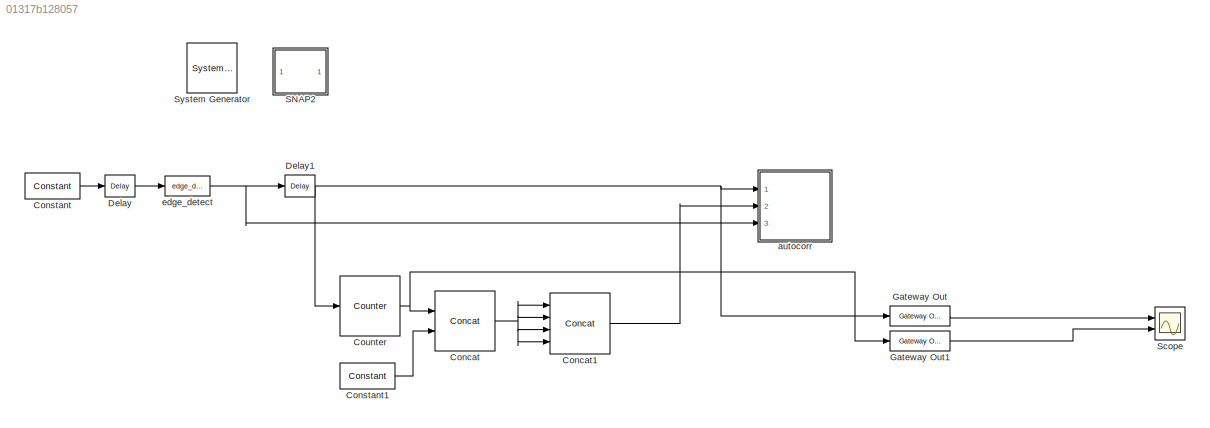
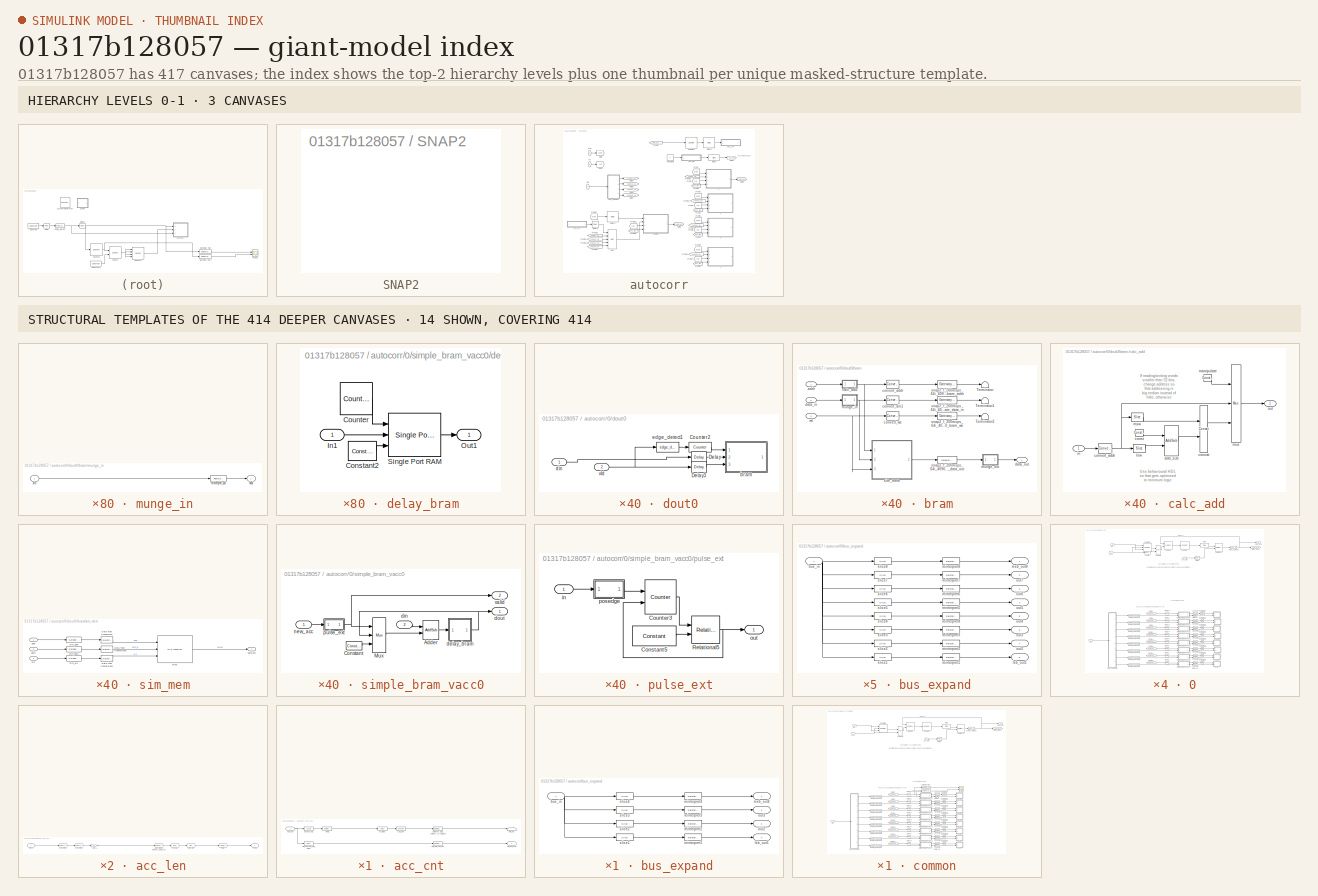
[diagram: thumbnail index - top-2 hierarchy levels (3 canvases) + 14 structural-template representatives of the remaining 414 canvases]
MODEL slx_01317b128057
KIND model
CONFIG AbsTol = auto
CONFIG EnableMultiTasking = off
CONFIG FixedStep = auto
CONFIG MaxStep = auto
CONFIG MinStep = auto
CONFIG RelTol = 1e-3
CONFIG SampleTimeConstraint = Unconstrained
CONFIG Solver = VariableStepAuto
CONFIG SolverName = VariableStepAuto
CONFIG StartTime = 0.0
CONFIG StopTime = 100000
BLOCK [Reference]  System Generator  REF=xbsIndex_r4/ System Generator
  AttributesFormatString = System\nGenerator
  Ports = []
  SourceBlock = xbsIndex_r4/ System Generator
  SourceType = Xilinx System Generator Block
  Tag = genX
  UserDataPersistent = on
BLOCK [Reference] Concat  REF=xbsIndex_r4/Concat
  Ports = [2, 1]
  SourceBlock = xbsIndex_r4/Concat
  SourceType = Xilinx Bus Concatenator Block
BLOCK [Reference] Concat1  REF=xbsIndex_r4/Concat
  Ports = [4, 1]
  SourceBlock = xbsIndex_r4/Concat
  SourceType = Xilinx Bus Concatenator Block
BLOCK [Reference] Constant  REF=xbsIndex_r4/Constant
  Ports = [0, 1]
  SourceBlock = xbsIndex_r4/Constant
  SourceType = Xilinx Constant Block Block
BLOCK [Reference] Constant1  REF=xbsIndex_r4/Constant
  Ports = [0, 1]
  SourceBlock = xbsIndex_r4/Constant
  SourceType = Xilinx Constant Block Block
BLOCK [Reference] Counter  REF=xbsIndex_r4/Counter
  Ports = [1, 1]
  SourceBlock = xbsIndex_r4/Counter
  SourceType = Xilinx Counter Block
BLOCK [Reference] Delay  REF=xbsIndex_r4/Delay
  Ports = [1, 1]
  SourceBlock = xbsIndex_r4/Delay
  SourceType = Xilinx Delay Block
BLOCK [Reference] Delay1  REF=xbsIndex_r4/Delay
  Ports = [1, 1]
  SourceBlock = xbsIndex_r4/Delay
  SourceType = Xilinx Delay Block
BLOCK [Reference] Gateway Out  REF=xbsIndex_r4/Gateway Out
  Ports = [1, 1]
  SourceBlock = xbsIndex_r4/Gateway Out
  SourceType = Xilinx Gateway Out Block
BLOCK [Reference] Gateway Out1  REF=xbsIndex_r4/Gateway Out
  Ports = [1, 1]
  SourceBlock = xbsIndex_r4/Gateway Out
  SourceType = Xilinx Gateway Out Block
BLOCK [SubSystem] SNAP2
  Ports = []
  RequestExecContextInheritance = off
  Tag = xps:xsg
BLOCK [Scope] Scope
  Floating = off
  NumInputPorts = 2
  Ports = [2]
  ScopeSpecificationString = Simulink.scopes.TimeScopeBlockCfg('CurrentConfiguration', extmgr.ConfigurationSet(extmgr.Configuration('Core','General UI',true),extmgr.Configuration('Core','Source UI',true),extmgr.Configuration('Sources','WiredSimulink',true,'DataLoggingVariableName','ScopeData1'),extmgr.Configuration('Visuals','Time Domain',true,'SerializedDisplays',{struct('MinYLimReal','-0.125','MaxYLimReal','1.125','YLabelRe...<+2127ch>
BLOCK [SubSystem] autocorr
  Ports = [3]
  RequestExecContextInheritance = off
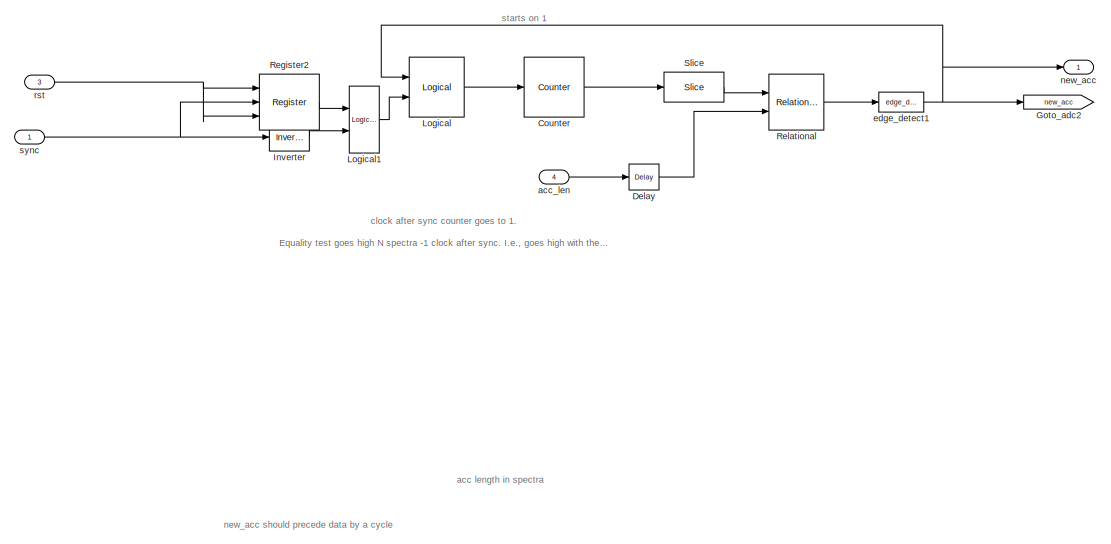
[diagram: autocorr/0 - part 1/2, full width, top band]
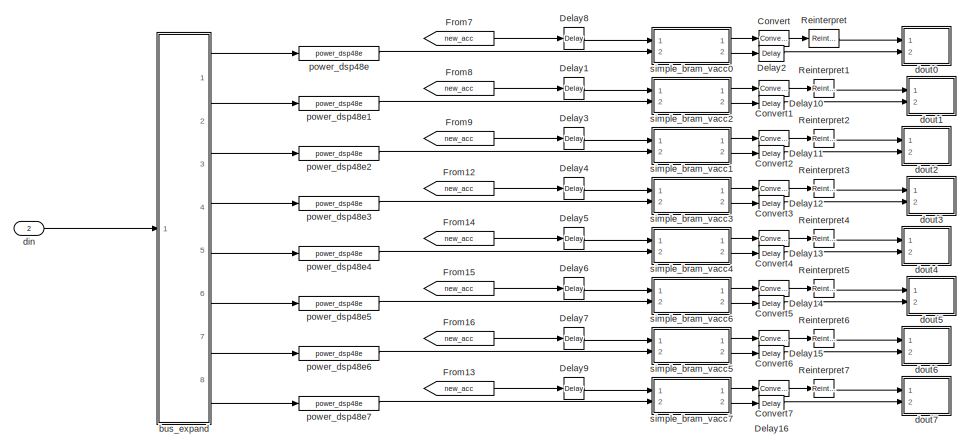
[diagram: autocorr/0 - part 2/2, full width, bottom band]
BLOCK [SubSystem] autocorr/0
  Commented = on
  Ports = [4, 1]
  RequestExecContextInheritance = off
BLOCK [Reference] autocorr/0/Convert  REF=xbsIndex_r4/Convert
  Ports = [1, 1]
  SourceBlock = xbsIndex_r4/Convert
  SourceType = Xilinx Type Converter Block
BLOCK [Reference] autocorr/0/Convert1  REF=xbsIndex_r4/Convert
  Ports = [1, 1]
  SourceBlock = xbsIndex_r4/Convert
  SourceType = Xilinx Type Converter Block
BLOCK [Reference] autocorr/0/Convert2  REF=xbsIndex_r4/Convert
  Ports = [1, 1]
  SourceBlock = xbsIndex_r4/Convert
  SourceType = Xilinx Type Converter Block
BLOCK [Reference] autocorr/0/Convert3  REF=xbsIndex_r4/Convert
  Ports = [1, 1]
  SourceBlock = xbsIndex_r4/Convert
  SourceType = Xilinx Type Converter Block
BLOCK [Reference] autocorr/0/Convert4  REF=xbsIndex_r4/Convert
  Ports = [1, 1]
  SourceBlock = xbsIndex_r4/Convert
  SourceType = Xilinx Type Converter Block
BLOCK [Reference] autocorr/0/Convert5  REF=xbsIndex_r4/Convert
  Ports = [1, 1]
  SourceBlock = xbsIndex_r4/Convert
  SourceType = Xilinx Type Converter Block
BLOCK [Reference] autocorr/0/Convert6  REF=xbsIndex_r4/Convert
  Ports = [1, 1]
  SourceBlock = xbsIndex_r4/Convert
  SourceType = Xilinx Type Converter Block
BLOCK [Reference] autocorr/0/Convert7  REF=xbsIndex_r4/Convert
  Ports = [1, 1]
  SourceBlock = xbsIndex_r4/Convert
  SourceType = Xilinx Type Converter Block
BLOCK [Reference] autocorr/0/Counter  REF=xbsIndex_r4/Counter
  Ports = [1, 1]
  SourceBlock = xbsIndex_r4/Counter
  SourceType = Xilinx Counter Block
BLOCK [Reference] autocorr/0/Delay  REF=xbsIndex_r4/Delay
  Ports = [1, 1]
  SourceBlock = xbsIndex_r4/Delay
  SourceType = Xilinx Delay Block
BLOCK [Reference] autocorr/0/Delay1  REF=xbsIndex_r4/Delay
  Ports = [1, 1]
  SourceBlock = xbsIndex_r4/Delay
  SourceType = Xilinx Delay Block
BLOCK [Reference] autocorr/0/Delay10  REF=xbsIndex_r4/Delay
  Ports = [1, 1]
  SourceBlock = xbsIndex_r4/Delay
  SourceType = Xilinx Delay Block
BLOCK [Reference] autocorr/0/Delay11  REF=xbsIndex_r4/Delay
  Ports = [1, 1]
  SourceBlock = xbsIndex_r4/Delay
  SourceType = Xilinx Delay Block
BLOCK [Reference] autocorr/0/Delay12  REF=xbsIndex_r4/Delay
  Ports = [1, 1]
  SourceBlock = xbsIndex_r4/Delay
  SourceType = Xilinx Delay Block
BLOCK [Reference] autocorr/0/Delay13  REF=xbsIndex_r4/Delay
  Ports = [1, 1]
  SourceBlock = xbsIndex_r4/Delay
  SourceType = Xilinx Delay Block
BLOCK [Reference] autocorr/0/Delay14  REF=xbsIndex_r4/Delay
  Ports = [1, 1]
  SourceBlock = xbsIndex_r4/Delay
  SourceType = Xilinx Delay Block
BLOCK [Reference] autocorr/0/Delay15  REF=xbsIndex_r4/Delay
  Ports = [1, 1]
  SourceBlock = xbsIndex_r4/Delay
  SourceType = Xilinx Delay Block
BLOCK [Reference] autocorr/0/Delay16  REF=xbsIndex_r4/Delay
  Ports = [1, 1]
  SourceBlock = xbsIndex_r4/Delay
  SourceType = Xilinx Delay Block
BLOCK [Reference] autocorr/0/Delay2  REF=xbsIndex_r4/Delay
  Ports = [1, 1]
  SourceBlock = xbsIndex_r4/Delay
  SourceType = Xilinx Delay Block
BLOCK [Reference] autocorr/0/Delay3  REF=xbsIndex_r4/Delay
  Ports = [1, 1]
  SourceBlock = xbsIndex_r4/Delay
  SourceType = Xilinx Delay Block
BLOCK [Reference] autocorr/0/Delay4  REF=xbsIndex_r4/Delay
  Ports = [1, 1]
  SourceBlock = xbsIndex_r4/Delay
  SourceType = Xilinx Delay Block
BLOCK [Reference] autocorr/0/Delay5  REF=xbsIndex_r4/Delay
  Ports = [1, 1]
  SourceBlock = xbsIndex_r4/Delay
  SourceType = Xilinx Delay Block
BLOCK [Reference] autocorr/0/Delay6  REF=xbsIndex_r4/Delay
  Ports = [1, 1]
  SourceBlock = xbsIndex_r4/Delay
  SourceType = Xilinx Delay Block
BLOCK [Reference] autocorr/0/Delay7  REF=xbsIndex_r4/Delay
  Ports = [1, 1]
  SourceBlock = xbsIndex_r4/Delay
  SourceType = Xilinx Delay Block
BLOCK [Reference] autocorr/0/Delay8  REF=xbsIndex_r4/Delay
  Ports = [1, 1]
  SourceBlock = xbsIndex_r4/Delay
  SourceType = Xilinx Delay Block
BLOCK [Reference] autocorr/0/Delay9  REF=xbsIndex_r4/Delay
  Ports = [1, 1]
  SourceBlock = xbsIndex_r4/Delay
  SourceType = Xilinx Delay Block
BLOCK [From] autocorr/0/From12
  GotoTag = new_acc
BLOCK [From] autocorr/0/From13
  GotoTag = new_acc
BLOCK [From] autocorr/0/From14
  GotoTag = new_acc
BLOCK [From] autocorr/0/From15
  GotoTag = new_acc
BLOCK [From] autocorr/0/From16
  GotoTag = new_acc
BLOCK [From] autocorr/0/From7
  GotoTag = new_acc
BLOCK [From] autocorr/0/From8
  GotoTag = new_acc
BLOCK [From] autocorr/0/From9
  GotoTag = new_acc
BLOCK [Goto] autocorr/0/Goto_adc2
  GotoTag = new_acc
BLOCK [Reference] autocorr/0/Inverter  REF=xbsIndex_r4/Inverter
  Ports = [1, 1]
  SourceBlock = xbsIndex_r4/Inverter
  SourceType = Xilinx Inverter Block
BLOCK [Reference] autocorr/0/Logical  REF=xbsIndex_r4/Logical
  Ports = [2, 1]
  SourceBlock = xbsIndex_r4/Logical
  SourceType = Xilinx Logical Block Block
BLOCK [Reference] autocorr/0/Logical1  REF=xbsIndex_r4/Logical
  Ports = [2, 1]
  SourceBlock = xbsIndex_r4/Logical
  SourceType = Xilinx Logical Block Block
BLOCK [Reference] autocorr/0/Register2  REF=xbsIndex_r4/Register
  Ports = [3, 1]
  SourceBlock = xbsIndex_r4/Register
  SourceType = Xilinx Register Block
BLOCK [Reference] autocorr/0/Reinterpret  REF=xbsIndex_r4/Reinterpret
  Ports = [1, 1]
  SourceBlock = xbsIndex_r4/Reinterpret
  SourceType = Xilinx Type Reinterpreter Block
BLOCK [Reference] autocorr/0/Reinterpret1  REF=xbsIndex_r4/Reinterpret
  Ports = [1, 1]
  SourceBlock = xbsIndex_r4/Reinterpret
  SourceType = Xilinx Type Reinterpreter Block
BLOCK [Reference] autocorr/0/Reinterpret2  REF=xbsIndex_r4/Reinterpret
  Ports = [1, 1]
  SourceBlock = xbsIndex_r4/Reinterpret
  SourceType = Xilinx Type Reinterpreter Block
BLOCK [Reference] autocorr/0/Reinterpret3  REF=xbsIndex_r4/Reinterpret
  Ports = [1, 1]
  SourceBlock = xbsIndex_r4/Reinterpret
  SourceType = Xilinx Type Reinterpreter Block
BLOCK [Reference] autocorr/0/Reinterpret4  REF=xbsIndex_r4/Reinterpret
  Ports = [1, 1]
  SourceBlock = xbsIndex_r4/Reinterpret
  SourceType = Xilinx Type Reinterpreter Block
BLOCK [Reference] autocorr/0/Reinterpret5  REF=xbsIndex_r4/Reinterpret
  Ports = [1, 1]
  SourceBlock = xbsIndex_r4/Reinterpret
  SourceType = Xilinx Type Reinterpreter Block
BLOCK [Reference] autocorr/0/Reinterpret6  REF=xbsIndex_r4/Reinterpret
  Ports = [1, 1]
  SourceBlock = xbsIndex_r4/Reinterpret
  SourceType = Xilinx Type Reinterpreter Block
BLOCK [Reference] autocorr/0/Reinterpret7  REF=xbsIndex_r4/Reinterpret
  Ports = [1, 1]
  SourceBlock = xbsIndex_r4/Reinterpret
  SourceType = Xilinx Type Reinterpreter Block
BLOCK [Reference] autocorr/0/Relational  REF=xbsIndex_r4/Relational
  Ports = [2, 1]
  SourceBlock = xbsIndex_r4/Relational
  SourceType = Xilinx Arithmetic Relational Operator Block
BLOCK [Reference] autocorr/0/Slice  REF=xbsIndex_r4/Slice
  Ports = [1, 1]
  SourceBlock = xbsIndex_r4/Slice
  SourceType = Xilinx Bit Slice Extractor Block
BLOCK [Inport] autocorr/0/acc_len
  IconDisplay = Port number
  Port = 4
BLOCK [SubSystem] autocorr/0/bus_expand
  AncestorBlock = casper_library_flow_control/bus_expand
  AttributesFormatString = 8 outputs
  Ports = [1, 8]
  RequestExecContextInheritance = off
  UserDataPersistent = on
BLOCK [Inport] autocorr/0/bus_expand/bus_in
  IconDisplay = Port number
BLOCK [Outport] autocorr/0/bus_expand/lsb_out1
  IconDisplay = Port number
  Port = 8
BLOCK [Outport] autocorr/0/bus_expand/msb_out8
  IconDisplay = Port number
BLOCK [Outport] autocorr/0/bus_expand/out2
  IconDisplay = Port number
  Port = 7
BLOCK [Outport] autocorr/0/bus_expand/out3
  IconDisplay = Port number
  Port = 6
BLOCK [Outport] autocorr/0/bus_expand/out4
  IconDisplay = Port number
  Port = 5
BLOCK [Outport] autocorr/0/bus_expand/out5
  IconDisplay = Port number
  Port = 4
BLOCK [Outport] autocorr/0/bus_expand/out6
  IconDisplay = Port number
  Port = 3
BLOCK [Outport] autocorr/0/bus_expand/out7
  IconDisplay = Port number
  Port = 2
BLOCK [Reference] autocorr/0/bus_expand/reinterpret1  REF=xbsIndex_r4/Reinterpret
  Ports = [1, 1]
  SourceBlock = xbsIndex_r4/Reinterpret
  SourceType = Xilinx Type Reinterpreter Block
BLOCK [Reference] autocorr/0/bus_expand/reinterpret2  REF=xbsIndex_r4/Reinterpret
  Ports = [1, 1]
  SourceBlock = xbsIndex_r4/Reinterpret
  SourceType = Xilinx Type Reinterpreter Block
BLOCK [Reference] autocorr/0/bus_expand/reinterpret3  REF=xbsIndex_r4/Reinterpret
  Ports = [1, 1]
  SourceBlock = xbsIndex_r4/Reinterpret
  SourceType = Xilinx Type Reinterpreter Block
BLOCK [Reference] autocorr/0/bus_expand/reinterpret4  REF=xbsIndex_r4/Reinterpret
  Ports = [1, 1]
  SourceBlock = xbsIndex_r4/Reinterpret
  SourceType = Xilinx Type Reinterpreter Block
BLOCK [Reference] autocorr/0/bus_expand/reinterpret5  REF=xbsIndex_r4/Reinterpret
  Ports = [1, 1]
  SourceBlock = xbsIndex_r4/Reinterpret
  SourceType = Xilinx Type Reinterpreter Block
BLOCK [Reference] autocorr/0/bus_expand/reinterpret6  REF=xbsIndex_r4/Reinterpret
  Ports = [1, 1]
  SourceBlock = xbsIndex_r4/Reinterpret
  SourceType = Xilinx Type Reinterpreter Block
BLOCK [Reference] autocorr/0/bus_expand/reinterpret7  REF=xbsIndex_r4/Reinterpret
  Ports = [1, 1]
  SourceBlock = xbsIndex_r4/Reinterpret
  SourceType = Xilinx Type Reinterpreter Block
BLOCK [Reference] autocorr/0/bus_expand/reinterpret8  REF=xbsIndex_r4/Reinterpret
  Ports = [1, 1]
  SourceBlock = xbsIndex_r4/Reinterpret
  SourceType = Xilinx Type Reinterpreter Block
BLOCK [Reference] autocorr/0/bus_expand/slice1  REF=xbsIndex_r4/Slice
  Ports = [1, 1]
  SourceBlock = xbsIndex_r4/Slice
  SourceType = Xilinx Bit Slice Extractor Block
BLOCK [Reference] autocorr/0/bus_expand/slice2  REF=xbsIndex_r4/Slice
  Ports = [1, 1]
  SourceBlock = xbsIndex_r4/Slice
  SourceType = Xilinx Bit Slice Extractor Block
BLOCK [Reference] autocorr/0/bus_expand/slice3  REF=xbsIndex_r4/Slice
  Ports = [1, 1]
  SourceBlock = xbsIndex_r4/Slice
  SourceType = Xilinx Bit Slice Extractor Block
BLOCK [Reference] autocorr/0/bus_expand/slice4  REF=xbsIndex_r4/Slice
  Ports = [1, 1]
  SourceBlock = xbsIndex_r4/Slice
  SourceType = Xilinx Bit Slice Extractor Block
BLOCK [Reference] autocorr/0/bus_expand/slice5  REF=xbsIndex_r4/Slice
  Ports = [1, 1]
  SourceBlock = xbsIndex_r4/Slice
  SourceType = Xilinx Bit Slice Extractor Block
BLOCK [Reference] autocorr/0/bus_expand/slice6  REF=xbsIndex_r4/Slice
  Ports = [1, 1]
  SourceBlock = xbsIndex_r4/Slice
  SourceType = Xilinx Bit Slice Extractor Block
BLOCK [Reference] autocorr/0/bus_expand/slice7  REF=xbsIndex_r4/Slice
  Ports = [1, 1]
  SourceBlock = xbsIndex_r4/Slice
  SourceType = Xilinx Bit Slice Extractor Block
BLOCK [Reference] autocorr/0/bus_expand/slice8  REF=xbsIndex_r4/Slice
  Ports = [1, 1]
  SourceBlock = xbsIndex_r4/Slice
  SourceType = Xilinx Bit Slice Extractor Block
BLOCK [Inport] autocorr/0/din
  IconDisplay = Port number
  Port = 2
BLOCK [SubSystem] autocorr/0/dout0
  Ports = [2]
  RequestExecContextInheritance = off
BLOCK [Reference] autocorr/0/dout0/Counter2  REF=xbsIndex_r4/Counter
  Ports = [1, 1]
  SourceBlock = xbsIndex_r4/Counter
  SourceType = Xilinx Counter Block
BLOCK [Reference] autocorr/0/dout0/Delay  REF=xbsIndex_r4/Delay
  Ports = [1, 1]
  SourceBlock = xbsIndex_r4/Delay
  SourceType = Xilinx Delay Block
BLOCK [Reference] autocorr/0/dout0/Delay3  REF=xbsIndex_r4/Delay
  Ports = [1, 1]
  SourceBlock = xbsIndex_r4/Delay
  SourceType = Xilinx Delay Block
BLOCK [SubSystem] autocorr/0/dout0/bram
  AncestorBlock = xps_library/Memory/shared_bram
  Ports = [3, 1]
  RequestExecContextInheritance = off
  Tag = xps:bram
BLOCK [Terminator] autocorr/0/dout0/bram/Terminator
BLOCK [Terminator] autocorr/0/dout0/bram/Terminator1
BLOCK [Terminator] autocorr/0/dout0/bram/Terminator2
BLOCK [Inport] autocorr/0/dout0/bram/addr
  IconDisplay = Port number
BLOCK [SubSystem] autocorr/0/dout0/bram/calc_add
  Ports = [1, 1]
  RequestExecContextInheritance = off
BLOCK [Reference] autocorr/0/dout0/bram/calc_add/add_sub  REF=xbsIndex_r4/AddSub
  Ports = [2, 1]
  SourceBlock = xbsIndex_r4/AddSub
  SourceType = Xilinx Adder/Subtracter Block
BLOCK [Reference] autocorr/0/dout0/bram/calc_add/concat  REF=xbsIndex_r4/Concat
  Ports = [2, 1]
  SourceBlock = xbsIndex_r4/Concat
  SourceType = Xilinx Bus Concatenator Block
BLOCK [Reference] autocorr/0/dout0/bram/calc_add/const  REF=xbsIndex_r4/Constant
  Ports = [0, 1]
  SourceBlock = xbsIndex_r4/Constant
  SourceType = Xilinx Constant Block Block
BLOCK [Reference] autocorr/0/dout0/bram/calc_add/convert_addr  REF=xbsIndex_r4/Convert
  Ports = [1, 1]
  SourceBlock = xbsIndex_r4/Convert
  SourceType = Xilinx Type Converter Block
BLOCK [Inport] autocorr/0/dout0/bram/calc_add/in
  IconDisplay = Port number
BLOCK [Reference] autocorr/0/dout0/bram/calc_add/lsw  REF=xbsIndex_r4/Slice
  Ports = [1, 1]
  SourceBlock = xbsIndex_r4/Slice
  SourceType = Xilinx Bit Slice Extractor Block
BLOCK [Reference] autocorr/0/dout0/bram/calc_add/manipulate  REF=xbsIndex_r4/Constant
  Ports = [0, 1]
  SourceBlock = xbsIndex_r4/Constant
  SourceType = Xilinx Constant Block Block
BLOCK [Reference] autocorr/0/dout0/bram/calc_add/msw  REF=xbsIndex_r4/Slice
  Ports = [1, 1]
  SourceBlock = xbsIndex_r4/Slice
  SourceType = Xilinx Bit Slice Extractor Block
BLOCK [Reference] autocorr/0/dout0/bram/calc_add/mux  REF=xbsIndex_r4/Mux
  Ports = [3, 1]
  SourceBlock = xbsIndex_r4/Mux
  SourceType = Xilinx Bus Multiplexer Block
BLOCK [Outport] autocorr/0/dout0/bram/calc_add/out
  IconDisplay = Port number
BLOCK [Reference] autocorr/0/dout0/bram/convert_addr  REF=xbsIndex_r4/Convert
  Ports = [1, 1]
  SourceBlock = xbsIndex_r4/Convert
  SourceType = Xilinx Type Converter Block
BLOCK [Reference] autocorr/0/dout0/bram/convert_din1  REF=xbsIndex_r4/Convert
  Ports = [1, 1]
  SourceBlock = xbsIndex_r4/Convert
  SourceType = Xilinx Type Converter Block
BLOCK [Reference] autocorr/0/dout0/bram/convert_we  REF=xbsIndex_r4/Convert
  Ports = [1, 1]
  SourceBlock = xbsIndex_r4/Convert
  SourceType = Xilinx Type Converter Block
BLOCK [Inport] autocorr/0/dout0/bram/data_in
  IconDisplay = Port number
  Port = 2
BLOCK [Outport] autocorr/0/dout0/bram/data_out
  IconDisplay = Port number
BLOCK [SubSystem] autocorr/0/dout0/bram/munge_in
  AncestorBlock = casper_library_flow_control/munge
  AttributesFormatString = split:32\njoin:0\nUnsigned [32,0]
  Ports = [1, 1]
  RequestExecContextInheritance = off
  UserDataPersistent = on
BLOCK [Inport] autocorr/0/dout0/bram/munge_in/din
  IconDisplay = Port number
BLOCK [Outport] autocorr/0/dout0/bram/munge_in/dout
  IconDisplay = Port number
BLOCK [Reference] autocorr/0/dout0/bram/munge_in/reinterpret_out  REF=xbsIndex_r4/Reinterpret
  Ports = [1, 1]
  SourceBlock = xbsIndex_r4/Reinterpret
  SourceType = Xilinx Type Reinterpreter Block
BLOCK [SubSystem] autocorr/0/dout0/bram/munge_out
  AncestorBlock = casper_library_flow_control/munge
  AttributesFormatString = split:32\njoin:0\nUnsigned [32,0]
  Ports = [1, 1]
  RequestExecContextInheritance = off
  UserDataPersistent = on
BLOCK [Inport] autocorr/0/dout0/bram/munge_out/din
  IconDisplay = Port number
BLOCK [Outport] autocorr/0/dout0/bram/munge_out/dout
  IconDisplay = Port number
BLOCK [Reference] autocorr/0/dout0/bram/munge_out/reinterpret_out  REF=xbsIndex_r4/Reinterpret
  Ports = [1, 1]
  SourceBlock = xbsIndex_r4/Reinterpret
  SourceType = Xilinx Type Reinterpreter Block
BLOCK [SubSystem] autocorr/0/dout0/bram/sim_mem
  Ports = [3, 1]
  RequestExecContextInheritance = off
BLOCK [DataTypeConversion] autocorr/0/dout0/bram/sim_mem/Data Type Conversion
  OutDataTypeStr = single
  RndMeth = Floor
  SaturateOnIntegerOverflow = off
BLOCK [DataTypeConversion] autocorr/0/dout0/bram/sim_mem/Data Type Conversion1
  OutDataTypeStr = double
  RndMeth = Floor
  SaturateOnIntegerOverflow = off
BLOCK [DataTypeConversion] autocorr/0/dout0/bram/sim_mem/Data Type Conversion2
  OutDataTypeStr = boolean
  RndMeth = Floor
  SaturateOnIntegerOverflow = off
BLOCK [Inport] autocorr/0/dout0/bram/sim_mem/addr
  IconDisplay = Port number
BLOCK [Inport] autocorr/0/dout0/bram/sim_mem/data
  IconDisplay = Port number
  Port = 2
BLOCK [Outport] autocorr/0/dout0/bram/sim_mem/data_out
  IconDisplay = Port number
BLOCK [M-S-Function] autocorr/0/dout0/bram/sim_mem/sfunc
  FunctionName = shared_bram_sim_sfunc
  Parameters = depth_bits, latency, init_vals
  Ports = [3, 1]
BLOCK [Reference] autocorr/0/dout0/bram/sim_mem/sim_addr  REF=xbsIndex_r4/Gateway Out
  Ports = [1, 1]
  SourceBlock = xbsIndex_r4/Gateway Out
  SourceType = Xilinx Gateway Out Block
BLOCK [Reference] autocorr/0/dout0/bram/sim_mem/sim_data  REF=xbsIndex_r4/Gateway Out
  Ports = [1, 1]
  SourceBlock = xbsIndex_r4/Gateway Out
  SourceType = Xilinx Gateway Out Block
BLOCK [Reference] autocorr/0/dout0/bram/sim_mem/sim_we  REF=xbsIndex_r4/Gateway Out
  Ports = [1, 1]
  SourceBlock = xbsIndex_r4/Gateway Out
  SourceType = Xilinx Gateway Out Block
BLOCK [Inport] autocorr/0/dout0/bram/sim_mem/we
  IconDisplay = Port number
  Port = 3
BLOCK [Reference] autocorr/0/dout0/bram/snap2_f_200msps_64i_4096c_autocorr_common_dout0_bram_addr  REF=xbsIndex_r4/Gateway Out
  Ports = [1, 1]
  SourceBlock = xbsIndex_r4/Gateway Out
  SourceType = Xilinx Gateway Out Block
BLOCK [Reference] autocorr/0/dout0/bram/snap2_f_200msps_64i_4096c_autocorr_common_dout0_bram_data_in  REF=xbsIndex_r4/Gateway Out
  Ports = [1, 1]
  SourceBlock = xbsIndex_r4/Gateway Out
  SourceType = Xilinx Gateway Out Block
BLOCK [Reference] autocorr/0/dout0/bram/snap2_f_200msps_64i_4096c_autocorr_common_dout0_bram_data_out  REF=xbsIndex_r4/Gateway In
  Ports = [1, 1]
  SourceBlock = xbsIndex_r4/Gateway In
  SourceType = Xilinx Gateway In Block
BLOCK [Reference] autocorr/0/dout0/bram/snap2_f_200msps_64i_4096c_autocorr_common_dout0_bram_we  REF=xbsIndex_r4/Gateway Out
  Ports = [1, 1]
  SourceBlock = xbsIndex_r4/Gateway Out
  SourceType = Xilinx Gateway Out Block
BLOCK [Inport] autocorr/0/dout0/bram/we
  IconDisplay = Port number
  Port = 3
BLOCK [Inport] autocorr/0/dout0/din
  IconDisplay = Port number
BLOCK [Reference] autocorr/0/dout0/edge_detect1  REF=casper_library_misc/edge_detect  (lib defined in mdl_357510c33b49, mdl_57b5f564ae26, +4 more)
  AttributesFormatString = rising edges\nactive high
  Ports = [1, 1]
  SourceBlock = casper_library_misc/edge_detect
  SourceProductName = CASPER DSP Blockset
  SourceType = edge_detect
  UserDataPersistent = on
BLOCK [Inport] autocorr/0/dout0/vld
  IconDisplay = Port number
  Port = 2
BLOCK [SubSystem] autocorr/0/dout1
  Ports = [2]
  RequestExecContextInheritance = off
BLOCK [Reference] autocorr/0/dout1/Counter2  REF=xbsIndex_r4/Counter
  Ports = [1, 1]
  SourceBlock = xbsIndex_r4/Counter
  SourceType = Xilinx Counter Block
BLOCK [Reference] autocorr/0/dout1/Delay  REF=xbsIndex_r4/Delay
  Ports = [1, 1]
  SourceBlock = xbsIndex_r4/Delay
  SourceType = Xilinx Delay Block
BLOCK [Reference] autocorr/0/dout1/Delay3  REF=xbsIndex_r4/Delay
  Ports = [1, 1]
  SourceBlock = xbsIndex_r4/Delay
  SourceType = Xilinx Delay Block
BLOCK [SubSystem] autocorr/0/dout1/bram
  AncestorBlock = xps_library/Memory/shared_bram
  Ports = [3, 1]
  RequestExecContextInheritance = off
  Tag = xps:bram
BLOCK [Terminator] autocorr/0/dout1/bram/Terminator
BLOCK [Terminator] autocorr/0/dout1/bram/Terminator1
BLOCK [Terminator] autocorr/0/dout1/bram/Terminator2
BLOCK [Inport] autocorr/0/dout1/bram/addr
  IconDisplay = Port number
BLOCK [SubSystem] autocorr/0/dout1/bram/calc_add
  Ports = [1, 1]
  RequestExecContextInheritance = off
BLOCK [Reference] autocorr/0/dout1/bram/calc_add/add_sub  REF=xbsIndex_r4/AddSub
  Ports = [2, 1]
  SourceBlock = xbsIndex_r4/AddSub
  SourceType = Xilinx Adder/Subtracter Block
BLOCK [Reference] autocorr/0/dout1/bram/calc_add/concat  REF=xbsIndex_r4/Concat
  Ports = [2, 1]
  SourceBlock = xbsIndex_r4/Concat
  SourceType = Xilinx Bus Concatenator Block
BLOCK [Reference] autocorr/0/dout1/bram/calc_add/const  REF=xbsIndex_r4/Constant
  Ports = [0, 1]
  SourceBlock = xbsIndex_r4/Constant
  SourceType = Xilinx Constant Block Block
BLOCK [Reference] autocorr/0/dout1/bram/calc_add/convert_addr  REF=xbsIndex_r4/Convert
  Ports = [1, 1]
  SourceBlock = xbsIndex_r4/Convert
  SourceType = Xilinx Type Converter Block
BLOCK [Inport] autocorr/0/dout1/bram/calc_add/in
  IconDisplay = Port number
BLOCK [Reference] autocorr/0/dout1/bram/calc_add/lsw  REF=xbsIndex_r4/Slice
  Ports = [1, 1]
  SourceBlock = xbsIndex_r4/Slice
  SourceType = Xilinx Bit Slice Extractor Block
BLOCK [Reference] autocorr/0/dout1/bram/calc_add/manipulate  REF=xbsIndex_r4/Constant
  Ports = [0, 1]
  SourceBlock = xbsIndex_r4/Constant
  SourceType = Xilinx Constant Block Block
BLOCK [Reference] autocorr/0/dout1/bram/calc_add/msw  REF=xbsIndex_r4/Slice
  Ports = [1, 1]
  SourceBlock = xbsIndex_r4/Slice
  SourceType = Xilinx Bit Slice Extractor Block
BLOCK [Reference] autocorr/0/dout1/bram/calc_add/mux  REF=xbsIndex_r4/Mux
  Ports = [3, 1]
  SourceBlock = xbsIndex_r4/Mux
  SourceType = Xilinx Bus Multiplexer Block
BLOCK [Outport] autocorr/0/dout1/bram/calc_add/out
  IconDisplay = Port number
BLOCK [Reference] autocorr/0/dout1/bram/convert_addr  REF=xbsIndex_r4/Convert
  Ports = [1, 1]
  SourceBlock = xbsIndex_r4/Convert
  SourceType = Xilinx Type Converter Block
BLOCK [Reference] autocorr/0/dout1/bram/convert_din1  REF=xbsIndex_r4/Convert
  Ports = [1, 1]
  SourceBlock = xbsIndex_r4/Convert
  SourceType = Xilinx Type Converter Block
BLOCK [Reference] autocorr/0/dout1/bram/convert_we  REF=xbsIndex_r4/Convert
  Ports = [1, 1]
  SourceBlock = xbsIndex_r4/Convert
  SourceType = Xilinx Type Converter Block
BLOCK [Inport] autocorr/0/dout1/bram/data_in
  IconDisplay = Port number
  Port = 2
BLOCK [Outport] autocorr/0/dout1/bram/data_out
  IconDisplay = Port number
BLOCK [SubSystem] autocorr/0/dout1/bram/munge_in
  AncestorBlock = casper_library_flow_control/munge
  AttributesFormatString = split:32\njoin:0\nUnsigned [32,0]
  Ports = [1, 1]
  RequestExecContextInheritance = off
  UserDataPersistent = on
BLOCK [Inport] autocorr/0/dout1/bram/munge_in/din
  IconDisplay = Port number
BLOCK [Outport] autocorr/0/dout1/bram/munge_in/dout
  IconDisplay = Port number
BLOCK [Reference] autocorr/0/dout1/bram/munge_in/reinterpret_out  REF=xbsIndex_r4/Reinterpret
  Ports = [1, 1]
  SourceBlock = xbsIndex_r4/Reinterpret
  SourceType = Xilinx Type Reinterpreter Block
BLOCK [SubSystem] autocorr/0/dout1/bram/munge_out
  AncestorBlock = casper_library_flow_control/munge
  AttributesFormatString = split:32\njoin:0\nUnsigned [32,0]
  Ports = [1, 1]
  RequestExecContextInheritance = off
  UserDataPersistent = on
BLOCK [Inport] autocorr/0/dout1/bram/munge_out/din
  IconDisplay = Port number
BLOCK [Outport] autocorr/0/dout1/bram/munge_out/dout
  IconDisplay = Port number
BLOCK [Reference] autocorr/0/dout1/bram/munge_out/reinterpret_out  REF=xbsIndex_r4/Reinterpret
  Ports = [1, 1]
  SourceBlock = xbsIndex_r4/Reinterpret
  SourceType = Xilinx Type Reinterpreter Block
BLOCK [SubSystem] autocorr/0/dout1/bram/sim_mem
  Ports = [3, 1]
  RequestExecContextInheritance = off
BLOCK [DataTypeConversion] autocorr/0/dout1/bram/sim_mem/Data Type Conversion
  OutDataTypeStr = single
  RndMeth = Floor
  SaturateOnIntegerOverflow = off
BLOCK [DataTypeConversion] autocorr/0/dout1/bram/sim_mem/Data Type Conversion1
  OutDataTypeStr = double
  RndMeth = Floor
  SaturateOnIntegerOverflow = off
BLOCK [DataTypeConversion] autocorr/0/dout1/bram/sim_mem/Data Type Conversion2
  OutDataTypeStr = boolean
  RndMeth = Floor
  SaturateOnIntegerOverflow = off
BLOCK [Inport] autocorr/0/dout1/bram/sim_mem/addr
  IconDisplay = Port number
BLOCK [Inport] autocorr/0/dout1/bram/sim_mem/data
  IconDisplay = Port number
  Port = 2
BLOCK [Outport] autocorr/0/dout1/bram/sim_mem/data_out
  IconDisplay = Port number
BLOCK [M-S-Function] autocorr/0/dout1/bram/sim_mem/sfunc
  FunctionName = shared_bram_sim_sfunc
  Parameters = depth_bits, latency, init_vals
  Ports = [3, 1]
BLOCK [Reference] autocorr/0/dout1/bram/sim_mem/sim_addr  REF=xbsIndex_r4/Gateway Out
  Ports = [1, 1]
  SourceBlock = xbsIndex_r4/Gateway Out
  SourceType = Xilinx Gateway Out Block
BLOCK [Reference] autocorr/0/dout1/bram/sim_mem/sim_data  REF=xbsIndex_r4/Gateway Out
  Ports = [1, 1]
  SourceBlock = xbsIndex_r4/Gateway Out
  SourceType = Xilinx Gateway Out Block
BLOCK [Reference] autocorr/0/dout1/bram/sim_mem/sim_we  REF=xbsIndex_r4/Gateway Out
  Ports = [1, 1]
  SourceBlock = xbsIndex_r4/Gateway Out
  SourceType = Xilinx Gateway Out Block
BLOCK [Inport] autocorr/0/dout1/bram/sim_mem/we
  IconDisplay = Port number
  Port = 3
BLOCK [Reference] autocorr/0/dout1/bram/snap2_f_200msps_64i_4096c_autocorr_common_dout1_bram_addr  REF=xbsIndex_r4/Gateway Out
  Ports = [1, 1]
  SourceBlock = xbsIndex_r4/Gateway Out
  SourceType = Xilinx Gateway Out Block
BLOCK [Reference] autocorr/0/dout1/bram/snap2_f_200msps_64i_4096c_autocorr_common_dout1_bram_data_in  REF=xbsIndex_r4/Gateway Out
  Ports = [1, 1]
  SourceBlock = xbsIndex_r4/Gateway Out
  SourceType = Xilinx Gateway Out Block
BLOCK [Reference] autocorr/0/dout1/bram/snap2_f_200msps_64i_4096c_autocorr_common_dout1_bram_data_out  REF=xbsIndex_r4/Gateway In
  Ports = [1, 1]
  SourceBlock = xbsIndex_r4/Gateway In
  SourceType = Xilinx Gateway In Block
BLOCK [Reference] autocorr/0/dout1/bram/snap2_f_200msps_64i_4096c_autocorr_common_dout1_bram_we  REF=xbsIndex_r4/Gateway Out
  Ports = [1, 1]
  SourceBlock = xbsIndex_r4/Gateway Out
  SourceType = Xilinx Gateway Out Block
BLOCK [Inport] autocorr/0/dout1/bram/we
  IconDisplay = Port number
  Port = 3
BLOCK [Inport] autocorr/0/dout1/din
  IconDisplay = Port number
BLOCK [Reference] autocorr/0/dout1/edge_detect1  REF=casper_library_misc/edge_detect  (lib defined in mdl_357510c33b49, mdl_57b5f564ae26, +4 more)
  AttributesFormatString = rising edges\nactive high
  Ports = [1, 1]
  SourceBlock = casper_library_misc/edge_detect
  SourceProductName = CASPER DSP Blockset
  SourceType = edge_detect
  UserDataPersistent = on
BLOCK [Inport] autocorr/0/dout1/vld
  IconDisplay = Port number
  Port = 2
BLOCK [SubSystem] autocorr/0/dout2
  Ports = [2]
  RequestExecContextInheritance = off
BLOCK [Reference] autocorr/0/dout2/Counter2  REF=xbsIndex_r4/Counter
  Ports = [1, 1]
  SourceBlock = xbsIndex_r4/Counter
  SourceType = Xilinx Counter Block
BLOCK [Reference] autocorr/0/dout2/Delay  REF=xbsIndex_r4/Delay
  Ports = [1, 1]
  SourceBlock = xbsIndex_r4/Delay
  SourceType = Xilinx Delay Block
BLOCK [Reference] autocorr/0/dout2/Delay3  REF=xbsIndex_r4/Delay
  Ports = [1, 1]
  SourceBlock = xbsIndex_r4/Delay
  SourceType = Xilinx Delay Block
BLOCK [SubSystem] autocorr/0/dout2/bram
  AncestorBlock = xps_library/Memory/shared_bram
  Ports = [3, 1]
  RequestExecContextInheritance = off
  Tag = xps:bram
BLOCK [Terminator] autocorr/0/dout2/bram/Terminator
BLOCK [Terminator] autocorr/0/dout2/bram/Terminator1
BLOCK [Terminator] autocorr/0/dout2/bram/Terminator2
BLOCK [Inport] autocorr/0/dout2/bram/addr
  IconDisplay = Port number
BLOCK [SubSystem] autocorr/0/dout2/bram/calc_add
  Ports = [1, 1]
  RequestExecContextInheritance = off
BLOCK [Reference] autocorr/0/dout2/bram/calc_add/add_sub  REF=xbsIndex_r4/AddSub
  Ports = [2, 1]
  SourceBlock = xbsIndex_r4/AddSub
  SourceType = Xilinx Adder/Subtracter Block
BLOCK [Reference] autocorr/0/dout2/bram/calc_add/concat  REF=xbsIndex_r4/Concat
  Ports = [2, 1]
  SourceBlock = xbsIndex_r4/Concat
  SourceType = Xilinx Bus Concatenator Block
BLOCK [Reference] autocorr/0/dout2/bram/calc_add/const  REF=xbsIndex_r4/Constant
  Ports = [0, 1]
  SourceBlock = xbsIndex_r4/Constant
  SourceType = Xilinx Constant Block Block
BLOCK [Reference] autocorr/0/dout2/bram/calc_add/convert_addr  REF=xbsIndex_r4/Convert
  Ports = [1, 1]
  SourceBlock = xbsIndex_r4/Convert
  SourceType = Xilinx Type Converter Block
BLOCK [Inport] autocorr/0/dout2/bram/calc_add/in
  IconDisplay = Port number
BLOCK [Reference] autocorr/0/dout2/bram/calc_add/lsw  REF=xbsIndex_r4/Slice
  Ports = [1, 1]
  SourceBlock = xbsIndex_r4/Slice
  SourceType = Xilinx Bit Slice Extractor Block
BLOCK [Reference] autocorr/0/dout2/bram/calc_add/manipulate  REF=xbsIndex_r4/Constant
  Ports = [0, 1]
  SourceBlock = xbsIndex_r4/Constant
  SourceType = Xilinx Constant Block Block
BLOCK [Reference] autocorr/0/dout2/bram/calc_add/msw  REF=xbsIndex_r4/Slice
  Ports = [1, 1]
  SourceBlock = xbsIndex_r4/Slice
  SourceType = Xilinx Bit Slice Extractor Block
BLOCK [Reference] autocorr/0/dout2/bram/calc_add/mux  REF=xbsIndex_r4/Mux
  Ports = [3, 1]
  SourceBlock = xbsIndex_r4/Mux
  SourceType = Xilinx Bus Multiplexer Block
BLOCK [Outport] autocorr/0/dout2/bram/calc_add/out
  IconDisplay = Port number
BLOCK [Reference] autocorr/0/dout2/bram/convert_addr  REF=xbsIndex_r4/Convert
  Ports = [1, 1]
  SourceBlock = xbsIndex_r4/Convert
  SourceType = Xilinx Type Converter Block
BLOCK [Reference] autocorr/0/dout2/bram/convert_din1  REF=xbsIndex_r4/Convert
  Ports = [1, 1]
  SourceBlock = xbsIndex_r4/Convert
  SourceType = Xilinx Type Converter Block
BLOCK [Reference] autocorr/0/dout2/bram/convert_we  REF=xbsIndex_r4/Convert
  Ports = [1, 1]
  SourceBlock = xbsIndex_r4/Convert
  SourceType = Xilinx Type Converter Block
BLOCK [Inport] autocorr/0/dout2/bram/data_in
  IconDisplay = Port number
  Port = 2
BLOCK [Outport] autocorr/0/dout2/bram/data_out
  IconDisplay = Port number
BLOCK [SubSystem] autocorr/0/dout2/bram/munge_in
  AncestorBlock = casper_library_flow_control/munge
  AttributesFormatString = split:32\njoin:0\nUnsigned [32,0]
  Ports = [1, 1]
  RequestExecContextInheritance = off
  UserDataPersistent = on
BLOCK [Inport] autocorr/0/dout2/bram/munge_in/din
  IconDisplay = Port number
BLOCK [Outport] autocorr/0/dout2/bram/munge_in/dout
  IconDisplay = Port number
BLOCK [Reference] autocorr/0/dout2/bram/munge_in/reinterpret_out  REF=xbsIndex_r4/Reinterpret
  Ports = [1, 1]
  SourceBlock = xbsIndex_r4/Reinterpret
  SourceType = Xilinx Type Reinterpreter Block
BLOCK [SubSystem] autocorr/0/dout2/bram/munge_out
  AncestorBlock = casper_library_flow_control/munge
  AttributesFormatString = split:32\njoin:0\nUnsigned [32,0]
  Ports = [1, 1]
  RequestExecContextInheritance = off
  UserDataPersistent = on
BLOCK [Inport] autocorr/0/dout2/bram/munge_out/din
  IconDisplay = Port number
BLOCK [Outport] autocorr/0/dout2/bram/munge_out/dout
  IconDisplay = Port number
BLOCK [Reference] autocorr/0/dout2/bram/munge_out/reinterpret_out  REF=xbsIndex_r4/Reinterpret
  Ports = [1, 1]
  SourceBlock = xbsIndex_r4/Reinterpret
  SourceType = Xilinx Type Reinterpreter Block
BLOCK [SubSystem] autocorr/0/dout2/bram/sim_mem
  Ports = [3, 1]
  RequestExecContextInheritance = off
BLOCK [DataTypeConversion] autocorr/0/dout2/bram/sim_mem/Data Type Conversion
  OutDataTypeStr = single
  RndMeth = Floor
  SaturateOnIntegerOverflow = off
BLOCK [DataTypeConversion] autocorr/0/dout2/bram/sim_mem/Data Type Conversion1
  OutDataTypeStr = double
  RndMeth = Floor
  SaturateOnIntegerOverflow = off
BLOCK [DataTypeConversion] autocorr/0/dout2/bram/sim_mem/Data Type Conversion2
  OutDataTypeStr = boolean
  RndMeth = Floor
  SaturateOnIntegerOverflow = off
BLOCK [Inport] autocorr/0/dout2/bram/sim_mem/addr
  IconDisplay = Port number
BLOCK [Inport] autocorr/0/dout2/bram/sim_mem/data
  IconDisplay = Port number
  Port = 2
BLOCK [Outport] autocorr/0/dout2/bram/sim_mem/data_out
  IconDisplay = Port number
BLOCK [M-S-Function] autocorr/0/dout2/bram/sim_mem/sfunc
  FunctionName = shared_bram_sim_sfunc
  Parameters = depth_bits, latency, init_vals
  Ports = [3, 1]
BLOCK [Reference] autocorr/0/dout2/bram/sim_mem/sim_addr  REF=xbsIndex_r4/Gateway Out
  Ports = [1, 1]
  SourceBlock = xbsIndex_r4/Gateway Out
  SourceType = Xilinx Gateway Out Block
BLOCK [Reference] autocorr/0/dout2/bram/sim_mem/sim_data  REF=xbsIndex_r4/Gateway Out
  Ports = [1, 1]
  SourceBlock = xbsIndex_r4/Gateway Out
  SourceType = Xilinx Gateway Out Block
BLOCK [Reference] autocorr/0/dout2/bram/sim_mem/sim_we  REF=xbsIndex_r4/Gateway Out
  Ports = [1, 1]
  SourceBlock = xbsIndex_r4/Gateway Out
  SourceType = Xilinx Gateway Out Block
BLOCK [Inport] autocorr/0/dout2/bram/sim_mem/we
  IconDisplay = Port number
  Port = 3
BLOCK [Reference] autocorr/0/dout2/bram/snap2_f_200msps_64i_4096c_autocorr_common_dout2_bram_addr  REF=xbsIndex_r4/Gateway Out
  Ports = [1, 1]
  SourceBlock = xbsIndex_r4/Gateway Out
  SourceType = Xilinx Gateway Out Block
BLOCK [Reference] autocorr/0/dout2/bram/snap2_f_200msps_64i_4096c_autocorr_common_dout2_bram_data_in  REF=xbsIndex_r4/Gateway Out
  Ports = [1, 1]
  SourceBlock = xbsIndex_r4/Gateway Out
  SourceType = Xilinx Gateway Out Block
BLOCK [Reference] autocorr/0/dout2/bram/snap2_f_200msps_64i_4096c_autocorr_common_dout2_bram_data_out  REF=xbsIndex_r4/Gateway In
  Ports = [1, 1]
  SourceBlock = xbsIndex_r4/Gateway In
  SourceType = Xilinx Gateway In Block
BLOCK [Reference] autocorr/0/dout2/bram/snap2_f_200msps_64i_4096c_autocorr_common_dout2_bram_we  REF=xbsIndex_r4/Gateway Out
  Ports = [1, 1]
  SourceBlock = xbsIndex_r4/Gateway Out
  SourceType = Xilinx Gateway Out Block
BLOCK [Inport] autocorr/0/dout2/bram/we
  IconDisplay = Port number
  Port = 3
BLOCK [Inport] autocorr/0/dout2/din
  IconDisplay = Port number
BLOCK [Reference] autocorr/0/dout2/edge_detect1  REF=casper_library_misc/edge_detect  (lib defined in mdl_357510c33b49, mdl_57b5f564ae26, +4 more)
  AttributesFormatString = rising edges\nactive high
  Ports = [1, 1]
  SourceBlock = casper_library_misc/edge_detect
  SourceProductName = CASPER DSP Blockset
  SourceType = edge_detect
  UserDataPersistent = on
BLOCK [Inport] autocorr/0/dout2/vld
  IconDisplay = Port number
  Port = 2
BLOCK [SubSystem] autocorr/0/dout3
  Ports = [2]
  RequestExecContextInheritance = off
BLOCK [Reference] autocorr/0/dout3/Counter2  REF=xbsIndex_r4/Counter
  Ports = [1, 1]
  SourceBlock = xbsIndex_r4/Counter
  SourceType = Xilinx Counter Block
BLOCK [Reference] autocorr/0/dout3/Delay  REF=xbsIndex_r4/Delay
  Ports = [1, 1]
  SourceBlock = xbsIndex_r4/Delay
  SourceType = Xilinx Delay Block
BLOCK [Reference] autocorr/0/dout3/Delay3  REF=xbsIndex_r4/Delay
  Ports = [1, 1]
  SourceBlock = xbsIndex_r4/Delay
  SourceType = Xilinx Delay Block
BLOCK [SubSystem] autocorr/0/dout3/bram
  AncestorBlock = xps_library/Memory/shared_bram
  Ports = [3, 1]
  RequestExecContextInheritance = off
  Tag = xps:bram
BLOCK [Terminator] autocorr/0/dout3/bram/Terminator
BLOCK [Terminator] autocorr/0/dout3/bram/Terminator1
BLOCK [Terminator] autocorr/0/dout3/bram/Terminator2
BLOCK [Inport] autocorr/0/dout3/bram/addr
  IconDisplay = Port number
BLOCK [SubSystem] autocorr/0/dout3/bram/calc_add
  Ports = [1, 1]
  RequestExecContextInheritance = off
BLOCK [Reference] autocorr/0/dout3/bram/calc_add/add_sub  REF=xbsIndex_r4/AddSub
  Ports = [2, 1]
  SourceBlock = xbsIndex_r4/AddSub
  SourceType = Xilinx Adder/Subtracter Block
BLOCK [Reference] autocorr/0/dout3/bram/calc_add/concat  REF=xbsIndex_r4/Concat
  Ports = [2, 1]
  SourceBlock = xbsIndex_r4/Concat
  SourceType = Xilinx Bus Concatenator Block
BLOCK [Reference] autocorr/0/dout3/bram/calc_add/const  REF=xbsIndex_r4/Constant
  Ports = [0, 1]
  SourceBlock = xbsIndex_r4/Constant
  SourceType = Xilinx Constant Block Block
BLOCK [Reference] autocorr/0/dout3/bram/calc_add/convert_addr  REF=xbsIndex_r4/Convert
  Ports = [1, 1]
  SourceBlock = xbsIndex_r4/Convert
  SourceType = Xilinx Type Converter Block
BLOCK [Inport] autocorr/0/dout3/bram/calc_add/in
  IconDisplay = Port number
BLOCK [Reference] autocorr/0/dout3/bram/calc_add/lsw  REF=xbsIndex_r4/Slice
  Ports = [1, 1]
  SourceBlock = xbsIndex_r4/Slice
  SourceType = Xilinx Bit Slice Extractor Block
BLOCK [Reference] autocorr/0/dout3/bram/calc_add/manipulate  REF=xbsIndex_r4/Constant
  Ports = [0, 1]
  SourceBlock = xbsIndex_r4/Constant
  SourceType = Xilinx Constant Block Block
BLOCK [Reference] autocorr/0/dout3/bram/calc_add/msw  REF=xbsIndex_r4/Slice
  Ports = [1, 1]
  SourceBlock = xbsIndex_r4/Slice
  SourceType = Xilinx Bit Slice Extractor Block
BLOCK [Reference] autocorr/0/dout3/bram/calc_add/mux  REF=xbsIndex_r4/Mux
  Ports = [3, 1]
  SourceBlock = xbsIndex_r4/Mux
  SourceType = Xilinx Bus Multiplexer Block
BLOCK [Outport] autocorr/0/dout3/bram/calc_add/out
  IconDisplay = Port number
BLOCK [Reference] autocorr/0/dout3/bram/convert_addr  REF=xbsIndex_r4/Convert
  Ports = [1, 1]
  SourceBlock = xbsIndex_r4/Convert
  SourceType = Xilinx Type Converter Block
BLOCK [Reference] autocorr/0/dout3/bram/convert_din1  REF=xbsIndex_r4/Convert
  Ports = [1, 1]
  SourceBlock = xbsIndex_r4/Convert
  SourceType = Xilinx Type Converter Block
BLOCK [Reference] autocorr/0/dout3/bram/convert_we  REF=xbsIndex_r4/Convert
  Ports = [1, 1]
  SourceBlock = xbsIndex_r4/Convert
  SourceType = Xilinx Type Converter Block
BLOCK [Inport] autocorr/0/dout3/bram/data_in
  IconDisplay = Port number
  Port = 2
BLOCK [Outport] autocorr/0/dout3/bram/data_out
  IconDisplay = Port number
BLOCK [SubSystem] autocorr/0/dout3/bram/munge_in
  AncestorBlock = casper_library_flow_control/munge
  AttributesFormatString = split:32\njoin:0\nUnsigned [32,0]
  Ports = [1, 1]
  RequestExecContextInheritance = off
  UserDataPersistent = on
BLOCK [Inport] autocorr/0/dout3/bram/munge_in/din
  IconDisplay = Port number
BLOCK [Outport] autocorr/0/dout3/bram/munge_in/dout
  IconDisplay = Port number
BLOCK [Reference] autocorr/0/dout3/bram/munge_in/reinterpret_out  REF=xbsIndex_r4/Reinterpret
  Ports = [1, 1]
  SourceBlock = xbsIndex_r4/Reinterpret
  SourceType = Xilinx Type Reinterpreter Block
BLOCK [SubSystem] autocorr/0/dout3/bram/munge_out
  AncestorBlock = casper_library_flow_control/munge
  AttributesFormatString = split:32\njoin:0\nUnsigned [32,0]
  Ports = [1, 1]
  RequestExecContextInheritance = off
  UserDataPersistent = on
BLOCK [Inport] autocorr/0/dout3/bram/munge_out/din
  IconDisplay = Port number
BLOCK [Outport] autocorr/0/dout3/bram/munge_out/dout
  IconDisplay = Port number
BLOCK [Reference] autocorr/0/dout3/bram/munge_out/reinterpret_out  REF=xbsIndex_r4/Reinterpret
  Ports = [1, 1]
  SourceBlock = xbsIndex_r4/Reinterpret
  SourceType = Xilinx Type Reinterpreter Block
BLOCK [SubSystem] autocorr/0/dout3/bram/sim_mem
  Ports = [3, 1]
  RequestExecContextInheritance = off
BLOCK [DataTypeConversion] autocorr/0/dout3/bram/sim_mem/Data Type Conversion
  OutDataTypeStr = single
  RndMeth = Floor
  SaturateOnIntegerOverflow = off
BLOCK [DataTypeConversion] autocorr/0/dout3/bram/sim_mem/Data Type Conversion1
  OutDataTypeStr = double
  RndMeth = Floor
  SaturateOnIntegerOverflow = off
BLOCK [DataTypeConversion] autocorr/0/dout3/bram/sim_mem/Data Type Conversion2
  OutDataTypeStr = boolean
  RndMeth = Floor
  SaturateOnIntegerOverflow = off
BLOCK [Inport] autocorr/0/dout3/bram/sim_mem/addr
  IconDisplay = Port number
BLOCK [Inport] autocorr/0/dout3/bram/sim_mem/data
  IconDisplay = Port number
  Port = 2
BLOCK [Outport] autocorr/0/dout3/bram/sim_mem/data_out
  IconDisplay = Port number
BLOCK [M-S-Function] autocorr/0/dout3/bram/sim_mem/sfunc
  FunctionName = shared_bram_sim_sfunc
  Parameters = depth_bits, latency, init_vals
  Ports = [3, 1]
BLOCK [Reference] autocorr/0/dout3/bram/sim_mem/sim_addr  REF=xbsIndex_r4/Gateway Out
  Ports = [1, 1]
  SourceBlock = xbsIndex_r4/Gateway Out
  SourceType = Xilinx Gateway Out Block
BLOCK [Reference] autocorr/0/dout3/bram/sim_mem/sim_data  REF=xbsIndex_r4/Gateway Out
  Ports = [1, 1]
  SourceBlock = xbsIndex_r4/Gateway Out
  SourceType = Xilinx Gateway Out Block
BLOCK [Reference] autocorr/0/dout3/bram/sim_mem/sim_we  REF=xbsIndex_r4/Gateway Out
  Ports = [1, 1]
  SourceBlock = xbsIndex_r4/Gateway Out
  SourceType = Xilinx Gateway Out Block
BLOCK [Inport] autocorr/0/dout3/bram/sim_mem/we
  IconDisplay = Port number
  Port = 3
BLOCK [Reference] autocorr/0/dout3/bram/snap2_f_200msps_64i_4096c_autocorr_common_dout3_bram_addr  REF=xbsIndex_r4/Gateway Out
  Ports = [1, 1]
  SourceBlock = xbsIndex_r4/Gateway Out
  SourceType = Xilinx Gateway Out Block
BLOCK [Reference] autocorr/0/dout3/bram/snap2_f_200msps_64i_4096c_autocorr_common_dout3_bram_data_in  REF=xbsIndex_r4/Gateway Out
  Ports = [1, 1]
  SourceBlock = xbsIndex_r4/Gateway Out
  SourceType = Xilinx Gateway Out Block
BLOCK [Reference] autocorr/0/dout3/bram/snap2_f_200msps_64i_4096c_autocorr_common_dout3_bram_data_out  REF=xbsIndex_r4/Gateway In
  Ports = [1, 1]
  SourceBlock = xbsIndex_r4/Gateway In
  SourceType = Xilinx Gateway In Block
BLOCK [Reference] autocorr/0/dout3/bram/snap2_f_200msps_64i_4096c_autocorr_common_dout3_bram_we  REF=xbsIndex_r4/Gateway Out
  Ports = [1, 1]
  SourceBlock = xbsIndex_r4/Gateway Out
  SourceType = Xilinx Gateway Out Block
BLOCK [Inport] autocorr/0/dout3/bram/we
  IconDisplay = Port number
  Port = 3
BLOCK [Inport] autocorr/0/dout3/din
  IconDisplay = Port number
BLOCK [Reference] autocorr/0/dout3/edge_detect1  REF=casper_library_misc/edge_detect  (lib defined in mdl_357510c33b49, mdl_57b5f564ae26, +4 more)
  AttributesFormatString = rising edges\nactive high
  Ports = [1, 1]
  SourceBlock = casper_library_misc/edge_detect
  SourceProductName = CASPER DSP Blockset
  SourceType = edge_detect
  UserDataPersistent = on
BLOCK [Inport] autocorr/0/dout3/vld
  IconDisplay = Port number
  Port = 2
BLOCK [SubSystem] autocorr/0/dout4
  Ports = [2]
  RequestExecContextInheritance = off
BLOCK [Reference] autocorr/0/dout4/Counter2  REF=xbsIndex_r4/Counter
  Ports = [1, 1]
  SourceBlock = xbsIndex_r4/Counter
  SourceType = Xilinx Counter Block
BLOCK [Reference] autocorr/0/dout4/Delay  REF=xbsIndex_r4/Delay
  Ports = [1, 1]
  SourceBlock = xbsIndex_r4/Delay
  SourceType = Xilinx Delay Block
BLOCK [Reference] autocorr/0/dout4/Delay3  REF=xbsIndex_r4/Delay
  Ports = [1, 1]
  SourceBlock = xbsIndex_r4/Delay
  SourceType = Xilinx Delay Block
BLOCK [SubSystem] autocorr/0/dout4/bram
  AncestorBlock = xps_library/Memory/shared_bram
  Ports = [3, 1]
  RequestExecContextInheritance = off
  Tag = xps:bram
BLOCK [Terminator] autocorr/0/dout4/bram/Terminator
BLOCK [Terminator] autocorr/0/dout4/bram/Terminator1
BLOCK [Terminator] autocorr/0/dout4/bram/Terminator2
BLOCK [Inport] autocorr/0/dout4/bram/addr
  IconDisplay = Port number
BLOCK [SubSystem] autocorr/0/dout4/bram/calc_add
  Ports = [1, 1]
  RequestExecContextInheritance = off
BLOCK [Reference] autocorr/0/dout4/bram/calc_add/add_sub  REF=xbsIndex_r4/AddSub
  Ports = [2, 1]
  SourceBlock = xbsIndex_r4/AddSub
  SourceType = Xilinx Adder/Subtracter Block
BLOCK [Reference] autocorr/0/dout4/bram/calc_add/concat  REF=xbsIndex_r4/Concat
  Ports = [2, 1]
  SourceBlock = xbsIndex_r4/Concat
  SourceType = Xilinx Bus Concatenator Block
BLOCK [Reference] autocorr/0/dout4/bram/calc_add/const  REF=xbsIndex_r4/Constant
  Ports = [0, 1]
  SourceBlock = xbsIndex_r4/Constant
  SourceType = Xilinx Constant Block Block
BLOCK [Reference] autocorr/0/dout4/bram/calc_add/convert_addr  REF=xbsIndex_r4/Convert
  Ports = [1, 1]
  SourceBlock = xbsIndex_r4/Convert
  SourceType = Xilinx Type Converter Block
BLOCK [Inport] autocorr/0/dout4/bram/calc_add/in
  IconDisplay = Port number
BLOCK [Reference] autocorr/0/dout4/bram/calc_add/lsw  REF=xbsIndex_r4/Slice
  Ports = [1, 1]
  SourceBlock = xbsIndex_r4/Slice
  SourceType = Xilinx Bit Slice Extractor Block
BLOCK [Reference] autocorr/0/dout4/bram/calc_add/manipulate  REF=xbsIndex_r4/Constant
  Ports = [0, 1]
  SourceBlock = xbsIndex_r4/Constant
  SourceType = Xilinx Constant Block Block
BLOCK [Reference] autocorr/0/dout4/bram/calc_add/msw  REF=xbsIndex_r4/Slice
  Ports = [1, 1]
  SourceBlock = xbsIndex_r4/Slice
  SourceType = Xilinx Bit Slice Extractor Block
BLOCK [Reference] autocorr/0/dout4/bram/calc_add/mux  REF=xbsIndex_r4/Mux
  Ports = [3, 1]
  SourceBlock = xbsIndex_r4/Mux
  SourceType = Xilinx Bus Multiplexer Block
BLOCK [Outport] autocorr/0/dout4/bram/calc_add/out
  IconDisplay = Port number
BLOCK [Reference] autocorr/0/dout4/bram/convert_addr  REF=xbsIndex_r4/Convert
  Ports = [1, 1]
  SourceBlock = xbsIndex_r4/Convert
  SourceType = Xilinx Type Converter Block
BLOCK [Reference] autocorr/0/dout4/bram/convert_din1  REF=xbsIndex_r4/Convert
  Ports = [1, 1]
  SourceBlock = xbsIndex_r4/Convert
  SourceType = Xilinx Type Converter Block
BLOCK [Reference] autocorr/0/dout4/bram/convert_we  REF=xbsIndex_r4/Convert
  Ports = [1, 1]
  SourceBlock = xbsIndex_r4/Convert
  SourceType = Xilinx Type Converter Block
BLOCK [Inport] autocorr/0/dout4/bram/data_in
  IconDisplay = Port number
  Port = 2
BLOCK [Outport] autocorr/0/dout4/bram/data_out
  IconDisplay = Port number
BLOCK [SubSystem] autocorr/0/dout4/bram/munge_in
  AncestorBlock = casper_library_flow_control/munge
  AttributesFormatString = split:32\njoin:0\nUnsigned [32,0]
  Ports = [1, 1]
  RequestExecContextInheritance = off
  UserDataPersistent = on
BLOCK [Inport] autocorr/0/dout4/bram/munge_in/din
  IconDisplay = Port number
BLOCK [Outport] autocorr/0/dout4/bram/munge_in/dout
  IconDisplay = Port number
BLOCK [Reference] autocorr/0/dout4/bram/munge_in/reinterpret_out  REF=xbsIndex_r4/Reinterpret
  Ports = [1, 1]
  SourceBlock = xbsIndex_r4/Reinterpret
  SourceType = Xilinx Type Reinterpreter Block
BLOCK [SubSystem] autocorr/0/dout4/bram/munge_out
  AncestorBlock = casper_library_flow_control/munge
  AttributesFormatString = split:32\njoin:0\nUnsigned [32,0]
  Ports = [1, 1]
  RequestExecContextInheritance = off
  UserDataPersistent = on
BLOCK [Inport] autocorr/0/dout4/bram/munge_out/din
  IconDisplay = Port number
BLOCK [Outport] autocorr/0/dout4/bram/munge_out/dout
  IconDisplay = Port number
BLOCK [Reference] autocorr/0/dout4/bram/munge_out/reinterpret_out  REF=xbsIndex_r4/Reinterpret
  Ports = [1, 1]
  SourceBlock = xbsIndex_r4/Reinterpret
  SourceType = Xilinx Type Reinterpreter Block
BLOCK [SubSystem] autocorr/0/dout4/bram/sim_mem
  Ports = [3, 1]
  RequestExecContextInheritance = off
BLOCK [DataTypeConversion] autocorr/0/dout4/bram/sim_mem/Data Type Conversion
  OutDataTypeStr = single
  RndMeth = Floor
  SaturateOnIntegerOverflow = off
BLOCK [DataTypeConversion] autocorr/0/dout4/bram/sim_mem/Data Type Conversion1
  OutDataTypeStr = double
  RndMeth = Floor
  SaturateOnIntegerOverflow = off
BLOCK [DataTypeConversion] autocorr/0/dout4/bram/sim_mem/Data Type Conversion2
  OutDataTypeStr = boolean
  RndMeth = Floor
  SaturateOnIntegerOverflow = off
BLOCK [Inport] autocorr/0/dout4/bram/sim_mem/addr
  IconDisplay = Port number
BLOCK [Inport] autocorr/0/dout4/bram/sim_mem/data
  IconDisplay = Port number
  Port = 2
BLOCK [Outport] autocorr/0/dout4/bram/sim_mem/data_out
  IconDisplay = Port number
BLOCK [M-S-Function] autocorr/0/dout4/bram/sim_mem/sfunc
  FunctionName = shared_bram_sim_sfunc
  Parameters = depth_bits, latency, init_vals
  Ports = [3, 1]
BLOCK [Reference] autocorr/0/dout4/bram/sim_mem/sim_addr  REF=xbsIndex_r4/Gateway Out
  Ports = [1, 1]
  SourceBlock = xbsIndex_r4/Gateway Out
  SourceType = Xilinx Gateway Out Block
BLOCK [Reference] autocorr/0/dout4/bram/sim_mem/sim_data  REF=xbsIndex_r4/Gateway Out
  Ports = [1, 1]
  SourceBlock = xbsIndex_r4/Gateway Out
  SourceType = Xilinx Gateway Out Block
BLOCK [Reference] autocorr/0/dout4/bram/sim_mem/sim_we  REF=xbsIndex_r4/Gateway Out
  Ports = [1, 1]
  SourceBlock = xbsIndex_r4/Gateway Out
  SourceType = Xilinx Gateway Out Block
BLOCK [Inport] autocorr/0/dout4/bram/sim_mem/we
  IconDisplay = Port number
  Port = 3
BLOCK [Reference] autocorr/0/dout4/bram/snap2_f_200msps_64i_4096c_autocorr_common_dout4_bram_addr  REF=xbsIndex_r4/Gateway Out
  Ports = [1, 1]
  SourceBlock = xbsIndex_r4/Gateway Out
  SourceType = Xilinx Gateway Out Block
BLOCK [Reference] autocorr/0/dout4/bram/snap2_f_200msps_64i_4096c_autocorr_common_dout4_bram_data_in  REF=xbsIndex_r4/Gateway Out
  Ports = [1, 1]
  SourceBlock = xbsIndex_r4/Gateway Out
  SourceType = Xilinx Gateway Out Block
BLOCK [Reference] autocorr/0/dout4/bram/snap2_f_200msps_64i_4096c_autocorr_common_dout4_bram_data_out  REF=xbsIndex_r4/Gateway In
  Ports = [1, 1]
  SourceBlock = xbsIndex_r4/Gateway In
  SourceType = Xilinx Gateway In Block
BLOCK [Reference] autocorr/0/dout4/bram/snap2_f_200msps_64i_4096c_autocorr_common_dout4_bram_we  REF=xbsIndex_r4/Gateway Out
  Ports = [1, 1]
  SourceBlock = xbsIndex_r4/Gateway Out
  SourceType = Xilinx Gateway Out Block
BLOCK [Inport] autocorr/0/dout4/bram/we
  IconDisplay = Port number
  Port = 3
BLOCK [Inport] autocorr/0/dout4/din
  IconDisplay = Port number
BLOCK [Reference] autocorr/0/dout4/edge_detect1  REF=casper_library_misc/edge_detect  (lib defined in mdl_357510c33b49, mdl_57b5f564ae26, +4 more)
  AttributesFormatString = rising edges\nactive high
  Ports = [1, 1]
  SourceBlock = casper_library_misc/edge_detect
  SourceProductName = CASPER DSP Blockset
  SourceType = edge_detect
  UserDataPersistent = on
BLOCK [Inport] autocorr/0/dout4/vld
  IconDisplay = Port number
  Port = 2
BLOCK [SubSystem] autocorr/0/dout5
  Ports = [2]
  RequestExecContextInheritance = off
BLOCK [Reference] autocorr/0/dout5/Counter2  REF=xbsIndex_r4/Counter
  Ports = [1, 1]
  SourceBlock = xbsIndex_r4/Counter
  SourceType = Xilinx Counter Block
BLOCK [Reference] autocorr/0/dout5/Delay  REF=xbsIndex_r4/Delay
  Ports = [1, 1]
  SourceBlock = xbsIndex_r4/Delay
  SourceType = Xilinx Delay Block
BLOCK [Reference] autocorr/0/dout5/Delay3  REF=xbsIndex_r4/Delay
  Ports = [1, 1]
  SourceBlock = xbsIndex_r4/Delay
  SourceType = Xilinx Delay Block
BLOCK [SubSystem] autocorr/0/dout5/bram
  AncestorBlock = xps_library/Memory/shared_bram
  Ports = [3, 1]
  RequestExecContextInheritance = off
  Tag = xps:bram
BLOCK [Terminator] autocorr/0/dout5/bram/Terminator
BLOCK [Terminator] autocorr/0/dout5/bram/Terminator1
BLOCK [Terminator] autocorr/0/dout5/bram/Terminator2
BLOCK [Inport] autocorr/0/dout5/bram/addr
  IconDisplay = Port number
BLOCK [SubSystem] autocorr/0/dout5/bram/calc_add
  Ports = [1, 1]
  RequestExecContextInheritance = off
BLOCK [Reference] autocorr/0/dout5/bram/calc_add/add_sub  REF=xbsIndex_r4/AddSub
  Ports = [2, 1]
  SourceBlock = xbsIndex_r4/AddSub
  SourceType = Xilinx Adder/Subtracter Block
BLOCK [Reference] autocorr/0/dout5/bram/calc_add/concat  REF=xbsIndex_r4/Concat
  Ports = [2, 1]
  SourceBlock = xbsIndex_r4/Concat
  SourceType = Xilinx Bus Concatenator Block
BLOCK [Reference] autocorr/0/dout5/bram/calc_add/const  REF=xbsIndex_r4/Constant
  Ports = [0, 1]
  SourceBlock = xbsIndex_r4/Constant
  SourceType = Xilinx Constant Block Block
BLOCK [Reference] autocorr/0/dout5/bram/calc_add/convert_addr  REF=xbsIndex_r4/Convert
  Ports = [1, 1]
  SourceBlock = xbsIndex_r4/Convert
  SourceType = Xilinx Type Converter Block
BLOCK [Inport] autocorr/0/dout5/bram/calc_add/in
  IconDisplay = Port number
BLOCK [Reference] autocorr/0/dout5/bram/calc_add/lsw  REF=xbsIndex_r4/Slice
  Ports = [1, 1]
  SourceBlock = xbsIndex_r4/Slice
  SourceType = Xilinx Bit Slice Extractor Block
BLOCK [Reference] autocorr/0/dout5/bram/calc_add/manipulate  REF=xbsIndex_r4/Constant
  Ports = [0, 1]
  SourceBlock = xbsIndex_r4/Constant
  SourceType = Xilinx Constant Block Block
BLOCK [Reference] autocorr/0/dout5/bram/calc_add/msw  REF=xbsIndex_r4/Slice
  Ports = [1, 1]
  SourceBlock = xbsIndex_r4/Slice
  SourceType = Xilinx Bit Slice Extractor Block
BLOCK [Reference] autocorr/0/dout5/bram/calc_add/mux  REF=xbsIndex_r4/Mux
  Ports = [3, 1]
  SourceBlock = xbsIndex_r4/Mux
  SourceType = Xilinx Bus Multiplexer Block
BLOCK [Outport] autocorr/0/dout5/bram/calc_add/out
  IconDisplay = Port number
BLOCK [Reference] autocorr/0/dout5/bram/convert_addr  REF=xbsIndex_r4/Convert
  Ports = [1, 1]
  SourceBlock = xbsIndex_r4/Convert
  SourceType = Xilinx Type Converter Block
BLOCK [Reference] autocorr/0/dout5/bram/convert_din1  REF=xbsIndex_r4/Convert
  Ports = [1, 1]
  SourceBlock = xbsIndex_r4/Convert
  SourceType = Xilinx Type Converter Block
BLOCK [Reference] autocorr/0/dout5/bram/convert_we  REF=xbsIndex_r4/Convert
  Ports = [1, 1]
  SourceBlock = xbsIndex_r4/Convert
  SourceType = Xilinx Type Converter Block
BLOCK [Inport] autocorr/0/dout5/bram/data_in
  IconDisplay = Port number
  Port = 2
BLOCK [Outport] autocorr/0/dout5/bram/data_out
  IconDisplay = Port number
BLOCK [SubSystem] autocorr/0/dout5/bram/munge_in
  AncestorBlock = casper_library_flow_control/munge
  AttributesFormatString = split:32\njoin:0\nUnsigned [32,0]
  Ports = [1, 1]
  RequestExecContextInheritance = off
  UserDataPersistent = on
BLOCK [Inport] autocorr/0/dout5/bram/munge_in/din
  IconDisplay = Port number
BLOCK [Outport] autocorr/0/dout5/bram/munge_in/dout
  IconDisplay = Port number
BLOCK [Reference] autocorr/0/dout5/bram/munge_in/reinterpret_out  REF=xbsIndex_r4/Reinterpret
  Ports = [1, 1]
  SourceBlock = xbsIndex_r4/Reinterpret
  SourceType = Xilinx Type Reinterpreter Block
BLOCK [SubSystem] autocorr/0/dout5/bram/munge_out
  AncestorBlock = casper_library_flow_control/munge
  AttributesFormatString = split:32\njoin:0\nUnsigned [32,0]
  Ports = [1, 1]
  RequestExecContextInheritance = off
  UserDataPersistent = on
BLOCK [Inport] autocorr/0/dout5/bram/munge_out/din
  IconDisplay = Port number
BLOCK [Outport] autocorr/0/dout5/bram/munge_out/dout
  IconDisplay = Port number
BLOCK [Reference] autocorr/0/dout5/bram/munge_out/reinterpret_out  REF=xbsIndex_r4/Reinterpret
  Ports = [1, 1]
  SourceBlock = xbsIndex_r4/Reinterpret
  SourceType = Xilinx Type Reinterpreter Block
BLOCK [SubSystem] autocorr/0/dout5/bram/sim_mem
  Ports = [3, 1]
  RequestExecContextInheritance = off
BLOCK [DataTypeConversion] autocorr/0/dout5/bram/sim_mem/Data Type Conversion
  OutDataTypeStr = single
  RndMeth = Floor
  SaturateOnIntegerOverflow = off
BLOCK [DataTypeConversion] autocorr/0/dout5/bram/sim_mem/Data Type Conversion1
  OutDataTypeStr = double
  RndMeth = Floor
  SaturateOnIntegerOverflow = off
BLOCK [DataTypeConversion] autocorr/0/dout5/bram/sim_mem/Data Type Conversion2
  OutDataTypeStr = boolean
  RndMeth = Floor
  SaturateOnIntegerOverflow = off
BLOCK [Inport] autocorr/0/dout5/bram/sim_mem/addr
  IconDisplay = Port number
BLOCK [Inport] autocorr/0/dout5/bram/sim_mem/data
  IconDisplay = Port number
  Port = 2
BLOCK [Outport] autocorr/0/dout5/bram/sim_mem/data_out
  IconDisplay = Port number
BLOCK [M-S-Function] autocorr/0/dout5/bram/sim_mem/sfunc
  FunctionName = shared_bram_sim_sfunc
  Parameters = depth_bits, latency, init_vals
  Ports = [3, 1]
BLOCK [Reference] autocorr/0/dout5/bram/sim_mem/sim_addr  REF=xbsIndex_r4/Gateway Out
  Ports = [1, 1]
  SourceBlock = xbsIndex_r4/Gateway Out
  SourceType = Xilinx Gateway Out Block
BLOCK [Reference] autocorr/0/dout5/bram/sim_mem/sim_data  REF=xbsIndex_r4/Gateway Out
  Ports = [1, 1]
  SourceBlock = xbsIndex_r4/Gateway Out
  SourceType = Xilinx Gateway Out Block
BLOCK [Reference] autocorr/0/dout5/bram/sim_mem/sim_we  REF=xbsIndex_r4/Gateway Out
  Ports = [1, 1]
  SourceBlock = xbsIndex_r4/Gateway Out
  SourceType = Xilinx Gateway Out Block
BLOCK [Inport] autocorr/0/dout5/bram/sim_mem/we
  IconDisplay = Port number
  Port = 3
BLOCK [Reference] autocorr/0/dout5/bram/snap2_f_200msps_64i_4096c_autocorr_common_dout5_bram_addr  REF=xbsIndex_r4/Gateway Out
  Ports = [1, 1]
  SourceBlock = xbsIndex_r4/Gateway Out
  SourceType = Xilinx Gateway Out Block
BLOCK [Reference] autocorr/0/dout5/bram/snap2_f_200msps_64i_4096c_autocorr_common_dout5_bram_data_in  REF=xbsIndex_r4/Gateway Out
  Ports = [1, 1]
  SourceBlock = xbsIndex_r4/Gateway Out
  SourceType = Xilinx Gateway Out Block
BLOCK [Reference] autocorr/0/dout5/bram/snap2_f_200msps_64i_4096c_autocorr_common_dout5_bram_data_out  REF=xbsIndex_r4/Gateway In
  Ports = [1, 1]
  SourceBlock = xbsIndex_r4/Gateway In
  SourceType = Xilinx Gateway In Block
BLOCK [Reference] autocorr/0/dout5/bram/snap2_f_200msps_64i_4096c_autocorr_common_dout5_bram_we  REF=xbsIndex_r4/Gateway Out
  Ports = [1, 1]
  SourceBlock = xbsIndex_r4/Gateway Out
  SourceType = Xilinx Gateway Out Block
BLOCK [Inport] autocorr/0/dout5/bram/we
  IconDisplay = Port number
  Port = 3
BLOCK [Inport] autocorr/0/dout5/din
  IconDisplay = Port number
BLOCK [Reference] autocorr/0/dout5/edge_detect1  REF=casper_library_misc/edge_detect  (lib defined in mdl_357510c33b49, mdl_57b5f564ae26, +4 more)
  AttributesFormatString = rising edges\nactive high
  Ports = [1, 1]
  SourceBlock = casper_library_misc/edge_detect
  SourceProductName = CASPER DSP Blockset
  SourceType = edge_detect
  UserDataPersistent = on
BLOCK [Inport] autocorr/0/dout5/vld
  IconDisplay = Port number
  Port = 2
BLOCK [SubSystem] autocorr/0/dout6
  Ports = [2]
  RequestExecContextInheritance = off
BLOCK [Reference] autocorr/0/dout6/Counter2  REF=xbsIndex_r4/Counter
  Ports = [1, 1]
  SourceBlock = xbsIndex_r4/Counter
  SourceType = Xilinx Counter Block
BLOCK [Reference] autocorr/0/dout6/Delay  REF=xbsIndex_r4/Delay
  Ports = [1, 1]
  SourceBlock = xbsIndex_r4/Delay
  SourceType = Xilinx Delay Block
BLOCK [Reference] autocorr/0/dout6/Delay3  REF=xbsIndex_r4/Delay
  Ports = [1, 1]
  SourceBlock = xbsIndex_r4/Delay
  SourceType = Xilinx Delay Block
BLOCK [SubSystem] autocorr/0/dout6/bram
  AncestorBlock = xps_library/Memory/shared_bram
  Ports = [3, 1]
  RequestExecContextInheritance = off
  Tag = xps:bram
BLOCK [Terminator] autocorr/0/dout6/bram/Terminator
BLOCK [Terminator] autocorr/0/dout6/bram/Terminator1
BLOCK [Terminator] autocorr/0/dout6/bram/Terminator2
BLOCK [Inport] autocorr/0/dout6/bram/addr
  IconDisplay = Port number
BLOCK [SubSystem] autocorr/0/dout6/bram/calc_add
  Ports = [1, 1]
  RequestExecContextInheritance = off
BLOCK [Reference] autocorr/0/dout6/bram/calc_add/add_sub  REF=xbsIndex_r4/AddSub
  Ports = [2, 1]
  SourceBlock = xbsIndex_r4/AddSub
  SourceType = Xilinx Adder/Subtracter Block
BLOCK [Reference] autocorr/0/dout6/bram/calc_add/concat  REF=xbsIndex_r4/Concat
  Ports = [2, 1]
  SourceBlock = xbsIndex_r4/Concat
  SourceType = Xilinx Bus Concatenator Block
BLOCK [Reference] autocorr/0/dout6/bram/calc_add/const  REF=xbsIndex_r4/Constant
  Ports = [0, 1]
  SourceBlock = xbsIndex_r4/Constant
  SourceType = Xilinx Constant Block Block
BLOCK [Reference] autocorr/0/dout6/bram/calc_add/convert_addr  REF=xbsIndex_r4/Convert
  Ports = [1, 1]
  SourceBlock = xbsIndex_r4/Convert
  SourceType = Xilinx Type Converter Block
BLOCK [Inport] autocorr/0/dout6/bram/calc_add/in
  IconDisplay = Port number
BLOCK [Reference] autocorr/0/dout6/bram/calc_add/lsw  REF=xbsIndex_r4/Slice
  Ports = [1, 1]
  SourceBlock = xbsIndex_r4/Slice
  SourceType = Xilinx Bit Slice Extractor Block
BLOCK [Reference] autocorr/0/dout6/bram/calc_add/manipulate  REF=xbsIndex_r4/Constant
  Ports = [0, 1]
  SourceBlock = xbsIndex_r4/Constant
  SourceType = Xilinx Constant Block Block
BLOCK [Reference] autocorr/0/dout6/bram/calc_add/msw  REF=xbsIndex_r4/Slice
  Ports = [1, 1]
  SourceBlock = xbsIndex_r4/Slice
  SourceType = Xilinx Bit Slice Extractor Block
BLOCK [Reference] autocorr/0/dout6/bram/calc_add/mux  REF=xbsIndex_r4/Mux
  Ports = [3, 1]
  SourceBlock = xbsIndex_r4/Mux
  SourceType = Xilinx Bus Multiplexer Block
BLOCK [Outport] autocorr/0/dout6/bram/calc_add/out
  IconDisplay = Port number
BLOCK [Reference] autocorr/0/dout6/bram/convert_addr  REF=xbsIndex_r4/Convert
  Ports = [1, 1]
  SourceBlock = xbsIndex_r4/Convert
  SourceType = Xilinx Type Converter Block
BLOCK [Reference] autocorr/0/dout6/bram/convert_din1  REF=xbsIndex_r4/Convert
  Ports = [1, 1]
  SourceBlock = xbsIndex_r4/Convert
  SourceType = Xilinx Type Converter Block
BLOCK [Reference] autocorr/0/dout6/bram/convert_we  REF=xbsIndex_r4/Convert
  Ports = [1, 1]
  SourceBlock = xbsIndex_r4/Convert
  SourceType = Xilinx Type Converter Block
BLOCK [Inport] autocorr/0/dout6/bram/data_in
  IconDisplay = Port number
  Port = 2
BLOCK [Outport] autocorr/0/dout6/bram/data_out
  IconDisplay = Port number
BLOCK [SubSystem] autocorr/0/dout6/bram/munge_in
  AncestorBlock = casper_library_flow_control/munge
  AttributesFormatString = split:32\njoin:0\nUnsigned [32,0]
  Ports = [1, 1]
  RequestExecContextInheritance = off
  UserDataPersistent = on
BLOCK [Inport] autocorr/0/dout6/bram/munge_in/din
  IconDisplay = Port number
BLOCK [Outport] autocorr/0/dout6/bram/munge_in/dout
  IconDisplay = Port number
BLOCK [Reference] autocorr/0/dout6/bram/munge_in/reinterpret_out  REF=xbsIndex_r4/Reinterpret
  Ports = [1, 1]
  SourceBlock = xbsIndex_r4/Reinterpret
  SourceType = Xilinx Type Reinterpreter Block
BLOCK [SubSystem] autocorr/0/dout6/bram/munge_out
  AncestorBlock = casper_library_flow_control/munge
  AttributesFormatString = split:32\njoin:0\nUnsigned [32,0]
  Ports = [1, 1]
  RequestExecContextInheritance = off
  UserDataPersistent = on
BLOCK [Inport] autocorr/0/dout6/bram/munge_out/din
  IconDisplay = Port number
BLOCK [Outport] autocorr/0/dout6/bram/munge_out/dout
  IconDisplay = Port number
BLOCK [Reference] autocorr/0/dout6/bram/munge_out/reinterpret_out  REF=xbsIndex_r4/Reinterpret
  Ports = [1, 1]
  SourceBlock = xbsIndex_r4/Reinterpret
  SourceType = Xilinx Type Reinterpreter Block
BLOCK [SubSystem] autocorr/0/dout6/bram/sim_mem
  Ports = [3, 1]
  RequestExecContextInheritance = off
BLOCK [DataTypeConversion] autocorr/0/dout6/bram/sim_mem/Data Type Conversion
  OutDataTypeStr = single
  RndMeth = Floor
  SaturateOnIntegerOverflow = off
BLOCK [DataTypeConversion] autocorr/0/dout6/bram/sim_mem/Data Type Conversion1
  OutDataTypeStr = double
  RndMeth = Floor
  SaturateOnIntegerOverflow = off
BLOCK [DataTypeConversion] autocorr/0/dout6/bram/sim_mem/Data Type Conversion2
  OutDataTypeStr = boolean
  RndMeth = Floor
  SaturateOnIntegerOverflow = off
BLOCK [Inport] autocorr/0/dout6/bram/sim_mem/addr
  IconDisplay = Port number
BLOCK [Inport] autocorr/0/dout6/bram/sim_mem/data
  IconDisplay = Port number
  Port = 2
BLOCK [Outport] autocorr/0/dout6/bram/sim_mem/data_out
  IconDisplay = Port number
BLOCK [M-S-Function] autocorr/0/dout6/bram/sim_mem/sfunc
  FunctionName = shared_bram_sim_sfunc
  Parameters = depth_bits, latency, init_vals
  Ports = [3, 1]
BLOCK [Reference] autocorr/0/dout6/bram/sim_mem/sim_addr  REF=xbsIndex_r4/Gateway Out
  Ports = [1, 1]
  SourceBlock = xbsIndex_r4/Gateway Out
  SourceType = Xilinx Gateway Out Block
BLOCK [Reference] autocorr/0/dout6/bram/sim_mem/sim_data  REF=xbsIndex_r4/Gateway Out
  Ports = [1, 1]
  SourceBlock = xbsIndex_r4/Gateway Out
  SourceType = Xilinx Gateway Out Block
BLOCK [Reference] autocorr/0/dout6/bram/sim_mem/sim_we  REF=xbsIndex_r4/Gateway Out
  Ports = [1, 1]
  SourceBlock = xbsIndex_r4/Gateway Out
  SourceType = Xilinx Gateway Out Block
BLOCK [Inport] autocorr/0/dout6/bram/sim_mem/we
  IconDisplay = Port number
  Port = 3
BLOCK [Reference] autocorr/0/dout6/bram/snap2_f_200msps_64i_4096c_autocorr_common_dout6_bram_addr  REF=xbsIndex_r4/Gateway Out
  Ports = [1, 1]
  SourceBlock = xbsIndex_r4/Gateway Out
  SourceType = Xilinx Gateway Out Block
BLOCK [Reference] autocorr/0/dout6/bram/snap2_f_200msps_64i_4096c_autocorr_common_dout6_bram_data_in  REF=xbsIndex_r4/Gateway Out
  Ports = [1, 1]
  SourceBlock = xbsIndex_r4/Gateway Out
  SourceType = Xilinx Gateway Out Block
BLOCK [Reference] autocorr/0/dout6/bram/snap2_f_200msps_64i_4096c_autocorr_common_dout6_bram_data_out  REF=xbsIndex_r4/Gateway In
  Ports = [1, 1]
  SourceBlock = xbsIndex_r4/Gateway In
  SourceType = Xilinx Gateway In Block
BLOCK [Reference] autocorr/0/dout6/bram/snap2_f_200msps_64i_4096c_autocorr_common_dout6_bram_we  REF=xbsIndex_r4/Gateway Out
  Ports = [1, 1]
  SourceBlock = xbsIndex_r4/Gateway Out
  SourceType = Xilinx Gateway Out Block
BLOCK [Inport] autocorr/0/dout6/bram/we
  IconDisplay = Port number
  Port = 3
BLOCK [Inport] autocorr/0/dout6/din
  IconDisplay = Port number
BLOCK [Reference] autocorr/0/dout6/edge_detect1  REF=casper_library_misc/edge_detect  (lib defined in mdl_357510c33b49, mdl_57b5f564ae26, +4 more)
  AttributesFormatString = rising edges\nactive high
  Ports = [1, 1]
  SourceBlock = casper_library_misc/edge_detect
  SourceProductName = CASPER DSP Blockset
  SourceType = edge_detect
  UserDataPersistent = on
BLOCK [Inport] autocorr/0/dout6/vld
  IconDisplay = Port number
  Port = 2
BLOCK [SubSystem] autocorr/0/dout7
  Ports = [2]
  RequestExecContextInheritance = off
BLOCK [Reference] autocorr/0/dout7/Counter2  REF=xbsIndex_r4/Counter
  Ports = [1, 1]
  SourceBlock = xbsIndex_r4/Counter
  SourceType = Xilinx Counter Block
BLOCK [Reference] autocorr/0/dout7/Delay  REF=xbsIndex_r4/Delay
  Ports = [1, 1]
  SourceBlock = xbsIndex_r4/Delay
  SourceType = Xilinx Delay Block
BLOCK [Reference] autocorr/0/dout7/Delay3  REF=xbsIndex_r4/Delay
  Ports = [1, 1]
  SourceBlock = xbsIndex_r4/Delay
  SourceType = Xilinx Delay Block
BLOCK [SubSystem] autocorr/0/dout7/bram
  AncestorBlock = xps_library/Memory/shared_bram
  Ports = [3, 1]
  RequestExecContextInheritance = off
  Tag = xps:bram
BLOCK [Terminator] autocorr/0/dout7/bram/Terminator
BLOCK [Terminator] autocorr/0/dout7/bram/Terminator1
BLOCK [Terminator] autocorr/0/dout7/bram/Terminator2
BLOCK [Inport] autocorr/0/dout7/bram/addr
  IconDisplay = Port number
BLOCK [SubSystem] autocorr/0/dout7/bram/calc_add
  Ports = [1, 1]
  RequestExecContextInheritance = off
BLOCK [Reference] autocorr/0/dout7/bram/calc_add/add_sub  REF=xbsIndex_r4/AddSub
  Ports = [2, 1]
  SourceBlock = xbsIndex_r4/AddSub
  SourceType = Xilinx Adder/Subtracter Block
BLOCK [Reference] autocorr/0/dout7/bram/calc_add/concat  REF=xbsIndex_r4/Concat
  Ports = [2, 1]
  SourceBlock = xbsIndex_r4/Concat
  SourceType = Xilinx Bus Concatenator Block
BLOCK [Reference] autocorr/0/dout7/bram/calc_add/const  REF=xbsIndex_r4/Constant
  Ports = [0, 1]
  SourceBlock = xbsIndex_r4/Constant
  SourceType = Xilinx Constant Block Block
BLOCK [Reference] autocorr/0/dout7/bram/calc_add/convert_addr  REF=xbsIndex_r4/Convert
  Ports = [1, 1]
  SourceBlock = xbsIndex_r4/Convert
  SourceType = Xilinx Type Converter Block
BLOCK [Inport] autocorr/0/dout7/bram/calc_add/in
  IconDisplay = Port number
BLOCK [Reference] autocorr/0/dout7/bram/calc_add/lsw  REF=xbsIndex_r4/Slice
  Ports = [1, 1]
  SourceBlock = xbsIndex_r4/Slice
  SourceType = Xilinx Bit Slice Extractor Block
BLOCK [Reference] autocorr/0/dout7/bram/calc_add/manipulate  REF=xbsIndex_r4/Constant
  Ports = [0, 1]
  SourceBlock = xbsIndex_r4/Constant
  SourceType = Xilinx Constant Block Block
BLOCK [Reference] autocorr/0/dout7/bram/calc_add/msw  REF=xbsIndex_r4/Slice
  Ports = [1, 1]
  SourceBlock = xbsIndex_r4/Slice
  SourceType = Xilinx Bit Slice Extractor Block
BLOCK [Reference] autocorr/0/dout7/bram/calc_add/mux  REF=xbsIndex_r4/Mux
  Ports = [3, 1]
  SourceBlock = xbsIndex_r4/Mux
  SourceType = Xilinx Bus Multiplexer Block
BLOCK [Outport] autocorr/0/dout7/bram/calc_add/out
  IconDisplay = Port number
BLOCK [Reference] autocorr/0/dout7/bram/convert_addr  REF=xbsIndex_r4/Convert
  Ports = [1, 1]
  SourceBlock = xbsIndex_r4/Convert
  SourceType = Xilinx Type Converter Block
BLOCK [Reference] autocorr/0/dout7/bram/convert_din1  REF=xbsIndex_r4/Convert
  Ports = [1, 1]
  SourceBlock = xbsIndex_r4/Convert
  SourceType = Xilinx Type Converter Block
BLOCK [Reference] autocorr/0/dout7/bram/convert_we  REF=xbsIndex_r4/Convert
  Ports = [1, 1]
  SourceBlock = xbsIndex_r4/Convert
  SourceType = Xilinx Type Converter Block
BLOCK [Inport] autocorr/0/dout7/bram/data_in
  IconDisplay = Port number
  Port = 2
BLOCK [Outport] autocorr/0/dout7/bram/data_out
  IconDisplay = Port number
BLOCK [SubSystem] autocorr/0/dout7/bram/munge_in
  AncestorBlock = casper_library_flow_control/munge
  AttributesFormatString = split:32\njoin:0\nUnsigned [32,0]
  Ports = [1, 1]
  RequestExecContextInheritance = off
  UserDataPersistent = on
BLOCK [Inport] autocorr/0/dout7/bram/munge_in/din
  IconDisplay = Port number
BLOCK [Outport] autocorr/0/dout7/bram/munge_in/dout
  IconDisplay = Port number
BLOCK [Reference] autocorr/0/dout7/bram/munge_in/reinterpret_out  REF=xbsIndex_r4/Reinterpret
  Ports = [1, 1]
  SourceBlock = xbsIndex_r4/Reinterpret
  SourceType = Xilinx Type Reinterpreter Block
BLOCK [SubSystem] autocorr/0/dout7/bram/munge_out
  AncestorBlock = casper_library_flow_control/munge
  AttributesFormatString = split:32\njoin:0\nUnsigned [32,0]
  Ports = [1, 1]
  RequestExecContextInheritance = off
  UserDataPersistent = on
BLOCK [Inport] autocorr/0/dout7/bram/munge_out/din
  IconDisplay = Port number
BLOCK [Outport] autocorr/0/dout7/bram/munge_out/dout
  IconDisplay = Port number
BLOCK [Reference] autocorr/0/dout7/bram/munge_out/reinterpret_out  REF=xbsIndex_r4/Reinterpret
  Ports = [1, 1]
  SourceBlock = xbsIndex_r4/Reinterpret
  SourceType = Xilinx Type Reinterpreter Block
BLOCK [SubSystem] autocorr/0/dout7/bram/sim_mem
  Ports = [3, 1]
  RequestExecContextInheritance = off
BLOCK [DataTypeConversion] autocorr/0/dout7/bram/sim_mem/Data Type Conversion
  OutDataTypeStr = single
  RndMeth = Floor
  SaturateOnIntegerOverflow = off
BLOCK [DataTypeConversion] autocorr/0/dout7/bram/sim_mem/Data Type Conversion1
  OutDataTypeStr = double
  RndMeth = Floor
  SaturateOnIntegerOverflow = off
BLOCK [DataTypeConversion] autocorr/0/dout7/bram/sim_mem/Data Type Conversion2
  OutDataTypeStr = boolean
  RndMeth = Floor
  SaturateOnIntegerOverflow = off
BLOCK [Inport] autocorr/0/dout7/bram/sim_mem/addr
  IconDisplay = Port number
BLOCK [Inport] autocorr/0/dout7/bram/sim_mem/data
  IconDisplay = Port number
  Port = 2
BLOCK [Outport] autocorr/0/dout7/bram/sim_mem/data_out
  IconDisplay = Port number
BLOCK [M-S-Function] autocorr/0/dout7/bram/sim_mem/sfunc
  FunctionName = shared_bram_sim_sfunc
  Parameters = depth_bits, latency, init_vals
  Ports = [3, 1]
BLOCK [Reference] autocorr/0/dout7/bram/sim_mem/sim_addr  REF=xbsIndex_r4/Gateway Out
  Ports = [1, 1]
  SourceBlock = xbsIndex_r4/Gateway Out
  SourceType = Xilinx Gateway Out Block
BLOCK [Reference] autocorr/0/dout7/bram/sim_mem/sim_data  REF=xbsIndex_r4/Gateway Out
  Ports = [1, 1]
  SourceBlock = xbsIndex_r4/Gateway Out
  SourceType = Xilinx Gateway Out Block
BLOCK [Reference] autocorr/0/dout7/bram/sim_mem/sim_we  REF=xbsIndex_r4/Gateway Out
  Ports = [1, 1]
  SourceBlock = xbsIndex_r4/Gateway Out
  SourceType = Xilinx Gateway Out Block
BLOCK [Inport] autocorr/0/dout7/bram/sim_mem/we
  IconDisplay = Port number
  Port = 3
BLOCK [Reference] autocorr/0/dout7/bram/snap2_f_200msps_64i_4096c_autocorr_common_dout7_bram_addr  REF=xbsIndex_r4/Gateway Out
  Ports = [1, 1]
  SourceBlock = xbsIndex_r4/Gateway Out
  SourceType = Xilinx Gateway Out Block
BLOCK [Reference] autocorr/0/dout7/bram/snap2_f_200msps_64i_4096c_autocorr_common_dout7_bram_data_in  REF=xbsIndex_r4/Gateway Out
  Ports = [1, 1]
  SourceBlock = xbsIndex_r4/Gateway Out
  SourceType = Xilinx Gateway Out Block
BLOCK [Reference] autocorr/0/dout7/bram/snap2_f_200msps_64i_4096c_autocorr_common_dout7_bram_data_out  REF=xbsIndex_r4/Gateway In
  Ports = [1, 1]
  SourceBlock = xbsIndex_r4/Gateway In
  SourceType = Xilinx Gateway In Block
BLOCK [Reference] autocorr/0/dout7/bram/snap2_f_200msps_64i_4096c_autocorr_common_dout7_bram_we  REF=xbsIndex_r4/Gateway Out
  Ports = [1, 1]
  SourceBlock = xbsIndex_r4/Gateway Out
  SourceType = Xilinx Gateway Out Block
BLOCK [Inport] autocorr/0/dout7/bram/we
  IconDisplay = Port number
  Port = 3
BLOCK [Inport] autocorr/0/dout7/din
  IconDisplay = Port number
BLOCK [Reference] autocorr/0/dout7/edge_detect1  REF=casper_library_misc/edge_detect  (lib defined in mdl_357510c33b49, mdl_57b5f564ae26, +4 more)
  AttributesFormatString = rising edges\nactive high
  Ports = [1, 1]
  SourceBlock = casper_library_misc/edge_detect
  SourceProductName = CASPER DSP Blockset
  SourceType = edge_detect
  UserDataPersistent = on
BLOCK [Inport] autocorr/0/dout7/vld
  IconDisplay = Port number
  Port = 2
BLOCK [Reference] autocorr/0/edge_detect1  REF=casper_library_misc/edge_detect  (lib defined in mdl_357510c33b49, mdl_57b5f564ae26, +4 more)
  AttributesFormatString = rising edges\nactive high
  Ports = [1, 1]
  SourceBlock = casper_library_misc/edge_detect
  SourceProductName = CASPER DSP Blockset
  SourceType = edge_detect
  UserDataPersistent = on
BLOCK [Outport] autocorr/0/new_acc
  IconDisplay = Port number
BLOCK [Reference] autocorr/0/power_dsp48e  REF=casper_library_misc/power_dsp48e  (lib defined in mdl_357510c33b49, mdl_57b5f564ae26, +4 more)
  Ports = [1, 1]
  SourceBlock = casper_library_misc/power_dsp48e
  SourceProductName = CASPER DSP Blockset
  SourceType = power_dsp48e
BLOCK [Reference] autocorr/0/power_dsp48e1  REF=casper_library_misc/power_dsp48e  (lib defined in mdl_357510c33b49, mdl_57b5f564ae26, +4 more)
  Ports = [1, 1]
  SourceBlock = casper_library_misc/power_dsp48e
  SourceProductName = CASPER DSP Blockset
  SourceType = power_dsp48e
BLOCK [Reference] autocorr/0/power_dsp48e2  REF=casper_library_misc/power_dsp48e  (lib defined in mdl_357510c33b49, mdl_57b5f564ae26, +4 more)
  Ports = [1, 1]
  SourceBlock = casper_library_misc/power_dsp48e
  SourceProductName = CASPER DSP Blockset
  SourceType = power_dsp48e
BLOCK [Reference] autocorr/0/power_dsp48e3  REF=casper_library_misc/power_dsp48e  (lib defined in mdl_357510c33b49, mdl_57b5f564ae26, +4 more)
  Ports = [1, 1]
  SourceBlock = casper_library_misc/power_dsp48e
  SourceProductName = CASPER DSP Blockset
  SourceType = power_dsp48e
BLOCK [Reference] autocorr/0/power_dsp48e4  REF=casper_library_misc/power_dsp48e  (lib defined in mdl_357510c33b49, mdl_57b5f564ae26, +4 more)
  Ports = [1, 1]
  SourceBlock = casper_library_misc/power_dsp48e
  SourceProductName = CASPER DSP Blockset
  SourceType = power_dsp48e
BLOCK [Reference] autocorr/0/power_dsp48e5  REF=casper_library_misc/power_dsp48e  (lib defined in mdl_357510c33b49, mdl_57b5f564ae26, +4 more)
  Ports = [1, 1]
  SourceBlock = casper_library_misc/power_dsp48e
  SourceProductName = CASPER DSP Blockset
  SourceType = power_dsp48e
BLOCK [Reference] autocorr/0/power_dsp48e6  REF=casper_library_misc/power_dsp48e  (lib defined in mdl_357510c33b49, mdl_57b5f564ae26, +4 more)
  Ports = [1, 1]
  SourceBlock = casper_library_misc/power_dsp48e
  SourceProductName = CASPER DSP Blockset
  SourceType = power_dsp48e
BLOCK [Reference] autocorr/0/power_dsp48e7  REF=casper_library_misc/power_dsp48e  (lib defined in mdl_357510c33b49, mdl_57b5f564ae26, +4 more)
  Ports = [1, 1]
  SourceBlock = casper_library_misc/power_dsp48e
  SourceProductName = CASPER DSP Blockset
  SourceType = power_dsp48e
BLOCK [Inport] autocorr/0/rst
  IconDisplay = Port number
  Port = 3
BLOCK [SubSystem] autocorr/0/simple_bram_vacc0
  AncestorBlock = casper_library_accumulators/simple_bram_vacc
  Ports = [2, 2]
  RequestExecContextInheritance = off
  UserDataPersistent = on
BLOCK [Reference] autocorr/0/simple_bram_vacc0/Adder  REF=xbsIndex_r4/AddSub
  Ports = [2, 1]
  SourceBlock = xbsIndex_r4/AddSub
  SourceType = Xilinx Adder/Subtracter Block
BLOCK [Reference] autocorr/0/simple_bram_vacc0/Constant  REF=xbsIndex_r4/Constant
  Ports = [0, 1]
  SourceBlock = xbsIndex_r4/Constant
  SourceType = Xilinx Constant Block Block
BLOCK [Reference] autocorr/0/simple_bram_vacc0/Mux  REF=xbsIndex_r4/Mux
  Ports = [3, 1]
  SourceBlock = xbsIndex_r4/Mux
  SourceType = Xilinx Bus Multiplexer Block
BLOCK [SubSystem] autocorr/0/simple_bram_vacc0/delay_bram
  Ports = [1, 1]
  RequestExecContextInheritance = off
BLOCK [Reference] autocorr/0/simple_bram_vacc0/delay_bram/Constant2  REF=xbsIndex_r4/Constant
  Ports = [0, 1]
  SourceBlock = xbsIndex_r4/Constant
  SourceType = Xilinx Constant Block Block
BLOCK [Reference] autocorr/0/simple_bram_vacc0/delay_bram/Counter  REF=xbsIndex_r4/Counter
  Ports = [0, 1]
  SourceBlock = xbsIndex_r4/Counter
  SourceType = Xilinx Counter Block
BLOCK [Inport] autocorr/0/simple_bram_vacc0/delay_bram/In1
  IconDisplay = Port number
BLOCK [Outport] autocorr/0/simple_bram_vacc0/delay_bram/Out1
  IconDisplay = Port number
BLOCK [Reference] autocorr/0/simple_bram_vacc0/delay_bram/Single Port RAM  REF=xbsIndex_r4/Single Port RAM
  Ports = [3, 1]
  SourceBlock = xbsIndex_r4/Single Port RAM
  SourceType = Xilinx Single Port Random Access Memory Block
BLOCK [Inport] autocorr/0/simple_bram_vacc0/din
  IconDisplay = Port number
  Port = 2
BLOCK [Outport] autocorr/0/simple_bram_vacc0/dout
  IconDisplay = Port number
BLOCK [Inport] autocorr/0/simple_bram_vacc0/new_acc
  IconDisplay = Port number
BLOCK [SubSystem] autocorr/0/simple_bram_vacc0/pulse_ext
  Ports = [1, 1]
  RequestExecContextInheritance = off
BLOCK [Reference] autocorr/0/simple_bram_vacc0/pulse_ext/Constant5  REF=xbsIndex_r4/Constant
  Ports = [0, 1]
  SourceBlock = xbsIndex_r4/Constant
  SourceType = Xilinx Constant Block Block
BLOCK [Reference] autocorr/0/simple_bram_vacc0/pulse_ext/Counter3  REF=xbsIndex_r4/Counter
  Ports = [2, 1]
  SourceBlock = xbsIndex_r4/Counter
  SourceType = Xilinx Counter Block
BLOCK [Reference] autocorr/0/simple_bram_vacc0/pulse_ext/Relational5  REF=xbsIndex_r4/Relational
  Ports = [2, 1]
  SourceBlock = xbsIndex_r4/Relational
  SourceType = Xilinx Arithmetic Relational Operator Block
BLOCK [Inport] autocorr/0/simple_bram_vacc0/pulse_ext/in
  IconDisplay = Port number
BLOCK [Outport] autocorr/0/simple_bram_vacc0/pulse_ext/out
  IconDisplay = Port number
BLOCK [SubSystem] autocorr/0/simple_bram_vacc0/pulse_ext/posedge
  Ports = [1, 1]
  RequestExecContextInheritance = off
  Tag = Rising Edge Detector
BLOCK [Reference] autocorr/0/simple_bram_vacc0/pulse_ext/posedge/Delay  REF=xbsIndex_r4/Delay
  Ports = [1, 1]
  SourceBlock = xbsIndex_r4/Delay
  SourceType = Xilinx Delay Block
BLOCK [Inport] autocorr/0/simple_bram_vacc0/pulse_ext/posedge/In
  IconDisplay = Port number
BLOCK [Reference] autocorr/0/simple_bram_vacc0/pulse_ext/posedge/Inverter  REF=xbsIndex_r4/Inverter
  Ports = [1, 1]
  SourceBlock = xbsIndex_r4/Inverter
  SourceType = Xilinx Inverter Block
BLOCK [Reference] autocorr/0/simple_bram_vacc0/pulse_ext/posedge/Logical  REF=xbsIndex_r4/Logical
  Ports = [2, 1]
  SourceBlock = xbsIndex_r4/Logical
  SourceType = Xilinx Logical Block Block
BLOCK [Outport] autocorr/0/simple_bram_vacc0/pulse_ext/posedge/Out
  IconDisplay = Port number
BLOCK [Outport] autocorr/0/simple_bram_vacc0/valid
  IconDisplay = Port number
  Port = 2
BLOCK [SubSystem] autocorr/0/simple_bram_vacc1
  AncestorBlock = casper_library_accumulators/simple_bram_vacc
  Ports = [2, 2]
  RequestExecContextInheritance = off
  UserDataPersistent = on
BLOCK [Reference] autocorr/0/simple_bram_vacc1/Adder  REF=xbsIndex_r4/AddSub
  Ports = [2, 1]
  SourceBlock = xbsIndex_r4/AddSub
  SourceType = Xilinx Adder/Subtracter Block
BLOCK [Reference] autocorr/0/simple_bram_vacc1/Constant  REF=xbsIndex_r4/Constant
  Ports = [0, 1]
  SourceBlock = xbsIndex_r4/Constant
  SourceType = Xilinx Constant Block Block
BLOCK [Reference] autocorr/0/simple_bram_vacc1/Mux  REF=xbsIndex_r4/Mux
  Ports = [3, 1]
  SourceBlock = xbsIndex_r4/Mux
  SourceType = Xilinx Bus Multiplexer Block
BLOCK [SubSystem] autocorr/0/simple_bram_vacc1/delay_bram
  Ports = [1, 1]
  RequestExecContextInheritance = off
BLOCK [Reference] autocorr/0/simple_bram_vacc1/delay_bram/Constant2  REF=xbsIndex_r4/Constant
  Ports = [0, 1]
  SourceBlock = xbsIndex_r4/Constant
  SourceType = Xilinx Constant Block Block
BLOCK [Reference] autocorr/0/simple_bram_vacc1/delay_bram/Counter  REF=xbsIndex_r4/Counter
  Ports = [0, 1]
  SourceBlock = xbsIndex_r4/Counter
  SourceType = Xilinx Counter Block
BLOCK [Inport] autocorr/0/simple_bram_vacc1/delay_bram/In1
  IconDisplay = Port number
BLOCK [Outport] autocorr/0/simple_bram_vacc1/delay_bram/Out1
  IconDisplay = Port number
BLOCK [Reference] autocorr/0/simple_bram_vacc1/delay_bram/Single Port RAM  REF=xbsIndex_r4/Single Port RAM
  Ports = [3, 1]
  SourceBlock = xbsIndex_r4/Single Port RAM
  SourceType = Xilinx Single Port Random Access Memory Block
BLOCK [Inport] autocorr/0/simple_bram_vacc1/din
  IconDisplay = Port number
  Port = 2
BLOCK [Outport] autocorr/0/simple_bram_vacc1/dout
  IconDisplay = Port number
BLOCK [Inport] autocorr/0/simple_bram_vacc1/new_acc
  IconDisplay = Port number
BLOCK [SubSystem] autocorr/0/simple_bram_vacc1/pulse_ext
  Ports = [1, 1]
  RequestExecContextInheritance = off
BLOCK [Reference] autocorr/0/simple_bram_vacc1/pulse_ext/Constant5  REF=xbsIndex_r4/Constant
  Ports = [0, 1]
  SourceBlock = xbsIndex_r4/Constant
  SourceType = Xilinx Constant Block Block
BLOCK [Reference] autocorr/0/simple_bram_vacc1/pulse_ext/Counter3  REF=xbsIndex_r4/Counter
  Ports = [2, 1]
  SourceBlock = xbsIndex_r4/Counter
  SourceType = Xilinx Counter Block
BLOCK [Reference] autocorr/0/simple_bram_vacc1/pulse_ext/Relational5  REF=xbsIndex_r4/Relational
  Ports = [2, 1]
  SourceBlock = xbsIndex_r4/Relational
  SourceType = Xilinx Arithmetic Relational Operator Block
BLOCK [Inport] autocorr/0/simple_bram_vacc1/pulse_ext/in
  IconDisplay = Port number
BLOCK [Outport] autocorr/0/simple_bram_vacc1/pulse_ext/out
  IconDisplay = Port number
BLOCK [SubSystem] autocorr/0/simple_bram_vacc1/pulse_ext/posedge
  Ports = [1, 1]
  RequestExecContextInheritance = off
  Tag = Rising Edge Detector
BLOCK [Reference] autocorr/0/simple_bram_vacc1/pulse_ext/posedge/Delay  REF=xbsIndex_r4/Delay
  Ports = [1, 1]
  SourceBlock = xbsIndex_r4/Delay
  SourceType = Xilinx Delay Block
BLOCK [Inport] autocorr/0/simple_bram_vacc1/pulse_ext/posedge/In
  IconDisplay = Port number
BLOCK [Reference] autocorr/0/simple_bram_vacc1/pulse_ext/posedge/Inverter  REF=xbsIndex_r4/Inverter
  Ports = [1, 1]
  SourceBlock = xbsIndex_r4/Inverter
  SourceType = Xilinx Inverter Block
BLOCK [Reference] autocorr/0/simple_bram_vacc1/pulse_ext/posedge/Logical  REF=xbsIndex_r4/Logical
  Ports = [2, 1]
  SourceBlock = xbsIndex_r4/Logical
  SourceType = Xilinx Logical Block Block
BLOCK [Outport] autocorr/0/simple_bram_vacc1/pulse_ext/posedge/Out
  IconDisplay = Port number
BLOCK [Outport] autocorr/0/simple_bram_vacc1/valid
  IconDisplay = Port number
  Port = 2
BLOCK [SubSystem] autocorr/0/simple_bram_vacc2
  AncestorBlock = casper_library_accumulators/simple_bram_vacc
  Ports = [2, 2]
  RequestExecContextInheritance = off
  UserDataPersistent = on
BLOCK [Reference] autocorr/0/simple_bram_vacc2/Adder  REF=xbsIndex_r4/AddSub
  Ports = [2, 1]
  SourceBlock = xbsIndex_r4/AddSub
  SourceType = Xilinx Adder/Subtracter Block
BLOCK [Reference] autocorr/0/simple_bram_vacc2/Constant  REF=xbsIndex_r4/Constant
  Ports = [0, 1]
  SourceBlock = xbsIndex_r4/Constant
  SourceType = Xilinx Constant Block Block
BLOCK [Reference] autocorr/0/simple_bram_vacc2/Mux  REF=xbsIndex_r4/Mux
  Ports = [3, 1]
  SourceBlock = xbsIndex_r4/Mux
  SourceType = Xilinx Bus Multiplexer Block
BLOCK [SubSystem] autocorr/0/simple_bram_vacc2/delay_bram
  Ports = [1, 1]
  RequestExecContextInheritance = off
BLOCK [Reference] autocorr/0/simple_bram_vacc2/delay_bram/Constant2  REF=xbsIndex_r4/Constant
  Ports = [0, 1]
  SourceBlock = xbsIndex_r4/Constant
  SourceType = Xilinx Constant Block Block
BLOCK [Reference] autocorr/0/simple_bram_vacc2/delay_bram/Counter  REF=xbsIndex_r4/Counter
  Ports = [0, 1]
  SourceBlock = xbsIndex_r4/Counter
  SourceType = Xilinx Counter Block
BLOCK [Inport] autocorr/0/simple_bram_vacc2/delay_bram/In1
  IconDisplay = Port number
BLOCK [Outport] autocorr/0/simple_bram_vacc2/delay_bram/Out1
  IconDisplay = Port number
BLOCK [Reference] autocorr/0/simple_bram_vacc2/delay_bram/Single Port RAM  REF=xbsIndex_r4/Single Port RAM
  Ports = [3, 1]
  SourceBlock = xbsIndex_r4/Single Port RAM
  SourceType = Xilinx Single Port Random Access Memory Block
BLOCK [Inport] autocorr/0/simple_bram_vacc2/din
  IconDisplay = Port number
  Port = 2
BLOCK [Outport] autocorr/0/simple_bram_vacc2/dout
  IconDisplay = Port number
BLOCK [Inport] autocorr/0/simple_bram_vacc2/new_acc
  IconDisplay = Port number
BLOCK [SubSystem] autocorr/0/simple_bram_vacc2/pulse_ext
  Ports = [1, 1]
  RequestExecContextInheritance = off
BLOCK [Reference] autocorr/0/simple_bram_vacc2/pulse_ext/Constant5  REF=xbsIndex_r4/Constant
  Ports = [0, 1]
  SourceBlock = xbsIndex_r4/Constant
  SourceType = Xilinx Constant Block Block
BLOCK [Reference] autocorr/0/simple_bram_vacc2/pulse_ext/Counter3  REF=xbsIndex_r4/Counter
  Ports = [2, 1]
  SourceBlock = xbsIndex_r4/Counter
  SourceType = Xilinx Counter Block
BLOCK [Reference] autocorr/0/simple_bram_vacc2/pulse_ext/Relational5  REF=xbsIndex_r4/Relational
  Ports = [2, 1]
  SourceBlock = xbsIndex_r4/Relational
  SourceType = Xilinx Arithmetic Relational Operator Block
BLOCK [Inport] autocorr/0/simple_bram_vacc2/pulse_ext/in
  IconDisplay = Port number
BLOCK [Outport] autocorr/0/simple_bram_vacc2/pulse_ext/out
  IconDisplay = Port number
BLOCK [SubSystem] autocorr/0/simple_bram_vacc2/pulse_ext/posedge
  Ports = [1, 1]
  RequestExecContextInheritance = off
  Tag = Rising Edge Detector
BLOCK [Reference] autocorr/0/simple_bram_vacc2/pulse_ext/posedge/Delay  REF=xbsIndex_r4/Delay
  Ports = [1, 1]
  SourceBlock = xbsIndex_r4/Delay
  SourceType = Xilinx Delay Block
BLOCK [Inport] autocorr/0/simple_bram_vacc2/pulse_ext/posedge/In
  IconDisplay = Port number
BLOCK [Reference] autocorr/0/simple_bram_vacc2/pulse_ext/posedge/Inverter  REF=xbsIndex_r4/Inverter
  Ports = [1, 1]
  SourceBlock = xbsIndex_r4/Inverter
  SourceType = Xilinx Inverter Block
BLOCK [Reference] autocorr/0/simple_bram_vacc2/pulse_ext/posedge/Logical  REF=xbsIndex_r4/Logical
  Ports = [2, 1]
  SourceBlock = xbsIndex_r4/Logical
  SourceType = Xilinx Logical Block Block
BLOCK [Outport] autocorr/0/simple_bram_vacc2/pulse_ext/posedge/Out
  IconDisplay = Port number
BLOCK [Outport] autocorr/0/simple_bram_vacc2/valid
  IconDisplay = Port number
  Port = 2
BLOCK [SubSystem] autocorr/0/simple_bram_vacc3
  AncestorBlock = casper_library_accumulators/simple_bram_vacc
  Ports = [2, 2]
  RequestExecContextInheritance = off
  UserDataPersistent = on
BLOCK [Reference] autocorr/0/simple_bram_vacc3/Adder  REF=xbsIndex_r4/AddSub
  Ports = [2, 1]
  SourceBlock = xbsIndex_r4/AddSub
  SourceType = Xilinx Adder/Subtracter Block
BLOCK [Reference] autocorr/0/simple_bram_vacc3/Constant  REF=xbsIndex_r4/Constant
  Ports = [0, 1]
  SourceBlock = xbsIndex_r4/Constant
  SourceType = Xilinx Constant Block Block
BLOCK [Reference] autocorr/0/simple_bram_vacc3/Mux  REF=xbsIndex_r4/Mux
  Ports = [3, 1]
  SourceBlock = xbsIndex_r4/Mux
  SourceType = Xilinx Bus Multiplexer Block
BLOCK [SubSystem] autocorr/0/simple_bram_vacc3/delay_bram
  Ports = [1, 1]
  RequestExecContextInheritance = off
BLOCK [Reference] autocorr/0/simple_bram_vacc3/delay_bram/Constant2  REF=xbsIndex_r4/Constant
  Ports = [0, 1]
  SourceBlock = xbsIndex_r4/Constant
  SourceType = Xilinx Constant Block Block
BLOCK [Reference] autocorr/0/simple_bram_vacc3/delay_bram/Counter  REF=xbsIndex_r4/Counter
  Ports = [0, 1]
  SourceBlock = xbsIndex_r4/Counter
  SourceType = Xilinx Counter Block
BLOCK [Inport] autocorr/0/simple_bram_vacc3/delay_bram/In1
  IconDisplay = Port number
BLOCK [Outport] autocorr/0/simple_bram_vacc3/delay_bram/Out1
  IconDisplay = Port number
BLOCK [Reference] autocorr/0/simple_bram_vacc3/delay_bram/Single Port RAM  REF=xbsIndex_r4/Single Port RAM
  Ports = [3, 1]
  SourceBlock = xbsIndex_r4/Single Port RAM
  SourceType = Xilinx Single Port Random Access Memory Block
BLOCK [Inport] autocorr/0/simple_bram_vacc3/din
  IconDisplay = Port number
  Port = 2
BLOCK [Outport] autocorr/0/simple_bram_vacc3/dout
  IconDisplay = Port number
BLOCK [Inport] autocorr/0/simple_bram_vacc3/new_acc
  IconDisplay = Port number
BLOCK [SubSystem] autocorr/0/simple_bram_vacc3/pulse_ext
  Ports = [1, 1]
  RequestExecContextInheritance = off
BLOCK [Reference] autocorr/0/simple_bram_vacc3/pulse_ext/Constant5  REF=xbsIndex_r4/Constant
  Ports = [0, 1]
  SourceBlock = xbsIndex_r4/Constant
  SourceType = Xilinx Constant Block Block
BLOCK [Reference] autocorr/0/simple_bram_vacc3/pulse_ext/Counter3  REF=xbsIndex_r4/Counter
  Ports = [2, 1]
  SourceBlock = xbsIndex_r4/Counter
  SourceType = Xilinx Counter Block
BLOCK [Reference] autocorr/0/simple_bram_vacc3/pulse_ext/Relational5  REF=xbsIndex_r4/Relational
  Ports = [2, 1]
  SourceBlock = xbsIndex_r4/Relational
  SourceType = Xilinx Arithmetic Relational Operator Block
BLOCK [Inport] autocorr/0/simple_bram_vacc3/pulse_ext/in
  IconDisplay = Port number
BLOCK [Outport] autocorr/0/simple_bram_vacc3/pulse_ext/out
  IconDisplay = Port number
BLOCK [SubSystem] autocorr/0/simple_bram_vacc3/pulse_ext/posedge
  Ports = [1, 1]
  RequestExecContextInheritance = off
  Tag = Rising Edge Detector
BLOCK [Reference] autocorr/0/simple_bram_vacc3/pulse_ext/posedge/Delay  REF=xbsIndex_r4/Delay
  Ports = [1, 1]
  SourceBlock = xbsIndex_r4/Delay
  SourceType = Xilinx Delay Block
BLOCK [Inport] autocorr/0/simple_bram_vacc3/pulse_ext/posedge/In
  IconDisplay = Port number
BLOCK [Reference] autocorr/0/simple_bram_vacc3/pulse_ext/posedge/Inverter  REF=xbsIndex_r4/Inverter
  Ports = [1, 1]
  SourceBlock = xbsIndex_r4/Inverter
  SourceType = Xilinx Inverter Block
BLOCK [Reference] autocorr/0/simple_bram_vacc3/pulse_ext/posedge/Logical  REF=xbsIndex_r4/Logical
  Ports = [2, 1]
  SourceBlock = xbsIndex_r4/Logical
  SourceType = Xilinx Logical Block Block
BLOCK [Outport] autocorr/0/simple_bram_vacc3/pulse_ext/posedge/Out
  IconDisplay = Port number
BLOCK [Outport] autocorr/0/simple_bram_vacc3/valid
  IconDisplay = Port number
  Port = 2
BLOCK [SubSystem] autocorr/0/simple_bram_vacc4
  AncestorBlock = casper_library_accumulators/simple_bram_vacc
  Ports = [2, 2]
  RequestExecContextInheritance = off
  UserDataPersistent = on
BLOCK [Reference] autocorr/0/simple_bram_vacc4/Adder  REF=xbsIndex_r4/AddSub
  Ports = [2, 1]
  SourceBlock = xbsIndex_r4/AddSub
  SourceType = Xilinx Adder/Subtracter Block
BLOCK [Reference] autocorr/0/simple_bram_vacc4/Constant  REF=xbsIndex_r4/Constant
  Ports = [0, 1]
  SourceBlock = xbsIndex_r4/Constant
  SourceType = Xilinx Constant Block Block
BLOCK [Reference] autocorr/0/simple_bram_vacc4/Mux  REF=xbsIndex_r4/Mux
  Ports = [3, 1]
  SourceBlock = xbsIndex_r4/Mux
  SourceType = Xilinx Bus Multiplexer Block
BLOCK [SubSystem] autocorr/0/simple_bram_vacc4/delay_bram
  Ports = [1, 1]
  RequestExecContextInheritance = off
BLOCK [Reference] autocorr/0/simple_bram_vacc4/delay_bram/Constant2  REF=xbsIndex_r4/Constant
  Ports = [0, 1]
  SourceBlock = xbsIndex_r4/Constant
  SourceType = Xilinx Constant Block Block
BLOCK [Reference] autocorr/0/simple_bram_vacc4/delay_bram/Counter  REF=xbsIndex_r4/Counter
  Ports = [0, 1]
  SourceBlock = xbsIndex_r4/Counter
  SourceType = Xilinx Counter Block
BLOCK [Inport] autocorr/0/simple_bram_vacc4/delay_bram/In1
  IconDisplay = Port number
BLOCK [Outport] autocorr/0/simple_bram_vacc4/delay_bram/Out1
  IconDisplay = Port number
BLOCK [Reference] autocorr/0/simple_bram_vacc4/delay_bram/Single Port RAM  REF=xbsIndex_r4/Single Port RAM
  Ports = [3, 1]
  SourceBlock = xbsIndex_r4/Single Port RAM
  SourceType = Xilinx Single Port Random Access Memory Block
BLOCK [Inport] autocorr/0/simple_bram_vacc4/din
  IconDisplay = Port number
  Port = 2
BLOCK [Outport] autocorr/0/simple_bram_vacc4/dout
  IconDisplay = Port number
BLOCK [Inport] autocorr/0/simple_bram_vacc4/new_acc
  IconDisplay = Port number
BLOCK [SubSystem] autocorr/0/simple_bram_vacc4/pulse_ext
  Ports = [1, 1]
  RequestExecContextInheritance = off
BLOCK [Reference] autocorr/0/simple_bram_vacc4/pulse_ext/Constant5  REF=xbsIndex_r4/Constant
  Ports = [0, 1]
  SourceBlock = xbsIndex_r4/Constant
  SourceType = Xilinx Constant Block Block
BLOCK [Reference] autocorr/0/simple_bram_vacc4/pulse_ext/Counter3  REF=xbsIndex_r4/Counter
  Ports = [2, 1]
  SourceBlock = xbsIndex_r4/Counter
  SourceType = Xilinx Counter Block
BLOCK [Reference] autocorr/0/simple_bram_vacc4/pulse_ext/Relational5  REF=xbsIndex_r4/Relational
  Ports = [2, 1]
  SourceBlock = xbsIndex_r4/Relational
  SourceType = Xilinx Arithmetic Relational Operator Block
BLOCK [Inport] autocorr/0/simple_bram_vacc4/pulse_ext/in
  IconDisplay = Port number
BLOCK [Outport] autocorr/0/simple_bram_vacc4/pulse_ext/out
  IconDisplay = Port number
BLOCK [SubSystem] autocorr/0/simple_bram_vacc4/pulse_ext/posedge
  Ports = [1, 1]
  RequestExecContextInheritance = off
  Tag = Rising Edge Detector
BLOCK [Reference] autocorr/0/simple_bram_vacc4/pulse_ext/posedge/Delay  REF=xbsIndex_r4/Delay
  Ports = [1, 1]
  SourceBlock = xbsIndex_r4/Delay
  SourceType = Xilinx Delay Block
BLOCK [Inport] autocorr/0/simple_bram_vacc4/pulse_ext/posedge/In
  IconDisplay = Port number
BLOCK [Reference] autocorr/0/simple_bram_vacc4/pulse_ext/posedge/Inverter  REF=xbsIndex_r4/Inverter
  Ports = [1, 1]
  SourceBlock = xbsIndex_r4/Inverter
  SourceType = Xilinx Inverter Block
BLOCK [Reference] autocorr/0/simple_bram_vacc4/pulse_ext/posedge/Logical  REF=xbsIndex_r4/Logical
  Ports = [2, 1]
  SourceBlock = xbsIndex_r4/Logical
  SourceType = Xilinx Logical Block Block
BLOCK [Outport] autocorr/0/simple_bram_vacc4/pulse_ext/posedge/Out
  IconDisplay = Port number
BLOCK [Outport] autocorr/0/simple_bram_vacc4/valid
  IconDisplay = Port number
  Port = 2
BLOCK [SubSystem] autocorr/0/simple_bram_vacc5
  AncestorBlock = casper_library_accumulators/simple_bram_vacc
  Ports = [2, 2]
  RequestExecContextInheritance = off
  UserDataPersistent = on
BLOCK [Reference] autocorr/0/simple_bram_vacc5/Adder  REF=xbsIndex_r4/AddSub
  Ports = [2, 1]
  SourceBlock = xbsIndex_r4/AddSub
  SourceType = Xilinx Adder/Subtracter Block
BLOCK [Reference] autocorr/0/simple_bram_vacc5/Constant  REF=xbsIndex_r4/Constant
  Ports = [0, 1]
  SourceBlock = xbsIndex_r4/Constant
  SourceType = Xilinx Constant Block Block
BLOCK [Reference] autocorr/0/simple_bram_vacc5/Mux  REF=xbsIndex_r4/Mux
  Ports = [3, 1]
  SourceBlock = xbsIndex_r4/Mux
  SourceType = Xilinx Bus Multiplexer Block
BLOCK [SubSystem] autocorr/0/simple_bram_vacc5/delay_bram
  Ports = [1, 1]
  RequestExecContextInheritance = off
BLOCK [Reference] autocorr/0/simple_bram_vacc5/delay_bram/Constant2  REF=xbsIndex_r4/Constant
  Ports = [0, 1]
  SourceBlock = xbsIndex_r4/Constant
  SourceType = Xilinx Constant Block Block
BLOCK [Reference] autocorr/0/simple_bram_vacc5/delay_bram/Counter  REF=xbsIndex_r4/Counter
  Ports = [0, 1]
  SourceBlock = xbsIndex_r4/Counter
  SourceType = Xilinx Counter Block
BLOCK [Inport] autocorr/0/simple_bram_vacc5/delay_bram/In1
  IconDisplay = Port number
BLOCK [Outport] autocorr/0/simple_bram_vacc5/delay_bram/Out1
  IconDisplay = Port number
BLOCK [Reference] autocorr/0/simple_bram_vacc5/delay_bram/Single Port RAM  REF=xbsIndex_r4/Single Port RAM
  Ports = [3, 1]
  SourceBlock = xbsIndex_r4/Single Port RAM
  SourceType = Xilinx Single Port Random Access Memory Block
BLOCK [Inport] autocorr/0/simple_bram_vacc5/din
  IconDisplay = Port number
  Port = 2
BLOCK [Outport] autocorr/0/simple_bram_vacc5/dout
  IconDisplay = Port number
BLOCK [Inport] autocorr/0/simple_bram_vacc5/new_acc
  IconDisplay = Port number
BLOCK [SubSystem] autocorr/0/simple_bram_vacc5/pulse_ext
  Ports = [1, 1]
  RequestExecContextInheritance = off
BLOCK [Reference] autocorr/0/simple_bram_vacc5/pulse_ext/Constant5  REF=xbsIndex_r4/Constant
  Ports = [0, 1]
  SourceBlock = xbsIndex_r4/Constant
  SourceType = Xilinx Constant Block Block
BLOCK [Reference] autocorr/0/simple_bram_vacc5/pulse_ext/Counter3  REF=xbsIndex_r4/Counter
  Ports = [2, 1]
  SourceBlock = xbsIndex_r4/Counter
  SourceType = Xilinx Counter Block
BLOCK [Reference] autocorr/0/simple_bram_vacc5/pulse_ext/Relational5  REF=xbsIndex_r4/Relational
  Ports = [2, 1]
  SourceBlock = xbsIndex_r4/Relational
  SourceType = Xilinx Arithmetic Relational Operator Block
BLOCK [Inport] autocorr/0/simple_bram_vacc5/pulse_ext/in
  IconDisplay = Port number
BLOCK [Outport] autocorr/0/simple_bram_vacc5/pulse_ext/out
  IconDisplay = Port number
BLOCK [SubSystem] autocorr/0/simple_bram_vacc5/pulse_ext/posedge
  Ports = [1, 1]
  RequestExecContextInheritance = off
  Tag = Rising Edge Detector
BLOCK [Reference] autocorr/0/simple_bram_vacc5/pulse_ext/posedge/Delay  REF=xbsIndex_r4/Delay
  Ports = [1, 1]
  SourceBlock = xbsIndex_r4/Delay
  SourceType = Xilinx Delay Block
BLOCK [Inport] autocorr/0/simple_bram_vacc5/pulse_ext/posedge/In
  IconDisplay = Port number
BLOCK [Reference] autocorr/0/simple_bram_vacc5/pulse_ext/posedge/Inverter  REF=xbsIndex_r4/Inverter
  Ports = [1, 1]
  SourceBlock = xbsIndex_r4/Inverter
  SourceType = Xilinx Inverter Block
BLOCK [Reference] autocorr/0/simple_bram_vacc5/pulse_ext/posedge/Logical  REF=xbsIndex_r4/Logical
  Ports = [2, 1]
  SourceBlock = xbsIndex_r4/Logical
  SourceType = Xilinx Logical Block Block
BLOCK [Outport] autocorr/0/simple_bram_vacc5/pulse_ext/posedge/Out
  IconDisplay = Port number
BLOCK [Outport] autocorr/0/simple_bram_vacc5/valid
  IconDisplay = Port number
  Port = 2
BLOCK [SubSystem] autocorr/0/simple_bram_vacc6
  AncestorBlock = casper_library_accumulators/simple_bram_vacc
  Ports = [2, 2]
  RequestExecContextInheritance = off
  UserDataPersistent = on
BLOCK [Reference] autocorr/0/simple_bram_vacc6/Adder  REF=xbsIndex_r4/AddSub
  Ports = [2, 1]
  SourceBlock = xbsIndex_r4/AddSub
  SourceType = Xilinx Adder/Subtracter Block
BLOCK [Reference] autocorr/0/simple_bram_vacc6/Constant  REF=xbsIndex_r4/Constant
  Ports = [0, 1]
  SourceBlock = xbsIndex_r4/Constant
  SourceType = Xilinx Constant Block Block
BLOCK [Reference] autocorr/0/simple_bram_vacc6/Mux  REF=xbsIndex_r4/Mux
  Ports = [3, 1]
  SourceBlock = xbsIndex_r4/Mux
  SourceType = Xilinx Bus Multiplexer Block
BLOCK [SubSystem] autocorr/0/simple_bram_vacc6/delay_bram
  Ports = [1, 1]
  RequestExecContextInheritance = off
BLOCK [Reference] autocorr/0/simple_bram_vacc6/delay_bram/Constant2  REF=xbsIndex_r4/Constant
  Ports = [0, 1]
  SourceBlock = xbsIndex_r4/Constant
  SourceType = Xilinx Constant Block Block
BLOCK [Reference] autocorr/0/simple_bram_vacc6/delay_bram/Counter  REF=xbsIndex_r4/Counter
  Ports = [0, 1]
  SourceBlock = xbsIndex_r4/Counter
  SourceType = Xilinx Counter Block
BLOCK [Inport] autocorr/0/simple_bram_vacc6/delay_bram/In1
  IconDisplay = Port number
BLOCK [Outport] autocorr/0/simple_bram_vacc6/delay_bram/Out1
  IconDisplay = Port number
BLOCK [Reference] autocorr/0/simple_bram_vacc6/delay_bram/Single Port RAM  REF=xbsIndex_r4/Single Port RAM
  Ports = [3, 1]
  SourceBlock = xbsIndex_r4/Single Port RAM
  SourceType = Xilinx Single Port Random Access Memory Block
BLOCK [Inport] autocorr/0/simple_bram_vacc6/din
  IconDisplay = Port number
  Port = 2
BLOCK [Outport] autocorr/0/simple_bram_vacc6/dout
  IconDisplay = Port number
BLOCK [Inport] autocorr/0/simple_bram_vacc6/new_acc
  IconDisplay = Port number
BLOCK [SubSystem] autocorr/0/simple_bram_vacc6/pulse_ext
  Ports = [1, 1]
  RequestExecContextInheritance = off
BLOCK [Reference] autocorr/0/simple_bram_vacc6/pulse_ext/Constant5  REF=xbsIndex_r4/Constant
  Ports = [0, 1]
  SourceBlock = xbsIndex_r4/Constant
  SourceType = Xilinx Constant Block Block
BLOCK [Reference] autocorr/0/simple_bram_vacc6/pulse_ext/Counter3  REF=xbsIndex_r4/Counter
  Ports = [2, 1]
  SourceBlock = xbsIndex_r4/Counter
  SourceType = Xilinx Counter Block
BLOCK [Reference] autocorr/0/simple_bram_vacc6/pulse_ext/Relational5  REF=xbsIndex_r4/Relational
  Ports = [2, 1]
  SourceBlock = xbsIndex_r4/Relational
  SourceType = Xilinx Arithmetic Relational Operator Block
BLOCK [Inport] autocorr/0/simple_bram_vacc6/pulse_ext/in
  IconDisplay = Port number
BLOCK [Outport] autocorr/0/simple_bram_vacc6/pulse_ext/out
  IconDisplay = Port number
BLOCK [SubSystem] autocorr/0/simple_bram_vacc6/pulse_ext/posedge
  Ports = [1, 1]
  RequestExecContextInheritance = off
  Tag = Rising Edge Detector
BLOCK [Reference] autocorr/0/simple_bram_vacc6/pulse_ext/posedge/Delay  REF=xbsIndex_r4/Delay
  Ports = [1, 1]
  SourceBlock = xbsIndex_r4/Delay
  SourceType = Xilinx Delay Block
BLOCK [Inport] autocorr/0/simple_bram_vacc6/pulse_ext/posedge/In
  IconDisplay = Port number
BLOCK [Reference] autocorr/0/simple_bram_vacc6/pulse_ext/posedge/Inverter  REF=xbsIndex_r4/Inverter
  Ports = [1, 1]
  SourceBlock = xbsIndex_r4/Inverter
  SourceType = Xilinx Inverter Block
BLOCK [Reference] autocorr/0/simple_bram_vacc6/pulse_ext/posedge/Logical  REF=xbsIndex_r4/Logical
  Ports = [2, 1]
  SourceBlock = xbsIndex_r4/Logical
  SourceType = Xilinx Logical Block Block
BLOCK [Outport] autocorr/0/simple_bram_vacc6/pulse_ext/posedge/Out
  IconDisplay = Port number
BLOCK [Outport] autocorr/0/simple_bram_vacc6/valid
  IconDisplay = Port number
  Port = 2
BLOCK [SubSystem] autocorr/0/simple_bram_vacc7
  AncestorBlock = casper_library_accumulators/simple_bram_vacc
  Ports = [2, 2]
  RequestExecContextInheritance = off
  UserDataPersistent = on
BLOCK [Reference] autocorr/0/simple_bram_vacc7/Adder  REF=xbsIndex_r4/AddSub
  Ports = [2, 1]
  SourceBlock = xbsIndex_r4/AddSub
  SourceType = Xilinx Adder/Subtracter Block
BLOCK [Reference] autocorr/0/simple_bram_vacc7/Constant  REF=xbsIndex_r4/Constant
  Ports = [0, 1]
  SourceBlock = xbsIndex_r4/Constant
  SourceType = Xilinx Constant Block Block
BLOCK [Reference] autocorr/0/simple_bram_vacc7/Mux  REF=xbsIndex_r4/Mux
  Ports = [3, 1]
  SourceBlock = xbsIndex_r4/Mux
  SourceType = Xilinx Bus Multiplexer Block
BLOCK [SubSystem] autocorr/0/simple_bram_vacc7/delay_bram
  Ports = [1, 1]
  RequestExecContextInheritance = off
BLOCK [Reference] autocorr/0/simple_bram_vacc7/delay_bram/Constant2  REF=xbsIndex_r4/Constant
  Ports = [0, 1]
  SourceBlock = xbsIndex_r4/Constant
  SourceType = Xilinx Constant Block Block
BLOCK [Reference] autocorr/0/simple_bram_vacc7/delay_bram/Counter  REF=xbsIndex_r4/Counter
  Ports = [0, 1]
  SourceBlock = xbsIndex_r4/Counter
  SourceType = Xilinx Counter Block
BLOCK [Inport] autocorr/0/simple_bram_vacc7/delay_bram/In1
  IconDisplay = Port number
BLOCK [Outport] autocorr/0/simple_bram_vacc7/delay_bram/Out1
  IconDisplay = Port number
BLOCK [Reference] autocorr/0/simple_bram_vacc7/delay_bram/Single Port RAM  REF=xbsIndex_r4/Single Port RAM
  Ports = [3, 1]
  SourceBlock = xbsIndex_r4/Single Port RAM
  SourceType = Xilinx Single Port Random Access Memory Block
BLOCK [Inport] autocorr/0/simple_bram_vacc7/din
  IconDisplay = Port number
  Port = 2
BLOCK [Outport] autocorr/0/simple_bram_vacc7/dout
  IconDisplay = Port number
BLOCK [Inport] autocorr/0/simple_bram_vacc7/new_acc
  IconDisplay = Port number
BLOCK [SubSystem] autocorr/0/simple_bram_vacc7/pulse_ext
  Ports = [1, 1]
  RequestExecContextInheritance = off
BLOCK [Reference] autocorr/0/simple_bram_vacc7/pulse_ext/Constant5  REF=xbsIndex_r4/Constant
  Ports = [0, 1]
  SourceBlock = xbsIndex_r4/Constant
  SourceType = Xilinx Constant Block Block
BLOCK [Reference] autocorr/0/simple_bram_vacc7/pulse_ext/Counter3  REF=xbsIndex_r4/Counter
  Ports = [2, 1]
  SourceBlock = xbsIndex_r4/Counter
  SourceType = Xilinx Counter Block
BLOCK [Reference] autocorr/0/simple_bram_vacc7/pulse_ext/Relational5  REF=xbsIndex_r4/Relational
  Ports = [2, 1]
  SourceBlock = xbsIndex_r4/Relational
  SourceType = Xilinx Arithmetic Relational Operator Block
BLOCK [Inport] autocorr/0/simple_bram_vacc7/pulse_ext/in
  IconDisplay = Port number
BLOCK [Outport] autocorr/0/simple_bram_vacc7/pulse_ext/out
  IconDisplay = Port number
BLOCK [SubSystem] autocorr/0/simple_bram_vacc7/pulse_ext/posedge
  Ports = [1, 1]
  RequestExecContextInheritance = off
  Tag = Rising Edge Detector
BLOCK [Reference] autocorr/0/simple_bram_vacc7/pulse_ext/posedge/Delay  REF=xbsIndex_r4/Delay
  Ports = [1, 1]
  SourceBlock = xbsIndex_r4/Delay
  SourceType = Xilinx Delay Block
BLOCK [Inport] autocorr/0/simple_bram_vacc7/pulse_ext/posedge/In
  IconDisplay = Port number
BLOCK [Reference] autocorr/0/simple_bram_vacc7/pulse_ext/posedge/Inverter  REF=xbsIndex_r4/Inverter
  Ports = [1, 1]
  SourceBlock = xbsIndex_r4/Inverter
  SourceType = Xilinx Inverter Block
BLOCK [Reference] autocorr/0/simple_bram_vacc7/pulse_ext/posedge/Logical  REF=xbsIndex_r4/Logical
  Ports = [2, 1]
  SourceBlock = xbsIndex_r4/Logical
  SourceType = Xilinx Logical Block Block
BLOCK [Outport] autocorr/0/simple_bram_vacc7/pulse_ext/posedge/Out
  IconDisplay = Port number
BLOCK [Outport] autocorr/0/simple_bram_vacc7/valid
  IconDisplay = Port number
  Port = 2
BLOCK [Inport] autocorr/0/sync
  IconDisplay = Port number
BLOCK [SubSystem] autocorr/1
  Commented = on
  Ports = [4, 1]
  RequestExecContextInheritance = off
BLOCK [Reference] autocorr/1/Convert  REF=xbsIndex_r4/Convert
  Ports = [1, 1]
  SourceBlock = xbsIndex_r4/Convert
  SourceType = Xilinx Type Converter Block
BLOCK [Reference] autocorr/1/Convert1  REF=xbsIndex_r4/Convert
  Ports = [1, 1]
  SourceBlock = xbsIndex_r4/Convert
  SourceType = Xilinx Type Converter Block
BLOCK [Reference] autocorr/1/Convert2  REF=xbsIndex_r4/Convert
  Ports = [1, 1]
  SourceBlock = xbsIndex_r4/Convert
  SourceType = Xilinx Type Converter Block
BLOCK [Reference] autocorr/1/Convert3  REF=xbsIndex_r4/Convert
  Ports = [1, 1]
  SourceBlock = xbsIndex_r4/Convert
  SourceType = Xilinx Type Converter Block
BLOCK [Reference] autocorr/1/Convert4  REF=xbsIndex_r4/Convert
  Ports = [1, 1]
  SourceBlock = xbsIndex_r4/Convert
  SourceType = Xilinx Type Converter Block
BLOCK [Reference] autocorr/1/Convert5  REF=xbsIndex_r4/Convert
  Ports = [1, 1]
  SourceBlock = xbsIndex_r4/Convert
  SourceType = Xilinx Type Converter Block
BLOCK [Reference] autocorr/1/Convert6  REF=xbsIndex_r4/Convert
  Ports = [1, 1]
  SourceBlock = xbsIndex_r4/Convert
  SourceType = Xilinx Type Converter Block
BLOCK [Reference] autocorr/1/Convert7  REF=xbsIndex_r4/Convert
  Ports = [1, 1]
  SourceBlock = xbsIndex_r4/Convert
  SourceType = Xilinx Type Converter Block
BLOCK [Reference] autocorr/1/Counter  REF=xbsIndex_r4/Counter
  Ports = [1, 1]
  SourceBlock = xbsIndex_r4/Counter
  SourceType = Xilinx Counter Block
BLOCK [Reference] autocorr/1/Delay  REF=xbsIndex_r4/Delay
  Ports = [1, 1]
  SourceBlock = xbsIndex_r4/Delay
  SourceType = Xilinx Delay Block
BLOCK [Reference] autocorr/1/Delay1  REF=xbsIndex_r4/Delay
  Ports = [1, 1]
  SourceBlock = xbsIndex_r4/Delay
  SourceType = Xilinx Delay Block
BLOCK [Reference] autocorr/1/Delay10  REF=xbsIndex_r4/Delay
  Ports = [1, 1]
  SourceBlock = xbsIndex_r4/Delay
  SourceType = Xilinx Delay Block
BLOCK [Reference] autocorr/1/Delay11  REF=xbsIndex_r4/Delay
  Ports = [1, 1]
  SourceBlock = xbsIndex_r4/Delay
  SourceType = Xilinx Delay Block
BLOCK [Reference] autocorr/1/Delay12  REF=xbsIndex_r4/Delay
  Ports = [1, 1]
  SourceBlock = xbsIndex_r4/Delay
  SourceType = Xilinx Delay Block
BLOCK [Reference] autocorr/1/Delay13  REF=xbsIndex_r4/Delay
  Ports = [1, 1]
  SourceBlock = xbsIndex_r4/Delay
  SourceType = Xilinx Delay Block
BLOCK [Reference] autocorr/1/Delay14  REF=xbsIndex_r4/Delay
  Ports = [1, 1]
  SourceBlock = xbsIndex_r4/Delay
  SourceType = Xilinx Delay Block
BLOCK [Reference] autocorr/1/Delay15  REF=xbsIndex_r4/Delay
  Ports = [1, 1]
  SourceBlock = xbsIndex_r4/Delay
  SourceType = Xilinx Delay Block
BLOCK [Reference] autocorr/1/Delay16  REF=xbsIndex_r4/Delay
  Ports = [1, 1]
  SourceBlock = xbsIndex_r4/Delay
  SourceType = Xilinx Delay Block
BLOCK [Reference] autocorr/1/Delay2  REF=xbsIndex_r4/Delay
  Ports = [1, 1]
  SourceBlock = xbsIndex_r4/Delay
  SourceType = Xilinx Delay Block
BLOCK [Reference] autocorr/1/Delay3  REF=xbsIndex_r4/Delay
  Ports = [1, 1]
  SourceBlock = xbsIndex_r4/Delay
  SourceType = Xilinx Delay Block
BLOCK [Reference] autocorr/1/Delay4  REF=xbsIndex_r4/Delay
  Ports = [1, 1]
  SourceBlock = xbsIndex_r4/Delay
  SourceType = Xilinx Delay Block
BLOCK [Reference] autocorr/1/Delay5  REF=xbsIndex_r4/Delay
  Ports = [1, 1]
  SourceBlock = xbsIndex_r4/Delay
  SourceType = Xilinx Delay Block
BLOCK [Reference] autocorr/1/Delay6  REF=xbsIndex_r4/Delay
  Ports = [1, 1]
  SourceBlock = xbsIndex_r4/Delay
  SourceType = Xilinx Delay Block
BLOCK [Reference] autocorr/1/Delay7  REF=xbsIndex_r4/Delay
  Ports = [1, 1]
  SourceBlock = xbsIndex_r4/Delay
  SourceType = Xilinx Delay Block
BLOCK [Reference] autocorr/1/Delay8  REF=xbsIndex_r4/Delay
  Ports = [1, 1]
  SourceBlock = xbsIndex_r4/Delay
  SourceType = Xilinx Delay Block
BLOCK [Reference] autocorr/1/Delay9  REF=xbsIndex_r4/Delay
  Ports = [1, 1]
  SourceBlock = xbsIndex_r4/Delay
  SourceType = Xilinx Delay Block
BLOCK [From] autocorr/1/From12
  GotoTag = new_acc
BLOCK [From] autocorr/1/From13
  GotoTag = new_acc
BLOCK [From] autocorr/1/From14
  GotoTag = new_acc
BLOCK [From] autocorr/1/From15
  GotoTag = new_acc
BLOCK [From] autocorr/1/From16
  GotoTag = new_acc
BLOCK [From] autocorr/1/From7
  GotoTag = new_acc
BLOCK [From] autocorr/1/From8
  GotoTag = new_acc
BLOCK [From] autocorr/1/From9
  GotoTag = new_acc
BLOCK [Goto] autocorr/1/Goto_adc2
  GotoTag = new_acc
BLOCK [Reference] autocorr/1/Inverter  REF=xbsIndex_r4/Inverter
  Ports = [1, 1]
  SourceBlock = xbsIndex_r4/Inverter
  SourceType = Xilinx Inverter Block
BLOCK [Reference] autocorr/1/Logical  REF=xbsIndex_r4/Logical
  Ports = [2, 1]
  SourceBlock = xbsIndex_r4/Logical
  SourceType = Xilinx Logical Block Block
BLOCK [Reference] autocorr/1/Logical1  REF=xbsIndex_r4/Logical
  Ports = [2, 1]
  SourceBlock = xbsIndex_r4/Logical
  SourceType = Xilinx Logical Block Block
BLOCK [Reference] autocorr/1/Register2  REF=xbsIndex_r4/Register
  Ports = [3, 1]
  SourceBlock = xbsIndex_r4/Register
  SourceType = Xilinx Register Block
BLOCK [Reference] autocorr/1/Reinterpret  REF=xbsIndex_r4/Reinterpret
  Ports = [1, 1]
  SourceBlock = xbsIndex_r4/Reinterpret
  SourceType = Xilinx Type Reinterpreter Block
BLOCK [Reference] autocorr/1/Reinterpret1  REF=xbsIndex_r4/Reinterpret
  Ports = [1, 1]
  SourceBlock = xbsIndex_r4/Reinterpret
  SourceType = Xilinx Type Reinterpreter Block
BLOCK [Reference] autocorr/1/Reinterpret2  REF=xbsIndex_r4/Reinterpret
  Ports = [1, 1]
  SourceBlock = xbsIndex_r4/Reinterpret
  SourceType = Xilinx Type Reinterpreter Block
BLOCK [Reference] autocorr/1/Reinterpret3  REF=xbsIndex_r4/Reinterpret
  Ports = [1, 1]
  SourceBlock = xbsIndex_r4/Reinterpret
  SourceType = Xilinx Type Reinterpreter Block
BLOCK [Reference] autocorr/1/Reinterpret4  REF=xbsIndex_r4/Reinterpret
  Ports = [1, 1]
  SourceBlock = xbsIndex_r4/Reinterpret
  SourceType = Xilinx Type Reinterpreter Block
BLOCK [Reference] autocorr/1/Reinterpret5  REF=xbsIndex_r4/Reinterpret
  Ports = [1, 1]
  SourceBlock = xbsIndex_r4/Reinterpret
  SourceType = Xilinx Type Reinterpreter Block
BLOCK [Reference] autocorr/1/Reinterpret6  REF=xbsIndex_r4/Reinterpret
  Ports = [1, 1]
  SourceBlock = xbsIndex_r4/Reinterpret
  SourceType = Xilinx Type Reinterpreter Block
BLOCK [Reference] autocorr/1/Reinterpret7  REF=xbsIndex_r4/Reinterpret
  Ports = [1, 1]
  SourceBlock = xbsIndex_r4/Reinterpret
  SourceType = Xilinx Type Reinterpreter Block
BLOCK [Reference] autocorr/1/Relational  REF=xbsIndex_r4/Relational
  Ports = [2, 1]
  SourceBlock = xbsIndex_r4/Relational
  SourceType = Xilinx Arithmetic Relational Operator Block
BLOCK [Reference] autocorr/1/Slice  REF=xbsIndex_r4/Slice
  Ports = [1, 1]
  SourceBlock = xbsIndex_r4/Slice
  SourceType = Xilinx Bit Slice Extractor Block
BLOCK [Inport] autocorr/1/acc_len
  IconDisplay = Port number
  Port = 4
BLOCK [SubSystem] autocorr/1/bus_expand
  AncestorBlock = casper_library_flow_control/bus_expand
  AttributesFormatString = 8 outputs
  Ports = [1, 8]
  RequestExecContextInheritance = off
  UserDataPersistent = on
BLOCK [Inport] autocorr/1/bus_expand/bus_in
  IconDisplay = Port number
BLOCK [Outport] autocorr/1/bus_expand/lsb_out1
  IconDisplay = Port number
  Port = 8
BLOCK [Outport] autocorr/1/bus_expand/msb_out8
  IconDisplay = Port number
BLOCK [Outport] autocorr/1/bus_expand/out2
  IconDisplay = Port number
  Port = 7
BLOCK [Outport] autocorr/1/bus_expand/out3
  IconDisplay = Port number
  Port = 6
BLOCK [Outport] autocorr/1/bus_expand/out4
  IconDisplay = Port number
  Port = 5
BLOCK [Outport] autocorr/1/bus_expand/out5
  IconDisplay = Port number
  Port = 4
BLOCK [Outport] autocorr/1/bus_expand/out6
  IconDisplay = Port number
  Port = 3
BLOCK [Outport] autocorr/1/bus_expand/out7
  IconDisplay = Port number
  Port = 2
BLOCK [Reference] autocorr/1/bus_expand/reinterpret1  REF=xbsIndex_r4/Reinterpret
  Ports = [1, 1]
  SourceBlock = xbsIndex_r4/Reinterpret
  SourceType = Xilinx Type Reinterpreter Block
BLOCK [Reference] autocorr/1/bus_expand/reinterpret2  REF=xbsIndex_r4/Reinterpret
  Ports = [1, 1]
  SourceBlock = xbsIndex_r4/Reinterpret
  SourceType = Xilinx Type Reinterpreter Block
BLOCK [Reference] autocorr/1/bus_expand/reinterpret3  REF=xbsIndex_r4/Reinterpret
  Ports = [1, 1]
  SourceBlock = xbsIndex_r4/Reinterpret
  SourceType = Xilinx Type Reinterpreter Block
BLOCK [Reference] autocorr/1/bus_expand/reinterpret4  REF=xbsIndex_r4/Reinterpret
  Ports = [1, 1]
  SourceBlock = xbsIndex_r4/Reinterpret
  SourceType = Xilinx Type Reinterpreter Block
BLOCK [Reference] autocorr/1/bus_expand/reinterpret5  REF=xbsIndex_r4/Reinterpret
  Ports = [1, 1]
  SourceBlock = xbsIndex_r4/Reinterpret
  SourceType = Xilinx Type Reinterpreter Block
BLOCK [Reference] autocorr/1/bus_expand/reinterpret6  REF=xbsIndex_r4/Reinterpret
  Ports = [1, 1]
  SourceBlock = xbsIndex_r4/Reinterpret
  SourceType = Xilinx Type Reinterpreter Block
BLOCK [Reference] autocorr/1/bus_expand/reinterpret7  REF=xbsIndex_r4/Reinterpret
  Ports = [1, 1]
  SourceBlock = xbsIndex_r4/Reinterpret
  SourceType = Xilinx Type Reinterpreter Block
BLOCK [Reference] autocorr/1/bus_expand/reinterpret8  REF=xbsIndex_r4/Reinterpret
  Ports = [1, 1]
  SourceBlock = xbsIndex_r4/Reinterpret
  SourceType = Xilinx Type Reinterpreter Block
BLOCK [Reference] autocorr/1/bus_expand/slice1  REF=xbsIndex_r4/Slice
  Ports = [1, 1]
  SourceBlock = xbsIndex_r4/Slice
  SourceType = Xilinx Bit Slice Extractor Block
BLOCK [Reference] autocorr/1/bus_expand/slice2  REF=xbsIndex_r4/Slice
  Ports = [1, 1]
  SourceBlock = xbsIndex_r4/Slice
  SourceType = Xilinx Bit Slice Extractor Block
BLOCK [Reference] autocorr/1/bus_expand/slice3  REF=xbsIndex_r4/Slice
  Ports = [1, 1]
  SourceBlock = xbsIndex_r4/Slice
  SourceType = Xilinx Bit Slice Extractor Block
BLOCK [Reference] autocorr/1/bus_expand/slice4  REF=xbsIndex_r4/Slice
  Ports = [1, 1]
  SourceBlock = xbsIndex_r4/Slice
  SourceType = Xilinx Bit Slice Extractor Block
BLOCK [Reference] autocorr/1/bus_expand/slice5  REF=xbsIndex_r4/Slice
  Ports = [1, 1]
  SourceBlock = xbsIndex_r4/Slice
  SourceType = Xilinx Bit Slice Extractor Block
BLOCK [Reference] autocorr/1/bus_expand/slice6  REF=xbsIndex_r4/Slice
  Ports = [1, 1]
  SourceBlock = xbsIndex_r4/Slice
  SourceType = Xilinx Bit Slice Extractor Block
BLOCK [Reference] autocorr/1/bus_expand/slice7  REF=xbsIndex_r4/Slice
  Ports = [1, 1]
  SourceBlock = xbsIndex_r4/Slice
  SourceType = Xilinx Bit Slice Extractor Block
BLOCK [Reference] autocorr/1/bus_expand/slice8  REF=xbsIndex_r4/Slice
  Ports = [1, 1]
  SourceBlock = xbsIndex_r4/Slice
  SourceType = Xilinx Bit Slice Extractor Block
BLOCK [Inport] autocorr/1/din
  IconDisplay = Port number
  Port = 2
BLOCK [SubSystem] autocorr/1/dout0
  Ports = [2]
  RequestExecContextInheritance = off
BLOCK [Reference] autocorr/1/dout0/Counter2  REF=xbsIndex_r4/Counter
  Ports = [1, 1]
  SourceBlock = xbsIndex_r4/Counter
  SourceType = Xilinx Counter Block
BLOCK [Reference] autocorr/1/dout0/Delay  REF=xbsIndex_r4/Delay
  Ports = [1, 1]
  SourceBlock = xbsIndex_r4/Delay
  SourceType = Xilinx Delay Block
BLOCK [Reference] autocorr/1/dout0/Delay3  REF=xbsIndex_r4/Delay
  Ports = [1, 1]
  SourceBlock = xbsIndex_r4/Delay
  SourceType = Xilinx Delay Block
BLOCK [SubSystem] autocorr/1/dout0/bram
  AncestorBlock = xps_library/Memory/shared_bram
  Ports = [3, 1]
  RequestExecContextInheritance = off
  Tag = xps:bram
BLOCK [Terminator] autocorr/1/dout0/bram/Terminator
BLOCK [Terminator] autocorr/1/dout0/bram/Terminator1
BLOCK [Terminator] autocorr/1/dout0/bram/Terminator2
BLOCK [Inport] autocorr/1/dout0/bram/addr
  IconDisplay = Port number
BLOCK [SubSystem] autocorr/1/dout0/bram/calc_add
  Ports = [1, 1]
  RequestExecContextInheritance = off
BLOCK [Reference] autocorr/1/dout0/bram/calc_add/add_sub  REF=xbsIndex_r4/AddSub
  Ports = [2, 1]
  SourceBlock = xbsIndex_r4/AddSub
  SourceType = Xilinx Adder/Subtracter Block
BLOCK [Reference] autocorr/1/dout0/bram/calc_add/concat  REF=xbsIndex_r4/Concat
  Ports = [2, 1]
  SourceBlock = xbsIndex_r4/Concat
  SourceType = Xilinx Bus Concatenator Block
BLOCK [Reference] autocorr/1/dout0/bram/calc_add/const  REF=xbsIndex_r4/Constant
  Ports = [0, 1]
  SourceBlock = xbsIndex_r4/Constant
  SourceType = Xilinx Constant Block Block
BLOCK [Reference] autocorr/1/dout0/bram/calc_add/convert_addr  REF=xbsIndex_r4/Convert
  Ports = [1, 1]
  SourceBlock = xbsIndex_r4/Convert
  SourceType = Xilinx Type Converter Block
BLOCK [Inport] autocorr/1/dout0/bram/calc_add/in
  IconDisplay = Port number
BLOCK [Reference] autocorr/1/dout0/bram/calc_add/lsw  REF=xbsIndex_r4/Slice
  Ports = [1, 1]
  SourceBlock = xbsIndex_r4/Slice
  SourceType = Xilinx Bit Slice Extractor Block
BLOCK [Reference] autocorr/1/dout0/bram/calc_add/manipulate  REF=xbsIndex_r4/Constant
  Ports = [0, 1]
  SourceBlock = xbsIndex_r4/Constant
  SourceType = Xilinx Constant Block Block
BLOCK [Reference] autocorr/1/dout0/bram/calc_add/msw  REF=xbsIndex_r4/Slice
  Ports = [1, 1]
  SourceBlock = xbsIndex_r4/Slice
  SourceType = Xilinx Bit Slice Extractor Block
BLOCK [Reference] autocorr/1/dout0/bram/calc_add/mux  REF=xbsIndex_r4/Mux
  Ports = [3, 1]
  SourceBlock = xbsIndex_r4/Mux
  SourceType = Xilinx Bus Multiplexer Block
BLOCK [Outport] autocorr/1/dout0/bram/calc_add/out
  IconDisplay = Port number
BLOCK [Reference] autocorr/1/dout0/bram/convert_addr  REF=xbsIndex_r4/Convert
  Ports = [1, 1]
  SourceBlock = xbsIndex_r4/Convert
  SourceType = Xilinx Type Converter Block
BLOCK [Reference] autocorr/1/dout0/bram/convert_din1  REF=xbsIndex_r4/Convert
  Ports = [1, 1]
  SourceBlock = xbsIndex_r4/Convert
  SourceType = Xilinx Type Converter Block
BLOCK [Reference] autocorr/1/dout0/bram/convert_we  REF=xbsIndex_r4/Convert
  Ports = [1, 1]
  SourceBlock = xbsIndex_r4/Convert
  SourceType = Xilinx Type Converter Block
BLOCK [Inport] autocorr/1/dout0/bram/data_in
  IconDisplay = Port number
  Port = 2
BLOCK [Outport] autocorr/1/dout0/bram/data_out
  IconDisplay = Port number
BLOCK [SubSystem] autocorr/1/dout0/bram/munge_in
  AncestorBlock = casper_library_flow_control/munge
  AttributesFormatString = split:32\njoin:0\nUnsigned [32,0]
  Ports = [1, 1]
  RequestExecContextInheritance = off
  UserDataPersistent = on
BLOCK [Inport] autocorr/1/dout0/bram/munge_in/din
  IconDisplay = Port number
BLOCK [Outport] autocorr/1/dout0/bram/munge_in/dout
  IconDisplay = Port number
BLOCK [Reference] autocorr/1/dout0/bram/munge_in/reinterpret_out  REF=xbsIndex_r4/Reinterpret
  Ports = [1, 1]
  SourceBlock = xbsIndex_r4/Reinterpret
  SourceType = Xilinx Type Reinterpreter Block
BLOCK [SubSystem] autocorr/1/dout0/bram/munge_out
  AncestorBlock = casper_library_flow_control/munge
  AttributesFormatString = split:32\njoin:0\nUnsigned [32,0]
  Ports = [1, 1]
  RequestExecContextInheritance = off
  UserDataPersistent = on
BLOCK [Inport] autocorr/1/dout0/bram/munge_out/din
  IconDisplay = Port number
BLOCK [Outport] autocorr/1/dout0/bram/munge_out/dout
  IconDisplay = Port number
BLOCK [Reference] autocorr/1/dout0/bram/munge_out/reinterpret_out  REF=xbsIndex_r4/Reinterpret
  Ports = [1, 1]
  SourceBlock = xbsIndex_r4/Reinterpret
  SourceType = Xilinx Type Reinterpreter Block
BLOCK [SubSystem] autocorr/1/dout0/bram/sim_mem
  Ports = [3, 1]
  RequestExecContextInheritance = off
BLOCK [DataTypeConversion] autocorr/1/dout0/bram/sim_mem/Data Type Conversion
  OutDataTypeStr = single
  RndMeth = Floor
  SaturateOnIntegerOverflow = off
BLOCK [DataTypeConversion] autocorr/1/dout0/bram/sim_mem/Data Type Conversion1
  OutDataTypeStr = double
  RndMeth = Floor
  SaturateOnIntegerOverflow = off
BLOCK [DataTypeConversion] autocorr/1/dout0/bram/sim_mem/Data Type Conversion2
  OutDataTypeStr = boolean
  RndMeth = Floor
  SaturateOnIntegerOverflow = off
BLOCK [Inport] autocorr/1/dout0/bram/sim_mem/addr
  IconDisplay = Port number
BLOCK [Inport] autocorr/1/dout0/bram/sim_mem/data
  IconDisplay = Port number
  Port = 2
BLOCK [Outport] autocorr/1/dout0/bram/sim_mem/data_out
  IconDisplay = Port number
BLOCK [M-S-Function] autocorr/1/dout0/bram/sim_mem/sfunc
  FunctionName = shared_bram_sim_sfunc
  Parameters = depth_bits, latency, init_vals
  Ports = [3, 1]
BLOCK [Reference] autocorr/1/dout0/bram/sim_mem/sim_addr  REF=xbsIndex_r4/Gateway Out
  Ports = [1, 1]
  SourceBlock = xbsIndex_r4/Gateway Out
  SourceType = Xilinx Gateway Out Block
BLOCK [Reference] autocorr/1/dout0/bram/sim_mem/sim_data  REF=xbsIndex_r4/Gateway Out
  Ports = [1, 1]
  SourceBlock = xbsIndex_r4/Gateway Out
  SourceType = Xilinx Gateway Out Block
BLOCK [Reference] autocorr/1/dout0/bram/sim_mem/sim_we  REF=xbsIndex_r4/Gateway Out
  Ports = [1, 1]
  SourceBlock = xbsIndex_r4/Gateway Out
  SourceType = Xilinx Gateway Out Block
BLOCK [Inport] autocorr/1/dout0/bram/sim_mem/we
  IconDisplay = Port number
  Port = 3
BLOCK [Reference] autocorr/1/dout0/bram/snap2_f_200msps_64i_4096c_autocorr_common_dout0_bram_addr  REF=xbsIndex_r4/Gateway Out
  Ports = [1, 1]
  SourceBlock = xbsIndex_r4/Gateway Out
  SourceType = Xilinx Gateway Out Block
BLOCK [Reference] autocorr/1/dout0/bram/snap2_f_200msps_64i_4096c_autocorr_common_dout0_bram_data_in  REF=xbsIndex_r4/Gateway Out
  Ports = [1, 1]
  SourceBlock = xbsIndex_r4/Gateway Out
  SourceType = Xilinx Gateway Out Block
BLOCK [Reference] autocorr/1/dout0/bram/snap2_f_200msps_64i_4096c_autocorr_common_dout0_bram_data_out  REF=xbsIndex_r4/Gateway In
  Ports = [1, 1]
  SourceBlock = xbsIndex_r4/Gateway In
  SourceType = Xilinx Gateway In Block
BLOCK [Reference] autocorr/1/dout0/bram/snap2_f_200msps_64i_4096c_autocorr_common_dout0_bram_we  REF=xbsIndex_r4/Gateway Out
  Ports = [1, 1]
  SourceBlock = xbsIndex_r4/Gateway Out
  SourceType = Xilinx Gateway Out Block
BLOCK [Inport] autocorr/1/dout0/bram/we
  IconDisplay = Port number
  Port = 3
BLOCK [Inport] autocorr/1/dout0/din
  IconDisplay = Port number
BLOCK [Reference] autocorr/1/dout0/edge_detect1  REF=casper_library_misc/edge_detect  (lib defined in mdl_357510c33b49, mdl_57b5f564ae26, +4 more)
  AttributesFormatString = rising edges\nactive high
  Ports = [1, 1]
  SourceBlock = casper_library_misc/edge_detect
  SourceProductName = CASPER DSP Blockset
  SourceType = edge_detect
  UserDataPersistent = on
BLOCK [Inport] autocorr/1/dout0/vld
  IconDisplay = Port number
  Port = 2
BLOCK [SubSystem] autocorr/1/dout1
  Ports = [2]
  RequestExecContextInheritance = off
BLOCK [Reference] autocorr/1/dout1/Counter2  REF=xbsIndex_r4/Counter
  Ports = [1, 1]
  SourceBlock = xbsIndex_r4/Counter
  SourceType = Xilinx Counter Block
BLOCK [Reference] autocorr/1/dout1/Delay  REF=xbsIndex_r4/Delay
  Ports = [1, 1]
  SourceBlock = xbsIndex_r4/Delay
  SourceType = Xilinx Delay Block
BLOCK [Reference] autocorr/1/dout1/Delay3  REF=xbsIndex_r4/Delay
  Ports = [1, 1]
  SourceBlock = xbsIndex_r4/Delay
  SourceType = Xilinx Delay Block
BLOCK [SubSystem] autocorr/1/dout1/bram
  AncestorBlock = xps_library/Memory/shared_bram
  Ports = [3, 1]
  RequestExecContextInheritance = off
  Tag = xps:bram
BLOCK [Terminator] autocorr/1/dout1/bram/Terminator
BLOCK [Terminator] autocorr/1/dout1/bram/Terminator1
BLOCK [Terminator] autocorr/1/dout1/bram/Terminator2
BLOCK [Inport] autocorr/1/dout1/bram/addr
  IconDisplay = Port number
BLOCK [SubSystem] autocorr/1/dout1/bram/calc_add
  Ports = [1, 1]
  RequestExecContextInheritance = off
BLOCK [Reference] autocorr/1/dout1/bram/calc_add/add_sub  REF=xbsIndex_r4/AddSub
  Ports = [2, 1]
  SourceBlock = xbsIndex_r4/AddSub
  SourceType = Xilinx Adder/Subtracter Block
BLOCK [Reference] autocorr/1/dout1/bram/calc_add/concat  REF=xbsIndex_r4/Concat
  Ports = [2, 1]
  SourceBlock = xbsIndex_r4/Concat
  SourceType = Xilinx Bus Concatenator Block
BLOCK [Reference] autocorr/1/dout1/bram/calc_add/const  REF=xbsIndex_r4/Constant
  Ports = [0, 1]
  SourceBlock = xbsIndex_r4/Constant
  SourceType = Xilinx Constant Block Block
BLOCK [Reference] autocorr/1/dout1/bram/calc_add/convert_addr  REF=xbsIndex_r4/Convert
  Ports = [1, 1]
  SourceBlock = xbsIndex_r4/Convert
  SourceType = Xilinx Type Converter Block
BLOCK [Inport] autocorr/1/dout1/bram/calc_add/in
  IconDisplay = Port number
BLOCK [Reference] autocorr/1/dout1/bram/calc_add/lsw  REF=xbsIndex_r4/Slice
  Ports = [1, 1]
  SourceBlock = xbsIndex_r4/Slice
  SourceType = Xilinx Bit Slice Extractor Block
BLOCK [Reference] autocorr/1/dout1/bram/calc_add/manipulate  REF=xbsIndex_r4/Constant
  Ports = [0, 1]
  SourceBlock = xbsIndex_r4/Constant
  SourceType = Xilinx Constant Block Block
BLOCK [Reference] autocorr/1/dout1/bram/calc_add/msw  REF=xbsIndex_r4/Slice
  Ports = [1, 1]
  SourceBlock = xbsIndex_r4/Slice
  SourceType = Xilinx Bit Slice Extractor Block
BLOCK [Reference] autocorr/1/dout1/bram/calc_add/mux  REF=xbsIndex_r4/Mux
  Ports = [3, 1]
  SourceBlock = xbsIndex_r4/Mux
  SourceType = Xilinx Bus Multiplexer Block
BLOCK [Outport] autocorr/1/dout1/bram/calc_add/out
  IconDisplay = Port number
BLOCK [Reference] autocorr/1/dout1/bram/convert_addr  REF=xbsIndex_r4/Convert
  Ports = [1, 1]
  SourceBlock = xbsIndex_r4/Convert
  SourceType = Xilinx Type Converter Block
BLOCK [Reference] autocorr/1/dout1/bram/convert_din1  REF=xbsIndex_r4/Convert
  Ports = [1, 1]
  SourceBlock = xbsIndex_r4/Convert
  SourceType = Xilinx Type Converter Block
BLOCK [Reference] autocorr/1/dout1/bram/convert_we  REF=xbsIndex_r4/Convert
  Ports = [1, 1]
  SourceBlock = xbsIndex_r4/Convert
  SourceType = Xilinx Type Converter Block
BLOCK [Inport] autocorr/1/dout1/bram/data_in
  IconDisplay = Port number
  Port = 2
BLOCK [Outport] autocorr/1/dout1/bram/data_out
  IconDisplay = Port number
BLOCK [SubSystem] autocorr/1/dout1/bram/munge_in
  AncestorBlock = casper_library_flow_control/munge
  AttributesFormatString = split:32\njoin:0\nUnsigned [32,0]
  Ports = [1, 1]
  RequestExecContextInheritance = off
  UserDataPersistent = on
BLOCK [Inport] autocorr/1/dout1/bram/munge_in/din
  IconDisplay = Port number
BLOCK [Outport] autocorr/1/dout1/bram/munge_in/dout
  IconDisplay = Port number
BLOCK [Reference] autocorr/1/dout1/bram/munge_in/reinterpret_out  REF=xbsIndex_r4/Reinterpret
  Ports = [1, 1]
  SourceBlock = xbsIndex_r4/Reinterpret
  SourceType = Xilinx Type Reinterpreter Block
BLOCK [SubSystem] autocorr/1/dout1/bram/munge_out
  AncestorBlock = casper_library_flow_control/munge
  AttributesFormatString = split:32\njoin:0\nUnsigned [32,0]
  Ports = [1, 1]
  RequestExecContextInheritance = off
  UserDataPersistent = on
BLOCK [Inport] autocorr/1/dout1/bram/munge_out/din
  IconDisplay = Port number
BLOCK [Outport] autocorr/1/dout1/bram/munge_out/dout
  IconDisplay = Port number
BLOCK [Reference] autocorr/1/dout1/bram/munge_out/reinterpret_out  REF=xbsIndex_r4/Reinterpret
  Ports = [1, 1]
  SourceBlock = xbsIndex_r4/Reinterpret
  SourceType = Xilinx Type Reinterpreter Block
BLOCK [SubSystem] autocorr/1/dout1/bram/sim_mem
  Ports = [3, 1]
  RequestExecContextInheritance = off
BLOCK [DataTypeConversion] autocorr/1/dout1/bram/sim_mem/Data Type Conversion
  OutDataTypeStr = single
  RndMeth = Floor
  SaturateOnIntegerOverflow = off
BLOCK [DataTypeConversion] autocorr/1/dout1/bram/sim_mem/Data Type Conversion1
  OutDataTypeStr = double
  RndMeth = Floor
  SaturateOnIntegerOverflow = off
BLOCK [DataTypeConversion] autocorr/1/dout1/bram/sim_mem/Data Type Conversion2
  OutDataTypeStr = boolean
  RndMeth = Floor
  SaturateOnIntegerOverflow = off
BLOCK [Inport] autocorr/1/dout1/bram/sim_mem/addr
  IconDisplay = Port number
BLOCK [Inport] autocorr/1/dout1/bram/sim_mem/data
  IconDisplay = Port number
  Port = 2
BLOCK [Outport] autocorr/1/dout1/bram/sim_mem/data_out
  IconDisplay = Port number
BLOCK [M-S-Function] autocorr/1/dout1/bram/sim_mem/sfunc
  FunctionName = shared_bram_sim_sfunc
  Parameters = depth_bits, latency, init_vals
  Ports = [3, 1]
BLOCK [Reference] autocorr/1/dout1/bram/sim_mem/sim_addr  REF=xbsIndex_r4/Gateway Out
  Ports = [1, 1]
  SourceBlock = xbsIndex_r4/Gateway Out
  SourceType = Xilinx Gateway Out Block
BLOCK [Reference] autocorr/1/dout1/bram/sim_mem/sim_data  REF=xbsIndex_r4/Gateway Out
  Ports = [1, 1]
  SourceBlock = xbsIndex_r4/Gateway Out
  SourceType = Xilinx Gateway Out Block
BLOCK [Reference] autocorr/1/dout1/bram/sim_mem/sim_we  REF=xbsIndex_r4/Gateway Out
  Ports = [1, 1]
  SourceBlock = xbsIndex_r4/Gateway Out
  SourceType = Xilinx Gateway Out Block
BLOCK [Inport] autocorr/1/dout1/bram/sim_mem/we
  IconDisplay = Port number
  Port = 3
BLOCK [Reference] autocorr/1/dout1/bram/snap2_f_200msps_64i_4096c_autocorr_common_dout1_bram_addr  REF=xbsIndex_r4/Gateway Out
  Ports = [1, 1]
  SourceBlock = xbsIndex_r4/Gateway Out
  SourceType = Xilinx Gateway Out Block
BLOCK [Reference] autocorr/1/dout1/bram/snap2_f_200msps_64i_4096c_autocorr_common_dout1_bram_data_in  REF=xbsIndex_r4/Gateway Out
  Ports = [1, 1]
  SourceBlock = xbsIndex_r4/Gateway Out
  SourceType = Xilinx Gateway Out Block
BLOCK [Reference] autocorr/1/dout1/bram/snap2_f_200msps_64i_4096c_autocorr_common_dout1_bram_data_out  REF=xbsIndex_r4/Gateway In
  Ports = [1, 1]
  SourceBlock = xbsIndex_r4/Gateway In
  SourceType = Xilinx Gateway In Block
BLOCK [Reference] autocorr/1/dout1/bram/snap2_f_200msps_64i_4096c_autocorr_common_dout1_bram_we  REF=xbsIndex_r4/Gateway Out
  Ports = [1, 1]
  SourceBlock = xbsIndex_r4/Gateway Out
  SourceType = Xilinx Gateway Out Block
BLOCK [Inport] autocorr/1/dout1/bram/we
  IconDisplay = Port number
  Port = 3
BLOCK [Inport] autocorr/1/dout1/din
  IconDisplay = Port number
BLOCK [Reference] autocorr/1/dout1/edge_detect1  REF=casper_library_misc/edge_detect  (lib defined in mdl_357510c33b49, mdl_57b5f564ae26, +4 more)
  AttributesFormatString = rising edges\nactive high
  Ports = [1, 1]
  SourceBlock = casper_library_misc/edge_detect
  SourceProductName = CASPER DSP Blockset
  SourceType = edge_detect
  UserDataPersistent = on
BLOCK [Inport] autocorr/1/dout1/vld
  IconDisplay = Port number
  Port = 2
BLOCK [SubSystem] autocorr/1/dout2
  Ports = [2]
  RequestExecContextInheritance = off
BLOCK [Reference] autocorr/1/dout2/Counter2  REF=xbsIndex_r4/Counter
  Ports = [1, 1]
  SourceBlock = xbsIndex_r4/Counter
  SourceType = Xilinx Counter Block
BLOCK [Reference] autocorr/1/dout2/Delay  REF=xbsIndex_r4/Delay
  Ports = [1, 1]
  SourceBlock = xbsIndex_r4/Delay
  SourceType = Xilinx Delay Block
BLOCK [Reference] autocorr/1/dout2/Delay3  REF=xbsIndex_r4/Delay
  Ports = [1, 1]
  SourceBlock = xbsIndex_r4/Delay
  SourceType = Xilinx Delay Block
BLOCK [SubSystem] autocorr/1/dout2/bram
  AncestorBlock = xps_library/Memory/shared_bram
  Ports = [3, 1]
  RequestExecContextInheritance = off
  Tag = xps:bram
BLOCK [Terminator] autocorr/1/dout2/bram/Terminator
BLOCK [Terminator] autocorr/1/dout2/bram/Terminator1
BLOCK [Terminator] autocorr/1/dout2/bram/Terminator2
BLOCK [Inport] autocorr/1/dout2/bram/addr
  IconDisplay = Port number
BLOCK [SubSystem] autocorr/1/dout2/bram/calc_add
  Ports = [1, 1]
  RequestExecContextInheritance = off
BLOCK [Reference] autocorr/1/dout2/bram/calc_add/add_sub  REF=xbsIndex_r4/AddSub
  Ports = [2, 1]
  SourceBlock = xbsIndex_r4/AddSub
  SourceType = Xilinx Adder/Subtracter Block
BLOCK [Reference] autocorr/1/dout2/bram/calc_add/concat  REF=xbsIndex_r4/Concat
  Ports = [2, 1]
  SourceBlock = xbsIndex_r4/Concat
  SourceType = Xilinx Bus Concatenator Block
BLOCK [Reference] autocorr/1/dout2/bram/calc_add/const  REF=xbsIndex_r4/Constant
  Ports = [0, 1]
  SourceBlock = xbsIndex_r4/Constant
  SourceType = Xilinx Constant Block Block
BLOCK [Reference] autocorr/1/dout2/bram/calc_add/convert_addr  REF=xbsIndex_r4/Convert
  Ports = [1, 1]
  SourceBlock = xbsIndex_r4/Convert
  SourceType = Xilinx Type Converter Block
BLOCK [Inport] autocorr/1/dout2/bram/calc_add/in
  IconDisplay = Port number
BLOCK [Reference] autocorr/1/dout2/bram/calc_add/lsw  REF=xbsIndex_r4/Slice
  Ports = [1, 1]
  SourceBlock = xbsIndex_r4/Slice
  SourceType = Xilinx Bit Slice Extractor Block
BLOCK [Reference] autocorr/1/dout2/bram/calc_add/manipulate  REF=xbsIndex_r4/Constant
  Ports = [0, 1]
  SourceBlock = xbsIndex_r4/Constant
  SourceType = Xilinx Constant Block Block
BLOCK [Reference] autocorr/1/dout2/bram/calc_add/msw  REF=xbsIndex_r4/Slice
  Ports = [1, 1]
  SourceBlock = xbsIndex_r4/Slice
  SourceType = Xilinx Bit Slice Extractor Block
BLOCK [Reference] autocorr/1/dout2/bram/calc_add/mux  REF=xbsIndex_r4/Mux
  Ports = [3, 1]
  SourceBlock = xbsIndex_r4/Mux
  SourceType = Xilinx Bus Multiplexer Block
BLOCK [Outport] autocorr/1/dout2/bram/calc_add/out
  IconDisplay = Port number
BLOCK [Reference] autocorr/1/dout2/bram/convert_addr  REF=xbsIndex_r4/Convert
  Ports = [1, 1]
  SourceBlock = xbsIndex_r4/Convert
  SourceType = Xilinx Type Converter Block
BLOCK [Reference] autocorr/1/dout2/bram/convert_din1  REF=xbsIndex_r4/Convert
  Ports = [1, 1]
  SourceBlock = xbsIndex_r4/Convert
  SourceType = Xilinx Type Converter Block
BLOCK [Reference] autocorr/1/dout2/bram/convert_we  REF=xbsIndex_r4/Convert
  Ports = [1, 1]
  SourceBlock = xbsIndex_r4/Convert
  SourceType = Xilinx Type Converter Block
BLOCK [Inport] autocorr/1/dout2/bram/data_in
  IconDisplay = Port number
  Port = 2
BLOCK [Outport] autocorr/1/dout2/bram/data_out
  IconDisplay = Port number
BLOCK [SubSystem] autocorr/1/dout2/bram/munge_in
  AncestorBlock = casper_library_flow_control/munge
  AttributesFormatString = split:32\njoin:0\nUnsigned [32,0]
  Ports = [1, 1]
  RequestExecContextInheritance = off
  UserDataPersistent = on
BLOCK [Inport] autocorr/1/dout2/bram/munge_in/din
  IconDisplay = Port number
BLOCK [Outport] autocorr/1/dout2/bram/munge_in/dout
  IconDisplay = Port number
BLOCK [Reference] autocorr/1/dout2/bram/munge_in/reinterpret_out  REF=xbsIndex_r4/Reinterpret
  Ports = [1, 1]
  SourceBlock = xbsIndex_r4/Reinterpret
  SourceType = Xilinx Type Reinterpreter Block
BLOCK [SubSystem] autocorr/1/dout2/bram/munge_out
  AncestorBlock = casper_library_flow_control/munge
  AttributesFormatString = split:32\njoin:0\nUnsigned [32,0]
  Ports = [1, 1]
  RequestExecContextInheritance = off
  UserDataPersistent = on
BLOCK [Inport] autocorr/1/dout2/bram/munge_out/din
  IconDisplay = Port number
BLOCK [Outport] autocorr/1/dout2/bram/munge_out/dout
  IconDisplay = Port number
BLOCK [Reference] autocorr/1/dout2/bram/munge_out/reinterpret_out  REF=xbsIndex_r4/Reinterpret
  Ports = [1, 1]
  SourceBlock = xbsIndex_r4/Reinterpret
  SourceType = Xilinx Type Reinterpreter Block
BLOCK [SubSystem] autocorr/1/dout2/bram/sim_mem
  Ports = [3, 1]
  RequestExecContextInheritance = off
BLOCK [DataTypeConversion] autocorr/1/dout2/bram/sim_mem/Data Type Conversion
  OutDataTypeStr = single
  RndMeth = Floor
  SaturateOnIntegerOverflow = off
BLOCK [DataTypeConversion] autocorr/1/dout2/bram/sim_mem/Data Type Conversion1
  OutDataTypeStr = double
  RndMeth = Floor
  SaturateOnIntegerOverflow = off
BLOCK [DataTypeConversion] autocorr/1/dout2/bram/sim_mem/Data Type Conversion2
  OutDataTypeStr = boolean
  RndMeth = Floor
  SaturateOnIntegerOverflow = off
BLOCK [Inport] autocorr/1/dout2/bram/sim_mem/addr
  IconDisplay = Port number
BLOCK [Inport] autocorr/1/dout2/bram/sim_mem/data
  IconDisplay = Port number
  Port = 2
BLOCK [Outport] autocorr/1/dout2/bram/sim_mem/data_out
  IconDisplay = Port number
BLOCK [M-S-Function] autocorr/1/dout2/bram/sim_mem/sfunc
  FunctionName = shared_bram_sim_sfunc
  Parameters = depth_bits, latency, init_vals
  Ports = [3, 1]
BLOCK [Reference] autocorr/1/dout2/bram/sim_mem/sim_addr  REF=xbsIndex_r4/Gateway Out
  Ports = [1, 1]
  SourceBlock = xbsIndex_r4/Gateway Out
  SourceType = Xilinx Gateway Out Block
BLOCK [Reference] autocorr/1/dout2/bram/sim_mem/sim_data  REF=xbsIndex_r4/Gateway Out
  Ports = [1, 1]
  SourceBlock = xbsIndex_r4/Gateway Out
  SourceType = Xilinx Gateway Out Block
BLOCK [Reference] autocorr/1/dout2/bram/sim_mem/sim_we  REF=xbsIndex_r4/Gateway Out
  Ports = [1, 1]
  SourceBlock = xbsIndex_r4/Gateway Out
  SourceType = Xilinx Gateway Out Block
BLOCK [Inport] autocorr/1/dout2/bram/sim_mem/we
  IconDisplay = Port number
  Port = 3
BLOCK [Reference] autocorr/1/dout2/bram/snap2_f_200msps_64i_4096c_autocorr_common_dout2_bram_addr  REF=xbsIndex_r4/Gateway Out
  Ports = [1, 1]
  SourceBlock = xbsIndex_r4/Gateway Out
  SourceType = Xilinx Gateway Out Block
BLOCK [Reference] autocorr/1/dout2/bram/snap2_f_200msps_64i_4096c_autocorr_common_dout2_bram_data_in  REF=xbsIndex_r4/Gateway Out
  Ports = [1, 1]
  SourceBlock = xbsIndex_r4/Gateway Out
  SourceType = Xilinx Gateway Out Block
BLOCK [Reference] autocorr/1/dout2/bram/snap2_f_200msps_64i_4096c_autocorr_common_dout2_bram_data_out  REF=xbsIndex_r4/Gateway In
  Ports = [1, 1]
  SourceBlock = xbsIndex_r4/Gateway In
  SourceType = Xilinx Gateway In Block
BLOCK [Reference] autocorr/1/dout2/bram/snap2_f_200msps_64i_4096c_autocorr_common_dout2_bram_we  REF=xbsIndex_r4/Gateway Out
  Ports = [1, 1]
  SourceBlock = xbsIndex_r4/Gateway Out
  SourceType = Xilinx Gateway Out Block
BLOCK [Inport] autocorr/1/dout2/bram/we
  IconDisplay = Port number
  Port = 3
BLOCK [Inport] autocorr/1/dout2/din
  IconDisplay = Port number
BLOCK [Reference] autocorr/1/dout2/edge_detect1  REF=casper_library_misc/edge_detect  (lib defined in mdl_357510c33b49, mdl_57b5f564ae26, +4 more)
  AttributesFormatString = rising edges\nactive high
  Ports = [1, 1]
  SourceBlock = casper_library_misc/edge_detect
  SourceProductName = CASPER DSP Blockset
  SourceType = edge_detect
  UserDataPersistent = on
BLOCK [Inport] autocorr/1/dout2/vld
  IconDisplay = Port number
  Port = 2
BLOCK [SubSystem] autocorr/1/dout3
  Ports = [2]
  RequestExecContextInheritance = off
BLOCK [Reference] autocorr/1/dout3/Counter2  REF=xbsIndex_r4/Counter
  Ports = [1, 1]
  SourceBlock = xbsIndex_r4/Counter
  SourceType = Xilinx Counter Block
BLOCK [Reference] autocorr/1/dout3/Delay  REF=xbsIndex_r4/Delay
  Ports = [1, 1]
  SourceBlock = xbsIndex_r4/Delay
  SourceType = Xilinx Delay Block
BLOCK [Reference] autocorr/1/dout3/Delay3  REF=xbsIndex_r4/Delay
  Ports = [1, 1]
  SourceBlock = xbsIndex_r4/Delay
  SourceType = Xilinx Delay Block
BLOCK [SubSystem] autocorr/1/dout3/bram
  AncestorBlock = xps_library/Memory/shared_bram
  Ports = [3, 1]
  RequestExecContextInheritance = off
  Tag = xps:bram
BLOCK [Terminator] autocorr/1/dout3/bram/Terminator
BLOCK [Terminator] autocorr/1/dout3/bram/Terminator1
BLOCK [Terminator] autocorr/1/dout3/bram/Terminator2
BLOCK [Inport] autocorr/1/dout3/bram/addr
  IconDisplay = Port number
BLOCK [SubSystem] autocorr/1/dout3/bram/calc_add
  Ports = [1, 1]
  RequestExecContextInheritance = off
BLOCK [Reference] autocorr/1/dout3/bram/calc_add/add_sub  REF=xbsIndex_r4/AddSub
  Ports = [2, 1]
  SourceBlock = xbsIndex_r4/AddSub
  SourceType = Xilinx Adder/Subtracter Block
BLOCK [Reference] autocorr/1/dout3/bram/calc_add/concat  REF=xbsIndex_r4/Concat
  Ports = [2, 1]
  SourceBlock = xbsIndex_r4/Concat
  SourceType = Xilinx Bus Concatenator Block
BLOCK [Reference] autocorr/1/dout3/bram/calc_add/const  REF=xbsIndex_r4/Constant
  Ports = [0, 1]
  SourceBlock = xbsIndex_r4/Constant
  SourceType = Xilinx Constant Block Block
BLOCK [Reference] autocorr/1/dout3/bram/calc_add/convert_addr  REF=xbsIndex_r4/Convert
  Ports = [1, 1]
  SourceBlock = xbsIndex_r4/Convert
  SourceType = Xilinx Type Converter Block
BLOCK [Inport] autocorr/1/dout3/bram/calc_add/in
  IconDisplay = Port number
BLOCK [Reference] autocorr/1/dout3/bram/calc_add/lsw  REF=xbsIndex_r4/Slice
  Ports = [1, 1]
  SourceBlock = xbsIndex_r4/Slice
  SourceType = Xilinx Bit Slice Extractor Block
BLOCK [Reference] autocorr/1/dout3/bram/calc_add/manipulate  REF=xbsIndex_r4/Constant
  Ports = [0, 1]
  SourceBlock = xbsIndex_r4/Constant
  SourceType = Xilinx Constant Block Block
BLOCK [Reference] autocorr/1/dout3/bram/calc_add/msw  REF=xbsIndex_r4/Slice
  Ports = [1, 1]
  SourceBlock = xbsIndex_r4/Slice
  SourceType = Xilinx Bit Slice Extractor Block
BLOCK [Reference] autocorr/1/dout3/bram/calc_add/mux  REF=xbsIndex_r4/Mux
  Ports = [3, 1]
  SourceBlock = xbsIndex_r4/Mux
  SourceType = Xilinx Bus Multiplexer Block
BLOCK [Outport] autocorr/1/dout3/bram/calc_add/out
  IconDisplay = Port number
BLOCK [Reference] autocorr/1/dout3/bram/convert_addr  REF=xbsIndex_r4/Convert
  Ports = [1, 1]
  SourceBlock = xbsIndex_r4/Convert
  SourceType = Xilinx Type Converter Block
BLOCK [Reference] autocorr/1/dout3/bram/convert_din1  REF=xbsIndex_r4/Convert
  Ports = [1, 1]
  SourceBlock = xbsIndex_r4/Convert
  SourceType = Xilinx Type Converter Block
BLOCK [Reference] autocorr/1/dout3/bram/convert_we  REF=xbsIndex_r4/Convert
  Ports = [1, 1]
  SourceBlock = xbsIndex_r4/Convert
  SourceType = Xilinx Type Converter Block
BLOCK [Inport] autocorr/1/dout3/bram/data_in
  IconDisplay = Port number
  Port = 2
BLOCK [Outport] autocorr/1/dout3/bram/data_out
  IconDisplay = Port number
BLOCK [SubSystem] autocorr/1/dout3/bram/munge_in
  AncestorBlock = casper_library_flow_control/munge
  AttributesFormatString = split:32\njoin:0\nUnsigned [32,0]
  Ports = [1, 1]
  RequestExecContextInheritance = off
  UserDataPersistent = on
BLOCK [Inport] autocorr/1/dout3/bram/munge_in/din
  IconDisplay = Port number
BLOCK [Outport] autocorr/1/dout3/bram/munge_in/dout
  IconDisplay = Port number
BLOCK [Reference] autocorr/1/dout3/bram/munge_in/reinterpret_out  REF=xbsIndex_r4/Reinterpret
  Ports = [1, 1]
  SourceBlock = xbsIndex_r4/Reinterpret
  SourceType = Xilinx Type Reinterpreter Block
BLOCK [SubSystem] autocorr/1/dout3/bram/munge_out
  AncestorBlock = casper_library_flow_control/munge
  AttributesFormatString = split:32\njoin:0\nUnsigned [32,0]
  Ports = [1, 1]
  RequestExecContextInheritance = off
  UserDataPersistent = on
BLOCK [Inport] autocorr/1/dout3/bram/munge_out/din
  IconDisplay = Port number
BLOCK [Outport] autocorr/1/dout3/bram/munge_out/dout
  IconDisplay = Port number
BLOCK [Reference] autocorr/1/dout3/bram/munge_out/reinterpret_out  REF=xbsIndex_r4/Reinterpret
  Ports = [1, 1]
  SourceBlock = xbsIndex_r4/Reinterpret
  SourceType = Xilinx Type Reinterpreter Block
BLOCK [SubSystem] autocorr/1/dout3/bram/sim_mem
  Ports = [3, 1]
  RequestExecContextInheritance = off
BLOCK [DataTypeConversion] autocorr/1/dout3/bram/sim_mem/Data Type Conversion
  OutDataTypeStr = single
  RndMeth = Floor
  SaturateOnIntegerOverflow = off
BLOCK [DataTypeConversion] autocorr/1/dout3/bram/sim_mem/Data Type Conversion1
  OutDataTypeStr = double
  RndMeth = Floor
  SaturateOnIntegerOverflow = off
BLOCK [DataTypeConversion] autocorr/1/dout3/bram/sim_mem/Data Type Conversion2
  OutDataTypeStr = boolean
  RndMeth = Floor
  SaturateOnIntegerOverflow = off
BLOCK [Inport] autocorr/1/dout3/bram/sim_mem/addr
  IconDisplay = Port number
BLOCK [Inport] autocorr/1/dout3/bram/sim_mem/data
  IconDisplay = Port number
  Port = 2
BLOCK [Outport] autocorr/1/dout3/bram/sim_mem/data_out
  IconDisplay = Port number
BLOCK [M-S-Function] autocorr/1/dout3/bram/sim_mem/sfunc
  FunctionName = shared_bram_sim_sfunc
  Parameters = depth_bits, latency, init_vals
  Ports = [3, 1]
BLOCK [Reference] autocorr/1/dout3/bram/sim_mem/sim_addr  REF=xbsIndex_r4/Gateway Out
  Ports = [1, 1]
  SourceBlock = xbsIndex_r4/Gateway Out
  SourceType = Xilinx Gateway Out Block
BLOCK [Reference] autocorr/1/dout3/bram/sim_mem/sim_data  REF=xbsIndex_r4/Gateway Out
  Ports = [1, 1]
  SourceBlock = xbsIndex_r4/Gateway Out
  SourceType = Xilinx Gateway Out Block
BLOCK [Reference] autocorr/1/dout3/bram/sim_mem/sim_we  REF=xbsIndex_r4/Gateway Out
  Ports = [1, 1]
  SourceBlock = xbsIndex_r4/Gateway Out
  SourceType = Xilinx Gateway Out Block
BLOCK [Inport] autocorr/1/dout3/bram/sim_mem/we
  IconDisplay = Port number
  Port = 3
BLOCK [Reference] autocorr/1/dout3/bram/snap2_f_200msps_64i_4096c_autocorr_common_dout3_bram_addr  REF=xbsIndex_r4/Gateway Out
  Ports = [1, 1]
  SourceBlock = xbsIndex_r4/Gateway Out
  SourceType = Xilinx Gateway Out Block
BLOCK [Reference] autocorr/1/dout3/bram/snap2_f_200msps_64i_4096c_autocorr_common_dout3_bram_data_in  REF=xbsIndex_r4/Gateway Out
  Ports = [1, 1]
  SourceBlock = xbsIndex_r4/Gateway Out
  SourceType = Xilinx Gateway Out Block
BLOCK [Reference] autocorr/1/dout3/bram/snap2_f_200msps_64i_4096c_autocorr_common_dout3_bram_data_out  REF=xbsIndex_r4/Gateway In
  Ports = [1, 1]
  SourceBlock = xbsIndex_r4/Gateway In
  SourceType = Xilinx Gateway In Block
BLOCK [Reference] autocorr/1/dout3/bram/snap2_f_200msps_64i_4096c_autocorr_common_dout3_bram_we  REF=xbsIndex_r4/Gateway Out
  Ports = [1, 1]
  SourceBlock = xbsIndex_r4/Gateway Out
  SourceType = Xilinx Gateway Out Block
BLOCK [Inport] autocorr/1/dout3/bram/we
  IconDisplay = Port number
  Port = 3
BLOCK [Inport] autocorr/1/dout3/din
  IconDisplay = Port number
BLOCK [Reference] autocorr/1/dout3/edge_detect1  REF=casper_library_misc/edge_detect  (lib defined in mdl_357510c33b49, mdl_57b5f564ae26, +4 more)
  AttributesFormatString = rising edges\nactive high
  Ports = [1, 1]
  SourceBlock = casper_library_misc/edge_detect
  SourceProductName = CASPER DSP Blockset
  SourceType = edge_detect
  UserDataPersistent = on
BLOCK [Inport] autocorr/1/dout3/vld
  IconDisplay = Port number
  Port = 2
BLOCK [SubSystem] autocorr/1/dout4
  Ports = [2]
  RequestExecContextInheritance = off
BLOCK [Reference] autocorr/1/dout4/Counter2  REF=xbsIndex_r4/Counter
  Ports = [1, 1]
  SourceBlock = xbsIndex_r4/Counter
  SourceType = Xilinx Counter Block
BLOCK [Reference] autocorr/1/dout4/Delay  REF=xbsIndex_r4/Delay
  Ports = [1, 1]
  SourceBlock = xbsIndex_r4/Delay
  SourceType = Xilinx Delay Block
BLOCK [Reference] autocorr/1/dout4/Delay3  REF=xbsIndex_r4/Delay
  Ports = [1, 1]
  SourceBlock = xbsIndex_r4/Delay
  SourceType = Xilinx Delay Block
BLOCK [SubSystem] autocorr/1/dout4/bram
  AncestorBlock = xps_library/Memory/shared_bram
  Ports = [3, 1]
  RequestExecContextInheritance = off
  Tag = xps:bram
BLOCK [Terminator] autocorr/1/dout4/bram/Terminator
BLOCK [Terminator] autocorr/1/dout4/bram/Terminator1
BLOCK [Terminator] autocorr/1/dout4/bram/Terminator2
BLOCK [Inport] autocorr/1/dout4/bram/addr
  IconDisplay = Port number
BLOCK [SubSystem] autocorr/1/dout4/bram/calc_add
  Ports = [1, 1]
  RequestExecContextInheritance = off
BLOCK [Reference] autocorr/1/dout4/bram/calc_add/add_sub  REF=xbsIndex_r4/AddSub
  Ports = [2, 1]
  SourceBlock = xbsIndex_r4/AddSub
  SourceType = Xilinx Adder/Subtracter Block
BLOCK [Reference] autocorr/1/dout4/bram/calc_add/concat  REF=xbsIndex_r4/Concat
  Ports = [2, 1]
  SourceBlock = xbsIndex_r4/Concat
  SourceType = Xilinx Bus Concatenator Block
BLOCK [Reference] autocorr/1/dout4/bram/calc_add/const  REF=xbsIndex_r4/Constant
  Ports = [0, 1]
  SourceBlock = xbsIndex_r4/Constant
  SourceType = Xilinx Constant Block Block
BLOCK [Reference] autocorr/1/dout4/bram/calc_add/convert_addr  REF=xbsIndex_r4/Convert
  Ports = [1, 1]
  SourceBlock = xbsIndex_r4/Convert
  SourceType = Xilinx Type Converter Block
BLOCK [Inport] autocorr/1/dout4/bram/calc_add/in
  IconDisplay = Port number
BLOCK [Reference] autocorr/1/dout4/bram/calc_add/lsw  REF=xbsIndex_r4/Slice
  Ports = [1, 1]
  SourceBlock = xbsIndex_r4/Slice
  SourceType = Xilinx Bit Slice Extractor Block
BLOCK [Reference] autocorr/1/dout4/bram/calc_add/manipulate  REF=xbsIndex_r4/Constant
  Ports = [0, 1]
  SourceBlock = xbsIndex_r4/Constant
  SourceType = Xilinx Constant Block Block
BLOCK [Reference] autocorr/1/dout4/bram/calc_add/msw  REF=xbsIndex_r4/Slice
  Ports = [1, 1]
  SourceBlock = xbsIndex_r4/Slice
  SourceType = Xilinx Bit Slice Extractor Block
BLOCK [Reference] autocorr/1/dout4/bram/calc_add/mux  REF=xbsIndex_r4/Mux
  Ports = [3, 1]
  SourceBlock = xbsIndex_r4/Mux
  SourceType = Xilinx Bus Multiplexer Block
BLOCK [Outport] autocorr/1/dout4/bram/calc_add/out
  IconDisplay = Port number
BLOCK [Reference] autocorr/1/dout4/bram/convert_addr  REF=xbsIndex_r4/Convert
  Ports = [1, 1]
  SourceBlock = xbsIndex_r4/Convert
  SourceType = Xilinx Type Converter Block
BLOCK [Reference] autocorr/1/dout4/bram/convert_din1  REF=xbsIndex_r4/Convert
  Ports = [1, 1]
  SourceBlock = xbsIndex_r4/Convert
  SourceType = Xilinx Type Converter Block
BLOCK [Reference] autocorr/1/dout4/bram/convert_we  REF=xbsIndex_r4/Convert
  Ports = [1, 1]
  SourceBlock = xbsIndex_r4/Convert
  SourceType = Xilinx Type Converter Block
BLOCK [Inport] autocorr/1/dout4/bram/data_in
  IconDisplay = Port number
  Port = 2
BLOCK [Outport] autocorr/1/dout4/bram/data_out
  IconDisplay = Port number
BLOCK [SubSystem] autocorr/1/dout4/bram/munge_in
  AncestorBlock = casper_library_flow_control/munge
  AttributesFormatString = split:32\njoin:0\nUnsigned [32,0]
  Ports = [1, 1]
  RequestExecContextInheritance = off
  UserDataPersistent = on
BLOCK [Inport] autocorr/1/dout4/bram/munge_in/din
  IconDisplay = Port number
BLOCK [Outport] autocorr/1/dout4/bram/munge_in/dout
  IconDisplay = Port number
BLOCK [Reference] autocorr/1/dout4/bram/munge_in/reinterpret_out  REF=xbsIndex_r4/Reinterpret
  Ports = [1, 1]
  SourceBlock = xbsIndex_r4/Reinterpret
  SourceType = Xilinx Type Reinterpreter Block
BLOCK [SubSystem] autocorr/1/dout4/bram/munge_out
  AncestorBlock = casper_library_flow_control/munge
  AttributesFormatString = split:32\njoin:0\nUnsigned [32,0]
  Ports = [1, 1]
  RequestExecContextInheritance = off
  UserDataPersistent = on
BLOCK [Inport] autocorr/1/dout4/bram/munge_out/din
  IconDisplay = Port number
BLOCK [Outport] autocorr/1/dout4/bram/munge_out/dout
  IconDisplay = Port number
BLOCK [Reference] autocorr/1/dout4/bram/munge_out/reinterpret_out  REF=xbsIndex_r4/Reinterpret
  Ports = [1, 1]
  SourceBlock = xbsIndex_r4/Reinterpret
  SourceType = Xilinx Type Reinterpreter Block
BLOCK [SubSystem] autocorr/1/dout4/bram/sim_mem
  Ports = [3, 1]
  RequestExecContextInheritance = off
BLOCK [DataTypeConversion] autocorr/1/dout4/bram/sim_mem/Data Type Conversion
  OutDataTypeStr = single
  RndMeth = Floor
  SaturateOnIntegerOverflow = off
BLOCK [DataTypeConversion] autocorr/1/dout4/bram/sim_mem/Data Type Conversion1
  OutDataTypeStr = double
  RndMeth = Floor
  SaturateOnIntegerOverflow = off
BLOCK [DataTypeConversion] autocorr/1/dout4/bram/sim_mem/Data Type Conversion2
  OutDataTypeStr = boolean
  RndMeth = Floor
  SaturateOnIntegerOverflow = off
BLOCK [Inport] autocorr/1/dout4/bram/sim_mem/addr
  IconDisplay = Port number
BLOCK [Inport] autocorr/1/dout4/bram/sim_mem/data
  IconDisplay = Port number
  Port = 2
BLOCK [Outport] autocorr/1/dout4/bram/sim_mem/data_out
  IconDisplay = Port number
BLOCK [M-S-Function] autocorr/1/dout4/bram/sim_mem/sfunc
  FunctionName = shared_bram_sim_sfunc
  Parameters = depth_bits, latency, init_vals
  Ports = [3, 1]
BLOCK [Reference] autocorr/1/dout4/bram/sim_mem/sim_addr  REF=xbsIndex_r4/Gateway Out
  Ports = [1, 1]
  SourceBlock = xbsIndex_r4/Gateway Out
  SourceType = Xilinx Gateway Out Block
BLOCK [Reference] autocorr/1/dout4/bram/sim_mem/sim_data  REF=xbsIndex_r4/Gateway Out
  Ports = [1, 1]
  SourceBlock = xbsIndex_r4/Gateway Out
  SourceType = Xilinx Gateway Out Block
BLOCK [Reference] autocorr/1/dout4/bram/sim_mem/sim_we  REF=xbsIndex_r4/Gateway Out
  Ports = [1, 1]
  SourceBlock = xbsIndex_r4/Gateway Out
  SourceType = Xilinx Gateway Out Block
BLOCK [Inport] autocorr/1/dout4/bram/sim_mem/we
  IconDisplay = Port number
  Port = 3
BLOCK [Reference] autocorr/1/dout4/bram/snap2_f_200msps_64i_4096c_autocorr_common_dout4_bram_addr  REF=xbsIndex_r4/Gateway Out
  Ports = [1, 1]
  SourceBlock = xbsIndex_r4/Gateway Out
  SourceType = Xilinx Gateway Out Block
BLOCK [Reference] autocorr/1/dout4/bram/snap2_f_200msps_64i_4096c_autocorr_common_dout4_bram_data_in  REF=xbsIndex_r4/Gateway Out
  Ports = [1, 1]
  SourceBlock = xbsIndex_r4/Gateway Out
  SourceType = Xilinx Gateway Out Block
BLOCK [Reference] autocorr/1/dout4/bram/snap2_f_200msps_64i_4096c_autocorr_common_dout4_bram_data_out  REF=xbsIndex_r4/Gateway In
  Ports = [1, 1]
  SourceBlock = xbsIndex_r4/Gateway In
  SourceType = Xilinx Gateway In Block
BLOCK [Reference] autocorr/1/dout4/bram/snap2_f_200msps_64i_4096c_autocorr_common_dout4_bram_we  REF=xbsIndex_r4/Gateway Out
  Ports = [1, 1]
  SourceBlock = xbsIndex_r4/Gateway Out
  SourceType = Xilinx Gateway Out Block
BLOCK [Inport] autocorr/1/dout4/bram/we
  IconDisplay = Port number
  Port = 3
BLOCK [Inport] autocorr/1/dout4/din
  IconDisplay = Port number
BLOCK [Reference] autocorr/1/dout4/edge_detect1  REF=casper_library_misc/edge_detect  (lib defined in mdl_357510c33b49, mdl_57b5f564ae26, +4 more)
  AttributesFormatString = rising edges\nactive high
  Ports = [1, 1]
  SourceBlock = casper_library_misc/edge_detect
  SourceProductName = CASPER DSP Blockset
  SourceType = edge_detect
  UserDataPersistent = on
BLOCK [Inport] autocorr/1/dout4/vld
  IconDisplay = Port number
  Port = 2
BLOCK [SubSystem] autocorr/1/dout5
  Ports = [2]
  RequestExecContextInheritance = off
BLOCK [Reference] autocorr/1/dout5/Counter2  REF=xbsIndex_r4/Counter
  Ports = [1, 1]
  SourceBlock = xbsIndex_r4/Counter
  SourceType = Xilinx Counter Block
BLOCK [Reference] autocorr/1/dout5/Delay  REF=xbsIndex_r4/Delay
  Ports = [1, 1]
  SourceBlock = xbsIndex_r4/Delay
  SourceType = Xilinx Delay Block
BLOCK [Reference] autocorr/1/dout5/Delay3  REF=xbsIndex_r4/Delay
  Ports = [1, 1]
  SourceBlock = xbsIndex_r4/Delay
  SourceType = Xilinx Delay Block
BLOCK [SubSystem] autocorr/1/dout5/bram
  AncestorBlock = xps_library/Memory/shared_bram
  Ports = [3, 1]
  RequestExecContextInheritance = off
  Tag = xps:bram
BLOCK [Terminator] autocorr/1/dout5/bram/Terminator
BLOCK [Terminator] autocorr/1/dout5/bram/Terminator1
BLOCK [Terminator] autocorr/1/dout5/bram/Terminator2
BLOCK [Inport] autocorr/1/dout5/bram/addr
  IconDisplay = Port number
BLOCK [SubSystem] autocorr/1/dout5/bram/calc_add
  Ports = [1, 1]
  RequestExecContextInheritance = off
BLOCK [Reference] autocorr/1/dout5/bram/calc_add/add_sub  REF=xbsIndex_r4/AddSub
  Ports = [2, 1]
  SourceBlock = xbsIndex_r4/AddSub
  SourceType = Xilinx Adder/Subtracter Block
BLOCK [Reference] autocorr/1/dout5/bram/calc_add/concat  REF=xbsIndex_r4/Concat
  Ports = [2, 1]
  SourceBlock = xbsIndex_r4/Concat
  SourceType = Xilinx Bus Concatenator Block
BLOCK [Reference] autocorr/1/dout5/bram/calc_add/const  REF=xbsIndex_r4/Constant
  Ports = [0, 1]
  SourceBlock = xbsIndex_r4/Constant
  SourceType = Xilinx Constant Block Block
BLOCK [Reference] autocorr/1/dout5/bram/calc_add/convert_addr  REF=xbsIndex_r4/Convert
  Ports = [1, 1]
  SourceBlock = xbsIndex_r4/Convert
  SourceType = Xilinx Type Converter Block
BLOCK [Inport] autocorr/1/dout5/bram/calc_add/in
  IconDisplay = Port number
BLOCK [Reference] autocorr/1/dout5/bram/calc_add/lsw  REF=xbsIndex_r4/Slice
  Ports = [1, 1]
  SourceBlock = xbsIndex_r4/Slice
  SourceType = Xilinx Bit Slice Extractor Block
BLOCK [Reference] autocorr/1/dout5/bram/calc_add/manipulate  REF=xbsIndex_r4/Constant
  Ports = [0, 1]
  SourceBlock = xbsIndex_r4/Constant
  SourceType = Xilinx Constant Block Block
BLOCK [Reference] autocorr/1/dout5/bram/calc_add/msw  REF=xbsIndex_r4/Slice
  Ports = [1, 1]
  SourceBlock = xbsIndex_r4/Slice
  SourceType = Xilinx Bit Slice Extractor Block
BLOCK [Reference] autocorr/1/dout5/bram/calc_add/mux  REF=xbsIndex_r4/Mux
  Ports = [3, 1]
  SourceBlock = xbsIndex_r4/Mux
  SourceType = Xilinx Bus Multiplexer Block
BLOCK [Outport] autocorr/1/dout5/bram/calc_add/out
  IconDisplay = Port number
BLOCK [Reference] autocorr/1/dout5/bram/convert_addr  REF=xbsIndex_r4/Convert
  Ports = [1, 1]
  SourceBlock = xbsIndex_r4/Convert
  SourceType = Xilinx Type Converter Block
BLOCK [Reference] autocorr/1/dout5/bram/convert_din1  REF=xbsIndex_r4/Convert
  Ports = [1, 1]
  SourceBlock = xbsIndex_r4/Convert
  SourceType = Xilinx Type Converter Block
BLOCK [Reference] autocorr/1/dout5/bram/convert_we  REF=xbsIndex_r4/Convert
  Ports = [1, 1]
  SourceBlock = xbsIndex_r4/Convert
  SourceType = Xilinx Type Converter Block
BLOCK [Inport] autocorr/1/dout5/bram/data_in
  IconDisplay = Port number
  Port = 2
BLOCK [Outport] autocorr/1/dout5/bram/data_out
  IconDisplay = Port number
BLOCK [SubSystem] autocorr/1/dout5/bram/munge_in
  AncestorBlock = casper_library_flow_control/munge
  AttributesFormatString = split:32\njoin:0\nUnsigned [32,0]
  Ports = [1, 1]
  RequestExecContextInheritance = off
  UserDataPersistent = on
BLOCK [Inport] autocorr/1/dout5/bram/munge_in/din
  IconDisplay = Port number
BLOCK [Outport] autocorr/1/dout5/bram/munge_in/dout
  IconDisplay = Port number
BLOCK [Reference] autocorr/1/dout5/bram/munge_in/reinterpret_out  REF=xbsIndex_r4/Reinterpret
  Ports = [1, 1]
  SourceBlock = xbsIndex_r4/Reinterpret
  SourceType = Xilinx Type Reinterpreter Block
BLOCK [SubSystem] autocorr/1/dout5/bram/munge_out
  AncestorBlock = casper_library_flow_control/munge
  AttributesFormatString = split:32\njoin:0\nUnsigned [32,0]
  Ports = [1, 1]
  RequestExecContextInheritance = off
  UserDataPersistent = on
BLOCK [Inport] autocorr/1/dout5/bram/munge_out/din
  IconDisplay = Port number
BLOCK [Outport] autocorr/1/dout5/bram/munge_out/dout
  IconDisplay = Port number
BLOCK [Reference] autocorr/1/dout5/bram/munge_out/reinterpret_out  REF=xbsIndex_r4/Reinterpret
  Ports = [1, 1]
  SourceBlock = xbsIndex_r4/Reinterpret
  SourceType = Xilinx Type Reinterpreter Block
BLOCK [SubSystem] autocorr/1/dout5/bram/sim_mem
  Ports = [3, 1]
  RequestExecContextInheritance = off
BLOCK [DataTypeConversion] autocorr/1/dout5/bram/sim_mem/Data Type Conversion
  OutDataTypeStr = single
  RndMeth = Floor
  SaturateOnIntegerOverflow = off
BLOCK [DataTypeConversion] autocorr/1/dout5/bram/sim_mem/Data Type Conversion1
  OutDataTypeStr = double
  RndMeth = Floor
  SaturateOnIntegerOverflow = off
BLOCK [DataTypeConversion] autocorr/1/dout5/bram/sim_mem/Data Type Conversion2
  OutDataTypeStr = boolean
  RndMeth = Floor
  SaturateOnIntegerOverflow = off
BLOCK [Inport] autocorr/1/dout5/bram/sim_mem/addr
  IconDisplay = Port number
BLOCK [Inport] autocorr/1/dout5/bram/sim_mem/data
  IconDisplay = Port number
  Port = 2
BLOCK [Outport] autocorr/1/dout5/bram/sim_mem/data_out
  IconDisplay = Port number
BLOCK [M-S-Function] autocorr/1/dout5/bram/sim_mem/sfunc
  FunctionName = shared_bram_sim_sfunc
  Parameters = depth_bits, latency, init_vals
  Ports = [3, 1]
BLOCK [Reference] autocorr/1/dout5/bram/sim_mem/sim_addr  REF=xbsIndex_r4/Gateway Out
  Ports = [1, 1]
  SourceBlock = xbsIndex_r4/Gateway Out
  SourceType = Xilinx Gateway Out Block
BLOCK [Reference] autocorr/1/dout5/bram/sim_mem/sim_data  REF=xbsIndex_r4/Gateway Out
  Ports = [1, 1]
  SourceBlock = xbsIndex_r4/Gateway Out
  SourceType = Xilinx Gateway Out Block
BLOCK [Reference] autocorr/1/dout5/bram/sim_mem/sim_we  REF=xbsIndex_r4/Gateway Out
  Ports = [1, 1]
  SourceBlock = xbsIndex_r4/Gateway Out
  SourceType = Xilinx Gateway Out Block
BLOCK [Inport] autocorr/1/dout5/bram/sim_mem/we
  IconDisplay = Port number
  Port = 3
BLOCK [Reference] autocorr/1/dout5/bram/snap2_f_200msps_64i_4096c_autocorr_common_dout5_bram_addr  REF=xbsIndex_r4/Gateway Out
  Ports = [1, 1]
  SourceBlock = xbsIndex_r4/Gateway Out
  SourceType = Xilinx Gateway Out Block
BLOCK [Reference] autocorr/1/dout5/bram/snap2_f_200msps_64i_4096c_autocorr_common_dout5_bram_data_in  REF=xbsIndex_r4/Gateway Out
  Ports = [1, 1]
  SourceBlock = xbsIndex_r4/Gateway Out
  SourceType = Xilinx Gateway Out Block
BLOCK [Reference] autocorr/1/dout5/bram/snap2_f_200msps_64i_4096c_autocorr_common_dout5_bram_data_out  REF=xbsIndex_r4/Gateway In
  Ports = [1, 1]
  SourceBlock = xbsIndex_r4/Gateway In
  SourceType = Xilinx Gateway In Block
BLOCK [Reference] autocorr/1/dout5/bram/snap2_f_200msps_64i_4096c_autocorr_common_dout5_bram_we  REF=xbsIndex_r4/Gateway Out
  Ports = [1, 1]
  SourceBlock = xbsIndex_r4/Gateway Out
  SourceType = Xilinx Gateway Out Block
BLOCK [Inport] autocorr/1/dout5/bram/we
  IconDisplay = Port number
  Port = 3
BLOCK [Inport] autocorr/1/dout5/din
  IconDisplay = Port number
BLOCK [Reference] autocorr/1/dout5/edge_detect1  REF=casper_library_misc/edge_detect  (lib defined in mdl_357510c33b49, mdl_57b5f564ae26, +4 more)
  AttributesFormatString = rising edges\nactive high
  Ports = [1, 1]
  SourceBlock = casper_library_misc/edge_detect
  SourceProductName = CASPER DSP Blockset
  SourceType = edge_detect
  UserDataPersistent = on
BLOCK [Inport] autocorr/1/dout5/vld
  IconDisplay = Port number
  Port = 2
BLOCK [SubSystem] autocorr/1/dout6
  Ports = [2]
  RequestExecContextInheritance = off
BLOCK [Reference] autocorr/1/dout6/Counter2  REF=xbsIndex_r4/Counter
  Ports = [1, 1]
  SourceBlock = xbsIndex_r4/Counter
  SourceType = Xilinx Counter Block
BLOCK [Reference] autocorr/1/dout6/Delay  REF=xbsIndex_r4/Delay
  Ports = [1, 1]
  SourceBlock = xbsIndex_r4/Delay
  SourceType = Xilinx Delay Block
BLOCK [Reference] autocorr/1/dout6/Delay3  REF=xbsIndex_r4/Delay
  Ports = [1, 1]
  SourceBlock = xbsIndex_r4/Delay
  SourceType = Xilinx Delay Block
BLOCK [SubSystem] autocorr/1/dout6/bram
  AncestorBlock = xps_library/Memory/shared_bram
  Ports = [3, 1]
  RequestExecContextInheritance = off
  Tag = xps:bram
BLOCK [Terminator] autocorr/1/dout6/bram/Terminator
BLOCK [Terminator] autocorr/1/dout6/bram/Terminator1
BLOCK [Terminator] autocorr/1/dout6/bram/Terminator2
BLOCK [Inport] autocorr/1/dout6/bram/addr
  IconDisplay = Port number
BLOCK [SubSystem] autocorr/1/dout6/bram/calc_add
  Ports = [1, 1]
  RequestExecContextInheritance = off
BLOCK [Reference] autocorr/1/dout6/bram/calc_add/add_sub  REF=xbsIndex_r4/AddSub
  Ports = [2, 1]
  SourceBlock = xbsIndex_r4/AddSub
  SourceType = Xilinx Adder/Subtracter Block
BLOCK [Reference] autocorr/1/dout6/bram/calc_add/concat  REF=xbsIndex_r4/Concat
  Ports = [2, 1]
  SourceBlock = xbsIndex_r4/Concat
  SourceType = Xilinx Bus Concatenator Block
BLOCK [Reference] autocorr/1/dout6/bram/calc_add/const  REF=xbsIndex_r4/Constant
  Ports = [0, 1]
  SourceBlock = xbsIndex_r4/Constant
  SourceType = Xilinx Constant Block Block
BLOCK [Reference] autocorr/1/dout6/bram/calc_add/convert_addr  REF=xbsIndex_r4/Convert
  Ports = [1, 1]
  SourceBlock = xbsIndex_r4/Convert
  SourceType = Xilinx Type Converter Block
BLOCK [Inport] autocorr/1/dout6/bram/calc_add/in
  IconDisplay = Port number
BLOCK [Reference] autocorr/1/dout6/bram/calc_add/lsw  REF=xbsIndex_r4/Slice
  Ports = [1, 1]
  SourceBlock = xbsIndex_r4/Slice
  SourceType = Xilinx Bit Slice Extractor Block
BLOCK [Reference] autocorr/1/dout6/bram/calc_add/manipulate  REF=xbsIndex_r4/Constant
  Ports = [0, 1]
  SourceBlock = xbsIndex_r4/Constant
  SourceType = Xilinx Constant Block Block
BLOCK [Reference] autocorr/1/dout6/bram/calc_add/msw  REF=xbsIndex_r4/Slice
  Ports = [1, 1]
  SourceBlock = xbsIndex_r4/Slice
  SourceType = Xilinx Bit Slice Extractor Block
BLOCK [Reference] autocorr/1/dout6/bram/calc_add/mux  REF=xbsIndex_r4/Mux
  Ports = [3, 1]
  SourceBlock = xbsIndex_r4/Mux
  SourceType = Xilinx Bus Multiplexer Block
BLOCK [Outport] autocorr/1/dout6/bram/calc_add/out
  IconDisplay = Port number
BLOCK [Reference] autocorr/1/dout6/bram/convert_addr  REF=xbsIndex_r4/Convert
  Ports = [1, 1]
  SourceBlock = xbsIndex_r4/Convert
  SourceType = Xilinx Type Converter Block
BLOCK [Reference] autocorr/1/dout6/bram/convert_din1  REF=xbsIndex_r4/Convert
  Ports = [1, 1]
  SourceBlock = xbsIndex_r4/Convert
  SourceType = Xilinx Type Converter Block
BLOCK [Reference] autocorr/1/dout6/bram/convert_we  REF=xbsIndex_r4/Convert
  Ports = [1, 1]
  SourceBlock = xbsIndex_r4/Convert
  SourceType = Xilinx Type Converter Block
BLOCK [Inport] autocorr/1/dout6/bram/data_in
  IconDisplay = Port number
  Port = 2
BLOCK [Outport] autocorr/1/dout6/bram/data_out
  IconDisplay = Port number
BLOCK [SubSystem] autocorr/1/dout6/bram/munge_in
  AncestorBlock = casper_library_flow_control/munge
  AttributesFormatString = split:32\njoin:0\nUnsigned [32,0]
  Ports = [1, 1]
  RequestExecContextInheritance = off
  UserDataPersistent = on
BLOCK [Inport] autocorr/1/dout6/bram/munge_in/din
  IconDisplay = Port number
BLOCK [Outport] autocorr/1/dout6/bram/munge_in/dout
  IconDisplay = Port number
BLOCK [Reference] autocorr/1/dout6/bram/munge_in/reinterpret_out  REF=xbsIndex_r4/Reinterpret
  Ports = [1, 1]
  SourceBlock = xbsIndex_r4/Reinterpret
  SourceType = Xilinx Type Reinterpreter Block
BLOCK [SubSystem] autocorr/1/dout6/bram/munge_out
  AncestorBlock = casper_library_flow_control/munge
  AttributesFormatString = split:32\njoin:0\nUnsigned [32,0]
  Ports = [1, 1]
  RequestExecContextInheritance = off
  UserDataPersistent = on
BLOCK [Inport] autocorr/1/dout6/bram/munge_out/din
  IconDisplay = Port number
BLOCK [Outport] autocorr/1/dout6/bram/munge_out/dout
  IconDisplay = Port number
BLOCK [Reference] autocorr/1/dout6/bram/munge_out/reinterpret_out  REF=xbsIndex_r4/Reinterpret
  Ports = [1, 1]
  SourceBlock = xbsIndex_r4/Reinterpret
  SourceType = Xilinx Type Reinterpreter Block
BLOCK [SubSystem] autocorr/1/dout6/bram/sim_mem
  Ports = [3, 1]
  RequestExecContextInheritance = off
BLOCK [DataTypeConversion] autocorr/1/dout6/bram/sim_mem/Data Type Conversion
  OutDataTypeStr = single
  RndMeth = Floor
  SaturateOnIntegerOverflow = off
BLOCK [DataTypeConversion] autocorr/1/dout6/bram/sim_mem/Data Type Conversion1
  OutDataTypeStr = double
  RndMeth = Floor
  SaturateOnIntegerOverflow = off
BLOCK [DataTypeConversion] autocorr/1/dout6/bram/sim_mem/Data Type Conversion2
  OutDataTypeStr = boolean
  RndMeth = Floor
  SaturateOnIntegerOverflow = off
BLOCK [Inport] autocorr/1/dout6/bram/sim_mem/addr
  IconDisplay = Port number
BLOCK [Inport] autocorr/1/dout6/bram/sim_mem/data
  IconDisplay = Port number
  Port = 2
BLOCK [Outport] autocorr/1/dout6/bram/sim_mem/data_out
  IconDisplay = Port number
BLOCK [M-S-Function] autocorr/1/dout6/bram/sim_mem/sfunc
  FunctionName = shared_bram_sim_sfunc
  Parameters = depth_bits, latency, init_vals
  Ports = [3, 1]
BLOCK [Reference] autocorr/1/dout6/bram/sim_mem/sim_addr  REF=xbsIndex_r4/Gateway Out
  Ports = [1, 1]
  SourceBlock = xbsIndex_r4/Gateway Out
  SourceType = Xilinx Gateway Out Block
BLOCK [Reference] autocorr/1/dout6/bram/sim_mem/sim_data  REF=xbsIndex_r4/Gateway Out
  Ports = [1, 1]
  SourceBlock = xbsIndex_r4/Gateway Out
  SourceType = Xilinx Gateway Out Block
BLOCK [Reference] autocorr/1/dout6/bram/sim_mem/sim_we  REF=xbsIndex_r4/Gateway Out
  Ports = [1, 1]
  SourceBlock = xbsIndex_r4/Gateway Out
  SourceType = Xilinx Gateway Out Block
BLOCK [Inport] autocorr/1/dout6/bram/sim_mem/we
  IconDisplay = Port number
  Port = 3
BLOCK [Reference] autocorr/1/dout6/bram/snap2_f_200msps_64i_4096c_autocorr_common_dout6_bram_addr  REF=xbsIndex_r4/Gateway Out
  Ports = [1, 1]
  SourceBlock = xbsIndex_r4/Gateway Out
  SourceType = Xilinx Gateway Out Block
BLOCK [Reference] autocorr/1/dout6/bram/snap2_f_200msps_64i_4096c_autocorr_common_dout6_bram_data_in  REF=xbsIndex_r4/Gateway Out
  Ports = [1, 1]
  SourceBlock = xbsIndex_r4/Gateway Out
  SourceType = Xilinx Gateway Out Block
BLOCK [Reference] autocorr/1/dout6/bram/snap2_f_200msps_64i_4096c_autocorr_common_dout6_bram_data_out  REF=xbsIndex_r4/Gateway In
  Ports = [1, 1]
  SourceBlock = xbsIndex_r4/Gateway In
  SourceType = Xilinx Gateway In Block
BLOCK [Reference] autocorr/1/dout6/bram/snap2_f_200msps_64i_4096c_autocorr_common_dout6_bram_we  REF=xbsIndex_r4/Gateway Out
  Ports = [1, 1]
  SourceBlock = xbsIndex_r4/Gateway Out
  SourceType = Xilinx Gateway Out Block
BLOCK [Inport] autocorr/1/dout6/bram/we
  IconDisplay = Port number
  Port = 3
BLOCK [Inport] autocorr/1/dout6/din
  IconDisplay = Port number
BLOCK [Reference] autocorr/1/dout6/edge_detect1  REF=casper_library_misc/edge_detect  (lib defined in mdl_357510c33b49, mdl_57b5f564ae26, +4 more)
  AttributesFormatString = rising edges\nactive high
  Ports = [1, 1]
  SourceBlock = casper_library_misc/edge_detect
  SourceProductName = CASPER DSP Blockset
  SourceType = edge_detect
  UserDataPersistent = on
BLOCK [Inport] autocorr/1/dout6/vld
  IconDisplay = Port number
  Port = 2
BLOCK [SubSystem] autocorr/1/dout7
  Ports = [2]
  RequestExecContextInheritance = off
BLOCK [Reference] autocorr/1/dout7/Counter2  REF=xbsIndex_r4/Counter
  Ports = [1, 1]
  SourceBlock = xbsIndex_r4/Counter
  SourceType = Xilinx Counter Block
BLOCK [Reference] autocorr/1/dout7/Delay  REF=xbsIndex_r4/Delay
  Ports = [1, 1]
  SourceBlock = xbsIndex_r4/Delay
  SourceType = Xilinx Delay Block
BLOCK [Reference] autocorr/1/dout7/Delay3  REF=xbsIndex_r4/Delay
  Ports = [1, 1]
  SourceBlock = xbsIndex_r4/Delay
  SourceType = Xilinx Delay Block
BLOCK [SubSystem] autocorr/1/dout7/bram
  AncestorBlock = xps_library/Memory/shared_bram
  Ports = [3, 1]
  RequestExecContextInheritance = off
  Tag = xps:bram
BLOCK [Terminator] autocorr/1/dout7/bram/Terminator
BLOCK [Terminator] autocorr/1/dout7/bram/Terminator1
BLOCK [Terminator] autocorr/1/dout7/bram/Terminator2
BLOCK [Inport] autocorr/1/dout7/bram/addr
  IconDisplay = Port number
BLOCK [SubSystem] autocorr/1/dout7/bram/calc_add
  Ports = [1, 1]
  RequestExecContextInheritance = off
BLOCK [Reference] autocorr/1/dout7/bram/calc_add/add_sub  REF=xbsIndex_r4/AddSub
  Ports = [2, 1]
  SourceBlock = xbsIndex_r4/AddSub
  SourceType = Xilinx Adder/Subtracter Block
BLOCK [Reference] autocorr/1/dout7/bram/calc_add/concat  REF=xbsIndex_r4/Concat
  Ports = [2, 1]
  SourceBlock = xbsIndex_r4/Concat
  SourceType = Xilinx Bus Concatenator Block
BLOCK [Reference] autocorr/1/dout7/bram/calc_add/const  REF=xbsIndex_r4/Constant
  Ports = [0, 1]
  SourceBlock = xbsIndex_r4/Constant
  SourceType = Xilinx Constant Block Block
BLOCK [Reference] autocorr/1/dout7/bram/calc_add/convert_addr  REF=xbsIndex_r4/Convert
  Ports = [1, 1]
  SourceBlock = xbsIndex_r4/Convert
  SourceType = Xilinx Type Converter Block
BLOCK [Inport] autocorr/1/dout7/bram/calc_add/in
  IconDisplay = Port number
BLOCK [Reference] autocorr/1/dout7/bram/calc_add/lsw  REF=xbsIndex_r4/Slice
  Ports = [1, 1]
  SourceBlock = xbsIndex_r4/Slice
  SourceType = Xilinx Bit Slice Extractor Block
BLOCK [Reference] autocorr/1/dout7/bram/calc_add/manipulate  REF=xbsIndex_r4/Constant
  Ports = [0, 1]
  SourceBlock = xbsIndex_r4/Constant
  SourceType = Xilinx Constant Block Block
BLOCK [Reference] autocorr/1/dout7/bram/calc_add/msw  REF=xbsIndex_r4/Slice
  Ports = [1, 1]
  SourceBlock = xbsIndex_r4/Slice
  SourceType = Xilinx Bit Slice Extractor Block
BLOCK [Reference] autocorr/1/dout7/bram/calc_add/mux  REF=xbsIndex_r4/Mux
  Ports = [3, 1]
  SourceBlock = xbsIndex_r4/Mux
  SourceType = Xilinx Bus Multiplexer Block
BLOCK [Outport] autocorr/1/dout7/bram/calc_add/out
  IconDisplay = Port number
BLOCK [Reference] autocorr/1/dout7/bram/convert_addr  REF=xbsIndex_r4/Convert
  Ports = [1, 1]
  SourceBlock = xbsIndex_r4/Convert
  SourceType = Xilinx Type Converter Block
BLOCK [Reference] autocorr/1/dout7/bram/convert_din1  REF=xbsIndex_r4/Convert
  Ports = [1, 1]
  SourceBlock = xbsIndex_r4/Convert
  SourceType = Xilinx Type Converter Block
BLOCK [Reference] autocorr/1/dout7/bram/convert_we  REF=xbsIndex_r4/Convert
  Ports = [1, 1]
  SourceBlock = xbsIndex_r4/Convert
  SourceType = Xilinx Type Converter Block
BLOCK [Inport] autocorr/1/dout7/bram/data_in
  IconDisplay = Port number
  Port = 2
BLOCK [Outport] autocorr/1/dout7/bram/data_out
  IconDisplay = Port number
BLOCK [SubSystem] autocorr/1/dout7/bram/munge_in
  AncestorBlock = casper_library_flow_control/munge
  AttributesFormatString = split:32\njoin:0\nUnsigned [32,0]
  Ports = [1, 1]
  RequestExecContextInheritance = off
  UserDataPersistent = on
BLOCK [Inport] autocorr/1/dout7/bram/munge_in/din
  IconDisplay = Port number
BLOCK [Outport] autocorr/1/dout7/bram/munge_in/dout
  IconDisplay = Port number
BLOCK [Reference] autocorr/1/dout7/bram/munge_in/reinterpret_out  REF=xbsIndex_r4/Reinterpret
  Ports = [1, 1]
  SourceBlock = xbsIndex_r4/Reinterpret
  SourceType = Xilinx Type Reinterpreter Block
BLOCK [SubSystem] autocorr/1/dout7/bram/munge_out
  AncestorBlock = casper_library_flow_control/munge
  AttributesFormatString = split:32\njoin:0\nUnsigned [32,0]
  Ports = [1, 1]
  RequestExecContextInheritance = off
  UserDataPersistent = on
BLOCK [Inport] autocorr/1/dout7/bram/munge_out/din
  IconDisplay = Port number
BLOCK [Outport] autocorr/1/dout7/bram/munge_out/dout
  IconDisplay = Port number
BLOCK [Reference] autocorr/1/dout7/bram/munge_out/reinterpret_out  REF=xbsIndex_r4/Reinterpret
  Ports = [1, 1]
  SourceBlock = xbsIndex_r4/Reinterpret
  SourceType = Xilinx Type Reinterpreter Block
BLOCK [SubSystem] autocorr/1/dout7/bram/sim_mem
  Ports = [3, 1]
  RequestExecContextInheritance = off
BLOCK [DataTypeConversion] autocorr/1/dout7/bram/sim_mem/Data Type Conversion
  OutDataTypeStr = single
  RndMeth = Floor
  SaturateOnIntegerOverflow = off
BLOCK [DataTypeConversion] autocorr/1/dout7/bram/sim_mem/Data Type Conversion1
  OutDataTypeStr = double
  RndMeth = Floor
  SaturateOnIntegerOverflow = off
BLOCK [DataTypeConversion] autocorr/1/dout7/bram/sim_mem/Data Type Conversion2
  OutDataTypeStr = boolean
  RndMeth = Floor
  SaturateOnIntegerOverflow = off
BLOCK [Inport] autocorr/1/dout7/bram/sim_mem/addr
  IconDisplay = Port number
BLOCK [Inport] autocorr/1/dout7/bram/sim_mem/data
  IconDisplay = Port number
  Port = 2
BLOCK [Outport] autocorr/1/dout7/bram/sim_mem/data_out
  IconDisplay = Port number
BLOCK [M-S-Function] autocorr/1/dout7/bram/sim_mem/sfunc
  FunctionName = shared_bram_sim_sfunc
  Parameters = depth_bits, latency, init_vals
  Ports = [3, 1]
BLOCK [Reference] autocorr/1/dout7/bram/sim_mem/sim_addr  REF=xbsIndex_r4/Gateway Out
  Ports = [1, 1]
  SourceBlock = xbsIndex_r4/Gateway Out
  SourceType = Xilinx Gateway Out Block
BLOCK [Reference] autocorr/1/dout7/bram/sim_mem/sim_data  REF=xbsIndex_r4/Gateway Out
  Ports = [1, 1]
  SourceBlock = xbsIndex_r4/Gateway Out
  SourceType = Xilinx Gateway Out Block
BLOCK [Reference] autocorr/1/dout7/bram/sim_mem/sim_we  REF=xbsIndex_r4/Gateway Out
  Ports = [1, 1]
  SourceBlock = xbsIndex_r4/Gateway Out
  SourceType = Xilinx Gateway Out Block
BLOCK [Inport] autocorr/1/dout7/bram/sim_mem/we
  IconDisplay = Port number
  Port = 3
BLOCK [Reference] autocorr/1/dout7/bram/snap2_f_200msps_64i_4096c_autocorr_common_dout7_bram_addr  REF=xbsIndex_r4/Gateway Out
  Ports = [1, 1]
  SourceBlock = xbsIndex_r4/Gateway Out
  SourceType = Xilinx Gateway Out Block
BLOCK [Reference] autocorr/1/dout7/bram/snap2_f_200msps_64i_4096c_autocorr_common_dout7_bram_data_in  REF=xbsIndex_r4/Gateway Out
  Ports = [1, 1]
  SourceBlock = xbsIndex_r4/Gateway Out
  SourceType = Xilinx Gateway Out Block
BLOCK [Reference] autocorr/1/dout7/bram/snap2_f_200msps_64i_4096c_autocorr_common_dout7_bram_data_out  REF=xbsIndex_r4/Gateway In
  Ports = [1, 1]
  SourceBlock = xbsIndex_r4/Gateway In
  SourceType = Xilinx Gateway In Block
BLOCK [Reference] autocorr/1/dout7/bram/snap2_f_200msps_64i_4096c_autocorr_common_dout7_bram_we  REF=xbsIndex_r4/Gateway Out
  Ports = [1, 1]
  SourceBlock = xbsIndex_r4/Gateway Out
  SourceType = Xilinx Gateway Out Block
BLOCK [Inport] autocorr/1/dout7/bram/we
  IconDisplay = Port number
  Port = 3
BLOCK [Inport] autocorr/1/dout7/din
  IconDisplay = Port number
BLOCK [Reference] autocorr/1/dout7/edge_detect1  REF=casper_library_misc/edge_detect  (lib defined in mdl_357510c33b49, mdl_57b5f564ae26, +4 more)
  AttributesFormatString = rising edges\nactive high
  Ports = [1, 1]
  SourceBlock = casper_library_misc/edge_detect
  SourceProductName = CASPER DSP Blockset
  SourceType = edge_detect
  UserDataPersistent = on
BLOCK [Inport] autocorr/1/dout7/vld
  IconDisplay = Port number
  Port = 2
BLOCK [Reference] autocorr/1/edge_detect1  REF=casper_library_misc/edge_detect  (lib defined in mdl_357510c33b49, mdl_57b5f564ae26, +4 more)
  AttributesFormatString = rising edges\nactive high
  Ports = [1, 1]
  SourceBlock = casper_library_misc/edge_detect
  SourceProductName = CASPER DSP Blockset
  SourceType = edge_detect
  UserDataPersistent = on
BLOCK [Outport] autocorr/1/new_acc
  IconDisplay = Port number
BLOCK [Reference] autocorr/1/power_dsp48e  REF=casper_library_misc/power_dsp48e  (lib defined in mdl_357510c33b49, mdl_57b5f564ae26, +4 more)
  Ports = [1, 1]
  SourceBlock = casper_library_misc/power_dsp48e
  SourceProductName = CASPER DSP Blockset
  SourceType = power_dsp48e
BLOCK [Reference] autocorr/1/power_dsp48e1  REF=casper_library_misc/power_dsp48e  (lib defined in mdl_357510c33b49, mdl_57b5f564ae26, +4 more)
  Ports = [1, 1]
  SourceBlock = casper_library_misc/power_dsp48e
  SourceProductName = CASPER DSP Blockset
  SourceType = power_dsp48e
BLOCK [Reference] autocorr/1/power_dsp48e2  REF=casper_library_misc/power_dsp48e  (lib defined in mdl_357510c33b49, mdl_57b5f564ae26, +4 more)
  Ports = [1, 1]
  SourceBlock = casper_library_misc/power_dsp48e
  SourceProductName = CASPER DSP Blockset
  SourceType = power_dsp48e
BLOCK [Reference] autocorr/1/power_dsp48e3  REF=casper_library_misc/power_dsp48e  (lib defined in mdl_357510c33b49, mdl_57b5f564ae26, +4 more)
  Ports = [1, 1]
  SourceBlock = casper_library_misc/power_dsp48e
  SourceProductName = CASPER DSP Blockset
  SourceType = power_dsp48e
BLOCK [Reference] autocorr/1/power_dsp48e4  REF=casper_library_misc/power_dsp48e  (lib defined in mdl_357510c33b49, mdl_57b5f564ae26, +4 more)
  Ports = [1, 1]
  SourceBlock = casper_library_misc/power_dsp48e
  SourceProductName = CASPER DSP Blockset
  SourceType = power_dsp48e
BLOCK [Reference] autocorr/1/power_dsp48e5  REF=casper_library_misc/power_dsp48e  (lib defined in mdl_357510c33b49, mdl_57b5f564ae26, +4 more)
  Ports = [1, 1]
  SourceBlock = casper_library_misc/power_dsp48e
  SourceProductName = CASPER DSP Blockset
  SourceType = power_dsp48e
BLOCK [Reference] autocorr/1/power_dsp48e6  REF=casper_library_misc/power_dsp48e  (lib defined in mdl_357510c33b49, mdl_57b5f564ae26, +4 more)
  Ports = [1, 1]
  SourceBlock = casper_library_misc/power_dsp48e
  SourceProductName = CASPER DSP Blockset
  SourceType = power_dsp48e
BLOCK [Reference] autocorr/1/power_dsp48e7  REF=casper_library_misc/power_dsp48e  (lib defined in mdl_357510c33b49, mdl_57b5f564ae26, +4 more)
  Ports = [1, 1]
  SourceBlock = casper_library_misc/power_dsp48e
  SourceProductName = CASPER DSP Blockset
  SourceType = power_dsp48e
BLOCK [Inport] autocorr/1/rst
  IconDisplay = Port number
  Port = 3
BLOCK [SubSystem] autocorr/1/simple_bram_vacc0
  AncestorBlock = casper_library_accumulators/simple_bram_vacc
  Ports = [2, 2]
  RequestExecContextInheritance = off
  UserDataPersistent = on
BLOCK [Reference] autocorr/1/simple_bram_vacc0/Adder  REF=xbsIndex_r4/AddSub
  Ports = [2, 1]
  SourceBlock = xbsIndex_r4/AddSub
  SourceType = Xilinx Adder/Subtracter Block
BLOCK [Reference] autocorr/1/simple_bram_vacc0/Constant  REF=xbsIndex_r4/Constant
  Ports = [0, 1]
  SourceBlock = xbsIndex_r4/Constant
  SourceType = Xilinx Constant Block Block
BLOCK [Reference] autocorr/1/simple_bram_vacc0/Mux  REF=xbsIndex_r4/Mux
  Ports = [3, 1]
  SourceBlock = xbsIndex_r4/Mux
  SourceType = Xilinx Bus Multiplexer Block
BLOCK [SubSystem] autocorr/1/simple_bram_vacc0/delay_bram
  Ports = [1, 1]
  RequestExecContextInheritance = off
BLOCK [Reference] autocorr/1/simple_bram_vacc0/delay_bram/Constant2  REF=xbsIndex_r4/Constant
  Ports = [0, 1]
  SourceBlock = xbsIndex_r4/Constant
  SourceType = Xilinx Constant Block Block
BLOCK [Reference] autocorr/1/simple_bram_vacc0/delay_bram/Counter  REF=xbsIndex_r4/Counter
  Ports = [0, 1]
  SourceBlock = xbsIndex_r4/Counter
  SourceType = Xilinx Counter Block
BLOCK [Inport] autocorr/1/simple_bram_vacc0/delay_bram/In1
  IconDisplay = Port number
BLOCK [Outport] autocorr/1/simple_bram_vacc0/delay_bram/Out1
  IconDisplay = Port number
BLOCK [Reference] autocorr/1/simple_bram_vacc0/delay_bram/Single Port RAM  REF=xbsIndex_r4/Single Port RAM
  Ports = [3, 1]
  SourceBlock = xbsIndex_r4/Single Port RAM
  SourceType = Xilinx Single Port Random Access Memory Block
BLOCK [Inport] autocorr/1/simple_bram_vacc0/din
  IconDisplay = Port number
  Port = 2
BLOCK [Outport] autocorr/1/simple_bram_vacc0/dout
  IconDisplay = Port number
BLOCK [Inport] autocorr/1/simple_bram_vacc0/new_acc
  IconDisplay = Port number
BLOCK [SubSystem] autocorr/1/simple_bram_vacc0/pulse_ext
  Ports = [1, 1]
  RequestExecContextInheritance = off
BLOCK [Reference] autocorr/1/simple_bram_vacc0/pulse_ext/Constant5  REF=xbsIndex_r4/Constant
  Ports = [0, 1]
  SourceBlock = xbsIndex_r4/Constant
  SourceType = Xilinx Constant Block Block
BLOCK [Reference] autocorr/1/simple_bram_vacc0/pulse_ext/Counter3  REF=xbsIndex_r4/Counter
  Ports = [2, 1]
  SourceBlock = xbsIndex_r4/Counter
  SourceType = Xilinx Counter Block
BLOCK [Reference] autocorr/1/simple_bram_vacc0/pulse_ext/Relational5  REF=xbsIndex_r4/Relational
  Ports = [2, 1]
  SourceBlock = xbsIndex_r4/Relational
  SourceType = Xilinx Arithmetic Relational Operator Block
BLOCK [Inport] autocorr/1/simple_bram_vacc0/pulse_ext/in
  IconDisplay = Port number
BLOCK [Outport] autocorr/1/simple_bram_vacc0/pulse_ext/out
  IconDisplay = Port number
BLOCK [SubSystem] autocorr/1/simple_bram_vacc0/pulse_ext/posedge
  Ports = [1, 1]
  RequestExecContextInheritance = off
  Tag = Rising Edge Detector
BLOCK [Reference] autocorr/1/simple_bram_vacc0/pulse_ext/posedge/Delay  REF=xbsIndex_r4/Delay
  Ports = [1, 1]
  SourceBlock = xbsIndex_r4/Delay
  SourceType = Xilinx Delay Block
BLOCK [Inport] autocorr/1/simple_bram_vacc0/pulse_ext/posedge/In
  IconDisplay = Port number
BLOCK [Reference] autocorr/1/simple_bram_vacc0/pulse_ext/posedge/Inverter  REF=xbsIndex_r4/Inverter
  Ports = [1, 1]
  SourceBlock = xbsIndex_r4/Inverter
  SourceType = Xilinx Inverter Block
BLOCK [Reference] autocorr/1/simple_bram_vacc0/pulse_ext/posedge/Logical  REF=xbsIndex_r4/Logical
  Ports = [2, 1]
  SourceBlock = xbsIndex_r4/Logical
  SourceType = Xilinx Logical Block Block
BLOCK [Outport] autocorr/1/simple_bram_vacc0/pulse_ext/posedge/Out
  IconDisplay = Port number
BLOCK [Outport] autocorr/1/simple_bram_vacc0/valid
  IconDisplay = Port number
  Port = 2
BLOCK [SubSystem] autocorr/1/simple_bram_vacc1
  AncestorBlock = casper_library_accumulators/simple_bram_vacc
  Ports = [2, 2]
  RequestExecContextInheritance = off
  UserDataPersistent = on
BLOCK [Reference] autocorr/1/simple_bram_vacc1/Adder  REF=xbsIndex_r4/AddSub
  Ports = [2, 1]
  SourceBlock = xbsIndex_r4/AddSub
  SourceType = Xilinx Adder/Subtracter Block
BLOCK [Reference] autocorr/1/simple_bram_vacc1/Constant  REF=xbsIndex_r4/Constant
  Ports = [0, 1]
  SourceBlock = xbsIndex_r4/Constant
  SourceType = Xilinx Constant Block Block
BLOCK [Reference] autocorr/1/simple_bram_vacc1/Mux  REF=xbsIndex_r4/Mux
  Ports = [3, 1]
  SourceBlock = xbsIndex_r4/Mux
  SourceType = Xilinx Bus Multiplexer Block
BLOCK [SubSystem] autocorr/1/simple_bram_vacc1/delay_bram
  Ports = [1, 1]
  RequestExecContextInheritance = off
BLOCK [Reference] autocorr/1/simple_bram_vacc1/delay_bram/Constant2  REF=xbsIndex_r4/Constant
  Ports = [0, 1]
  SourceBlock = xbsIndex_r4/Constant
  SourceType = Xilinx Constant Block Block
BLOCK [Reference] autocorr/1/simple_bram_vacc1/delay_bram/Counter  REF=xbsIndex_r4/Counter
  Ports = [0, 1]
  SourceBlock = xbsIndex_r4/Counter
  SourceType = Xilinx Counter Block
BLOCK [Inport] autocorr/1/simple_bram_vacc1/delay_bram/In1
  IconDisplay = Port number
BLOCK [Outport] autocorr/1/simple_bram_vacc1/delay_bram/Out1
  IconDisplay = Port number
BLOCK [Reference] autocorr/1/simple_bram_vacc1/delay_bram/Single Port RAM  REF=xbsIndex_r4/Single Port RAM
  Ports = [3, 1]
  SourceBlock = xbsIndex_r4/Single Port RAM
  SourceType = Xilinx Single Port Random Access Memory Block
BLOCK [Inport] autocorr/1/simple_bram_vacc1/din
  IconDisplay = Port number
  Port = 2
BLOCK [Outport] autocorr/1/simple_bram_vacc1/dout
  IconDisplay = Port number
BLOCK [Inport] autocorr/1/simple_bram_vacc1/new_acc
  IconDisplay = Port number
BLOCK [SubSystem] autocorr/1/simple_bram_vacc1/pulse_ext
  Ports = [1, 1]
  RequestExecContextInheritance = off
BLOCK [Reference] autocorr/1/simple_bram_vacc1/pulse_ext/Constant5  REF=xbsIndex_r4/Constant
  Ports = [0, 1]
  SourceBlock = xbsIndex_r4/Constant
  SourceType = Xilinx Constant Block Block
BLOCK [Reference] autocorr/1/simple_bram_vacc1/pulse_ext/Counter3  REF=xbsIndex_r4/Counter
  Ports = [2, 1]
  SourceBlock = xbsIndex_r4/Counter
  SourceType = Xilinx Counter Block
BLOCK [Reference] autocorr/1/simple_bram_vacc1/pulse_ext/Relational5  REF=xbsIndex_r4/Relational
  Ports = [2, 1]
  SourceBlock = xbsIndex_r4/Relational
  SourceType = Xilinx Arithmetic Relational Operator Block
BLOCK [Inport] autocorr/1/simple_bram_vacc1/pulse_ext/in
  IconDisplay = Port number
BLOCK [Outport] autocorr/1/simple_bram_vacc1/pulse_ext/out
  IconDisplay = Port number
BLOCK [SubSystem] autocorr/1/simple_bram_vacc1/pulse_ext/posedge
  Ports = [1, 1]
  RequestExecContextInheritance = off
  Tag = Rising Edge Detector
BLOCK [Reference] autocorr/1/simple_bram_vacc1/pulse_ext/posedge/Delay  REF=xbsIndex_r4/Delay
  Ports = [1, 1]
  SourceBlock = xbsIndex_r4/Delay
  SourceType = Xilinx Delay Block
BLOCK [Inport] autocorr/1/simple_bram_vacc1/pulse_ext/posedge/In
  IconDisplay = Port number
BLOCK [Reference] autocorr/1/simple_bram_vacc1/pulse_ext/posedge/Inverter  REF=xbsIndex_r4/Inverter
  Ports = [1, 1]
  SourceBlock = xbsIndex_r4/Inverter
  SourceType = Xilinx Inverter Block
BLOCK [Reference] autocorr/1/simple_bram_vacc1/pulse_ext/posedge/Logical  REF=xbsIndex_r4/Logical
  Ports = [2, 1]
  SourceBlock = xbsIndex_r4/Logical
  SourceType = Xilinx Logical Block Block
BLOCK [Outport] autocorr/1/simple_bram_vacc1/pulse_ext/posedge/Out
  IconDisplay = Port number
BLOCK [Outport] autocorr/1/simple_bram_vacc1/valid
  IconDisplay = Port number
  Port = 2
BLOCK [SubSystem] autocorr/1/simple_bram_vacc2
  AncestorBlock = casper_library_accumulators/simple_bram_vacc
  Ports = [2, 2]
  RequestExecContextInheritance = off
  UserDataPersistent = on
BLOCK [Reference] autocorr/1/simple_bram_vacc2/Adder  REF=xbsIndex_r4/AddSub
  Ports = [2, 1]
  SourceBlock = xbsIndex_r4/AddSub
  SourceType = Xilinx Adder/Subtracter Block
BLOCK [Reference] autocorr/1/simple_bram_vacc2/Constant  REF=xbsIndex_r4/Constant
  Ports = [0, 1]
  SourceBlock = xbsIndex_r4/Constant
  SourceType = Xilinx Constant Block Block
BLOCK [Reference] autocorr/1/simple_bram_vacc2/Mux  REF=xbsIndex_r4/Mux
  Ports = [3, 1]
  SourceBlock = xbsIndex_r4/Mux
  SourceType = Xilinx Bus Multiplexer Block
BLOCK [SubSystem] autocorr/1/simple_bram_vacc2/delay_bram
  Ports = [1, 1]
  RequestExecContextInheritance = off
BLOCK [Reference] autocorr/1/simple_bram_vacc2/delay_bram/Constant2  REF=xbsIndex_r4/Constant
  Ports = [0, 1]
  SourceBlock = xbsIndex_r4/Constant
  SourceType = Xilinx Constant Block Block
BLOCK [Reference] autocorr/1/simple_bram_vacc2/delay_bram/Counter  REF=xbsIndex_r4/Counter
  Ports = [0, 1]
  SourceBlock = xbsIndex_r4/Counter
  SourceType = Xilinx Counter Block
BLOCK [Inport] autocorr/1/simple_bram_vacc2/delay_bram/In1
  IconDisplay = Port number
BLOCK [Outport] autocorr/1/simple_bram_vacc2/delay_bram/Out1
  IconDisplay = Port number
BLOCK [Reference] autocorr/1/simple_bram_vacc2/delay_bram/Single Port RAM  REF=xbsIndex_r4/Single Port RAM
  Ports = [3, 1]
  SourceBlock = xbsIndex_r4/Single Port RAM
  SourceType = Xilinx Single Port Random Access Memory Block
BLOCK [Inport] autocorr/1/simple_bram_vacc2/din
  IconDisplay = Port number
  Port = 2
BLOCK [Outport] autocorr/1/simple_bram_vacc2/dout
  IconDisplay = Port number
BLOCK [Inport] autocorr/1/simple_bram_vacc2/new_acc
  IconDisplay = Port number
BLOCK [SubSystem] autocorr/1/simple_bram_vacc2/pulse_ext
  Ports = [1, 1]
  RequestExecContextInheritance = off
BLOCK [Reference] autocorr/1/simple_bram_vacc2/pulse_ext/Constant5  REF=xbsIndex_r4/Constant
  Ports = [0, 1]
  SourceBlock = xbsIndex_r4/Constant
  SourceType = Xilinx Constant Block Block
BLOCK [Reference] autocorr/1/simple_bram_vacc2/pulse_ext/Counter3  REF=xbsIndex_r4/Counter
  Ports = [2, 1]
  SourceBlock = xbsIndex_r4/Counter
  SourceType = Xilinx Counter Block
BLOCK [Reference] autocorr/1/simple_bram_vacc2/pulse_ext/Relational5  REF=xbsIndex_r4/Relational
  Ports = [2, 1]
  SourceBlock = xbsIndex_r4/Relational
  SourceType = Xilinx Arithmetic Relational Operator Block
BLOCK [Inport] autocorr/1/simple_bram_vacc2/pulse_ext/in
  IconDisplay = Port number
BLOCK [Outport] autocorr/1/simple_bram_vacc2/pulse_ext/out
  IconDisplay = Port number
BLOCK [SubSystem] autocorr/1/simple_bram_vacc2/pulse_ext/posedge
  Ports = [1, 1]
  RequestExecContextInheritance = off
  Tag = Rising Edge Detector
BLOCK [Reference] autocorr/1/simple_bram_vacc2/pulse_ext/posedge/Delay  REF=xbsIndex_r4/Delay
  Ports = [1, 1]
  SourceBlock = xbsIndex_r4/Delay
  SourceType = Xilinx Delay Block
BLOCK [Inport] autocorr/1/simple_bram_vacc2/pulse_ext/posedge/In
  IconDisplay = Port number
BLOCK [Reference] autocorr/1/simple_bram_vacc2/pulse_ext/posedge/Inverter  REF=xbsIndex_r4/Inverter
  Ports = [1, 1]
  SourceBlock = xbsIndex_r4/Inverter
  SourceType = Xilinx Inverter Block
BLOCK [Reference] autocorr/1/simple_bram_vacc2/pulse_ext/posedge/Logical  REF=xbsIndex_r4/Logical
  Ports = [2, 1]
  SourceBlock = xbsIndex_r4/Logical
  SourceType = Xilinx Logical Block Block
BLOCK [Outport] autocorr/1/simple_bram_vacc2/pulse_ext/posedge/Out
  IconDisplay = Port number
BLOCK [Outport] autocorr/1/simple_bram_vacc2/valid
  IconDisplay = Port number
  Port = 2
BLOCK [SubSystem] autocorr/1/simple_bram_vacc3
  AncestorBlock = casper_library_accumulators/simple_bram_vacc
  Ports = [2, 2]
  RequestExecContextInheritance = off
  UserDataPersistent = on
BLOCK [Reference] autocorr/1/simple_bram_vacc3/Adder  REF=xbsIndex_r4/AddSub
  Ports = [2, 1]
  SourceBlock = xbsIndex_r4/AddSub
  SourceType = Xilinx Adder/Subtracter Block
BLOCK [Reference] autocorr/1/simple_bram_vacc3/Constant  REF=xbsIndex_r4/Constant
  Ports = [0, 1]
  SourceBlock = xbsIndex_r4/Constant
  SourceType = Xilinx Constant Block Block
BLOCK [Reference] autocorr/1/simple_bram_vacc3/Mux  REF=xbsIndex_r4/Mux
  Ports = [3, 1]
  SourceBlock = xbsIndex_r4/Mux
  SourceType = Xilinx Bus Multiplexer Block
BLOCK [SubSystem] autocorr/1/simple_bram_vacc3/delay_bram
  Ports = [1, 1]
  RequestExecContextInheritance = off
BLOCK [Reference] autocorr/1/simple_bram_vacc3/delay_bram/Constant2  REF=xbsIndex_r4/Constant
  Ports = [0, 1]
  SourceBlock = xbsIndex_r4/Constant
  SourceType = Xilinx Constant Block Block
BLOCK [Reference] autocorr/1/simple_bram_vacc3/delay_bram/Counter  REF=xbsIndex_r4/Counter
  Ports = [0, 1]
  SourceBlock = xbsIndex_r4/Counter
  SourceType = Xilinx Counter Block
BLOCK [Inport] autocorr/1/simple_bram_vacc3/delay_bram/In1
  IconDisplay = Port number
BLOCK [Outport] autocorr/1/simple_bram_vacc3/delay_bram/Out1
  IconDisplay = Port number
BLOCK [Reference] autocorr/1/simple_bram_vacc3/delay_bram/Single Port RAM  REF=xbsIndex_r4/Single Port RAM
  Ports = [3, 1]
  SourceBlock = xbsIndex_r4/Single Port RAM
  SourceType = Xilinx Single Port Random Access Memory Block
BLOCK [Inport] autocorr/1/simple_bram_vacc3/din
  IconDisplay = Port number
  Port = 2
BLOCK [Outport] autocorr/1/simple_bram_vacc3/dout
  IconDisplay = Port number
BLOCK [Inport] autocorr/1/simple_bram_vacc3/new_acc
  IconDisplay = Port number
BLOCK [SubSystem] autocorr/1/simple_bram_vacc3/pulse_ext
  Ports = [1, 1]
  RequestExecContextInheritance = off
BLOCK [Reference] autocorr/1/simple_bram_vacc3/pulse_ext/Constant5  REF=xbsIndex_r4/Constant
  Ports = [0, 1]
  SourceBlock = xbsIndex_r4/Constant
  SourceType = Xilinx Constant Block Block
BLOCK [Reference] autocorr/1/simple_bram_vacc3/pulse_ext/Counter3  REF=xbsIndex_r4/Counter
  Ports = [2, 1]
  SourceBlock = xbsIndex_r4/Counter
  SourceType = Xilinx Counter Block
BLOCK [Reference] autocorr/1/simple_bram_vacc3/pulse_ext/Relational5  REF=xbsIndex_r4/Relational
  Ports = [2, 1]
  SourceBlock = xbsIndex_r4/Relational
  SourceType = Xilinx Arithmetic Relational Operator Block
BLOCK [Inport] autocorr/1/simple_bram_vacc3/pulse_ext/in
  IconDisplay = Port number
BLOCK [Outport] autocorr/1/simple_bram_vacc3/pulse_ext/out
  IconDisplay = Port number
BLOCK [SubSystem] autocorr/1/simple_bram_vacc3/pulse_ext/posedge
  Ports = [1, 1]
  RequestExecContextInheritance = off
  Tag = Rising Edge Detector
BLOCK [Reference] autocorr/1/simple_bram_vacc3/pulse_ext/posedge/Delay  REF=xbsIndex_r4/Delay
  Ports = [1, 1]
  SourceBlock = xbsIndex_r4/Delay
  SourceType = Xilinx Delay Block
BLOCK [Inport] autocorr/1/simple_bram_vacc3/pulse_ext/posedge/In
  IconDisplay = Port number
BLOCK [Reference] autocorr/1/simple_bram_vacc3/pulse_ext/posedge/Inverter  REF=xbsIndex_r4/Inverter
  Ports = [1, 1]
  SourceBlock = xbsIndex_r4/Inverter
  SourceType = Xilinx Inverter Block
BLOCK [Reference] autocorr/1/simple_bram_vacc3/pulse_ext/posedge/Logical  REF=xbsIndex_r4/Logical
  Ports = [2, 1]
  SourceBlock = xbsIndex_r4/Logical
  SourceType = Xilinx Logical Block Block
BLOCK [Outport] autocorr/1/simple_bram_vacc3/pulse_ext/posedge/Out
  IconDisplay = Port number
BLOCK [Outport] autocorr/1/simple_bram_vacc3/valid
  IconDisplay = Port number
  Port = 2
BLOCK [SubSystem] autocorr/1/simple_bram_vacc4
  AncestorBlock = casper_library_accumulators/simple_bram_vacc
  Ports = [2, 2]
  RequestExecContextInheritance = off
  UserDataPersistent = on
BLOCK [Reference] autocorr/1/simple_bram_vacc4/Adder  REF=xbsIndex_r4/AddSub
  Ports = [2, 1]
  SourceBlock = xbsIndex_r4/AddSub
  SourceType = Xilinx Adder/Subtracter Block
BLOCK [Reference] autocorr/1/simple_bram_vacc4/Constant  REF=xbsIndex_r4/Constant
  Ports = [0, 1]
  SourceBlock = xbsIndex_r4/Constant
  SourceType = Xilinx Constant Block Block
BLOCK [Reference] autocorr/1/simple_bram_vacc4/Mux  REF=xbsIndex_r4/Mux
  Ports = [3, 1]
  SourceBlock = xbsIndex_r4/Mux
  SourceType = Xilinx Bus Multiplexer Block
BLOCK [SubSystem] autocorr/1/simple_bram_vacc4/delay_bram
  Ports = [1, 1]
  RequestExecContextInheritance = off
BLOCK [Reference] autocorr/1/simple_bram_vacc4/delay_bram/Constant2  REF=xbsIndex_r4/Constant
  Ports = [0, 1]
  SourceBlock = xbsIndex_r4/Constant
  SourceType = Xilinx Constant Block Block
BLOCK [Reference] autocorr/1/simple_bram_vacc4/delay_bram/Counter  REF=xbsIndex_r4/Counter
  Ports = [0, 1]
  SourceBlock = xbsIndex_r4/Counter
  SourceType = Xilinx Counter Block
BLOCK [Inport] autocorr/1/simple_bram_vacc4/delay_bram/In1
  IconDisplay = Port number
BLOCK [Outport] autocorr/1/simple_bram_vacc4/delay_bram/Out1
  IconDisplay = Port number
BLOCK [Reference] autocorr/1/simple_bram_vacc4/delay_bram/Single Port RAM  REF=xbsIndex_r4/Single Port RAM
  Ports = [3, 1]
  SourceBlock = xbsIndex_r4/Single Port RAM
  SourceType = Xilinx Single Port Random Access Memory Block
BLOCK [Inport] autocorr/1/simple_bram_vacc4/din
  IconDisplay = Port number
  Port = 2
BLOCK [Outport] autocorr/1/simple_bram_vacc4/dout
  IconDisplay = Port number
BLOCK [Inport] autocorr/1/simple_bram_vacc4/new_acc
  IconDisplay = Port number
BLOCK [SubSystem] autocorr/1/simple_bram_vacc4/pulse_ext
  Ports = [1, 1]
  RequestExecContextInheritance = off
BLOCK [Reference] autocorr/1/simple_bram_vacc4/pulse_ext/Constant5  REF=xbsIndex_r4/Constant
  Ports = [0, 1]
  SourceBlock = xbsIndex_r4/Constant
  SourceType = Xilinx Constant Block Block
BLOCK [Reference] autocorr/1/simple_bram_vacc4/pulse_ext/Counter3  REF=xbsIndex_r4/Counter
  Ports = [2, 1]
  SourceBlock = xbsIndex_r4/Counter
  SourceType = Xilinx Counter Block
BLOCK [Reference] autocorr/1/simple_bram_vacc4/pulse_ext/Relational5  REF=xbsIndex_r4/Relational
  Ports = [2, 1]
  SourceBlock = xbsIndex_r4/Relational
  SourceType = Xilinx Arithmetic Relational Operator Block
BLOCK [Inport] autocorr/1/simple_bram_vacc4/pulse_ext/in
  IconDisplay = Port number
BLOCK [Outport] autocorr/1/simple_bram_vacc4/pulse_ext/out
  IconDisplay = Port number
BLOCK [SubSystem] autocorr/1/simple_bram_vacc4/pulse_ext/posedge
  Ports = [1, 1]
  RequestExecContextInheritance = off
  Tag = Rising Edge Detector
BLOCK [Reference] autocorr/1/simple_bram_vacc4/pulse_ext/posedge/Delay  REF=xbsIndex_r4/Delay
  Ports = [1, 1]
  SourceBlock = xbsIndex_r4/Delay
  SourceType = Xilinx Delay Block
BLOCK [Inport] autocorr/1/simple_bram_vacc4/pulse_ext/posedge/In
  IconDisplay = Port number
BLOCK [Reference] autocorr/1/simple_bram_vacc4/pulse_ext/posedge/Inverter  REF=xbsIndex_r4/Inverter
  Ports = [1, 1]
  SourceBlock = xbsIndex_r4/Inverter
  SourceType = Xilinx Inverter Block
BLOCK [Reference] autocorr/1/simple_bram_vacc4/pulse_ext/posedge/Logical  REF=xbsIndex_r4/Logical
  Ports = [2, 1]
  SourceBlock = xbsIndex_r4/Logical
  SourceType = Xilinx Logical Block Block
BLOCK [Outport] autocorr/1/simple_bram_vacc4/pulse_ext/posedge/Out
  IconDisplay = Port number
BLOCK [Outport] autocorr/1/simple_bram_vacc4/valid
  IconDisplay = Port number
  Port = 2
BLOCK [SubSystem] autocorr/1/simple_bram_vacc5
  AncestorBlock = casper_library_accumulators/simple_bram_vacc
  Ports = [2, 2]
  RequestExecContextInheritance = off
  UserDataPersistent = on
BLOCK [Reference] autocorr/1/simple_bram_vacc5/Adder  REF=xbsIndex_r4/AddSub
  Ports = [2, 1]
  SourceBlock = xbsIndex_r4/AddSub
  SourceType = Xilinx Adder/Subtracter Block
BLOCK [Reference] autocorr/1/simple_bram_vacc5/Constant  REF=xbsIndex_r4/Constant
  Ports = [0, 1]
  SourceBlock = xbsIndex_r4/Constant
  SourceType = Xilinx Constant Block Block
BLOCK [Reference] autocorr/1/simple_bram_vacc5/Mux  REF=xbsIndex_r4/Mux
  Ports = [3, 1]
  SourceBlock = xbsIndex_r4/Mux
  SourceType = Xilinx Bus Multiplexer Block
BLOCK [SubSystem] autocorr/1/simple_bram_vacc5/delay_bram
  Ports = [1, 1]
  RequestExecContextInheritance = off
BLOCK [Reference] autocorr/1/simple_bram_vacc5/delay_bram/Constant2  REF=xbsIndex_r4/Constant
  Ports = [0, 1]
  SourceBlock = xbsIndex_r4/Constant
  SourceType = Xilinx Constant Block Block
BLOCK [Reference] autocorr/1/simple_bram_vacc5/delay_bram/Counter  REF=xbsIndex_r4/Counter
  Ports = [0, 1]
  SourceBlock = xbsIndex_r4/Counter
  SourceType = Xilinx Counter Block
BLOCK [Inport] autocorr/1/simple_bram_vacc5/delay_bram/In1
  IconDisplay = Port number
BLOCK [Outport] autocorr/1/simple_bram_vacc5/delay_bram/Out1
  IconDisplay = Port number
BLOCK [Reference] autocorr/1/simple_bram_vacc5/delay_bram/Single Port RAM  REF=xbsIndex_r4/Single Port RAM
  Ports = [3, 1]
  SourceBlock = xbsIndex_r4/Single Port RAM
  SourceType = Xilinx Single Port Random Access Memory Block
BLOCK [Inport] autocorr/1/simple_bram_vacc5/din
  IconDisplay = Port number
  Port = 2
BLOCK [Outport] autocorr/1/simple_bram_vacc5/dout
  IconDisplay = Port number
BLOCK [Inport] autocorr/1/simple_bram_vacc5/new_acc
  IconDisplay = Port number
BLOCK [SubSystem] autocorr/1/simple_bram_vacc5/pulse_ext
  Ports = [1, 1]
  RequestExecContextInheritance = off
BLOCK [Reference] autocorr/1/simple_bram_vacc5/pulse_ext/Constant5  REF=xbsIndex_r4/Constant
  Ports = [0, 1]
  SourceBlock = xbsIndex_r4/Constant
  SourceType = Xilinx Constant Block Block
BLOCK [Reference] autocorr/1/simple_bram_vacc5/pulse_ext/Counter3  REF=xbsIndex_r4/Counter
  Ports = [2, 1]
  SourceBlock = xbsIndex_r4/Counter
  SourceType = Xilinx Counter Block
BLOCK [Reference] autocorr/1/simple_bram_vacc5/pulse_ext/Relational5  REF=xbsIndex_r4/Relational
  Ports = [2, 1]
  SourceBlock = xbsIndex_r4/Relational
  SourceType = Xilinx Arithmetic Relational Operator Block
BLOCK [Inport] autocorr/1/simple_bram_vacc5/pulse_ext/in
  IconDisplay = Port number
BLOCK [Outport] autocorr/1/simple_bram_vacc5/pulse_ext/out
  IconDisplay = Port number
BLOCK [SubSystem] autocorr/1/simple_bram_vacc5/pulse_ext/posedge
  Ports = [1, 1]
  RequestExecContextInheritance = off
  Tag = Rising Edge Detector
BLOCK [Reference] autocorr/1/simple_bram_vacc5/pulse_ext/posedge/Delay  REF=xbsIndex_r4/Delay
  Ports = [1, 1]
  SourceBlock = xbsIndex_r4/Delay
  SourceType = Xilinx Delay Block
BLOCK [Inport] autocorr/1/simple_bram_vacc5/pulse_ext/posedge/In
  IconDisplay = Port number
BLOCK [Reference] autocorr/1/simple_bram_vacc5/pulse_ext/posedge/Inverter  REF=xbsIndex_r4/Inverter
  Ports = [1, 1]
  SourceBlock = xbsIndex_r4/Inverter
  SourceType = Xilinx Inverter Block
BLOCK [Reference] autocorr/1/simple_bram_vacc5/pulse_ext/posedge/Logical  REF=xbsIndex_r4/Logical
  Ports = [2, 1]
  SourceBlock = xbsIndex_r4/Logical
  SourceType = Xilinx Logical Block Block
BLOCK [Outport] autocorr/1/simple_bram_vacc5/pulse_ext/posedge/Out
  IconDisplay = Port number
BLOCK [Outport] autocorr/1/simple_bram_vacc5/valid
  IconDisplay = Port number
  Port = 2
BLOCK [SubSystem] autocorr/1/simple_bram_vacc6
  AncestorBlock = casper_library_accumulators/simple_bram_vacc
  Ports = [2, 2]
  RequestExecContextInheritance = off
  UserDataPersistent = on
BLOCK [Reference] autocorr/1/simple_bram_vacc6/Adder  REF=xbsIndex_r4/AddSub
  Ports = [2, 1]
  SourceBlock = xbsIndex_r4/AddSub
  SourceType = Xilinx Adder/Subtracter Block
BLOCK [Reference] autocorr/1/simple_bram_vacc6/Constant  REF=xbsIndex_r4/Constant
  Ports = [0, 1]
  SourceBlock = xbsIndex_r4/Constant
  SourceType = Xilinx Constant Block Block
BLOCK [Reference] autocorr/1/simple_bram_vacc6/Mux  REF=xbsIndex_r4/Mux
  Ports = [3, 1]
  SourceBlock = xbsIndex_r4/Mux
  SourceType = Xilinx Bus Multiplexer Block
BLOCK [SubSystem] autocorr/1/simple_bram_vacc6/delay_bram
  Ports = [1, 1]
  RequestExecContextInheritance = off
BLOCK [Reference] autocorr/1/simple_bram_vacc6/delay_bram/Constant2  REF=xbsIndex_r4/Constant
  Ports = [0, 1]
  SourceBlock = xbsIndex_r4/Constant
  SourceType = Xilinx Constant Block Block
BLOCK [Reference] autocorr/1/simple_bram_vacc6/delay_bram/Counter  REF=xbsIndex_r4/Counter
  Ports = [0, 1]
  SourceBlock = xbsIndex_r4/Counter
  SourceType = Xilinx Counter Block
BLOCK [Inport] autocorr/1/simple_bram_vacc6/delay_bram/In1
  IconDisplay = Port number
BLOCK [Outport] autocorr/1/simple_bram_vacc6/delay_bram/Out1
  IconDisplay = Port number
BLOCK [Reference] autocorr/1/simple_bram_vacc6/delay_bram/Single Port RAM  REF=xbsIndex_r4/Single Port RAM
  Ports = [3, 1]
  SourceBlock = xbsIndex_r4/Single Port RAM
  SourceType = Xilinx Single Port Random Access Memory Block
BLOCK [Inport] autocorr/1/simple_bram_vacc6/din
  IconDisplay = Port number
  Port = 2
BLOCK [Outport] autocorr/1/simple_bram_vacc6/dout
  IconDisplay = Port number
BLOCK [Inport] autocorr/1/simple_bram_vacc6/new_acc
  IconDisplay = Port number
BLOCK [SubSystem] autocorr/1/simple_bram_vacc6/pulse_ext
  Ports = [1, 1]
  RequestExecContextInheritance = off
BLOCK [Reference] autocorr/1/simple_bram_vacc6/pulse_ext/Constant5  REF=xbsIndex_r4/Constant
  Ports = [0, 1]
  SourceBlock = xbsIndex_r4/Constant
  SourceType = Xilinx Constant Block Block
BLOCK [Reference] autocorr/1/simple_bram_vacc6/pulse_ext/Counter3  REF=xbsIndex_r4/Counter
  Ports = [2, 1]
  SourceBlock = xbsIndex_r4/Counter
  SourceType = Xilinx Counter Block
BLOCK [Reference] autocorr/1/simple_bram_vacc6/pulse_ext/Relational5  REF=xbsIndex_r4/Relational
  Ports = [2, 1]
  SourceBlock = xbsIndex_r4/Relational
  SourceType = Xilinx Arithmetic Relational Operator Block
BLOCK [Inport] autocorr/1/simple_bram_vacc6/pulse_ext/in
  IconDisplay = Port number
BLOCK [Outport] autocorr/1/simple_bram_vacc6/pulse_ext/out
  IconDisplay = Port number
BLOCK [SubSystem] autocorr/1/simple_bram_vacc6/pulse_ext/posedge
  Ports = [1, 1]
  RequestExecContextInheritance = off
  Tag = Rising Edge Detector
BLOCK [Reference] autocorr/1/simple_bram_vacc6/pulse_ext/posedge/Delay  REF=xbsIndex_r4/Delay
  Ports = [1, 1]
  SourceBlock = xbsIndex_r4/Delay
  SourceType = Xilinx Delay Block
BLOCK [Inport] autocorr/1/simple_bram_vacc6/pulse_ext/posedge/In
  IconDisplay = Port number
BLOCK [Reference] autocorr/1/simple_bram_vacc6/pulse_ext/posedge/Inverter  REF=xbsIndex_r4/Inverter
  Ports = [1, 1]
  SourceBlock = xbsIndex_r4/Inverter
  SourceType = Xilinx Inverter Block
BLOCK [Reference] autocorr/1/simple_bram_vacc6/pulse_ext/posedge/Logical  REF=xbsIndex_r4/Logical
  Ports = [2, 1]
  SourceBlock = xbsIndex_r4/Logical
  SourceType = Xilinx Logical Block Block
BLOCK [Outport] autocorr/1/simple_bram_vacc6/pulse_ext/posedge/Out
  IconDisplay = Port number
BLOCK [Outport] autocorr/1/simple_bram_vacc6/valid
  IconDisplay = Port number
  Port = 2
BLOCK [SubSystem] autocorr/1/simple_bram_vacc7
  AncestorBlock = casper_library_accumulators/simple_bram_vacc
  Ports = [2, 2]
  RequestExecContextInheritance = off
  UserDataPersistent = on
BLOCK [Reference] autocorr/1/simple_bram_vacc7/Adder  REF=xbsIndex_r4/AddSub
  Ports = [2, 1]
  SourceBlock = xbsIndex_r4/AddSub
  SourceType = Xilinx Adder/Subtracter Block
BLOCK [Reference] autocorr/1/simple_bram_vacc7/Constant  REF=xbsIndex_r4/Constant
  Ports = [0, 1]
  SourceBlock = xbsIndex_r4/Constant
  SourceType = Xilinx Constant Block Block
BLOCK [Reference] autocorr/1/simple_bram_vacc7/Mux  REF=xbsIndex_r4/Mux
  Ports = [3, 1]
  SourceBlock = xbsIndex_r4/Mux
  SourceType = Xilinx Bus Multiplexer Block
BLOCK [SubSystem] autocorr/1/simple_bram_vacc7/delay_bram
  Ports = [1, 1]
  RequestExecContextInheritance = off
BLOCK [Reference] autocorr/1/simple_bram_vacc7/delay_bram/Constant2  REF=xbsIndex_r4/Constant
  Ports = [0, 1]
  SourceBlock = xbsIndex_r4/Constant
  SourceType = Xilinx Constant Block Block
BLOCK [Reference] autocorr/1/simple_bram_vacc7/delay_bram/Counter  REF=xbsIndex_r4/Counter
  Ports = [0, 1]
  SourceBlock = xbsIndex_r4/Counter
  SourceType = Xilinx Counter Block
BLOCK [Inport] autocorr/1/simple_bram_vacc7/delay_bram/In1
  IconDisplay = Port number
BLOCK [Outport] autocorr/1/simple_bram_vacc7/delay_bram/Out1
  IconDisplay = Port number
BLOCK [Reference] autocorr/1/simple_bram_vacc7/delay_bram/Single Port RAM  REF=xbsIndex_r4/Single Port RAM
  Ports = [3, 1]
  SourceBlock = xbsIndex_r4/Single Port RAM
  SourceType = Xilinx Single Port Random Access Memory Block
BLOCK [Inport] autocorr/1/simple_bram_vacc7/din
  IconDisplay = Port number
  Port = 2
BLOCK [Outport] autocorr/1/simple_bram_vacc7/dout
  IconDisplay = Port number
BLOCK [Inport] autocorr/1/simple_bram_vacc7/new_acc
  IconDisplay = Port number
BLOCK [SubSystem] autocorr/1/simple_bram_vacc7/pulse_ext
  Ports = [1, 1]
  RequestExecContextInheritance = off
BLOCK [Reference] autocorr/1/simple_bram_vacc7/pulse_ext/Constant5  REF=xbsIndex_r4/Constant
  Ports = [0, 1]
  SourceBlock = xbsIndex_r4/Constant
  SourceType = Xilinx Constant Block Block
BLOCK [Reference] autocorr/1/simple_bram_vacc7/pulse_ext/Counter3  REF=xbsIndex_r4/Counter
  Ports = [2, 1]
  SourceBlock = xbsIndex_r4/Counter
  SourceType = Xilinx Counter Block
BLOCK [Reference] autocorr/1/simple_bram_vacc7/pulse_ext/Relational5  REF=xbsIndex_r4/Relational
  Ports = [2, 1]
  SourceBlock = xbsIndex_r4/Relational
  SourceType = Xilinx Arithmetic Relational Operator Block
BLOCK [Inport] autocorr/1/simple_bram_vacc7/pulse_ext/in
  IconDisplay = Port number
BLOCK [Outport] autocorr/1/simple_bram_vacc7/pulse_ext/out
  IconDisplay = Port number
BLOCK [SubSystem] autocorr/1/simple_bram_vacc7/pulse_ext/posedge
  Ports = [1, 1]
  RequestExecContextInheritance = off
  Tag = Rising Edge Detector
BLOCK [Reference] autocorr/1/simple_bram_vacc7/pulse_ext/posedge/Delay  REF=xbsIndex_r4/Delay
  Ports = [1, 1]
  SourceBlock = xbsIndex_r4/Delay
  SourceType = Xilinx Delay Block
BLOCK [Inport] autocorr/1/simple_bram_vacc7/pulse_ext/posedge/In
  IconDisplay = Port number
BLOCK [Reference] autocorr/1/simple_bram_vacc7/pulse_ext/posedge/Inverter  REF=xbsIndex_r4/Inverter
  Ports = [1, 1]
  SourceBlock = xbsIndex_r4/Inverter
  SourceType = Xilinx Inverter Block
BLOCK [Reference] autocorr/1/simple_bram_vacc7/pulse_ext/posedge/Logical  REF=xbsIndex_r4/Logical
  Ports = [2, 1]
  SourceBlock = xbsIndex_r4/Logical
  SourceType = Xilinx Logical Block Block
BLOCK [Outport] autocorr/1/simple_bram_vacc7/pulse_ext/posedge/Out
  IconDisplay = Port number
BLOCK [Outport] autocorr/1/simple_bram_vacc7/valid
  IconDisplay = Port number
  Port = 2
BLOCK [Inport] autocorr/1/sync
  IconDisplay = Port number
BLOCK [SubSystem] autocorr/2
  Commented = on
  Ports = [4, 1]
  RequestExecContextInheritance = off
BLOCK [Reference] autocorr/2/Convert  REF=xbsIndex_r4/Convert
  Ports = [1, 1]
  SourceBlock = xbsIndex_r4/Convert
  SourceType = Xilinx Type Converter Block
BLOCK [Reference] autocorr/2/Convert1  REF=xbsIndex_r4/Convert
  Ports = [1, 1]
  SourceBlock = xbsIndex_r4/Convert
  SourceType = Xilinx Type Converter Block
BLOCK [Reference] autocorr/2/Convert2  REF=xbsIndex_r4/Convert
  Ports = [1, 1]
  SourceBlock = xbsIndex_r4/Convert
  SourceType = Xilinx Type Converter Block
BLOCK [Reference] autocorr/2/Convert3  REF=xbsIndex_r4/Convert
  Ports = [1, 1]
  SourceBlock = xbsIndex_r4/Convert
  SourceType = Xilinx Type Converter Block
BLOCK [Reference] autocorr/2/Convert4  REF=xbsIndex_r4/Convert
  Ports = [1, 1]
  SourceBlock = xbsIndex_r4/Convert
  SourceType = Xilinx Type Converter Block
BLOCK [Reference] autocorr/2/Convert5  REF=xbsIndex_r4/Convert
  Ports = [1, 1]
  SourceBlock = xbsIndex_r4/Convert
  SourceType = Xilinx Type Converter Block
BLOCK [Reference] autocorr/2/Convert6  REF=xbsIndex_r4/Convert
  Ports = [1, 1]
  SourceBlock = xbsIndex_r4/Convert
  SourceType = Xilinx Type Converter Block
BLOCK [Reference] autocorr/2/Convert7  REF=xbsIndex_r4/Convert
  Ports = [1, 1]
  SourceBlock = xbsIndex_r4/Convert
  SourceType = Xilinx Type Converter Block
BLOCK [Reference] autocorr/2/Counter  REF=xbsIndex_r4/Counter
  Ports = [1, 1]
  SourceBlock = xbsIndex_r4/Counter
  SourceType = Xilinx Counter Block
BLOCK [Reference] autocorr/2/Delay  REF=xbsIndex_r4/Delay
  Ports = [1, 1]
  SourceBlock = xbsIndex_r4/Delay
  SourceType = Xilinx Delay Block
BLOCK [Reference] autocorr/2/Delay1  REF=xbsIndex_r4/Delay
  Ports = [1, 1]
  SourceBlock = xbsIndex_r4/Delay
  SourceType = Xilinx Delay Block
BLOCK [Reference] autocorr/2/Delay10  REF=xbsIndex_r4/Delay
  Ports = [1, 1]
  SourceBlock = xbsIndex_r4/Delay
  SourceType = Xilinx Delay Block
BLOCK [Reference] autocorr/2/Delay11  REF=xbsIndex_r4/Delay
  Ports = [1, 1]
  SourceBlock = xbsIndex_r4/Delay
  SourceType = Xilinx Delay Block
BLOCK [Reference] autocorr/2/Delay12  REF=xbsIndex_r4/Delay
  Ports = [1, 1]
  SourceBlock = xbsIndex_r4/Delay
  SourceType = Xilinx Delay Block
BLOCK [Reference] autocorr/2/Delay13  REF=xbsIndex_r4/Delay
  Ports = [1, 1]
  SourceBlock = xbsIndex_r4/Delay
  SourceType = Xilinx Delay Block
BLOCK [Reference] autocorr/2/Delay14  REF=xbsIndex_r4/Delay
  Ports = [1, 1]
  SourceBlock = xbsIndex_r4/Delay
  SourceType = Xilinx Delay Block
BLOCK [Reference] autocorr/2/Delay15  REF=xbsIndex_r4/Delay
  Ports = [1, 1]
  SourceBlock = xbsIndex_r4/Delay
  SourceType = Xilinx Delay Block
BLOCK [Reference] autocorr/2/Delay16  REF=xbsIndex_r4/Delay
  Ports = [1, 1]
  SourceBlock = xbsIndex_r4/Delay
  SourceType = Xilinx Delay Block
BLOCK [Reference] autocorr/2/Delay2  REF=xbsIndex_r4/Delay
  Ports = [1, 1]
  SourceBlock = xbsIndex_r4/Delay
  SourceType = Xilinx Delay Block
BLOCK [Reference] autocorr/2/Delay3  REF=xbsIndex_r4/Delay
  Ports = [1, 1]
  SourceBlock = xbsIndex_r4/Delay
  SourceType = Xilinx Delay Block
BLOCK [Reference] autocorr/2/Delay4  REF=xbsIndex_r4/Delay
  Ports = [1, 1]
  SourceBlock = xbsIndex_r4/Delay
  SourceType = Xilinx Delay Block
BLOCK [Reference] autocorr/2/Delay5  REF=xbsIndex_r4/Delay
  Ports = [1, 1]
  SourceBlock = xbsIndex_r4/Delay
  SourceType = Xilinx Delay Block
BLOCK [Reference] autocorr/2/Delay6  REF=xbsIndex_r4/Delay
  Ports = [1, 1]
  SourceBlock = xbsIndex_r4/Delay
  SourceType = Xilinx Delay Block
BLOCK [Reference] autocorr/2/Delay7  REF=xbsIndex_r4/Delay
  Ports = [1, 1]
  SourceBlock = xbsIndex_r4/Delay
  SourceType = Xilinx Delay Block
BLOCK [Reference] autocorr/2/Delay8  REF=xbsIndex_r4/Delay
  Ports = [1, 1]
  SourceBlock = xbsIndex_r4/Delay
  SourceType = Xilinx Delay Block
BLOCK [Reference] autocorr/2/Delay9  REF=xbsIndex_r4/Delay
  Ports = [1, 1]
  SourceBlock = xbsIndex_r4/Delay
  SourceType = Xilinx Delay Block
BLOCK [From] autocorr/2/From12
  GotoTag = new_acc
BLOCK [From] autocorr/2/From13
  GotoTag = new_acc
BLOCK [From] autocorr/2/From14
  GotoTag = new_acc
BLOCK [From] autocorr/2/From15
  GotoTag = new_acc
BLOCK [From] autocorr/2/From16
  GotoTag = new_acc
BLOCK [From] autocorr/2/From7
  GotoTag = new_acc
BLOCK [From] autocorr/2/From8
  GotoTag = new_acc
BLOCK [From] autocorr/2/From9
  GotoTag = new_acc
BLOCK [Goto] autocorr/2/Goto_adc2
  GotoTag = new_acc
BLOCK [Reference] autocorr/2/Inverter  REF=xbsIndex_r4/Inverter
  Ports = [1, 1]
  SourceBlock = xbsIndex_r4/Inverter
  SourceType = Xilinx Inverter Block
BLOCK [Reference] autocorr/2/Logical  REF=xbsIndex_r4/Logical
  Ports = [2, 1]
  SourceBlock = xbsIndex_r4/Logical
  SourceType = Xilinx Logical Block Block
BLOCK [Reference] autocorr/2/Logical1  REF=xbsIndex_r4/Logical
  Ports = [2, 1]
  SourceBlock = xbsIndex_r4/Logical
  SourceType = Xilinx Logical Block Block
BLOCK [Reference] autocorr/2/Register2  REF=xbsIndex_r4/Register
  Ports = [3, 1]
  SourceBlock = xbsIndex_r4/Register
  SourceType = Xilinx Register Block
BLOCK [Reference] autocorr/2/Reinterpret  REF=xbsIndex_r4/Reinterpret
  Ports = [1, 1]
  SourceBlock = xbsIndex_r4/Reinterpret
  SourceType = Xilinx Type Reinterpreter Block
BLOCK [Reference] autocorr/2/Reinterpret1  REF=xbsIndex_r4/Reinterpret
  Ports = [1, 1]
  SourceBlock = xbsIndex_r4/Reinterpret
  SourceType = Xilinx Type Reinterpreter Block
BLOCK [Reference] autocorr/2/Reinterpret2  REF=xbsIndex_r4/Reinterpret
  Ports = [1, 1]
  SourceBlock = xbsIndex_r4/Reinterpret
  SourceType = Xilinx Type Reinterpreter Block
BLOCK [Reference] autocorr/2/Reinterpret3  REF=xbsIndex_r4/Reinterpret
  Ports = [1, 1]
  SourceBlock = xbsIndex_r4/Reinterpret
  SourceType = Xilinx Type Reinterpreter Block
BLOCK [Reference] autocorr/2/Reinterpret4  REF=xbsIndex_r4/Reinterpret
  Ports = [1, 1]
  SourceBlock = xbsIndex_r4/Reinterpret
  SourceType = Xilinx Type Reinterpreter Block
BLOCK [Reference] autocorr/2/Reinterpret5  REF=xbsIndex_r4/Reinterpret
  Ports = [1, 1]
  SourceBlock = xbsIndex_r4/Reinterpret
  SourceType = Xilinx Type Reinterpreter Block
BLOCK [Reference] autocorr/2/Reinterpret6  REF=xbsIndex_r4/Reinterpret
  Ports = [1, 1]
  SourceBlock = xbsIndex_r4/Reinterpret
  SourceType = Xilinx Type Reinterpreter Block
BLOCK [Reference] autocorr/2/Reinterpret7  REF=xbsIndex_r4/Reinterpret
  Ports = [1, 1]
  SourceBlock = xbsIndex_r4/Reinterpret
  SourceType = Xilinx Type Reinterpreter Block
BLOCK [Reference] autocorr/2/Relational  REF=xbsIndex_r4/Relational
  Ports = [2, 1]
  SourceBlock = xbsIndex_r4/Relational
  SourceType = Xilinx Arithmetic Relational Operator Block
BLOCK [Reference] autocorr/2/Slice  REF=xbsIndex_r4/Slice
  Ports = [1, 1]
  SourceBlock = xbsIndex_r4/Slice
  SourceType = Xilinx Bit Slice Extractor Block
BLOCK [Inport] autocorr/2/acc_len
  IconDisplay = Port number
  Port = 4
BLOCK [SubSystem] autocorr/2/bus_expand
  AncestorBlock = casper_library_flow_control/bus_expand
  AttributesFormatString = 8 outputs
  Ports = [1, 8]
  RequestExecContextInheritance = off
  UserDataPersistent = on
BLOCK [Inport] autocorr/2/bus_expand/bus_in
  IconDisplay = Port number
BLOCK [Outport] autocorr/2/bus_expand/lsb_out1
  IconDisplay = Port number
  Port = 8
BLOCK [Outport] autocorr/2/bus_expand/msb_out8
  IconDisplay = Port number
BLOCK [Outport] autocorr/2/bus_expand/out2
  IconDisplay = Port number
  Port = 7
BLOCK [Outport] autocorr/2/bus_expand/out3
  IconDisplay = Port number
  Port = 6
BLOCK [Outport] autocorr/2/bus_expand/out4
  IconDisplay = Port number
  Port = 5
BLOCK [Outport] autocorr/2/bus_expand/out5
  IconDisplay = Port number
  Port = 4
BLOCK [Outport] autocorr/2/bus_expand/out6
  IconDisplay = Port number
  Port = 3
BLOCK [Outport] autocorr/2/bus_expand/out7
  IconDisplay = Port number
  Port = 2
BLOCK [Reference] autocorr/2/bus_expand/reinterpret1  REF=xbsIndex_r4/Reinterpret
  Ports = [1, 1]
  SourceBlock = xbsIndex_r4/Reinterpret
  SourceType = Xilinx Type Reinterpreter Block
BLOCK [Reference] autocorr/2/bus_expand/reinterpret2  REF=xbsIndex_r4/Reinterpret
  Ports = [1, 1]
  SourceBlock = xbsIndex_r4/Reinterpret
  SourceType = Xilinx Type Reinterpreter Block
BLOCK [Reference] autocorr/2/bus_expand/reinterpret3  REF=xbsIndex_r4/Reinterpret
  Ports = [1, 1]
  SourceBlock = xbsIndex_r4/Reinterpret
  SourceType = Xilinx Type Reinterpreter Block
BLOCK [Reference] autocorr/2/bus_expand/reinterpret4  REF=xbsIndex_r4/Reinterpret
  Ports = [1, 1]
  SourceBlock = xbsIndex_r4/Reinterpret
  SourceType = Xilinx Type Reinterpreter Block
BLOCK [Reference] autocorr/2/bus_expand/reinterpret5  REF=xbsIndex_r4/Reinterpret
  Ports = [1, 1]
  SourceBlock = xbsIndex_r4/Reinterpret
  SourceType = Xilinx Type Reinterpreter Block
BLOCK [Reference] autocorr/2/bus_expand/reinterpret6  REF=xbsIndex_r4/Reinterpret
  Ports = [1, 1]
  SourceBlock = xbsIndex_r4/Reinterpret
  SourceType = Xilinx Type Reinterpreter Block
BLOCK [Reference] autocorr/2/bus_expand/reinterpret7  REF=xbsIndex_r4/Reinterpret
  Ports = [1, 1]
  SourceBlock = xbsIndex_r4/Reinterpret
  SourceType = Xilinx Type Reinterpreter Block
BLOCK [Reference] autocorr/2/bus_expand/reinterpret8  REF=xbsIndex_r4/Reinterpret
  Ports = [1, 1]
  SourceBlock = xbsIndex_r4/Reinterpret
  SourceType = Xilinx Type Reinterpreter Block
BLOCK [Reference] autocorr/2/bus_expand/slice1  REF=xbsIndex_r4/Slice
  Ports = [1, 1]
  SourceBlock = xbsIndex_r4/Slice
  SourceType = Xilinx Bit Slice Extractor Block
BLOCK [Reference] autocorr/2/bus_expand/slice2  REF=xbsIndex_r4/Slice
  Ports = [1, 1]
  SourceBlock = xbsIndex_r4/Slice
  SourceType = Xilinx Bit Slice Extractor Block
BLOCK [Reference] autocorr/2/bus_expand/slice3  REF=xbsIndex_r4/Slice
  Ports = [1, 1]
  SourceBlock = xbsIndex_r4/Slice
  SourceType = Xilinx Bit Slice Extractor Block
BLOCK [Reference] autocorr/2/bus_expand/slice4  REF=xbsIndex_r4/Slice
  Ports = [1, 1]
  SourceBlock = xbsIndex_r4/Slice
  SourceType = Xilinx Bit Slice Extractor Block
BLOCK [Reference] autocorr/2/bus_expand/slice5  REF=xbsIndex_r4/Slice
  Ports = [1, 1]
  SourceBlock = xbsIndex_r4/Slice
  SourceType = Xilinx Bit Slice Extractor Block
BLOCK [Reference] autocorr/2/bus_expand/slice6  REF=xbsIndex_r4/Slice
  Ports = [1, 1]
  SourceBlock = xbsIndex_r4/Slice
  SourceType = Xilinx Bit Slice Extractor Block
BLOCK [Reference] autocorr/2/bus_expand/slice7  REF=xbsIndex_r4/Slice
  Ports = [1, 1]
  SourceBlock = xbsIndex_r4/Slice
  SourceType = Xilinx Bit Slice Extractor Block
BLOCK [Reference] autocorr/2/bus_expand/slice8  REF=xbsIndex_r4/Slice
  Ports = [1, 1]
  SourceBlock = xbsIndex_r4/Slice
  SourceType = Xilinx Bit Slice Extractor Block
BLOCK [Inport] autocorr/2/din
  IconDisplay = Port number
  Port = 2
BLOCK [SubSystem] autocorr/2/dout0
  Ports = [2]
  RequestExecContextInheritance = off
BLOCK [Reference] autocorr/2/dout0/Counter2  REF=xbsIndex_r4/Counter
  Ports = [1, 1]
  SourceBlock = xbsIndex_r4/Counter
  SourceType = Xilinx Counter Block
BLOCK [Reference] autocorr/2/dout0/Delay  REF=xbsIndex_r4/Delay
  Ports = [1, 1]
  SourceBlock = xbsIndex_r4/Delay
  SourceType = Xilinx Delay Block
BLOCK [Reference] autocorr/2/dout0/Delay3  REF=xbsIndex_r4/Delay
  Ports = [1, 1]
  SourceBlock = xbsIndex_r4/Delay
  SourceType = Xilinx Delay Block
BLOCK [SubSystem] autocorr/2/dout0/bram
  AncestorBlock = xps_library/Memory/shared_bram
  Ports = [3, 1]
  RequestExecContextInheritance = off
  Tag = xps:bram
BLOCK [Terminator] autocorr/2/dout0/bram/Terminator
BLOCK [Terminator] autocorr/2/dout0/bram/Terminator1
BLOCK [Terminator] autocorr/2/dout0/bram/Terminator2
BLOCK [Inport] autocorr/2/dout0/bram/addr
  IconDisplay = Port number
BLOCK [SubSystem] autocorr/2/dout0/bram/calc_add
  Ports = [1, 1]
  RequestExecContextInheritance = off
BLOCK [Reference] autocorr/2/dout0/bram/calc_add/add_sub  REF=xbsIndex_r4/AddSub
  Ports = [2, 1]
  SourceBlock = xbsIndex_r4/AddSub
  SourceType = Xilinx Adder/Subtracter Block
BLOCK [Reference] autocorr/2/dout0/bram/calc_add/concat  REF=xbsIndex_r4/Concat
  Ports = [2, 1]
  SourceBlock = xbsIndex_r4/Concat
  SourceType = Xilinx Bus Concatenator Block
BLOCK [Reference] autocorr/2/dout0/bram/calc_add/const  REF=xbsIndex_r4/Constant
  Ports = [0, 1]
  SourceBlock = xbsIndex_r4/Constant
  SourceType = Xilinx Constant Block Block
BLOCK [Reference] autocorr/2/dout0/bram/calc_add/convert_addr  REF=xbsIndex_r4/Convert
  Ports = [1, 1]
  SourceBlock = xbsIndex_r4/Convert
  SourceType = Xilinx Type Converter Block
BLOCK [Inport] autocorr/2/dout0/bram/calc_add/in
  IconDisplay = Port number
BLOCK [Reference] autocorr/2/dout0/bram/calc_add/lsw  REF=xbsIndex_r4/Slice
  Ports = [1, 1]
  SourceBlock = xbsIndex_r4/Slice
  SourceType = Xilinx Bit Slice Extractor Block
BLOCK [Reference] autocorr/2/dout0/bram/calc_add/manipulate  REF=xbsIndex_r4/Constant
  Ports = [0, 1]
  SourceBlock = xbsIndex_r4/Constant
  SourceType = Xilinx Constant Block Block
BLOCK [Reference] autocorr/2/dout0/bram/calc_add/msw  REF=xbsIndex_r4/Slice
  Ports = [1, 1]
  SourceBlock = xbsIndex_r4/Slice
  SourceType = Xilinx Bit Slice Extractor Block
BLOCK [Reference] autocorr/2/dout0/bram/calc_add/mux  REF=xbsIndex_r4/Mux
  Ports = [3, 1]
  SourceBlock = xbsIndex_r4/Mux
  SourceType = Xilinx Bus Multiplexer Block
BLOCK [Outport] autocorr/2/dout0/bram/calc_add/out
  IconDisplay = Port number
BLOCK [Reference] autocorr/2/dout0/bram/convert_addr  REF=xbsIndex_r4/Convert
  Ports = [1, 1]
  SourceBlock = xbsIndex_r4/Convert
  SourceType = Xilinx Type Converter Block
BLOCK [Reference] autocorr/2/dout0/bram/convert_din1  REF=xbsIndex_r4/Convert
  Ports = [1, 1]
  SourceBlock = xbsIndex_r4/Convert
  SourceType = Xilinx Type Converter Block
BLOCK [Reference] autocorr/2/dout0/bram/convert_we  REF=xbsIndex_r4/Convert
  Ports = [1, 1]
  SourceBlock = xbsIndex_r4/Convert
  SourceType = Xilinx Type Converter Block
BLOCK [Inport] autocorr/2/dout0/bram/data_in
  IconDisplay = Port number
  Port = 2
BLOCK [Outport] autocorr/2/dout0/bram/data_out
  IconDisplay = Port number
BLOCK [SubSystem] autocorr/2/dout0/bram/munge_in
  AncestorBlock = casper_library_flow_control/munge
  AttributesFormatString = split:32\njoin:0\nUnsigned [32,0]
  Ports = [1, 1]
  RequestExecContextInheritance = off
  UserDataPersistent = on
BLOCK [Inport] autocorr/2/dout0/bram/munge_in/din
  IconDisplay = Port number
BLOCK [Outport] autocorr/2/dout0/bram/munge_in/dout
  IconDisplay = Port number
BLOCK [Reference] autocorr/2/dout0/bram/munge_in/reinterpret_out  REF=xbsIndex_r4/Reinterpret
  Ports = [1, 1]
  SourceBlock = xbsIndex_r4/Reinterpret
  SourceType = Xilinx Type Reinterpreter Block
BLOCK [SubSystem] autocorr/2/dout0/bram/munge_out
  AncestorBlock = casper_library_flow_control/munge
  AttributesFormatString = split:32\njoin:0\nUnsigned [32,0]
  Ports = [1, 1]
  RequestExecContextInheritance = off
  UserDataPersistent = on
BLOCK [Inport] autocorr/2/dout0/bram/munge_out/din
  IconDisplay = Port number
BLOCK [Outport] autocorr/2/dout0/bram/munge_out/dout
  IconDisplay = Port number
BLOCK [Reference] autocorr/2/dout0/bram/munge_out/reinterpret_out  REF=xbsIndex_r4/Reinterpret
  Ports = [1, 1]
  SourceBlock = xbsIndex_r4/Reinterpret
  SourceType = Xilinx Type Reinterpreter Block
BLOCK [SubSystem] autocorr/2/dout0/bram/sim_mem
  Ports = [3, 1]
  RequestExecContextInheritance = off
BLOCK [DataTypeConversion] autocorr/2/dout0/bram/sim_mem/Data Type Conversion
  OutDataTypeStr = single
  RndMeth = Floor
  SaturateOnIntegerOverflow = off
BLOCK [DataTypeConversion] autocorr/2/dout0/bram/sim_mem/Data Type Conversion1
  OutDataTypeStr = double
  RndMeth = Floor
  SaturateOnIntegerOverflow = off
BLOCK [DataTypeConversion] autocorr/2/dout0/bram/sim_mem/Data Type Conversion2
  OutDataTypeStr = boolean
  RndMeth = Floor
  SaturateOnIntegerOverflow = off
BLOCK [Inport] autocorr/2/dout0/bram/sim_mem/addr
  IconDisplay = Port number
BLOCK [Inport] autocorr/2/dout0/bram/sim_mem/data
  IconDisplay = Port number
  Port = 2
BLOCK [Outport] autocorr/2/dout0/bram/sim_mem/data_out
  IconDisplay = Port number
BLOCK [M-S-Function] autocorr/2/dout0/bram/sim_mem/sfunc
  FunctionName = shared_bram_sim_sfunc
  Parameters = depth_bits, latency, init_vals
  Ports = [3, 1]
BLOCK [Reference] autocorr/2/dout0/bram/sim_mem/sim_addr  REF=xbsIndex_r4/Gateway Out
  Ports = [1, 1]
  SourceBlock = xbsIndex_r4/Gateway Out
  SourceType = Xilinx Gateway Out Block
BLOCK [Reference] autocorr/2/dout0/bram/sim_mem/sim_data  REF=xbsIndex_r4/Gateway Out
  Ports = [1, 1]
  SourceBlock = xbsIndex_r4/Gateway Out
  SourceType = Xilinx Gateway Out Block
BLOCK [Reference] autocorr/2/dout0/bram/sim_mem/sim_we  REF=xbsIndex_r4/Gateway Out
  Ports = [1, 1]
  SourceBlock = xbsIndex_r4/Gateway Out
  SourceType = Xilinx Gateway Out Block
BLOCK [Inport] autocorr/2/dout0/bram/sim_mem/we
  IconDisplay = Port number
  Port = 3
BLOCK [Reference] autocorr/2/dout0/bram/snap2_f_200msps_64i_4096c_autocorr_common_dout0_bram_addr  REF=xbsIndex_r4/Gateway Out
  Ports = [1, 1]
  SourceBlock = xbsIndex_r4/Gateway Out
  SourceType = Xilinx Gateway Out Block
BLOCK [Reference] autocorr/2/dout0/bram/snap2_f_200msps_64i_4096c_autocorr_common_dout0_bram_data_in  REF=xbsIndex_r4/Gateway Out
  Ports = [1, 1]
  SourceBlock = xbsIndex_r4/Gateway Out
  SourceType = Xilinx Gateway Out Block
BLOCK [Reference] autocorr/2/dout0/bram/snap2_f_200msps_64i_4096c_autocorr_common_dout0_bram_data_out  REF=xbsIndex_r4/Gateway In
  Ports = [1, 1]
  SourceBlock = xbsIndex_r4/Gateway In
  SourceType = Xilinx Gateway In Block
BLOCK [Reference] autocorr/2/dout0/bram/snap2_f_200msps_64i_4096c_autocorr_common_dout0_bram_we  REF=xbsIndex_r4/Gateway Out
  Ports = [1, 1]
  SourceBlock = xbsIndex_r4/Gateway Out
  SourceType = Xilinx Gateway Out Block
BLOCK [Inport] autocorr/2/dout0/bram/we
  IconDisplay = Port number
  Port = 3
BLOCK [Inport] autocorr/2/dout0/din
  IconDisplay = Port number
BLOCK [Reference] autocorr/2/dout0/edge_detect1  REF=casper_library_misc/edge_detect  (lib defined in mdl_357510c33b49, mdl_57b5f564ae26, +4 more)
  AttributesFormatString = rising edges\nactive high
  Ports = [1, 1]
  SourceBlock = casper_library_misc/edge_detect
  SourceProductName = CASPER DSP Blockset
  SourceType = edge_detect
  UserDataPersistent = on
BLOCK [Inport] autocorr/2/dout0/vld
  IconDisplay = Port number
  Port = 2
BLOCK [SubSystem] autocorr/2/dout1
  Ports = [2]
  RequestExecContextInheritance = off
BLOCK [Reference] autocorr/2/dout1/Counter2  REF=xbsIndex_r4/Counter
  Ports = [1, 1]
  SourceBlock = xbsIndex_r4/Counter
  SourceType = Xilinx Counter Block
BLOCK [Reference] autocorr/2/dout1/Delay  REF=xbsIndex_r4/Delay
  Ports = [1, 1]
  SourceBlock = xbsIndex_r4/Delay
  SourceType = Xilinx Delay Block
BLOCK [Reference] autocorr/2/dout1/Delay3  REF=xbsIndex_r4/Delay
  Ports = [1, 1]
  SourceBlock = xbsIndex_r4/Delay
  SourceType = Xilinx Delay Block
BLOCK [SubSystem] autocorr/2/dout1/bram
  AncestorBlock = xps_library/Memory/shared_bram
  Ports = [3, 1]
  RequestExecContextInheritance = off
  Tag = xps:bram
BLOCK [Terminator] autocorr/2/dout1/bram/Terminator
BLOCK [Terminator] autocorr/2/dout1/bram/Terminator1
BLOCK [Terminator] autocorr/2/dout1/bram/Terminator2
BLOCK [Inport] autocorr/2/dout1/bram/addr
  IconDisplay = Port number
BLOCK [SubSystem] autocorr/2/dout1/bram/calc_add
  Ports = [1, 1]
  RequestExecContextInheritance = off
BLOCK [Reference] autocorr/2/dout1/bram/calc_add/add_sub  REF=xbsIndex_r4/AddSub
  Ports = [2, 1]
  SourceBlock = xbsIndex_r4/AddSub
  SourceType = Xilinx Adder/Subtracter Block
BLOCK [Reference] autocorr/2/dout1/bram/calc_add/concat  REF=xbsIndex_r4/Concat
  Ports = [2, 1]
  SourceBlock = xbsIndex_r4/Concat
  SourceType = Xilinx Bus Concatenator Block
BLOCK [Reference] autocorr/2/dout1/bram/calc_add/const  REF=xbsIndex_r4/Constant
  Ports = [0, 1]
  SourceBlock = xbsIndex_r4/Constant
  SourceType = Xilinx Constant Block Block
BLOCK [Reference] autocorr/2/dout1/bram/calc_add/convert_addr  REF=xbsIndex_r4/Convert
  Ports = [1, 1]
  SourceBlock = xbsIndex_r4/Convert
  SourceType = Xilinx Type Converter Block
BLOCK [Inport] autocorr/2/dout1/bram/calc_add/in
  IconDisplay = Port number
BLOCK [Reference] autocorr/2/dout1/bram/calc_add/lsw  REF=xbsIndex_r4/Slice
  Ports = [1, 1]
  SourceBlock = xbsIndex_r4/Slice
  SourceType = Xilinx Bit Slice Extractor Block
BLOCK [Reference] autocorr/2/dout1/bram/calc_add/manipulate  REF=xbsIndex_r4/Constant
  Ports = [0, 1]
  SourceBlock = xbsIndex_r4/Constant
  SourceType = Xilinx Constant Block Block
BLOCK [Reference] autocorr/2/dout1/bram/calc_add/msw  REF=xbsIndex_r4/Slice
  Ports = [1, 1]
  SourceBlock = xbsIndex_r4/Slice
  SourceType = Xilinx Bit Slice Extractor Block
BLOCK [Reference] autocorr/2/dout1/bram/calc_add/mux  REF=xbsIndex_r4/Mux
  Ports = [3, 1]
  SourceBlock = xbsIndex_r4/Mux
  SourceType = Xilinx Bus Multiplexer Block
BLOCK [Outport] autocorr/2/dout1/bram/calc_add/out
  IconDisplay = Port number
BLOCK [Reference] autocorr/2/dout1/bram/convert_addr  REF=xbsIndex_r4/Convert
  Ports = [1, 1]
  SourceBlock = xbsIndex_r4/Convert
  SourceType = Xilinx Type Converter Block
BLOCK [Reference] autocorr/2/dout1/bram/convert_din1  REF=xbsIndex_r4/Convert
  Ports = [1, 1]
  SourceBlock = xbsIndex_r4/Convert
  SourceType = Xilinx Type Converter Block
BLOCK [Reference] autocorr/2/dout1/bram/convert_we  REF=xbsIndex_r4/Convert
  Ports = [1, 1]
  SourceBlock = xbsIndex_r4/Convert
  SourceType = Xilinx Type Converter Block
BLOCK [Inport] autocorr/2/dout1/bram/data_in
  IconDisplay = Port number
  Port = 2
BLOCK [Outport] autocorr/2/dout1/bram/data_out
  IconDisplay = Port number
BLOCK [SubSystem] autocorr/2/dout1/bram/munge_in
  AncestorBlock = casper_library_flow_control/munge
  AttributesFormatString = split:32\njoin:0\nUnsigned [32,0]
  Ports = [1, 1]
  RequestExecContextInheritance = off
  UserDataPersistent = on
BLOCK [Inport] autocorr/2/dout1/bram/munge_in/din
  IconDisplay = Port number
BLOCK [Outport] autocorr/2/dout1/bram/munge_in/dout
  IconDisplay = Port number
BLOCK [Reference] autocorr/2/dout1/bram/munge_in/reinterpret_out  REF=xbsIndex_r4/Reinterpret
  Ports = [1, 1]
  SourceBlock = xbsIndex_r4/Reinterpret
  SourceType = Xilinx Type Reinterpreter Block
BLOCK [SubSystem] autocorr/2/dout1/bram/munge_out
  AncestorBlock = casper_library_flow_control/munge
  AttributesFormatString = split:32\njoin:0\nUnsigned [32,0]
  Ports = [1, 1]
  RequestExecContextInheritance = off
  UserDataPersistent = on
BLOCK [Inport] autocorr/2/dout1/bram/munge_out/din
  IconDisplay = Port number
BLOCK [Outport] autocorr/2/dout1/bram/munge_out/dout
  IconDisplay = Port number
BLOCK [Reference] autocorr/2/dout1/bram/munge_out/reinterpret_out  REF=xbsIndex_r4/Reinterpret
  Ports = [1, 1]
  SourceBlock = xbsIndex_r4/Reinterpret
  SourceType = Xilinx Type Reinterpreter Block
BLOCK [SubSystem] autocorr/2/dout1/bram/sim_mem
  Ports = [3, 1]
  RequestExecContextInheritance = off
BLOCK [DataTypeConversion] autocorr/2/dout1/bram/sim_mem/Data Type Conversion
  OutDataTypeStr = single
  RndMeth = Floor
  SaturateOnIntegerOverflow = off
BLOCK [DataTypeConversion] autocorr/2/dout1/bram/sim_mem/Data Type Conversion1
  OutDataTypeStr = double
  RndMeth = Floor
  SaturateOnIntegerOverflow = off
BLOCK [DataTypeConversion] autocorr/2/dout1/bram/sim_mem/Data Type Conversion2
  OutDataTypeStr = boolean
  RndMeth = Floor
  SaturateOnIntegerOverflow = off
BLOCK [Inport] autocorr/2/dout1/bram/sim_mem/addr
  IconDisplay = Port number
BLOCK [Inport] autocorr/2/dout1/bram/sim_mem/data
  IconDisplay = Port number
  Port = 2
BLOCK [Outport] autocorr/2/dout1/bram/sim_mem/data_out
  IconDisplay = Port number
BLOCK [M-S-Function] autocorr/2/dout1/bram/sim_mem/sfunc
  FunctionName = shared_bram_sim_sfunc
  Parameters = depth_bits, latency, init_vals
  Ports = [3, 1]
BLOCK [Reference] autocorr/2/dout1/bram/sim_mem/sim_addr  REF=xbsIndex_r4/Gateway Out
  Ports = [1, 1]
  SourceBlock = xbsIndex_r4/Gateway Out
  SourceType = Xilinx Gateway Out Block
BLOCK [Reference] autocorr/2/dout1/bram/sim_mem/sim_data  REF=xbsIndex_r4/Gateway Out
  Ports = [1, 1]
  SourceBlock = xbsIndex_r4/Gateway Out
  SourceType = Xilinx Gateway Out Block
BLOCK [Reference] autocorr/2/dout1/bram/sim_mem/sim_we  REF=xbsIndex_r4/Gateway Out
  Ports = [1, 1]
  SourceBlock = xbsIndex_r4/Gateway Out
  SourceType = Xilinx Gateway Out Block
BLOCK [Inport] autocorr/2/dout1/bram/sim_mem/we
  IconDisplay = Port number
  Port = 3
BLOCK [Reference] autocorr/2/dout1/bram/snap2_f_200msps_64i_4096c_autocorr_common_dout1_bram_addr  REF=xbsIndex_r4/Gateway Out
  Ports = [1, 1]
  SourceBlock = xbsIndex_r4/Gateway Out
  SourceType = Xilinx Gateway Out Block
BLOCK [Reference] autocorr/2/dout1/bram/snap2_f_200msps_64i_4096c_autocorr_common_dout1_bram_data_in  REF=xbsIndex_r4/Gateway Out
  Ports = [1, 1]
  SourceBlock = xbsIndex_r4/Gateway Out
  SourceType = Xilinx Gateway Out Block
BLOCK [Reference] autocorr/2/dout1/bram/snap2_f_200msps_64i_4096c_autocorr_common_dout1_bram_data_out  REF=xbsIndex_r4/Gateway In
  Ports = [1, 1]
  SourceBlock = xbsIndex_r4/Gateway In
  SourceType = Xilinx Gateway In Block
BLOCK [Reference] autocorr/2/dout1/bram/snap2_f_200msps_64i_4096c_autocorr_common_dout1_bram_we  REF=xbsIndex_r4/Gateway Out
  Ports = [1, 1]
  SourceBlock = xbsIndex_r4/Gateway Out
  SourceType = Xilinx Gateway Out Block
BLOCK [Inport] autocorr/2/dout1/bram/we
  IconDisplay = Port number
  Port = 3
BLOCK [Inport] autocorr/2/dout1/din
  IconDisplay = Port number
BLOCK [Reference] autocorr/2/dout1/edge_detect1  REF=casper_library_misc/edge_detect  (lib defined in mdl_357510c33b49, mdl_57b5f564ae26, +4 more)
  AttributesFormatString = rising edges\nactive high
  Ports = [1, 1]
  SourceBlock = casper_library_misc/edge_detect
  SourceProductName = CASPER DSP Blockset
  SourceType = edge_detect
  UserDataPersistent = on
BLOCK [Inport] autocorr/2/dout1/vld
  IconDisplay = Port number
  Port = 2
BLOCK [SubSystem] autocorr/2/dout2
  Ports = [2]
  RequestExecContextInheritance = off
BLOCK [Reference] autocorr/2/dout2/Counter2  REF=xbsIndex_r4/Counter
  Ports = [1, 1]
  SourceBlock = xbsIndex_r4/Counter
  SourceType = Xilinx Counter Block
BLOCK [Reference] autocorr/2/dout2/Delay  REF=xbsIndex_r4/Delay
  Ports = [1, 1]
  SourceBlock = xbsIndex_r4/Delay
  SourceType = Xilinx Delay Block
BLOCK [Reference] autocorr/2/dout2/Delay3  REF=xbsIndex_r4/Delay
  Ports = [1, 1]
  SourceBlock = xbsIndex_r4/Delay
  SourceType = Xilinx Delay Block
BLOCK [SubSystem] autocorr/2/dout2/bram
  AncestorBlock = xps_library/Memory/shared_bram
  Ports = [3, 1]
  RequestExecContextInheritance = off
  Tag = xps:bram
BLOCK [Terminator] autocorr/2/dout2/bram/Terminator
BLOCK [Terminator] autocorr/2/dout2/bram/Terminator1
BLOCK [Terminator] autocorr/2/dout2/bram/Terminator2
BLOCK [Inport] autocorr/2/dout2/bram/addr
  IconDisplay = Port number
BLOCK [SubSystem] autocorr/2/dout2/bram/calc_add
  Ports = [1, 1]
  RequestExecContextInheritance = off
BLOCK [Reference] autocorr/2/dout2/bram/calc_add/add_sub  REF=xbsIndex_r4/AddSub
  Ports = [2, 1]
  SourceBlock = xbsIndex_r4/AddSub
  SourceType = Xilinx Adder/Subtracter Block
BLOCK [Reference] autocorr/2/dout2/bram/calc_add/concat  REF=xbsIndex_r4/Concat
  Ports = [2, 1]
  SourceBlock = xbsIndex_r4/Concat
  SourceType = Xilinx Bus Concatenator Block
BLOCK [Reference] autocorr/2/dout2/bram/calc_add/const  REF=xbsIndex_r4/Constant
  Ports = [0, 1]
  SourceBlock = xbsIndex_r4/Constant
  SourceType = Xilinx Constant Block Block
BLOCK [Reference] autocorr/2/dout2/bram/calc_add/convert_addr  REF=xbsIndex_r4/Convert
  Ports = [1, 1]
  SourceBlock = xbsIndex_r4/Convert
  SourceType = Xilinx Type Converter Block
BLOCK [Inport] autocorr/2/dout2/bram/calc_add/in
  IconDisplay = Port number
BLOCK [Reference] autocorr/2/dout2/bram/calc_add/lsw  REF=xbsIndex_r4/Slice
  Ports = [1, 1]
  SourceBlock = xbsIndex_r4/Slice
  SourceType = Xilinx Bit Slice Extractor Block
BLOCK [Reference] autocorr/2/dout2/bram/calc_add/manipulate  REF=xbsIndex_r4/Constant
  Ports = [0, 1]
  SourceBlock = xbsIndex_r4/Constant
  SourceType = Xilinx Constant Block Block
BLOCK [Reference] autocorr/2/dout2/bram/calc_add/msw  REF=xbsIndex_r4/Slice
  Ports = [1, 1]
  SourceBlock = xbsIndex_r4/Slice
  SourceType = Xilinx Bit Slice Extractor Block
BLOCK [Reference] autocorr/2/dout2/bram/calc_add/mux  REF=xbsIndex_r4/Mux
  Ports = [3, 1]
  SourceBlock = xbsIndex_r4/Mux
  SourceType = Xilinx Bus Multiplexer Block
BLOCK [Outport] autocorr/2/dout2/bram/calc_add/out
  IconDisplay = Port number
BLOCK [Reference] autocorr/2/dout2/bram/convert_addr  REF=xbsIndex_r4/Convert
  Ports = [1, 1]
  SourceBlock = xbsIndex_r4/Convert
  SourceType = Xilinx Type Converter Block
BLOCK [Reference] autocorr/2/dout2/bram/convert_din1  REF=xbsIndex_r4/Convert
  Ports = [1, 1]
  SourceBlock = xbsIndex_r4/Convert
  SourceType = Xilinx Type Converter Block
BLOCK [Reference] autocorr/2/dout2/bram/convert_we  REF=xbsIndex_r4/Convert
  Ports = [1, 1]
  SourceBlock = xbsIndex_r4/Convert
  SourceType = Xilinx Type Converter Block
BLOCK [Inport] autocorr/2/dout2/bram/data_in
  IconDisplay = Port number
  Port = 2
BLOCK [Outport] autocorr/2/dout2/bram/data_out
  IconDisplay = Port number
BLOCK [SubSystem] autocorr/2/dout2/bram/munge_in
  AncestorBlock = casper_library_flow_control/munge
  AttributesFormatString = split:32\njoin:0\nUnsigned [32,0]
  Ports = [1, 1]
  RequestExecContextInheritance = off
  UserDataPersistent = on
BLOCK [Inport] autocorr/2/dout2/bram/munge_in/din
  IconDisplay = Port number
BLOCK [Outport] autocorr/2/dout2/bram/munge_in/dout
  IconDisplay = Port number
BLOCK [Reference] autocorr/2/dout2/bram/munge_in/reinterpret_out  REF=xbsIndex_r4/Reinterpret
  Ports = [1, 1]
  SourceBlock = xbsIndex_r4/Reinterpret
  SourceType = Xilinx Type Reinterpreter Block
BLOCK [SubSystem] autocorr/2/dout2/bram/munge_out
  AncestorBlock = casper_library_flow_control/munge
  AttributesFormatString = split:32\njoin:0\nUnsigned [32,0]
  Ports = [1, 1]
  RequestExecContextInheritance = off
  UserDataPersistent = on
BLOCK [Inport] autocorr/2/dout2/bram/munge_out/din
  IconDisplay = Port number
BLOCK [Outport] autocorr/2/dout2/bram/munge_out/dout
  IconDisplay = Port number
BLOCK [Reference] autocorr/2/dout2/bram/munge_out/reinterpret_out  REF=xbsIndex_r4/Reinterpret
  Ports = [1, 1]
  SourceBlock = xbsIndex_r4/Reinterpret
  SourceType = Xilinx Type Reinterpreter Block
BLOCK [SubSystem] autocorr/2/dout2/bram/sim_mem
  Ports = [3, 1]
  RequestExecContextInheritance = off
BLOCK [DataTypeConversion] autocorr/2/dout2/bram/sim_mem/Data Type Conversion
  OutDataTypeStr = single
  RndMeth = Floor
  SaturateOnIntegerOverflow = off
BLOCK [DataTypeConversion] autocorr/2/dout2/bram/sim_mem/Data Type Conversion1
  OutDataTypeStr = double
  RndMeth = Floor
  SaturateOnIntegerOverflow = off
BLOCK [DataTypeConversion] autocorr/2/dout2/bram/sim_mem/Data Type Conversion2
  OutDataTypeStr = boolean
  RndMeth = Floor
  SaturateOnIntegerOverflow = off
BLOCK [Inport] autocorr/2/dout2/bram/sim_mem/addr
  IconDisplay = Port number
BLOCK [Inport] autocorr/2/dout2/bram/sim_mem/data
  IconDisplay = Port number
  Port = 2
BLOCK [Outport] autocorr/2/dout2/bram/sim_mem/data_out
  IconDisplay = Port number
BLOCK [M-S-Function] autocorr/2/dout2/bram/sim_mem/sfunc
  FunctionName = shared_bram_sim_sfunc
  Parameters = depth_bits, latency, init_vals
  Ports = [3, 1]
BLOCK [Reference] autocorr/2/dout2/bram/sim_mem/sim_addr  REF=xbsIndex_r4/Gateway Out
  Ports = [1, 1]
  SourceBlock = xbsIndex_r4/Gateway Out
  SourceType = Xilinx Gateway Out Block
BLOCK [Reference] autocorr/2/dout2/bram/sim_mem/sim_data  REF=xbsIndex_r4/Gateway Out
  Ports = [1, 1]
  SourceBlock = xbsIndex_r4/Gateway Out
  SourceType = Xilinx Gateway Out Block
BLOCK [Reference] autocorr/2/dout2/bram/sim_mem/sim_we  REF=xbsIndex_r4/Gateway Out
  Ports = [1, 1]
  SourceBlock = xbsIndex_r4/Gateway Out
  SourceType = Xilinx Gateway Out Block
BLOCK [Inport] autocorr/2/dout2/bram/sim_mem/we
  IconDisplay = Port number
  Port = 3
BLOCK [Reference] autocorr/2/dout2/bram/snap2_f_200msps_64i_4096c_autocorr_common_dout2_bram_addr  REF=xbsIndex_r4/Gateway Out
  Ports = [1, 1]
  SourceBlock = xbsIndex_r4/Gateway Out
  SourceType = Xilinx Gateway Out Block
BLOCK [Reference] autocorr/2/dout2/bram/snap2_f_200msps_64i_4096c_autocorr_common_dout2_bram_data_in  REF=xbsIndex_r4/Gateway Out
  Ports = [1, 1]
  SourceBlock = xbsIndex_r4/Gateway Out
  SourceType = Xilinx Gateway Out Block
BLOCK [Reference] autocorr/2/dout2/bram/snap2_f_200msps_64i_4096c_autocorr_common_dout2_bram_data_out  REF=xbsIndex_r4/Gateway In
  Ports = [1, 1]
  SourceBlock = xbsIndex_r4/Gateway In
  SourceType = Xilinx Gateway In Block
BLOCK [Reference] autocorr/2/dout2/bram/snap2_f_200msps_64i_4096c_autocorr_common_dout2_bram_we  REF=xbsIndex_r4/Gateway Out
  Ports = [1, 1]
  SourceBlock = xbsIndex_r4/Gateway Out
  SourceType = Xilinx Gateway Out Block
BLOCK [Inport] autocorr/2/dout2/bram/we
  IconDisplay = Port number
  Port = 3
BLOCK [Inport] autocorr/2/dout2/din
  IconDisplay = Port number
BLOCK [Reference] autocorr/2/dout2/edge_detect1  REF=casper_library_misc/edge_detect  (lib defined in mdl_357510c33b49, mdl_57b5f564ae26, +4 more)
  AttributesFormatString = rising edges\nactive high
  Ports = [1, 1]
  SourceBlock = casper_library_misc/edge_detect
  SourceProductName = CASPER DSP Blockset
  SourceType = edge_detect
  UserDataPersistent = on
BLOCK [Inport] autocorr/2/dout2/vld
  IconDisplay = Port number
  Port = 2
BLOCK [SubSystem] autocorr/2/dout3
  Ports = [2]
  RequestExecContextInheritance = off
BLOCK [Reference] autocorr/2/dout3/Counter2  REF=xbsIndex_r4/Counter
  Ports = [1, 1]
  SourceBlock = xbsIndex_r4/Counter
  SourceType = Xilinx Counter Block
BLOCK [Reference] autocorr/2/dout3/Delay  REF=xbsIndex_r4/Delay
  Ports = [1, 1]
  SourceBlock = xbsIndex_r4/Delay
  SourceType = Xilinx Delay Block
BLOCK [Reference] autocorr/2/dout3/Delay3  REF=xbsIndex_r4/Delay
  Ports = [1, 1]
  SourceBlock = xbsIndex_r4/Delay
  SourceType = Xilinx Delay Block
BLOCK [SubSystem] autocorr/2/dout3/bram
  AncestorBlock = xps_library/Memory/shared_bram
  Ports = [3, 1]
  RequestExecContextInheritance = off
  Tag = xps:bram
BLOCK [Terminator] autocorr/2/dout3/bram/Terminator
BLOCK [Terminator] autocorr/2/dout3/bram/Terminator1
BLOCK [Terminator] autocorr/2/dout3/bram/Terminator2
BLOCK [Inport] autocorr/2/dout3/bram/addr
  IconDisplay = Port number
BLOCK [SubSystem] autocorr/2/dout3/bram/calc_add
  Ports = [1, 1]
  RequestExecContextInheritance = off
BLOCK [Reference] autocorr/2/dout3/bram/calc_add/add_sub  REF=xbsIndex_r4/AddSub
  Ports = [2, 1]
  SourceBlock = xbsIndex_r4/AddSub
  SourceType = Xilinx Adder/Subtracter Block
BLOCK [Reference] autocorr/2/dout3/bram/calc_add/concat  REF=xbsIndex_r4/Concat
  Ports = [2, 1]
  SourceBlock = xbsIndex_r4/Concat
  SourceType = Xilinx Bus Concatenator Block
BLOCK [Reference] autocorr/2/dout3/bram/calc_add/const  REF=xbsIndex_r4/Constant
  Ports = [0, 1]
  SourceBlock = xbsIndex_r4/Constant
  SourceType = Xilinx Constant Block Block
BLOCK [Reference] autocorr/2/dout3/bram/calc_add/convert_addr  REF=xbsIndex_r4/Convert
  Ports = [1, 1]
  SourceBlock = xbsIndex_r4/Convert
  SourceType = Xilinx Type Converter Block
BLOCK [Inport] autocorr/2/dout3/bram/calc_add/in
  IconDisplay = Port number
BLOCK [Reference] autocorr/2/dout3/bram/calc_add/lsw  REF=xbsIndex_r4/Slice
  Ports = [1, 1]
  SourceBlock = xbsIndex_r4/Slice
  SourceType = Xilinx Bit Slice Extractor Block
BLOCK [Reference] autocorr/2/dout3/bram/calc_add/manipulate  REF=xbsIndex_r4/Constant
  Ports = [0, 1]
  SourceBlock = xbsIndex_r4/Constant
  SourceType = Xilinx Constant Block Block
BLOCK [Reference] autocorr/2/dout3/bram/calc_add/msw  REF=xbsIndex_r4/Slice
  Ports = [1, 1]
  SourceBlock = xbsIndex_r4/Slice
  SourceType = Xilinx Bit Slice Extractor Block
BLOCK [Reference] autocorr/2/dout3/bram/calc_add/mux  REF=xbsIndex_r4/Mux
  Ports = [3, 1]
  SourceBlock = xbsIndex_r4/Mux
  SourceType = Xilinx Bus Multiplexer Block
BLOCK [Outport] autocorr/2/dout3/bram/calc_add/out
  IconDisplay = Port number
BLOCK [Reference] autocorr/2/dout3/bram/convert_addr  REF=xbsIndex_r4/Convert
  Ports = [1, 1]
  SourceBlock = xbsIndex_r4/Convert
  SourceType = Xilinx Type Converter Block
BLOCK [Reference] autocorr/2/dout3/bram/convert_din1  REF=xbsIndex_r4/Convert
  Ports = [1, 1]
  SourceBlock = xbsIndex_r4/Convert
  SourceType = Xilinx Type Converter Block
BLOCK [Reference] autocorr/2/dout3/bram/convert_we  REF=xbsIndex_r4/Convert
  Ports = [1, 1]
  SourceBlock = xbsIndex_r4/Convert
  SourceType = Xilinx Type Converter Block
BLOCK [Inport] autocorr/2/dout3/bram/data_in
  IconDisplay = Port number
  Port = 2
BLOCK [Outport] autocorr/2/dout3/bram/data_out
  IconDisplay = Port number
BLOCK [SubSystem] autocorr/2/dout3/bram/munge_in
  AncestorBlock = casper_library_flow_control/munge
  AttributesFormatString = split:32\njoin:0\nUnsigned [32,0]
  Ports = [1, 1]
  RequestExecContextInheritance = off
  UserDataPersistent = on
BLOCK [Inport] autocorr/2/dout3/bram/munge_in/din
  IconDisplay = Port number
BLOCK [Outport] autocorr/2/dout3/bram/munge_in/dout
  IconDisplay = Port number
BLOCK [Reference] autocorr/2/dout3/bram/munge_in/reinterpret_out  REF=xbsIndex_r4/Reinterpret
  Ports = [1, 1]
  SourceBlock = xbsIndex_r4/Reinterpret
  SourceType = Xilinx Type Reinterpreter Block
BLOCK [SubSystem] autocorr/2/dout3/bram/munge_out
  AncestorBlock = casper_library_flow_control/munge
  AttributesFormatString = split:32\njoin:0\nUnsigned [32,0]
  Ports = [1, 1]
  RequestExecContextInheritance = off
  UserDataPersistent = on
BLOCK [Inport] autocorr/2/dout3/bram/munge_out/din
  IconDisplay = Port number
BLOCK [Outport] autocorr/2/dout3/bram/munge_out/dout
  IconDisplay = Port number
BLOCK [Reference] autocorr/2/dout3/bram/munge_out/reinterpret_out  REF=xbsIndex_r4/Reinterpret
  Ports = [1, 1]
  SourceBlock = xbsIndex_r4/Reinterpret
  SourceType = Xilinx Type Reinterpreter Block
BLOCK [SubSystem] autocorr/2/dout3/bram/sim_mem
  Ports = [3, 1]
  RequestExecContextInheritance = off
BLOCK [DataTypeConversion] autocorr/2/dout3/bram/sim_mem/Data Type Conversion
  OutDataTypeStr = single
  RndMeth = Floor
  SaturateOnIntegerOverflow = off
BLOCK [DataTypeConversion] autocorr/2/dout3/bram/sim_mem/Data Type Conversion1
  OutDataTypeStr = double
  RndMeth = Floor
  SaturateOnIntegerOverflow = off
BLOCK [DataTypeConversion] autocorr/2/dout3/bram/sim_mem/Data Type Conversion2
  OutDataTypeStr = boolean
  RndMeth = Floor
  SaturateOnIntegerOverflow = off
BLOCK [Inport] autocorr/2/dout3/bram/sim_mem/addr
  IconDisplay = Port number
BLOCK [Inport] autocorr/2/dout3/bram/sim_mem/data
  IconDisplay = Port number
  Port = 2
BLOCK [Outport] autocorr/2/dout3/bram/sim_mem/data_out
  IconDisplay = Port number
BLOCK [M-S-Function] autocorr/2/dout3/bram/sim_mem/sfunc
  FunctionName = shared_bram_sim_sfunc
  Parameters = depth_bits, latency, init_vals
  Ports = [3, 1]
BLOCK [Reference] autocorr/2/dout3/bram/sim_mem/sim_addr  REF=xbsIndex_r4/Gateway Out
  Ports = [1, 1]
  SourceBlock = xbsIndex_r4/Gateway Out
  SourceType = Xilinx Gateway Out Block
BLOCK [Reference] autocorr/2/dout3/bram/sim_mem/sim_data  REF=xbsIndex_r4/Gateway Out
  Ports = [1, 1]
  SourceBlock = xbsIndex_r4/Gateway Out
  SourceType = Xilinx Gateway Out Block
BLOCK [Reference] autocorr/2/dout3/bram/sim_mem/sim_we  REF=xbsIndex_r4/Gateway Out
  Ports = [1, 1]
  SourceBlock = xbsIndex_r4/Gateway Out
  SourceType = Xilinx Gateway Out Block
BLOCK [Inport] autocorr/2/dout3/bram/sim_mem/we
  IconDisplay = Port number
  Port = 3
BLOCK [Reference] autocorr/2/dout3/bram/snap2_f_200msps_64i_4096c_autocorr_common_dout3_bram_addr  REF=xbsIndex_r4/Gateway Out
  Ports = [1, 1]
  SourceBlock = xbsIndex_r4/Gateway Out
  SourceType = Xilinx Gateway Out Block
BLOCK [Reference] autocorr/2/dout3/bram/snap2_f_200msps_64i_4096c_autocorr_common_dout3_bram_data_in  REF=xbsIndex_r4/Gateway Out
  Ports = [1, 1]
  SourceBlock = xbsIndex_r4/Gateway Out
  SourceType = Xilinx Gateway Out Block
BLOCK [Reference] autocorr/2/dout3/bram/snap2_f_200msps_64i_4096c_autocorr_common_dout3_bram_data_out  REF=xbsIndex_r4/Gateway In
  Ports = [1, 1]
  SourceBlock = xbsIndex_r4/Gateway In
  SourceType = Xilinx Gateway In Block
BLOCK [Reference] autocorr/2/dout3/bram/snap2_f_200msps_64i_4096c_autocorr_common_dout3_bram_we  REF=xbsIndex_r4/Gateway Out
  Ports = [1, 1]
  SourceBlock = xbsIndex_r4/Gateway Out
  SourceType = Xilinx Gateway Out Block
BLOCK [Inport] autocorr/2/dout3/bram/we
  IconDisplay = Port number
  Port = 3
BLOCK [Inport] autocorr/2/dout3/din
  IconDisplay = Port number
BLOCK [Reference] autocorr/2/dout3/edge_detect1  REF=casper_library_misc/edge_detect  (lib defined in mdl_357510c33b49, mdl_57b5f564ae26, +4 more)
  AttributesFormatString = rising edges\nactive high
  Ports = [1, 1]
  SourceBlock = casper_library_misc/edge_detect
  SourceProductName = CASPER DSP Blockset
  SourceType = edge_detect
  UserDataPersistent = on
BLOCK [Inport] autocorr/2/dout3/vld
  IconDisplay = Port number
  Port = 2
BLOCK [SubSystem] autocorr/2/dout4
  Ports = [2]
  RequestExecContextInheritance = off
BLOCK [Reference] autocorr/2/dout4/Counter2  REF=xbsIndex_r4/Counter
  Ports = [1, 1]
  SourceBlock = xbsIndex_r4/Counter
  SourceType = Xilinx Counter Block
BLOCK [Reference] autocorr/2/dout4/Delay  REF=xbsIndex_r4/Delay
  Ports = [1, 1]
  SourceBlock = xbsIndex_r4/Delay
  SourceType = Xilinx Delay Block
BLOCK [Reference] autocorr/2/dout4/Delay3  REF=xbsIndex_r4/Delay
  Ports = [1, 1]
  SourceBlock = xbsIndex_r4/Delay
  SourceType = Xilinx Delay Block
BLOCK [SubSystem] autocorr/2/dout4/bram
  AncestorBlock = xps_library/Memory/shared_bram
  Ports = [3, 1]
  RequestExecContextInheritance = off
  Tag = xps:bram
BLOCK [Terminator] autocorr/2/dout4/bram/Terminator
BLOCK [Terminator] autocorr/2/dout4/bram/Terminator1
BLOCK [Terminator] autocorr/2/dout4/bram/Terminator2
BLOCK [Inport] autocorr/2/dout4/bram/addr
  IconDisplay = Port number
BLOCK [SubSystem] autocorr/2/dout4/bram/calc_add
  Ports = [1, 1]
  RequestExecContextInheritance = off
BLOCK [Reference] autocorr/2/dout4/bram/calc_add/add_sub  REF=xbsIndex_r4/AddSub
  Ports = [2, 1]
  SourceBlock = xbsIndex_r4/AddSub
  SourceType = Xilinx Adder/Subtracter Block
BLOCK [Reference] autocorr/2/dout4/bram/calc_add/concat  REF=xbsIndex_r4/Concat
  Ports = [2, 1]
  SourceBlock = xbsIndex_r4/Concat
  SourceType = Xilinx Bus Concatenator Block
BLOCK [Reference] autocorr/2/dout4/bram/calc_add/const  REF=xbsIndex_r4/Constant
  Ports = [0, 1]
  SourceBlock = xbsIndex_r4/Constant
  SourceType = Xilinx Constant Block Block
BLOCK [Reference] autocorr/2/dout4/bram/calc_add/convert_addr  REF=xbsIndex_r4/Convert
  Ports = [1, 1]
  SourceBlock = xbsIndex_r4/Convert
  SourceType = Xilinx Type Converter Block
BLOCK [Inport] autocorr/2/dout4/bram/calc_add/in
  IconDisplay = Port number
BLOCK [Reference] autocorr/2/dout4/bram/calc_add/lsw  REF=xbsIndex_r4/Slice
  Ports = [1, 1]
  SourceBlock = xbsIndex_r4/Slice
  SourceType = Xilinx Bit Slice Extractor Block
BLOCK [Reference] autocorr/2/dout4/bram/calc_add/manipulate  REF=xbsIndex_r4/Constant
  Ports = [0, 1]
  SourceBlock = xbsIndex_r4/Constant
  SourceType = Xilinx Constant Block Block
BLOCK [Reference] autocorr/2/dout4/bram/calc_add/msw  REF=xbsIndex_r4/Slice
  Ports = [1, 1]
  SourceBlock = xbsIndex_r4/Slice
  SourceType = Xilinx Bit Slice Extractor Block
BLOCK [Reference] autocorr/2/dout4/bram/calc_add/mux  REF=xbsIndex_r4/Mux
  Ports = [3, 1]
  SourceBlock = xbsIndex_r4/Mux
  SourceType = Xilinx Bus Multiplexer Block
BLOCK [Outport] autocorr/2/dout4/bram/calc_add/out
  IconDisplay = Port number
BLOCK [Reference] autocorr/2/dout4/bram/convert_addr  REF=xbsIndex_r4/Convert
  Ports = [1, 1]
  SourceBlock = xbsIndex_r4/Convert
  SourceType = Xilinx Type Converter Block
BLOCK [Reference] autocorr/2/dout4/bram/convert_din1  REF=xbsIndex_r4/Convert
  Ports = [1, 1]
  SourceBlock = xbsIndex_r4/Convert
  SourceType = Xilinx Type Converter Block
BLOCK [Reference] autocorr/2/dout4/bram/convert_we  REF=xbsIndex_r4/Convert
  Ports = [1, 1]
  SourceBlock = xbsIndex_r4/Convert
  SourceType = Xilinx Type Converter Block
BLOCK [Inport] autocorr/2/dout4/bram/data_in
  IconDisplay = Port number
  Port = 2
BLOCK [Outport] autocorr/2/dout4/bram/data_out
  IconDisplay = Port number
BLOCK [SubSystem] autocorr/2/dout4/bram/munge_in
  AncestorBlock = casper_library_flow_control/munge
  AttributesFormatString = split:32\njoin:0\nUnsigned [32,0]
  Ports = [1, 1]
  RequestExecContextInheritance = off
  UserDataPersistent = on
BLOCK [Inport] autocorr/2/dout4/bram/munge_in/din
  IconDisplay = Port number
BLOCK [Outport] autocorr/2/dout4/bram/munge_in/dout
  IconDisplay = Port number
BLOCK [Reference] autocorr/2/dout4/bram/munge_in/reinterpret_out  REF=xbsIndex_r4/Reinterpret
  Ports = [1, 1]
  SourceBlock = xbsIndex_r4/Reinterpret
  SourceType = Xilinx Type Reinterpreter Block
BLOCK [SubSystem] autocorr/2/dout4/bram/munge_out
  AncestorBlock = casper_library_flow_control/munge
  AttributesFormatString = split:32\njoin:0\nUnsigned [32,0]
  Ports = [1, 1]
  RequestExecContextInheritance = off
  UserDataPersistent = on
BLOCK [Inport] autocorr/2/dout4/bram/munge_out/din
  IconDisplay = Port number
BLOCK [Outport] autocorr/2/dout4/bram/munge_out/dout
  IconDisplay = Port number
BLOCK [Reference] autocorr/2/dout4/bram/munge_out/reinterpret_out  REF=xbsIndex_r4/Reinterpret
  Ports = [1, 1]
  SourceBlock = xbsIndex_r4/Reinterpret
  SourceType = Xilinx Type Reinterpreter Block
BLOCK [SubSystem] autocorr/2/dout4/bram/sim_mem
  Ports = [3, 1]
  RequestExecContextInheritance = off
BLOCK [DataTypeConversion] autocorr/2/dout4/bram/sim_mem/Data Type Conversion
  OutDataTypeStr = single
  RndMeth = Floor
  SaturateOnIntegerOverflow = off
BLOCK [DataTypeConversion] autocorr/2/dout4/bram/sim_mem/Data Type Conversion1
  OutDataTypeStr = double
  RndMeth = Floor
  SaturateOnIntegerOverflow = off
BLOCK [DataTypeConversion] autocorr/2/dout4/bram/sim_mem/Data Type Conversion2
  OutDataTypeStr = boolean
  RndMeth = Floor
  SaturateOnIntegerOverflow = off
BLOCK [Inport] autocorr/2/dout4/bram/sim_mem/addr
  IconDisplay = Port number
BLOCK [Inport] autocorr/2/dout4/bram/sim_mem/data
  IconDisplay = Port number
  Port = 2
BLOCK [Outport] autocorr/2/dout4/bram/sim_mem/data_out
  IconDisplay = Port number
BLOCK [M-S-Function] autocorr/2/dout4/bram/sim_mem/sfunc
  FunctionName = shared_bram_sim_sfunc
  Parameters = depth_bits, latency, init_vals
  Ports = [3, 1]
BLOCK [Reference] autocorr/2/dout4/bram/sim_mem/sim_addr  REF=xbsIndex_r4/Gateway Out
  Ports = [1, 1]
  SourceBlock = xbsIndex_r4/Gateway Out
  SourceType = Xilinx Gateway Out Block
BLOCK [Reference] autocorr/2/dout4/bram/sim_mem/sim_data  REF=xbsIndex_r4/Gateway Out
  Ports = [1, 1]
  SourceBlock = xbsIndex_r4/Gateway Out
  SourceType = Xilinx Gateway Out Block
BLOCK [Reference] autocorr/2/dout4/bram/sim_mem/sim_we  REF=xbsIndex_r4/Gateway Out
  Ports = [1, 1]
  SourceBlock = xbsIndex_r4/Gateway Out
  SourceType = Xilinx Gateway Out Block
BLOCK [Inport] autocorr/2/dout4/bram/sim_mem/we
  IconDisplay = Port number
  Port = 3
BLOCK [Reference] autocorr/2/dout4/bram/snap2_f_200msps_64i_4096c_autocorr_common_dout4_bram_addr  REF=xbsIndex_r4/Gateway Out
  Ports = [1, 1]
  SourceBlock = xbsIndex_r4/Gateway Out
  SourceType = Xilinx Gateway Out Block
BLOCK [Reference] autocorr/2/dout4/bram/snap2_f_200msps_64i_4096c_autocorr_common_dout4_bram_data_in  REF=xbsIndex_r4/Gateway Out
  Ports = [1, 1]
  SourceBlock = xbsIndex_r4/Gateway Out
  SourceType = Xilinx Gateway Out Block
BLOCK [Reference] autocorr/2/dout4/bram/snap2_f_200msps_64i_4096c_autocorr_common_dout4_bram_data_out  REF=xbsIndex_r4/Gateway In
  Ports = [1, 1]
  SourceBlock = xbsIndex_r4/Gateway In
  SourceType = Xilinx Gateway In Block
BLOCK [Reference] autocorr/2/dout4/bram/snap2_f_200msps_64i_4096c_autocorr_common_dout4_bram_we  REF=xbsIndex_r4/Gateway Out
  Ports = [1, 1]
  SourceBlock = xbsIndex_r4/Gateway Out
  SourceType = Xilinx Gateway Out Block
BLOCK [Inport] autocorr/2/dout4/bram/we
  IconDisplay = Port number
  Port = 3
BLOCK [Inport] autocorr/2/dout4/din
  IconDisplay = Port number
BLOCK [Reference] autocorr/2/dout4/edge_detect1  REF=casper_library_misc/edge_detect  (lib defined in mdl_357510c33b49, mdl_57b5f564ae26, +4 more)
  AttributesFormatString = rising edges\nactive high
  Ports = [1, 1]
  SourceBlock = casper_library_misc/edge_detect
  SourceProductName = CASPER DSP Blockset
  SourceType = edge_detect
  UserDataPersistent = on
BLOCK [Inport] autocorr/2/dout4/vld
  IconDisplay = Port number
  Port = 2
BLOCK [SubSystem] autocorr/2/dout5
  Ports = [2]
  RequestExecContextInheritance = off
BLOCK [Reference] autocorr/2/dout5/Counter2  REF=xbsIndex_r4/Counter
  Ports = [1, 1]
  SourceBlock = xbsIndex_r4/Counter
  SourceType = Xilinx Counter Block
BLOCK [Reference] autocorr/2/dout5/Delay  REF=xbsIndex_r4/Delay
  Ports = [1, 1]
  SourceBlock = xbsIndex_r4/Delay
  SourceType = Xilinx Delay Block
BLOCK [Reference] autocorr/2/dout5/Delay3  REF=xbsIndex_r4/Delay
  Ports = [1, 1]
  SourceBlock = xbsIndex_r4/Delay
  SourceType = Xilinx Delay Block
BLOCK [SubSystem] autocorr/2/dout5/bram
  AncestorBlock = xps_library/Memory/shared_bram
  Ports = [3, 1]
  RequestExecContextInheritance = off
  Tag = xps:bram
BLOCK [Terminator] autocorr/2/dout5/bram/Terminator
BLOCK [Terminator] autocorr/2/dout5/bram/Terminator1
BLOCK [Terminator] autocorr/2/dout5/bram/Terminator2
BLOCK [Inport] autocorr/2/dout5/bram/addr
  IconDisplay = Port number
BLOCK [SubSystem] autocorr/2/dout5/bram/calc_add
  Ports = [1, 1]
  RequestExecContextInheritance = off
BLOCK [Reference] autocorr/2/dout5/bram/calc_add/add_sub  REF=xbsIndex_r4/AddSub
  Ports = [2, 1]
  SourceBlock = xbsIndex_r4/AddSub
  SourceType = Xilinx Adder/Subtracter Block
BLOCK [Reference] autocorr/2/dout5/bram/calc_add/concat  REF=xbsIndex_r4/Concat
  Ports = [2, 1]
  SourceBlock = xbsIndex_r4/Concat
  SourceType = Xilinx Bus Concatenator Block
BLOCK [Reference] autocorr/2/dout5/bram/calc_add/const  REF=xbsIndex_r4/Constant
  Ports = [0, 1]
  SourceBlock = xbsIndex_r4/Constant
  SourceType = Xilinx Constant Block Block
BLOCK [Reference] autocorr/2/dout5/bram/calc_add/convert_addr  REF=xbsIndex_r4/Convert
  Ports = [1, 1]
  SourceBlock = xbsIndex_r4/Convert
  SourceType = Xilinx Type Converter Block
BLOCK [Inport] autocorr/2/dout5/bram/calc_add/in
  IconDisplay = Port number
BLOCK [Reference] autocorr/2/dout5/bram/calc_add/lsw  REF=xbsIndex_r4/Slice
  Ports = [1, 1]
  SourceBlock = xbsIndex_r4/Slice
  SourceType = Xilinx Bit Slice Extractor Block
BLOCK [Reference] autocorr/2/dout5/bram/calc_add/manipulate  REF=xbsIndex_r4/Constant
  Ports = [0, 1]
  SourceBlock = xbsIndex_r4/Constant
  SourceType = Xilinx Constant Block Block
BLOCK [Reference] autocorr/2/dout5/bram/calc_add/msw  REF=xbsIndex_r4/Slice
  Ports = [1, 1]
  SourceBlock = xbsIndex_r4/Slice
  SourceType = Xilinx Bit Slice Extractor Block
BLOCK [Reference] autocorr/2/dout5/bram/calc_add/mux  REF=xbsIndex_r4/Mux
  Ports = [3, 1]
  SourceBlock = xbsIndex_r4/Mux
  SourceType = Xilinx Bus Multiplexer Block
BLOCK [Outport] autocorr/2/dout5/bram/calc_add/out
  IconDisplay = Port number
BLOCK [Reference] autocorr/2/dout5/bram/convert_addr  REF=xbsIndex_r4/Convert
  Ports = [1, 1]
  SourceBlock = xbsIndex_r4/Convert
  SourceType = Xilinx Type Converter Block
BLOCK [Reference] autocorr/2/dout5/bram/convert_din1  REF=xbsIndex_r4/Convert
  Ports = [1, 1]
  SourceBlock = xbsIndex_r4/Convert
  SourceType = Xilinx Type Converter Block
BLOCK [Reference] autocorr/2/dout5/bram/convert_we  REF=xbsIndex_r4/Convert
  Ports = [1, 1]
  SourceBlock = xbsIndex_r4/Convert
  SourceType = Xilinx Type Converter Block
BLOCK [Inport] autocorr/2/dout5/bram/data_in
  IconDisplay = Port number
  Port = 2
BLOCK [Outport] autocorr/2/dout5/bram/data_out
  IconDisplay = Port number
BLOCK [SubSystem] autocorr/2/dout5/bram/munge_in
  AncestorBlock = casper_library_flow_control/munge
  AttributesFormatString = split:32\njoin:0\nUnsigned [32,0]
  Ports = [1, 1]
  RequestExecContextInheritance = off
  UserDataPersistent = on
BLOCK [Inport] autocorr/2/dout5/bram/munge_in/din
  IconDisplay = Port number
BLOCK [Outport] autocorr/2/dout5/bram/munge_in/dout
  IconDisplay = Port number
BLOCK [Reference] autocorr/2/dout5/bram/munge_in/reinterpret_out  REF=xbsIndex_r4/Reinterpret
  Ports = [1, 1]
  SourceBlock = xbsIndex_r4/Reinterpret
  SourceType = Xilinx Type Reinterpreter Block
BLOCK [SubSystem] autocorr/2/dout5/bram/munge_out
  AncestorBlock = casper_library_flow_control/munge
  AttributesFormatString = split:32\njoin:0\nUnsigned [32,0]
  Ports = [1, 1]
  RequestExecContextInheritance = off
  UserDataPersistent = on
BLOCK [Inport] autocorr/2/dout5/bram/munge_out/din
  IconDisplay = Port number
BLOCK [Outport] autocorr/2/dout5/bram/munge_out/dout
  IconDisplay = Port number
BLOCK [Reference] autocorr/2/dout5/bram/munge_out/reinterpret_out  REF=xbsIndex_r4/Reinterpret
  Ports = [1, 1]
  SourceBlock = xbsIndex_r4/Reinterpret
  SourceType = Xilinx Type Reinterpreter Block
BLOCK [SubSystem] autocorr/2/dout5/bram/sim_mem
  Ports = [3, 1]
  RequestExecContextInheritance = off
BLOCK [DataTypeConversion] autocorr/2/dout5/bram/sim_mem/Data Type Conversion
  OutDataTypeStr = single
  RndMeth = Floor
  SaturateOnIntegerOverflow = off
BLOCK [DataTypeConversion] autocorr/2/dout5/bram/sim_mem/Data Type Conversion1
  OutDataTypeStr = double
  RndMeth = Floor
  SaturateOnIntegerOverflow = off
BLOCK [DataTypeConversion] autocorr/2/dout5/bram/sim_mem/Data Type Conversion2
  OutDataTypeStr = boolean
  RndMeth = Floor
  SaturateOnIntegerOverflow = off
BLOCK [Inport] autocorr/2/dout5/bram/sim_mem/addr
  IconDisplay = Port number
BLOCK [Inport] autocorr/2/dout5/bram/sim_mem/data
  IconDisplay = Port number
  Port = 2
BLOCK [Outport] autocorr/2/dout5/bram/sim_mem/data_out
  IconDisplay = Port number
BLOCK [M-S-Function] autocorr/2/dout5/bram/sim_mem/sfunc
  FunctionName = shared_bram_sim_sfunc
  Parameters = depth_bits, latency, init_vals
  Ports = [3, 1]
BLOCK [Reference] autocorr/2/dout5/bram/sim_mem/sim_addr  REF=xbsIndex_r4/Gateway Out
  Ports = [1, 1]
  SourceBlock = xbsIndex_r4/Gateway Out
  SourceType = Xilinx Gateway Out Block
BLOCK [Reference] autocorr/2/dout5/bram/sim_mem/sim_data  REF=xbsIndex_r4/Gateway Out
  Ports = [1, 1]
  SourceBlock = xbsIndex_r4/Gateway Out
  SourceType = Xilinx Gateway Out Block
BLOCK [Reference] autocorr/2/dout5/bram/sim_mem/sim_we  REF=xbsIndex_r4/Gateway Out
  Ports = [1, 1]
  SourceBlock = xbsIndex_r4/Gateway Out
  SourceType = Xilinx Gateway Out Block
BLOCK [Inport] autocorr/2/dout5/bram/sim_mem/we
  IconDisplay = Port number
  Port = 3
BLOCK [Reference] autocorr/2/dout5/bram/snap2_f_200msps_64i_4096c_autocorr_common_dout5_bram_addr  REF=xbsIndex_r4/Gateway Out
  Ports = [1, 1]
  SourceBlock = xbsIndex_r4/Gateway Out
  SourceType = Xilinx Gateway Out Block
BLOCK [Reference] autocorr/2/dout5/bram/snap2_f_200msps_64i_4096c_autocorr_common_dout5_bram_data_in  REF=xbsIndex_r4/Gateway Out
  Ports = [1, 1]
  SourceBlock = xbsIndex_r4/Gateway Out
  SourceType = Xilinx Gateway Out Block
BLOCK [Reference] autocorr/2/dout5/bram/snap2_f_200msps_64i_4096c_autocorr_common_dout5_bram_data_out  REF=xbsIndex_r4/Gateway In
  Ports = [1, 1]
  SourceBlock = xbsIndex_r4/Gateway In
  SourceType = Xilinx Gateway In Block
BLOCK [Reference] autocorr/2/dout5/bram/snap2_f_200msps_64i_4096c_autocorr_common_dout5_bram_we  REF=xbsIndex_r4/Gateway Out
  Ports = [1, 1]
  SourceBlock = xbsIndex_r4/Gateway Out
  SourceType = Xilinx Gateway Out Block
BLOCK [Inport] autocorr/2/dout5/bram/we
  IconDisplay = Port number
  Port = 3
BLOCK [Inport] autocorr/2/dout5/din
  IconDisplay = Port number
BLOCK [Reference] autocorr/2/dout5/edge_detect1  REF=casper_library_misc/edge_detect  (lib defined in mdl_357510c33b49, mdl_57b5f564ae26, +4 more)
  AttributesFormatString = rising edges\nactive high
  Ports = [1, 1]
  SourceBlock = casper_library_misc/edge_detect
  SourceProductName = CASPER DSP Blockset
  SourceType = edge_detect
  UserDataPersistent = on
BLOCK [Inport] autocorr/2/dout5/vld
  IconDisplay = Port number
  Port = 2
BLOCK [SubSystem] autocorr/2/dout6
  Ports = [2]
  RequestExecContextInheritance = off
BLOCK [Reference] autocorr/2/dout6/Counter2  REF=xbsIndex_r4/Counter
  Ports = [1, 1]
  SourceBlock = xbsIndex_r4/Counter
  SourceType = Xilinx Counter Block
BLOCK [Reference] autocorr/2/dout6/Delay  REF=xbsIndex_r4/Delay
  Ports = [1, 1]
  SourceBlock = xbsIndex_r4/Delay
  SourceType = Xilinx Delay Block
BLOCK [Reference] autocorr/2/dout6/Delay3  REF=xbsIndex_r4/Delay
  Ports = [1, 1]
  SourceBlock = xbsIndex_r4/Delay
  SourceType = Xilinx Delay Block
BLOCK [SubSystem] autocorr/2/dout6/bram
  AncestorBlock = xps_library/Memory/shared_bram
  Ports = [3, 1]
  RequestExecContextInheritance = off
  Tag = xps:bram
BLOCK [Terminator] autocorr/2/dout6/bram/Terminator
BLOCK [Terminator] autocorr/2/dout6/bram/Terminator1
BLOCK [Terminator] autocorr/2/dout6/bram/Terminator2
BLOCK [Inport] autocorr/2/dout6/bram/addr
  IconDisplay = Port number
BLOCK [SubSystem] autocorr/2/dout6/bram/calc_add
  Ports = [1, 1]
  RequestExecContextInheritance = off
BLOCK [Reference] autocorr/2/dout6/bram/calc_add/add_sub  REF=xbsIndex_r4/AddSub
  Ports = [2, 1]
  SourceBlock = xbsIndex_r4/AddSub
  SourceType = Xilinx Adder/Subtracter Block
BLOCK [Reference] autocorr/2/dout6/bram/calc_add/concat  REF=xbsIndex_r4/Concat
  Ports = [2, 1]
  SourceBlock = xbsIndex_r4/Concat
  SourceType = Xilinx Bus Concatenator Block
BLOCK [Reference] autocorr/2/dout6/bram/calc_add/const  REF=xbsIndex_r4/Constant
  Ports = [0, 1]
  SourceBlock = xbsIndex_r4/Constant
  SourceType = Xilinx Constant Block Block
BLOCK [Reference] autocorr/2/dout6/bram/calc_add/convert_addr  REF=xbsIndex_r4/Convert
  Ports = [1, 1]
  SourceBlock = xbsIndex_r4/Convert
  SourceType = Xilinx Type Converter Block
BLOCK [Inport] autocorr/2/dout6/bram/calc_add/in
  IconDisplay = Port number
BLOCK [Reference] autocorr/2/dout6/bram/calc_add/lsw  REF=xbsIndex_r4/Slice
  Ports = [1, 1]
  SourceBlock = xbsIndex_r4/Slice
  SourceType = Xilinx Bit Slice Extractor Block
BLOCK [Reference] autocorr/2/dout6/bram/calc_add/manipulate  REF=xbsIndex_r4/Constant
  Ports = [0, 1]
  SourceBlock = xbsIndex_r4/Constant
  SourceType = Xilinx Constant Block Block
BLOCK [Reference] autocorr/2/dout6/bram/calc_add/msw  REF=xbsIndex_r4/Slice
  Ports = [1, 1]
  SourceBlock = xbsIndex_r4/Slice
  SourceType = Xilinx Bit Slice Extractor Block
BLOCK [Reference] autocorr/2/dout6/bram/calc_add/mux  REF=xbsIndex_r4/Mux
  Ports = [3, 1]
  SourceBlock = xbsIndex_r4/Mux
  SourceType = Xilinx Bus Multiplexer Block
BLOCK [Outport] autocorr/2/dout6/bram/calc_add/out
  IconDisplay = Port number
BLOCK [Reference] autocorr/2/dout6/bram/convert_addr  REF=xbsIndex_r4/Convert
  Ports = [1, 1]
  SourceBlock = xbsIndex_r4/Convert
  SourceType = Xilinx Type Converter Block
BLOCK [Reference] autocorr/2/dout6/bram/convert_din1  REF=xbsIndex_r4/Convert
  Ports = [1, 1]
  SourceBlock = xbsIndex_r4/Convert
  SourceType = Xilinx Type Converter Block
BLOCK [Reference] autocorr/2/dout6/bram/convert_we  REF=xbsIndex_r4/Convert
  Ports = [1, 1]
  SourceBlock = xbsIndex_r4/Convert
  SourceType = Xilinx Type Converter Block
BLOCK [Inport] autocorr/2/dout6/bram/data_in
  IconDisplay = Port number
  Port = 2
BLOCK [Outport] autocorr/2/dout6/bram/data_out
  IconDisplay = Port number
BLOCK [SubSystem] autocorr/2/dout6/bram/munge_in
  AncestorBlock = casper_library_flow_control/munge
  AttributesFormatString = split:32\njoin:0\nUnsigned [32,0]
  Ports = [1, 1]
  RequestExecContextInheritance = off
  UserDataPersistent = on
BLOCK [Inport] autocorr/2/dout6/bram/munge_in/din
  IconDisplay = Port number
BLOCK [Outport] autocorr/2/dout6/bram/munge_in/dout
  IconDisplay = Port number
BLOCK [Reference] autocorr/2/dout6/bram/munge_in/reinterpret_out  REF=xbsIndex_r4/Reinterpret
  Ports = [1, 1]
  SourceBlock = xbsIndex_r4/Reinterpret
  SourceType = Xilinx Type Reinterpreter Block
BLOCK [SubSystem] autocorr/2/dout6/bram/munge_out
  AncestorBlock = casper_library_flow_control/munge
  AttributesFormatString = split:32\njoin:0\nUnsigned [32,0]
  Ports = [1, 1]
  RequestExecContextInheritance = off
  UserDataPersistent = on
BLOCK [Inport] autocorr/2/dout6/bram/munge_out/din
  IconDisplay = Port number
BLOCK [Outport] autocorr/2/dout6/bram/munge_out/dout
  IconDisplay = Port number
BLOCK [Reference] autocorr/2/dout6/bram/munge_out/reinterpret_out  REF=xbsIndex_r4/Reinterpret
  Ports = [1, 1]
  SourceBlock = xbsIndex_r4/Reinterpret
  SourceType = Xilinx Type Reinterpreter Block
BLOCK [SubSystem] autocorr/2/dout6/bram/sim_mem
  Ports = [3, 1]
  RequestExecContextInheritance = off
BLOCK [DataTypeConversion] autocorr/2/dout6/bram/sim_mem/Data Type Conversion
  OutDataTypeStr = single
  RndMeth = Floor
  SaturateOnIntegerOverflow = off
BLOCK [DataTypeConversion] autocorr/2/dout6/bram/sim_mem/Data Type Conversion1
  OutDataTypeStr = double
  RndMeth = Floor
  SaturateOnIntegerOverflow = off
BLOCK [DataTypeConversion] autocorr/2/dout6/bram/sim_mem/Data Type Conversion2
  OutDataTypeStr = boolean
  RndMeth = Floor
  SaturateOnIntegerOverflow = off
BLOCK [Inport] autocorr/2/dout6/bram/sim_mem/addr
  IconDisplay = Port number
BLOCK [Inport] autocorr/2/dout6/bram/sim_mem/data
  IconDisplay = Port number
  Port = 2
BLOCK [Outport] autocorr/2/dout6/bram/sim_mem/data_out
  IconDisplay = Port number
BLOCK [M-S-Function] autocorr/2/dout6/bram/sim_mem/sfunc
  FunctionName = shared_bram_sim_sfunc
  Parameters = depth_bits, latency, init_vals
  Ports = [3, 1]
BLOCK [Reference] autocorr/2/dout6/bram/sim_mem/sim_addr  REF=xbsIndex_r4/Gateway Out
  Ports = [1, 1]
  SourceBlock = xbsIndex_r4/Gateway Out
  SourceType = Xilinx Gateway Out Block
BLOCK [Reference] autocorr/2/dout6/bram/sim_mem/sim_data  REF=xbsIndex_r4/Gateway Out
  Ports = [1, 1]
  SourceBlock = xbsIndex_r4/Gateway Out
  SourceType = Xilinx Gateway Out Block
BLOCK [Reference] autocorr/2/dout6/bram/sim_mem/sim_we  REF=xbsIndex_r4/Gateway Out
  Ports = [1, 1]
  SourceBlock = xbsIndex_r4/Gateway Out
  SourceType = Xilinx Gateway Out Block
BLOCK [Inport] autocorr/2/dout6/bram/sim_mem/we
  IconDisplay = Port number
  Port = 3
BLOCK [Reference] autocorr/2/dout6/bram/snap2_f_200msps_64i_4096c_autocorr_common_dout6_bram_addr  REF=xbsIndex_r4/Gateway Out
  Ports = [1, 1]
  SourceBlock = xbsIndex_r4/Gateway Out
  SourceType = Xilinx Gateway Out Block
BLOCK [Reference] autocorr/2/dout6/bram/snap2_f_200msps_64i_4096c_autocorr_common_dout6_bram_data_in  REF=xbsIndex_r4/Gateway Out
  Ports = [1, 1]
  SourceBlock = xbsIndex_r4/Gateway Out
  SourceType = Xilinx Gateway Out Block
BLOCK [Reference] autocorr/2/dout6/bram/snap2_f_200msps_64i_4096c_autocorr_common_dout6_bram_data_out  REF=xbsIndex_r4/Gateway In
  Ports = [1, 1]
  SourceBlock = xbsIndex_r4/Gateway In
  SourceType = Xilinx Gateway In Block
BLOCK [Reference] autocorr/2/dout6/bram/snap2_f_200msps_64i_4096c_autocorr_common_dout6_bram_we  REF=xbsIndex_r4/Gateway Out
  Ports = [1, 1]
  SourceBlock = xbsIndex_r4/Gateway Out
  SourceType = Xilinx Gateway Out Block
BLOCK [Inport] autocorr/2/dout6/bram/we
  IconDisplay = Port number
  Port = 3
BLOCK [Inport] autocorr/2/dout6/din
  IconDisplay = Port number
BLOCK [Reference] autocorr/2/dout6/edge_detect1  REF=casper_library_misc/edge_detect  (lib defined in mdl_357510c33b49, mdl_57b5f564ae26, +4 more)
  AttributesFormatString = rising edges\nactive high
  Ports = [1, 1]
  SourceBlock = casper_library_misc/edge_detect
  SourceProductName = CASPER DSP Blockset
  SourceType = edge_detect
  UserDataPersistent = on
BLOCK [Inport] autocorr/2/dout6/vld
  IconDisplay = Port number
  Port = 2
BLOCK [SubSystem] autocorr/2/dout7
  Ports = [2]
  RequestExecContextInheritance = off
BLOCK [Reference] autocorr/2/dout7/Counter2  REF=xbsIndex_r4/Counter
  Ports = [1, 1]
  SourceBlock = xbsIndex_r4/Counter
  SourceType = Xilinx Counter Block
BLOCK [Reference] autocorr/2/dout7/Delay  REF=xbsIndex_r4/Delay
  Ports = [1, 1]
  SourceBlock = xbsIndex_r4/Delay
  SourceType = Xilinx Delay Block
BLOCK [Reference] autocorr/2/dout7/Delay3  REF=xbsIndex_r4/Delay
  Ports = [1, 1]
  SourceBlock = xbsIndex_r4/Delay
  SourceType = Xilinx Delay Block
BLOCK [SubSystem] autocorr/2/dout7/bram
  AncestorBlock = xps_library/Memory/shared_bram
  Ports = [3, 1]
  RequestExecContextInheritance = off
  Tag = xps:bram
BLOCK [Terminator] autocorr/2/dout7/bram/Terminator
BLOCK [Terminator] autocorr/2/dout7/bram/Terminator1
BLOCK [Terminator] autocorr/2/dout7/bram/Terminator2
BLOCK [Inport] autocorr/2/dout7/bram/addr
  IconDisplay = Port number
BLOCK [SubSystem] autocorr/2/dout7/bram/calc_add
  Ports = [1, 1]
  RequestExecContextInheritance = off
BLOCK [Reference] autocorr/2/dout7/bram/calc_add/add_sub  REF=xbsIndex_r4/AddSub
  Ports = [2, 1]
  SourceBlock = xbsIndex_r4/AddSub
  SourceType = Xilinx Adder/Subtracter Block
BLOCK [Reference] autocorr/2/dout7/bram/calc_add/concat  REF=xbsIndex_r4/Concat
  Ports = [2, 1]
  SourceBlock = xbsIndex_r4/Concat
  SourceType = Xilinx Bus Concatenator Block
BLOCK [Reference] autocorr/2/dout7/bram/calc_add/const  REF=xbsIndex_r4/Constant
  Ports = [0, 1]
  SourceBlock = xbsIndex_r4/Constant
  SourceType = Xilinx Constant Block Block
BLOCK [Reference] autocorr/2/dout7/bram/calc_add/convert_addr  REF=xbsIndex_r4/Convert
  Ports = [1, 1]
  SourceBlock = xbsIndex_r4/Convert
  SourceType = Xilinx Type Converter Block
BLOCK [Inport] autocorr/2/dout7/bram/calc_add/in
  IconDisplay = Port number
BLOCK [Reference] autocorr/2/dout7/bram/calc_add/lsw  REF=xbsIndex_r4/Slice
  Ports = [1, 1]
  SourceBlock = xbsIndex_r4/Slice
  SourceType = Xilinx Bit Slice Extractor Block
BLOCK [Reference] autocorr/2/dout7/bram/calc_add/manipulate  REF=xbsIndex_r4/Constant
  Ports = [0, 1]
  SourceBlock = xbsIndex_r4/Constant
  SourceType = Xilinx Constant Block Block
BLOCK [Reference] autocorr/2/dout7/bram/calc_add/msw  REF=xbsIndex_r4/Slice
  Ports = [1, 1]
  SourceBlock = xbsIndex_r4/Slice
  SourceType = Xilinx Bit Slice Extractor Block
BLOCK [Reference] autocorr/2/dout7/bram/calc_add/mux  REF=xbsIndex_r4/Mux
  Ports = [3, 1]
  SourceBlock = xbsIndex_r4/Mux
  SourceType = Xilinx Bus Multiplexer Block
BLOCK [Outport] autocorr/2/dout7/bram/calc_add/out
  IconDisplay = Port number
BLOCK [Reference] autocorr/2/dout7/bram/convert_addr  REF=xbsIndex_r4/Convert
  Ports = [1, 1]
  SourceBlock = xbsIndex_r4/Convert
  SourceType = Xilinx Type Converter Block
BLOCK [Reference] autocorr/2/dout7/bram/convert_din1  REF=xbsIndex_r4/Convert
  Ports = [1, 1]
  SourceBlock = xbsIndex_r4/Convert
  SourceType = Xilinx Type Converter Block
BLOCK [Reference] autocorr/2/dout7/bram/convert_we  REF=xbsIndex_r4/Convert
  Ports = [1, 1]
  SourceBlock = xbsIndex_r4/Convert
  SourceType = Xilinx Type Converter Block
BLOCK [Inport] autocorr/2/dout7/bram/data_in
  IconDisplay = Port number
  Port = 2
BLOCK [Outport] autocorr/2/dout7/bram/data_out
  IconDisplay = Port number
BLOCK [SubSystem] autocorr/2/dout7/bram/munge_in
  AncestorBlock = casper_library_flow_control/munge
  AttributesFormatString = split:32\njoin:0\nUnsigned [32,0]
  Ports = [1, 1]
  RequestExecContextInheritance = off
  UserDataPersistent = on
BLOCK [Inport] autocorr/2/dout7/bram/munge_in/din
  IconDisplay = Port number
BLOCK [Outport] autocorr/2/dout7/bram/munge_in/dout
  IconDisplay = Port number
BLOCK [Reference] autocorr/2/dout7/bram/munge_in/reinterpret_out  REF=xbsIndex_r4/Reinterpret
  Ports = [1, 1]
  SourceBlock = xbsIndex_r4/Reinterpret
  SourceType = Xilinx Type Reinterpreter Block
BLOCK [SubSystem] autocorr/2/dout7/bram/munge_out
  AncestorBlock = casper_library_flow_control/munge
  AttributesFormatString = split:32\njoin:0\nUnsigned [32,0]
  Ports = [1, 1]
  RequestExecContextInheritance = off
  UserDataPersistent = on
BLOCK [Inport] autocorr/2/dout7/bram/munge_out/din
  IconDisplay = Port number
BLOCK [Outport] autocorr/2/dout7/bram/munge_out/dout
  IconDisplay = Port number
BLOCK [Reference] autocorr/2/dout7/bram/munge_out/reinterpret_out  REF=xbsIndex_r4/Reinterpret
  Ports = [1, 1]
  SourceBlock = xbsIndex_r4/Reinterpret
  SourceType = Xilinx Type Reinterpreter Block
BLOCK [SubSystem] autocorr/2/dout7/bram/sim_mem
  Ports = [3, 1]
  RequestExecContextInheritance = off
BLOCK [DataTypeConversion] autocorr/2/dout7/bram/sim_mem/Data Type Conversion
  OutDataTypeStr = single
  RndMeth = Floor
  SaturateOnIntegerOverflow = off
BLOCK [DataTypeConversion] autocorr/2/dout7/bram/sim_mem/Data Type Conversion1
  OutDataTypeStr = double
  RndMeth = Floor
  SaturateOnIntegerOverflow = off
BLOCK [DataTypeConversion] autocorr/2/dout7/bram/sim_mem/Data Type Conversion2
  OutDataTypeStr = boolean
  RndMeth = Floor
  SaturateOnIntegerOverflow = off
BLOCK [Inport] autocorr/2/dout7/bram/sim_mem/addr
  IconDisplay = Port number
BLOCK [Inport] autocorr/2/dout7/bram/sim_mem/data
  IconDisplay = Port number
  Port = 2
BLOCK [Outport] autocorr/2/dout7/bram/sim_mem/data_out
  IconDisplay = Port number
BLOCK [M-S-Function] autocorr/2/dout7/bram/sim_mem/sfunc
  FunctionName = shared_bram_sim_sfunc
  Parameters = depth_bits, latency, init_vals
  Ports = [3, 1]
BLOCK [Reference] autocorr/2/dout7/bram/sim_mem/sim_addr  REF=xbsIndex_r4/Gateway Out
  Ports = [1, 1]
  SourceBlock = xbsIndex_r4/Gateway Out
  SourceType = Xilinx Gateway Out Block
BLOCK [Reference] autocorr/2/dout7/bram/sim_mem/sim_data  REF=xbsIndex_r4/Gateway Out
  Ports = [1, 1]
  SourceBlock = xbsIndex_r4/Gateway Out
  SourceType = Xilinx Gateway Out Block
BLOCK [Reference] autocorr/2/dout7/bram/sim_mem/sim_we  REF=xbsIndex_r4/Gateway Out
  Ports = [1, 1]
  SourceBlock = xbsIndex_r4/Gateway Out
  SourceType = Xilinx Gateway Out Block
BLOCK [Inport] autocorr/2/dout7/bram/sim_mem/we
  IconDisplay = Port number
  Port = 3
BLOCK [Reference] autocorr/2/dout7/bram/snap2_f_200msps_64i_4096c_autocorr_common_dout7_bram_addr  REF=xbsIndex_r4/Gateway Out
  Ports = [1, 1]
  SourceBlock = xbsIndex_r4/Gateway Out
  SourceType = Xilinx Gateway Out Block
BLOCK [Reference] autocorr/2/dout7/bram/snap2_f_200msps_64i_4096c_autocorr_common_dout7_bram_data_in  REF=xbsIndex_r4/Gateway Out
  Ports = [1, 1]
  SourceBlock = xbsIndex_r4/Gateway Out
  SourceType = Xilinx Gateway Out Block
BLOCK [Reference] autocorr/2/dout7/bram/snap2_f_200msps_64i_4096c_autocorr_common_dout7_bram_data_out  REF=xbsIndex_r4/Gateway In
  Ports = [1, 1]
  SourceBlock = xbsIndex_r4/Gateway In
  SourceType = Xilinx Gateway In Block
BLOCK [Reference] autocorr/2/dout7/bram/snap2_f_200msps_64i_4096c_autocorr_common_dout7_bram_we  REF=xbsIndex_r4/Gateway Out
  Ports = [1, 1]
  SourceBlock = xbsIndex_r4/Gateway Out
  SourceType = Xilinx Gateway Out Block
BLOCK [Inport] autocorr/2/dout7/bram/we
  IconDisplay = Port number
  Port = 3
BLOCK [Inport] autocorr/2/dout7/din
  IconDisplay = Port number
BLOCK [Reference] autocorr/2/dout7/edge_detect1  REF=casper_library_misc/edge_detect  (lib defined in mdl_357510c33b49, mdl_57b5f564ae26, +4 more)
  AttributesFormatString = rising edges\nactive high
  Ports = [1, 1]
  SourceBlock = casper_library_misc/edge_detect
  SourceProductName = CASPER DSP Blockset
  SourceType = edge_detect
  UserDataPersistent = on
BLOCK [Inport] autocorr/2/dout7/vld
  IconDisplay = Port number
  Port = 2
BLOCK [Reference] autocorr/2/edge_detect1  REF=casper_library_misc/edge_detect  (lib defined in mdl_357510c33b49, mdl_57b5f564ae26, +4 more)
  AttributesFormatString = rising edges\nactive high
  Ports = [1, 1]
  SourceBlock = casper_library_misc/edge_detect
  SourceProductName = CASPER DSP Blockset
  SourceType = edge_detect
  UserDataPersistent = on
BLOCK [Outport] autocorr/2/new_acc
  IconDisplay = Port number
BLOCK [Reference] autocorr/2/power_dsp48e  REF=casper_library_misc/power_dsp48e  (lib defined in mdl_357510c33b49, mdl_57b5f564ae26, +4 more)
  Ports = [1, 1]
  SourceBlock = casper_library_misc/power_dsp48e
  SourceProductName = CASPER DSP Blockset
  SourceType = power_dsp48e
BLOCK [Reference] autocorr/2/power_dsp48e1  REF=casper_library_misc/power_dsp48e  (lib defined in mdl_357510c33b49, mdl_57b5f564ae26, +4 more)
  Ports = [1, 1]
  SourceBlock = casper_library_misc/power_dsp48e
  SourceProductName = CASPER DSP Blockset
  SourceType = power_dsp48e
BLOCK [Reference] autocorr/2/power_dsp48e2  REF=casper_library_misc/power_dsp48e  (lib defined in mdl_357510c33b49, mdl_57b5f564ae26, +4 more)
  Ports = [1, 1]
  SourceBlock = casper_library_misc/power_dsp48e
  SourceProductName = CASPER DSP Blockset
  SourceType = power_dsp48e
BLOCK [Reference] autocorr/2/power_dsp48e3  REF=casper_library_misc/power_dsp48e  (lib defined in mdl_357510c33b49, mdl_57b5f564ae26, +4 more)
  Ports = [1, 1]
  SourceBlock = casper_library_misc/power_dsp48e
  SourceProductName = CASPER DSP Blockset
  SourceType = power_dsp48e
BLOCK [Reference] autocorr/2/power_dsp48e4  REF=casper_library_misc/power_dsp48e  (lib defined in mdl_357510c33b49, mdl_57b5f564ae26, +4 more)
  Ports = [1, 1]
  SourceBlock = casper_library_misc/power_dsp48e
  SourceProductName = CASPER DSP Blockset
  SourceType = power_dsp48e
BLOCK [Reference] autocorr/2/power_dsp48e5  REF=casper_library_misc/power_dsp48e  (lib defined in mdl_357510c33b49, mdl_57b5f564ae26, +4 more)
  Ports = [1, 1]
  SourceBlock = casper_library_misc/power_dsp48e
  SourceProductName = CASPER DSP Blockset
  SourceType = power_dsp48e
BLOCK [Reference] autocorr/2/power_dsp48e6  REF=casper_library_misc/power_dsp48e  (lib defined in mdl_357510c33b49, mdl_57b5f564ae26, +4 more)
  Ports = [1, 1]
  SourceBlock = casper_library_misc/power_dsp48e
  SourceProductName = CASPER DSP Blockset
  SourceType = power_dsp48e
BLOCK [Reference] autocorr/2/power_dsp48e7  REF=casper_library_misc/power_dsp48e  (lib defined in mdl_357510c33b49, mdl_57b5f564ae26, +4 more)
  Ports = [1, 1]
  SourceBlock = casper_library_misc/power_dsp48e
  SourceProductName = CASPER DSP Blockset
  SourceType = power_dsp48e
BLOCK [Inport] autocorr/2/rst
  IconDisplay = Port number
  Port = 3
BLOCK [SubSystem] autocorr/2/simple_bram_vacc0
  AncestorBlock = casper_library_accumulators/simple_bram_vacc
  Ports = [2, 2]
  RequestExecContextInheritance = off
  UserDataPersistent = on
BLOCK [Reference] autocorr/2/simple_bram_vacc0/Adder  REF=xbsIndex_r4/AddSub
  Ports = [2, 1]
  SourceBlock = xbsIndex_r4/AddSub
  SourceType = Xilinx Adder/Subtracter Block
BLOCK [Reference] autocorr/2/simple_bram_vacc0/Constant  REF=xbsIndex_r4/Constant
  Ports = [0, 1]
  SourceBlock = xbsIndex_r4/Constant
  SourceType = Xilinx Constant Block Block
BLOCK [Reference] autocorr/2/simple_bram_vacc0/Mux  REF=xbsIndex_r4/Mux
  Ports = [3, 1]
  SourceBlock = xbsIndex_r4/Mux
  SourceType = Xilinx Bus Multiplexer Block
BLOCK [SubSystem] autocorr/2/simple_bram_vacc0/delay_bram
  Ports = [1, 1]
  RequestExecContextInheritance = off
BLOCK [Reference] autocorr/2/simple_bram_vacc0/delay_bram/Constant2  REF=xbsIndex_r4/Constant
  Ports = [0, 1]
  SourceBlock = xbsIndex_r4/Constant
  SourceType = Xilinx Constant Block Block
BLOCK [Reference] autocorr/2/simple_bram_vacc0/delay_bram/Counter  REF=xbsIndex_r4/Counter
  Ports = [0, 1]
  SourceBlock = xbsIndex_r4/Counter
  SourceType = Xilinx Counter Block
BLOCK [Inport] autocorr/2/simple_bram_vacc0/delay_bram/In1
  IconDisplay = Port number
BLOCK [Outport] autocorr/2/simple_bram_vacc0/delay_bram/Out1
  IconDisplay = Port number
BLOCK [Reference] autocorr/2/simple_bram_vacc0/delay_bram/Single Port RAM  REF=xbsIndex_r4/Single Port RAM
  Ports = [3, 1]
  SourceBlock = xbsIndex_r4/Single Port RAM
  SourceType = Xilinx Single Port Random Access Memory Block
BLOCK [Inport] autocorr/2/simple_bram_vacc0/din
  IconDisplay = Port number
  Port = 2
BLOCK [Outport] autocorr/2/simple_bram_vacc0/dout
  IconDisplay = Port number
BLOCK [Inport] autocorr/2/simple_bram_vacc0/new_acc
  IconDisplay = Port number
BLOCK [SubSystem] autocorr/2/simple_bram_vacc0/pulse_ext
  Ports = [1, 1]
  RequestExecContextInheritance = off
BLOCK [Reference] autocorr/2/simple_bram_vacc0/pulse_ext/Constant5  REF=xbsIndex_r4/Constant
  Ports = [0, 1]
  SourceBlock = xbsIndex_r4/Constant
  SourceType = Xilinx Constant Block Block
BLOCK [Reference] autocorr/2/simple_bram_vacc0/pulse_ext/Counter3  REF=xbsIndex_r4/Counter
  Ports = [2, 1]
  SourceBlock = xbsIndex_r4/Counter
  SourceType = Xilinx Counter Block
BLOCK [Reference] autocorr/2/simple_bram_vacc0/pulse_ext/Relational5  REF=xbsIndex_r4/Relational
  Ports = [2, 1]
  SourceBlock = xbsIndex_r4/Relational
  SourceType = Xilinx Arithmetic Relational Operator Block
BLOCK [Inport] autocorr/2/simple_bram_vacc0/pulse_ext/in
  IconDisplay = Port number
BLOCK [Outport] autocorr/2/simple_bram_vacc0/pulse_ext/out
  IconDisplay = Port number
BLOCK [SubSystem] autocorr/2/simple_bram_vacc0/pulse_ext/posedge
  Ports = [1, 1]
  RequestExecContextInheritance = off
  Tag = Rising Edge Detector
BLOCK [Reference] autocorr/2/simple_bram_vacc0/pulse_ext/posedge/Delay  REF=xbsIndex_r4/Delay
  Ports = [1, 1]
  SourceBlock = xbsIndex_r4/Delay
  SourceType = Xilinx Delay Block
BLOCK [Inport] autocorr/2/simple_bram_vacc0/pulse_ext/posedge/In
  IconDisplay = Port number
BLOCK [Reference] autocorr/2/simple_bram_vacc0/pulse_ext/posedge/Inverter  REF=xbsIndex_r4/Inverter
  Ports = [1, 1]
  SourceBlock = xbsIndex_r4/Inverter
  SourceType = Xilinx Inverter Block
BLOCK [Reference] autocorr/2/simple_bram_vacc0/pulse_ext/posedge/Logical  REF=xbsIndex_r4/Logical
  Ports = [2, 1]
  SourceBlock = xbsIndex_r4/Logical
  SourceType = Xilinx Logical Block Block
BLOCK [Outport] autocorr/2/simple_bram_vacc0/pulse_ext/posedge/Out
  IconDisplay = Port number
BLOCK [Outport] autocorr/2/simple_bram_vacc0/valid
  IconDisplay = Port number
  Port = 2
BLOCK [SubSystem] autocorr/2/simple_bram_vacc1
  AncestorBlock = casper_library_accumulators/simple_bram_vacc
  Ports = [2, 2]
  RequestExecContextInheritance = off
  UserDataPersistent = on
BLOCK [Reference] autocorr/2/simple_bram_vacc1/Adder  REF=xbsIndex_r4/AddSub
  Ports = [2, 1]
  SourceBlock = xbsIndex_r4/AddSub
  SourceType = Xilinx Adder/Subtracter Block
BLOCK [Reference] autocorr/2/simple_bram_vacc1/Constant  REF=xbsIndex_r4/Constant
  Ports = [0, 1]
  SourceBlock = xbsIndex_r4/Constant
  SourceType = Xilinx Constant Block Block
BLOCK [Reference] autocorr/2/simple_bram_vacc1/Mux  REF=xbsIndex_r4/Mux
  Ports = [3, 1]
  SourceBlock = xbsIndex_r4/Mux
  SourceType = Xilinx Bus Multiplexer Block
BLOCK [SubSystem] autocorr/2/simple_bram_vacc1/delay_bram
  Ports = [1, 1]
  RequestExecContextInheritance = off
BLOCK [Reference] autocorr/2/simple_bram_vacc1/delay_bram/Constant2  REF=xbsIndex_r4/Constant
  Ports = [0, 1]
  SourceBlock = xbsIndex_r4/Constant
  SourceType = Xilinx Constant Block Block
BLOCK [Reference] autocorr/2/simple_bram_vacc1/delay_bram/Counter  REF=xbsIndex_r4/Counter
  Ports = [0, 1]
  SourceBlock = xbsIndex_r4/Counter
  SourceType = Xilinx Counter Block
BLOCK [Inport] autocorr/2/simple_bram_vacc1/delay_bram/In1
  IconDisplay = Port number
BLOCK [Outport] autocorr/2/simple_bram_vacc1/delay_bram/Out1
  IconDisplay = Port number
BLOCK [Reference] autocorr/2/simple_bram_vacc1/delay_bram/Single Port RAM  REF=xbsIndex_r4/Single Port RAM
  Ports = [3, 1]
  SourceBlock = xbsIndex_r4/Single Port RAM
  SourceType = Xilinx Single Port Random Access Memory Block
BLOCK [Inport] autocorr/2/simple_bram_vacc1/din
  IconDisplay = Port number
  Port = 2
BLOCK [Outport] autocorr/2/simple_bram_vacc1/dout
  IconDisplay = Port number
BLOCK [Inport] autocorr/2/simple_bram_vacc1/new_acc
  IconDisplay = Port number
BLOCK [SubSystem] autocorr/2/simple_bram_vacc1/pulse_ext
  Ports = [1, 1]
  RequestExecContextInheritance = off
BLOCK [Reference] autocorr/2/simple_bram_vacc1/pulse_ext/Constant5  REF=xbsIndex_r4/Constant
  Ports = [0, 1]
  SourceBlock = xbsIndex_r4/Constant
  SourceType = Xilinx Constant Block Block
BLOCK [Reference] autocorr/2/simple_bram_vacc1/pulse_ext/Counter3  REF=xbsIndex_r4/Counter
  Ports = [2, 1]
  SourceBlock = xbsIndex_r4/Counter
  SourceType = Xilinx Counter Block
BLOCK [Reference] autocorr/2/simple_bram_vacc1/pulse_ext/Relational5  REF=xbsIndex_r4/Relational
  Ports = [2, 1]
  SourceBlock = xbsIndex_r4/Relational
  SourceType = Xilinx Arithmetic Relational Operator Block
BLOCK [Inport] autocorr/2/simple_bram_vacc1/pulse_ext/in
  IconDisplay = Port number
BLOCK [Outport] autocorr/2/simple_bram_vacc1/pulse_ext/out
  IconDisplay = Port number
BLOCK [SubSystem] autocorr/2/simple_bram_vacc1/pulse_ext/posedge
  Ports = [1, 1]
  RequestExecContextInheritance = off
  Tag = Rising Edge Detector
BLOCK [Reference] autocorr/2/simple_bram_vacc1/pulse_ext/posedge/Delay  REF=xbsIndex_r4/Delay
  Ports = [1, 1]
  SourceBlock = xbsIndex_r4/Delay
  SourceType = Xilinx Delay Block
BLOCK [Inport] autocorr/2/simple_bram_vacc1/pulse_ext/posedge/In
  IconDisplay = Port number
BLOCK [Reference] autocorr/2/simple_bram_vacc1/pulse_ext/posedge/Inverter  REF=xbsIndex_r4/Inverter
  Ports = [1, 1]
  SourceBlock = xbsIndex_r4/Inverter
  SourceType = Xilinx Inverter Block
BLOCK [Reference] autocorr/2/simple_bram_vacc1/pulse_ext/posedge/Logical  REF=xbsIndex_r4/Logical
  Ports = [2, 1]
  SourceBlock = xbsIndex_r4/Logical
  SourceType = Xilinx Logical Block Block
BLOCK [Outport] autocorr/2/simple_bram_vacc1/pulse_ext/posedge/Out
  IconDisplay = Port number
BLOCK [Outport] autocorr/2/simple_bram_vacc1/valid
  IconDisplay = Port number
  Port = 2
BLOCK [SubSystem] autocorr/2/simple_bram_vacc2
  AncestorBlock = casper_library_accumulators/simple_bram_vacc
  Ports = [2, 2]
  RequestExecContextInheritance = off
  UserDataPersistent = on
BLOCK [Reference] autocorr/2/simple_bram_vacc2/Adder  REF=xbsIndex_r4/AddSub
  Ports = [2, 1]
  SourceBlock = xbsIndex_r4/AddSub
  SourceType = Xilinx Adder/Subtracter Block
BLOCK [Reference] autocorr/2/simple_bram_vacc2/Constant  REF=xbsIndex_r4/Constant
  Ports = [0, 1]
  SourceBlock = xbsIndex_r4/Constant
  SourceType = Xilinx Constant Block Block
BLOCK [Reference] autocorr/2/simple_bram_vacc2/Mux  REF=xbsIndex_r4/Mux
  Ports = [3, 1]
  SourceBlock = xbsIndex_r4/Mux
  SourceType = Xilinx Bus Multiplexer Block
BLOCK [SubSystem] autocorr/2/simple_bram_vacc2/delay_bram
  Ports = [1, 1]
  RequestExecContextInheritance = off
BLOCK [Reference] autocorr/2/simple_bram_vacc2/delay_bram/Constant2  REF=xbsIndex_r4/Constant
  Ports = [0, 1]
  SourceBlock = xbsIndex_r4/Constant
  SourceType = Xilinx Constant Block Block
BLOCK [Reference] autocorr/2/simple_bram_vacc2/delay_bram/Counter  REF=xbsIndex_r4/Counter
  Ports = [0, 1]
  SourceBlock = xbsIndex_r4/Counter
  SourceType = Xilinx Counter Block
BLOCK [Inport] autocorr/2/simple_bram_vacc2/delay_bram/In1
  IconDisplay = Port number
BLOCK [Outport] autocorr/2/simple_bram_vacc2/delay_bram/Out1
  IconDisplay = Port number
BLOCK [Reference] autocorr/2/simple_bram_vacc2/delay_bram/Single Port RAM  REF=xbsIndex_r4/Single Port RAM
  Ports = [3, 1]
  SourceBlock = xbsIndex_r4/Single Port RAM
  SourceType = Xilinx Single Port Random Access Memory Block
BLOCK [Inport] autocorr/2/simple_bram_vacc2/din
  IconDisplay = Port number
  Port = 2
BLOCK [Outport] autocorr/2/simple_bram_vacc2/dout
  IconDisplay = Port number
BLOCK [Inport] autocorr/2/simple_bram_vacc2/new_acc
  IconDisplay = Port number
BLOCK [SubSystem] autocorr/2/simple_bram_vacc2/pulse_ext
  Ports = [1, 1]
  RequestExecContextInheritance = off
BLOCK [Reference] autocorr/2/simple_bram_vacc2/pulse_ext/Constant5  REF=xbsIndex_r4/Constant
  Ports = [0, 1]
  SourceBlock = xbsIndex_r4/Constant
  SourceType = Xilinx Constant Block Block
BLOCK [Reference] autocorr/2/simple_bram_vacc2/pulse_ext/Counter3  REF=xbsIndex_r4/Counter
  Ports = [2, 1]
  SourceBlock = xbsIndex_r4/Counter
  SourceType = Xilinx Counter Block
BLOCK [Reference] autocorr/2/simple_bram_vacc2/pulse_ext/Relational5  REF=xbsIndex_r4/Relational
  Ports = [2, 1]
  SourceBlock = xbsIndex_r4/Relational
  SourceType = Xilinx Arithmetic Relational Operator Block
BLOCK [Inport] autocorr/2/simple_bram_vacc2/pulse_ext/in
  IconDisplay = Port number
BLOCK [Outport] autocorr/2/simple_bram_vacc2/pulse_ext/out
  IconDisplay = Port number
BLOCK [SubSystem] autocorr/2/simple_bram_vacc2/pulse_ext/posedge
  Ports = [1, 1]
  RequestExecContextInheritance = off
  Tag = Rising Edge Detector
BLOCK [Reference] autocorr/2/simple_bram_vacc2/pulse_ext/posedge/Delay  REF=xbsIndex_r4/Delay
  Ports = [1, 1]
  SourceBlock = xbsIndex_r4/Delay
  SourceType = Xilinx Delay Block
BLOCK [Inport] autocorr/2/simple_bram_vacc2/pulse_ext/posedge/In
  IconDisplay = Port number
BLOCK [Reference] autocorr/2/simple_bram_vacc2/pulse_ext/posedge/Inverter  REF=xbsIndex_r4/Inverter
  Ports = [1, 1]
  SourceBlock = xbsIndex_r4/Inverter
  SourceType = Xilinx Inverter Block
BLOCK [Reference] autocorr/2/simple_bram_vacc2/pulse_ext/posedge/Logical  REF=xbsIndex_r4/Logical
  Ports = [2, 1]
  SourceBlock = xbsIndex_r4/Logical
  SourceType = Xilinx Logical Block Block
BLOCK [Outport] autocorr/2/simple_bram_vacc2/pulse_ext/posedge/Out
  IconDisplay = Port number
BLOCK [Outport] autocorr/2/simple_bram_vacc2/valid
  IconDisplay = Port number
  Port = 2
BLOCK [SubSystem] autocorr/2/simple_bram_vacc3
  AncestorBlock = casper_library_accumulators/simple_bram_vacc
  Ports = [2, 2]
  RequestExecContextInheritance = off
  UserDataPersistent = on
BLOCK [Reference] autocorr/2/simple_bram_vacc3/Adder  REF=xbsIndex_r4/AddSub
  Ports = [2, 1]
  SourceBlock = xbsIndex_r4/AddSub
  SourceType = Xilinx Adder/Subtracter Block
BLOCK [Reference] autocorr/2/simple_bram_vacc3/Constant  REF=xbsIndex_r4/Constant
  Ports = [0, 1]
  SourceBlock = xbsIndex_r4/Constant
  SourceType = Xilinx Constant Block Block
BLOCK [Reference] autocorr/2/simple_bram_vacc3/Mux  REF=xbsIndex_r4/Mux
  Ports = [3, 1]
  SourceBlock = xbsIndex_r4/Mux
  SourceType = Xilinx Bus Multiplexer Block
BLOCK [SubSystem] autocorr/2/simple_bram_vacc3/delay_bram
  Ports = [1, 1]
  RequestExecContextInheritance = off
BLOCK [Reference] autocorr/2/simple_bram_vacc3/delay_bram/Constant2  REF=xbsIndex_r4/Constant
  Ports = [0, 1]
  SourceBlock = xbsIndex_r4/Constant
  SourceType = Xilinx Constant Block Block
BLOCK [Reference] autocorr/2/simple_bram_vacc3/delay_bram/Counter  REF=xbsIndex_r4/Counter
  Ports = [0, 1]
  SourceBlock = xbsIndex_r4/Counter
  SourceType = Xilinx Counter Block
BLOCK [Inport] autocorr/2/simple_bram_vacc3/delay_bram/In1
  IconDisplay = Port number
BLOCK [Outport] autocorr/2/simple_bram_vacc3/delay_bram/Out1
  IconDisplay = Port number
BLOCK [Reference] autocorr/2/simple_bram_vacc3/delay_bram/Single Port RAM  REF=xbsIndex_r4/Single Port RAM
  Ports = [3, 1]
  SourceBlock = xbsIndex_r4/Single Port RAM
  SourceType = Xilinx Single Port Random Access Memory Block
BLOCK [Inport] autocorr/2/simple_bram_vacc3/din
  IconDisplay = Port number
  Port = 2
BLOCK [Outport] autocorr/2/simple_bram_vacc3/dout
  IconDisplay = Port number
BLOCK [Inport] autocorr/2/simple_bram_vacc3/new_acc
  IconDisplay = Port number
BLOCK [SubSystem] autocorr/2/simple_bram_vacc3/pulse_ext
  Ports = [1, 1]
  RequestExecContextInheritance = off
BLOCK [Reference] autocorr/2/simple_bram_vacc3/pulse_ext/Constant5  REF=xbsIndex_r4/Constant
  Ports = [0, 1]
  SourceBlock = xbsIndex_r4/Constant
  SourceType = Xilinx Constant Block Block
BLOCK [Reference] autocorr/2/simple_bram_vacc3/pulse_ext/Counter3  REF=xbsIndex_r4/Counter
  Ports = [2, 1]
  SourceBlock = xbsIndex_r4/Counter
  SourceType = Xilinx Counter Block
BLOCK [Reference] autocorr/2/simple_bram_vacc3/pulse_ext/Relational5  REF=xbsIndex_r4/Relational
  Ports = [2, 1]
  SourceBlock = xbsIndex_r4/Relational
  SourceType = Xilinx Arithmetic Relational Operator Block
BLOCK [Inport] autocorr/2/simple_bram_vacc3/pulse_ext/in
  IconDisplay = Port number
BLOCK [Outport] autocorr/2/simple_bram_vacc3/pulse_ext/out
  IconDisplay = Port number
BLOCK [SubSystem] autocorr/2/simple_bram_vacc3/pulse_ext/posedge
  Ports = [1, 1]
  RequestExecContextInheritance = off
  Tag = Rising Edge Detector
BLOCK [Reference] autocorr/2/simple_bram_vacc3/pulse_ext/posedge/Delay  REF=xbsIndex_r4/Delay
  Ports = [1, 1]
  SourceBlock = xbsIndex_r4/Delay
  SourceType = Xilinx Delay Block
BLOCK [Inport] autocorr/2/simple_bram_vacc3/pulse_ext/posedge/In
  IconDisplay = Port number
BLOCK [Reference] autocorr/2/simple_bram_vacc3/pulse_ext/posedge/Inverter  REF=xbsIndex_r4/Inverter
  Ports = [1, 1]
  SourceBlock = xbsIndex_r4/Inverter
  SourceType = Xilinx Inverter Block
BLOCK [Reference] autocorr/2/simple_bram_vacc3/pulse_ext/posedge/Logical  REF=xbsIndex_r4/Logical
  Ports = [2, 1]
  SourceBlock = xbsIndex_r4/Logical
  SourceType = Xilinx Logical Block Block
BLOCK [Outport] autocorr/2/simple_bram_vacc3/pulse_ext/posedge/Out
  IconDisplay = Port number
BLOCK [Outport] autocorr/2/simple_bram_vacc3/valid
  IconDisplay = Port number
  Port = 2
BLOCK [SubSystem] autocorr/2/simple_bram_vacc4
  AncestorBlock = casper_library_accumulators/simple_bram_vacc
  Ports = [2, 2]
  RequestExecContextInheritance = off
  UserDataPersistent = on
BLOCK [Reference] autocorr/2/simple_bram_vacc4/Adder  REF=xbsIndex_r4/AddSub
  Ports = [2, 1]
  SourceBlock = xbsIndex_r4/AddSub
  SourceType = Xilinx Adder/Subtracter Block
BLOCK [Reference] autocorr/2/simple_bram_vacc4/Constant  REF=xbsIndex_r4/Constant
  Ports = [0, 1]
  SourceBlock = xbsIndex_r4/Constant
  SourceType = Xilinx Constant Block Block
BLOCK [Reference] autocorr/2/simple_bram_vacc4/Mux  REF=xbsIndex_r4/Mux
  Ports = [3, 1]
  SourceBlock = xbsIndex_r4/Mux
  SourceType = Xilinx Bus Multiplexer Block
BLOCK [SubSystem] autocorr/2/simple_bram_vacc4/delay_bram
  Ports = [1, 1]
  RequestExecContextInheritance = off
BLOCK [Reference] autocorr/2/simple_bram_vacc4/delay_bram/Constant2  REF=xbsIndex_r4/Constant
  Ports = [0, 1]
  SourceBlock = xbsIndex_r4/Constant
  SourceType = Xilinx Constant Block Block
BLOCK [Reference] autocorr/2/simple_bram_vacc4/delay_bram/Counter  REF=xbsIndex_r4/Counter
  Ports = [0, 1]
  SourceBlock = xbsIndex_r4/Counter
  SourceType = Xilinx Counter Block
BLOCK [Inport] autocorr/2/simple_bram_vacc4/delay_bram/In1
  IconDisplay = Port number
BLOCK [Outport] autocorr/2/simple_bram_vacc4/delay_bram/Out1
  IconDisplay = Port number
BLOCK [Reference] autocorr/2/simple_bram_vacc4/delay_bram/Single Port RAM  REF=xbsIndex_r4/Single Port RAM
  Ports = [3, 1]
  SourceBlock = xbsIndex_r4/Single Port RAM
  SourceType = Xilinx Single Port Random Access Memory Block
BLOCK [Inport] autocorr/2/simple_bram_vacc4/din
  IconDisplay = Port number
  Port = 2
BLOCK [Outport] autocorr/2/simple_bram_vacc4/dout
  IconDisplay = Port number
BLOCK [Inport] autocorr/2/simple_bram_vacc4/new_acc
  IconDisplay = Port number
BLOCK [SubSystem] autocorr/2/simple_bram_vacc4/pulse_ext
  Ports = [1, 1]
  RequestExecContextInheritance = off
BLOCK [Reference] autocorr/2/simple_bram_vacc4/pulse_ext/Constant5  REF=xbsIndex_r4/Constant
  Ports = [0, 1]
  SourceBlock = xbsIndex_r4/Constant
  SourceType = Xilinx Constant Block Block
BLOCK [Reference] autocorr/2/simple_bram_vacc4/pulse_ext/Counter3  REF=xbsIndex_r4/Counter
  Ports = [2, 1]
  SourceBlock = xbsIndex_r4/Counter
  SourceType = Xilinx Counter Block
BLOCK [Reference] autocorr/2/simple_bram_vacc4/pulse_ext/Relational5  REF=xbsIndex_r4/Relational
  Ports = [2, 1]
  SourceBlock = xbsIndex_r4/Relational
  SourceType = Xilinx Arithmetic Relational Operator Block
BLOCK [Inport] autocorr/2/simple_bram_vacc4/pulse_ext/in
  IconDisplay = Port number
BLOCK [Outport] autocorr/2/simple_bram_vacc4/pulse_ext/out
  IconDisplay = Port number
BLOCK [SubSystem] autocorr/2/simple_bram_vacc4/pulse_ext/posedge
  Ports = [1, 1]
  RequestExecContextInheritance = off
  Tag = Rising Edge Detector
BLOCK [Reference] autocorr/2/simple_bram_vacc4/pulse_ext/posedge/Delay  REF=xbsIndex_r4/Delay
  Ports = [1, 1]
  SourceBlock = xbsIndex_r4/Delay
  SourceType = Xilinx Delay Block
BLOCK [Inport] autocorr/2/simple_bram_vacc4/pulse_ext/posedge/In
  IconDisplay = Port number
BLOCK [Reference] autocorr/2/simple_bram_vacc4/pulse_ext/posedge/Inverter  REF=xbsIndex_r4/Inverter
  Ports = [1, 1]
  SourceBlock = xbsIndex_r4/Inverter
  SourceType = Xilinx Inverter Block
BLOCK [Reference] autocorr/2/simple_bram_vacc4/pulse_ext/posedge/Logical  REF=xbsIndex_r4/Logical
  Ports = [2, 1]
  SourceBlock = xbsIndex_r4/Logical
  SourceType = Xilinx Logical Block Block
BLOCK [Outport] autocorr/2/simple_bram_vacc4/pulse_ext/posedge/Out
  IconDisplay = Port number
BLOCK [Outport] autocorr/2/simple_bram_vacc4/valid
  IconDisplay = Port number
  Port = 2
BLOCK [SubSystem] autocorr/2/simple_bram_vacc5
  AncestorBlock = casper_library_accumulators/simple_bram_vacc
  Ports = [2, 2]
  RequestExecContextInheritance = off
  UserDataPersistent = on
BLOCK [Reference] autocorr/2/simple_bram_vacc5/Adder  REF=xbsIndex_r4/AddSub
  Ports = [2, 1]
  SourceBlock = xbsIndex_r4/AddSub
  SourceType = Xilinx Adder/Subtracter Block
BLOCK [Reference] autocorr/2/simple_bram_vacc5/Constant  REF=xbsIndex_r4/Constant
  Ports = [0, 1]
  SourceBlock = xbsIndex_r4/Constant
  SourceType = Xilinx Constant Block Block
BLOCK [Reference] autocorr/2/simple_bram_vacc5/Mux  REF=xbsIndex_r4/Mux
  Ports = [3, 1]
  SourceBlock = xbsIndex_r4/Mux
  SourceType = Xilinx Bus Multiplexer Block
BLOCK [SubSystem] autocorr/2/simple_bram_vacc5/delay_bram
  Ports = [1, 1]
  RequestExecContextInheritance = off
BLOCK [Reference] autocorr/2/simple_bram_vacc5/delay_bram/Constant2  REF=xbsIndex_r4/Constant
  Ports = [0, 1]
  SourceBlock = xbsIndex_r4/Constant
  SourceType = Xilinx Constant Block Block
BLOCK [Reference] autocorr/2/simple_bram_vacc5/delay_bram/Counter  REF=xbsIndex_r4/Counter
  Ports = [0, 1]
  SourceBlock = xbsIndex_r4/Counter
  SourceType = Xilinx Counter Block
BLOCK [Inport] autocorr/2/simple_bram_vacc5/delay_bram/In1
  IconDisplay = Port number
BLOCK [Outport] autocorr/2/simple_bram_vacc5/delay_bram/Out1
  IconDisplay = Port number
BLOCK [Reference] autocorr/2/simple_bram_vacc5/delay_bram/Single Port RAM  REF=xbsIndex_r4/Single Port RAM
  Ports = [3, 1]
  SourceBlock = xbsIndex_r4/Single Port RAM
  SourceType = Xilinx Single Port Random Access Memory Block
BLOCK [Inport] autocorr/2/simple_bram_vacc5/din
  IconDisplay = Port number
  Port = 2
BLOCK [Outport] autocorr/2/simple_bram_vacc5/dout
  IconDisplay = Port number
BLOCK [Inport] autocorr/2/simple_bram_vacc5/new_acc
  IconDisplay = Port number
BLOCK [SubSystem] autocorr/2/simple_bram_vacc5/pulse_ext
  Ports = [1, 1]
  RequestExecContextInheritance = off
BLOCK [Reference] autocorr/2/simple_bram_vacc5/pulse_ext/Constant5  REF=xbsIndex_r4/Constant
  Ports = [0, 1]
  SourceBlock = xbsIndex_r4/Constant
  SourceType = Xilinx Constant Block Block
BLOCK [Reference] autocorr/2/simple_bram_vacc5/pulse_ext/Counter3  REF=xbsIndex_r4/Counter
  Ports = [2, 1]
  SourceBlock = xbsIndex_r4/Counter
  SourceType = Xilinx Counter Block
BLOCK [Reference] autocorr/2/simple_bram_vacc5/pulse_ext/Relational5  REF=xbsIndex_r4/Relational
  Ports = [2, 1]
  SourceBlock = xbsIndex_r4/Relational
  SourceType = Xilinx Arithmetic Relational Operator Block
BLOCK [Inport] autocorr/2/simple_bram_vacc5/pulse_ext/in
  IconDisplay = Port number
BLOCK [Outport] autocorr/2/simple_bram_vacc5/pulse_ext/out
  IconDisplay = Port number
BLOCK [SubSystem] autocorr/2/simple_bram_vacc5/pulse_ext/posedge
  Ports = [1, 1]
  RequestExecContextInheritance = off
  Tag = Rising Edge Detector
BLOCK [Reference] autocorr/2/simple_bram_vacc5/pulse_ext/posedge/Delay  REF=xbsIndex_r4/Delay
  Ports = [1, 1]
  SourceBlock = xbsIndex_r4/Delay
  SourceType = Xilinx Delay Block
BLOCK [Inport] autocorr/2/simple_bram_vacc5/pulse_ext/posedge/In
  IconDisplay = Port number
BLOCK [Reference] autocorr/2/simple_bram_vacc5/pulse_ext/posedge/Inverter  REF=xbsIndex_r4/Inverter
  Ports = [1, 1]
  SourceBlock = xbsIndex_r4/Inverter
  SourceType = Xilinx Inverter Block
BLOCK [Reference] autocorr/2/simple_bram_vacc5/pulse_ext/posedge/Logical  REF=xbsIndex_r4/Logical
  Ports = [2, 1]
  SourceBlock = xbsIndex_r4/Logical
  SourceType = Xilinx Logical Block Block
BLOCK [Outport] autocorr/2/simple_bram_vacc5/pulse_ext/posedge/Out
  IconDisplay = Port number
BLOCK [Outport] autocorr/2/simple_bram_vacc5/valid
  IconDisplay = Port number
  Port = 2
BLOCK [SubSystem] autocorr/2/simple_bram_vacc6
  AncestorBlock = casper_library_accumulators/simple_bram_vacc
  Ports = [2, 2]
  RequestExecContextInheritance = off
  UserDataPersistent = on
BLOCK [Reference] autocorr/2/simple_bram_vacc6/Adder  REF=xbsIndex_r4/AddSub
  Ports = [2, 1]
  SourceBlock = xbsIndex_r4/AddSub
  SourceType = Xilinx Adder/Subtracter Block
BLOCK [Reference] autocorr/2/simple_bram_vacc6/Constant  REF=xbsIndex_r4/Constant
  Ports = [0, 1]
  SourceBlock = xbsIndex_r4/Constant
  SourceType = Xilinx Constant Block Block
BLOCK [Reference] autocorr/2/simple_bram_vacc6/Mux  REF=xbsIndex_r4/Mux
  Ports = [3, 1]
  SourceBlock = xbsIndex_r4/Mux
  SourceType = Xilinx Bus Multiplexer Block
BLOCK [SubSystem] autocorr/2/simple_bram_vacc6/delay_bram
  Ports = [1, 1]
  RequestExecContextInheritance = off
BLOCK [Reference] autocorr/2/simple_bram_vacc6/delay_bram/Constant2  REF=xbsIndex_r4/Constant
  Ports = [0, 1]
  SourceBlock = xbsIndex_r4/Constant
  SourceType = Xilinx Constant Block Block
BLOCK [Reference] autocorr/2/simple_bram_vacc6/delay_bram/Counter  REF=xbsIndex_r4/Counter
  Ports = [0, 1]
  SourceBlock = xbsIndex_r4/Counter
  SourceType = Xilinx Counter Block
BLOCK [Inport] autocorr/2/simple_bram_vacc6/delay_bram/In1
  IconDisplay = Port number
BLOCK [Outport] autocorr/2/simple_bram_vacc6/delay_bram/Out1
  IconDisplay = Port number
BLOCK [Reference] autocorr/2/simple_bram_vacc6/delay_bram/Single Port RAM  REF=xbsIndex_r4/Single Port RAM
  Ports = [3, 1]
  SourceBlock = xbsIndex_r4/Single Port RAM
  SourceType = Xilinx Single Port Random Access Memory Block
BLOCK [Inport] autocorr/2/simple_bram_vacc6/din
  IconDisplay = Port number
  Port = 2
BLOCK [Outport] autocorr/2/simple_bram_vacc6/dout
  IconDisplay = Port number
BLOCK [Inport] autocorr/2/simple_bram_vacc6/new_acc
  IconDisplay = Port number
BLOCK [SubSystem] autocorr/2/simple_bram_vacc6/pulse_ext
  Ports = [1, 1]
  RequestExecContextInheritance = off
BLOCK [Reference] autocorr/2/simple_bram_vacc6/pulse_ext/Constant5  REF=xbsIndex_r4/Constant
  Ports = [0, 1]
  SourceBlock = xbsIndex_r4/Constant
  SourceType = Xilinx Constant Block Block
BLOCK [Reference] autocorr/2/simple_bram_vacc6/pulse_ext/Counter3  REF=xbsIndex_r4/Counter
  Ports = [2, 1]
  SourceBlock = xbsIndex_r4/Counter
  SourceType = Xilinx Counter Block
BLOCK [Reference] autocorr/2/simple_bram_vacc6/pulse_ext/Relational5  REF=xbsIndex_r4/Relational
  Ports = [2, 1]
  SourceBlock = xbsIndex_r4/Relational
  SourceType = Xilinx Arithmetic Relational Operator Block
BLOCK [Inport] autocorr/2/simple_bram_vacc6/pulse_ext/in
  IconDisplay = Port number
BLOCK [Outport] autocorr/2/simple_bram_vacc6/pulse_ext/out
  IconDisplay = Port number
BLOCK [SubSystem] autocorr/2/simple_bram_vacc6/pulse_ext/posedge
  Ports = [1, 1]
  RequestExecContextInheritance = off
  Tag = Rising Edge Detector
BLOCK [Reference] autocorr/2/simple_bram_vacc6/pulse_ext/posedge/Delay  REF=xbsIndex_r4/Delay
  Ports = [1, 1]
  SourceBlock = xbsIndex_r4/Delay
  SourceType = Xilinx Delay Block
BLOCK [Inport] autocorr/2/simple_bram_vacc6/pulse_ext/posedge/In
  IconDisplay = Port number
BLOCK [Reference] autocorr/2/simple_bram_vacc6/pulse_ext/posedge/Inverter  REF=xbsIndex_r4/Inverter
  Ports = [1, 1]
  SourceBlock = xbsIndex_r4/Inverter
  SourceType = Xilinx Inverter Block
BLOCK [Reference] autocorr/2/simple_bram_vacc6/pulse_ext/posedge/Logical  REF=xbsIndex_r4/Logical
  Ports = [2, 1]
  SourceBlock = xbsIndex_r4/Logical
  SourceType = Xilinx Logical Block Block
BLOCK [Outport] autocorr/2/simple_bram_vacc6/pulse_ext/posedge/Out
  IconDisplay = Port number
BLOCK [Outport] autocorr/2/simple_bram_vacc6/valid
  IconDisplay = Port number
  Port = 2
BLOCK [SubSystem] autocorr/2/simple_bram_vacc7
  AncestorBlock = casper_library_accumulators/simple_bram_vacc
  Ports = [2, 2]
  RequestExecContextInheritance = off
  UserDataPersistent = on
BLOCK [Reference] autocorr/2/simple_bram_vacc7/Adder  REF=xbsIndex_r4/AddSub
  Ports = [2, 1]
  SourceBlock = xbsIndex_r4/AddSub
  SourceType = Xilinx Adder/Subtracter Block
BLOCK [Reference] autocorr/2/simple_bram_vacc7/Constant  REF=xbsIndex_r4/Constant
  Ports = [0, 1]
  SourceBlock = xbsIndex_r4/Constant
  SourceType = Xilinx Constant Block Block
BLOCK [Reference] autocorr/2/simple_bram_vacc7/Mux  REF=xbsIndex_r4/Mux
  Ports = [3, 1]
  SourceBlock = xbsIndex_r4/Mux
  SourceType = Xilinx Bus Multiplexer Block
BLOCK [SubSystem] autocorr/2/simple_bram_vacc7/delay_bram
  Ports = [1, 1]
  RequestExecContextInheritance = off
BLOCK [Reference] autocorr/2/simple_bram_vacc7/delay_bram/Constant2  REF=xbsIndex_r4/Constant
  Ports = [0, 1]
  SourceBlock = xbsIndex_r4/Constant
  SourceType = Xilinx Constant Block Block
BLOCK [Reference] autocorr/2/simple_bram_vacc7/delay_bram/Counter  REF=xbsIndex_r4/Counter
  Ports = [0, 1]
  SourceBlock = xbsIndex_r4/Counter
  SourceType = Xilinx Counter Block
BLOCK [Inport] autocorr/2/simple_bram_vacc7/delay_bram/In1
  IconDisplay = Port number
BLOCK [Outport] autocorr/2/simple_bram_vacc7/delay_bram/Out1
  IconDisplay = Port number
BLOCK [Reference] autocorr/2/simple_bram_vacc7/delay_bram/Single Port RAM  REF=xbsIndex_r4/Single Port RAM
  Ports = [3, 1]
  SourceBlock = xbsIndex_r4/Single Port RAM
  SourceType = Xilinx Single Port Random Access Memory Block
BLOCK [Inport] autocorr/2/simple_bram_vacc7/din
  IconDisplay = Port number
  Port = 2
BLOCK [Outport] autocorr/2/simple_bram_vacc7/dout
  IconDisplay = Port number
BLOCK [Inport] autocorr/2/simple_bram_vacc7/new_acc
  IconDisplay = Port number
BLOCK [SubSystem] autocorr/2/simple_bram_vacc7/pulse_ext
  Ports = [1, 1]
  RequestExecContextInheritance = off
BLOCK [Reference] autocorr/2/simple_bram_vacc7/pulse_ext/Constant5  REF=xbsIndex_r4/Constant
  Ports = [0, 1]
  SourceBlock = xbsIndex_r4/Constant
  SourceType = Xilinx Constant Block Block
BLOCK [Reference] autocorr/2/simple_bram_vacc7/pulse_ext/Counter3  REF=xbsIndex_r4/Counter
  Ports = [2, 1]
  SourceBlock = xbsIndex_r4/Counter
  SourceType = Xilinx Counter Block
BLOCK [Reference] autocorr/2/simple_bram_vacc7/pulse_ext/Relational5  REF=xbsIndex_r4/Relational
  Ports = [2, 1]
  SourceBlock = xbsIndex_r4/Relational
  SourceType = Xilinx Arithmetic Relational Operator Block
BLOCK [Inport] autocorr/2/simple_bram_vacc7/pulse_ext/in
  IconDisplay = Port number
BLOCK [Outport] autocorr/2/simple_bram_vacc7/pulse_ext/out
  IconDisplay = Port number
BLOCK [SubSystem] autocorr/2/simple_bram_vacc7/pulse_ext/posedge
  Ports = [1, 1]
  RequestExecContextInheritance = off
  Tag = Rising Edge Detector
BLOCK [Reference] autocorr/2/simple_bram_vacc7/pulse_ext/posedge/Delay  REF=xbsIndex_r4/Delay
  Ports = [1, 1]
  SourceBlock = xbsIndex_r4/Delay
  SourceType = Xilinx Delay Block
BLOCK [Inport] autocorr/2/simple_bram_vacc7/pulse_ext/posedge/In
  IconDisplay = Port number
BLOCK [Reference] autocorr/2/simple_bram_vacc7/pulse_ext/posedge/Inverter  REF=xbsIndex_r4/Inverter
  Ports = [1, 1]
  SourceBlock = xbsIndex_r4/Inverter
  SourceType = Xilinx Inverter Block
BLOCK [Reference] autocorr/2/simple_bram_vacc7/pulse_ext/posedge/Logical  REF=xbsIndex_r4/Logical
  Ports = [2, 1]
  SourceBlock = xbsIndex_r4/Logical
  SourceType = Xilinx Logical Block Block
BLOCK [Outport] autocorr/2/simple_bram_vacc7/pulse_ext/posedge/Out
  IconDisplay = Port number
BLOCK [Outport] autocorr/2/simple_bram_vacc7/valid
  IconDisplay = Port number
  Port = 2
BLOCK [Inport] autocorr/2/sync
  IconDisplay = Port number
BLOCK [SubSystem] autocorr/3
  Commented = on
  Ports = [4, 1]
  RequestExecContextInheritance = off
BLOCK [Reference] autocorr/3/Convert  REF=xbsIndex_r4/Convert
  Ports = [1, 1]
  SourceBlock = xbsIndex_r4/Convert
  SourceType = Xilinx Type Converter Block
BLOCK [Reference] autocorr/3/Convert1  REF=xbsIndex_r4/Convert
  Ports = [1, 1]
  SourceBlock = xbsIndex_r4/Convert
  SourceType = Xilinx Type Converter Block
BLOCK [Reference] autocorr/3/Convert2  REF=xbsIndex_r4/Convert
  Ports = [1, 1]
  SourceBlock = xbsIndex_r4/Convert
  SourceType = Xilinx Type Converter Block
BLOCK [Reference] autocorr/3/Convert3  REF=xbsIndex_r4/Convert
  Ports = [1, 1]
  SourceBlock = xbsIndex_r4/Convert
  SourceType = Xilinx Type Converter Block
BLOCK [Reference] autocorr/3/Convert4  REF=xbsIndex_r4/Convert
  Ports = [1, 1]
  SourceBlock = xbsIndex_r4/Convert
  SourceType = Xilinx Type Converter Block
BLOCK [Reference] autocorr/3/Convert5  REF=xbsIndex_r4/Convert
  Ports = [1, 1]
  SourceBlock = xbsIndex_r4/Convert
  SourceType = Xilinx Type Converter Block
BLOCK [Reference] autocorr/3/Convert6  REF=xbsIndex_r4/Convert
  Ports = [1, 1]
  SourceBlock = xbsIndex_r4/Convert
  SourceType = Xilinx Type Converter Block
BLOCK [Reference] autocorr/3/Convert7  REF=xbsIndex_r4/Convert
  Ports = [1, 1]
  SourceBlock = xbsIndex_r4/Convert
  SourceType = Xilinx Type Converter Block
BLOCK [Reference] autocorr/3/Counter  REF=xbsIndex_r4/Counter
  Ports = [1, 1]
  SourceBlock = xbsIndex_r4/Counter
  SourceType = Xilinx Counter Block
BLOCK [Reference] autocorr/3/Delay  REF=xbsIndex_r4/Delay
  Ports = [1, 1]
  SourceBlock = xbsIndex_r4/Delay
  SourceType = Xilinx Delay Block
BLOCK [Reference] autocorr/3/Delay1  REF=xbsIndex_r4/Delay
  Ports = [1, 1]
  SourceBlock = xbsIndex_r4/Delay
  SourceType = Xilinx Delay Block
BLOCK [Reference] autocorr/3/Delay10  REF=xbsIndex_r4/Delay
  Ports = [1, 1]
  SourceBlock = xbsIndex_r4/Delay
  SourceType = Xilinx Delay Block
BLOCK [Reference] autocorr/3/Delay11  REF=xbsIndex_r4/Delay
  Ports = [1, 1]
  SourceBlock = xbsIndex_r4/Delay
  SourceType = Xilinx Delay Block
BLOCK [Reference] autocorr/3/Delay12  REF=xbsIndex_r4/Delay
  Ports = [1, 1]
  SourceBlock = xbsIndex_r4/Delay
  SourceType = Xilinx Delay Block
BLOCK [Reference] autocorr/3/Delay13  REF=xbsIndex_r4/Delay
  Ports = [1, 1]
  SourceBlock = xbsIndex_r4/Delay
  SourceType = Xilinx Delay Block
BLOCK [Reference] autocorr/3/Delay14  REF=xbsIndex_r4/Delay
  Ports = [1, 1]
  SourceBlock = xbsIndex_r4/Delay
  SourceType = Xilinx Delay Block
BLOCK [Reference] autocorr/3/Delay15  REF=xbsIndex_r4/Delay
  Ports = [1, 1]
  SourceBlock = xbsIndex_r4/Delay
  SourceType = Xilinx Delay Block
BLOCK [Reference] autocorr/3/Delay16  REF=xbsIndex_r4/Delay
  Ports = [1, 1]
  SourceBlock = xbsIndex_r4/Delay
  SourceType = Xilinx Delay Block
BLOCK [Reference] autocorr/3/Delay2  REF=xbsIndex_r4/Delay
  Ports = [1, 1]
  SourceBlock = xbsIndex_r4/Delay
  SourceType = Xilinx Delay Block
BLOCK [Reference] autocorr/3/Delay3  REF=xbsIndex_r4/Delay
  Ports = [1, 1]
  SourceBlock = xbsIndex_r4/Delay
  SourceType = Xilinx Delay Block
BLOCK [Reference] autocorr/3/Delay4  REF=xbsIndex_r4/Delay
  Ports = [1, 1]
  SourceBlock = xbsIndex_r4/Delay
  SourceType = Xilinx Delay Block
BLOCK [Reference] autocorr/3/Delay5  REF=xbsIndex_r4/Delay
  Ports = [1, 1]
  SourceBlock = xbsIndex_r4/Delay
  SourceType = Xilinx Delay Block
BLOCK [Reference] autocorr/3/Delay6  REF=xbsIndex_r4/Delay
  Ports = [1, 1]
  SourceBlock = xbsIndex_r4/Delay
  SourceType = Xilinx Delay Block
BLOCK [Reference] autocorr/3/Delay7  REF=xbsIndex_r4/Delay
  Ports = [1, 1]
  SourceBlock = xbsIndex_r4/Delay
  SourceType = Xilinx Delay Block
BLOCK [Reference] autocorr/3/Delay8  REF=xbsIndex_r4/Delay
  Ports = [1, 1]
  SourceBlock = xbsIndex_r4/Delay
  SourceType = Xilinx Delay Block
BLOCK [Reference] autocorr/3/Delay9  REF=xbsIndex_r4/Delay
  Ports = [1, 1]
  SourceBlock = xbsIndex_r4/Delay
  SourceType = Xilinx Delay Block
BLOCK [From] autocorr/3/From12
  GotoTag = new_acc
BLOCK [From] autocorr/3/From13
  GotoTag = new_acc
BLOCK [From] autocorr/3/From14
  GotoTag = new_acc
BLOCK [From] autocorr/3/From15
  GotoTag = new_acc
BLOCK [From] autocorr/3/From16
  GotoTag = new_acc
BLOCK [From] autocorr/3/From7
  GotoTag = new_acc
BLOCK [From] autocorr/3/From8
  GotoTag = new_acc
BLOCK [From] autocorr/3/From9
  GotoTag = new_acc
BLOCK [Goto] autocorr/3/Goto_adc2
  GotoTag = new_acc
BLOCK [Reference] autocorr/3/Inverter  REF=xbsIndex_r4/Inverter
  Ports = [1, 1]
  SourceBlock = xbsIndex_r4/Inverter
  SourceType = Xilinx Inverter Block
BLOCK [Reference] autocorr/3/Logical  REF=xbsIndex_r4/Logical
  Ports = [2, 1]
  SourceBlock = xbsIndex_r4/Logical
  SourceType = Xilinx Logical Block Block
BLOCK [Reference] autocorr/3/Logical1  REF=xbsIndex_r4/Logical
  Ports = [2, 1]
  SourceBlock = xbsIndex_r4/Logical
  SourceType = Xilinx Logical Block Block
BLOCK [Reference] autocorr/3/Register2  REF=xbsIndex_r4/Register
  Ports = [3, 1]
  SourceBlock = xbsIndex_r4/Register
  SourceType = Xilinx Register Block
BLOCK [Reference] autocorr/3/Reinterpret  REF=xbsIndex_r4/Reinterpret
  Ports = [1, 1]
  SourceBlock = xbsIndex_r4/Reinterpret
  SourceType = Xilinx Type Reinterpreter Block
BLOCK [Reference] autocorr/3/Reinterpret1  REF=xbsIndex_r4/Reinterpret
  Ports = [1, 1]
  SourceBlock = xbsIndex_r4/Reinterpret
  SourceType = Xilinx Type Reinterpreter Block
BLOCK [Reference] autocorr/3/Reinterpret2  REF=xbsIndex_r4/Reinterpret
  Ports = [1, 1]
  SourceBlock = xbsIndex_r4/Reinterpret
  SourceType = Xilinx Type Reinterpreter Block
BLOCK [Reference] autocorr/3/Reinterpret3  REF=xbsIndex_r4/Reinterpret
  Ports = [1, 1]
  SourceBlock = xbsIndex_r4/Reinterpret
  SourceType = Xilinx Type Reinterpreter Block
BLOCK [Reference] autocorr/3/Reinterpret4  REF=xbsIndex_r4/Reinterpret
  Ports = [1, 1]
  SourceBlock = xbsIndex_r4/Reinterpret
  SourceType = Xilinx Type Reinterpreter Block
BLOCK [Reference] autocorr/3/Reinterpret5  REF=xbsIndex_r4/Reinterpret
  Ports = [1, 1]
  SourceBlock = xbsIndex_r4/Reinterpret
  SourceType = Xilinx Type Reinterpreter Block
BLOCK [Reference] autocorr/3/Reinterpret6  REF=xbsIndex_r4/Reinterpret
  Ports = [1, 1]
  SourceBlock = xbsIndex_r4/Reinterpret
  SourceType = Xilinx Type Reinterpreter Block
BLOCK [Reference] autocorr/3/Reinterpret7  REF=xbsIndex_r4/Reinterpret
  Ports = [1, 1]
  SourceBlock = xbsIndex_r4/Reinterpret
  SourceType = Xilinx Type Reinterpreter Block
BLOCK [Reference] autocorr/3/Relational  REF=xbsIndex_r4/Relational
  Ports = [2, 1]
  SourceBlock = xbsIndex_r4/Relational
  SourceType = Xilinx Arithmetic Relational Operator Block
BLOCK [Reference] autocorr/3/Slice  REF=xbsIndex_r4/Slice
  Ports = [1, 1]
  SourceBlock = xbsIndex_r4/Slice
  SourceType = Xilinx Bit Slice Extractor Block
BLOCK [Inport] autocorr/3/acc_len
  IconDisplay = Port number
  Port = 4
BLOCK [SubSystem] autocorr/3/bus_expand
  AncestorBlock = casper_library_flow_control/bus_expand
  AttributesFormatString = 8 outputs
  Ports = [1, 8]
  RequestExecContextInheritance = off
  UserDataPersistent = on
BLOCK [Inport] autocorr/3/bus_expand/bus_in
  IconDisplay = Port number
BLOCK [Outport] autocorr/3/bus_expand/lsb_out1
  IconDisplay = Port number
  Port = 8
BLOCK [Outport] autocorr/3/bus_expand/msb_out8
  IconDisplay = Port number
BLOCK [Outport] autocorr/3/bus_expand/out2
  IconDisplay = Port number
  Port = 7
BLOCK [Outport] autocorr/3/bus_expand/out3
  IconDisplay = Port number
  Port = 6
BLOCK [Outport] autocorr/3/bus_expand/out4
  IconDisplay = Port number
  Port = 5
BLOCK [Outport] autocorr/3/bus_expand/out5
  IconDisplay = Port number
  Port = 4
BLOCK [Outport] autocorr/3/bus_expand/out6
  IconDisplay = Port number
  Port = 3
BLOCK [Outport] autocorr/3/bus_expand/out7
  IconDisplay = Port number
  Port = 2
BLOCK [Reference] autocorr/3/bus_expand/reinterpret1  REF=xbsIndex_r4/Reinterpret
  Ports = [1, 1]
  SourceBlock = xbsIndex_r4/Reinterpret
  SourceType = Xilinx Type Reinterpreter Block
BLOCK [Reference] autocorr/3/bus_expand/reinterpret2  REF=xbsIndex_r4/Reinterpret
  Ports = [1, 1]
  SourceBlock = xbsIndex_r4/Reinterpret
  SourceType = Xilinx Type Reinterpreter Block
BLOCK [Reference] autocorr/3/bus_expand/reinterpret3  REF=xbsIndex_r4/Reinterpret
  Ports = [1, 1]
  SourceBlock = xbsIndex_r4/Reinterpret
  SourceType = Xilinx Type Reinterpreter Block
BLOCK [Reference] autocorr/3/bus_expand/reinterpret4  REF=xbsIndex_r4/Reinterpret
  Ports = [1, 1]
  SourceBlock = xbsIndex_r4/Reinterpret
  SourceType = Xilinx Type Reinterpreter Block
BLOCK [Reference] autocorr/3/bus_expand/reinterpret5  REF=xbsIndex_r4/Reinterpret
  Ports = [1, 1]
  SourceBlock = xbsIndex_r4/Reinterpret
  SourceType = Xilinx Type Reinterpreter Block
BLOCK [Reference] autocorr/3/bus_expand/reinterpret6  REF=xbsIndex_r4/Reinterpret
  Ports = [1, 1]
  SourceBlock = xbsIndex_r4/Reinterpret
  SourceType = Xilinx Type Reinterpreter Block
BLOCK [Reference] autocorr/3/bus_expand/reinterpret7  REF=xbsIndex_r4/Reinterpret
  Ports = [1, 1]
  SourceBlock = xbsIndex_r4/Reinterpret
  SourceType = Xilinx Type Reinterpreter Block
BLOCK [Reference] autocorr/3/bus_expand/reinterpret8  REF=xbsIndex_r4/Reinterpret
  Ports = [1, 1]
  SourceBlock = xbsIndex_r4/Reinterpret
  SourceType = Xilinx Type Reinterpreter Block
BLOCK [Reference] autocorr/3/bus_expand/slice1  REF=xbsIndex_r4/Slice
  Ports = [1, 1]
  SourceBlock = xbsIndex_r4/Slice
  SourceType = Xilinx Bit Slice Extractor Block
BLOCK [Reference] autocorr/3/bus_expand/slice2  REF=xbsIndex_r4/Slice
  Ports = [1, 1]
  SourceBlock = xbsIndex_r4/Slice
  SourceType = Xilinx Bit Slice Extractor Block
BLOCK [Reference] autocorr/3/bus_expand/slice3  REF=xbsIndex_r4/Slice
  Ports = [1, 1]
  SourceBlock = xbsIndex_r4/Slice
  SourceType = Xilinx Bit Slice Extractor Block
BLOCK [Reference] autocorr/3/bus_expand/slice4  REF=xbsIndex_r4/Slice
  Ports = [1, 1]
  SourceBlock = xbsIndex_r4/Slice
  SourceType = Xilinx Bit Slice Extractor Block
BLOCK [Reference] autocorr/3/bus_expand/slice5  REF=xbsIndex_r4/Slice
  Ports = [1, 1]
  SourceBlock = xbsIndex_r4/Slice
  SourceType = Xilinx Bit Slice Extractor Block
BLOCK [Reference] autocorr/3/bus_expand/slice6  REF=xbsIndex_r4/Slice
  Ports = [1, 1]
  SourceBlock = xbsIndex_r4/Slice
  SourceType = Xilinx Bit Slice Extractor Block
BLOCK [Reference] autocorr/3/bus_expand/slice7  REF=xbsIndex_r4/Slice
  Ports = [1, 1]
  SourceBlock = xbsIndex_r4/Slice
  SourceType = Xilinx Bit Slice Extractor Block
BLOCK [Reference] autocorr/3/bus_expand/slice8  REF=xbsIndex_r4/Slice
  Ports = [1, 1]
  SourceBlock = xbsIndex_r4/Slice
  SourceType = Xilinx Bit Slice Extractor Block
BLOCK [Inport] autocorr/3/din
  IconDisplay = Port number
  Port = 2
BLOCK [SubSystem] autocorr/3/dout0
  Ports = [2]
  RequestExecContextInheritance = off
BLOCK [Reference] autocorr/3/dout0/Counter2  REF=xbsIndex_r4/Counter
  Ports = [1, 1]
  SourceBlock = xbsIndex_r4/Counter
  SourceType = Xilinx Counter Block
BLOCK [Reference] autocorr/3/dout0/Delay  REF=xbsIndex_r4/Delay
  Ports = [1, 1]
  SourceBlock = xbsIndex_r4/Delay
  SourceType = Xilinx Delay Block
BLOCK [Reference] autocorr/3/dout0/Delay3  REF=xbsIndex_r4/Delay
  Ports = [1, 1]
  SourceBlock = xbsIndex_r4/Delay
  SourceType = Xilinx Delay Block
BLOCK [SubSystem] autocorr/3/dout0/bram
  AncestorBlock = xps_library/Memory/shared_bram
  Ports = [3, 1]
  RequestExecContextInheritance = off
  Tag = xps:bram
BLOCK [Terminator] autocorr/3/dout0/bram/Terminator
BLOCK [Terminator] autocorr/3/dout0/bram/Terminator1
BLOCK [Terminator] autocorr/3/dout0/bram/Terminator2
BLOCK [Inport] autocorr/3/dout0/bram/addr
  IconDisplay = Port number
BLOCK [SubSystem] autocorr/3/dout0/bram/calc_add
  Ports = [1, 1]
  RequestExecContextInheritance = off
BLOCK [Reference] autocorr/3/dout0/bram/calc_add/add_sub  REF=xbsIndex_r4/AddSub
  Ports = [2, 1]
  SourceBlock = xbsIndex_r4/AddSub
  SourceType = Xilinx Adder/Subtracter Block
BLOCK [Reference] autocorr/3/dout0/bram/calc_add/concat  REF=xbsIndex_r4/Concat
  Ports = [2, 1]
  SourceBlock = xbsIndex_r4/Concat
  SourceType = Xilinx Bus Concatenator Block
BLOCK [Reference] autocorr/3/dout0/bram/calc_add/const  REF=xbsIndex_r4/Constant
  Ports = [0, 1]
  SourceBlock = xbsIndex_r4/Constant
  SourceType = Xilinx Constant Block Block
BLOCK [Reference] autocorr/3/dout0/bram/calc_add/convert_addr  REF=xbsIndex_r4/Convert
  Ports = [1, 1]
  SourceBlock = xbsIndex_r4/Convert
  SourceType = Xilinx Type Converter Block
BLOCK [Inport] autocorr/3/dout0/bram/calc_add/in
  IconDisplay = Port number
BLOCK [Reference] autocorr/3/dout0/bram/calc_add/lsw  REF=xbsIndex_r4/Slice
  Ports = [1, 1]
  SourceBlock = xbsIndex_r4/Slice
  SourceType = Xilinx Bit Slice Extractor Block
BLOCK [Reference] autocorr/3/dout0/bram/calc_add/manipulate  REF=xbsIndex_r4/Constant
  Ports = [0, 1]
  SourceBlock = xbsIndex_r4/Constant
  SourceType = Xilinx Constant Block Block
BLOCK [Reference] autocorr/3/dout0/bram/calc_add/msw  REF=xbsIndex_r4/Slice
  Ports = [1, 1]
  SourceBlock = xbsIndex_r4/Slice
  SourceType = Xilinx Bit Slice Extractor Block
BLOCK [Reference] autocorr/3/dout0/bram/calc_add/mux  REF=xbsIndex_r4/Mux
  Ports = [3, 1]
  SourceBlock = xbsIndex_r4/Mux
  SourceType = Xilinx Bus Multiplexer Block
BLOCK [Outport] autocorr/3/dout0/bram/calc_add/out
  IconDisplay = Port number
BLOCK [Reference] autocorr/3/dout0/bram/convert_addr  REF=xbsIndex_r4/Convert
  Ports = [1, 1]
  SourceBlock = xbsIndex_r4/Convert
  SourceType = Xilinx Type Converter Block
BLOCK [Reference] autocorr/3/dout0/bram/convert_din1  REF=xbsIndex_r4/Convert
  Ports = [1, 1]
  SourceBlock = xbsIndex_r4/Convert
  SourceType = Xilinx Type Converter Block
BLOCK [Reference] autocorr/3/dout0/bram/convert_we  REF=xbsIndex_r4/Convert
  Ports = [1, 1]
  SourceBlock = xbsIndex_r4/Convert
  SourceType = Xilinx Type Converter Block
BLOCK [Inport] autocorr/3/dout0/bram/data_in
  IconDisplay = Port number
  Port = 2
BLOCK [Outport] autocorr/3/dout0/bram/data_out
  IconDisplay = Port number
BLOCK [SubSystem] autocorr/3/dout0/bram/munge_in
  AncestorBlock = casper_library_flow_control/munge
  AttributesFormatString = split:32\njoin:0\nUnsigned [32,0]
  Ports = [1, 1]
  RequestExecContextInheritance = off
  UserDataPersistent = on
BLOCK [Inport] autocorr/3/dout0/bram/munge_in/din
  IconDisplay = Port number
BLOCK [Outport] autocorr/3/dout0/bram/munge_in/dout
  IconDisplay = Port number
BLOCK [Reference] autocorr/3/dout0/bram/munge_in/reinterpret_out  REF=xbsIndex_r4/Reinterpret
  Ports = [1, 1]
  SourceBlock = xbsIndex_r4/Reinterpret
  SourceType = Xilinx Type Reinterpreter Block
BLOCK [SubSystem] autocorr/3/dout0/bram/munge_out
  AncestorBlock = casper_library_flow_control/munge
  AttributesFormatString = split:32\njoin:0\nUnsigned [32,0]
  Ports = [1, 1]
  RequestExecContextInheritance = off
  UserDataPersistent = on
BLOCK [Inport] autocorr/3/dout0/bram/munge_out/din
  IconDisplay = Port number
BLOCK [Outport] autocorr/3/dout0/bram/munge_out/dout
  IconDisplay = Port number
BLOCK [Reference] autocorr/3/dout0/bram/munge_out/reinterpret_out  REF=xbsIndex_r4/Reinterpret
  Ports = [1, 1]
  SourceBlock = xbsIndex_r4/Reinterpret
  SourceType = Xilinx Type Reinterpreter Block
BLOCK [SubSystem] autocorr/3/dout0/bram/sim_mem
  Ports = [3, 1]
  RequestExecContextInheritance = off
BLOCK [DataTypeConversion] autocorr/3/dout0/bram/sim_mem/Data Type Conversion
  OutDataTypeStr = single
  RndMeth = Floor
  SaturateOnIntegerOverflow = off
BLOCK [DataTypeConversion] autocorr/3/dout0/bram/sim_mem/Data Type Conversion1
  OutDataTypeStr = double
  RndMeth = Floor
  SaturateOnIntegerOverflow = off
BLOCK [DataTypeConversion] autocorr/3/dout0/bram/sim_mem/Data Type Conversion2
  OutDataTypeStr = boolean
  RndMeth = Floor
  SaturateOnIntegerOverflow = off
BLOCK [Inport] autocorr/3/dout0/bram/sim_mem/addr
  IconDisplay = Port number
BLOCK [Inport] autocorr/3/dout0/bram/sim_mem/data
  IconDisplay = Port number
  Port = 2
BLOCK [Outport] autocorr/3/dout0/bram/sim_mem/data_out
  IconDisplay = Port number
BLOCK [M-S-Function] autocorr/3/dout0/bram/sim_mem/sfunc
  FunctionName = shared_bram_sim_sfunc
  Parameters = depth_bits, latency, init_vals
  Ports = [3, 1]
BLOCK [Reference] autocorr/3/dout0/bram/sim_mem/sim_addr  REF=xbsIndex_r4/Gateway Out
  Ports = [1, 1]
  SourceBlock = xbsIndex_r4/Gateway Out
  SourceType = Xilinx Gateway Out Block
BLOCK [Reference] autocorr/3/dout0/bram/sim_mem/sim_data  REF=xbsIndex_r4/Gateway Out
  Ports = [1, 1]
  SourceBlock = xbsIndex_r4/Gateway Out
  SourceType = Xilinx Gateway Out Block
BLOCK [Reference] autocorr/3/dout0/bram/sim_mem/sim_we  REF=xbsIndex_r4/Gateway Out
  Ports = [1, 1]
  SourceBlock = xbsIndex_r4/Gateway Out
  SourceType = Xilinx Gateway Out Block
BLOCK [Inport] autocorr/3/dout0/bram/sim_mem/we
  IconDisplay = Port number
  Port = 3
BLOCK [Reference] autocorr/3/dout0/bram/snap2_f_200msps_64i_4096c_autocorr_common_dout0_bram_addr  REF=xbsIndex_r4/Gateway Out
  Ports = [1, 1]
  SourceBlock = xbsIndex_r4/Gateway Out
  SourceType = Xilinx Gateway Out Block
BLOCK [Reference] autocorr/3/dout0/bram/snap2_f_200msps_64i_4096c_autocorr_common_dout0_bram_data_in  REF=xbsIndex_r4/Gateway Out
  Ports = [1, 1]
  SourceBlock = xbsIndex_r4/Gateway Out
  SourceType = Xilinx Gateway Out Block
BLOCK [Reference] autocorr/3/dout0/bram/snap2_f_200msps_64i_4096c_autocorr_common_dout0_bram_data_out  REF=xbsIndex_r4/Gateway In
  Ports = [1, 1]
  SourceBlock = xbsIndex_r4/Gateway In
  SourceType = Xilinx Gateway In Block
BLOCK [Reference] autocorr/3/dout0/bram/snap2_f_200msps_64i_4096c_autocorr_common_dout0_bram_we  REF=xbsIndex_r4/Gateway Out
  Ports = [1, 1]
  SourceBlock = xbsIndex_r4/Gateway Out
  SourceType = Xilinx Gateway Out Block
BLOCK [Inport] autocorr/3/dout0/bram/we
  IconDisplay = Port number
  Port = 3
BLOCK [Inport] autocorr/3/dout0/din
  IconDisplay = Port number
BLOCK [Reference] autocorr/3/dout0/edge_detect1  REF=casper_library_misc/edge_detect  (lib defined in mdl_357510c33b49, mdl_57b5f564ae26, +4 more)
  AttributesFormatString = rising edges\nactive high
  Ports = [1, 1]
  SourceBlock = casper_library_misc/edge_detect
  SourceProductName = CASPER DSP Blockset
  SourceType = edge_detect
  UserDataPersistent = on
BLOCK [Inport] autocorr/3/dout0/vld
  IconDisplay = Port number
  Port = 2
BLOCK [SubSystem] autocorr/3/dout1
  Ports = [2]
  RequestExecContextInheritance = off
BLOCK [Reference] autocorr/3/dout1/Counter2  REF=xbsIndex_r4/Counter
  Ports = [1, 1]
  SourceBlock = xbsIndex_r4/Counter
  SourceType = Xilinx Counter Block
BLOCK [Reference] autocorr/3/dout1/Delay  REF=xbsIndex_r4/Delay
  Ports = [1, 1]
  SourceBlock = xbsIndex_r4/Delay
  SourceType = Xilinx Delay Block
BLOCK [Reference] autocorr/3/dout1/Delay3  REF=xbsIndex_r4/Delay
  Ports = [1, 1]
  SourceBlock = xbsIndex_r4/Delay
  SourceType = Xilinx Delay Block
BLOCK [SubSystem] autocorr/3/dout1/bram
  AncestorBlock = xps_library/Memory/shared_bram
  Ports = [3, 1]
  RequestExecContextInheritance = off
  Tag = xps:bram
BLOCK [Terminator] autocorr/3/dout1/bram/Terminator
BLOCK [Terminator] autocorr/3/dout1/bram/Terminator1
BLOCK [Terminator] autocorr/3/dout1/bram/Terminator2
BLOCK [Inport] autocorr/3/dout1/bram/addr
  IconDisplay = Port number
BLOCK [SubSystem] autocorr/3/dout1/bram/calc_add
  Ports = [1, 1]
  RequestExecContextInheritance = off
BLOCK [Reference] autocorr/3/dout1/bram/calc_add/add_sub  REF=xbsIndex_r4/AddSub
  Ports = [2, 1]
  SourceBlock = xbsIndex_r4/AddSub
  SourceType = Xilinx Adder/Subtracter Block
BLOCK [Reference] autocorr/3/dout1/bram/calc_add/concat  REF=xbsIndex_r4/Concat
  Ports = [2, 1]
  SourceBlock = xbsIndex_r4/Concat
  SourceType = Xilinx Bus Concatenator Block
BLOCK [Reference] autocorr/3/dout1/bram/calc_add/const  REF=xbsIndex_r4/Constant
  Ports = [0, 1]
  SourceBlock = xbsIndex_r4/Constant
  SourceType = Xilinx Constant Block Block
BLOCK [Reference] autocorr/3/dout1/bram/calc_add/convert_addr  REF=xbsIndex_r4/Convert
  Ports = [1, 1]
  SourceBlock = xbsIndex_r4/Convert
  SourceType = Xilinx Type Converter Block
BLOCK [Inport] autocorr/3/dout1/bram/calc_add/in
  IconDisplay = Port number
BLOCK [Reference] autocorr/3/dout1/bram/calc_add/lsw  REF=xbsIndex_r4/Slice
  Ports = [1, 1]
  SourceBlock = xbsIndex_r4/Slice
  SourceType = Xilinx Bit Slice Extractor Block
BLOCK [Reference] autocorr/3/dout1/bram/calc_add/manipulate  REF=xbsIndex_r4/Constant
  Ports = [0, 1]
  SourceBlock = xbsIndex_r4/Constant
  SourceType = Xilinx Constant Block Block
BLOCK [Reference] autocorr/3/dout1/bram/calc_add/msw  REF=xbsIndex_r4/Slice
  Ports = [1, 1]
  SourceBlock = xbsIndex_r4/Slice
  SourceType = Xilinx Bit Slice Extractor Block
BLOCK [Reference] autocorr/3/dout1/bram/calc_add/mux  REF=xbsIndex_r4/Mux
  Ports = [3, 1]
  SourceBlock = xbsIndex_r4/Mux
  SourceType = Xilinx Bus Multiplexer Block
BLOCK [Outport] autocorr/3/dout1/bram/calc_add/out
  IconDisplay = Port number
BLOCK [Reference] autocorr/3/dout1/bram/convert_addr  REF=xbsIndex_r4/Convert
  Ports = [1, 1]
  SourceBlock = xbsIndex_r4/Convert
  SourceType = Xilinx Type Converter Block
BLOCK [Reference] autocorr/3/dout1/bram/convert_din1  REF=xbsIndex_r4/Convert
  Ports = [1, 1]
  SourceBlock = xbsIndex_r4/Convert
  SourceType = Xilinx Type Converter Block
BLOCK [Reference] autocorr/3/dout1/bram/convert_we  REF=xbsIndex_r4/Convert
  Ports = [1, 1]
  SourceBlock = xbsIndex_r4/Convert
  SourceType = Xilinx Type Converter Block
BLOCK [Inport] autocorr/3/dout1/bram/data_in
  IconDisplay = Port number
  Port = 2
BLOCK [Outport] autocorr/3/dout1/bram/data_out
  IconDisplay = Port number
BLOCK [SubSystem] autocorr/3/dout1/bram/munge_in
  AncestorBlock = casper_library_flow_control/munge
  AttributesFormatString = split:32\njoin:0\nUnsigned [32,0]
  Ports = [1, 1]
  RequestExecContextInheritance = off
  UserDataPersistent = on
BLOCK [Inport] autocorr/3/dout1/bram/munge_in/din
  IconDisplay = Port number
BLOCK [Outport] autocorr/3/dout1/bram/munge_in/dout
  IconDisplay = Port number
BLOCK [Reference] autocorr/3/dout1/bram/munge_in/reinterpret_out  REF=xbsIndex_r4/Reinterpret
  Ports = [1, 1]
  SourceBlock = xbsIndex_r4/Reinterpret
  SourceType = Xilinx Type Reinterpreter Block
BLOCK [SubSystem] autocorr/3/dout1/bram/munge_out
  AncestorBlock = casper_library_flow_control/munge
  AttributesFormatString = split:32\njoin:0\nUnsigned [32,0]
  Ports = [1, 1]
  RequestExecContextInheritance = off
  UserDataPersistent = on
BLOCK [Inport] autocorr/3/dout1/bram/munge_out/din
  IconDisplay = Port number
BLOCK [Outport] autocorr/3/dout1/bram/munge_out/dout
  IconDisplay = Port number
BLOCK [Reference] autocorr/3/dout1/bram/munge_out/reinterpret_out  REF=xbsIndex_r4/Reinterpret
  Ports = [1, 1]
  SourceBlock = xbsIndex_r4/Reinterpret
  SourceType = Xilinx Type Reinterpreter Block
BLOCK [SubSystem] autocorr/3/dout1/bram/sim_mem
  Ports = [3, 1]
  RequestExecContextInheritance = off
BLOCK [DataTypeConversion] autocorr/3/dout1/bram/sim_mem/Data Type Conversion
  OutDataTypeStr = single
  RndMeth = Floor
  SaturateOnIntegerOverflow = off
BLOCK [DataTypeConversion] autocorr/3/dout1/bram/sim_mem/Data Type Conversion1
  OutDataTypeStr = double
  RndMeth = Floor
  SaturateOnIntegerOverflow = off
BLOCK [DataTypeConversion] autocorr/3/dout1/bram/sim_mem/Data Type Conversion2
  OutDataTypeStr = boolean
  RndMeth = Floor
  SaturateOnIntegerOverflow = off
BLOCK [Inport] autocorr/3/dout1/bram/sim_mem/addr
  IconDisplay = Port number
BLOCK [Inport] autocorr/3/dout1/bram/sim_mem/data
  IconDisplay = Port number
  Port = 2
BLOCK [Outport] autocorr/3/dout1/bram/sim_mem/data_out
  IconDisplay = Port number
BLOCK [M-S-Function] autocorr/3/dout1/bram/sim_mem/sfunc
  FunctionName = shared_bram_sim_sfunc
  Parameters = depth_bits, latency, init_vals
  Ports = [3, 1]
BLOCK [Reference] autocorr/3/dout1/bram/sim_mem/sim_addr  REF=xbsIndex_r4/Gateway Out
  Ports = [1, 1]
  SourceBlock = xbsIndex_r4/Gateway Out
  SourceType = Xilinx Gateway Out Block
BLOCK [Reference] autocorr/3/dout1/bram/sim_mem/sim_data  REF=xbsIndex_r4/Gateway Out
  Ports = [1, 1]
  SourceBlock = xbsIndex_r4/Gateway Out
  SourceType = Xilinx Gateway Out Block
BLOCK [Reference] autocorr/3/dout1/bram/sim_mem/sim_we  REF=xbsIndex_r4/Gateway Out
  Ports = [1, 1]
  SourceBlock = xbsIndex_r4/Gateway Out
  SourceType = Xilinx Gateway Out Block
BLOCK [Inport] autocorr/3/dout1/bram/sim_mem/we
  IconDisplay = Port number
  Port = 3
BLOCK [Reference] autocorr/3/dout1/bram/snap2_f_200msps_64i_4096c_autocorr_common_dout1_bram_addr  REF=xbsIndex_r4/Gateway Out
  Ports = [1, 1]
  SourceBlock = xbsIndex_r4/Gateway Out
  SourceType = Xilinx Gateway Out Block
BLOCK [Reference] autocorr/3/dout1/bram/snap2_f_200msps_64i_4096c_autocorr_common_dout1_bram_data_in  REF=xbsIndex_r4/Gateway Out
  Ports = [1, 1]
  SourceBlock = xbsIndex_r4/Gateway Out
  SourceType = Xilinx Gateway Out Block
BLOCK [Reference] autocorr/3/dout1/bram/snap2_f_200msps_64i_4096c_autocorr_common_dout1_bram_data_out  REF=xbsIndex_r4/Gateway In
  Ports = [1, 1]
  SourceBlock = xbsIndex_r4/Gateway In
  SourceType = Xilinx Gateway In Block
BLOCK [Reference] autocorr/3/dout1/bram/snap2_f_200msps_64i_4096c_autocorr_common_dout1_bram_we  REF=xbsIndex_r4/Gateway Out
  Ports = [1, 1]
  SourceBlock = xbsIndex_r4/Gateway Out
  SourceType = Xilinx Gateway Out Block
BLOCK [Inport] autocorr/3/dout1/bram/we
  IconDisplay = Port number
  Port = 3
BLOCK [Inport] autocorr/3/dout1/din
  IconDisplay = Port number
BLOCK [Reference] autocorr/3/dout1/edge_detect1  REF=casper_library_misc/edge_detect  (lib defined in mdl_357510c33b49, mdl_57b5f564ae26, +4 more)
  AttributesFormatString = rising edges\nactive high
  Ports = [1, 1]
  SourceBlock = casper_library_misc/edge_detect
  SourceProductName = CASPER DSP Blockset
  SourceType = edge_detect
  UserDataPersistent = on
BLOCK [Inport] autocorr/3/dout1/vld
  IconDisplay = Port number
  Port = 2
BLOCK [SubSystem] autocorr/3/dout2
  Ports = [2]
  RequestExecContextInheritance = off
BLOCK [Reference] autocorr/3/dout2/Counter2  REF=xbsIndex_r4/Counter
  Ports = [1, 1]
  SourceBlock = xbsIndex_r4/Counter
  SourceType = Xilinx Counter Block
BLOCK [Reference] autocorr/3/dout2/Delay  REF=xbsIndex_r4/Delay
  Ports = [1, 1]
  SourceBlock = xbsIndex_r4/Delay
  SourceType = Xilinx Delay Block
BLOCK [Reference] autocorr/3/dout2/Delay3  REF=xbsIndex_r4/Delay
  Ports = [1, 1]
  SourceBlock = xbsIndex_r4/Delay
  SourceType = Xilinx Delay Block
BLOCK [SubSystem] autocorr/3/dout2/bram
  AncestorBlock = xps_library/Memory/shared_bram
  Ports = [3, 1]
  RequestExecContextInheritance = off
  Tag = xps:bram
BLOCK [Terminator] autocorr/3/dout2/bram/Terminator
BLOCK [Terminator] autocorr/3/dout2/bram/Terminator1
BLOCK [Terminator] autocorr/3/dout2/bram/Terminator2
BLOCK [Inport] autocorr/3/dout2/bram/addr
  IconDisplay = Port number
BLOCK [SubSystem] autocorr/3/dout2/bram/calc_add
  Ports = [1, 1]
  RequestExecContextInheritance = off
BLOCK [Reference] autocorr/3/dout2/bram/calc_add/add_sub  REF=xbsIndex_r4/AddSub
  Ports = [2, 1]
  SourceBlock = xbsIndex_r4/AddSub
  SourceType = Xilinx Adder/Subtracter Block
BLOCK [Reference] autocorr/3/dout2/bram/calc_add/concat  REF=xbsIndex_r4/Concat
  Ports = [2, 1]
  SourceBlock = xbsIndex_r4/Concat
  SourceType = Xilinx Bus Concatenator Block
BLOCK [Reference] autocorr/3/dout2/bram/calc_add/const  REF=xbsIndex_r4/Constant
  Ports = [0, 1]
  SourceBlock = xbsIndex_r4/Constant
  SourceType = Xilinx Constant Block Block
BLOCK [Reference] autocorr/3/dout2/bram/calc_add/convert_addr  REF=xbsIndex_r4/Convert
  Ports = [1, 1]
  SourceBlock = xbsIndex_r4/Convert
  SourceType = Xilinx Type Converter Block
BLOCK [Inport] autocorr/3/dout2/bram/calc_add/in
  IconDisplay = Port number
BLOCK [Reference] autocorr/3/dout2/bram/calc_add/lsw  REF=xbsIndex_r4/Slice
  Ports = [1, 1]
  SourceBlock = xbsIndex_r4/Slice
  SourceType = Xilinx Bit Slice Extractor Block
BLOCK [Reference] autocorr/3/dout2/bram/calc_add/manipulate  REF=xbsIndex_r4/Constant
  Ports = [0, 1]
  SourceBlock = xbsIndex_r4/Constant
  SourceType = Xilinx Constant Block Block
BLOCK [Reference] autocorr/3/dout2/bram/calc_add/msw  REF=xbsIndex_r4/Slice
  Ports = [1, 1]
  SourceBlock = xbsIndex_r4/Slice
  SourceType = Xilinx Bit Slice Extractor Block
BLOCK [Reference] autocorr/3/dout2/bram/calc_add/mux  REF=xbsIndex_r4/Mux
  Ports = [3, 1]
  SourceBlock = xbsIndex_r4/Mux
  SourceType = Xilinx Bus Multiplexer Block
BLOCK [Outport] autocorr/3/dout2/bram/calc_add/out
  IconDisplay = Port number
BLOCK [Reference] autocorr/3/dout2/bram/convert_addr  REF=xbsIndex_r4/Convert
  Ports = [1, 1]
  SourceBlock = xbsIndex_r4/Convert
  SourceType = Xilinx Type Converter Block
BLOCK [Reference] autocorr/3/dout2/bram/convert_din1  REF=xbsIndex_r4/Convert
  Ports = [1, 1]
  SourceBlock = xbsIndex_r4/Convert
  SourceType = Xilinx Type Converter Block
BLOCK [Reference] autocorr/3/dout2/bram/convert_we  REF=xbsIndex_r4/Convert
  Ports = [1, 1]
  SourceBlock = xbsIndex_r4/Convert
  SourceType = Xilinx Type Converter Block
BLOCK [Inport] autocorr/3/dout2/bram/data_in
  IconDisplay = Port number
  Port = 2
BLOCK [Outport] autocorr/3/dout2/bram/data_out
  IconDisplay = Port number
BLOCK [SubSystem] autocorr/3/dout2/bram/munge_in
  AncestorBlock = casper_library_flow_control/munge
  AttributesFormatString = split:32\njoin:0\nUnsigned [32,0]
  Ports = [1, 1]
  RequestExecContextInheritance = off
  UserDataPersistent = on
BLOCK [Inport] autocorr/3/dout2/bram/munge_in/din
  IconDisplay = Port number
BLOCK [Outport] autocorr/3/dout2/bram/munge_in/dout
  IconDisplay = Port number
BLOCK [Reference] autocorr/3/dout2/bram/munge_in/reinterpret_out  REF=xbsIndex_r4/Reinterpret
  Ports = [1, 1]
  SourceBlock = xbsIndex_r4/Reinterpret
  SourceType = Xilinx Type Reinterpreter Block
BLOCK [SubSystem] autocorr/3/dout2/bram/munge_out
  AncestorBlock = casper_library_flow_control/munge
  AttributesFormatString = split:32\njoin:0\nUnsigned [32,0]
  Ports = [1, 1]
  RequestExecContextInheritance = off
  UserDataPersistent = on
BLOCK [Inport] autocorr/3/dout2/bram/munge_out/din
  IconDisplay = Port number
BLOCK [Outport] autocorr/3/dout2/bram/munge_out/dout
  IconDisplay = Port number
BLOCK [Reference] autocorr/3/dout2/bram/munge_out/reinterpret_out  REF=xbsIndex_r4/Reinterpret
  Ports = [1, 1]
  SourceBlock = xbsIndex_r4/Reinterpret
  SourceType = Xilinx Type Reinterpreter Block
BLOCK [SubSystem] autocorr/3/dout2/bram/sim_mem
  Ports = [3, 1]
  RequestExecContextInheritance = off
BLOCK [DataTypeConversion] autocorr/3/dout2/bram/sim_mem/Data Type Conversion
  OutDataTypeStr = single
  RndMeth = Floor
  SaturateOnIntegerOverflow = off
BLOCK [DataTypeConversion] autocorr/3/dout2/bram/sim_mem/Data Type Conversion1
  OutDataTypeStr = double
  RndMeth = Floor
  SaturateOnIntegerOverflow = off
BLOCK [DataTypeConversion] autocorr/3/dout2/bram/sim_mem/Data Type Conversion2
  OutDataTypeStr = boolean
  RndMeth = Floor
  SaturateOnIntegerOverflow = off
BLOCK [Inport] autocorr/3/dout2/bram/sim_mem/addr
  IconDisplay = Port number
BLOCK [Inport] autocorr/3/dout2/bram/sim_mem/data
  IconDisplay = Port number
  Port = 2
BLOCK [Outport] autocorr/3/dout2/bram/sim_mem/data_out
  IconDisplay = Port number
BLOCK [M-S-Function] autocorr/3/dout2/bram/sim_mem/sfunc
  FunctionName = shared_bram_sim_sfunc
  Parameters = depth_bits, latency, init_vals
  Ports = [3, 1]
BLOCK [Reference] autocorr/3/dout2/bram/sim_mem/sim_addr  REF=xbsIndex_r4/Gateway Out
  Ports = [1, 1]
  SourceBlock = xbsIndex_r4/Gateway Out
  SourceType = Xilinx Gateway Out Block
BLOCK [Reference] autocorr/3/dout2/bram/sim_mem/sim_data  REF=xbsIndex_r4/Gateway Out
  Ports = [1, 1]
  SourceBlock = xbsIndex_r4/Gateway Out
  SourceType = Xilinx Gateway Out Block
BLOCK [Reference] autocorr/3/dout2/bram/sim_mem/sim_we  REF=xbsIndex_r4/Gateway Out
  Ports = [1, 1]
  SourceBlock = xbsIndex_r4/Gateway Out
  SourceType = Xilinx Gateway Out Block
BLOCK [Inport] autocorr/3/dout2/bram/sim_mem/we
  IconDisplay = Port number
  Port = 3
BLOCK [Reference] autocorr/3/dout2/bram/snap2_f_200msps_64i_4096c_autocorr_common_dout2_bram_addr  REF=xbsIndex_r4/Gateway Out
  Ports = [1, 1]
  SourceBlock = xbsIndex_r4/Gateway Out
  SourceType = Xilinx Gateway Out Block
BLOCK [Reference] autocorr/3/dout2/bram/snap2_f_200msps_64i_4096c_autocorr_common_dout2_bram_data_in  REF=xbsIndex_r4/Gateway Out
  Ports = [1, 1]
  SourceBlock = xbsIndex_r4/Gateway Out
  SourceType = Xilinx Gateway Out Block
BLOCK [Reference] autocorr/3/dout2/bram/snap2_f_200msps_64i_4096c_autocorr_common_dout2_bram_data_out  REF=xbsIndex_r4/Gateway In
  Ports = [1, 1]
  SourceBlock = xbsIndex_r4/Gateway In
  SourceType = Xilinx Gateway In Block
BLOCK [Reference] autocorr/3/dout2/bram/snap2_f_200msps_64i_4096c_autocorr_common_dout2_bram_we  REF=xbsIndex_r4/Gateway Out
  Ports = [1, 1]
  SourceBlock = xbsIndex_r4/Gateway Out
  SourceType = Xilinx Gateway Out Block
BLOCK [Inport] autocorr/3/dout2/bram/we
  IconDisplay = Port number
  Port = 3
BLOCK [Inport] autocorr/3/dout2/din
  IconDisplay = Port number
BLOCK [Reference] autocorr/3/dout2/edge_detect1  REF=casper_library_misc/edge_detect  (lib defined in mdl_357510c33b49, mdl_57b5f564ae26, +4 more)
  AttributesFormatString = rising edges\nactive high
  Ports = [1, 1]
  SourceBlock = casper_library_misc/edge_detect
  SourceProductName = CASPER DSP Blockset
  SourceType = edge_detect
  UserDataPersistent = on
BLOCK [Inport] autocorr/3/dout2/vld
  IconDisplay = Port number
  Port = 2
BLOCK [SubSystem] autocorr/3/dout3
  Ports = [2]
  RequestExecContextInheritance = off
BLOCK [Reference] autocorr/3/dout3/Counter2  REF=xbsIndex_r4/Counter
  Ports = [1, 1]
  SourceBlock = xbsIndex_r4/Counter
  SourceType = Xilinx Counter Block
BLOCK [Reference] autocorr/3/dout3/Delay  REF=xbsIndex_r4/Delay
  Ports = [1, 1]
  SourceBlock = xbsIndex_r4/Delay
  SourceType = Xilinx Delay Block
BLOCK [Reference] autocorr/3/dout3/Delay3  REF=xbsIndex_r4/Delay
  Ports = [1, 1]
  SourceBlock = xbsIndex_r4/Delay
  SourceType = Xilinx Delay Block
BLOCK [SubSystem] autocorr/3/dout3/bram
  AncestorBlock = xps_library/Memory/shared_bram
  Ports = [3, 1]
  RequestExecContextInheritance = off
  Tag = xps:bram
BLOCK [Terminator] autocorr/3/dout3/bram/Terminator
BLOCK [Terminator] autocorr/3/dout3/bram/Terminator1
BLOCK [Terminator] autocorr/3/dout3/bram/Terminator2
BLOCK [Inport] autocorr/3/dout3/bram/addr
  IconDisplay = Port number
BLOCK [SubSystem] autocorr/3/dout3/bram/calc_add
  Ports = [1, 1]
  RequestExecContextInheritance = off
BLOCK [Reference] autocorr/3/dout3/bram/calc_add/add_sub  REF=xbsIndex_r4/AddSub
  Ports = [2, 1]
  SourceBlock = xbsIndex_r4/AddSub
  SourceType = Xilinx Adder/Subtracter Block
BLOCK [Reference] autocorr/3/dout3/bram/calc_add/concat  REF=xbsIndex_r4/Concat
  Ports = [2, 1]
  SourceBlock = xbsIndex_r4/Concat
  SourceType = Xilinx Bus Concatenator Block
BLOCK [Reference] autocorr/3/dout3/bram/calc_add/const  REF=xbsIndex_r4/Constant
  Ports = [0, 1]
  SourceBlock = xbsIndex_r4/Constant
  SourceType = Xilinx Constant Block Block
BLOCK [Reference] autocorr/3/dout3/bram/calc_add/convert_addr  REF=xbsIndex_r4/Convert
  Ports = [1, 1]
  SourceBlock = xbsIndex_r4/Convert
  SourceType = Xilinx Type Converter Block
BLOCK [Inport] autocorr/3/dout3/bram/calc_add/in
  IconDisplay = Port number
BLOCK [Reference] autocorr/3/dout3/bram/calc_add/lsw  REF=xbsIndex_r4/Slice
  Ports = [1, 1]
  SourceBlock = xbsIndex_r4/Slice
  SourceType = Xilinx Bit Slice Extractor Block
BLOCK [Reference] autocorr/3/dout3/bram/calc_add/manipulate  REF=xbsIndex_r4/Constant
  Ports = [0, 1]
  SourceBlock = xbsIndex_r4/Constant
  SourceType = Xilinx Constant Block Block
BLOCK [Reference] autocorr/3/dout3/bram/calc_add/msw  REF=xbsIndex_r4/Slice
  Ports = [1, 1]
  SourceBlock = xbsIndex_r4/Slice
  SourceType = Xilinx Bit Slice Extractor Block
BLOCK [Reference] autocorr/3/dout3/bram/calc_add/mux  REF=xbsIndex_r4/Mux
  Ports = [3, 1]
  SourceBlock = xbsIndex_r4/Mux
  SourceType = Xilinx Bus Multiplexer Block
BLOCK [Outport] autocorr/3/dout3/bram/calc_add/out
  IconDisplay = Port number
BLOCK [Reference] autocorr/3/dout3/bram/convert_addr  REF=xbsIndex_r4/Convert
  Ports = [1, 1]
  SourceBlock = xbsIndex_r4/Convert
  SourceType = Xilinx Type Converter Block
BLOCK [Reference] autocorr/3/dout3/bram/convert_din1  REF=xbsIndex_r4/Convert
  Ports = [1, 1]
  SourceBlock = xbsIndex_r4/Convert
  SourceType = Xilinx Type Converter Block
BLOCK [Reference] autocorr/3/dout3/bram/convert_we  REF=xbsIndex_r4/Convert
  Ports = [1, 1]
  SourceBlock = xbsIndex_r4/Convert
  SourceType = Xilinx Type Converter Block
BLOCK [Inport] autocorr/3/dout3/bram/data_in
  IconDisplay = Port number
  Port = 2
BLOCK [Outport] autocorr/3/dout3/bram/data_out
  IconDisplay = Port number
BLOCK [SubSystem] autocorr/3/dout3/bram/munge_in
  AncestorBlock = casper_library_flow_control/munge
  AttributesFormatString = split:32\njoin:0\nUnsigned [32,0]
  Ports = [1, 1]
  RequestExecContextInheritance = off
  UserDataPersistent = on
BLOCK [Inport] autocorr/3/dout3/bram/munge_in/din
  IconDisplay = Port number
BLOCK [Outport] autocorr/3/dout3/bram/munge_in/dout
  IconDisplay = Port number
BLOCK [Reference] autocorr/3/dout3/bram/munge_in/reinterpret_out  REF=xbsIndex_r4/Reinterpret
  Ports = [1, 1]
  SourceBlock = xbsIndex_r4/Reinterpret
  SourceType = Xilinx Type Reinterpreter Block
BLOCK [SubSystem] autocorr/3/dout3/bram/munge_out
  AncestorBlock = casper_library_flow_control/munge
  AttributesFormatString = split:32\njoin:0\nUnsigned [32,0]
  Ports = [1, 1]
  RequestExecContextInheritance = off
  UserDataPersistent = on
BLOCK [Inport] autocorr/3/dout3/bram/munge_out/din
  IconDisplay = Port number
BLOCK [Outport] autocorr/3/dout3/bram/munge_out/dout
  IconDisplay = Port number
BLOCK [Reference] autocorr/3/dout3/bram/munge_out/reinterpret_out  REF=xbsIndex_r4/Reinterpret
  Ports = [1, 1]
  SourceBlock = xbsIndex_r4/Reinterpret
  SourceType = Xilinx Type Reinterpreter Block
BLOCK [SubSystem] autocorr/3/dout3/bram/sim_mem
  Ports = [3, 1]
  RequestExecContextInheritance = off
BLOCK [DataTypeConversion] autocorr/3/dout3/bram/sim_mem/Data Type Conversion
  OutDataTypeStr = single
  RndMeth = Floor
  SaturateOnIntegerOverflow = off
BLOCK [DataTypeConversion] autocorr/3/dout3/bram/sim_mem/Data Type Conversion1
  OutDataTypeStr = double
  RndMeth = Floor
  SaturateOnIntegerOverflow = off
BLOCK [DataTypeConversion] autocorr/3/dout3/bram/sim_mem/Data Type Conversion2
  OutDataTypeStr = boolean
  RndMeth = Floor
  SaturateOnIntegerOverflow = off
BLOCK [Inport] autocorr/3/dout3/bram/sim_mem/addr
  IconDisplay = Port number
BLOCK [Inport] autocorr/3/dout3/bram/sim_mem/data
  IconDisplay = Port number
  Port = 2
BLOCK [Outport] autocorr/3/dout3/bram/sim_mem/data_out
  IconDisplay = Port number
BLOCK [M-S-Function] autocorr/3/dout3/bram/sim_mem/sfunc
  FunctionName = shared_bram_sim_sfunc
  Parameters = depth_bits, latency, init_vals
  Ports = [3, 1]
BLOCK [Reference] autocorr/3/dout3/bram/sim_mem/sim_addr  REF=xbsIndex_r4/Gateway Out
  Ports = [1, 1]
  SourceBlock = xbsIndex_r4/Gateway Out
  SourceType = Xilinx Gateway Out Block
BLOCK [Reference] autocorr/3/dout3/bram/sim_mem/sim_data  REF=xbsIndex_r4/Gateway Out
  Ports = [1, 1]
  SourceBlock = xbsIndex_r4/Gateway Out
  SourceType = Xilinx Gateway Out Block
BLOCK [Reference] autocorr/3/dout3/bram/sim_mem/sim_we  REF=xbsIndex_r4/Gateway Out
  Ports = [1, 1]
  SourceBlock = xbsIndex_r4/Gateway Out
  SourceType = Xilinx Gateway Out Block
BLOCK [Inport] autocorr/3/dout3/bram/sim_mem/we
  IconDisplay = Port number
  Port = 3
BLOCK [Reference] autocorr/3/dout3/bram/snap2_f_200msps_64i_4096c_autocorr_common_dout3_bram_addr  REF=xbsIndex_r4/Gateway Out
  Ports = [1, 1]
  SourceBlock = xbsIndex_r4/Gateway Out
  SourceType = Xilinx Gateway Out Block
BLOCK [Reference] autocorr/3/dout3/bram/snap2_f_200msps_64i_4096c_autocorr_common_dout3_bram_data_in  REF=xbsIndex_r4/Gateway Out
  Ports = [1, 1]
  SourceBlock = xbsIndex_r4/Gateway Out
  SourceType = Xilinx Gateway Out Block
BLOCK [Reference] autocorr/3/dout3/bram/snap2_f_200msps_64i_4096c_autocorr_common_dout3_bram_data_out  REF=xbsIndex_r4/Gateway In
  Ports = [1, 1]
  SourceBlock = xbsIndex_r4/Gateway In
  SourceType = Xilinx Gateway In Block
BLOCK [Reference] autocorr/3/dout3/bram/snap2_f_200msps_64i_4096c_autocorr_common_dout3_bram_we  REF=xbsIndex_r4/Gateway Out
  Ports = [1, 1]
  SourceBlock = xbsIndex_r4/Gateway Out
  SourceType = Xilinx Gateway Out Block
BLOCK [Inport] autocorr/3/dout3/bram/we
  IconDisplay = Port number
  Port = 3
BLOCK [Inport] autocorr/3/dout3/din
  IconDisplay = Port number
BLOCK [Reference] autocorr/3/dout3/edge_detect1  REF=casper_library_misc/edge_detect  (lib defined in mdl_357510c33b49, mdl_57b5f564ae26, +4 more)
  AttributesFormatString = rising edges\nactive high
  Ports = [1, 1]
  SourceBlock = casper_library_misc/edge_detect
  SourceProductName = CASPER DSP Blockset
  SourceType = edge_detect
  UserDataPersistent = on
BLOCK [Inport] autocorr/3/dout3/vld
  IconDisplay = Port number
  Port = 2
BLOCK [SubSystem] autocorr/3/dout4
  Ports = [2]
  RequestExecContextInheritance = off
BLOCK [Reference] autocorr/3/dout4/Counter2  REF=xbsIndex_r4/Counter
  Ports = [1, 1]
  SourceBlock = xbsIndex_r4/Counter
  SourceType = Xilinx Counter Block
BLOCK [Reference] autocorr/3/dout4/Delay  REF=xbsIndex_r4/Delay
  Ports = [1, 1]
  SourceBlock = xbsIndex_r4/Delay
  SourceType = Xilinx Delay Block
BLOCK [Reference] autocorr/3/dout4/Delay3  REF=xbsIndex_r4/Delay
  Ports = [1, 1]
  SourceBlock = xbsIndex_r4/Delay
  SourceType = Xilinx Delay Block
BLOCK [SubSystem] autocorr/3/dout4/bram
  AncestorBlock = xps_library/Memory/shared_bram
  Ports = [3, 1]
  RequestExecContextInheritance = off
  Tag = xps:bram
BLOCK [Terminator] autocorr/3/dout4/bram/Terminator
BLOCK [Terminator] autocorr/3/dout4/bram/Terminator1
BLOCK [Terminator] autocorr/3/dout4/bram/Terminator2
BLOCK [Inport] autocorr/3/dout4/bram/addr
  IconDisplay = Port number
BLOCK [SubSystem] autocorr/3/dout4/bram/calc_add
  Ports = [1, 1]
  RequestExecContextInheritance = off
BLOCK [Reference] autocorr/3/dout4/bram/calc_add/add_sub  REF=xbsIndex_r4/AddSub
  Ports = [2, 1]
  SourceBlock = xbsIndex_r4/AddSub
  SourceType = Xilinx Adder/Subtracter Block
BLOCK [Reference] autocorr/3/dout4/bram/calc_add/concat  REF=xbsIndex_r4/Concat
  Ports = [2, 1]
  SourceBlock = xbsIndex_r4/Concat
  SourceType = Xilinx Bus Concatenator Block
BLOCK [Reference] autocorr/3/dout4/bram/calc_add/const  REF=xbsIndex_r4/Constant
  Ports = [0, 1]
  SourceBlock = xbsIndex_r4/Constant
  SourceType = Xilinx Constant Block Block
BLOCK [Reference] autocorr/3/dout4/bram/calc_add/convert_addr  REF=xbsIndex_r4/Convert
  Ports = [1, 1]
  SourceBlock = xbsIndex_r4/Convert
  SourceType = Xilinx Type Converter Block
BLOCK [Inport] autocorr/3/dout4/bram/calc_add/in
  IconDisplay = Port number
BLOCK [Reference] autocorr/3/dout4/bram/calc_add/lsw  REF=xbsIndex_r4/Slice
  Ports = [1, 1]
  SourceBlock = xbsIndex_r4/Slice
  SourceType = Xilinx Bit Slice Extractor Block
BLOCK [Reference] autocorr/3/dout4/bram/calc_add/manipulate  REF=xbsIndex_r4/Constant
  Ports = [0, 1]
  SourceBlock = xbsIndex_r4/Constant
  SourceType = Xilinx Constant Block Block
BLOCK [Reference] autocorr/3/dout4/bram/calc_add/msw  REF=xbsIndex_r4/Slice
  Ports = [1, 1]
  SourceBlock = xbsIndex_r4/Slice
  SourceType = Xilinx Bit Slice Extractor Block
BLOCK [Reference] autocorr/3/dout4/bram/calc_add/mux  REF=xbsIndex_r4/Mux
  Ports = [3, 1]
  SourceBlock = xbsIndex_r4/Mux
  SourceType = Xilinx Bus Multiplexer Block
BLOCK [Outport] autocorr/3/dout4/bram/calc_add/out
  IconDisplay = Port number
BLOCK [Reference] autocorr/3/dout4/bram/convert_addr  REF=xbsIndex_r4/Convert
  Ports = [1, 1]
  SourceBlock = xbsIndex_r4/Convert
  SourceType = Xilinx Type Converter Block
BLOCK [Reference] autocorr/3/dout4/bram/convert_din1  REF=xbsIndex_r4/Convert
  Ports = [1, 1]
  SourceBlock = xbsIndex_r4/Convert
  SourceType = Xilinx Type Converter Block
BLOCK [Reference] autocorr/3/dout4/bram/convert_we  REF=xbsIndex_r4/Convert
  Ports = [1, 1]
  SourceBlock = xbsIndex_r4/Convert
  SourceType = Xilinx Type Converter Block
BLOCK [Inport] autocorr/3/dout4/bram/data_in
  IconDisplay = Port number
  Port = 2
BLOCK [Outport] autocorr/3/dout4/bram/data_out
  IconDisplay = Port number
BLOCK [SubSystem] autocorr/3/dout4/bram/munge_in
  AncestorBlock = casper_library_flow_control/munge
  AttributesFormatString = split:32\njoin:0\nUnsigned [32,0]
  Ports = [1, 1]
  RequestExecContextInheritance = off
  UserDataPersistent = on
BLOCK [Inport] autocorr/3/dout4/bram/munge_in/din
  IconDisplay = Port number
BLOCK [Outport] autocorr/3/dout4/bram/munge_in/dout
  IconDisplay = Port number
BLOCK [Reference] autocorr/3/dout4/bram/munge_in/reinterpret_out  REF=xbsIndex_r4/Reinterpret
  Ports = [1, 1]
  SourceBlock = xbsIndex_r4/Reinterpret
  SourceType = Xilinx Type Reinterpreter Block
BLOCK [SubSystem] autocorr/3/dout4/bram/munge_out
  AncestorBlock = casper_library_flow_control/munge
  AttributesFormatString = split:32\njoin:0\nUnsigned [32,0]
  Ports = [1, 1]
  RequestExecContextInheritance = off
  UserDataPersistent = on
BLOCK [Inport] autocorr/3/dout4/bram/munge_out/din
  IconDisplay = Port number
BLOCK [Outport] autocorr/3/dout4/bram/munge_out/dout
  IconDisplay = Port number
BLOCK [Reference] autocorr/3/dout4/bram/munge_out/reinterpret_out  REF=xbsIndex_r4/Reinterpret
  Ports = [1, 1]
  SourceBlock = xbsIndex_r4/Reinterpret
  SourceType = Xilinx Type Reinterpreter Block
BLOCK [SubSystem] autocorr/3/dout4/bram/sim_mem
  Ports = [3, 1]
  RequestExecContextInheritance = off
BLOCK [DataTypeConversion] autocorr/3/dout4/bram/sim_mem/Data Type Conversion
  OutDataTypeStr = single
  RndMeth = Floor
  SaturateOnIntegerOverflow = off
BLOCK [DataTypeConversion] autocorr/3/dout4/bram/sim_mem/Data Type Conversion1
  OutDataTypeStr = double
  RndMeth = Floor
  SaturateOnIntegerOverflow = off
BLOCK [DataTypeConversion] autocorr/3/dout4/bram/sim_mem/Data Type Conversion2
  OutDataTypeStr = boolean
  RndMeth = Floor
  SaturateOnIntegerOverflow = off
BLOCK [Inport] autocorr/3/dout4/bram/sim_mem/addr
  IconDisplay = Port number
BLOCK [Inport] autocorr/3/dout4/bram/sim_mem/data
  IconDisplay = Port number
  Port = 2
BLOCK [Outport] autocorr/3/dout4/bram/sim_mem/data_out
  IconDisplay = Port number
BLOCK [M-S-Function] autocorr/3/dout4/bram/sim_mem/sfunc
  FunctionName = shared_bram_sim_sfunc
  Parameters = depth_bits, latency, init_vals
  Ports = [3, 1]
BLOCK [Reference] autocorr/3/dout4/bram/sim_mem/sim_addr  REF=xbsIndex_r4/Gateway Out
  Ports = [1, 1]
  SourceBlock = xbsIndex_r4/Gateway Out
  SourceType = Xilinx Gateway Out Block
BLOCK [Reference] autocorr/3/dout4/bram/sim_mem/sim_data  REF=xbsIndex_r4/Gateway Out
  Ports = [1, 1]
  SourceBlock = xbsIndex_r4/Gateway Out
  SourceType = Xilinx Gateway Out Block
BLOCK [Reference] autocorr/3/dout4/bram/sim_mem/sim_we  REF=xbsIndex_r4/Gateway Out
  Ports = [1, 1]
  SourceBlock = xbsIndex_r4/Gateway Out
  SourceType = Xilinx Gateway Out Block
BLOCK [Inport] autocorr/3/dout4/bram/sim_mem/we
  IconDisplay = Port number
  Port = 3
BLOCK [Reference] autocorr/3/dout4/bram/snap2_f_200msps_64i_4096c_autocorr_common_dout4_bram_addr  REF=xbsIndex_r4/Gateway Out
  Ports = [1, 1]
  SourceBlock = xbsIndex_r4/Gateway Out
  SourceType = Xilinx Gateway Out Block
BLOCK [Reference] autocorr/3/dout4/bram/snap2_f_200msps_64i_4096c_autocorr_common_dout4_bram_data_in  REF=xbsIndex_r4/Gateway Out
  Ports = [1, 1]
  SourceBlock = xbsIndex_r4/Gateway Out
  SourceType = Xilinx Gateway Out Block
BLOCK [Reference] autocorr/3/dout4/bram/snap2_f_200msps_64i_4096c_autocorr_common_dout4_bram_data_out  REF=xbsIndex_r4/Gateway In
  Ports = [1, 1]
  SourceBlock = xbsIndex_r4/Gateway In
  SourceType = Xilinx Gateway In Block
BLOCK [Reference] autocorr/3/dout4/bram/snap2_f_200msps_64i_4096c_autocorr_common_dout4_bram_we  REF=xbsIndex_r4/Gateway Out
  Ports = [1, 1]
  SourceBlock = xbsIndex_r4/Gateway Out
  SourceType = Xilinx Gateway Out Block
BLOCK [Inport] autocorr/3/dout4/bram/we
  IconDisplay = Port number
  Port = 3
BLOCK [Inport] autocorr/3/dout4/din
  IconDisplay = Port number
BLOCK [Reference] autocorr/3/dout4/edge_detect1  REF=casper_library_misc/edge_detect  (lib defined in mdl_357510c33b49, mdl_57b5f564ae26, +4 more)
  AttributesFormatString = rising edges\nactive high
  Ports = [1, 1]
  SourceBlock = casper_library_misc/edge_detect
  SourceProductName = CASPER DSP Blockset
  SourceType = edge_detect
  UserDataPersistent = on
BLOCK [Inport] autocorr/3/dout4/vld
  IconDisplay = Port number
  Port = 2
BLOCK [SubSystem] autocorr/3/dout5
  Ports = [2]
  RequestExecContextInheritance = off
BLOCK [Reference] autocorr/3/dout5/Counter2  REF=xbsIndex_r4/Counter
  Ports = [1, 1]
  SourceBlock = xbsIndex_r4/Counter
  SourceType = Xilinx Counter Block
BLOCK [Reference] autocorr/3/dout5/Delay  REF=xbsIndex_r4/Delay
  Ports = [1, 1]
  SourceBlock = xbsIndex_r4/Delay
  SourceType = Xilinx Delay Block
BLOCK [Reference] autocorr/3/dout5/Delay3  REF=xbsIndex_r4/Delay
  Ports = [1, 1]
  SourceBlock = xbsIndex_r4/Delay
  SourceType = Xilinx Delay Block
BLOCK [SubSystem] autocorr/3/dout5/bram
  AncestorBlock = xps_library/Memory/shared_bram
  Ports = [3, 1]
  RequestExecContextInheritance = off
  Tag = xps:bram
BLOCK [Terminator] autocorr/3/dout5/bram/Terminator
BLOCK [Terminator] autocorr/3/dout5/bram/Terminator1
BLOCK [Terminator] autocorr/3/dout5/bram/Terminator2
BLOCK [Inport] autocorr/3/dout5/bram/addr
  IconDisplay = Port number
BLOCK [SubSystem] autocorr/3/dout5/bram/calc_add
  Ports = [1, 1]
  RequestExecContextInheritance = off
BLOCK [Reference] autocorr/3/dout5/bram/calc_add/add_sub  REF=xbsIndex_r4/AddSub
  Ports = [2, 1]
  SourceBlock = xbsIndex_r4/AddSub
  SourceType = Xilinx Adder/Subtracter Block
BLOCK [Reference] autocorr/3/dout5/bram/calc_add/concat  REF=xbsIndex_r4/Concat
  Ports = [2, 1]
  SourceBlock = xbsIndex_r4/Concat
  SourceType = Xilinx Bus Concatenator Block
BLOCK [Reference] autocorr/3/dout5/bram/calc_add/const  REF=xbsIndex_r4/Constant
  Ports = [0, 1]
  SourceBlock = xbsIndex_r4/Constant
  SourceType = Xilinx Constant Block Block
BLOCK [Reference] autocorr/3/dout5/bram/calc_add/convert_addr  REF=xbsIndex_r4/Convert
  Ports = [1, 1]
  SourceBlock = xbsIndex_r4/Convert
  SourceType = Xilinx Type Converter Block
BLOCK [Inport] autocorr/3/dout5/bram/calc_add/in
  IconDisplay = Port number
BLOCK [Reference] autocorr/3/dout5/bram/calc_add/lsw  REF=xbsIndex_r4/Slice
  Ports = [1, 1]
  SourceBlock = xbsIndex_r4/Slice
  SourceType = Xilinx Bit Slice Extractor Block
BLOCK [Reference] autocorr/3/dout5/bram/calc_add/manipulate  REF=xbsIndex_r4/Constant
  Ports = [0, 1]
  SourceBlock = xbsIndex_r4/Constant
  SourceType = Xilinx Constant Block Block
BLOCK [Reference] autocorr/3/dout5/bram/calc_add/msw  REF=xbsIndex_r4/Slice
  Ports = [1, 1]
  SourceBlock = xbsIndex_r4/Slice
  SourceType = Xilinx Bit Slice Extractor Block
BLOCK [Reference] autocorr/3/dout5/bram/calc_add/mux  REF=xbsIndex_r4/Mux
  Ports = [3, 1]
  SourceBlock = xbsIndex_r4/Mux
  SourceType = Xilinx Bus Multiplexer Block
BLOCK [Outport] autocorr/3/dout5/bram/calc_add/out
  IconDisplay = Port number
BLOCK [Reference] autocorr/3/dout5/bram/convert_addr  REF=xbsIndex_r4/Convert
  Ports = [1, 1]
  SourceBlock = xbsIndex_r4/Convert
  SourceType = Xilinx Type Converter Block
BLOCK [Reference] autocorr/3/dout5/bram/convert_din1  REF=xbsIndex_r4/Convert
  Ports = [1, 1]
  SourceBlock = xbsIndex_r4/Convert
  SourceType = Xilinx Type Converter Block
BLOCK [Reference] autocorr/3/dout5/bram/convert_we  REF=xbsIndex_r4/Convert
  Ports = [1, 1]
  SourceBlock = xbsIndex_r4/Convert
  SourceType = Xilinx Type Converter Block
BLOCK [Inport] autocorr/3/dout5/bram/data_in
  IconDisplay = Port number
  Port = 2
BLOCK [Outport] autocorr/3/dout5/bram/data_out
  IconDisplay = Port number
BLOCK [SubSystem] autocorr/3/dout5/bram/munge_in
  AncestorBlock = casper_library_flow_control/munge
  AttributesFormatString = split:32\njoin:0\nUnsigned [32,0]
  Ports = [1, 1]
  RequestExecContextInheritance = off
  UserDataPersistent = on
BLOCK [Inport] autocorr/3/dout5/bram/munge_in/din
  IconDisplay = Port number
BLOCK [Outport] autocorr/3/dout5/bram/munge_in/dout
  IconDisplay = Port number
BLOCK [Reference] autocorr/3/dout5/bram/munge_in/reinterpret_out  REF=xbsIndex_r4/Reinterpret
  Ports = [1, 1]
  SourceBlock = xbsIndex_r4/Reinterpret
  SourceType = Xilinx Type Reinterpreter Block
BLOCK [SubSystem] autocorr/3/dout5/bram/munge_out
  AncestorBlock = casper_library_flow_control/munge
  AttributesFormatString = split:32\njoin:0\nUnsigned [32,0]
  Ports = [1, 1]
  RequestExecContextInheritance = off
  UserDataPersistent = on
BLOCK [Inport] autocorr/3/dout5/bram/munge_out/din
  IconDisplay = Port number
BLOCK [Outport] autocorr/3/dout5/bram/munge_out/dout
  IconDisplay = Port number
BLOCK [Reference] autocorr/3/dout5/bram/munge_out/reinterpret_out  REF=xbsIndex_r4/Reinterpret
  Ports = [1, 1]
  SourceBlock = xbsIndex_r4/Reinterpret
  SourceType = Xilinx Type Reinterpreter Block
BLOCK [SubSystem] autocorr/3/dout5/bram/sim_mem
  Ports = [3, 1]
  RequestExecContextInheritance = off
BLOCK [DataTypeConversion] autocorr/3/dout5/bram/sim_mem/Data Type Conversion
  OutDataTypeStr = single
  RndMeth = Floor
  SaturateOnIntegerOverflow = off
BLOCK [DataTypeConversion] autocorr/3/dout5/bram/sim_mem/Data Type Conversion1
  OutDataTypeStr = double
  RndMeth = Floor
  SaturateOnIntegerOverflow = off
BLOCK [DataTypeConversion] autocorr/3/dout5/bram/sim_mem/Data Type Conversion2
  OutDataTypeStr = boolean
  RndMeth = Floor
  SaturateOnIntegerOverflow = off
BLOCK [Inport] autocorr/3/dout5/bram/sim_mem/addr
  IconDisplay = Port number
BLOCK [Inport] autocorr/3/dout5/bram/sim_mem/data
  IconDisplay = Port number
  Port = 2
BLOCK [Outport] autocorr/3/dout5/bram/sim_mem/data_out
  IconDisplay = Port number
BLOCK [M-S-Function] autocorr/3/dout5/bram/sim_mem/sfunc
  FunctionName = shared_bram_sim_sfunc
  Parameters = depth_bits, latency, init_vals
  Ports = [3, 1]
BLOCK [Reference] autocorr/3/dout5/bram/sim_mem/sim_addr  REF=xbsIndex_r4/Gateway Out
  Ports = [1, 1]
  SourceBlock = xbsIndex_r4/Gateway Out
  SourceType = Xilinx Gateway Out Block
BLOCK [Reference] autocorr/3/dout5/bram/sim_mem/sim_data  REF=xbsIndex_r4/Gateway Out
  Ports = [1, 1]
  SourceBlock = xbsIndex_r4/Gateway Out
  SourceType = Xilinx Gateway Out Block
BLOCK [Reference] autocorr/3/dout5/bram/sim_mem/sim_we  REF=xbsIndex_r4/Gateway Out
  Ports = [1, 1]
  SourceBlock = xbsIndex_r4/Gateway Out
  SourceType = Xilinx Gateway Out Block
BLOCK [Inport] autocorr/3/dout5/bram/sim_mem/we
  IconDisplay = Port number
  Port = 3
BLOCK [Reference] autocorr/3/dout5/bram/snap2_f_200msps_64i_4096c_autocorr_common_dout5_bram_addr  REF=xbsIndex_r4/Gateway Out
  Ports = [1, 1]
  SourceBlock = xbsIndex_r4/Gateway Out
  SourceType = Xilinx Gateway Out Block
BLOCK [Reference] autocorr/3/dout5/bram/snap2_f_200msps_64i_4096c_autocorr_common_dout5_bram_data_in  REF=xbsIndex_r4/Gateway Out
  Ports = [1, 1]
  SourceBlock = xbsIndex_r4/Gateway Out
  SourceType = Xilinx Gateway Out Block
BLOCK [Reference] autocorr/3/dout5/bram/snap2_f_200msps_64i_4096c_autocorr_common_dout5_bram_data_out  REF=xbsIndex_r4/Gateway In
  Ports = [1, 1]
  SourceBlock = xbsIndex_r4/Gateway In
  SourceType = Xilinx Gateway In Block
BLOCK [Reference] autocorr/3/dout5/bram/snap2_f_200msps_64i_4096c_autocorr_common_dout5_bram_we  REF=xbsIndex_r4/Gateway Out
  Ports = [1, 1]
  SourceBlock = xbsIndex_r4/Gateway Out
  SourceType = Xilinx Gateway Out Block
BLOCK [Inport] autocorr/3/dout5/bram/we
  IconDisplay = Port number
  Port = 3
BLOCK [Inport] autocorr/3/dout5/din
  IconDisplay = Port number
BLOCK [Reference] autocorr/3/dout5/edge_detect1  REF=casper_library_misc/edge_detect  (lib defined in mdl_357510c33b49, mdl_57b5f564ae26, +4 more)
  AttributesFormatString = rising edges\nactive high
  Ports = [1, 1]
  SourceBlock = casper_library_misc/edge_detect
  SourceProductName = CASPER DSP Blockset
  SourceType = edge_detect
  UserDataPersistent = on
BLOCK [Inport] autocorr/3/dout5/vld
  IconDisplay = Port number
  Port = 2
BLOCK [SubSystem] autocorr/3/dout6
  Ports = [2]
  RequestExecContextInheritance = off
BLOCK [Reference] autocorr/3/dout6/Counter2  REF=xbsIndex_r4/Counter
  Ports = [1, 1]
  SourceBlock = xbsIndex_r4/Counter
  SourceType = Xilinx Counter Block
BLOCK [Reference] autocorr/3/dout6/Delay  REF=xbsIndex_r4/Delay
  Ports = [1, 1]
  SourceBlock = xbsIndex_r4/Delay
  SourceType = Xilinx Delay Block
BLOCK [Reference] autocorr/3/dout6/Delay3  REF=xbsIndex_r4/Delay
  Ports = [1, 1]
  SourceBlock = xbsIndex_r4/Delay
  SourceType = Xilinx Delay Block
BLOCK [SubSystem] autocorr/3/dout6/bram
  AncestorBlock = xps_library/Memory/shared_bram
  Ports = [3, 1]
  RequestExecContextInheritance = off
  Tag = xps:bram
BLOCK [Terminator] autocorr/3/dout6/bram/Terminator
BLOCK [Terminator] autocorr/3/dout6/bram/Terminator1
BLOCK [Terminator] autocorr/3/dout6/bram/Terminator2
BLOCK [Inport] autocorr/3/dout6/bram/addr
  IconDisplay = Port number
BLOCK [SubSystem] autocorr/3/dout6/bram/calc_add
  Ports = [1, 1]
  RequestExecContextInheritance = off
BLOCK [Reference] autocorr/3/dout6/bram/calc_add/add_sub  REF=xbsIndex_r4/AddSub
  Ports = [2, 1]
  SourceBlock = xbsIndex_r4/AddSub
  SourceType = Xilinx Adder/Subtracter Block
BLOCK [Reference] autocorr/3/dout6/bram/calc_add/concat  REF=xbsIndex_r4/Concat
  Ports = [2, 1]
  SourceBlock = xbsIndex_r4/Concat
  SourceType = Xilinx Bus Concatenator Block
BLOCK [Reference] autocorr/3/dout6/bram/calc_add/const  REF=xbsIndex_r4/Constant
  Ports = [0, 1]
  SourceBlock = xbsIndex_r4/Constant
  SourceType = Xilinx Constant Block Block
BLOCK [Reference] autocorr/3/dout6/bram/calc_add/convert_addr  REF=xbsIndex_r4/Convert
  Ports = [1, 1]
  SourceBlock = xbsIndex_r4/Convert
  SourceType = Xilinx Type Converter Block
BLOCK [Inport] autocorr/3/dout6/bram/calc_add/in
  IconDisplay = Port number
BLOCK [Reference] autocorr/3/dout6/bram/calc_add/lsw  REF=xbsIndex_r4/Slice
  Ports = [1, 1]
  SourceBlock = xbsIndex_r4/Slice
  SourceType = Xilinx Bit Slice Extractor Block
BLOCK [Reference] autocorr/3/dout6/bram/calc_add/manipulate  REF=xbsIndex_r4/Constant
  Ports = [0, 1]
  SourceBlock = xbsIndex_r4/Constant
  SourceType = Xilinx Constant Block Block
BLOCK [Reference] autocorr/3/dout6/bram/calc_add/msw  REF=xbsIndex_r4/Slice
  Ports = [1, 1]
  SourceBlock = xbsIndex_r4/Slice
  SourceType = Xilinx Bit Slice Extractor Block
BLOCK [Reference] autocorr/3/dout6/bram/calc_add/mux  REF=xbsIndex_r4/Mux
  Ports = [3, 1]
  SourceBlock = xbsIndex_r4/Mux
  SourceType = Xilinx Bus Multiplexer Block
BLOCK [Outport] autocorr/3/dout6/bram/calc_add/out
  IconDisplay = Port number
BLOCK [Reference] autocorr/3/dout6/bram/convert_addr  REF=xbsIndex_r4/Convert
  Ports = [1, 1]
  SourceBlock = xbsIndex_r4/Convert
  SourceType = Xilinx Type Converter Block
BLOCK [Reference] autocorr/3/dout6/bram/convert_din1  REF=xbsIndex_r4/Convert
  Ports = [1, 1]
  SourceBlock = xbsIndex_r4/Convert
  SourceType = Xilinx Type Converter Block
BLOCK [Reference] autocorr/3/dout6/bram/convert_we  REF=xbsIndex_r4/Convert
  Ports = [1, 1]
  SourceBlock = xbsIndex_r4/Convert
  SourceType = Xilinx Type Converter Block
BLOCK [Inport] autocorr/3/dout6/bram/data_in
  IconDisplay = Port number
  Port = 2
BLOCK [Outport] autocorr/3/dout6/bram/data_out
  IconDisplay = Port number
BLOCK [SubSystem] autocorr/3/dout6/bram/munge_in
  AncestorBlock = casper_library_flow_control/munge
  AttributesFormatString = split:32\njoin:0\nUnsigned [32,0]
  Ports = [1, 1]
  RequestExecContextInheritance = off
  UserDataPersistent = on
BLOCK [Inport] autocorr/3/dout6/bram/munge_in/din
  IconDisplay = Port number
BLOCK [Outport] autocorr/3/dout6/bram/munge_in/dout
  IconDisplay = Port number
BLOCK [Reference] autocorr/3/dout6/bram/munge_in/reinterpret_out  REF=xbsIndex_r4/Reinterpret
  Ports = [1, 1]
  SourceBlock = xbsIndex_r4/Reinterpret
  SourceType = Xilinx Type Reinterpreter Block
BLOCK [SubSystem] autocorr/3/dout6/bram/munge_out
  AncestorBlock = casper_library_flow_control/munge
  AttributesFormatString = split:32\njoin:0\nUnsigned [32,0]
  Ports = [1, 1]
  RequestExecContextInheritance = off
  UserDataPersistent = on
BLOCK [Inport] autocorr/3/dout6/bram/munge_out/din
  IconDisplay = Port number
BLOCK [Outport] autocorr/3/dout6/bram/munge_out/dout
  IconDisplay = Port number
BLOCK [Reference] autocorr/3/dout6/bram/munge_out/reinterpret_out  REF=xbsIndex_r4/Reinterpret
  Ports = [1, 1]
  SourceBlock = xbsIndex_r4/Reinterpret
  SourceType = Xilinx Type Reinterpreter Block
BLOCK [SubSystem] autocorr/3/dout6/bram/sim_mem
  Ports = [3, 1]
  RequestExecContextInheritance = off
BLOCK [DataTypeConversion] autocorr/3/dout6/bram/sim_mem/Data Type Conversion
  OutDataTypeStr = single
  RndMeth = Floor
  SaturateOnIntegerOverflow = off
BLOCK [DataTypeConversion] autocorr/3/dout6/bram/sim_mem/Data Type Conversion1
  OutDataTypeStr = double
  RndMeth = Floor
  SaturateOnIntegerOverflow = off
BLOCK [DataTypeConversion] autocorr/3/dout6/bram/sim_mem/Data Type Conversion2
  OutDataTypeStr = boolean
  RndMeth = Floor
  SaturateOnIntegerOverflow = off
BLOCK [Inport] autocorr/3/dout6/bram/sim_mem/addr
  IconDisplay = Port number
BLOCK [Inport] autocorr/3/dout6/bram/sim_mem/data
  IconDisplay = Port number
  Port = 2
BLOCK [Outport] autocorr/3/dout6/bram/sim_mem/data_out
  IconDisplay = Port number
BLOCK [M-S-Function] autocorr/3/dout6/bram/sim_mem/sfunc
  FunctionName = shared_bram_sim_sfunc
  Parameters = depth_bits, latency, init_vals
  Ports = [3, 1]
BLOCK [Reference] autocorr/3/dout6/bram/sim_mem/sim_addr  REF=xbsIndex_r4/Gateway Out
  Ports = [1, 1]
  SourceBlock = xbsIndex_r4/Gateway Out
  SourceType = Xilinx Gateway Out Block
BLOCK [Reference] autocorr/3/dout6/bram/sim_mem/sim_data  REF=xbsIndex_r4/Gateway Out
  Ports = [1, 1]
  SourceBlock = xbsIndex_r4/Gateway Out
  SourceType = Xilinx Gateway Out Block
BLOCK [Reference] autocorr/3/dout6/bram/sim_mem/sim_we  REF=xbsIndex_r4/Gateway Out
  Ports = [1, 1]
  SourceBlock = xbsIndex_r4/Gateway Out
  SourceType = Xilinx Gateway Out Block
BLOCK [Inport] autocorr/3/dout6/bram/sim_mem/we
  IconDisplay = Port number
  Port = 3
BLOCK [Reference] autocorr/3/dout6/bram/snap2_f_200msps_64i_4096c_autocorr_common_dout6_bram_addr  REF=xbsIndex_r4/Gateway Out
  Ports = [1, 1]
  SourceBlock = xbsIndex_r4/Gateway Out
  SourceType = Xilinx Gateway Out Block
BLOCK [Reference] autocorr/3/dout6/bram/snap2_f_200msps_64i_4096c_autocorr_common_dout6_bram_data_in  REF=xbsIndex_r4/Gateway Out
  Ports = [1, 1]
  SourceBlock = xbsIndex_r4/Gateway Out
  SourceType = Xilinx Gateway Out Block
BLOCK [Reference] autocorr/3/dout6/bram/snap2_f_200msps_64i_4096c_autocorr_common_dout6_bram_data_out  REF=xbsIndex_r4/Gateway In
  Ports = [1, 1]
  SourceBlock = xbsIndex_r4/Gateway In
  SourceType = Xilinx Gateway In Block
BLOCK [Reference] autocorr/3/dout6/bram/snap2_f_200msps_64i_4096c_autocorr_common_dout6_bram_we  REF=xbsIndex_r4/Gateway Out
  Ports = [1, 1]
  SourceBlock = xbsIndex_r4/Gateway Out
  SourceType = Xilinx Gateway Out Block
BLOCK [Inport] autocorr/3/dout6/bram/we
  IconDisplay = Port number
  Port = 3
BLOCK [Inport] autocorr/3/dout6/din
  IconDisplay = Port number
BLOCK [Reference] autocorr/3/dout6/edge_detect1  REF=casper_library_misc/edge_detect  (lib defined in mdl_357510c33b49, mdl_57b5f564ae26, +4 more)
  AttributesFormatString = rising edges\nactive high
  Ports = [1, 1]
  SourceBlock = casper_library_misc/edge_detect
  SourceProductName = CASPER DSP Blockset
  SourceType = edge_detect
  UserDataPersistent = on
BLOCK [Inport] autocorr/3/dout6/vld
  IconDisplay = Port number
  Port = 2
BLOCK [SubSystem] autocorr/3/dout7
  Ports = [2]
  RequestExecContextInheritance = off
BLOCK [Reference] autocorr/3/dout7/Counter2  REF=xbsIndex_r4/Counter
  Ports = [1, 1]
  SourceBlock = xbsIndex_r4/Counter
  SourceType = Xilinx Counter Block
BLOCK [Reference] autocorr/3/dout7/Delay  REF=xbsIndex_r4/Delay
  Ports = [1, 1]
  SourceBlock = xbsIndex_r4/Delay
  SourceType = Xilinx Delay Block
BLOCK [Reference] autocorr/3/dout7/Delay3  REF=xbsIndex_r4/Delay
  Ports = [1, 1]
  SourceBlock = xbsIndex_r4/Delay
  SourceType = Xilinx Delay Block
BLOCK [SubSystem] autocorr/3/dout7/bram
  AncestorBlock = xps_library/Memory/shared_bram
  Ports = [3, 1]
  RequestExecContextInheritance = off
  Tag = xps:bram
BLOCK [Terminator] autocorr/3/dout7/bram/Terminator
BLOCK [Terminator] autocorr/3/dout7/bram/Terminator1
BLOCK [Terminator] autocorr/3/dout7/bram/Terminator2
BLOCK [Inport] autocorr/3/dout7/bram/addr
  IconDisplay = Port number
BLOCK [SubSystem] autocorr/3/dout7/bram/calc_add
  Ports = [1, 1]
  RequestExecContextInheritance = off
BLOCK [Reference] autocorr/3/dout7/bram/calc_add/add_sub  REF=xbsIndex_r4/AddSub
  Ports = [2, 1]
  SourceBlock = xbsIndex_r4/AddSub
  SourceType = Xilinx Adder/Subtracter Block
BLOCK [Reference] autocorr/3/dout7/bram/calc_add/concat  REF=xbsIndex_r4/Concat
  Ports = [2, 1]
  SourceBlock = xbsIndex_r4/Concat
  SourceType = Xilinx Bus Concatenator Block
BLOCK [Reference] autocorr/3/dout7/bram/calc_add/const  REF=xbsIndex_r4/Constant
  Ports = [0, 1]
  SourceBlock = xbsIndex_r4/Constant
  SourceType = Xilinx Constant Block Block
BLOCK [Reference] autocorr/3/dout7/bram/calc_add/convert_addr  REF=xbsIndex_r4/Convert
  Ports = [1, 1]
  SourceBlock = xbsIndex_r4/Convert
  SourceType = Xilinx Type Converter Block
BLOCK [Inport] autocorr/3/dout7/bram/calc_add/in
  IconDisplay = Port number
BLOCK [Reference] autocorr/3/dout7/bram/calc_add/lsw  REF=xbsIndex_r4/Slice
  Ports = [1, 1]
  SourceBlock = xbsIndex_r4/Slice
  SourceType = Xilinx Bit Slice Extractor Block
BLOCK [Reference] autocorr/3/dout7/bram/calc_add/manipulate  REF=xbsIndex_r4/Constant
  Ports = [0, 1]
  SourceBlock = xbsIndex_r4/Constant
  SourceType = Xilinx Constant Block Block
BLOCK [Reference] autocorr/3/dout7/bram/calc_add/msw  REF=xbsIndex_r4/Slice
  Ports = [1, 1]
  SourceBlock = xbsIndex_r4/Slice
  SourceType = Xilinx Bit Slice Extractor Block
BLOCK [Reference] autocorr/3/dout7/bram/calc_add/mux  REF=xbsIndex_r4/Mux
  Ports = [3, 1]
  SourceBlock = xbsIndex_r4/Mux
  SourceType = Xilinx Bus Multiplexer Block
BLOCK [Outport] autocorr/3/dout7/bram/calc_add/out
  IconDisplay = Port number
BLOCK [Reference] autocorr/3/dout7/bram/convert_addr  REF=xbsIndex_r4/Convert
  Ports = [1, 1]
  SourceBlock = xbsIndex_r4/Convert
  SourceType = Xilinx Type Converter Block
BLOCK [Reference] autocorr/3/dout7/bram/convert_din1  REF=xbsIndex_r4/Convert
  Ports = [1, 1]
  SourceBlock = xbsIndex_r4/Convert
  SourceType = Xilinx Type Converter Block
BLOCK [Reference] autocorr/3/dout7/bram/convert_we  REF=xbsIndex_r4/Convert
  Ports = [1, 1]
  SourceBlock = xbsIndex_r4/Convert
  SourceType = Xilinx Type Converter Block
BLOCK [Inport] autocorr/3/dout7/bram/data_in
  IconDisplay = Port number
  Port = 2
BLOCK [Outport] autocorr/3/dout7/bram/data_out
  IconDisplay = Port number
BLOCK [SubSystem] autocorr/3/dout7/bram/munge_in
  AncestorBlock = casper_library_flow_control/munge
  AttributesFormatString = split:32\njoin:0\nUnsigned [32,0]
  Ports = [1, 1]
  RequestExecContextInheritance = off
  UserDataPersistent = on
BLOCK [Inport] autocorr/3/dout7/bram/munge_in/din
  IconDisplay = Port number
BLOCK [Outport] autocorr/3/dout7/bram/munge_in/dout
  IconDisplay = Port number
BLOCK [Reference] autocorr/3/dout7/bram/munge_in/reinterpret_out  REF=xbsIndex_r4/Reinterpret
  Ports = [1, 1]
  SourceBlock = xbsIndex_r4/Reinterpret
  SourceType = Xilinx Type Reinterpreter Block
BLOCK [SubSystem] autocorr/3/dout7/bram/munge_out
  AncestorBlock = casper_library_flow_control/munge
  AttributesFormatString = split:32\njoin:0\nUnsigned [32,0]
  Ports = [1, 1]
  RequestExecContextInheritance = off
  UserDataPersistent = on
BLOCK [Inport] autocorr/3/dout7/bram/munge_out/din
  IconDisplay = Port number
BLOCK [Outport] autocorr/3/dout7/bram/munge_out/dout
  IconDisplay = Port number
BLOCK [Reference] autocorr/3/dout7/bram/munge_out/reinterpret_out  REF=xbsIndex_r4/Reinterpret
  Ports = [1, 1]
  SourceBlock = xbsIndex_r4/Reinterpret
  SourceType = Xilinx Type Reinterpreter Block
BLOCK [SubSystem] autocorr/3/dout7/bram/sim_mem
  Ports = [3, 1]
  RequestExecContextInheritance = off
BLOCK [DataTypeConversion] autocorr/3/dout7/bram/sim_mem/Data Type Conversion
  OutDataTypeStr = single
  RndMeth = Floor
  SaturateOnIntegerOverflow = off
BLOCK [DataTypeConversion] autocorr/3/dout7/bram/sim_mem/Data Type Conversion1
  OutDataTypeStr = double
  RndMeth = Floor
  SaturateOnIntegerOverflow = off
BLOCK [DataTypeConversion] autocorr/3/dout7/bram/sim_mem/Data Type Conversion2
  OutDataTypeStr = boolean
  RndMeth = Floor
  SaturateOnIntegerOverflow = off
BLOCK [Inport] autocorr/3/dout7/bram/sim_mem/addr
  IconDisplay = Port number
BLOCK [Inport] autocorr/3/dout7/bram/sim_mem/data
  IconDisplay = Port number
  Port = 2
BLOCK [Outport] autocorr/3/dout7/bram/sim_mem/data_out
  IconDisplay = Port number
BLOCK [M-S-Function] autocorr/3/dout7/bram/sim_mem/sfunc
  FunctionName = shared_bram_sim_sfunc
  Parameters = depth_bits, latency, init_vals
  Ports = [3, 1]
BLOCK [Reference] autocorr/3/dout7/bram/sim_mem/sim_addr  REF=xbsIndex_r4/Gateway Out
  Ports = [1, 1]
  SourceBlock = xbsIndex_r4/Gateway Out
  SourceType = Xilinx Gateway Out Block
BLOCK [Reference] autocorr/3/dout7/bram/sim_mem/sim_data  REF=xbsIndex_r4/Gateway Out
  Ports = [1, 1]
  SourceBlock = xbsIndex_r4/Gateway Out
  SourceType = Xilinx Gateway Out Block
BLOCK [Reference] autocorr/3/dout7/bram/sim_mem/sim_we  REF=xbsIndex_r4/Gateway Out
  Ports = [1, 1]
  SourceBlock = xbsIndex_r4/Gateway Out
  SourceType = Xilinx Gateway Out Block
BLOCK [Inport] autocorr/3/dout7/bram/sim_mem/we
  IconDisplay = Port number
  Port = 3
BLOCK [Reference] autocorr/3/dout7/bram/snap2_f_200msps_64i_4096c_autocorr_common_dout7_bram_addr  REF=xbsIndex_r4/Gateway Out
  Ports = [1, 1]
  SourceBlock = xbsIndex_r4/Gateway Out
  SourceType = Xilinx Gateway Out Block
BLOCK [Reference] autocorr/3/dout7/bram/snap2_f_200msps_64i_4096c_autocorr_common_dout7_bram_data_in  REF=xbsIndex_r4/Gateway Out
  Ports = [1, 1]
  SourceBlock = xbsIndex_r4/Gateway Out
  SourceType = Xilinx Gateway Out Block
BLOCK [Reference] autocorr/3/dout7/bram/snap2_f_200msps_64i_4096c_autocorr_common_dout7_bram_data_out  REF=xbsIndex_r4/Gateway In
  Ports = [1, 1]
  SourceBlock = xbsIndex_r4/Gateway In
  SourceType = Xilinx Gateway In Block
BLOCK [Reference] autocorr/3/dout7/bram/snap2_f_200msps_64i_4096c_autocorr_common_dout7_bram_we  REF=xbsIndex_r4/Gateway Out
  Ports = [1, 1]
  SourceBlock = xbsIndex_r4/Gateway Out
  SourceType = Xilinx Gateway Out Block
BLOCK [Inport] autocorr/3/dout7/bram/we
  IconDisplay = Port number
  Port = 3
BLOCK [Inport] autocorr/3/dout7/din
  IconDisplay = Port number
BLOCK [Reference] autocorr/3/dout7/edge_detect1  REF=casper_library_misc/edge_detect  (lib defined in mdl_357510c33b49, mdl_57b5f564ae26, +4 more)
  AttributesFormatString = rising edges\nactive high
  Ports = [1, 1]
  SourceBlock = casper_library_misc/edge_detect
  SourceProductName = CASPER DSP Blockset
  SourceType = edge_detect
  UserDataPersistent = on
BLOCK [Inport] autocorr/3/dout7/vld
  IconDisplay = Port number
  Port = 2
BLOCK [Reference] autocorr/3/edge_detect1  REF=casper_library_misc/edge_detect  (lib defined in mdl_357510c33b49, mdl_57b5f564ae26, +4 more)
  AttributesFormatString = rising edges\nactive high
  Ports = [1, 1]
  SourceBlock = casper_library_misc/edge_detect
  SourceProductName = CASPER DSP Blockset
  SourceType = edge_detect
  UserDataPersistent = on
BLOCK [Outport] autocorr/3/new_acc
  IconDisplay = Port number
BLOCK [Reference] autocorr/3/power_dsp48e  REF=casper_library_misc/power_dsp48e  (lib defined in mdl_357510c33b49, mdl_57b5f564ae26, +4 more)
  Ports = [1, 1]
  SourceBlock = casper_library_misc/power_dsp48e
  SourceProductName = CASPER DSP Blockset
  SourceType = power_dsp48e
BLOCK [Reference] autocorr/3/power_dsp48e1  REF=casper_library_misc/power_dsp48e  (lib defined in mdl_357510c33b49, mdl_57b5f564ae26, +4 more)
  Ports = [1, 1]
  SourceBlock = casper_library_misc/power_dsp48e
  SourceProductName = CASPER DSP Blockset
  SourceType = power_dsp48e
BLOCK [Reference] autocorr/3/power_dsp48e2  REF=casper_library_misc/power_dsp48e  (lib defined in mdl_357510c33b49, mdl_57b5f564ae26, +4 more)
  Ports = [1, 1]
  SourceBlock = casper_library_misc/power_dsp48e
  SourceProductName = CASPER DSP Blockset
  SourceType = power_dsp48e
BLOCK [Reference] autocorr/3/power_dsp48e3  REF=casper_library_misc/power_dsp48e  (lib defined in mdl_357510c33b49, mdl_57b5f564ae26, +4 more)
  Ports = [1, 1]
  SourceBlock = casper_library_misc/power_dsp48e
  SourceProductName = CASPER DSP Blockset
  SourceType = power_dsp48e
BLOCK [Reference] autocorr/3/power_dsp48e4  REF=casper_library_misc/power_dsp48e  (lib defined in mdl_357510c33b49, mdl_57b5f564ae26, +4 more)
  Ports = [1, 1]
  SourceBlock = casper_library_misc/power_dsp48e
  SourceProductName = CASPER DSP Blockset
  SourceType = power_dsp48e
BLOCK [Reference] autocorr/3/power_dsp48e5  REF=casper_library_misc/power_dsp48e  (lib defined in mdl_357510c33b49, mdl_57b5f564ae26, +4 more)
  Ports = [1, 1]
  SourceBlock = casper_library_misc/power_dsp48e
  SourceProductName = CASPER DSP Blockset
  SourceType = power_dsp48e
BLOCK [Reference] autocorr/3/power_dsp48e6  REF=casper_library_misc/power_dsp48e  (lib defined in mdl_357510c33b49, mdl_57b5f564ae26, +4 more)
  Ports = [1, 1]
  SourceBlock = casper_library_misc/power_dsp48e
  SourceProductName = CASPER DSP Blockset
  SourceType = power_dsp48e
BLOCK [Reference] autocorr/3/power_dsp48e7  REF=casper_library_misc/power_dsp48e  (lib defined in mdl_357510c33b49, mdl_57b5f564ae26, +4 more)
  Ports = [1, 1]
  SourceBlock = casper_library_misc/power_dsp48e
  SourceProductName = CASPER DSP Blockset
  SourceType = power_dsp48e
BLOCK [Inport] autocorr/3/rst
  IconDisplay = Port number
  Port = 3
BLOCK [SubSystem] autocorr/3/simple_bram_vacc0
  AncestorBlock = casper_library_accumulators/simple_bram_vacc
  Ports = [2, 2]
  RequestExecContextInheritance = off
  UserDataPersistent = on
BLOCK [Reference] autocorr/3/simple_bram_vacc0/Adder  REF=xbsIndex_r4/AddSub
  Ports = [2, 1]
  SourceBlock = xbsIndex_r4/AddSub
  SourceType = Xilinx Adder/Subtracter Block
BLOCK [Reference] autocorr/3/simple_bram_vacc0/Constant  REF=xbsIndex_r4/Constant
  Ports = [0, 1]
  SourceBlock = xbsIndex_r4/Constant
  SourceType = Xilinx Constant Block Block
BLOCK [Reference] autocorr/3/simple_bram_vacc0/Mux  REF=xbsIndex_r4/Mux
  Ports = [3, 1]
  SourceBlock = xbsIndex_r4/Mux
  SourceType = Xilinx Bus Multiplexer Block
BLOCK [SubSystem] autocorr/3/simple_bram_vacc0/delay_bram
  Ports = [1, 1]
  RequestExecContextInheritance = off
BLOCK [Reference] autocorr/3/simple_bram_vacc0/delay_bram/Constant2  REF=xbsIndex_r4/Constant
  Ports = [0, 1]
  SourceBlock = xbsIndex_r4/Constant
  SourceType = Xilinx Constant Block Block
BLOCK [Reference] autocorr/3/simple_bram_vacc0/delay_bram/Counter  REF=xbsIndex_r4/Counter
  Ports = [0, 1]
  SourceBlock = xbsIndex_r4/Counter
  SourceType = Xilinx Counter Block
BLOCK [Inport] autocorr/3/simple_bram_vacc0/delay_bram/In1
  IconDisplay = Port number
BLOCK [Outport] autocorr/3/simple_bram_vacc0/delay_bram/Out1
  IconDisplay = Port number
BLOCK [Reference] autocorr/3/simple_bram_vacc0/delay_bram/Single Port RAM  REF=xbsIndex_r4/Single Port RAM
  Ports = [3, 1]
  SourceBlock = xbsIndex_r4/Single Port RAM
  SourceType = Xilinx Single Port Random Access Memory Block
BLOCK [Inport] autocorr/3/simple_bram_vacc0/din
  IconDisplay = Port number
  Port = 2
BLOCK [Outport] autocorr/3/simple_bram_vacc0/dout
  IconDisplay = Port number
BLOCK [Inport] autocorr/3/simple_bram_vacc0/new_acc
  IconDisplay = Port number
BLOCK [SubSystem] autocorr/3/simple_bram_vacc0/pulse_ext
  Ports = [1, 1]
  RequestExecContextInheritance = off
BLOCK [Reference] autocorr/3/simple_bram_vacc0/pulse_ext/Constant5  REF=xbsIndex_r4/Constant
  Ports = [0, 1]
  SourceBlock = xbsIndex_r4/Constant
  SourceType = Xilinx Constant Block Block
BLOCK [Reference] autocorr/3/simple_bram_vacc0/pulse_ext/Counter3  REF=xbsIndex_r4/Counter
  Ports = [2, 1]
  SourceBlock = xbsIndex_r4/Counter
  SourceType = Xilinx Counter Block
BLOCK [Reference] autocorr/3/simple_bram_vacc0/pulse_ext/Relational5  REF=xbsIndex_r4/Relational
  Ports = [2, 1]
  SourceBlock = xbsIndex_r4/Relational
  SourceType = Xilinx Arithmetic Relational Operator Block
BLOCK [Inport] autocorr/3/simple_bram_vacc0/pulse_ext/in
  IconDisplay = Port number
BLOCK [Outport] autocorr/3/simple_bram_vacc0/pulse_ext/out
  IconDisplay = Port number
BLOCK [SubSystem] autocorr/3/simple_bram_vacc0/pulse_ext/posedge
  Ports = [1, 1]
  RequestExecContextInheritance = off
  Tag = Rising Edge Detector
BLOCK [Reference] autocorr/3/simple_bram_vacc0/pulse_ext/posedge/Delay  REF=xbsIndex_r4/Delay
  Ports = [1, 1]
  SourceBlock = xbsIndex_r4/Delay
  SourceType = Xilinx Delay Block
BLOCK [Inport] autocorr/3/simple_bram_vacc0/pulse_ext/posedge/In
  IconDisplay = Port number
BLOCK [Reference] autocorr/3/simple_bram_vacc0/pulse_ext/posedge/Inverter  REF=xbsIndex_r4/Inverter
  Ports = [1, 1]
  SourceBlock = xbsIndex_r4/Inverter
  SourceType = Xilinx Inverter Block
BLOCK [Reference] autocorr/3/simple_bram_vacc0/pulse_ext/posedge/Logical  REF=xbsIndex_r4/Logical
  Ports = [2, 1]
  SourceBlock = xbsIndex_r4/Logical
  SourceType = Xilinx Logical Block Block
BLOCK [Outport] autocorr/3/simple_bram_vacc0/pulse_ext/posedge/Out
  IconDisplay = Port number
BLOCK [Outport] autocorr/3/simple_bram_vacc0/valid
  IconDisplay = Port number
  Port = 2
BLOCK [SubSystem] autocorr/3/simple_bram_vacc1
  AncestorBlock = casper_library_accumulators/simple_bram_vacc
  Ports = [2, 2]
  RequestExecContextInheritance = off
  UserDataPersistent = on
BLOCK [Reference] autocorr/3/simple_bram_vacc1/Adder  REF=xbsIndex_r4/AddSub
  Ports = [2, 1]
  SourceBlock = xbsIndex_r4/AddSub
  SourceType = Xilinx Adder/Subtracter Block
BLOCK [Reference] autocorr/3/simple_bram_vacc1/Constant  REF=xbsIndex_r4/Constant
  Ports = [0, 1]
  SourceBlock = xbsIndex_r4/Constant
  SourceType = Xilinx Constant Block Block
BLOCK [Reference] autocorr/3/simple_bram_vacc1/Mux  REF=xbsIndex_r4/Mux
  Ports = [3, 1]
  SourceBlock = xbsIndex_r4/Mux
  SourceType = Xilinx Bus Multiplexer Block
BLOCK [SubSystem] autocorr/3/simple_bram_vacc1/delay_bram
  Ports = [1, 1]
  RequestExecContextInheritance = off
BLOCK [Reference] autocorr/3/simple_bram_vacc1/delay_bram/Constant2  REF=xbsIndex_r4/Constant
  Ports = [0, 1]
  SourceBlock = xbsIndex_r4/Constant
  SourceType = Xilinx Constant Block Block
BLOCK [Reference] autocorr/3/simple_bram_vacc1/delay_bram/Counter  REF=xbsIndex_r4/Counter
  Ports = [0, 1]
  SourceBlock = xbsIndex_r4/Counter
  SourceType = Xilinx Counter Block
BLOCK [Inport] autocorr/3/simple_bram_vacc1/delay_bram/In1
  IconDisplay = Port number
BLOCK [Outport] autocorr/3/simple_bram_vacc1/delay_bram/Out1
  IconDisplay = Port number
BLOCK [Reference] autocorr/3/simple_bram_vacc1/delay_bram/Single Port RAM  REF=xbsIndex_r4/Single Port RAM
  Ports = [3, 1]
  SourceBlock = xbsIndex_r4/Single Port RAM
  SourceType = Xilinx Single Port Random Access Memory Block
BLOCK [Inport] autocorr/3/simple_bram_vacc1/din
  IconDisplay = Port number
  Port = 2
BLOCK [Outport] autocorr/3/simple_bram_vacc1/dout
  IconDisplay = Port number
BLOCK [Inport] autocorr/3/simple_bram_vacc1/new_acc
  IconDisplay = Port number
BLOCK [SubSystem] autocorr/3/simple_bram_vacc1/pulse_ext
  Ports = [1, 1]
  RequestExecContextInheritance = off
BLOCK [Reference] autocorr/3/simple_bram_vacc1/pulse_ext/Constant5  REF=xbsIndex_r4/Constant
  Ports = [0, 1]
  SourceBlock = xbsIndex_r4/Constant
  SourceType = Xilinx Constant Block Block
BLOCK [Reference] autocorr/3/simple_bram_vacc1/pulse_ext/Counter3  REF=xbsIndex_r4/Counter
  Ports = [2, 1]
  SourceBlock = xbsIndex_r4/Counter
  SourceType = Xilinx Counter Block
BLOCK [Reference] autocorr/3/simple_bram_vacc1/pulse_ext/Relational5  REF=xbsIndex_r4/Relational
  Ports = [2, 1]
  SourceBlock = xbsIndex_r4/Relational
  SourceType = Xilinx Arithmetic Relational Operator Block
BLOCK [Inport] autocorr/3/simple_bram_vacc1/pulse_ext/in
  IconDisplay = Port number
BLOCK [Outport] autocorr/3/simple_bram_vacc1/pulse_ext/out
  IconDisplay = Port number
BLOCK [SubSystem] autocorr/3/simple_bram_vacc1/pulse_ext/posedge
  Ports = [1, 1]
  RequestExecContextInheritance = off
  Tag = Rising Edge Detector
BLOCK [Reference] autocorr/3/simple_bram_vacc1/pulse_ext/posedge/Delay  REF=xbsIndex_r4/Delay
  Ports = [1, 1]
  SourceBlock = xbsIndex_r4/Delay
  SourceType = Xilinx Delay Block
BLOCK [Inport] autocorr/3/simple_bram_vacc1/pulse_ext/posedge/In
  IconDisplay = Port number
BLOCK [Reference] autocorr/3/simple_bram_vacc1/pulse_ext/posedge/Inverter  REF=xbsIndex_r4/Inverter
  Ports = [1, 1]
  SourceBlock = xbsIndex_r4/Inverter
  SourceType = Xilinx Inverter Block
BLOCK [Reference] autocorr/3/simple_bram_vacc1/pulse_ext/posedge/Logical  REF=xbsIndex_r4/Logical
  Ports = [2, 1]
  SourceBlock = xbsIndex_r4/Logical
  SourceType = Xilinx Logical Block Block
BLOCK [Outport] autocorr/3/simple_bram_vacc1/pulse_ext/posedge/Out
  IconDisplay = Port number
BLOCK [Outport] autocorr/3/simple_bram_vacc1/valid
  IconDisplay = Port number
  Port = 2
BLOCK [SubSystem] autocorr/3/simple_bram_vacc2
  AncestorBlock = casper_library_accumulators/simple_bram_vacc
  Ports = [2, 2]
  RequestExecContextInheritance = off
  UserDataPersistent = on
BLOCK [Reference] autocorr/3/simple_bram_vacc2/Adder  REF=xbsIndex_r4/AddSub
  Ports = [2, 1]
  SourceBlock = xbsIndex_r4/AddSub
  SourceType = Xilinx Adder/Subtracter Block
BLOCK [Reference] autocorr/3/simple_bram_vacc2/Constant  REF=xbsIndex_r4/Constant
  Ports = [0, 1]
  SourceBlock = xbsIndex_r4/Constant
  SourceType = Xilinx Constant Block Block
BLOCK [Reference] autocorr/3/simple_bram_vacc2/Mux  REF=xbsIndex_r4/Mux
  Ports = [3, 1]
  SourceBlock = xbsIndex_r4/Mux
  SourceType = Xilinx Bus Multiplexer Block
BLOCK [SubSystem] autocorr/3/simple_bram_vacc2/delay_bram
  Ports = [1, 1]
  RequestExecContextInheritance = off
BLOCK [Reference] autocorr/3/simple_bram_vacc2/delay_bram/Constant2  REF=xbsIndex_r4/Constant
  Ports = [0, 1]
  SourceBlock = xbsIndex_r4/Constant
  SourceType = Xilinx Constant Block Block
BLOCK [Reference] autocorr/3/simple_bram_vacc2/delay_bram/Counter  REF=xbsIndex_r4/Counter
  Ports = [0, 1]
  SourceBlock = xbsIndex_r4/Counter
  SourceType = Xilinx Counter Block
BLOCK [Inport] autocorr/3/simple_bram_vacc2/delay_bram/In1
  IconDisplay = Port number
BLOCK [Outport] autocorr/3/simple_bram_vacc2/delay_bram/Out1
  IconDisplay = Port number
BLOCK [Reference] autocorr/3/simple_bram_vacc2/delay_bram/Single Port RAM  REF=xbsIndex_r4/Single Port RAM
  Ports = [3, 1]
  SourceBlock = xbsIndex_r4/Single Port RAM
  SourceType = Xilinx Single Port Random Access Memory Block
BLOCK [Inport] autocorr/3/simple_bram_vacc2/din
  IconDisplay = Port number
  Port = 2
BLOCK [Outport] autocorr/3/simple_bram_vacc2/dout
  IconDisplay = Port number
BLOCK [Inport] autocorr/3/simple_bram_vacc2/new_acc
  IconDisplay = Port number
BLOCK [SubSystem] autocorr/3/simple_bram_vacc2/pulse_ext
  Ports = [1, 1]
  RequestExecContextInheritance = off
BLOCK [Reference] autocorr/3/simple_bram_vacc2/pulse_ext/Constant5  REF=xbsIndex_r4/Constant
  Ports = [0, 1]
  SourceBlock = xbsIndex_r4/Constant
  SourceType = Xilinx Constant Block Block
BLOCK [Reference] autocorr/3/simple_bram_vacc2/pulse_ext/Counter3  REF=xbsIndex_r4/Counter
  Ports = [2, 1]
  SourceBlock = xbsIndex_r4/Counter
  SourceType = Xilinx Counter Block
BLOCK [Reference] autocorr/3/simple_bram_vacc2/pulse_ext/Relational5  REF=xbsIndex_r4/Relational
  Ports = [2, 1]
  SourceBlock = xbsIndex_r4/Relational
  SourceType = Xilinx Arithmetic Relational Operator Block
BLOCK [Inport] autocorr/3/simple_bram_vacc2/pulse_ext/in
  IconDisplay = Port number
BLOCK [Outport] autocorr/3/simple_bram_vacc2/pulse_ext/out
  IconDisplay = Port number
BLOCK [SubSystem] autocorr/3/simple_bram_vacc2/pulse_ext/posedge
  Ports = [1, 1]
  RequestExecContextInheritance = off
  Tag = Rising Edge Detector
BLOCK [Reference] autocorr/3/simple_bram_vacc2/pulse_ext/posedge/Delay  REF=xbsIndex_r4/Delay
  Ports = [1, 1]
  SourceBlock = xbsIndex_r4/Delay
  SourceType = Xilinx Delay Block
BLOCK [Inport] autocorr/3/simple_bram_vacc2/pulse_ext/posedge/In
  IconDisplay = Port number
BLOCK [Reference] autocorr/3/simple_bram_vacc2/pulse_ext/posedge/Inverter  REF=xbsIndex_r4/Inverter
  Ports = [1, 1]
  SourceBlock = xbsIndex_r4/Inverter
  SourceType = Xilinx Inverter Block
BLOCK [Reference] autocorr/3/simple_bram_vacc2/pulse_ext/posedge/Logical  REF=xbsIndex_r4/Logical
  Ports = [2, 1]
  SourceBlock = xbsIndex_r4/Logical
  SourceType = Xilinx Logical Block Block
BLOCK [Outport] autocorr/3/simple_bram_vacc2/pulse_ext/posedge/Out
  IconDisplay = Port number
BLOCK [Outport] autocorr/3/simple_bram_vacc2/valid
  IconDisplay = Port number
  Port = 2
BLOCK [SubSystem] autocorr/3/simple_bram_vacc3
  AncestorBlock = casper_library_accumulators/simple_bram_vacc
  Ports = [2, 2]
  RequestExecContextInheritance = off
  UserDataPersistent = on
BLOCK [Reference] autocorr/3/simple_bram_vacc3/Adder  REF=xbsIndex_r4/AddSub
  Ports = [2, 1]
  SourceBlock = xbsIndex_r4/AddSub
  SourceType = Xilinx Adder/Subtracter Block
BLOCK [Reference] autocorr/3/simple_bram_vacc3/Constant  REF=xbsIndex_r4/Constant
  Ports = [0, 1]
  SourceBlock = xbsIndex_r4/Constant
  SourceType = Xilinx Constant Block Block
BLOCK [Reference] autocorr/3/simple_bram_vacc3/Mux  REF=xbsIndex_r4/Mux
  Ports = [3, 1]
  SourceBlock = xbsIndex_r4/Mux
  SourceType = Xilinx Bus Multiplexer Block
BLOCK [SubSystem] autocorr/3/simple_bram_vacc3/delay_bram
  Ports = [1, 1]
  RequestExecContextInheritance = off
BLOCK [Reference] autocorr/3/simple_bram_vacc3/delay_bram/Constant2  REF=xbsIndex_r4/Constant
  Ports = [0, 1]
  SourceBlock = xbsIndex_r4/Constant
  SourceType = Xilinx Constant Block Block
BLOCK [Reference] autocorr/3/simple_bram_vacc3/delay_bram/Counter  REF=xbsIndex_r4/Counter
  Ports = [0, 1]
  SourceBlock = xbsIndex_r4/Counter
  SourceType = Xilinx Counter Block
BLOCK [Inport] autocorr/3/simple_bram_vacc3/delay_bram/In1
  IconDisplay = Port number
BLOCK [Outport] autocorr/3/simple_bram_vacc3/delay_bram/Out1
  IconDisplay = Port number
BLOCK [Reference] autocorr/3/simple_bram_vacc3/delay_bram/Single Port RAM  REF=xbsIndex_r4/Single Port RAM
  Ports = [3, 1]
  SourceBlock = xbsIndex_r4/Single Port RAM
  SourceType = Xilinx Single Port Random Access Memory Block
BLOCK [Inport] autocorr/3/simple_bram_vacc3/din
  IconDisplay = Port number
  Port = 2
BLOCK [Outport] autocorr/3/simple_bram_vacc3/dout
  IconDisplay = Port number
BLOCK [Inport] autocorr/3/simple_bram_vacc3/new_acc
  IconDisplay = Port number
BLOCK [SubSystem] autocorr/3/simple_bram_vacc3/pulse_ext
  Ports = [1, 1]
  RequestExecContextInheritance = off
BLOCK [Reference] autocorr/3/simple_bram_vacc3/pulse_ext/Constant5  REF=xbsIndex_r4/Constant
  Ports = [0, 1]
  SourceBlock = xbsIndex_r4/Constant
  SourceType = Xilinx Constant Block Block
BLOCK [Reference] autocorr/3/simple_bram_vacc3/pulse_ext/Counter3  REF=xbsIndex_r4/Counter
  Ports = [2, 1]
  SourceBlock = xbsIndex_r4/Counter
  SourceType = Xilinx Counter Block
BLOCK [Reference] autocorr/3/simple_bram_vacc3/pulse_ext/Relational5  REF=xbsIndex_r4/Relational
  Ports = [2, 1]
  SourceBlock = xbsIndex_r4/Relational
  SourceType = Xilinx Arithmetic Relational Operator Block
BLOCK [Inport] autocorr/3/simple_bram_vacc3/pulse_ext/in
  IconDisplay = Port number
BLOCK [Outport] autocorr/3/simple_bram_vacc3/pulse_ext/out
  IconDisplay = Port number
BLOCK [SubSystem] autocorr/3/simple_bram_vacc3/pulse_ext/posedge
  Ports = [1, 1]
  RequestExecContextInheritance = off
  Tag = Rising Edge Detector
BLOCK [Reference] autocorr/3/simple_bram_vacc3/pulse_ext/posedge/Delay  REF=xbsIndex_r4/Delay
  Ports = [1, 1]
  SourceBlock = xbsIndex_r4/Delay
  SourceType = Xilinx Delay Block
BLOCK [Inport] autocorr/3/simple_bram_vacc3/pulse_ext/posedge/In
  IconDisplay = Port number
BLOCK [Reference] autocorr/3/simple_bram_vacc3/pulse_ext/posedge/Inverter  REF=xbsIndex_r4/Inverter
  Ports = [1, 1]
  SourceBlock = xbsIndex_r4/Inverter
  SourceType = Xilinx Inverter Block
BLOCK [Reference] autocorr/3/simple_bram_vacc3/pulse_ext/posedge/Logical  REF=xbsIndex_r4/Logical
  Ports = [2, 1]
  SourceBlock = xbsIndex_r4/Logical
  SourceType = Xilinx Logical Block Block
BLOCK [Outport] autocorr/3/simple_bram_vacc3/pulse_ext/posedge/Out
  IconDisplay = Port number
BLOCK [Outport] autocorr/3/simple_bram_vacc3/valid
  IconDisplay = Port number
  Port = 2
BLOCK [SubSystem] autocorr/3/simple_bram_vacc4
  AncestorBlock = casper_library_accumulators/simple_bram_vacc
  Ports = [2, 2]
  RequestExecContextInheritance = off
  UserDataPersistent = on
BLOCK [Reference] autocorr/3/simple_bram_vacc4/Adder  REF=xbsIndex_r4/AddSub
  Ports = [2, 1]
  SourceBlock = xbsIndex_r4/AddSub
  SourceType = Xilinx Adder/Subtracter Block
BLOCK [Reference] autocorr/3/simple_bram_vacc4/Constant  REF=xbsIndex_r4/Constant
  Ports = [0, 1]
  SourceBlock = xbsIndex_r4/Constant
  SourceType = Xilinx Constant Block Block
BLOCK [Reference] autocorr/3/simple_bram_vacc4/Mux  REF=xbsIndex_r4/Mux
  Ports = [3, 1]
  SourceBlock = xbsIndex_r4/Mux
  SourceType = Xilinx Bus Multiplexer Block
BLOCK [SubSystem] autocorr/3/simple_bram_vacc4/delay_bram
  Ports = [1, 1]
  RequestExecContextInheritance = off
BLOCK [Reference] autocorr/3/simple_bram_vacc4/delay_bram/Constant2  REF=xbsIndex_r4/Constant
  Ports = [0, 1]
  SourceBlock = xbsIndex_r4/Constant
  SourceType = Xilinx Constant Block Block
BLOCK [Reference] autocorr/3/simple_bram_vacc4/delay_bram/Counter  REF=xbsIndex_r4/Counter
  Ports = [0, 1]
  SourceBlock = xbsIndex_r4/Counter
  SourceType = Xilinx Counter Block
BLOCK [Inport] autocorr/3/simple_bram_vacc4/delay_bram/In1
  IconDisplay = Port number
BLOCK [Outport] autocorr/3/simple_bram_vacc4/delay_bram/Out1
  IconDisplay = Port number
BLOCK [Reference] autocorr/3/simple_bram_vacc4/delay_bram/Single Port RAM  REF=xbsIndex_r4/Single Port RAM
  Ports = [3, 1]
  SourceBlock = xbsIndex_r4/Single Port RAM
  SourceType = Xilinx Single Port Random Access Memory Block
BLOCK [Inport] autocorr/3/simple_bram_vacc4/din
  IconDisplay = Port number
  Port = 2
BLOCK [Outport] autocorr/3/simple_bram_vacc4/dout
  IconDisplay = Port number
BLOCK [Inport] autocorr/3/simple_bram_vacc4/new_acc
  IconDisplay = Port number
BLOCK [SubSystem] autocorr/3/simple_bram_vacc4/pulse_ext
  Ports = [1, 1]
  RequestExecContextInheritance = off
BLOCK [Reference] autocorr/3/simple_bram_vacc4/pulse_ext/Constant5  REF=xbsIndex_r4/Constant
  Ports = [0, 1]
  SourceBlock = xbsIndex_r4/Constant
  SourceType = Xilinx Constant Block Block
BLOCK [Reference] autocorr/3/simple_bram_vacc4/pulse_ext/Counter3  REF=xbsIndex_r4/Counter
  Ports = [2, 1]
  SourceBlock = xbsIndex_r4/Counter
  SourceType = Xilinx Counter Block
BLOCK [Reference] autocorr/3/simple_bram_vacc4/pulse_ext/Relational5  REF=xbsIndex_r4/Relational
  Ports = [2, 1]
  SourceBlock = xbsIndex_r4/Relational
  SourceType = Xilinx Arithmetic Relational Operator Block
BLOCK [Inport] autocorr/3/simple_bram_vacc4/pulse_ext/in
  IconDisplay = Port number
BLOCK [Outport] autocorr/3/simple_bram_vacc4/pulse_ext/out
  IconDisplay = Port number
BLOCK [SubSystem] autocorr/3/simple_bram_vacc4/pulse_ext/posedge
  Ports = [1, 1]
  RequestExecContextInheritance = off
  Tag = Rising Edge Detector
BLOCK [Reference] autocorr/3/simple_bram_vacc4/pulse_ext/posedge/Delay  REF=xbsIndex_r4/Delay
  Ports = [1, 1]
  SourceBlock = xbsIndex_r4/Delay
  SourceType = Xilinx Delay Block
BLOCK [Inport] autocorr/3/simple_bram_vacc4/pulse_ext/posedge/In
  IconDisplay = Port number
BLOCK [Reference] autocorr/3/simple_bram_vacc4/pulse_ext/posedge/Inverter  REF=xbsIndex_r4/Inverter
  Ports = [1, 1]
  SourceBlock = xbsIndex_r4/Inverter
  SourceType = Xilinx Inverter Block
BLOCK [Reference] autocorr/3/simple_bram_vacc4/pulse_ext/posedge/Logical  REF=xbsIndex_r4/Logical
  Ports = [2, 1]
  SourceBlock = xbsIndex_r4/Logical
  SourceType = Xilinx Logical Block Block
BLOCK [Outport] autocorr/3/simple_bram_vacc4/pulse_ext/posedge/Out
  IconDisplay = Port number
BLOCK [Outport] autocorr/3/simple_bram_vacc4/valid
  IconDisplay = Port number
  Port = 2
BLOCK [SubSystem] autocorr/3/simple_bram_vacc5
  AncestorBlock = casper_library_accumulators/simple_bram_vacc
  Ports = [2, 2]
  RequestExecContextInheritance = off
  UserDataPersistent = on
BLOCK [Reference] autocorr/3/simple_bram_vacc5/Adder  REF=xbsIndex_r4/AddSub
  Ports = [2, 1]
  SourceBlock = xbsIndex_r4/AddSub
  SourceType = Xilinx Adder/Subtracter Block
BLOCK [Reference] autocorr/3/simple_bram_vacc5/Constant  REF=xbsIndex_r4/Constant
  Ports = [0, 1]
  SourceBlock = xbsIndex_r4/Constant
  SourceType = Xilinx Constant Block Block
BLOCK [Reference] autocorr/3/simple_bram_vacc5/Mux  REF=xbsIndex_r4/Mux
  Ports = [3, 1]
  SourceBlock = xbsIndex_r4/Mux
  SourceType = Xilinx Bus Multiplexer Block
BLOCK [SubSystem] autocorr/3/simple_bram_vacc5/delay_bram
  Ports = [1, 1]
  RequestExecContextInheritance = off
BLOCK [Reference] autocorr/3/simple_bram_vacc5/delay_bram/Constant2  REF=xbsIndex_r4/Constant
  Ports = [0, 1]
  SourceBlock = xbsIndex_r4/Constant
  SourceType = Xilinx Constant Block Block
BLOCK [Reference] autocorr/3/simple_bram_vacc5/delay_bram/Counter  REF=xbsIndex_r4/Counter
  Ports = [0, 1]
  SourceBlock = xbsIndex_r4/Counter
  SourceType = Xilinx Counter Block
BLOCK [Inport] autocorr/3/simple_bram_vacc5/delay_bram/In1
  IconDisplay = Port number
BLOCK [Outport] autocorr/3/simple_bram_vacc5/delay_bram/Out1
  IconDisplay = Port number
BLOCK [Reference] autocorr/3/simple_bram_vacc5/delay_bram/Single Port RAM  REF=xbsIndex_r4/Single Port RAM
  Ports = [3, 1]
  SourceBlock = xbsIndex_r4/Single Port RAM
  SourceType = Xilinx Single Port Random Access Memory Block
BLOCK [Inport] autocorr/3/simple_bram_vacc5/din
  IconDisplay = Port number
  Port = 2
BLOCK [Outport] autocorr/3/simple_bram_vacc5/dout
  IconDisplay = Port number
BLOCK [Inport] autocorr/3/simple_bram_vacc5/new_acc
  IconDisplay = Port number
BLOCK [SubSystem] autocorr/3/simple_bram_vacc5/pulse_ext
  Ports = [1, 1]
  RequestExecContextInheritance = off
BLOCK [Reference] autocorr/3/simple_bram_vacc5/pulse_ext/Constant5  REF=xbsIndex_r4/Constant
  Ports = [0, 1]
  SourceBlock = xbsIndex_r4/Constant
  SourceType = Xilinx Constant Block Block
BLOCK [Reference] autocorr/3/simple_bram_vacc5/pulse_ext/Counter3  REF=xbsIndex_r4/Counter
  Ports = [2, 1]
  SourceBlock = xbsIndex_r4/Counter
  SourceType = Xilinx Counter Block
BLOCK [Reference] autocorr/3/simple_bram_vacc5/pulse_ext/Relational5  REF=xbsIndex_r4/Relational
  Ports = [2, 1]
  SourceBlock = xbsIndex_r4/Relational
  SourceType = Xilinx Arithmetic Relational Operator Block
BLOCK [Inport] autocorr/3/simple_bram_vacc5/pulse_ext/in
  IconDisplay = Port number
BLOCK [Outport] autocorr/3/simple_bram_vacc5/pulse_ext/out
  IconDisplay = Port number
BLOCK [SubSystem] autocorr/3/simple_bram_vacc5/pulse_ext/posedge
  Ports = [1, 1]
  RequestExecContextInheritance = off
  Tag = Rising Edge Detector
BLOCK [Reference] autocorr/3/simple_bram_vacc5/pulse_ext/posedge/Delay  REF=xbsIndex_r4/Delay
  Ports = [1, 1]
  SourceBlock = xbsIndex_r4/Delay
  SourceType = Xilinx Delay Block
BLOCK [Inport] autocorr/3/simple_bram_vacc5/pulse_ext/posedge/In
  IconDisplay = Port number
BLOCK [Reference] autocorr/3/simple_bram_vacc5/pulse_ext/posedge/Inverter  REF=xbsIndex_r4/Inverter
  Ports = [1, 1]
  SourceBlock = xbsIndex_r4/Inverter
  SourceType = Xilinx Inverter Block
BLOCK [Reference] autocorr/3/simple_bram_vacc5/pulse_ext/posedge/Logical  REF=xbsIndex_r4/Logical
  Ports = [2, 1]
  SourceBlock = xbsIndex_r4/Logical
  SourceType = Xilinx Logical Block Block
BLOCK [Outport] autocorr/3/simple_bram_vacc5/pulse_ext/posedge/Out
  IconDisplay = Port number
BLOCK [Outport] autocorr/3/simple_bram_vacc5/valid
  IconDisplay = Port number
  Port = 2
BLOCK [SubSystem] autocorr/3/simple_bram_vacc6
  AncestorBlock = casper_library_accumulators/simple_bram_vacc
  Ports = [2, 2]
  RequestExecContextInheritance = off
  UserDataPersistent = on
BLOCK [Reference] autocorr/3/simple_bram_vacc6/Adder  REF=xbsIndex_r4/AddSub
  Ports = [2, 1]
  SourceBlock = xbsIndex_r4/AddSub
  SourceType = Xilinx Adder/Subtracter Block
BLOCK [Reference] autocorr/3/simple_bram_vacc6/Constant  REF=xbsIndex_r4/Constant
  Ports = [0, 1]
  SourceBlock = xbsIndex_r4/Constant
  SourceType = Xilinx Constant Block Block
BLOCK [Reference] autocorr/3/simple_bram_vacc6/Mux  REF=xbsIndex_r4/Mux
  Ports = [3, 1]
  SourceBlock = xbsIndex_r4/Mux
  SourceType = Xilinx Bus Multiplexer Block
BLOCK [SubSystem] autocorr/3/simple_bram_vacc6/delay_bram
  Ports = [1, 1]
  RequestExecContextInheritance = off
BLOCK [Reference] autocorr/3/simple_bram_vacc6/delay_bram/Constant2  REF=xbsIndex_r4/Constant
  Ports = [0, 1]
  SourceBlock = xbsIndex_r4/Constant
  SourceType = Xilinx Constant Block Block
BLOCK [Reference] autocorr/3/simple_bram_vacc6/delay_bram/Counter  REF=xbsIndex_r4/Counter
  Ports = [0, 1]
  SourceBlock = xbsIndex_r4/Counter
  SourceType = Xilinx Counter Block
BLOCK [Inport] autocorr/3/simple_bram_vacc6/delay_bram/In1
  IconDisplay = Port number
BLOCK [Outport] autocorr/3/simple_bram_vacc6/delay_bram/Out1
  IconDisplay = Port number
BLOCK [Reference] autocorr/3/simple_bram_vacc6/delay_bram/Single Port RAM  REF=xbsIndex_r4/Single Port RAM
  Ports = [3, 1]
  SourceBlock = xbsIndex_r4/Single Port RAM
  SourceType = Xilinx Single Port Random Access Memory Block
BLOCK [Inport] autocorr/3/simple_bram_vacc6/din
  IconDisplay = Port number
  Port = 2
BLOCK [Outport] autocorr/3/simple_bram_vacc6/dout
  IconDisplay = Port number
BLOCK [Inport] autocorr/3/simple_bram_vacc6/new_acc
  IconDisplay = Port number
BLOCK [SubSystem] autocorr/3/simple_bram_vacc6/pulse_ext
  Ports = [1, 1]
  RequestExecContextInheritance = off
BLOCK [Reference] autocorr/3/simple_bram_vacc6/pulse_ext/Constant5  REF=xbsIndex_r4/Constant
  Ports = [0, 1]
  SourceBlock = xbsIndex_r4/Constant
  SourceType = Xilinx Constant Block Block
BLOCK [Reference] autocorr/3/simple_bram_vacc6/pulse_ext/Counter3  REF=xbsIndex_r4/Counter
  Ports = [2, 1]
  SourceBlock = xbsIndex_r4/Counter
  SourceType = Xilinx Counter Block
BLOCK [Reference] autocorr/3/simple_bram_vacc6/pulse_ext/Relational5  REF=xbsIndex_r4/Relational
  Ports = [2, 1]
  SourceBlock = xbsIndex_r4/Relational
  SourceType = Xilinx Arithmetic Relational Operator Block
BLOCK [Inport] autocorr/3/simple_bram_vacc6/pulse_ext/in
  IconDisplay = Port number
BLOCK [Outport] autocorr/3/simple_bram_vacc6/pulse_ext/out
  IconDisplay = Port number
BLOCK [SubSystem] autocorr/3/simple_bram_vacc6/pulse_ext/posedge
  Ports = [1, 1]
  RequestExecContextInheritance = off
  Tag = Rising Edge Detector
BLOCK [Reference] autocorr/3/simple_bram_vacc6/pulse_ext/posedge/Delay  REF=xbsIndex_r4/Delay
  Ports = [1, 1]
  SourceBlock = xbsIndex_r4/Delay
  SourceType = Xilinx Delay Block
BLOCK [Inport] autocorr/3/simple_bram_vacc6/pulse_ext/posedge/In
  IconDisplay = Port number
BLOCK [Reference] autocorr/3/simple_bram_vacc6/pulse_ext/posedge/Inverter  REF=xbsIndex_r4/Inverter
  Ports = [1, 1]
  SourceBlock = xbsIndex_r4/Inverter
  SourceType = Xilinx Inverter Block
BLOCK [Reference] autocorr/3/simple_bram_vacc6/pulse_ext/posedge/Logical  REF=xbsIndex_r4/Logical
  Ports = [2, 1]
  SourceBlock = xbsIndex_r4/Logical
  SourceType = Xilinx Logical Block Block
BLOCK [Outport] autocorr/3/simple_bram_vacc6/pulse_ext/posedge/Out
  IconDisplay = Port number
BLOCK [Outport] autocorr/3/simple_bram_vacc6/valid
  IconDisplay = Port number
  Port = 2
BLOCK [SubSystem] autocorr/3/simple_bram_vacc7
  AncestorBlock = casper_library_accumulators/simple_bram_vacc
  Ports = [2, 2]
  RequestExecContextInheritance = off
  UserDataPersistent = on
BLOCK [Reference] autocorr/3/simple_bram_vacc7/Adder  REF=xbsIndex_r4/AddSub
  Ports = [2, 1]
  SourceBlock = xbsIndex_r4/AddSub
  SourceType = Xilinx Adder/Subtracter Block
BLOCK [Reference] autocorr/3/simple_bram_vacc7/Constant  REF=xbsIndex_r4/Constant
  Ports = [0, 1]
  SourceBlock = xbsIndex_r4/Constant
  SourceType = Xilinx Constant Block Block
BLOCK [Reference] autocorr/3/simple_bram_vacc7/Mux  REF=xbsIndex_r4/Mux
  Ports = [3, 1]
  SourceBlock = xbsIndex_r4/Mux
  SourceType = Xilinx Bus Multiplexer Block
BLOCK [SubSystem] autocorr/3/simple_bram_vacc7/delay_bram
  Ports = [1, 1]
  RequestExecContextInheritance = off
BLOCK [Reference] autocorr/3/simple_bram_vacc7/delay_bram/Constant2  REF=xbsIndex_r4/Constant
  Ports = [0, 1]
  SourceBlock = xbsIndex_r4/Constant
  SourceType = Xilinx Constant Block Block
BLOCK [Reference] autocorr/3/simple_bram_vacc7/delay_bram/Counter  REF=xbsIndex_r4/Counter
  Ports = [0, 1]
  SourceBlock = xbsIndex_r4/Counter
  SourceType = Xilinx Counter Block
BLOCK [Inport] autocorr/3/simple_bram_vacc7/delay_bram/In1
  IconDisplay = Port number
BLOCK [Outport] autocorr/3/simple_bram_vacc7/delay_bram/Out1
  IconDisplay = Port number
BLOCK [Reference] autocorr/3/simple_bram_vacc7/delay_bram/Single Port RAM  REF=xbsIndex_r4/Single Port RAM
  Ports = [3, 1]
  SourceBlock = xbsIndex_r4/Single Port RAM
  SourceType = Xilinx Single Port Random Access Memory Block
BLOCK [Inport] autocorr/3/simple_bram_vacc7/din
  IconDisplay = Port number
  Port = 2
BLOCK [Outport] autocorr/3/simple_bram_vacc7/dout
  IconDisplay = Port number
BLOCK [Inport] autocorr/3/simple_bram_vacc7/new_acc
  IconDisplay = Port number
BLOCK [SubSystem] autocorr/3/simple_bram_vacc7/pulse_ext
  Ports = [1, 1]
  RequestExecContextInheritance = off
BLOCK [Reference] autocorr/3/simple_bram_vacc7/pulse_ext/Constant5  REF=xbsIndex_r4/Constant
  Ports = [0, 1]
  SourceBlock = xbsIndex_r4/Constant
  SourceType = Xilinx Constant Block Block
BLOCK [Reference] autocorr/3/simple_bram_vacc7/pulse_ext/Counter3  REF=xbsIndex_r4/Counter
  Ports = [2, 1]
  SourceBlock = xbsIndex_r4/Counter
  SourceType = Xilinx Counter Block
BLOCK [Reference] autocorr/3/simple_bram_vacc7/pulse_ext/Relational5  REF=xbsIndex_r4/Relational
  Ports = [2, 1]
  SourceBlock = xbsIndex_r4/Relational
  SourceType = Xilinx Arithmetic Relational Operator Block
BLOCK [Inport] autocorr/3/simple_bram_vacc7/pulse_ext/in
  IconDisplay = Port number
BLOCK [Outport] autocorr/3/simple_bram_vacc7/pulse_ext/out
  IconDisplay = Port number
BLOCK [SubSystem] autocorr/3/simple_bram_vacc7/pulse_ext/posedge
  Ports = [1, 1]
  RequestExecContextInheritance = off
  Tag = Rising Edge Detector
BLOCK [Reference] autocorr/3/simple_bram_vacc7/pulse_ext/posedge/Delay  REF=xbsIndex_r4/Delay
  Ports = [1, 1]
  SourceBlock = xbsIndex_r4/Delay
  SourceType = Xilinx Delay Block
BLOCK [Inport] autocorr/3/simple_bram_vacc7/pulse_ext/posedge/In
  IconDisplay = Port number
BLOCK [Reference] autocorr/3/simple_bram_vacc7/pulse_ext/posedge/Inverter  REF=xbsIndex_r4/Inverter
  Ports = [1, 1]
  SourceBlock = xbsIndex_r4/Inverter
  SourceType = Xilinx Inverter Block
BLOCK [Reference] autocorr/3/simple_bram_vacc7/pulse_ext/posedge/Logical  REF=xbsIndex_r4/Logical
  Ports = [2, 1]
  SourceBlock = xbsIndex_r4/Logical
  SourceType = Xilinx Logical Block Block
BLOCK [Outport] autocorr/3/simple_bram_vacc7/pulse_ext/posedge/Out
  IconDisplay = Port number
BLOCK [Outport] autocorr/3/simple_bram_vacc7/valid
  IconDisplay = Port number
  Port = 2
BLOCK [Inport] autocorr/3/sync
  IconDisplay = Port number
BLOCK [Constant] autocorr/Constant6
  Value = 4
BLOCK [Reference] autocorr/Counter1  REF=xbsIndex_r4/Counter
  Ports = [1, 1]
  SourceBlock = xbsIndex_r4/Counter
  SourceType = Xilinx Counter Block
BLOCK [Reference] autocorr/Delay1  REF=xbsIndex_r4/Delay
  Ports = [1, 1]
  SourceBlock = xbsIndex_r4/Delay
  SourceType = Xilinx Delay Block
BLOCK [Reference] autocorr/Delay2  REF=xbsIndex_r4/Delay
  Ports = [1, 1]
  SourceBlock = xbsIndex_r4/Delay
  SourceType = Xilinx Delay Block
BLOCK [Reference] autocorr/Delay3  REF=xbsIndex_r4/Delay
  Ports = [1, 1]
  SourceBlock = xbsIndex_r4/Delay
  SourceType = Xilinx Delay Block
BLOCK [From] autocorr/From
  Commented = on
  GotoTag = sync
BLOCK [From] autocorr/From1
  Commented = on
  GotoTag = rst
BLOCK [From] autocorr/From10
  Commented = on
  GotoTag = sync
BLOCK [From] autocorr/From11
  Commented = on
  GotoTag = rst
BLOCK [From] autocorr/From12
  Commented = on
  GotoTag = acc_len
BLOCK [From] autocorr/From13
  Commented = on
  GotoTag = chan16_32
BLOCK [From] autocorr/From14
  Commented = on
  GotoTag = chan32_48
BLOCK [From] autocorr/From15
  Commented = on
  GotoTag = chan48_64
BLOCK [From] autocorr/From16
  Commented = on
  GotoTag = chan0_16
BLOCK [From] autocorr/From17
  GotoTag = sync
BLOCK [From] autocorr/From18
  GotoTag = rst
BLOCK [From] autocorr/From19
  GotoTag = chan0_16
BLOCK [From] autocorr/From2
  Commented = on
  GotoTag = sync
BLOCK [From] autocorr/From20
  GotoTag = acc_len
BLOCK [From] autocorr/From21
  GotoTag = chan16_32
BLOCK [From] autocorr/From22
  GotoTag = chan32_48
BLOCK [From] autocorr/From23
  GotoTag = chan48_64
BLOCK [From] autocorr/From3
  Commented = on
  GotoTag = rst
BLOCK [From] autocorr/From4
  Commented = on
  GotoTag = acc_len
BLOCK [From] autocorr/From5
  Commented = on
  GotoTag = sync
BLOCK [From] autocorr/From6
  Commented = on
  GotoTag = rst
BLOCK [From] autocorr/From7
  Commented = on
  GotoTag = acc_len
BLOCK [From] autocorr/From8
  GotoTag = new_acc
BLOCK [From] autocorr/From9
  Commented = on
  GotoTag = acc_len
BLOCK [Goto] autocorr/Goto
  GotoTag = sync
BLOCK [Goto] autocorr/Goto1
  GotoTag = rst
BLOCK [Goto] autocorr/Goto2
  Commented = on
  GotoTag = new_acc
BLOCK [Goto] autocorr/Goto3
  GotoTag = chan0_16
BLOCK [Goto] autocorr/Goto4
  GotoTag = acc_len
BLOCK [Goto] autocorr/Goto5
  GotoTag = chan16_32
BLOCK [Goto] autocorr/Goto6
  GotoTag = chan32_48
BLOCK [Goto] autocorr/Goto7
  GotoTag = chan48_64
BLOCK [Goto] autocorr/Goto8
  GotoTag = new_acc
BLOCK [Reference] autocorr/Mux  REF=xbsIndex_r4/Mux
  Ports = [5, 1]
  SourceBlock = xbsIndex_r4/Mux
  SourceType = Xilinx Bus Multiplexer Block
BLOCK [Reference] autocorr/Slice1  REF=xbsIndex_r4/Slice
  Ports = [1, 1]
  SourceBlock = xbsIndex_r4/Slice
  SourceType = Xilinx Bit Slice Extractor Block
BLOCK [SubSystem] autocorr/acc_cnt
  AncestorBlock = xps_library/Memory/software_register
  AttributesFormatString = 1output:uf32.0 = 32 bits
  Ports = [1, 1]
  RequestExecContextInheritance = off
  Tag = xps:sw_reg
BLOCK [Reference] autocorr/acc_cnt/assert_reg  REF=xbsIndex_r4/Assert
  Ports = [1, 1]
  SourceBlock = xbsIndex_r4/Assert
  SourceType = Xilinx Assert Block
BLOCK [Reference] autocorr/acc_cnt/autocorr_test_autocorr_acc_cnt_user_data_in  REF=xbsIndex_r4/Gateway Out
  Ports = [1, 1]
  SourceBlock = xbsIndex_r4/Gateway Out
  SourceType = Xilinx Gateway Out Block
BLOCK [Reference] autocorr/acc_cnt/cast_gw  REF=xbsIndex_r4/Convert
  Ports = [1, 1]
  SourceBlock = xbsIndex_r4/Convert
  SourceType = Xilinx Type Converter Block
BLOCK [Reference] autocorr/acc_cnt/io_delay  REF=xbsIndex_r4/Delay
  Ports = [1, 1]
  SourceBlock = xbsIndex_r4/Delay
  SourceType = Xilinx Delay Block
BLOCK [Inport] autocorr/acc_cnt/out_reg
  IconDisplay = Port number
BLOCK [Reference] autocorr/acc_cnt/reint1  REF=xbsIndex_r4/Reinterpret
  Ports = [1, 1]
  SourceBlock = xbsIndex_r4/Reinterpret
  SourceType = Xilinx Type Reinterpreter Block
BLOCK [Terminator] autocorr/acc_cnt/sim_out
BLOCK [Outport] autocorr/acc_cnt/sim_out_reg
  IconDisplay = Port number
BLOCK [Reference] autocorr/acc_cnt/sim_out_reg_gw  REF=xbsIndex_r4/Gateway Out
  Ports = [1, 1]
  SourceBlock = xbsIndex_r4/Gateway Out
  SourceType = Xilinx Gateway Out Block
BLOCK [Reference] autocorr/acc_cnt/sim_out_reg_sim_delay  REF=xbsIndex_r4/Delay
  Ports = [1, 1]
  SourceBlock = xbsIndex_r4/Delay
  SourceType = Xilinx Delay Block
BLOCK [SubSystem] autocorr/acc_len
  AncestorBlock = xps_library/Memory/software_register
  AttributesFormatString = 1input:uf32.0 = 32 bits
  Ports = [1, 1]
  RequestExecContextInheritance = off
  Tag = xps:sw_reg
BLOCK [Reference] autocorr/acc_len/autocorr_test_autocorr_acc_len_user_data_out  REF=xbsIndex_r4/Gateway In
  Ports = [1, 1]
  SourceBlock = xbsIndex_r4/Gateway In
  SourceType = Xilinx Gateway In Block
BLOCK [DataTypeConversion] autocorr/acc_len/convert1_1
  LockScale = on
  OutDataTypeStr = fixdt('ufix32_En0')
  RndMeth = Floor
  SaturateOnIntegerOverflow = off
BLOCK [DataTypeConversion] autocorr/acc_len/convert2_1
  ConvertRealWorld = Stored Integer (SI)
  LockScale = on
  OutDataTypeStr = fixdt('ufix32_En0')
  RndMeth = Floor
  SaturateOnIntegerOverflow = off
BLOCK [Gain] autocorr/acc_len/gain_1
  OutDataTypeStr = Inherit: Inherit via internal rule
  ParamDataTypeStr = Inherit: Inherit via internal rule
  SaturateOnIntegerOverflow = off
BLOCK [Outport] autocorr/acc_len/in_reg
  IconDisplay = Port number
BLOCK [Reference] autocorr/acc_len/io_delay  REF=xbsIndex_r4/Delay
  Ports = [1, 1]
  SourceBlock = xbsIndex_r4/Delay
  SourceType = Xilinx Delay Block
BLOCK [Reference] autocorr/acc_len/reint1  REF=xbsIndex_r4/Reinterpret
  Ports = [1, 1]
  SourceBlock = xbsIndex_r4/Reinterpret
  SourceType = Xilinx Type Reinterpreter Block
BLOCK [Inport] autocorr/acc_len/sim_1
  IconDisplay = Port number
BLOCK [Reference] autocorr/acc_len/slice_reg  REF=xbsIndex_r4/Slice
  Ports = [1, 1]
  SourceBlock = xbsIndex_r4/Slice
  SourceType = Xilinx Bit Slice Extractor Block
BLOCK [SubSystem] autocorr/bus_expand
  AncestorBlock = casper_library_flow_control/bus_expand
  AttributesFormatString = 4 outputs
  Ports = [1, 4]
  RequestExecContextInheritance = off
  UserDataPersistent = on
BLOCK [Inport] autocorr/bus_expand/bus_in
  IconDisplay = Port number
BLOCK [Outport] autocorr/bus_expand/lsb_out1
  IconDisplay = Port number
  Port = 4
BLOCK [Outport] autocorr/bus_expand/msb_out4
  IconDisplay = Port number
BLOCK [Outport] autocorr/bus_expand/out2
  IconDisplay = Port number
  Port = 3
BLOCK [Outport] autocorr/bus_expand/out3
  IconDisplay = Port number
  Port = 2
BLOCK [Reference] autocorr/bus_expand/reinterpret1  REF=xbsIndex_r4/Reinterpret
  Ports = [1, 1]
  SourceBlock = xbsIndex_r4/Reinterpret
  SourceType = Xilinx Type Reinterpreter Block
BLOCK [Reference] autocorr/bus_expand/reinterpret2  REF=xbsIndex_r4/Reinterpret
  Ports = [1, 1]
  SourceBlock = xbsIndex_r4/Reinterpret
  SourceType = Xilinx Type Reinterpreter Block
BLOCK [Reference] autocorr/bus_expand/reinterpret3  REF=xbsIndex_r4/Reinterpret
  Ports = [1, 1]
  SourceBlock = xbsIndex_r4/Reinterpret
  SourceType = Xilinx Type Reinterpreter Block
BLOCK [Reference] autocorr/bus_expand/reinterpret4  REF=xbsIndex_r4/Reinterpret
  Ports = [1, 1]
  SourceBlock = xbsIndex_r4/Reinterpret
  SourceType = Xilinx Type Reinterpreter Block
BLOCK [Reference] autocorr/bus_expand/slice1  REF=xbsIndex_r4/Slice
  Ports = [1, 1]
  SourceBlock = xbsIndex_r4/Slice
  SourceType = Xilinx Bit Slice Extractor Block
BLOCK [Reference] autocorr/bus_expand/slice2  REF=xbsIndex_r4/Slice
  Ports = [1, 1]
  SourceBlock = xbsIndex_r4/Slice
  SourceType = Xilinx Bit Slice Extractor Block
BLOCK [Reference] autocorr/bus_expand/slice3  REF=xbsIndex_r4/Slice
  Ports = [1, 1]
  SourceBlock = xbsIndex_r4/Slice
  SourceType = Xilinx Bit Slice Extractor Block
BLOCK [Reference] autocorr/bus_expand/slice4  REF=xbsIndex_r4/Slice
  Ports = [1, 1]
  SourceBlock = xbsIndex_r4/Slice
  SourceType = Xilinx Bit Slice Extractor Block
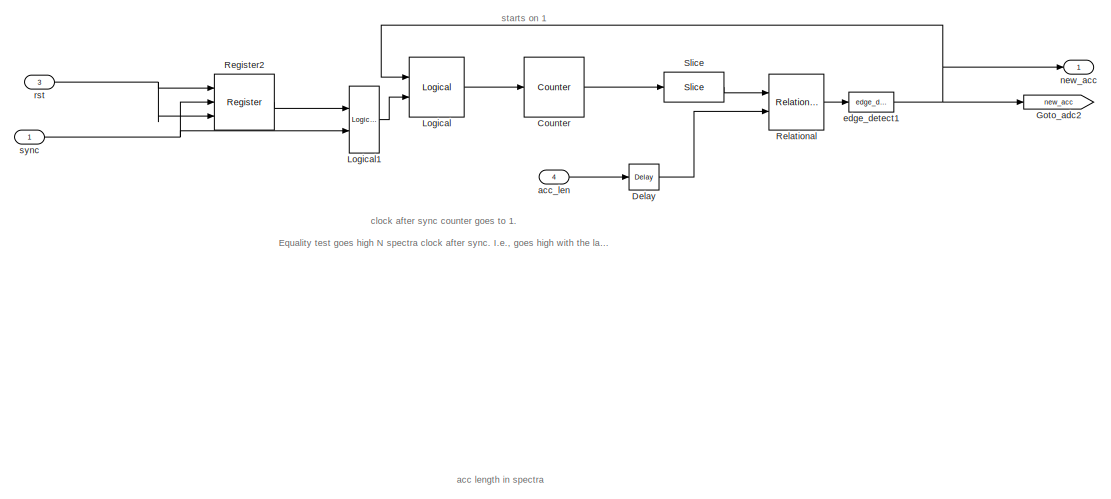
[diagram: autocorr/common - part 1/2, full width, top band]
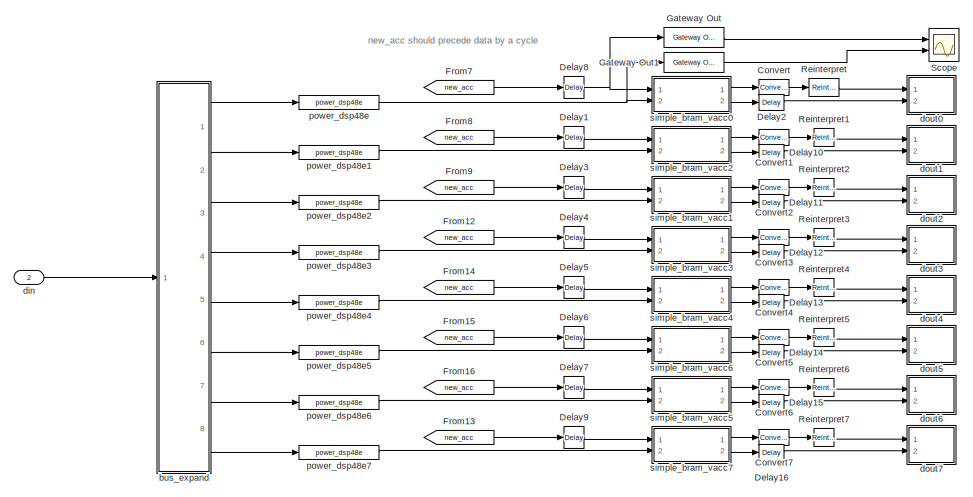
[diagram: autocorr/common - part 2/2, full width, bottom band]
BLOCK [SubSystem] autocorr/common
  Ports = [4, 1]
  RequestExecContextInheritance = off
BLOCK [Reference] autocorr/common/Convert  REF=xbsIndex_r4/Convert
  Commented = on
  Ports = [1, 1]
  SourceBlock = xbsIndex_r4/Convert
  SourceType = Xilinx Type Converter Block
BLOCK [Reference] autocorr/common/Convert1  REF=xbsIndex_r4/Convert
  Commented = on
  Ports = [1, 1]
  SourceBlock = xbsIndex_r4/Convert
  SourceType = Xilinx Type Converter Block
BLOCK [Reference] autocorr/common/Convert2  REF=xbsIndex_r4/Convert
  Commented = on
  Ports = [1, 1]
  SourceBlock = xbsIndex_r4/Convert
  SourceType = Xilinx Type Converter Block
BLOCK [Reference] autocorr/common/Convert3  REF=xbsIndex_r4/Convert
  Commented = on
  Ports = [1, 1]
  SourceBlock = xbsIndex_r4/Convert
  SourceType = Xilinx Type Converter Block
BLOCK [Reference] autocorr/common/Convert4  REF=xbsIndex_r4/Convert
  Commented = on
  Ports = [1, 1]
  SourceBlock = xbsIndex_r4/Convert
  SourceType = Xilinx Type Converter Block
BLOCK [Reference] autocorr/common/Convert5  REF=xbsIndex_r4/Convert
  Commented = on
  Ports = [1, 1]
  SourceBlock = xbsIndex_r4/Convert
  SourceType = Xilinx Type Converter Block
BLOCK [Reference] autocorr/common/Convert6  REF=xbsIndex_r4/Convert
  Commented = on
  Ports = [1, 1]
  SourceBlock = xbsIndex_r4/Convert
  SourceType = Xilinx Type Converter Block
BLOCK [Reference] autocorr/common/Convert7  REF=xbsIndex_r4/Convert
  Commented = on
  Ports = [1, 1]
  SourceBlock = xbsIndex_r4/Convert
  SourceType = Xilinx Type Converter Block
BLOCK [Reference] autocorr/common/Counter  REF=xbsIndex_r4/Counter
  Ports = [1, 1]
  SourceBlock = xbsIndex_r4/Counter
  SourceType = Xilinx Counter Block
BLOCK [Reference] autocorr/common/Delay  REF=xbsIndex_r4/Delay
  Ports = [1, 1]
  SourceBlock = xbsIndex_r4/Delay
  SourceType = Xilinx Delay Block
BLOCK [Reference] autocorr/common/Delay1  REF=xbsIndex_r4/Delay
  Commented = on
  Ports = [1, 1]
  SourceBlock = xbsIndex_r4/Delay
  SourceType = Xilinx Delay Block
BLOCK [Reference] autocorr/common/Delay10  REF=xbsIndex_r4/Delay
  Commented = on
  Ports = [1, 1]
  SourceBlock = xbsIndex_r4/Delay
  SourceType = Xilinx Delay Block
BLOCK [Reference] autocorr/common/Delay11  REF=xbsIndex_r4/Delay
  Commented = on
  Ports = [1, 1]
  SourceBlock = xbsIndex_r4/Delay
  SourceType = Xilinx Delay Block
BLOCK [Reference] autocorr/common/Delay12  REF=xbsIndex_r4/Delay
  Commented = on
  Ports = [1, 1]
  SourceBlock = xbsIndex_r4/Delay
  SourceType = Xilinx Delay Block
BLOCK [Reference] autocorr/common/Delay13  REF=xbsIndex_r4/Delay
  Commented = on
  Ports = [1, 1]
  SourceBlock = xbsIndex_r4/Delay
  SourceType = Xilinx Delay Block
BLOCK [Reference] autocorr/common/Delay14  REF=xbsIndex_r4/Delay
  Commented = on
  Ports = [1, 1]
  SourceBlock = xbsIndex_r4/Delay
  SourceType = Xilinx Delay Block
BLOCK [Reference] autocorr/common/Delay15  REF=xbsIndex_r4/Delay
  Commented = on
  Ports = [1, 1]
  SourceBlock = xbsIndex_r4/Delay
  SourceType = Xilinx Delay Block
BLOCK [Reference] autocorr/common/Delay16  REF=xbsIndex_r4/Delay
  Commented = on
  Ports = [1, 1]
  SourceBlock = xbsIndex_r4/Delay
  SourceType = Xilinx Delay Block
BLOCK [Reference] autocorr/common/Delay2  REF=xbsIndex_r4/Delay
  Commented = on
  Ports = [1, 1]
  SourceBlock = xbsIndex_r4/Delay
  SourceType = Xilinx Delay Block
BLOCK [Reference] autocorr/common/Delay3  REF=xbsIndex_r4/Delay
  Commented = on
  Ports = [1, 1]
  SourceBlock = xbsIndex_r4/Delay
  SourceType = Xilinx Delay Block
BLOCK [Reference] autocorr/common/Delay4  REF=xbsIndex_r4/Delay
  Commented = on
  Ports = [1, 1]
  SourceBlock = xbsIndex_r4/Delay
  SourceType = Xilinx Delay Block
BLOCK [Reference] autocorr/common/Delay5  REF=xbsIndex_r4/Delay
  Commented = on
  Ports = [1, 1]
  SourceBlock = xbsIndex_r4/Delay
  SourceType = Xilinx Delay Block
BLOCK [Reference] autocorr/common/Delay6  REF=xbsIndex_r4/Delay
  Commented = on
  Ports = [1, 1]
  SourceBlock = xbsIndex_r4/Delay
  SourceType = Xilinx Delay Block
BLOCK [Reference] autocorr/common/Delay7  REF=xbsIndex_r4/Delay
  Commented = on
  Ports = [1, 1]
  SourceBlock = xbsIndex_r4/Delay
  SourceType = Xilinx Delay Block
BLOCK [Reference] autocorr/common/Delay8  REF=xbsIndex_r4/Delay
  Ports = [1, 1]
  SourceBlock = xbsIndex_r4/Delay
  SourceType = Xilinx Delay Block
BLOCK [Reference] autocorr/common/Delay9  REF=xbsIndex_r4/Delay
  Commented = on
  Ports = [1, 1]
  SourceBlock = xbsIndex_r4/Delay
  SourceType = Xilinx Delay Block
BLOCK [From] autocorr/common/From12
  Commented = on
  GotoTag = new_acc
BLOCK [From] autocorr/common/From13
  Commented = on
  GotoTag = new_acc
BLOCK [From] autocorr/common/From14
  Commented = on
  GotoTag = new_acc
BLOCK [From] autocorr/common/From15
  Commented = on
  GotoTag = new_acc
BLOCK [From] autocorr/common/From16
  Commented = on
  GotoTag = new_acc
BLOCK [From] autocorr/common/From7
  GotoTag = new_acc
BLOCK [From] autocorr/common/From8
  Commented = on
  GotoTag = new_acc
BLOCK [From] autocorr/common/From9
  Commented = on
  GotoTag = new_acc
BLOCK [Reference] autocorr/common/Gateway Out  REF=xbsIndex_r4/Gateway Out
  Ports = [1, 1]
  SourceBlock = xbsIndex_r4/Gateway Out
  SourceType = Xilinx Gateway Out Block
BLOCK [Reference] autocorr/common/Gateway Out1  REF=xbsIndex_r4/Gateway Out
  Ports = [1, 1]
  SourceBlock = xbsIndex_r4/Gateway Out
  SourceType = Xilinx Gateway Out Block
BLOCK [Goto] autocorr/common/Goto_adc2
  GotoTag = new_acc
BLOCK [Reference] autocorr/common/Logical  REF=xbsIndex_r4/Logical
  Ports = [2, 1]
  SourceBlock = xbsIndex_r4/Logical
  SourceType = Xilinx Logical Block Block
BLOCK [Reference] autocorr/common/Logical1  REF=xbsIndex_r4/Logical
  Ports = [2, 1]
  SourceBlock = xbsIndex_r4/Logical
  SourceType = Xilinx Logical Block Block
BLOCK [Reference] autocorr/common/Register2  REF=xbsIndex_r4/Register
  Ports = [3, 1]
  SourceBlock = xbsIndex_r4/Register
  SourceType = Xilinx Register Block
BLOCK [Reference] autocorr/common/Reinterpret  REF=xbsIndex_r4/Reinterpret
  Commented = on
  Ports = [1, 1]
  SourceBlock = xbsIndex_r4/Reinterpret
  SourceType = Xilinx Type Reinterpreter Block
BLOCK [Reference] autocorr/common/Reinterpret1  REF=xbsIndex_r4/Reinterpret
  Commented = on
  Ports = [1, 1]
  SourceBlock = xbsIndex_r4/Reinterpret
  SourceType = Xilinx Type Reinterpreter Block
BLOCK [Reference] autocorr/common/Reinterpret2  REF=xbsIndex_r4/Reinterpret
  Commented = on
  Ports = [1, 1]
  SourceBlock = xbsIndex_r4/Reinterpret
  SourceType = Xilinx Type Reinterpreter Block
BLOCK [Reference] autocorr/common/Reinterpret3  REF=xbsIndex_r4/Reinterpret
  Commented = on
  Ports = [1, 1]
  SourceBlock = xbsIndex_r4/Reinterpret
  SourceType = Xilinx Type Reinterpreter Block
BLOCK [Reference] autocorr/common/Reinterpret4  REF=xbsIndex_r4/Reinterpret
  Commented = on
  Ports = [1, 1]
  SourceBlock = xbsIndex_r4/Reinterpret
  SourceType = Xilinx Type Reinterpreter Block
BLOCK [Reference] autocorr/common/Reinterpret5  REF=xbsIndex_r4/Reinterpret
  Commented = on
  Ports = [1, 1]
  SourceBlock = xbsIndex_r4/Reinterpret
  SourceType = Xilinx Type Reinterpreter Block
BLOCK [Reference] autocorr/common/Reinterpret6  REF=xbsIndex_r4/Reinterpret
  Commented = on
  Ports = [1, 1]
  SourceBlock = xbsIndex_r4/Reinterpret
  SourceType = Xilinx Type Reinterpreter Block
BLOCK [Reference] autocorr/common/Reinterpret7  REF=xbsIndex_r4/Reinterpret
  Commented = on
  Ports = [1, 1]
  SourceBlock = xbsIndex_r4/Reinterpret
  SourceType = Xilinx Type Reinterpreter Block
BLOCK [Reference] autocorr/common/Relational  REF=xbsIndex_r4/Relational
  Ports = [2, 1]
  SourceBlock = xbsIndex_r4/Relational
  SourceType = Xilinx Arithmetic Relational Operator Block
BLOCK [Scope] autocorr/common/Scope
  Floating = off
  NumInputPorts = 2
  Ports = [2]
  ScopeSpecificationString = Simulink.scopes.TimeScopeBlockCfg('CurrentConfiguration', extmgr.ConfigurationSet(extmgr.Configuration('Core','General UI',true),extmgr.Configuration('Core','Source UI',true),extmgr.Configuration('Sources','WiredSimulink',true),extmgr.Configuration('Visuals','Time Domain',true,'SerializedDisplays',{struct('MinYLimReal','-0.125','MaxYLimReal','1.125','YLabelReal','','MinYLimMag','0.00000','MaxYLimM...<+2090ch>
BLOCK [Reference] autocorr/common/Slice  REF=xbsIndex_r4/Slice
  Ports = [1, 1]
  SourceBlock = xbsIndex_r4/Slice
  SourceType = Xilinx Bit Slice Extractor Block
BLOCK [Inport] autocorr/common/acc_len
  IconDisplay = Port number
  Port = 4
BLOCK [SubSystem] autocorr/common/bus_expand
  AncestorBlock = casper_library_flow_control/bus_expand
  AttributesFormatString = 8 outputs
  Ports = [1, 8]
  RequestExecContextInheritance = off
  UserDataPersistent = on
BLOCK [Inport] autocorr/common/bus_expand/bus_in
  IconDisplay = Port number
BLOCK [Outport] autocorr/common/bus_expand/lsb_out1
  IconDisplay = Port number
  Port = 8
BLOCK [Outport] autocorr/common/bus_expand/msb_out8
  IconDisplay = Port number
BLOCK [Outport] autocorr/common/bus_expand/out2
  IconDisplay = Port number
  Port = 7
BLOCK [Outport] autocorr/common/bus_expand/out3
  IconDisplay = Port number
  Port = 6
BLOCK [Outport] autocorr/common/bus_expand/out4
  IconDisplay = Port number
  Port = 5
BLOCK [Outport] autocorr/common/bus_expand/out5
  IconDisplay = Port number
  Port = 4
BLOCK [Outport] autocorr/common/bus_expand/out6
  IconDisplay = Port number
  Port = 3
BLOCK [Outport] autocorr/common/bus_expand/out7
  IconDisplay = Port number
  Port = 2
BLOCK [Reference] autocorr/common/bus_expand/reinterpret1  REF=xbsIndex_r4/Reinterpret
  Ports = [1, 1]
  SourceBlock = xbsIndex_r4/Reinterpret
  SourceType = Xilinx Type Reinterpreter Block
BLOCK [Reference] autocorr/common/bus_expand/reinterpret2  REF=xbsIndex_r4/Reinterpret
  Ports = [1, 1]
  SourceBlock = xbsIndex_r4/Reinterpret
  SourceType = Xilinx Type Reinterpreter Block
BLOCK [Reference] autocorr/common/bus_expand/reinterpret3  REF=xbsIndex_r4/Reinterpret
  Ports = [1, 1]
  SourceBlock = xbsIndex_r4/Reinterpret
  SourceType = Xilinx Type Reinterpreter Block
BLOCK [Reference] autocorr/common/bus_expand/reinterpret4  REF=xbsIndex_r4/Reinterpret
  Ports = [1, 1]
  SourceBlock = xbsIndex_r4/Reinterpret
  SourceType = Xilinx Type Reinterpreter Block
BLOCK [Reference] autocorr/common/bus_expand/reinterpret5  REF=xbsIndex_r4/Reinterpret
  Ports = [1, 1]
  SourceBlock = xbsIndex_r4/Reinterpret
  SourceType = Xilinx Type Reinterpreter Block
BLOCK [Reference] autocorr/common/bus_expand/reinterpret6  REF=xbsIndex_r4/Reinterpret
  Ports = [1, 1]
  SourceBlock = xbsIndex_r4/Reinterpret
  SourceType = Xilinx Type Reinterpreter Block
BLOCK [Reference] autocorr/common/bus_expand/reinterpret7  REF=xbsIndex_r4/Reinterpret
  Ports = [1, 1]
  SourceBlock = xbsIndex_r4/Reinterpret
  SourceType = Xilinx Type Reinterpreter Block
BLOCK [Reference] autocorr/common/bus_expand/reinterpret8  REF=xbsIndex_r4/Reinterpret
  Ports = [1, 1]
  SourceBlock = xbsIndex_r4/Reinterpret
  SourceType = Xilinx Type Reinterpreter Block
BLOCK [Reference] autocorr/common/bus_expand/slice1  REF=xbsIndex_r4/Slice
  Ports = [1, 1]
  SourceBlock = xbsIndex_r4/Slice
  SourceType = Xilinx Bit Slice Extractor Block
BLOCK [Reference] autocorr/common/bus_expand/slice2  REF=xbsIndex_r4/Slice
  Ports = [1, 1]
  SourceBlock = xbsIndex_r4/Slice
  SourceType = Xilinx Bit Slice Extractor Block
BLOCK [Reference] autocorr/common/bus_expand/slice3  REF=xbsIndex_r4/Slice
  Ports = [1, 1]
  SourceBlock = xbsIndex_r4/Slice
  SourceType = Xilinx Bit Slice Extractor Block
BLOCK [Reference] autocorr/common/bus_expand/slice4  REF=xbsIndex_r4/Slice
  Ports = [1, 1]
  SourceBlock = xbsIndex_r4/Slice
  SourceType = Xilinx Bit Slice Extractor Block
BLOCK [Reference] autocorr/common/bus_expand/slice5  REF=xbsIndex_r4/Slice
  Ports = [1, 1]
  SourceBlock = xbsIndex_r4/Slice
  SourceType = Xilinx Bit Slice Extractor Block
BLOCK [Reference] autocorr/common/bus_expand/slice6  REF=xbsIndex_r4/Slice
  Ports = [1, 1]
  SourceBlock = xbsIndex_r4/Slice
  SourceType = Xilinx Bit Slice Extractor Block
BLOCK [Reference] autocorr/common/bus_expand/slice7  REF=xbsIndex_r4/Slice
  Ports = [1, 1]
  SourceBlock = xbsIndex_r4/Slice
  SourceType = Xilinx Bit Slice Extractor Block
BLOCK [Reference] autocorr/common/bus_expand/slice8  REF=xbsIndex_r4/Slice
  Ports = [1, 1]
  SourceBlock = xbsIndex_r4/Slice
  SourceType = Xilinx Bit Slice Extractor Block
BLOCK [Inport] autocorr/common/din
  IconDisplay = Port number
  Port = 2
BLOCK [SubSystem] autocorr/common/dout0
  Commented = on
  Ports = [2]
  RequestExecContextInheritance = off
BLOCK [Reference] autocorr/common/dout0/Counter2  REF=xbsIndex_r4/Counter
  Ports = [1, 1]
  SourceBlock = xbsIndex_r4/Counter
  SourceType = Xilinx Counter Block
BLOCK [Reference] autocorr/common/dout0/Delay  REF=xbsIndex_r4/Delay
  Ports = [1, 1]
  SourceBlock = xbsIndex_r4/Delay
  SourceType = Xilinx Delay Block
BLOCK [Reference] autocorr/common/dout0/Delay3  REF=xbsIndex_r4/Delay
  Ports = [1, 1]
  SourceBlock = xbsIndex_r4/Delay
  SourceType = Xilinx Delay Block
BLOCK [SubSystem] autocorr/common/dout0/bram
  AncestorBlock = xps_library/Memory/shared_bram
  Ports = [3, 1]
  RequestExecContextInheritance = off
  Tag = xps:bram
BLOCK [Terminator] autocorr/common/dout0/bram/Terminator
BLOCK [Terminator] autocorr/common/dout0/bram/Terminator1
BLOCK [Terminator] autocorr/common/dout0/bram/Terminator2
BLOCK [Inport] autocorr/common/dout0/bram/addr
  IconDisplay = Port number
BLOCK [SubSystem] autocorr/common/dout0/bram/calc_add
  Ports = [1, 1]
  RequestExecContextInheritance = off
BLOCK [Reference] autocorr/common/dout0/bram/calc_add/add_sub  REF=xbsIndex_r4/AddSub
  Ports = [2, 1]
  SourceBlock = xbsIndex_r4/AddSub
  SourceType = Xilinx Adder/Subtracter Block
BLOCK [Reference] autocorr/common/dout0/bram/calc_add/concat  REF=xbsIndex_r4/Concat
  Ports = [2, 1]
  SourceBlock = xbsIndex_r4/Concat
  SourceType = Xilinx Bus Concatenator Block
BLOCK [Reference] autocorr/common/dout0/bram/calc_add/const  REF=xbsIndex_r4/Constant
  Ports = [0, 1]
  SourceBlock = xbsIndex_r4/Constant
  SourceType = Xilinx Constant Block Block
BLOCK [Reference] autocorr/common/dout0/bram/calc_add/convert_addr  REF=xbsIndex_r4/Convert
  Ports = [1, 1]
  SourceBlock = xbsIndex_r4/Convert
  SourceType = Xilinx Type Converter Block
BLOCK [Inport] autocorr/common/dout0/bram/calc_add/in
  IconDisplay = Port number
BLOCK [Reference] autocorr/common/dout0/bram/calc_add/lsw  REF=xbsIndex_r4/Slice
  Ports = [1, 1]
  SourceBlock = xbsIndex_r4/Slice
  SourceType = Xilinx Bit Slice Extractor Block
BLOCK [Reference] autocorr/common/dout0/bram/calc_add/manipulate  REF=xbsIndex_r4/Constant
  Ports = [0, 1]
  SourceBlock = xbsIndex_r4/Constant
  SourceType = Xilinx Constant Block Block
BLOCK [Reference] autocorr/common/dout0/bram/calc_add/msw  REF=xbsIndex_r4/Slice
  Ports = [1, 1]
  SourceBlock = xbsIndex_r4/Slice
  SourceType = Xilinx Bit Slice Extractor Block
BLOCK [Reference] autocorr/common/dout0/bram/calc_add/mux  REF=xbsIndex_r4/Mux
  Ports = [3, 1]
  SourceBlock = xbsIndex_r4/Mux
  SourceType = Xilinx Bus Multiplexer Block
BLOCK [Outport] autocorr/common/dout0/bram/calc_add/out
  IconDisplay = Port number
BLOCK [Reference] autocorr/common/dout0/bram/convert_addr  REF=xbsIndex_r4/Convert
  Ports = [1, 1]
  SourceBlock = xbsIndex_r4/Convert
  SourceType = Xilinx Type Converter Block
BLOCK [Reference] autocorr/common/dout0/bram/convert_din1  REF=xbsIndex_r4/Convert
  Ports = [1, 1]
  SourceBlock = xbsIndex_r4/Convert
  SourceType = Xilinx Type Converter Block
BLOCK [Reference] autocorr/common/dout0/bram/convert_we  REF=xbsIndex_r4/Convert
  Ports = [1, 1]
  SourceBlock = xbsIndex_r4/Convert
  SourceType = Xilinx Type Converter Block
BLOCK [Inport] autocorr/common/dout0/bram/data_in
  IconDisplay = Port number
  Port = 2
BLOCK [Outport] autocorr/common/dout0/bram/data_out
  IconDisplay = Port number
BLOCK [SubSystem] autocorr/common/dout0/bram/munge_in
  AncestorBlock = casper_library_flow_control/munge
  AttributesFormatString = split:32\njoin:0\nUnsigned [32,0]
  Ports = [1, 1]
  RequestExecContextInheritance = off
  UserDataPersistent = on
BLOCK [Inport] autocorr/common/dout0/bram/munge_in/din
  IconDisplay = Port number
BLOCK [Outport] autocorr/common/dout0/bram/munge_in/dout
  IconDisplay = Port number
BLOCK [Reference] autocorr/common/dout0/bram/munge_in/reinterpret_out  REF=xbsIndex_r4/Reinterpret
  Ports = [1, 1]
  SourceBlock = xbsIndex_r4/Reinterpret
  SourceType = Xilinx Type Reinterpreter Block
BLOCK [SubSystem] autocorr/common/dout0/bram/munge_out
  AncestorBlock = casper_library_flow_control/munge
  AttributesFormatString = split:32\njoin:0\nUnsigned [32,0]
  Ports = [1, 1]
  RequestExecContextInheritance = off
  UserDataPersistent = on
BLOCK [Inport] autocorr/common/dout0/bram/munge_out/din
  IconDisplay = Port number
BLOCK [Outport] autocorr/common/dout0/bram/munge_out/dout
  IconDisplay = Port number
BLOCK [Reference] autocorr/common/dout0/bram/munge_out/reinterpret_out  REF=xbsIndex_r4/Reinterpret
  Ports = [1, 1]
  SourceBlock = xbsIndex_r4/Reinterpret
  SourceType = Xilinx Type Reinterpreter Block
BLOCK [SubSystem] autocorr/common/dout0/bram/sim_mem
  Ports = [3, 1]
  RequestExecContextInheritance = off
BLOCK [DataTypeConversion] autocorr/common/dout0/bram/sim_mem/Data Type Conversion
  OutDataTypeStr = single
  RndMeth = Floor
  SaturateOnIntegerOverflow = off
BLOCK [DataTypeConversion] autocorr/common/dout0/bram/sim_mem/Data Type Conversion1
  OutDataTypeStr = double
  RndMeth = Floor
  SaturateOnIntegerOverflow = off
BLOCK [DataTypeConversion] autocorr/common/dout0/bram/sim_mem/Data Type Conversion2
  OutDataTypeStr = boolean
  RndMeth = Floor
  SaturateOnIntegerOverflow = off
BLOCK [Inport] autocorr/common/dout0/bram/sim_mem/addr
  IconDisplay = Port number
BLOCK [Inport] autocorr/common/dout0/bram/sim_mem/data
  IconDisplay = Port number
  Port = 2
BLOCK [Outport] autocorr/common/dout0/bram/sim_mem/data_out
  IconDisplay = Port number
BLOCK [M-S-Function] autocorr/common/dout0/bram/sim_mem/sfunc
  FunctionName = shared_bram_sim_sfunc
  Parameters = depth_bits, latency, init_vals
  Ports = [3, 1]
BLOCK [Reference] autocorr/common/dout0/bram/sim_mem/sim_addr  REF=xbsIndex_r4/Gateway Out
  Ports = [1, 1]
  SourceBlock = xbsIndex_r4/Gateway Out
  SourceType = Xilinx Gateway Out Block
BLOCK [Reference] autocorr/common/dout0/bram/sim_mem/sim_data  REF=xbsIndex_r4/Gateway Out
  Ports = [1, 1]
  SourceBlock = xbsIndex_r4/Gateway Out
  SourceType = Xilinx Gateway Out Block
BLOCK [Reference] autocorr/common/dout0/bram/sim_mem/sim_we  REF=xbsIndex_r4/Gateway Out
  Ports = [1, 1]
  SourceBlock = xbsIndex_r4/Gateway Out
  SourceType = Xilinx Gateway Out Block
BLOCK [Inport] autocorr/common/dout0/bram/sim_mem/we
  IconDisplay = Port number
  Port = 3
BLOCK [Reference] autocorr/common/dout0/bram/snap2_f_200msps_64i_4096c_autocorr_common_dout0_bram_addr  REF=xbsIndex_r4/Gateway Out
  Ports = [1, 1]
  SourceBlock = xbsIndex_r4/Gateway Out
  SourceType = Xilinx Gateway Out Block
BLOCK [Reference] autocorr/common/dout0/bram/snap2_f_200msps_64i_4096c_autocorr_common_dout0_bram_data_in  REF=xbsIndex_r4/Gateway Out
  Ports = [1, 1]
  SourceBlock = xbsIndex_r4/Gateway Out
  SourceType = Xilinx Gateway Out Block
BLOCK [Reference] autocorr/common/dout0/bram/snap2_f_200msps_64i_4096c_autocorr_common_dout0_bram_data_out  REF=xbsIndex_r4/Gateway In
  Ports = [1, 1]
  SourceBlock = xbsIndex_r4/Gateway In
  SourceType = Xilinx Gateway In Block
BLOCK [Reference] autocorr/common/dout0/bram/snap2_f_200msps_64i_4096c_autocorr_common_dout0_bram_we  REF=xbsIndex_r4/Gateway Out
  Ports = [1, 1]
  SourceBlock = xbsIndex_r4/Gateway Out
  SourceType = Xilinx Gateway Out Block
BLOCK [Inport] autocorr/common/dout0/bram/we
  IconDisplay = Port number
  Port = 3
BLOCK [Inport] autocorr/common/dout0/din
  IconDisplay = Port number
BLOCK [Reference] autocorr/common/dout0/edge_detect1  REF=casper_library_misc/edge_detect  (lib defined in mdl_357510c33b49, mdl_57b5f564ae26, +4 more)
  AttributesFormatString = rising edges\nactive high
  Ports = [1, 1]
  SourceBlock = casper_library_misc/edge_detect
  SourceProductName = CASPER DSP Blockset
  SourceType = edge_detect
  UserDataPersistent = on
BLOCK [Inport] autocorr/common/dout0/vld
  IconDisplay = Port number
  Port = 2
BLOCK [SubSystem] autocorr/common/dout1
  Commented = on
  Ports = [2]
  RequestExecContextInheritance = off
BLOCK [Reference] autocorr/common/dout1/Counter2  REF=xbsIndex_r4/Counter
  Ports = [1, 1]
  SourceBlock = xbsIndex_r4/Counter
  SourceType = Xilinx Counter Block
BLOCK [Reference] autocorr/common/dout1/Delay  REF=xbsIndex_r4/Delay
  Ports = [1, 1]
  SourceBlock = xbsIndex_r4/Delay
  SourceType = Xilinx Delay Block
BLOCK [Reference] autocorr/common/dout1/Delay3  REF=xbsIndex_r4/Delay
  Ports = [1, 1]
  SourceBlock = xbsIndex_r4/Delay
  SourceType = Xilinx Delay Block
BLOCK [SubSystem] autocorr/common/dout1/bram
  AncestorBlock = xps_library/Memory/shared_bram
  Ports = [3, 1]
  RequestExecContextInheritance = off
  Tag = xps:bram
BLOCK [Terminator] autocorr/common/dout1/bram/Terminator
BLOCK [Terminator] autocorr/common/dout1/bram/Terminator1
BLOCK [Terminator] autocorr/common/dout1/bram/Terminator2
BLOCK [Inport] autocorr/common/dout1/bram/addr
  IconDisplay = Port number
BLOCK [SubSystem] autocorr/common/dout1/bram/calc_add
  Ports = [1, 1]
  RequestExecContextInheritance = off
BLOCK [Reference] autocorr/common/dout1/bram/calc_add/add_sub  REF=xbsIndex_r4/AddSub
  Ports = [2, 1]
  SourceBlock = xbsIndex_r4/AddSub
  SourceType = Xilinx Adder/Subtracter Block
BLOCK [Reference] autocorr/common/dout1/bram/calc_add/concat  REF=xbsIndex_r4/Concat
  Ports = [2, 1]
  SourceBlock = xbsIndex_r4/Concat
  SourceType = Xilinx Bus Concatenator Block
BLOCK [Reference] autocorr/common/dout1/bram/calc_add/const  REF=xbsIndex_r4/Constant
  Ports = [0, 1]
  SourceBlock = xbsIndex_r4/Constant
  SourceType = Xilinx Constant Block Block
BLOCK [Reference] autocorr/common/dout1/bram/calc_add/convert_addr  REF=xbsIndex_r4/Convert
  Ports = [1, 1]
  SourceBlock = xbsIndex_r4/Convert
  SourceType = Xilinx Type Converter Block
BLOCK [Inport] autocorr/common/dout1/bram/calc_add/in
  IconDisplay = Port number
BLOCK [Reference] autocorr/common/dout1/bram/calc_add/lsw  REF=xbsIndex_r4/Slice
  Ports = [1, 1]
  SourceBlock = xbsIndex_r4/Slice
  SourceType = Xilinx Bit Slice Extractor Block
BLOCK [Reference] autocorr/common/dout1/bram/calc_add/manipulate  REF=xbsIndex_r4/Constant
  Ports = [0, 1]
  SourceBlock = xbsIndex_r4/Constant
  SourceType = Xilinx Constant Block Block
BLOCK [Reference] autocorr/common/dout1/bram/calc_add/msw  REF=xbsIndex_r4/Slice
  Ports = [1, 1]
  SourceBlock = xbsIndex_r4/Slice
  SourceType = Xilinx Bit Slice Extractor Block
BLOCK [Reference] autocorr/common/dout1/bram/calc_add/mux  REF=xbsIndex_r4/Mux
  Ports = [3, 1]
  SourceBlock = xbsIndex_r4/Mux
  SourceType = Xilinx Bus Multiplexer Block
BLOCK [Outport] autocorr/common/dout1/bram/calc_add/out
  IconDisplay = Port number
BLOCK [Reference] autocorr/common/dout1/bram/convert_addr  REF=xbsIndex_r4/Convert
  Ports = [1, 1]
  SourceBlock = xbsIndex_r4/Convert
  SourceType = Xilinx Type Converter Block
BLOCK [Reference] autocorr/common/dout1/bram/convert_din1  REF=xbsIndex_r4/Convert
  Ports = [1, 1]
  SourceBlock = xbsIndex_r4/Convert
  SourceType = Xilinx Type Converter Block
BLOCK [Reference] autocorr/common/dout1/bram/convert_we  REF=xbsIndex_r4/Convert
  Ports = [1, 1]
  SourceBlock = xbsIndex_r4/Convert
  SourceType = Xilinx Type Converter Block
BLOCK [Inport] autocorr/common/dout1/bram/data_in
  IconDisplay = Port number
  Port = 2
BLOCK [Outport] autocorr/common/dout1/bram/data_out
  IconDisplay = Port number
BLOCK [SubSystem] autocorr/common/dout1/bram/munge_in
  AncestorBlock = casper_library_flow_control/munge
  AttributesFormatString = split:32\njoin:0\nUnsigned [32,0]
  Ports = [1, 1]
  RequestExecContextInheritance = off
  UserDataPersistent = on
BLOCK [Inport] autocorr/common/dout1/bram/munge_in/din
  IconDisplay = Port number
BLOCK [Outport] autocorr/common/dout1/bram/munge_in/dout
  IconDisplay = Port number
BLOCK [Reference] autocorr/common/dout1/bram/munge_in/reinterpret_out  REF=xbsIndex_r4/Reinterpret
  Ports = [1, 1]
  SourceBlock = xbsIndex_r4/Reinterpret
  SourceType = Xilinx Type Reinterpreter Block
BLOCK [SubSystem] autocorr/common/dout1/bram/munge_out
  AncestorBlock = casper_library_flow_control/munge
  AttributesFormatString = split:32\njoin:0\nUnsigned [32,0]
  Ports = [1, 1]
  RequestExecContextInheritance = off
  UserDataPersistent = on
BLOCK [Inport] autocorr/common/dout1/bram/munge_out/din
  IconDisplay = Port number
BLOCK [Outport] autocorr/common/dout1/bram/munge_out/dout
  IconDisplay = Port number
BLOCK [Reference] autocorr/common/dout1/bram/munge_out/reinterpret_out  REF=xbsIndex_r4/Reinterpret
  Ports = [1, 1]
  SourceBlock = xbsIndex_r4/Reinterpret
  SourceType = Xilinx Type Reinterpreter Block
BLOCK [SubSystem] autocorr/common/dout1/bram/sim_mem
  Ports = [3, 1]
  RequestExecContextInheritance = off
BLOCK [DataTypeConversion] autocorr/common/dout1/bram/sim_mem/Data Type Conversion
  OutDataTypeStr = single
  RndMeth = Floor
  SaturateOnIntegerOverflow = off
BLOCK [DataTypeConversion] autocorr/common/dout1/bram/sim_mem/Data Type Conversion1
  OutDataTypeStr = double
  RndMeth = Floor
  SaturateOnIntegerOverflow = off
BLOCK [DataTypeConversion] autocorr/common/dout1/bram/sim_mem/Data Type Conversion2
  OutDataTypeStr = boolean
  RndMeth = Floor
  SaturateOnIntegerOverflow = off
BLOCK [Inport] autocorr/common/dout1/bram/sim_mem/addr
  IconDisplay = Port number
BLOCK [Inport] autocorr/common/dout1/bram/sim_mem/data
  IconDisplay = Port number
  Port = 2
BLOCK [Outport] autocorr/common/dout1/bram/sim_mem/data_out
  IconDisplay = Port number
BLOCK [M-S-Function] autocorr/common/dout1/bram/sim_mem/sfunc
  FunctionName = shared_bram_sim_sfunc
  Parameters = depth_bits, latency, init_vals
  Ports = [3, 1]
BLOCK [Reference] autocorr/common/dout1/bram/sim_mem/sim_addr  REF=xbsIndex_r4/Gateway Out
  Ports = [1, 1]
  SourceBlock = xbsIndex_r4/Gateway Out
  SourceType = Xilinx Gateway Out Block
BLOCK [Reference] autocorr/common/dout1/bram/sim_mem/sim_data  REF=xbsIndex_r4/Gateway Out
  Ports = [1, 1]
  SourceBlock = xbsIndex_r4/Gateway Out
  SourceType = Xilinx Gateway Out Block
BLOCK [Reference] autocorr/common/dout1/bram/sim_mem/sim_we  REF=xbsIndex_r4/Gateway Out
  Ports = [1, 1]
  SourceBlock = xbsIndex_r4/Gateway Out
  SourceType = Xilinx Gateway Out Block
BLOCK [Inport] autocorr/common/dout1/bram/sim_mem/we
  IconDisplay = Port number
  Port = 3
BLOCK [Reference] autocorr/common/dout1/bram/snap2_f_200msps_64i_4096c_autocorr_common_dout1_bram_addr  REF=xbsIndex_r4/Gateway Out
  Ports = [1, 1]
  SourceBlock = xbsIndex_r4/Gateway Out
  SourceType = Xilinx Gateway Out Block
BLOCK [Reference] autocorr/common/dout1/bram/snap2_f_200msps_64i_4096c_autocorr_common_dout1_bram_data_in  REF=xbsIndex_r4/Gateway Out
  Ports = [1, 1]
  SourceBlock = xbsIndex_r4/Gateway Out
  SourceType = Xilinx Gateway Out Block
BLOCK [Reference] autocorr/common/dout1/bram/snap2_f_200msps_64i_4096c_autocorr_common_dout1_bram_data_out  REF=xbsIndex_r4/Gateway In
  Ports = [1, 1]
  SourceBlock = xbsIndex_r4/Gateway In
  SourceType = Xilinx Gateway In Block
BLOCK [Reference] autocorr/common/dout1/bram/snap2_f_200msps_64i_4096c_autocorr_common_dout1_bram_we  REF=xbsIndex_r4/Gateway Out
  Ports = [1, 1]
  SourceBlock = xbsIndex_r4/Gateway Out
  SourceType = Xilinx Gateway Out Block
BLOCK [Inport] autocorr/common/dout1/bram/we
  IconDisplay = Port number
  Port = 3
BLOCK [Inport] autocorr/common/dout1/din
  IconDisplay = Port number
BLOCK [Reference] autocorr/common/dout1/edge_detect1  REF=casper_library_misc/edge_detect  (lib defined in mdl_357510c33b49, mdl_57b5f564ae26, +4 more)
  AttributesFormatString = rising edges\nactive high
  Ports = [1, 1]
  SourceBlock = casper_library_misc/edge_detect
  SourceProductName = CASPER DSP Blockset
  SourceType = edge_detect
  UserDataPersistent = on
BLOCK [Inport] autocorr/common/dout1/vld
  IconDisplay = Port number
  Port = 2
BLOCK [SubSystem] autocorr/common/dout2
  Commented = on
  Ports = [2]
  RequestExecContextInheritance = off
BLOCK [Reference] autocorr/common/dout2/Counter2  REF=xbsIndex_r4/Counter
  Ports = [1, 1]
  SourceBlock = xbsIndex_r4/Counter
  SourceType = Xilinx Counter Block
BLOCK [Reference] autocorr/common/dout2/Delay  REF=xbsIndex_r4/Delay
  Ports = [1, 1]
  SourceBlock = xbsIndex_r4/Delay
  SourceType = Xilinx Delay Block
BLOCK [Reference] autocorr/common/dout2/Delay3  REF=xbsIndex_r4/Delay
  Ports = [1, 1]
  SourceBlock = xbsIndex_r4/Delay
  SourceType = Xilinx Delay Block
BLOCK [SubSystem] autocorr/common/dout2/bram
  AncestorBlock = xps_library/Memory/shared_bram
  Ports = [3, 1]
  RequestExecContextInheritance = off
  Tag = xps:bram
BLOCK [Terminator] autocorr/common/dout2/bram/Terminator
BLOCK [Terminator] autocorr/common/dout2/bram/Terminator1
BLOCK [Terminator] autocorr/common/dout2/bram/Terminator2
BLOCK [Inport] autocorr/common/dout2/bram/addr
  IconDisplay = Port number
BLOCK [SubSystem] autocorr/common/dout2/bram/calc_add
  Ports = [1, 1]
  RequestExecContextInheritance = off
BLOCK [Reference] autocorr/common/dout2/bram/calc_add/add_sub  REF=xbsIndex_r4/AddSub
  Ports = [2, 1]
  SourceBlock = xbsIndex_r4/AddSub
  SourceType = Xilinx Adder/Subtracter Block
BLOCK [Reference] autocorr/common/dout2/bram/calc_add/concat  REF=xbsIndex_r4/Concat
  Ports = [2, 1]
  SourceBlock = xbsIndex_r4/Concat
  SourceType = Xilinx Bus Concatenator Block
BLOCK [Reference] autocorr/common/dout2/bram/calc_add/const  REF=xbsIndex_r4/Constant
  Ports = [0, 1]
  SourceBlock = xbsIndex_r4/Constant
  SourceType = Xilinx Constant Block Block
BLOCK [Reference] autocorr/common/dout2/bram/calc_add/convert_addr  REF=xbsIndex_r4/Convert
  Ports = [1, 1]
  SourceBlock = xbsIndex_r4/Convert
  SourceType = Xilinx Type Converter Block
BLOCK [Inport] autocorr/common/dout2/bram/calc_add/in
  IconDisplay = Port number
BLOCK [Reference] autocorr/common/dout2/bram/calc_add/lsw  REF=xbsIndex_r4/Slice
  Ports = [1, 1]
  SourceBlock = xbsIndex_r4/Slice
  SourceType = Xilinx Bit Slice Extractor Block
BLOCK [Reference] autocorr/common/dout2/bram/calc_add/manipulate  REF=xbsIndex_r4/Constant
  Ports = [0, 1]
  SourceBlock = xbsIndex_r4/Constant
  SourceType = Xilinx Constant Block Block
BLOCK [Reference] autocorr/common/dout2/bram/calc_add/msw  REF=xbsIndex_r4/Slice
  Ports = [1, 1]
  SourceBlock = xbsIndex_r4/Slice
  SourceType = Xilinx Bit Slice Extractor Block
BLOCK [Reference] autocorr/common/dout2/bram/calc_add/mux  REF=xbsIndex_r4/Mux
  Ports = [3, 1]
  SourceBlock = xbsIndex_r4/Mux
  SourceType = Xilinx Bus Multiplexer Block
BLOCK [Outport] autocorr/common/dout2/bram/calc_add/out
  IconDisplay = Port number
BLOCK [Reference] autocorr/common/dout2/bram/convert_addr  REF=xbsIndex_r4/Convert
  Ports = [1, 1]
  SourceBlock = xbsIndex_r4/Convert
  SourceType = Xilinx Type Converter Block
BLOCK [Reference] autocorr/common/dout2/bram/convert_din1  REF=xbsIndex_r4/Convert
  Ports = [1, 1]
  SourceBlock = xbsIndex_r4/Convert
  SourceType = Xilinx Type Converter Block
BLOCK [Reference] autocorr/common/dout2/bram/convert_we  REF=xbsIndex_r4/Convert
  Ports = [1, 1]
  SourceBlock = xbsIndex_r4/Convert
  SourceType = Xilinx Type Converter Block
BLOCK [Inport] autocorr/common/dout2/bram/data_in
  IconDisplay = Port number
  Port = 2
BLOCK [Outport] autocorr/common/dout2/bram/data_out
  IconDisplay = Port number
BLOCK [SubSystem] autocorr/common/dout2/bram/munge_in
  AncestorBlock = casper_library_flow_control/munge
  AttributesFormatString = split:32\njoin:0\nUnsigned [32,0]
  Ports = [1, 1]
  RequestExecContextInheritance = off
  UserDataPersistent = on
BLOCK [Inport] autocorr/common/dout2/bram/munge_in/din
  IconDisplay = Port number
BLOCK [Outport] autocorr/common/dout2/bram/munge_in/dout
  IconDisplay = Port number
BLOCK [Reference] autocorr/common/dout2/bram/munge_in/reinterpret_out  REF=xbsIndex_r4/Reinterpret
  Ports = [1, 1]
  SourceBlock = xbsIndex_r4/Reinterpret
  SourceType = Xilinx Type Reinterpreter Block
BLOCK [SubSystem] autocorr/common/dout2/bram/munge_out
  AncestorBlock = casper_library_flow_control/munge
  AttributesFormatString = split:32\njoin:0\nUnsigned [32,0]
  Ports = [1, 1]
  RequestExecContextInheritance = off
  UserDataPersistent = on
BLOCK [Inport] autocorr/common/dout2/bram/munge_out/din
  IconDisplay = Port number
BLOCK [Outport] autocorr/common/dout2/bram/munge_out/dout
  IconDisplay = Port number
BLOCK [Reference] autocorr/common/dout2/bram/munge_out/reinterpret_out  REF=xbsIndex_r4/Reinterpret
  Ports = [1, 1]
  SourceBlock = xbsIndex_r4/Reinterpret
  SourceType = Xilinx Type Reinterpreter Block
BLOCK [SubSystem] autocorr/common/dout2/bram/sim_mem
  Ports = [3, 1]
  RequestExecContextInheritance = off
BLOCK [DataTypeConversion] autocorr/common/dout2/bram/sim_mem/Data Type Conversion
  OutDataTypeStr = single
  RndMeth = Floor
  SaturateOnIntegerOverflow = off
BLOCK [DataTypeConversion] autocorr/common/dout2/bram/sim_mem/Data Type Conversion1
  OutDataTypeStr = double
  RndMeth = Floor
  SaturateOnIntegerOverflow = off
BLOCK [DataTypeConversion] autocorr/common/dout2/bram/sim_mem/Data Type Conversion2
  OutDataTypeStr = boolean
  RndMeth = Floor
  SaturateOnIntegerOverflow = off
BLOCK [Inport] autocorr/common/dout2/bram/sim_mem/addr
  IconDisplay = Port number
BLOCK [Inport] autocorr/common/dout2/bram/sim_mem/data
  IconDisplay = Port number
  Port = 2
BLOCK [Outport] autocorr/common/dout2/bram/sim_mem/data_out
  IconDisplay = Port number
BLOCK [M-S-Function] autocorr/common/dout2/bram/sim_mem/sfunc
  FunctionName = shared_bram_sim_sfunc
  Parameters = depth_bits, latency, init_vals
  Ports = [3, 1]
BLOCK [Reference] autocorr/common/dout2/bram/sim_mem/sim_addr  REF=xbsIndex_r4/Gateway Out
  Ports = [1, 1]
  SourceBlock = xbsIndex_r4/Gateway Out
  SourceType = Xilinx Gateway Out Block
BLOCK [Reference] autocorr/common/dout2/bram/sim_mem/sim_data  REF=xbsIndex_r4/Gateway Out
  Ports = [1, 1]
  SourceBlock = xbsIndex_r4/Gateway Out
  SourceType = Xilinx Gateway Out Block
BLOCK [Reference] autocorr/common/dout2/bram/sim_mem/sim_we  REF=xbsIndex_r4/Gateway Out
  Ports = [1, 1]
  SourceBlock = xbsIndex_r4/Gateway Out
  SourceType = Xilinx Gateway Out Block
BLOCK [Inport] autocorr/common/dout2/bram/sim_mem/we
  IconDisplay = Port number
  Port = 3
BLOCK [Reference] autocorr/common/dout2/bram/snap2_f_200msps_64i_4096c_autocorr_common_dout2_bram_addr  REF=xbsIndex_r4/Gateway Out
  Ports = [1, 1]
  SourceBlock = xbsIndex_r4/Gateway Out
  SourceType = Xilinx Gateway Out Block
BLOCK [Reference] autocorr/common/dout2/bram/snap2_f_200msps_64i_4096c_autocorr_common_dout2_bram_data_in  REF=xbsIndex_r4/Gateway Out
  Ports = [1, 1]
  SourceBlock = xbsIndex_r4/Gateway Out
  SourceType = Xilinx Gateway Out Block
BLOCK [Reference] autocorr/common/dout2/bram/snap2_f_200msps_64i_4096c_autocorr_common_dout2_bram_data_out  REF=xbsIndex_r4/Gateway In
  Ports = [1, 1]
  SourceBlock = xbsIndex_r4/Gateway In
  SourceType = Xilinx Gateway In Block
BLOCK [Reference] autocorr/common/dout2/bram/snap2_f_200msps_64i_4096c_autocorr_common_dout2_bram_we  REF=xbsIndex_r4/Gateway Out
  Ports = [1, 1]
  SourceBlock = xbsIndex_r4/Gateway Out
  SourceType = Xilinx Gateway Out Block
BLOCK [Inport] autocorr/common/dout2/bram/we
  IconDisplay = Port number
  Port = 3
BLOCK [Inport] autocorr/common/dout2/din
  IconDisplay = Port number
BLOCK [Reference] autocorr/common/dout2/edge_detect1  REF=casper_library_misc/edge_detect  (lib defined in mdl_357510c33b49, mdl_57b5f564ae26, +4 more)
  AttributesFormatString = rising edges\nactive high
  Ports = [1, 1]
  SourceBlock = casper_library_misc/edge_detect
  SourceProductName = CASPER DSP Blockset
  SourceType = edge_detect
  UserDataPersistent = on
BLOCK [Inport] autocorr/common/dout2/vld
  IconDisplay = Port number
  Port = 2
BLOCK [SubSystem] autocorr/common/dout3
  Commented = on
  Ports = [2]
  RequestExecContextInheritance = off
BLOCK [Reference] autocorr/common/dout3/Counter2  REF=xbsIndex_r4/Counter
  Ports = [1, 1]
  SourceBlock = xbsIndex_r4/Counter
  SourceType = Xilinx Counter Block
BLOCK [Reference] autocorr/common/dout3/Delay  REF=xbsIndex_r4/Delay
  Ports = [1, 1]
  SourceBlock = xbsIndex_r4/Delay
  SourceType = Xilinx Delay Block
BLOCK [Reference] autocorr/common/dout3/Delay3  REF=xbsIndex_r4/Delay
  Ports = [1, 1]
  SourceBlock = xbsIndex_r4/Delay
  SourceType = Xilinx Delay Block
BLOCK [SubSystem] autocorr/common/dout3/bram
  AncestorBlock = xps_library/Memory/shared_bram
  Ports = [3, 1]
  RequestExecContextInheritance = off
  Tag = xps:bram
BLOCK [Terminator] autocorr/common/dout3/bram/Terminator
BLOCK [Terminator] autocorr/common/dout3/bram/Terminator1
BLOCK [Terminator] autocorr/common/dout3/bram/Terminator2
BLOCK [Inport] autocorr/common/dout3/bram/addr
  IconDisplay = Port number
BLOCK [SubSystem] autocorr/common/dout3/bram/calc_add
  Ports = [1, 1]
  RequestExecContextInheritance = off
BLOCK [Reference] autocorr/common/dout3/bram/calc_add/add_sub  REF=xbsIndex_r4/AddSub
  Ports = [2, 1]
  SourceBlock = xbsIndex_r4/AddSub
  SourceType = Xilinx Adder/Subtracter Block
BLOCK [Reference] autocorr/common/dout3/bram/calc_add/concat  REF=xbsIndex_r4/Concat
  Ports = [2, 1]
  SourceBlock = xbsIndex_r4/Concat
  SourceType = Xilinx Bus Concatenator Block
BLOCK [Reference] autocorr/common/dout3/bram/calc_add/const  REF=xbsIndex_r4/Constant
  Ports = [0, 1]
  SourceBlock = xbsIndex_r4/Constant
  SourceType = Xilinx Constant Block Block
BLOCK [Reference] autocorr/common/dout3/bram/calc_add/convert_addr  REF=xbsIndex_r4/Convert
  Ports = [1, 1]
  SourceBlock = xbsIndex_r4/Convert
  SourceType = Xilinx Type Converter Block
BLOCK [Inport] autocorr/common/dout3/bram/calc_add/in
  IconDisplay = Port number
BLOCK [Reference] autocorr/common/dout3/bram/calc_add/lsw  REF=xbsIndex_r4/Slice
  Ports = [1, 1]
  SourceBlock = xbsIndex_r4/Slice
  SourceType = Xilinx Bit Slice Extractor Block
BLOCK [Reference] autocorr/common/dout3/bram/calc_add/manipulate  REF=xbsIndex_r4/Constant
  Ports = [0, 1]
  SourceBlock = xbsIndex_r4/Constant
  SourceType = Xilinx Constant Block Block
BLOCK [Reference] autocorr/common/dout3/bram/calc_add/msw  REF=xbsIndex_r4/Slice
  Ports = [1, 1]
  SourceBlock = xbsIndex_r4/Slice
  SourceType = Xilinx Bit Slice Extractor Block
BLOCK [Reference] autocorr/common/dout3/bram/calc_add/mux  REF=xbsIndex_r4/Mux
  Ports = [3, 1]
  SourceBlock = xbsIndex_r4/Mux
  SourceType = Xilinx Bus Multiplexer Block
BLOCK [Outport] autocorr/common/dout3/bram/calc_add/out
  IconDisplay = Port number
BLOCK [Reference] autocorr/common/dout3/bram/convert_addr  REF=xbsIndex_r4/Convert
  Ports = [1, 1]
  SourceBlock = xbsIndex_r4/Convert
  SourceType = Xilinx Type Converter Block
BLOCK [Reference] autocorr/common/dout3/bram/convert_din1  REF=xbsIndex_r4/Convert
  Ports = [1, 1]
  SourceBlock = xbsIndex_r4/Convert
  SourceType = Xilinx Type Converter Block
BLOCK [Reference] autocorr/common/dout3/bram/convert_we  REF=xbsIndex_r4/Convert
  Ports = [1, 1]
  SourceBlock = xbsIndex_r4/Convert
  SourceType = Xilinx Type Converter Block
BLOCK [Inport] autocorr/common/dout3/bram/data_in
  IconDisplay = Port number
  Port = 2
BLOCK [Outport] autocorr/common/dout3/bram/data_out
  IconDisplay = Port number
BLOCK [SubSystem] autocorr/common/dout3/bram/munge_in
  AncestorBlock = casper_library_flow_control/munge
  AttributesFormatString = split:32\njoin:0\nUnsigned [32,0]
  Ports = [1, 1]
  RequestExecContextInheritance = off
  UserDataPersistent = on
BLOCK [Inport] autocorr/common/dout3/bram/munge_in/din
  IconDisplay = Port number
BLOCK [Outport] autocorr/common/dout3/bram/munge_in/dout
  IconDisplay = Port number
BLOCK [Reference] autocorr/common/dout3/bram/munge_in/reinterpret_out  REF=xbsIndex_r4/Reinterpret
  Ports = [1, 1]
  SourceBlock = xbsIndex_r4/Reinterpret
  SourceType = Xilinx Type Reinterpreter Block
BLOCK [SubSystem] autocorr/common/dout3/bram/munge_out
  AncestorBlock = casper_library_flow_control/munge
  AttributesFormatString = split:32\njoin:0\nUnsigned [32,0]
  Ports = [1, 1]
  RequestExecContextInheritance = off
  UserDataPersistent = on
BLOCK [Inport] autocorr/common/dout3/bram/munge_out/din
  IconDisplay = Port number
BLOCK [Outport] autocorr/common/dout3/bram/munge_out/dout
  IconDisplay = Port number
BLOCK [Reference] autocorr/common/dout3/bram/munge_out/reinterpret_out  REF=xbsIndex_r4/Reinterpret
  Ports = [1, 1]
  SourceBlock = xbsIndex_r4/Reinterpret
  SourceType = Xilinx Type Reinterpreter Block
BLOCK [SubSystem] autocorr/common/dout3/bram/sim_mem
  Ports = [3, 1]
  RequestExecContextInheritance = off
BLOCK [DataTypeConversion] autocorr/common/dout3/bram/sim_mem/Data Type Conversion
  OutDataTypeStr = single
  RndMeth = Floor
  SaturateOnIntegerOverflow = off
BLOCK [DataTypeConversion] autocorr/common/dout3/bram/sim_mem/Data Type Conversion1
  OutDataTypeStr = double
  RndMeth = Floor
  SaturateOnIntegerOverflow = off
BLOCK [DataTypeConversion] autocorr/common/dout3/bram/sim_mem/Data Type Conversion2
  OutDataTypeStr = boolean
  RndMeth = Floor
  SaturateOnIntegerOverflow = off
BLOCK [Inport] autocorr/common/dout3/bram/sim_mem/addr
  IconDisplay = Port number
BLOCK [Inport] autocorr/common/dout3/bram/sim_mem/data
  IconDisplay = Port number
  Port = 2
BLOCK [Outport] autocorr/common/dout3/bram/sim_mem/data_out
  IconDisplay = Port number
BLOCK [M-S-Function] autocorr/common/dout3/bram/sim_mem/sfunc
  FunctionName = shared_bram_sim_sfunc
  Parameters = depth_bits, latency, init_vals
  Ports = [3, 1]
BLOCK [Reference] autocorr/common/dout3/bram/sim_mem/sim_addr  REF=xbsIndex_r4/Gateway Out
  Ports = [1, 1]
  SourceBlock = xbsIndex_r4/Gateway Out
  SourceType = Xilinx Gateway Out Block
BLOCK [Reference] autocorr/common/dout3/bram/sim_mem/sim_data  REF=xbsIndex_r4/Gateway Out
  Ports = [1, 1]
  SourceBlock = xbsIndex_r4/Gateway Out
  SourceType = Xilinx Gateway Out Block
BLOCK [Reference] autocorr/common/dout3/bram/sim_mem/sim_we  REF=xbsIndex_r4/Gateway Out
  Ports = [1, 1]
  SourceBlock = xbsIndex_r4/Gateway Out
  SourceType = Xilinx Gateway Out Block
BLOCK [Inport] autocorr/common/dout3/bram/sim_mem/we
  IconDisplay = Port number
  Port = 3
BLOCK [Reference] autocorr/common/dout3/bram/snap2_f_200msps_64i_4096c_autocorr_common_dout3_bram_addr  REF=xbsIndex_r4/Gateway Out
  Ports = [1, 1]
  SourceBlock = xbsIndex_r4/Gateway Out
  SourceType = Xilinx Gateway Out Block
BLOCK [Reference] autocorr/common/dout3/bram/snap2_f_200msps_64i_4096c_autocorr_common_dout3_bram_data_in  REF=xbsIndex_r4/Gateway Out
  Ports = [1, 1]
  SourceBlock = xbsIndex_r4/Gateway Out
  SourceType = Xilinx Gateway Out Block
BLOCK [Reference] autocorr/common/dout3/bram/snap2_f_200msps_64i_4096c_autocorr_common_dout3_bram_data_out  REF=xbsIndex_r4/Gateway In
  Ports = [1, 1]
  SourceBlock = xbsIndex_r4/Gateway In
  SourceType = Xilinx Gateway In Block
BLOCK [Reference] autocorr/common/dout3/bram/snap2_f_200msps_64i_4096c_autocorr_common_dout3_bram_we  REF=xbsIndex_r4/Gateway Out
  Ports = [1, 1]
  SourceBlock = xbsIndex_r4/Gateway Out
  SourceType = Xilinx Gateway Out Block
BLOCK [Inport] autocorr/common/dout3/bram/we
  IconDisplay = Port number
  Port = 3
BLOCK [Inport] autocorr/common/dout3/din
  IconDisplay = Port number
BLOCK [Reference] autocorr/common/dout3/edge_detect1  REF=casper_library_misc/edge_detect  (lib defined in mdl_357510c33b49, mdl_57b5f564ae26, +4 more)
  AttributesFormatString = rising edges\nactive high
  Ports = [1, 1]
  SourceBlock = casper_library_misc/edge_detect
  SourceProductName = CASPER DSP Blockset
  SourceType = edge_detect
  UserDataPersistent = on
BLOCK [Inport] autocorr/common/dout3/vld
  IconDisplay = Port number
  Port = 2
BLOCK [SubSystem] autocorr/common/dout4
  Commented = on
  Ports = [2]
  RequestExecContextInheritance = off
BLOCK [Reference] autocorr/common/dout4/Counter2  REF=xbsIndex_r4/Counter
  Ports = [1, 1]
  SourceBlock = xbsIndex_r4/Counter
  SourceType = Xilinx Counter Block
BLOCK [Reference] autocorr/common/dout4/Delay  REF=xbsIndex_r4/Delay
  Ports = [1, 1]
  SourceBlock = xbsIndex_r4/Delay
  SourceType = Xilinx Delay Block
BLOCK [Reference] autocorr/common/dout4/Delay3  REF=xbsIndex_r4/Delay
  Ports = [1, 1]
  SourceBlock = xbsIndex_r4/Delay
  SourceType = Xilinx Delay Block
BLOCK [SubSystem] autocorr/common/dout4/bram
  AncestorBlock = xps_library/Memory/shared_bram
  Ports = [3, 1]
  RequestExecContextInheritance = off
  Tag = xps:bram
BLOCK [Terminator] autocorr/common/dout4/bram/Terminator
BLOCK [Terminator] autocorr/common/dout4/bram/Terminator1
BLOCK [Terminator] autocorr/common/dout4/bram/Terminator2
BLOCK [Inport] autocorr/common/dout4/bram/addr
  IconDisplay = Port number
BLOCK [SubSystem] autocorr/common/dout4/bram/calc_add
  Ports = [1, 1]
  RequestExecContextInheritance = off
BLOCK [Reference] autocorr/common/dout4/bram/calc_add/add_sub  REF=xbsIndex_r4/AddSub
  Ports = [2, 1]
  SourceBlock = xbsIndex_r4/AddSub
  SourceType = Xilinx Adder/Subtracter Block
BLOCK [Reference] autocorr/common/dout4/bram/calc_add/concat  REF=xbsIndex_r4/Concat
  Ports = [2, 1]
  SourceBlock = xbsIndex_r4/Concat
  SourceType = Xilinx Bus Concatenator Block
BLOCK [Reference] autocorr/common/dout4/bram/calc_add/const  REF=xbsIndex_r4/Constant
  Ports = [0, 1]
  SourceBlock = xbsIndex_r4/Constant
  SourceType = Xilinx Constant Block Block
BLOCK [Reference] autocorr/common/dout4/bram/calc_add/convert_addr  REF=xbsIndex_r4/Convert
  Ports = [1, 1]
  SourceBlock = xbsIndex_r4/Convert
  SourceType = Xilinx Type Converter Block
BLOCK [Inport] autocorr/common/dout4/bram/calc_add/in
  IconDisplay = Port number
BLOCK [Reference] autocorr/common/dout4/bram/calc_add/lsw  REF=xbsIndex_r4/Slice
  Ports = [1, 1]
  SourceBlock = xbsIndex_r4/Slice
  SourceType = Xilinx Bit Slice Extractor Block
BLOCK [Reference] autocorr/common/dout4/bram/calc_add/manipulate  REF=xbsIndex_r4/Constant
  Ports = [0, 1]
  SourceBlock = xbsIndex_r4/Constant
  SourceType = Xilinx Constant Block Block
BLOCK [Reference] autocorr/common/dout4/bram/calc_add/msw  REF=xbsIndex_r4/Slice
  Ports = [1, 1]
  SourceBlock = xbsIndex_r4/Slice
  SourceType = Xilinx Bit Slice Extractor Block
BLOCK [Reference] autocorr/common/dout4/bram/calc_add/mux  REF=xbsIndex_r4/Mux
  Ports = [3, 1]
  SourceBlock = xbsIndex_r4/Mux
  SourceType = Xilinx Bus Multiplexer Block
BLOCK [Outport] autocorr/common/dout4/bram/calc_add/out
  IconDisplay = Port number
BLOCK [Reference] autocorr/common/dout4/bram/convert_addr  REF=xbsIndex_r4/Convert
  Ports = [1, 1]
  SourceBlock = xbsIndex_r4/Convert
  SourceType = Xilinx Type Converter Block
BLOCK [Reference] autocorr/common/dout4/bram/convert_din1  REF=xbsIndex_r4/Convert
  Ports = [1, 1]
  SourceBlock = xbsIndex_r4/Convert
  SourceType = Xilinx Type Converter Block
BLOCK [Reference] autocorr/common/dout4/bram/convert_we  REF=xbsIndex_r4/Convert
  Ports = [1, 1]
  SourceBlock = xbsIndex_r4/Convert
  SourceType = Xilinx Type Converter Block
BLOCK [Inport] autocorr/common/dout4/bram/data_in
  IconDisplay = Port number
  Port = 2
BLOCK [Outport] autocorr/common/dout4/bram/data_out
  IconDisplay = Port number
BLOCK [SubSystem] autocorr/common/dout4/bram/munge_in
  AncestorBlock = casper_library_flow_control/munge
  AttributesFormatString = split:32\njoin:0\nUnsigned [32,0]
  Ports = [1, 1]
  RequestExecContextInheritance = off
  UserDataPersistent = on
BLOCK [Inport] autocorr/common/dout4/bram/munge_in/din
  IconDisplay = Port number
BLOCK [Outport] autocorr/common/dout4/bram/munge_in/dout
  IconDisplay = Port number
BLOCK [Reference] autocorr/common/dout4/bram/munge_in/reinterpret_out  REF=xbsIndex_r4/Reinterpret
  Ports = [1, 1]
  SourceBlock = xbsIndex_r4/Reinterpret
  SourceType = Xilinx Type Reinterpreter Block
BLOCK [SubSystem] autocorr/common/dout4/bram/munge_out
  AncestorBlock = casper_library_flow_control/munge
  AttributesFormatString = split:32\njoin:0\nUnsigned [32,0]
  Ports = [1, 1]
  RequestExecContextInheritance = off
  UserDataPersistent = on
BLOCK [Inport] autocorr/common/dout4/bram/munge_out/din
  IconDisplay = Port number
BLOCK [Outport] autocorr/common/dout4/bram/munge_out/dout
  IconDisplay = Port number
BLOCK [Reference] autocorr/common/dout4/bram/munge_out/reinterpret_out  REF=xbsIndex_r4/Reinterpret
  Ports = [1, 1]
  SourceBlock = xbsIndex_r4/Reinterpret
  SourceType = Xilinx Type Reinterpreter Block
BLOCK [SubSystem] autocorr/common/dout4/bram/sim_mem
  Ports = [3, 1]
  RequestExecContextInheritance = off
BLOCK [DataTypeConversion] autocorr/common/dout4/bram/sim_mem/Data Type Conversion
  OutDataTypeStr = single
  RndMeth = Floor
  SaturateOnIntegerOverflow = off
BLOCK [DataTypeConversion] autocorr/common/dout4/bram/sim_mem/Data Type Conversion1
  OutDataTypeStr = double
  RndMeth = Floor
  SaturateOnIntegerOverflow = off
BLOCK [DataTypeConversion] autocorr/common/dout4/bram/sim_mem/Data Type Conversion2
  OutDataTypeStr = boolean
  RndMeth = Floor
  SaturateOnIntegerOverflow = off
BLOCK [Inport] autocorr/common/dout4/bram/sim_mem/addr
  IconDisplay = Port number
BLOCK [Inport] autocorr/common/dout4/bram/sim_mem/data
  IconDisplay = Port number
  Port = 2
BLOCK [Outport] autocorr/common/dout4/bram/sim_mem/data_out
  IconDisplay = Port number
BLOCK [M-S-Function] autocorr/common/dout4/bram/sim_mem/sfunc
  FunctionName = shared_bram_sim_sfunc
  Parameters = depth_bits, latency, init_vals
  Ports = [3, 1]
BLOCK [Reference] autocorr/common/dout4/bram/sim_mem/sim_addr  REF=xbsIndex_r4/Gateway Out
  Ports = [1, 1]
  SourceBlock = xbsIndex_r4/Gateway Out
  SourceType = Xilinx Gateway Out Block
BLOCK [Reference] autocorr/common/dout4/bram/sim_mem/sim_data  REF=xbsIndex_r4/Gateway Out
  Ports = [1, 1]
  SourceBlock = xbsIndex_r4/Gateway Out
  SourceType = Xilinx Gateway Out Block
BLOCK [Reference] autocorr/common/dout4/bram/sim_mem/sim_we  REF=xbsIndex_r4/Gateway Out
  Ports = [1, 1]
  SourceBlock = xbsIndex_r4/Gateway Out
  SourceType = Xilinx Gateway Out Block
BLOCK [Inport] autocorr/common/dout4/bram/sim_mem/we
  IconDisplay = Port number
  Port = 3
BLOCK [Reference] autocorr/common/dout4/bram/snap2_f_200msps_64i_4096c_autocorr_common_dout4_bram_addr  REF=xbsIndex_r4/Gateway Out
  Ports = [1, 1]
  SourceBlock = xbsIndex_r4/Gateway Out
  SourceType = Xilinx Gateway Out Block
BLOCK [Reference] autocorr/common/dout4/bram/snap2_f_200msps_64i_4096c_autocorr_common_dout4_bram_data_in  REF=xbsIndex_r4/Gateway Out
  Ports = [1, 1]
  SourceBlock = xbsIndex_r4/Gateway Out
  SourceType = Xilinx Gateway Out Block
BLOCK [Reference] autocorr/common/dout4/bram/snap2_f_200msps_64i_4096c_autocorr_common_dout4_bram_data_out  REF=xbsIndex_r4/Gateway In
  Ports = [1, 1]
  SourceBlock = xbsIndex_r4/Gateway In
  SourceType = Xilinx Gateway In Block
BLOCK [Reference] autocorr/common/dout4/bram/snap2_f_200msps_64i_4096c_autocorr_common_dout4_bram_we  REF=xbsIndex_r4/Gateway Out
  Ports = [1, 1]
  SourceBlock = xbsIndex_r4/Gateway Out
  SourceType = Xilinx Gateway Out Block
BLOCK [Inport] autocorr/common/dout4/bram/we
  IconDisplay = Port number
  Port = 3
BLOCK [Inport] autocorr/common/dout4/din
  IconDisplay = Port number
BLOCK [Reference] autocorr/common/dout4/edge_detect1  REF=casper_library_misc/edge_detect  (lib defined in mdl_357510c33b49, mdl_57b5f564ae26, +4 more)
  AttributesFormatString = rising edges\nactive high
  Ports = [1, 1]
  SourceBlock = casper_library_misc/edge_detect
  SourceProductName = CASPER DSP Blockset
  SourceType = edge_detect
  UserDataPersistent = on
BLOCK [Inport] autocorr/common/dout4/vld
  IconDisplay = Port number
  Port = 2
BLOCK [SubSystem] autocorr/common/dout5
  Commented = on
  Ports = [2]
  RequestExecContextInheritance = off
BLOCK [Reference] autocorr/common/dout5/Counter2  REF=xbsIndex_r4/Counter
  Ports = [1, 1]
  SourceBlock = xbsIndex_r4/Counter
  SourceType = Xilinx Counter Block
BLOCK [Reference] autocorr/common/dout5/Delay  REF=xbsIndex_r4/Delay
  Ports = [1, 1]
  SourceBlock = xbsIndex_r4/Delay
  SourceType = Xilinx Delay Block
BLOCK [Reference] autocorr/common/dout5/Delay3  REF=xbsIndex_r4/Delay
  Ports = [1, 1]
  SourceBlock = xbsIndex_r4/Delay
  SourceType = Xilinx Delay Block
BLOCK [SubSystem] autocorr/common/dout5/bram
  AncestorBlock = xps_library/Memory/shared_bram
  Ports = [3, 1]
  RequestExecContextInheritance = off
  Tag = xps:bram
BLOCK [Terminator] autocorr/common/dout5/bram/Terminator
BLOCK [Terminator] autocorr/common/dout5/bram/Terminator1
BLOCK [Terminator] autocorr/common/dout5/bram/Terminator2
BLOCK [Inport] autocorr/common/dout5/bram/addr
  IconDisplay = Port number
BLOCK [SubSystem] autocorr/common/dout5/bram/calc_add
  Ports = [1, 1]
  RequestExecContextInheritance = off
BLOCK [Reference] autocorr/common/dout5/bram/calc_add/add_sub  REF=xbsIndex_r4/AddSub
  Ports = [2, 1]
  SourceBlock = xbsIndex_r4/AddSub
  SourceType = Xilinx Adder/Subtracter Block
BLOCK [Reference] autocorr/common/dout5/bram/calc_add/concat  REF=xbsIndex_r4/Concat
  Ports = [2, 1]
  SourceBlock = xbsIndex_r4/Concat
  SourceType = Xilinx Bus Concatenator Block
BLOCK [Reference] autocorr/common/dout5/bram/calc_add/const  REF=xbsIndex_r4/Constant
  Ports = [0, 1]
  SourceBlock = xbsIndex_r4/Constant
  SourceType = Xilinx Constant Block Block
BLOCK [Reference] autocorr/common/dout5/bram/calc_add/convert_addr  REF=xbsIndex_r4/Convert
  Ports = [1, 1]
  SourceBlock = xbsIndex_r4/Convert
  SourceType = Xilinx Type Converter Block
BLOCK [Inport] autocorr/common/dout5/bram/calc_add/in
  IconDisplay = Port number
BLOCK [Reference] autocorr/common/dout5/bram/calc_add/lsw  REF=xbsIndex_r4/Slice
  Ports = [1, 1]
  SourceBlock = xbsIndex_r4/Slice
  SourceType = Xilinx Bit Slice Extractor Block
BLOCK [Reference] autocorr/common/dout5/bram/calc_add/manipulate  REF=xbsIndex_r4/Constant
  Ports = [0, 1]
  SourceBlock = xbsIndex_r4/Constant
  SourceType = Xilinx Constant Block Block
BLOCK [Reference] autocorr/common/dout5/bram/calc_add/msw  REF=xbsIndex_r4/Slice
  Ports = [1, 1]
  SourceBlock = xbsIndex_r4/Slice
  SourceType = Xilinx Bit Slice Extractor Block
BLOCK [Reference] autocorr/common/dout5/bram/calc_add/mux  REF=xbsIndex_r4/Mux
  Ports = [3, 1]
  SourceBlock = xbsIndex_r4/Mux
  SourceType = Xilinx Bus Multiplexer Block
BLOCK [Outport] autocorr/common/dout5/bram/calc_add/out
  IconDisplay = Port number
BLOCK [Reference] autocorr/common/dout5/bram/convert_addr  REF=xbsIndex_r4/Convert
  Ports = [1, 1]
  SourceBlock = xbsIndex_r4/Convert
  SourceType = Xilinx Type Converter Block
BLOCK [Reference] autocorr/common/dout5/bram/convert_din1  REF=xbsIndex_r4/Convert
  Ports = [1, 1]
  SourceBlock = xbsIndex_r4/Convert
  SourceType = Xilinx Type Converter Block
BLOCK [Reference] autocorr/common/dout5/bram/convert_we  REF=xbsIndex_r4/Convert
  Ports = [1, 1]
  SourceBlock = xbsIndex_r4/Convert
  SourceType = Xilinx Type Converter Block
BLOCK [Inport] autocorr/common/dout5/bram/data_in
  IconDisplay = Port number
  Port = 2
BLOCK [Outport] autocorr/common/dout5/bram/data_out
  IconDisplay = Port number
BLOCK [SubSystem] autocorr/common/dout5/bram/munge_in
  AncestorBlock = casper_library_flow_control/munge
  AttributesFormatString = split:32\njoin:0\nUnsigned [32,0]
  Ports = [1, 1]
  RequestExecContextInheritance = off
  UserDataPersistent = on
BLOCK [Inport] autocorr/common/dout5/bram/munge_in/din
  IconDisplay = Port number
BLOCK [Outport] autocorr/common/dout5/bram/munge_in/dout
  IconDisplay = Port number
BLOCK [Reference] autocorr/common/dout5/bram/munge_in/reinterpret_out  REF=xbsIndex_r4/Reinterpret
  Ports = [1, 1]
  SourceBlock = xbsIndex_r4/Reinterpret
  SourceType = Xilinx Type Reinterpreter Block
BLOCK [SubSystem] autocorr/common/dout5/bram/munge_out
  AncestorBlock = casper_library_flow_control/munge
  AttributesFormatString = split:32\njoin:0\nUnsigned [32,0]
  Ports = [1, 1]
  RequestExecContextInheritance = off
  UserDataPersistent = on
BLOCK [Inport] autocorr/common/dout5/bram/munge_out/din
  IconDisplay = Port number
BLOCK [Outport] autocorr/common/dout5/bram/munge_out/dout
  IconDisplay = Port number
BLOCK [Reference] autocorr/common/dout5/bram/munge_out/reinterpret_out  REF=xbsIndex_r4/Reinterpret
  Ports = [1, 1]
  SourceBlock = xbsIndex_r4/Reinterpret
  SourceType = Xilinx Type Reinterpreter Block
BLOCK [SubSystem] autocorr/common/dout5/bram/sim_mem
  Ports = [3, 1]
  RequestExecContextInheritance = off
BLOCK [DataTypeConversion] autocorr/common/dout5/bram/sim_mem/Data Type Conversion
  OutDataTypeStr = single
  RndMeth = Floor
  SaturateOnIntegerOverflow = off
BLOCK [DataTypeConversion] autocorr/common/dout5/bram/sim_mem/Data Type Conversion1
  OutDataTypeStr = double
  RndMeth = Floor
  SaturateOnIntegerOverflow = off
BLOCK [DataTypeConversion] autocorr/common/dout5/bram/sim_mem/Data Type Conversion2
  OutDataTypeStr = boolean
  RndMeth = Floor
  SaturateOnIntegerOverflow = off
BLOCK [Inport] autocorr/common/dout5/bram/sim_mem/addr
  IconDisplay = Port number
BLOCK [Inport] autocorr/common/dout5/bram/sim_mem/data
  IconDisplay = Port number
  Port = 2
BLOCK [Outport] autocorr/common/dout5/bram/sim_mem/data_out
  IconDisplay = Port number
BLOCK [M-S-Function] autocorr/common/dout5/bram/sim_mem/sfunc
  FunctionName = shared_bram_sim_sfunc
  Parameters = depth_bits, latency, init_vals
  Ports = [3, 1]
BLOCK [Reference] autocorr/common/dout5/bram/sim_mem/sim_addr  REF=xbsIndex_r4/Gateway Out
  Ports = [1, 1]
  SourceBlock = xbsIndex_r4/Gateway Out
  SourceType = Xilinx Gateway Out Block
BLOCK [Reference] autocorr/common/dout5/bram/sim_mem/sim_data  REF=xbsIndex_r4/Gateway Out
  Ports = [1, 1]
  SourceBlock = xbsIndex_r4/Gateway Out
  SourceType = Xilinx Gateway Out Block
BLOCK [Reference] autocorr/common/dout5/bram/sim_mem/sim_we  REF=xbsIndex_r4/Gateway Out
  Ports = [1, 1]
  SourceBlock = xbsIndex_r4/Gateway Out
  SourceType = Xilinx Gateway Out Block
BLOCK [Inport] autocorr/common/dout5/bram/sim_mem/we
  IconDisplay = Port number
  Port = 3
BLOCK [Reference] autocorr/common/dout5/bram/snap2_f_200msps_64i_4096c_autocorr_common_dout5_bram_addr  REF=xbsIndex_r4/Gateway Out
  Ports = [1, 1]
  SourceBlock = xbsIndex_r4/Gateway Out
  SourceType = Xilinx Gateway Out Block
BLOCK [Reference] autocorr/common/dout5/bram/snap2_f_200msps_64i_4096c_autocorr_common_dout5_bram_data_in  REF=xbsIndex_r4/Gateway Out
  Ports = [1, 1]
  SourceBlock = xbsIndex_r4/Gateway Out
  SourceType = Xilinx Gateway Out Block
BLOCK [Reference] autocorr/common/dout5/bram/snap2_f_200msps_64i_4096c_autocorr_common_dout5_bram_data_out  REF=xbsIndex_r4/Gateway In
  Ports = [1, 1]
  SourceBlock = xbsIndex_r4/Gateway In
  SourceType = Xilinx Gateway In Block
BLOCK [Reference] autocorr/common/dout5/bram/snap2_f_200msps_64i_4096c_autocorr_common_dout5_bram_we  REF=xbsIndex_r4/Gateway Out
  Ports = [1, 1]
  SourceBlock = xbsIndex_r4/Gateway Out
  SourceType = Xilinx Gateway Out Block
BLOCK [Inport] autocorr/common/dout5/bram/we
  IconDisplay = Port number
  Port = 3
BLOCK [Inport] autocorr/common/dout5/din
  IconDisplay = Port number
BLOCK [Reference] autocorr/common/dout5/edge_detect1  REF=casper_library_misc/edge_detect  (lib defined in mdl_357510c33b49, mdl_57b5f564ae26, +4 more)
  AttributesFormatString = rising edges\nactive high
  Ports = [1, 1]
  SourceBlock = casper_library_misc/edge_detect
  SourceProductName = CASPER DSP Blockset
  SourceType = edge_detect
  UserDataPersistent = on
BLOCK [Inport] autocorr/common/dout5/vld
  IconDisplay = Port number
  Port = 2
BLOCK [SubSystem] autocorr/common/dout6
  Commented = on
  Ports = [2]
  RequestExecContextInheritance = off
BLOCK [Reference] autocorr/common/dout6/Counter2  REF=xbsIndex_r4/Counter
  Ports = [1, 1]
  SourceBlock = xbsIndex_r4/Counter
  SourceType = Xilinx Counter Block
BLOCK [Reference] autocorr/common/dout6/Delay  REF=xbsIndex_r4/Delay
  Ports = [1, 1]
  SourceBlock = xbsIndex_r4/Delay
  SourceType = Xilinx Delay Block
BLOCK [Reference] autocorr/common/dout6/Delay3  REF=xbsIndex_r4/Delay
  Ports = [1, 1]
  SourceBlock = xbsIndex_r4/Delay
  SourceType = Xilinx Delay Block
BLOCK [SubSystem] autocorr/common/dout6/bram
  AncestorBlock = xps_library/Memory/shared_bram
  Ports = [3, 1]
  RequestExecContextInheritance = off
  Tag = xps:bram
BLOCK [Terminator] autocorr/common/dout6/bram/Terminator
BLOCK [Terminator] autocorr/common/dout6/bram/Terminator1
BLOCK [Terminator] autocorr/common/dout6/bram/Terminator2
BLOCK [Inport] autocorr/common/dout6/bram/addr
  IconDisplay = Port number
BLOCK [SubSystem] autocorr/common/dout6/bram/calc_add
  Ports = [1, 1]
  RequestExecContextInheritance = off
BLOCK [Reference] autocorr/common/dout6/bram/calc_add/add_sub  REF=xbsIndex_r4/AddSub
  Ports = [2, 1]
  SourceBlock = xbsIndex_r4/AddSub
  SourceType = Xilinx Adder/Subtracter Block
BLOCK [Reference] autocorr/common/dout6/bram/calc_add/concat  REF=xbsIndex_r4/Concat
  Ports = [2, 1]
  SourceBlock = xbsIndex_r4/Concat
  SourceType = Xilinx Bus Concatenator Block
BLOCK [Reference] autocorr/common/dout6/bram/calc_add/const  REF=xbsIndex_r4/Constant
  Ports = [0, 1]
  SourceBlock = xbsIndex_r4/Constant
  SourceType = Xilinx Constant Block Block
BLOCK [Reference] autocorr/common/dout6/bram/calc_add/convert_addr  REF=xbsIndex_r4/Convert
  Ports = [1, 1]
  SourceBlock = xbsIndex_r4/Convert
  SourceType = Xilinx Type Converter Block
BLOCK [Inport] autocorr/common/dout6/bram/calc_add/in
  IconDisplay = Port number
BLOCK [Reference] autocorr/common/dout6/bram/calc_add/lsw  REF=xbsIndex_r4/Slice
  Ports = [1, 1]
  SourceBlock = xbsIndex_r4/Slice
  SourceType = Xilinx Bit Slice Extractor Block
BLOCK [Reference] autocorr/common/dout6/bram/calc_add/manipulate  REF=xbsIndex_r4/Constant
  Ports = [0, 1]
  SourceBlock = xbsIndex_r4/Constant
  SourceType = Xilinx Constant Block Block
BLOCK [Reference] autocorr/common/dout6/bram/calc_add/msw  REF=xbsIndex_r4/Slice
  Ports = [1, 1]
  SourceBlock = xbsIndex_r4/Slice
  SourceType = Xilinx Bit Slice Extractor Block
BLOCK [Reference] autocorr/common/dout6/bram/calc_add/mux  REF=xbsIndex_r4/Mux
  Ports = [3, 1]
  SourceBlock = xbsIndex_r4/Mux
  SourceType = Xilinx Bus Multiplexer Block
BLOCK [Outport] autocorr/common/dout6/bram/calc_add/out
  IconDisplay = Port number
BLOCK [Reference] autocorr/common/dout6/bram/convert_addr  REF=xbsIndex_r4/Convert
  Ports = [1, 1]
  SourceBlock = xbsIndex_r4/Convert
  SourceType = Xilinx Type Converter Block
BLOCK [Reference] autocorr/common/dout6/bram/convert_din1  REF=xbsIndex_r4/Convert
  Ports = [1, 1]
  SourceBlock = xbsIndex_r4/Convert
  SourceType = Xilinx Type Converter Block
BLOCK [Reference] autocorr/common/dout6/bram/convert_we  REF=xbsIndex_r4/Convert
  Ports = [1, 1]
  SourceBlock = xbsIndex_r4/Convert
  SourceType = Xilinx Type Converter Block
BLOCK [Inport] autocorr/common/dout6/bram/data_in
  IconDisplay = Port number
  Port = 2
BLOCK [Outport] autocorr/common/dout6/bram/data_out
  IconDisplay = Port number
BLOCK [SubSystem] autocorr/common/dout6/bram/munge_in
  AncestorBlock = casper_library_flow_control/munge
  AttributesFormatString = split:32\njoin:0\nUnsigned [32,0]
  Ports = [1, 1]
  RequestExecContextInheritance = off
  UserDataPersistent = on
BLOCK [Inport] autocorr/common/dout6/bram/munge_in/din
  IconDisplay = Port number
BLOCK [Outport] autocorr/common/dout6/bram/munge_in/dout
  IconDisplay = Port number
BLOCK [Reference] autocorr/common/dout6/bram/munge_in/reinterpret_out  REF=xbsIndex_r4/Reinterpret
  Ports = [1, 1]
  SourceBlock = xbsIndex_r4/Reinterpret
  SourceType = Xilinx Type Reinterpreter Block
BLOCK [SubSystem] autocorr/common/dout6/bram/munge_out
  AncestorBlock = casper_library_flow_control/munge
  AttributesFormatString = split:32\njoin:0\nUnsigned [32,0]
  Ports = [1, 1]
  RequestExecContextInheritance = off
  UserDataPersistent = on
BLOCK [Inport] autocorr/common/dout6/bram/munge_out/din
  IconDisplay = Port number
BLOCK [Outport] autocorr/common/dout6/bram/munge_out/dout
  IconDisplay = Port number
BLOCK [Reference] autocorr/common/dout6/bram/munge_out/reinterpret_out  REF=xbsIndex_r4/Reinterpret
  Ports = [1, 1]
  SourceBlock = xbsIndex_r4/Reinterpret
  SourceType = Xilinx Type Reinterpreter Block
BLOCK [SubSystem] autocorr/common/dout6/bram/sim_mem
  Ports = [3, 1]
  RequestExecContextInheritance = off
BLOCK [DataTypeConversion] autocorr/common/dout6/bram/sim_mem/Data Type Conversion
  OutDataTypeStr = single
  RndMeth = Floor
  SaturateOnIntegerOverflow = off
BLOCK [DataTypeConversion] autocorr/common/dout6/bram/sim_mem/Data Type Conversion1
  OutDataTypeStr = double
  RndMeth = Floor
  SaturateOnIntegerOverflow = off
BLOCK [DataTypeConversion] autocorr/common/dout6/bram/sim_mem/Data Type Conversion2
  OutDataTypeStr = boolean
  RndMeth = Floor
  SaturateOnIntegerOverflow = off
BLOCK [Inport] autocorr/common/dout6/bram/sim_mem/addr
  IconDisplay = Port number
BLOCK [Inport] autocorr/common/dout6/bram/sim_mem/data
  IconDisplay = Port number
  Port = 2
BLOCK [Outport] autocorr/common/dout6/bram/sim_mem/data_out
  IconDisplay = Port number
BLOCK [M-S-Function] autocorr/common/dout6/bram/sim_mem/sfunc
  FunctionName = shared_bram_sim_sfunc
  Parameters = depth_bits, latency, init_vals
  Ports = [3, 1]
BLOCK [Reference] autocorr/common/dout6/bram/sim_mem/sim_addr  REF=xbsIndex_r4/Gateway Out
  Ports = [1, 1]
  SourceBlock = xbsIndex_r4/Gateway Out
  SourceType = Xilinx Gateway Out Block
BLOCK [Reference] autocorr/common/dout6/bram/sim_mem/sim_data  REF=xbsIndex_r4/Gateway Out
  Ports = [1, 1]
  SourceBlock = xbsIndex_r4/Gateway Out
  SourceType = Xilinx Gateway Out Block
BLOCK [Reference] autocorr/common/dout6/bram/sim_mem/sim_we  REF=xbsIndex_r4/Gateway Out
  Ports = [1, 1]
  SourceBlock = xbsIndex_r4/Gateway Out
  SourceType = Xilinx Gateway Out Block
BLOCK [Inport] autocorr/common/dout6/bram/sim_mem/we
  IconDisplay = Port number
  Port = 3
BLOCK [Reference] autocorr/common/dout6/bram/snap2_f_200msps_64i_4096c_autocorr_common_dout6_bram_addr  REF=xbsIndex_r4/Gateway Out
  Ports = [1, 1]
  SourceBlock = xbsIndex_r4/Gateway Out
  SourceType = Xilinx Gateway Out Block
BLOCK [Reference] autocorr/common/dout6/bram/snap2_f_200msps_64i_4096c_autocorr_common_dout6_bram_data_in  REF=xbsIndex_r4/Gateway Out
  Ports = [1, 1]
  SourceBlock = xbsIndex_r4/Gateway Out
  SourceType = Xilinx Gateway Out Block
BLOCK [Reference] autocorr/common/dout6/bram/snap2_f_200msps_64i_4096c_autocorr_common_dout6_bram_data_out  REF=xbsIndex_r4/Gateway In
  Ports = [1, 1]
  SourceBlock = xbsIndex_r4/Gateway In
  SourceType = Xilinx Gateway In Block
BLOCK [Reference] autocorr/common/dout6/bram/snap2_f_200msps_64i_4096c_autocorr_common_dout6_bram_we  REF=xbsIndex_r4/Gateway Out
  Ports = [1, 1]
  SourceBlock = xbsIndex_r4/Gateway Out
  SourceType = Xilinx Gateway Out Block
BLOCK [Inport] autocorr/common/dout6/bram/we
  IconDisplay = Port number
  Port = 3
BLOCK [Inport] autocorr/common/dout6/din
  IconDisplay = Port number
BLOCK [Reference] autocorr/common/dout6/edge_detect1  REF=casper_library_misc/edge_detect  (lib defined in mdl_357510c33b49, mdl_57b5f564ae26, +4 more)
  AttributesFormatString = rising edges\nactive high
  Ports = [1, 1]
  SourceBlock = casper_library_misc/edge_detect
  SourceProductName = CASPER DSP Blockset
  SourceType = edge_detect
  UserDataPersistent = on
BLOCK [Inport] autocorr/common/dout6/vld
  IconDisplay = Port number
  Port = 2
BLOCK [SubSystem] autocorr/common/dout7
  Commented = on
  Ports = [2]
  RequestExecContextInheritance = off
BLOCK [Reference] autocorr/common/dout7/Counter2  REF=xbsIndex_r4/Counter
  Ports = [1, 1]
  SourceBlock = xbsIndex_r4/Counter
  SourceType = Xilinx Counter Block
BLOCK [Reference] autocorr/common/dout7/Delay  REF=xbsIndex_r4/Delay
  Ports = [1, 1]
  SourceBlock = xbsIndex_r4/Delay
  SourceType = Xilinx Delay Block
BLOCK [Reference] autocorr/common/dout7/Delay3  REF=xbsIndex_r4/Delay
  Ports = [1, 1]
  SourceBlock = xbsIndex_r4/Delay
  SourceType = Xilinx Delay Block
BLOCK [SubSystem] autocorr/common/dout7/bram
  AncestorBlock = xps_library/Memory/shared_bram
  Ports = [3, 1]
  RequestExecContextInheritance = off
  Tag = xps:bram
BLOCK [Terminator] autocorr/common/dout7/bram/Terminator
BLOCK [Terminator] autocorr/common/dout7/bram/Terminator1
BLOCK [Terminator] autocorr/common/dout7/bram/Terminator2
BLOCK [Inport] autocorr/common/dout7/bram/addr
  IconDisplay = Port number
BLOCK [SubSystem] autocorr/common/dout7/bram/calc_add
  Ports = [1, 1]
  RequestExecContextInheritance = off
BLOCK [Reference] autocorr/common/dout7/bram/calc_add/add_sub  REF=xbsIndex_r4/AddSub
  Ports = [2, 1]
  SourceBlock = xbsIndex_r4/AddSub
  SourceType = Xilinx Adder/Subtracter Block
BLOCK [Reference] autocorr/common/dout7/bram/calc_add/concat  REF=xbsIndex_r4/Concat
  Ports = [2, 1]
  SourceBlock = xbsIndex_r4/Concat
  SourceType = Xilinx Bus Concatenator Block
BLOCK [Reference] autocorr/common/dout7/bram/calc_add/const  REF=xbsIndex_r4/Constant
  Ports = [0, 1]
  SourceBlock = xbsIndex_r4/Constant
  SourceType = Xilinx Constant Block Block
BLOCK [Reference] autocorr/common/dout7/bram/calc_add/convert_addr  REF=xbsIndex_r4/Convert
  Ports = [1, 1]
  SourceBlock = xbsIndex_r4/Convert
  SourceType = Xilinx Type Converter Block
BLOCK [Inport] autocorr/common/dout7/bram/calc_add/in
  IconDisplay = Port number
BLOCK [Reference] autocorr/common/dout7/bram/calc_add/lsw  REF=xbsIndex_r4/Slice
  Ports = [1, 1]
  SourceBlock = xbsIndex_r4/Slice
  SourceType = Xilinx Bit Slice Extractor Block
BLOCK [Reference] autocorr/common/dout7/bram/calc_add/manipulate  REF=xbsIndex_r4/Constant
  Ports = [0, 1]
  SourceBlock = xbsIndex_r4/Constant
  SourceType = Xilinx Constant Block Block
BLOCK [Reference] autocorr/common/dout7/bram/calc_add/msw  REF=xbsIndex_r4/Slice
  Ports = [1, 1]
  SourceBlock = xbsIndex_r4/Slice
  SourceType = Xilinx Bit Slice Extractor Block
BLOCK [Reference] autocorr/common/dout7/bram/calc_add/mux  REF=xbsIndex_r4/Mux
  Ports = [3, 1]
  SourceBlock = xbsIndex_r4/Mux
  SourceType = Xilinx Bus Multiplexer Block
BLOCK [Outport] autocorr/common/dout7/bram/calc_add/out
  IconDisplay = Port number
BLOCK [Reference] autocorr/common/dout7/bram/convert_addr  REF=xbsIndex_r4/Convert
  Ports = [1, 1]
  SourceBlock = xbsIndex_r4/Convert
  SourceType = Xilinx Type Converter Block
BLOCK [Reference] autocorr/common/dout7/bram/convert_din1  REF=xbsIndex_r4/Convert
  Ports = [1, 1]
  SourceBlock = xbsIndex_r4/Convert
  SourceType = Xilinx Type Converter Block
BLOCK [Reference] autocorr/common/dout7/bram/convert_we  REF=xbsIndex_r4/Convert
  Ports = [1, 1]
  SourceBlock = xbsIndex_r4/Convert
  SourceType = Xilinx Type Converter Block
BLOCK [Inport] autocorr/common/dout7/bram/data_in
  IconDisplay = Port number
  Port = 2
BLOCK [Outport] autocorr/common/dout7/bram/data_out
  IconDisplay = Port number
BLOCK [SubSystem] autocorr/common/dout7/bram/munge_in
  AncestorBlock = casper_library_flow_control/munge
  AttributesFormatString = split:32\njoin:0\nUnsigned [32,0]
  Ports = [1, 1]
  RequestExecContextInheritance = off
  UserDataPersistent = on
BLOCK [Inport] autocorr/common/dout7/bram/munge_in/din
  IconDisplay = Port number
BLOCK [Outport] autocorr/common/dout7/bram/munge_in/dout
  IconDisplay = Port number
BLOCK [Reference] autocorr/common/dout7/bram/munge_in/reinterpret_out  REF=xbsIndex_r4/Reinterpret
  Ports = [1, 1]
  SourceBlock = xbsIndex_r4/Reinterpret
  SourceType = Xilinx Type Reinterpreter Block
BLOCK [SubSystem] autocorr/common/dout7/bram/munge_out
  AncestorBlock = casper_library_flow_control/munge
  AttributesFormatString = split:32\njoin:0\nUnsigned [32,0]
  Ports = [1, 1]
  RequestExecContextInheritance = off
  UserDataPersistent = on
BLOCK [Inport] autocorr/common/dout7/bram/munge_out/din
  IconDisplay = Port number
BLOCK [Outport] autocorr/common/dout7/bram/munge_out/dout
  IconDisplay = Port number
BLOCK [Reference] autocorr/common/dout7/bram/munge_out/reinterpret_out  REF=xbsIndex_r4/Reinterpret
  Ports = [1, 1]
  SourceBlock = xbsIndex_r4/Reinterpret
  SourceType = Xilinx Type Reinterpreter Block
BLOCK [SubSystem] autocorr/common/dout7/bram/sim_mem
  Ports = [3, 1]
  RequestExecContextInheritance = off
BLOCK [DataTypeConversion] autocorr/common/dout7/bram/sim_mem/Data Type Conversion
  OutDataTypeStr = single
  RndMeth = Floor
  SaturateOnIntegerOverflow = off
BLOCK [DataTypeConversion] autocorr/common/dout7/bram/sim_mem/Data Type Conversion1
  OutDataTypeStr = double
  RndMeth = Floor
  SaturateOnIntegerOverflow = off
BLOCK [DataTypeConversion] autocorr/common/dout7/bram/sim_mem/Data Type Conversion2
  OutDataTypeStr = boolean
  RndMeth = Floor
  SaturateOnIntegerOverflow = off
BLOCK [Inport] autocorr/common/dout7/bram/sim_mem/addr
  IconDisplay = Port number
BLOCK [Inport] autocorr/common/dout7/bram/sim_mem/data
  IconDisplay = Port number
  Port = 2
BLOCK [Outport] autocorr/common/dout7/bram/sim_mem/data_out
  IconDisplay = Port number
BLOCK [M-S-Function] autocorr/common/dout7/bram/sim_mem/sfunc
  FunctionName = shared_bram_sim_sfunc
  Parameters = depth_bits, latency, init_vals
  Ports = [3, 1]
BLOCK [Reference] autocorr/common/dout7/bram/sim_mem/sim_addr  REF=xbsIndex_r4/Gateway Out
  Ports = [1, 1]
  SourceBlock = xbsIndex_r4/Gateway Out
  SourceType = Xilinx Gateway Out Block
BLOCK [Reference] autocorr/common/dout7/bram/sim_mem/sim_data  REF=xbsIndex_r4/Gateway Out
  Ports = [1, 1]
  SourceBlock = xbsIndex_r4/Gateway Out
  SourceType = Xilinx Gateway Out Block
BLOCK [Reference] autocorr/common/dout7/bram/sim_mem/sim_we  REF=xbsIndex_r4/Gateway Out
  Ports = [1, 1]
  SourceBlock = xbsIndex_r4/Gateway Out
  SourceType = Xilinx Gateway Out Block
BLOCK [Inport] autocorr/common/dout7/bram/sim_mem/we
  IconDisplay = Port number
  Port = 3
BLOCK [Reference] autocorr/common/dout7/bram/snap2_f_200msps_64i_4096c_autocorr_common_dout7_bram_addr  REF=xbsIndex_r4/Gateway Out
  Ports = [1, 1]
  SourceBlock = xbsIndex_r4/Gateway Out
  SourceType = Xilinx Gateway Out Block
BLOCK [Reference] autocorr/common/dout7/bram/snap2_f_200msps_64i_4096c_autocorr_common_dout7_bram_data_in  REF=xbsIndex_r4/Gateway Out
  Ports = [1, 1]
  SourceBlock = xbsIndex_r4/Gateway Out
  SourceType = Xilinx Gateway Out Block
BLOCK [Reference] autocorr/common/dout7/bram/snap2_f_200msps_64i_4096c_autocorr_common_dout7_bram_data_out  REF=xbsIndex_r4/Gateway In
  Ports = [1, 1]
  SourceBlock = xbsIndex_r4/Gateway In
  SourceType = Xilinx Gateway In Block
BLOCK [Reference] autocorr/common/dout7/bram/snap2_f_200msps_64i_4096c_autocorr_common_dout7_bram_we  REF=xbsIndex_r4/Gateway Out
  Ports = [1, 1]
  SourceBlock = xbsIndex_r4/Gateway Out
  SourceType = Xilinx Gateway Out Block
BLOCK [Inport] autocorr/common/dout7/bram/we
  IconDisplay = Port number
  Port = 3
BLOCK [Inport] autocorr/common/dout7/din
  IconDisplay = Port number
BLOCK [Reference] autocorr/common/dout7/edge_detect1  REF=casper_library_misc/edge_detect  (lib defined in mdl_357510c33b49, mdl_57b5f564ae26, +4 more)
  AttributesFormatString = rising edges\nactive high
  Ports = [1, 1]
  SourceBlock = casper_library_misc/edge_detect
  SourceProductName = CASPER DSP Blockset
  SourceType = edge_detect
  UserDataPersistent = on
BLOCK [Inport] autocorr/common/dout7/vld
  IconDisplay = Port number
  Port = 2
BLOCK [Reference] autocorr/common/edge_detect1  REF=casper_library_misc/edge_detect  (lib defined in mdl_357510c33b49, mdl_57b5f564ae26, +4 more)
  AttributesFormatString = rising edges\nactive high
  Ports = [1, 1]
  SourceBlock = casper_library_misc/edge_detect
  SourceProductName = CASPER DSP Blockset
  SourceType = edge_detect
  UserDataPersistent = on
BLOCK [Outport] autocorr/common/new_acc
  IconDisplay = Port number
BLOCK [Reference] autocorr/common/power_dsp48e  REF=casper_library_misc/power_dsp48e  (lib defined in mdl_357510c33b49, mdl_57b5f564ae26, +4 more)
  Ports = [1, 1]
  SourceBlock = casper_library_misc/power_dsp48e
  SourceProductName = CASPER DSP Blockset
  SourceType = power_dsp48e
BLOCK [Reference] autocorr/common/power_dsp48e1  REF=casper_library_misc/power_dsp48e  (lib defined in mdl_357510c33b49, mdl_57b5f564ae26, +4 more)
  Commented = on
  Ports = [1, 1]
  SourceBlock = casper_library_misc/power_dsp48e
  SourceProductName = CASPER DSP Blockset
  SourceType = power_dsp48e
BLOCK [Reference] autocorr/common/power_dsp48e2  REF=casper_library_misc/power_dsp48e  (lib defined in mdl_357510c33b49, mdl_57b5f564ae26, +4 more)
  Commented = on
  Ports = [1, 1]
  SourceBlock = casper_library_misc/power_dsp48e
  SourceProductName = CASPER DSP Blockset
  SourceType = power_dsp48e
BLOCK [Reference] autocorr/common/power_dsp48e3  REF=casper_library_misc/power_dsp48e  (lib defined in mdl_357510c33b49, mdl_57b5f564ae26, +4 more)
  Commented = on
  Ports = [1, 1]
  SourceBlock = casper_library_misc/power_dsp48e
  SourceProductName = CASPER DSP Blockset
  SourceType = power_dsp48e
BLOCK [Reference] autocorr/common/power_dsp48e4  REF=casper_library_misc/power_dsp48e  (lib defined in mdl_357510c33b49, mdl_57b5f564ae26, +4 more)
  Commented = on
  Ports = [1, 1]
  SourceBlock = casper_library_misc/power_dsp48e
  SourceProductName = CASPER DSP Blockset
  SourceType = power_dsp48e
BLOCK [Reference] autocorr/common/power_dsp48e5  REF=casper_library_misc/power_dsp48e  (lib defined in mdl_357510c33b49, mdl_57b5f564ae26, +4 more)
  Commented = on
  Ports = [1, 1]
  SourceBlock = casper_library_misc/power_dsp48e
  SourceProductName = CASPER DSP Blockset
  SourceType = power_dsp48e
BLOCK [Reference] autocorr/common/power_dsp48e6  REF=casper_library_misc/power_dsp48e  (lib defined in mdl_357510c33b49, mdl_57b5f564ae26, +4 more)
  Commented = on
  Ports = [1, 1]
  SourceBlock = casper_library_misc/power_dsp48e
  SourceProductName = CASPER DSP Blockset
  SourceType = power_dsp48e
BLOCK [Reference] autocorr/common/power_dsp48e7  REF=casper_library_misc/power_dsp48e  (lib defined in mdl_357510c33b49, mdl_57b5f564ae26, +4 more)
  Commented = on
  Ports = [1, 1]
  SourceBlock = casper_library_misc/power_dsp48e
  SourceProductName = CASPER DSP Blockset
  SourceType = power_dsp48e
BLOCK [Inport] autocorr/common/rst
  IconDisplay = Port number
  Port = 3
BLOCK [SubSystem] autocorr/common/simple_bram_vacc0
  AncestorBlock = casper_library_accumulators/simple_bram_vacc
  Commented = on
  Ports = [2, 2]
  RequestExecContextInheritance = off
  UserDataPersistent = on
BLOCK [Reference] autocorr/common/simple_bram_vacc0/Adder  REF=xbsIndex_r4/AddSub
  Ports = [2, 1]
  SourceBlock = xbsIndex_r4/AddSub
  SourceType = Xilinx Adder/Subtracter Block
BLOCK [Reference] autocorr/common/simple_bram_vacc0/Constant  REF=xbsIndex_r4/Constant
  Ports = [0, 1]
  SourceBlock = xbsIndex_r4/Constant
  SourceType = Xilinx Constant Block Block
BLOCK [Reference] autocorr/common/simple_bram_vacc0/Mux  REF=xbsIndex_r4/Mux
  Ports = [3, 1]
  SourceBlock = xbsIndex_r4/Mux
  SourceType = Xilinx Bus Multiplexer Block
BLOCK [SubSystem] autocorr/common/simple_bram_vacc0/delay_bram
  Ports = [1, 1]
  RequestExecContextInheritance = off
BLOCK [Reference] autocorr/common/simple_bram_vacc0/delay_bram/Constant2  REF=xbsIndex_r4/Constant
  Ports = [0, 1]
  SourceBlock = xbsIndex_r4/Constant
  SourceType = Xilinx Constant Block Block
BLOCK [Reference] autocorr/common/simple_bram_vacc0/delay_bram/Counter  REF=xbsIndex_r4/Counter
  Ports = [0, 1]
  SourceBlock = xbsIndex_r4/Counter
  SourceType = Xilinx Counter Block
BLOCK [Inport] autocorr/common/simple_bram_vacc0/delay_bram/In1
  IconDisplay = Port number
BLOCK [Outport] autocorr/common/simple_bram_vacc0/delay_bram/Out1
  IconDisplay = Port number
BLOCK [Reference] autocorr/common/simple_bram_vacc0/delay_bram/Single Port RAM  REF=xbsIndex_r4/Single Port RAM
  Ports = [3, 1]
  SourceBlock = xbsIndex_r4/Single Port RAM
  SourceType = Xilinx Single Port Random Access Memory Block
BLOCK [Inport] autocorr/common/simple_bram_vacc0/din
  IconDisplay = Port number
  Port = 2
BLOCK [Outport] autocorr/common/simple_bram_vacc0/dout
  IconDisplay = Port number
BLOCK [Inport] autocorr/common/simple_bram_vacc0/new_acc
  IconDisplay = Port number
BLOCK [SubSystem] autocorr/common/simple_bram_vacc0/pulse_ext
  Ports = [1, 1]
  RequestExecContextInheritance = off
BLOCK [Reference] autocorr/common/simple_bram_vacc0/pulse_ext/Constant5  REF=xbsIndex_r4/Constant
  Ports = [0, 1]
  SourceBlock = xbsIndex_r4/Constant
  SourceType = Xilinx Constant Block Block
BLOCK [Reference] autocorr/common/simple_bram_vacc0/pulse_ext/Counter3  REF=xbsIndex_r4/Counter
  Ports = [2, 1]
  SourceBlock = xbsIndex_r4/Counter
  SourceType = Xilinx Counter Block
BLOCK [Reference] autocorr/common/simple_bram_vacc0/pulse_ext/Relational5  REF=xbsIndex_r4/Relational
  Ports = [2, 1]
  SourceBlock = xbsIndex_r4/Relational
  SourceType = Xilinx Arithmetic Relational Operator Block
BLOCK [Inport] autocorr/common/simple_bram_vacc0/pulse_ext/in
  IconDisplay = Port number
BLOCK [Outport] autocorr/common/simple_bram_vacc0/pulse_ext/out
  IconDisplay = Port number
BLOCK [SubSystem] autocorr/common/simple_bram_vacc0/pulse_ext/posedge
  Ports = [1, 1]
  RequestExecContextInheritance = off
  Tag = Rising Edge Detector
BLOCK [Reference] autocorr/common/simple_bram_vacc0/pulse_ext/posedge/Delay  REF=xbsIndex_r4/Delay
  Ports = [1, 1]
  SourceBlock = xbsIndex_r4/Delay
  SourceType = Xilinx Delay Block
BLOCK [Inport] autocorr/common/simple_bram_vacc0/pulse_ext/posedge/In
  IconDisplay = Port number
BLOCK [Reference] autocorr/common/simple_bram_vacc0/pulse_ext/posedge/Inverter  REF=xbsIndex_r4/Inverter
  Ports = [1, 1]
  SourceBlock = xbsIndex_r4/Inverter
  SourceType = Xilinx Inverter Block
BLOCK [Reference] autocorr/common/simple_bram_vacc0/pulse_ext/posedge/Logical  REF=xbsIndex_r4/Logical
  Ports = [2, 1]
  SourceBlock = xbsIndex_r4/Logical
  SourceType = Xilinx Logical Block Block
BLOCK [Outport] autocorr/common/simple_bram_vacc0/pulse_ext/posedge/Out
  IconDisplay = Port number
BLOCK [Outport] autocorr/common/simple_bram_vacc0/valid
  IconDisplay = Port number
  Port = 2
BLOCK [SubSystem] autocorr/common/simple_bram_vacc1
  AncestorBlock = casper_library_accumulators/simple_bram_vacc
  Commented = on
  Ports = [2, 2]
  RequestExecContextInheritance = off
  UserDataPersistent = on
BLOCK [Reference] autocorr/common/simple_bram_vacc1/Adder  REF=xbsIndex_r4/AddSub
  Ports = [2, 1]
  SourceBlock = xbsIndex_r4/AddSub
  SourceType = Xilinx Adder/Subtracter Block
BLOCK [Reference] autocorr/common/simple_bram_vacc1/Constant  REF=xbsIndex_r4/Constant
  Ports = [0, 1]
  SourceBlock = xbsIndex_r4/Constant
  SourceType = Xilinx Constant Block Block
BLOCK [Reference] autocorr/common/simple_bram_vacc1/Mux  REF=xbsIndex_r4/Mux
  Ports = [3, 1]
  SourceBlock = xbsIndex_r4/Mux
  SourceType = Xilinx Bus Multiplexer Block
BLOCK [SubSystem] autocorr/common/simple_bram_vacc1/delay_bram
  Ports = [1, 1]
  RequestExecContextInheritance = off
BLOCK [Reference] autocorr/common/simple_bram_vacc1/delay_bram/Constant2  REF=xbsIndex_r4/Constant
  Ports = [0, 1]
  SourceBlock = xbsIndex_r4/Constant
  SourceType = Xilinx Constant Block Block
BLOCK [Reference] autocorr/common/simple_bram_vacc1/delay_bram/Counter  REF=xbsIndex_r4/Counter
  Ports = [0, 1]
  SourceBlock = xbsIndex_r4/Counter
  SourceType = Xilinx Counter Block
BLOCK [Inport] autocorr/common/simple_bram_vacc1/delay_bram/In1
  IconDisplay = Port number
BLOCK [Outport] autocorr/common/simple_bram_vacc1/delay_bram/Out1
  IconDisplay = Port number
BLOCK [Reference] autocorr/common/simple_bram_vacc1/delay_bram/Single Port RAM  REF=xbsIndex_r4/Single Port RAM
  Ports = [3, 1]
  SourceBlock = xbsIndex_r4/Single Port RAM
  SourceType = Xilinx Single Port Random Access Memory Block
BLOCK [Inport] autocorr/common/simple_bram_vacc1/din
  IconDisplay = Port number
  Port = 2
BLOCK [Outport] autocorr/common/simple_bram_vacc1/dout
  IconDisplay = Port number
BLOCK [Inport] autocorr/common/simple_bram_vacc1/new_acc
  IconDisplay = Port number
BLOCK [SubSystem] autocorr/common/simple_bram_vacc1/pulse_ext
  Ports = [1, 1]
  RequestExecContextInheritance = off
BLOCK [Reference] autocorr/common/simple_bram_vacc1/pulse_ext/Constant5  REF=xbsIndex_r4/Constant
  Ports = [0, 1]
  SourceBlock = xbsIndex_r4/Constant
  SourceType = Xilinx Constant Block Block
BLOCK [Reference] autocorr/common/simple_bram_vacc1/pulse_ext/Counter3  REF=xbsIndex_r4/Counter
  Ports = [2, 1]
  SourceBlock = xbsIndex_r4/Counter
  SourceType = Xilinx Counter Block
BLOCK [Reference] autocorr/common/simple_bram_vacc1/pulse_ext/Relational5  REF=xbsIndex_r4/Relational
  Ports = [2, 1]
  SourceBlock = xbsIndex_r4/Relational
  SourceType = Xilinx Arithmetic Relational Operator Block
BLOCK [Inport] autocorr/common/simple_bram_vacc1/pulse_ext/in
  IconDisplay = Port number
BLOCK [Outport] autocorr/common/simple_bram_vacc1/pulse_ext/out
  IconDisplay = Port number
BLOCK [SubSystem] autocorr/common/simple_bram_vacc1/pulse_ext/posedge
  Ports = [1, 1]
  RequestExecContextInheritance = off
  Tag = Rising Edge Detector
BLOCK [Reference] autocorr/common/simple_bram_vacc1/pulse_ext/posedge/Delay  REF=xbsIndex_r4/Delay
  Ports = [1, 1]
  SourceBlock = xbsIndex_r4/Delay
  SourceType = Xilinx Delay Block
BLOCK [Inport] autocorr/common/simple_bram_vacc1/pulse_ext/posedge/In
  IconDisplay = Port number
BLOCK [Reference] autocorr/common/simple_bram_vacc1/pulse_ext/posedge/Inverter  REF=xbsIndex_r4/Inverter
  Ports = [1, 1]
  SourceBlock = xbsIndex_r4/Inverter
  SourceType = Xilinx Inverter Block
BLOCK [Reference] autocorr/common/simple_bram_vacc1/pulse_ext/posedge/Logical  REF=xbsIndex_r4/Logical
  Ports = [2, 1]
  SourceBlock = xbsIndex_r4/Logical
  SourceType = Xilinx Logical Block Block
BLOCK [Outport] autocorr/common/simple_bram_vacc1/pulse_ext/posedge/Out
  IconDisplay = Port number
BLOCK [Outport] autocorr/common/simple_bram_vacc1/valid
  IconDisplay = Port number
  Port = 2
BLOCK [SubSystem] autocorr/common/simple_bram_vacc2
  AncestorBlock = casper_library_accumulators/simple_bram_vacc
  Commented = on
  Ports = [2, 2]
  RequestExecContextInheritance = off
  UserDataPersistent = on
BLOCK [Reference] autocorr/common/simple_bram_vacc2/Adder  REF=xbsIndex_r4/AddSub
  Ports = [2, 1]
  SourceBlock = xbsIndex_r4/AddSub
  SourceType = Xilinx Adder/Subtracter Block
BLOCK [Reference] autocorr/common/simple_bram_vacc2/Constant  REF=xbsIndex_r4/Constant
  Ports = [0, 1]
  SourceBlock = xbsIndex_r4/Constant
  SourceType = Xilinx Constant Block Block
BLOCK [Reference] autocorr/common/simple_bram_vacc2/Mux  REF=xbsIndex_r4/Mux
  Ports = [3, 1]
  SourceBlock = xbsIndex_r4/Mux
  SourceType = Xilinx Bus Multiplexer Block
BLOCK [SubSystem] autocorr/common/simple_bram_vacc2/delay_bram
  Ports = [1, 1]
  RequestExecContextInheritance = off
BLOCK [Reference] autocorr/common/simple_bram_vacc2/delay_bram/Constant2  REF=xbsIndex_r4/Constant
  Ports = [0, 1]
  SourceBlock = xbsIndex_r4/Constant
  SourceType = Xilinx Constant Block Block
BLOCK [Reference] autocorr/common/simple_bram_vacc2/delay_bram/Counter  REF=xbsIndex_r4/Counter
  Ports = [0, 1]
  SourceBlock = xbsIndex_r4/Counter
  SourceType = Xilinx Counter Block
BLOCK [Inport] autocorr/common/simple_bram_vacc2/delay_bram/In1
  IconDisplay = Port number
BLOCK [Outport] autocorr/common/simple_bram_vacc2/delay_bram/Out1
  IconDisplay = Port number
BLOCK [Reference] autocorr/common/simple_bram_vacc2/delay_bram/Single Port RAM  REF=xbsIndex_r4/Single Port RAM
  Ports = [3, 1]
  SourceBlock = xbsIndex_r4/Single Port RAM
  SourceType = Xilinx Single Port Random Access Memory Block
BLOCK [Inport] autocorr/common/simple_bram_vacc2/din
  IconDisplay = Port number
  Port = 2
BLOCK [Outport] autocorr/common/simple_bram_vacc2/dout
  IconDisplay = Port number
BLOCK [Inport] autocorr/common/simple_bram_vacc2/new_acc
  IconDisplay = Port number
BLOCK [SubSystem] autocorr/common/simple_bram_vacc2/pulse_ext
  Ports = [1, 1]
  RequestExecContextInheritance = off
BLOCK [Reference] autocorr/common/simple_bram_vacc2/pulse_ext/Constant5  REF=xbsIndex_r4/Constant
  Ports = [0, 1]
  SourceBlock = xbsIndex_r4/Constant
  SourceType = Xilinx Constant Block Block
BLOCK [Reference] autocorr/common/simple_bram_vacc2/pulse_ext/Counter3  REF=xbsIndex_r4/Counter
  Ports = [2, 1]
  SourceBlock = xbsIndex_r4/Counter
  SourceType = Xilinx Counter Block
BLOCK [Reference] autocorr/common/simple_bram_vacc2/pulse_ext/Relational5  REF=xbsIndex_r4/Relational
  Ports = [2, 1]
  SourceBlock = xbsIndex_r4/Relational
  SourceType = Xilinx Arithmetic Relational Operator Block
BLOCK [Inport] autocorr/common/simple_bram_vacc2/pulse_ext/in
  IconDisplay = Port number
BLOCK [Outport] autocorr/common/simple_bram_vacc2/pulse_ext/out
  IconDisplay = Port number
BLOCK [SubSystem] autocorr/common/simple_bram_vacc2/pulse_ext/posedge
  Ports = [1, 1]
  RequestExecContextInheritance = off
  Tag = Rising Edge Detector
BLOCK [Reference] autocorr/common/simple_bram_vacc2/pulse_ext/posedge/Delay  REF=xbsIndex_r4/Delay
  Ports = [1, 1]
  SourceBlock = xbsIndex_r4/Delay
  SourceType = Xilinx Delay Block
BLOCK [Inport] autocorr/common/simple_bram_vacc2/pulse_ext/posedge/In
  IconDisplay = Port number
BLOCK [Reference] autocorr/common/simple_bram_vacc2/pulse_ext/posedge/Inverter  REF=xbsIndex_r4/Inverter
  Ports = [1, 1]
  SourceBlock = xbsIndex_r4/Inverter
  SourceType = Xilinx Inverter Block
BLOCK [Reference] autocorr/common/simple_bram_vacc2/pulse_ext/posedge/Logical  REF=xbsIndex_r4/Logical
  Ports = [2, 1]
  SourceBlock = xbsIndex_r4/Logical
  SourceType = Xilinx Logical Block Block
BLOCK [Outport] autocorr/common/simple_bram_vacc2/pulse_ext/posedge/Out
  IconDisplay = Port number
BLOCK [Outport] autocorr/common/simple_bram_vacc2/valid
  IconDisplay = Port number
  Port = 2
BLOCK [SubSystem] autocorr/common/simple_bram_vacc3
  AncestorBlock = casper_library_accumulators/simple_bram_vacc
  Commented = on
  Ports = [2, 2]
  RequestExecContextInheritance = off
  UserDataPersistent = on
BLOCK [Reference] autocorr/common/simple_bram_vacc3/Adder  REF=xbsIndex_r4/AddSub
  Ports = [2, 1]
  SourceBlock = xbsIndex_r4/AddSub
  SourceType = Xilinx Adder/Subtracter Block
BLOCK [Reference] autocorr/common/simple_bram_vacc3/Constant  REF=xbsIndex_r4/Constant
  Ports = [0, 1]
  SourceBlock = xbsIndex_r4/Constant
  SourceType = Xilinx Constant Block Block
BLOCK [Reference] autocorr/common/simple_bram_vacc3/Mux  REF=xbsIndex_r4/Mux
  Ports = [3, 1]
  SourceBlock = xbsIndex_r4/Mux
  SourceType = Xilinx Bus Multiplexer Block
BLOCK [SubSystem] autocorr/common/simple_bram_vacc3/delay_bram
  Ports = [1, 1]
  RequestExecContextInheritance = off
BLOCK [Reference] autocorr/common/simple_bram_vacc3/delay_bram/Constant2  REF=xbsIndex_r4/Constant
  Ports = [0, 1]
  SourceBlock = xbsIndex_r4/Constant
  SourceType = Xilinx Constant Block Block
BLOCK [Reference] autocorr/common/simple_bram_vacc3/delay_bram/Counter  REF=xbsIndex_r4/Counter
  Ports = [0, 1]
  SourceBlock = xbsIndex_r4/Counter
  SourceType = Xilinx Counter Block
BLOCK [Inport] autocorr/common/simple_bram_vacc3/delay_bram/In1
  IconDisplay = Port number
BLOCK [Outport] autocorr/common/simple_bram_vacc3/delay_bram/Out1
  IconDisplay = Port number
BLOCK [Reference] autocorr/common/simple_bram_vacc3/delay_bram/Single Port RAM  REF=xbsIndex_r4/Single Port RAM
  Ports = [3, 1]
  SourceBlock = xbsIndex_r4/Single Port RAM
  SourceType = Xilinx Single Port Random Access Memory Block
BLOCK [Inport] autocorr/common/simple_bram_vacc3/din
  IconDisplay = Port number
  Port = 2
BLOCK [Outport] autocorr/common/simple_bram_vacc3/dout
  IconDisplay = Port number
BLOCK [Inport] autocorr/common/simple_bram_vacc3/new_acc
  IconDisplay = Port number
BLOCK [SubSystem] autocorr/common/simple_bram_vacc3/pulse_ext
  Ports = [1, 1]
  RequestExecContextInheritance = off
BLOCK [Reference] autocorr/common/simple_bram_vacc3/pulse_ext/Constant5  REF=xbsIndex_r4/Constant
  Ports = [0, 1]
  SourceBlock = xbsIndex_r4/Constant
  SourceType = Xilinx Constant Block Block
BLOCK [Reference] autocorr/common/simple_bram_vacc3/pulse_ext/Counter3  REF=xbsIndex_r4/Counter
  Ports = [2, 1]
  SourceBlock = xbsIndex_r4/Counter
  SourceType = Xilinx Counter Block
BLOCK [Reference] autocorr/common/simple_bram_vacc3/pulse_ext/Relational5  REF=xbsIndex_r4/Relational
  Ports = [2, 1]
  SourceBlock = xbsIndex_r4/Relational
  SourceType = Xilinx Arithmetic Relational Operator Block
BLOCK [Inport] autocorr/common/simple_bram_vacc3/pulse_ext/in
  IconDisplay = Port number
BLOCK [Outport] autocorr/common/simple_bram_vacc3/pulse_ext/out
  IconDisplay = Port number
BLOCK [SubSystem] autocorr/common/simple_bram_vacc3/pulse_ext/posedge
  Ports = [1, 1]
  RequestExecContextInheritance = off
  Tag = Rising Edge Detector
BLOCK [Reference] autocorr/common/simple_bram_vacc3/pulse_ext/posedge/Delay  REF=xbsIndex_r4/Delay
  Ports = [1, 1]
  SourceBlock = xbsIndex_r4/Delay
  SourceType = Xilinx Delay Block
BLOCK [Inport] autocorr/common/simple_bram_vacc3/pulse_ext/posedge/In
  IconDisplay = Port number
BLOCK [Reference] autocorr/common/simple_bram_vacc3/pulse_ext/posedge/Inverter  REF=xbsIndex_r4/Inverter
  Ports = [1, 1]
  SourceBlock = xbsIndex_r4/Inverter
  SourceType = Xilinx Inverter Block
BLOCK [Reference] autocorr/common/simple_bram_vacc3/pulse_ext/posedge/Logical  REF=xbsIndex_r4/Logical
  Ports = [2, 1]
  SourceBlock = xbsIndex_r4/Logical
  SourceType = Xilinx Logical Block Block
BLOCK [Outport] autocorr/common/simple_bram_vacc3/pulse_ext/posedge/Out
  IconDisplay = Port number
BLOCK [Outport] autocorr/common/simple_bram_vacc3/valid
  IconDisplay = Port number
  Port = 2
BLOCK [SubSystem] autocorr/common/simple_bram_vacc4
  AncestorBlock = casper_library_accumulators/simple_bram_vacc
  Commented = on
  Ports = [2, 2]
  RequestExecContextInheritance = off
  UserDataPersistent = on
BLOCK [Reference] autocorr/common/simple_bram_vacc4/Adder  REF=xbsIndex_r4/AddSub
  Ports = [2, 1]
  SourceBlock = xbsIndex_r4/AddSub
  SourceType = Xilinx Adder/Subtracter Block
BLOCK [Reference] autocorr/common/simple_bram_vacc4/Constant  REF=xbsIndex_r4/Constant
  Ports = [0, 1]
  SourceBlock = xbsIndex_r4/Constant
  SourceType = Xilinx Constant Block Block
BLOCK [Reference] autocorr/common/simple_bram_vacc4/Mux  REF=xbsIndex_r4/Mux
  Ports = [3, 1]
  SourceBlock = xbsIndex_r4/Mux
  SourceType = Xilinx Bus Multiplexer Block
BLOCK [SubSystem] autocorr/common/simple_bram_vacc4/delay_bram
  Ports = [1, 1]
  RequestExecContextInheritance = off
BLOCK [Reference] autocorr/common/simple_bram_vacc4/delay_bram/Constant2  REF=xbsIndex_r4/Constant
  Ports = [0, 1]
  SourceBlock = xbsIndex_r4/Constant
  SourceType = Xilinx Constant Block Block
BLOCK [Reference] autocorr/common/simple_bram_vacc4/delay_bram/Counter  REF=xbsIndex_r4/Counter
  Ports = [0, 1]
  SourceBlock = xbsIndex_r4/Counter
  SourceType = Xilinx Counter Block
BLOCK [Inport] autocorr/common/simple_bram_vacc4/delay_bram/In1
  IconDisplay = Port number
BLOCK [Outport] autocorr/common/simple_bram_vacc4/delay_bram/Out1
  IconDisplay = Port number
BLOCK [Reference] autocorr/common/simple_bram_vacc4/delay_bram/Single Port RAM  REF=xbsIndex_r4/Single Port RAM
  Ports = [3, 1]
  SourceBlock = xbsIndex_r4/Single Port RAM
  SourceType = Xilinx Single Port Random Access Memory Block
BLOCK [Inport] autocorr/common/simple_bram_vacc4/din
  IconDisplay = Port number
  Port = 2
BLOCK [Outport] autocorr/common/simple_bram_vacc4/dout
  IconDisplay = Port number
BLOCK [Inport] autocorr/common/simple_bram_vacc4/new_acc
  IconDisplay = Port number
BLOCK [SubSystem] autocorr/common/simple_bram_vacc4/pulse_ext
  Ports = [1, 1]
  RequestExecContextInheritance = off
BLOCK [Reference] autocorr/common/simple_bram_vacc4/pulse_ext/Constant5  REF=xbsIndex_r4/Constant
  Ports = [0, 1]
  SourceBlock = xbsIndex_r4/Constant
  SourceType = Xilinx Constant Block Block
BLOCK [Reference] autocorr/common/simple_bram_vacc4/pulse_ext/Counter3  REF=xbsIndex_r4/Counter
  Ports = [2, 1]
  SourceBlock = xbsIndex_r4/Counter
  SourceType = Xilinx Counter Block
BLOCK [Reference] autocorr/common/simple_bram_vacc4/pulse_ext/Relational5  REF=xbsIndex_r4/Relational
  Ports = [2, 1]
  SourceBlock = xbsIndex_r4/Relational
  SourceType = Xilinx Arithmetic Relational Operator Block
BLOCK [Inport] autocorr/common/simple_bram_vacc4/pulse_ext/in
  IconDisplay = Port number
BLOCK [Outport] autocorr/common/simple_bram_vacc4/pulse_ext/out
  IconDisplay = Port number
BLOCK [SubSystem] autocorr/common/simple_bram_vacc4/pulse_ext/posedge
  Ports = [1, 1]
  RequestExecContextInheritance = off
  Tag = Rising Edge Detector
BLOCK [Reference] autocorr/common/simple_bram_vacc4/pulse_ext/posedge/Delay  REF=xbsIndex_r4/Delay
  Ports = [1, 1]
  SourceBlock = xbsIndex_r4/Delay
  SourceType = Xilinx Delay Block
BLOCK [Inport] autocorr/common/simple_bram_vacc4/pulse_ext/posedge/In
  IconDisplay = Port number
BLOCK [Reference] autocorr/common/simple_bram_vacc4/pulse_ext/posedge/Inverter  REF=xbsIndex_r4/Inverter
  Ports = [1, 1]
  SourceBlock = xbsIndex_r4/Inverter
  SourceType = Xilinx Inverter Block
BLOCK [Reference] autocorr/common/simple_bram_vacc4/pulse_ext/posedge/Logical  REF=xbsIndex_r4/Logical
  Ports = [2, 1]
  SourceBlock = xbsIndex_r4/Logical
  SourceType = Xilinx Logical Block Block
BLOCK [Outport] autocorr/common/simple_bram_vacc4/pulse_ext/posedge/Out
  IconDisplay = Port number
BLOCK [Outport] autocorr/common/simple_bram_vacc4/valid
  IconDisplay = Port number
  Port = 2
BLOCK [SubSystem] autocorr/common/simple_bram_vacc5
  AncestorBlock = casper_library_accumulators/simple_bram_vacc
  Commented = on
  Ports = [2, 2]
  RequestExecContextInheritance = off
  UserDataPersistent = on
BLOCK [Reference] autocorr/common/simple_bram_vacc5/Adder  REF=xbsIndex_r4/AddSub
  Ports = [2, 1]
  SourceBlock = xbsIndex_r4/AddSub
  SourceType = Xilinx Adder/Subtracter Block
BLOCK [Reference] autocorr/common/simple_bram_vacc5/Constant  REF=xbsIndex_r4/Constant
  Ports = [0, 1]
  SourceBlock = xbsIndex_r4/Constant
  SourceType = Xilinx Constant Block Block
BLOCK [Reference] autocorr/common/simple_bram_vacc5/Mux  REF=xbsIndex_r4/Mux
  Ports = [3, 1]
  SourceBlock = xbsIndex_r4/Mux
  SourceType = Xilinx Bus Multiplexer Block
BLOCK [SubSystem] autocorr/common/simple_bram_vacc5/delay_bram
  Ports = [1, 1]
  RequestExecContextInheritance = off
BLOCK [Reference] autocorr/common/simple_bram_vacc5/delay_bram/Constant2  REF=xbsIndex_r4/Constant
  Ports = [0, 1]
  SourceBlock = xbsIndex_r4/Constant
  SourceType = Xilinx Constant Block Block
BLOCK [Reference] autocorr/common/simple_bram_vacc5/delay_bram/Counter  REF=xbsIndex_r4/Counter
  Ports = [0, 1]
  SourceBlock = xbsIndex_r4/Counter
  SourceType = Xilinx Counter Block
BLOCK [Inport] autocorr/common/simple_bram_vacc5/delay_bram/In1
  IconDisplay = Port number
BLOCK [Outport] autocorr/common/simple_bram_vacc5/delay_bram/Out1
  IconDisplay = Port number
BLOCK [Reference] autocorr/common/simple_bram_vacc5/delay_bram/Single Port RAM  REF=xbsIndex_r4/Single Port RAM
  Ports = [3, 1]
  SourceBlock = xbsIndex_r4/Single Port RAM
  SourceType = Xilinx Single Port Random Access Memory Block
BLOCK [Inport] autocorr/common/simple_bram_vacc5/din
  IconDisplay = Port number
  Port = 2
BLOCK [Outport] autocorr/common/simple_bram_vacc5/dout
  IconDisplay = Port number
BLOCK [Inport] autocorr/common/simple_bram_vacc5/new_acc
  IconDisplay = Port number
BLOCK [SubSystem] autocorr/common/simple_bram_vacc5/pulse_ext
  Ports = [1, 1]
  RequestExecContextInheritance = off
BLOCK [Reference] autocorr/common/simple_bram_vacc5/pulse_ext/Constant5  REF=xbsIndex_r4/Constant
  Ports = [0, 1]
  SourceBlock = xbsIndex_r4/Constant
  SourceType = Xilinx Constant Block Block
BLOCK [Reference] autocorr/common/simple_bram_vacc5/pulse_ext/Counter3  REF=xbsIndex_r4/Counter
  Ports = [2, 1]
  SourceBlock = xbsIndex_r4/Counter
  SourceType = Xilinx Counter Block
BLOCK [Reference] autocorr/common/simple_bram_vacc5/pulse_ext/Relational5  REF=xbsIndex_r4/Relational
  Ports = [2, 1]
  SourceBlock = xbsIndex_r4/Relational
  SourceType = Xilinx Arithmetic Relational Operator Block
BLOCK [Inport] autocorr/common/simple_bram_vacc5/pulse_ext/in
  IconDisplay = Port number
BLOCK [Outport] autocorr/common/simple_bram_vacc5/pulse_ext/out
  IconDisplay = Port number
BLOCK [SubSystem] autocorr/common/simple_bram_vacc5/pulse_ext/posedge
  Ports = [1, 1]
  RequestExecContextInheritance = off
  Tag = Rising Edge Detector
BLOCK [Reference] autocorr/common/simple_bram_vacc5/pulse_ext/posedge/Delay  REF=xbsIndex_r4/Delay
  Ports = [1, 1]
  SourceBlock = xbsIndex_r4/Delay
  SourceType = Xilinx Delay Block
BLOCK [Inport] autocorr/common/simple_bram_vacc5/pulse_ext/posedge/In
  IconDisplay = Port number
BLOCK [Reference] autocorr/common/simple_bram_vacc5/pulse_ext/posedge/Inverter  REF=xbsIndex_r4/Inverter
  Ports = [1, 1]
  SourceBlock = xbsIndex_r4/Inverter
  SourceType = Xilinx Inverter Block
BLOCK [Reference] autocorr/common/simple_bram_vacc5/pulse_ext/posedge/Logical  REF=xbsIndex_r4/Logical
  Ports = [2, 1]
  SourceBlock = xbsIndex_r4/Logical
  SourceType = Xilinx Logical Block Block
BLOCK [Outport] autocorr/common/simple_bram_vacc5/pulse_ext/posedge/Out
  IconDisplay = Port number
BLOCK [Outport] autocorr/common/simple_bram_vacc5/valid
  IconDisplay = Port number
  Port = 2
BLOCK [SubSystem] autocorr/common/simple_bram_vacc6
  AncestorBlock = casper_library_accumulators/simple_bram_vacc
  Commented = on
  Ports = [2, 2]
  RequestExecContextInheritance = off
  UserDataPersistent = on
BLOCK [Reference] autocorr/common/simple_bram_vacc6/Adder  REF=xbsIndex_r4/AddSub
  Ports = [2, 1]
  SourceBlock = xbsIndex_r4/AddSub
  SourceType = Xilinx Adder/Subtracter Block
BLOCK [Reference] autocorr/common/simple_bram_vacc6/Constant  REF=xbsIndex_r4/Constant
  Ports = [0, 1]
  SourceBlock = xbsIndex_r4/Constant
  SourceType = Xilinx Constant Block Block
BLOCK [Reference] autocorr/common/simple_bram_vacc6/Mux  REF=xbsIndex_r4/Mux
  Ports = [3, 1]
  SourceBlock = xbsIndex_r4/Mux
  SourceType = Xilinx Bus Multiplexer Block
BLOCK [SubSystem] autocorr/common/simple_bram_vacc6/delay_bram
  Ports = [1, 1]
  RequestExecContextInheritance = off
BLOCK [Reference] autocorr/common/simple_bram_vacc6/delay_bram/Constant2  REF=xbsIndex_r4/Constant
  Ports = [0, 1]
  SourceBlock = xbsIndex_r4/Constant
  SourceType = Xilinx Constant Block Block
BLOCK [Reference] autocorr/common/simple_bram_vacc6/delay_bram/Counter  REF=xbsIndex_r4/Counter
  Ports = [0, 1]
  SourceBlock = xbsIndex_r4/Counter
  SourceType = Xilinx Counter Block
BLOCK [Inport] autocorr/common/simple_bram_vacc6/delay_bram/In1
  IconDisplay = Port number
BLOCK [Outport] autocorr/common/simple_bram_vacc6/delay_bram/Out1
  IconDisplay = Port number
BLOCK [Reference] autocorr/common/simple_bram_vacc6/delay_bram/Single Port RAM  REF=xbsIndex_r4/Single Port RAM
  Ports = [3, 1]
  SourceBlock = xbsIndex_r4/Single Port RAM
  SourceType = Xilinx Single Port Random Access Memory Block
BLOCK [Inport] autocorr/common/simple_bram_vacc6/din
  IconDisplay = Port number
  Port = 2
BLOCK [Outport] autocorr/common/simple_bram_vacc6/dout
  IconDisplay = Port number
BLOCK [Inport] autocorr/common/simple_bram_vacc6/new_acc
  IconDisplay = Port number
BLOCK [SubSystem] autocorr/common/simple_bram_vacc6/pulse_ext
  Ports = [1, 1]
  RequestExecContextInheritance = off
BLOCK [Reference] autocorr/common/simple_bram_vacc6/pulse_ext/Constant5  REF=xbsIndex_r4/Constant
  Ports = [0, 1]
  SourceBlock = xbsIndex_r4/Constant
  SourceType = Xilinx Constant Block Block
BLOCK [Reference] autocorr/common/simple_bram_vacc6/pulse_ext/Counter3  REF=xbsIndex_r4/Counter
  Ports = [2, 1]
  SourceBlock = xbsIndex_r4/Counter
  SourceType = Xilinx Counter Block
BLOCK [Reference] autocorr/common/simple_bram_vacc6/pulse_ext/Relational5  REF=xbsIndex_r4/Relational
  Ports = [2, 1]
  SourceBlock = xbsIndex_r4/Relational
  SourceType = Xilinx Arithmetic Relational Operator Block
BLOCK [Inport] autocorr/common/simple_bram_vacc6/pulse_ext/in
  IconDisplay = Port number
BLOCK [Outport] autocorr/common/simple_bram_vacc6/pulse_ext/out
  IconDisplay = Port number
BLOCK [SubSystem] autocorr/common/simple_bram_vacc6/pulse_ext/posedge
  Ports = [1, 1]
  RequestExecContextInheritance = off
  Tag = Rising Edge Detector
BLOCK [Reference] autocorr/common/simple_bram_vacc6/pulse_ext/posedge/Delay  REF=xbsIndex_r4/Delay
  Ports = [1, 1]
  SourceBlock = xbsIndex_r4/Delay
  SourceType = Xilinx Delay Block
BLOCK [Inport] autocorr/common/simple_bram_vacc6/pulse_ext/posedge/In
  IconDisplay = Port number
BLOCK [Reference] autocorr/common/simple_bram_vacc6/pulse_ext/posedge/Inverter  REF=xbsIndex_r4/Inverter
  Ports = [1, 1]
  SourceBlock = xbsIndex_r4/Inverter
  SourceType = Xilinx Inverter Block
BLOCK [Reference] autocorr/common/simple_bram_vacc6/pulse_ext/posedge/Logical  REF=xbsIndex_r4/Logical
  Ports = [2, 1]
  SourceBlock = xbsIndex_r4/Logical
  SourceType = Xilinx Logical Block Block
BLOCK [Outport] autocorr/common/simple_bram_vacc6/pulse_ext/posedge/Out
  IconDisplay = Port number
BLOCK [Outport] autocorr/common/simple_bram_vacc6/valid
  IconDisplay = Port number
  Port = 2
BLOCK [SubSystem] autocorr/common/simple_bram_vacc7
  AncestorBlock = casper_library_accumulators/simple_bram_vacc
  Commented = on
  Ports = [2, 2]
  RequestExecContextInheritance = off
  UserDataPersistent = on
BLOCK [Reference] autocorr/common/simple_bram_vacc7/Adder  REF=xbsIndex_r4/AddSub
  Ports = [2, 1]
  SourceBlock = xbsIndex_r4/AddSub
  SourceType = Xilinx Adder/Subtracter Block
BLOCK [Reference] autocorr/common/simple_bram_vacc7/Constant  REF=xbsIndex_r4/Constant
  Ports = [0, 1]
  SourceBlock = xbsIndex_r4/Constant
  SourceType = Xilinx Constant Block Block
BLOCK [Reference] autocorr/common/simple_bram_vacc7/Mux  REF=xbsIndex_r4/Mux
  Ports = [3, 1]
  SourceBlock = xbsIndex_r4/Mux
  SourceType = Xilinx Bus Multiplexer Block
BLOCK [SubSystem] autocorr/common/simple_bram_vacc7/delay_bram
  Ports = [1, 1]
  RequestExecContextInheritance = off
BLOCK [Reference] autocorr/common/simple_bram_vacc7/delay_bram/Constant2  REF=xbsIndex_r4/Constant
  Ports = [0, 1]
  SourceBlock = xbsIndex_r4/Constant
  SourceType = Xilinx Constant Block Block
BLOCK [Reference] autocorr/common/simple_bram_vacc7/delay_bram/Counter  REF=xbsIndex_r4/Counter
  Ports = [0, 1]
  SourceBlock = xbsIndex_r4/Counter
  SourceType = Xilinx Counter Block
BLOCK [Inport] autocorr/common/simple_bram_vacc7/delay_bram/In1
  IconDisplay = Port number
BLOCK [Outport] autocorr/common/simple_bram_vacc7/delay_bram/Out1
  IconDisplay = Port number
BLOCK [Reference] autocorr/common/simple_bram_vacc7/delay_bram/Single Port RAM  REF=xbsIndex_r4/Single Port RAM
  Ports = [3, 1]
  SourceBlock = xbsIndex_r4/Single Port RAM
  SourceType = Xilinx Single Port Random Access Memory Block
BLOCK [Inport] autocorr/common/simple_bram_vacc7/din
  IconDisplay = Port number
  Port = 2
BLOCK [Outport] autocorr/common/simple_bram_vacc7/dout
  IconDisplay = Port number
BLOCK [Inport] autocorr/common/simple_bram_vacc7/new_acc
  IconDisplay = Port number
BLOCK [SubSystem] autocorr/common/simple_bram_vacc7/pulse_ext
  Ports = [1, 1]
  RequestExecContextInheritance = off
BLOCK [Reference] autocorr/common/simple_bram_vacc7/pulse_ext/Constant5  REF=xbsIndex_r4/Constant
  Ports = [0, 1]
  SourceBlock = xbsIndex_r4/Constant
  SourceType = Xilinx Constant Block Block
BLOCK [Reference] autocorr/common/simple_bram_vacc7/pulse_ext/Counter3  REF=xbsIndex_r4/Counter
  Ports = [2, 1]
  SourceBlock = xbsIndex_r4/Counter
  SourceType = Xilinx Counter Block
BLOCK [Reference] autocorr/common/simple_bram_vacc7/pulse_ext/Relational5  REF=xbsIndex_r4/Relational
  Ports = [2, 1]
  SourceBlock = xbsIndex_r4/Relational
  SourceType = Xilinx Arithmetic Relational Operator Block
BLOCK [Inport] autocorr/common/simple_bram_vacc7/pulse_ext/in
  IconDisplay = Port number
BLOCK [Outport] autocorr/common/simple_bram_vacc7/pulse_ext/out
  IconDisplay = Port number
BLOCK [SubSystem] autocorr/common/simple_bram_vacc7/pulse_ext/posedge
  Ports = [1, 1]
  RequestExecContextInheritance = off
  Tag = Rising Edge Detector
BLOCK [Reference] autocorr/common/simple_bram_vacc7/pulse_ext/posedge/Delay  REF=xbsIndex_r4/Delay
  Ports = [1, 1]
  SourceBlock = xbsIndex_r4/Delay
  SourceType = Xilinx Delay Block
BLOCK [Inport] autocorr/common/simple_bram_vacc7/pulse_ext/posedge/In
  IconDisplay = Port number
BLOCK [Reference] autocorr/common/simple_bram_vacc7/pulse_ext/posedge/Inverter  REF=xbsIndex_r4/Inverter
  Ports = [1, 1]
  SourceBlock = xbsIndex_r4/Inverter
  SourceType = Xilinx Inverter Block
BLOCK [Reference] autocorr/common/simple_bram_vacc7/pulse_ext/posedge/Logical  REF=xbsIndex_r4/Logical
  Ports = [2, 1]
  SourceBlock = xbsIndex_r4/Logical
  SourceType = Xilinx Logical Block Block
BLOCK [Outport] autocorr/common/simple_bram_vacc7/pulse_ext/posedge/Out
  IconDisplay = Port number
BLOCK [Outport] autocorr/common/simple_bram_vacc7/valid
  IconDisplay = Port number
  Port = 2
BLOCK [Inport] autocorr/common/sync
  IconDisplay = Port number
BLOCK [Inport] autocorr/din
  IconDisplay = Port number
  Port = 2
BLOCK [SubSystem] autocorr/mux_sel
  AncestorBlock = xps_library/Memory/software_register
  AttributesFormatString = 1input:uf2.0 = 2 bits
  Ports = [1, 1]
  RequestExecContextInheritance = off
  Tag = xps:sw_reg
BLOCK [Reference] autocorr/mux_sel/autocorr_test_autocorr_mux_sel_user_data_out  REF=xbsIndex_r4/Gateway In
  Ports = [1, 1]
  SourceBlock = xbsIndex_r4/Gateway In
  SourceType = Xilinx Gateway In Block
BLOCK [DataTypeConversion] autocorr/mux_sel/convert1_1
  LockScale = on
  OutDataTypeStr = fixdt('ufix2_En0')
  RndMeth = Floor
  SaturateOnIntegerOverflow = off
BLOCK [DataTypeConversion] autocorr/mux_sel/convert2_1
  ConvertRealWorld = Stored Integer (SI)
  LockScale = on
  OutDataTypeStr = fixdt('ufix2_En0')
  RndMeth = Floor
  SaturateOnIntegerOverflow = off
BLOCK [Gain] autocorr/mux_sel/gain_1
  OutDataTypeStr = Inherit: Inherit via internal rule
  ParamDataTypeStr = Inherit: Inherit via internal rule
  SaturateOnIntegerOverflow = off
BLOCK [Outport] autocorr/mux_sel/in_reg
  IconDisplay = Port number
BLOCK [Reference] autocorr/mux_sel/io_delay  REF=xbsIndex_r4/Delay
  Ports = [1, 1]
  SourceBlock = xbsIndex_r4/Delay
  SourceType = Xilinx Delay Block
BLOCK [Reference] autocorr/mux_sel/reint1  REF=xbsIndex_r4/Reinterpret
  Ports = [1, 1]
  SourceBlock = xbsIndex_r4/Reinterpret
  SourceType = Xilinx Type Reinterpreter Block
BLOCK [Inport] autocorr/mux_sel/sim_1
  IconDisplay = Port number
BLOCK [Reference] autocorr/mux_sel/slice_reg  REF=xbsIndex_r4/Slice
  Ports = [1, 1]
  SourceBlock = xbsIndex_r4/Slice
  SourceType = Xilinx Bit Slice Extractor Block
BLOCK [Inport] autocorr/rst
  IconDisplay = Port number
  Port = 3
BLOCK [Inport] autocorr/sync
  IconDisplay = Port number
BLOCK [Reference] edge_detect  REF=casper_library_misc/edge_detect  (lib defined in mdl_357510c33b49, mdl_57b5f564ae26, +4 more)
  AttributesFormatString = rising edges\nactive high
  Ports = [1, 1]
  SourceBlock = casper_library_misc/edge_detect
  SourceProductName = CASPER DSP Blockset
  SourceType = edge_detect
  UserDataPersistent = on
ANNOTATION autocorr: acc_len in spectra
ANNOTATION autocorr/0: acc length in spectra
ANNOTATION autocorr/0: clock after sync counter goes to 1. Equality test goes high N spectra -1 clock after sync. I.e., goes high with the last sample of the last spectra
ANNOTATION autocorr/0: new_acc should precede data by a cycle
ANNOTATION autocorr/0: starts on 1
ANNOTATION autocorr/0/dout0/bram/calc_add: If reading/writing words smaller than 32 bits, change address so that addressing is big endian instead of little, otherwise pass through
ANNOTATION autocorr/0/dout0/bram/calc_add: Use behavioural HDL so that gets optimised to minimum logic
ANNOTATION autocorr/0/dout1/bram/calc_add: If reading/writing words smaller than 32 bits, change address so that addressing is big endian instead of little, otherwise pass through
ANNOTATION autocorr/0/dout1/bram/calc_add: Use behavioural HDL so that gets optimised to minimum logic
ANNOTATION autocorr/0/dout2/bram/calc_add: If reading/writing words smaller than 32 bits, change address so that addressing is big endian instead of little, otherwise pass through
ANNOTATION autocorr/0/dout2/bram/calc_add: Use behavioural HDL so that gets optimised to minimum logic
ANNOTATION autocorr/0/dout3/bram/calc_add: If reading/writing words smaller than 32 bits, change address so that addressing is big endian instead of little, otherwise pass through
ANNOTATION autocorr/0/dout3/bram/calc_add: Use behavioural HDL so that gets optimised to minimum logic
ANNOTATION autocorr/0/dout4/bram/calc_add: If reading/writing words smaller than 32 bits, change address so that addressing is big endian instead of little, otherwise pass through
ANNOTATION autocorr/0/dout4/bram/calc_add: Use behavioural HDL so that gets optimised to minimum logic
ANNOTATION autocorr/0/dout5/bram/calc_add: If reading/writing words smaller than 32 bits, change address so that addressing is big endian instead of little, otherwise pass through
ANNOTATION autocorr/0/dout5/bram/calc_add: Use behavioural HDL so that gets optimised to minimum logic
ANNOTATION autocorr/0/dout6/bram/calc_add: If reading/writing words smaller than 32 bits, change address so that addressing is big endian instead of little, otherwise pass through
ANNOTATION autocorr/0/dout6/bram/calc_add: Use behavioural HDL so that gets optimised to minimum logic
ANNOTATION autocorr/0/dout7/bram/calc_add: If reading/writing words smaller than 32 bits, change address so that addressing is big endian instead of little, otherwise pass through
ANNOTATION autocorr/0/dout7/bram/calc_add: Use behavioural HDL so that gets optimised to minimum logic
ANNOTATION autocorr/1: acc length in spectra
ANNOTATION autocorr/1: clock after sync counter goes to 1. Equality test goes high N spectra -1 clock after sync. I.e., goes high with the last sample of the last spectra
ANNOTATION autocorr/1: new_acc should precede data by a cycle
ANNOTATION autocorr/1: starts on 1
ANNOTATION autocorr/1/dout0/bram/calc_add: If reading/writing words smaller than 32 bits, change address so that addressing is big endian instead of little, otherwise pass through
ANNOTATION autocorr/1/dout0/bram/calc_add: Use behavioural HDL so that gets optimised to minimum logic
ANNOTATION autocorr/1/dout1/bram/calc_add: If reading/writing words smaller than 32 bits, change address so that addressing is big endian instead of little, otherwise pass through
ANNOTATION autocorr/1/dout1/bram/calc_add: Use behavioural HDL so that gets optimised to minimum logic
ANNOTATION autocorr/1/dout2/bram/calc_add: If reading/writing words smaller than 32 bits, change address so that addressing is big endian instead of little, otherwise pass through
ANNOTATION autocorr/1/dout2/bram/calc_add: Use behavioural HDL so that gets optimised to minimum logic
ANNOTATION autocorr/1/dout3/bram/calc_add: If reading/writing words smaller than 32 bits, change address so that addressing is big endian instead of little, otherwise pass through
ANNOTATION autocorr/1/dout3/bram/calc_add: Use behavioural HDL so that gets optimised to minimum logic
ANNOTATION autocorr/1/dout4/bram/calc_add: If reading/writing words smaller than 32 bits, change address so that addressing is big endian instead of little, otherwise pass through
ANNOTATION autocorr/1/dout4/bram/calc_add: Use behavioural HDL so that gets optimised to minimum logic
ANNOTATION autocorr/1/dout5/bram/calc_add: If reading/writing words smaller than 32 bits, change address so that addressing is big endian instead of little, otherwise pass through
ANNOTATION autocorr/1/dout5/bram/calc_add: Use behavioural HDL so that gets optimised to minimum logic
ANNOTATION autocorr/1/dout6/bram/calc_add: If reading/writing words smaller than 32 bits, change address so that addressing is big endian instead of little, otherwise pass through
ANNOTATION autocorr/1/dout6/bram/calc_add: Use behavioural HDL so that gets optimised to minimum logic
ANNOTATION autocorr/1/dout7/bram/calc_add: If reading/writing words smaller than 32 bits, change address so that addressing is big endian instead of little, otherwise pass through
ANNOTATION autocorr/1/dout7/bram/calc_add: Use behavioural HDL so that gets optimised to minimum logic
ANNOTATION autocorr/2: acc length in spectra
ANNOTATION autocorr/2: clock after sync counter goes to 1. Equality test goes high N spectra -1 clock after sync. I.e., goes high with the last sample of the last spectra
ANNOTATION autocorr/2: new_acc should precede data by a cycle
ANNOTATION autocorr/2: starts on 1
ANNOTATION autocorr/2/dout0/bram/calc_add: If reading/writing words smaller than 32 bits, change address so that addressing is big endian instead of little, otherwise pass through
ANNOTATION autocorr/2/dout0/bram/calc_add: Use behavioural HDL so that gets optimised to minimum logic
ANNOTATION autocorr/2/dout1/bram/calc_add: If reading/writing words smaller than 32 bits, change address so that addressing is big endian instead of little, otherwise pass through
ANNOTATION autocorr/2/dout1/bram/calc_add: Use behavioural HDL so that gets optimised to minimum logic
ANNOTATION autocorr/2/dout2/bram/calc_add: If reading/writing words smaller than 32 bits, change address so that addressing is big endian instead of little, otherwise pass through
ANNOTATION autocorr/2/dout2/bram/calc_add: Use behavioural HDL so that gets optimised to minimum logic
ANNOTATION autocorr/2/dout3/bram/calc_add: If reading/writing words smaller than 32 bits, change address so that addressing is big endian instead of little, otherwise pass through
ANNOTATION autocorr/2/dout3/bram/calc_add: Use behavioural HDL so that gets optimised to minimum logic
ANNOTATION autocorr/2/dout4/bram/calc_add: If reading/writing words smaller than 32 bits, change address so that addressing is big endian instead of little, otherwise pass through
ANNOTATION autocorr/2/dout4/bram/calc_add: Use behavioural HDL so that gets optimised to minimum logic
ANNOTATION autocorr/2/dout5/bram/calc_add: If reading/writing words smaller than 32 bits, change address so that addressing is big endian instead of little, otherwise pass through
ANNOTATION autocorr/2/dout5/bram/calc_add: Use behavioural HDL so that gets optimised to minimum logic
ANNOTATION autocorr/2/dout6/bram/calc_add: If reading/writing words smaller than 32 bits, change address so that addressing is big endian instead of little, otherwise pass through
ANNOTATION autocorr/2/dout6/bram/calc_add: Use behavioural HDL so that gets optimised to minimum logic
ANNOTATION autocorr/2/dout7/bram/calc_add: If reading/writing words smaller than 32 bits, change address so that addressing is big endian instead of little, otherwise pass through
ANNOTATION autocorr/2/dout7/bram/calc_add: Use behavioural HDL so that gets optimised to minimum logic
ANNOTATION autocorr/3: acc length in spectra
ANNOTATION autocorr/3: clock after sync counter goes to 1. Equality test goes high N spectra -1 clock after sync. I.e., goes high with the last sample of the last spectra
ANNOTATION autocorr/3: new_acc should precede data by a cycle
ANNOTATION autocorr/3: starts on 1
ANNOTATION autocorr/3/dout0/bram/calc_add: If reading/writing words smaller than 32 bits, change address so that addressing is big endian instead of little, otherwise pass through
ANNOTATION autocorr/3/dout0/bram/calc_add: Use behavioural HDL so that gets optimised to minimum logic
ANNOTATION autocorr/3/dout1/bram/calc_add: If reading/writing words smaller than 32 bits, change address so that addressing is big endian instead of little, otherwise pass through
ANNOTATION autocorr/3/dout1/bram/calc_add: Use behavioural HDL so that gets optimised to minimum logic
ANNOTATION autocorr/3/dout2/bram/calc_add: If reading/writing words smaller than 32 bits, change address so that addressing is big endian instead of little, otherwise pass through
ANNOTATION autocorr/3/dout2/bram/calc_add: Use behavioural HDL so that gets optimised to minimum logic
ANNOTATION autocorr/3/dout3/bram/calc_add: If reading/writing words smaller than 32 bits, change address so that addressing is big endian instead of little, otherwise pass through
ANNOTATION autocorr/3/dout3/bram/calc_add: Use behavioural HDL so that gets optimised to minimum logic
ANNOTATION autocorr/3/dout4/bram/calc_add: If reading/writing words smaller than 32 bits, change address so that addressing is big endian instead of little, otherwise pass through
ANNOTATION autocorr/3/dout4/bram/calc_add: Use behavioural HDL so that gets optimised to minimum logic
ANNOTATION autocorr/3/dout5/bram/calc_add: If reading/writing words smaller than 32 bits, change address so that addressing is big endian instead of little, otherwise pass through
ANNOTATION autocorr/3/dout5/bram/calc_add: Use behavioural HDL so that gets optimised to minimum logic
ANNOTATION autocorr/3/dout6/bram/calc_add: If reading/writing words smaller than 32 bits, change address so that addressing is big endian instead of little, otherwise pass through
ANNOTATION autocorr/3/dout6/bram/calc_add: Use behavioural HDL so that gets optimised to minimum logic
ANNOTATION autocorr/3/dout7/bram/calc_add: If reading/writing words smaller than 32 bits, change address so that addressing is big endian instead of little, otherwise pass through
ANNOTATION autocorr/3/dout7/bram/calc_add: Use behavioural HDL so that gets optimised to minimum logic
ANNOTATION autocorr/common: acc length in spectra
ANNOTATION autocorr/common: clock after sync counter goes to 1. Equality test goes high N spectra clock after sync. I.e., goes high with the last sample of the last spectra
ANNOTATION autocorr/common: new_acc should precede data by a cycle
ANNOTATION autocorr/common: starts on 1
ANNOTATION autocorr/common/dout0/bram/calc_add: If reading/writing words smaller than 32 bits, change address so that addressing is big endian instead of little, otherwise pass through
ANNOTATION autocorr/common/dout0/bram/calc_add: Use behavioural HDL so that gets optimised to minimum logic
ANNOTATION autocorr/common/dout1/bram/calc_add: If reading/writing words smaller than 32 bits, change address so that addressing is big endian instead of little, otherwise pass through
ANNOTATION autocorr/common/dout1/bram/calc_add: Use behavioural HDL so that gets optimised to minimum logic
ANNOTATION autocorr/common/dout2/bram/calc_add: If reading/writing words smaller than 32 bits, change address so that addressing is big endian instead of little, otherwise pass through
ANNOTATION autocorr/common/dout2/bram/calc_add: Use behavioural HDL so that gets optimised to minimum logic
ANNOTATION autocorr/common/dout3/bram/calc_add: If reading/writing words smaller than 32 bits, change address so that addressing is big endian instead of little, otherwise pass through
ANNOTATION autocorr/common/dout3/bram/calc_add: Use behavioural HDL so that gets optimised to minimum logic
ANNOTATION autocorr/common/dout4/bram/calc_add: If reading/writing words smaller than 32 bits, change address so that addressing is big endian instead of little, otherwise pass through
ANNOTATION autocorr/common/dout4/bram/calc_add: Use behavioural HDL so that gets optimised to minimum logic
ANNOTATION autocorr/common/dout5/bram/calc_add: If reading/writing words smaller than 32 bits, change address so that addressing is big endian instead of little, otherwise pass through
ANNOTATION autocorr/common/dout5/bram/calc_add: Use behavioural HDL so that gets optimised to minimum logic
ANNOTATION autocorr/common/dout6/bram/calc_add: If reading/writing words smaller than 32 bits, change address so that addressing is big endian instead of little, otherwise pass through
ANNOTATION autocorr/common/dout6/bram/calc_add: Use behavioural HDL so that gets optimised to minimum logic
ANNOTATION autocorr/common/dout7/bram/calc_add: If reading/writing words smaller than 32 bits, change address so that addressing is big endian instead of little, otherwise pass through
ANNOTATION autocorr/common/dout7/bram/calc_add: Use behavioural HDL so that gets optimised to minimum logic
LINE Concat1:1 -> autocorr:2
NET Concat:1 -> Concat1:1, Concat1:2, Concat1:3, Concat1:4
LINE Constant1:1 -> Concat:2
LINE Constant:1 -> Delay:1
NET Counter:1 -> Concat:1, Gateway Out1:1
NET Delay1:1 -> Counter:1, Gateway Out:1, autocorr:1
LINE Delay:1 -> edge_detect:1
LINE Gateway Out1:1 -> Scope:2
LINE Gateway Out:1 -> Scope:1
LINE autocorr/0/Convert1:1 -> autocorr/0/Reinterpret1:1
LINE autocorr/0/Convert2:1 -> autocorr/0/Reinterpret2:1
LINE autocorr/0/Convert3:1 -> autocorr/0/Reinterpret3:1
LINE autocorr/0/Convert4:1 -> autocorr/0/Reinterpret4:1
LINE autocorr/0/Convert5:1 -> autocorr/0/Reinterpret5:1
LINE autocorr/0/Convert6:1 -> autocorr/0/Reinterpret6:1
LINE autocorr/0/Convert7:1 -> autocorr/0/Reinterpret7:1
LINE autocorr/0/Convert:1 -> autocorr/0/Reinterpret:1
LINE autocorr/0/Counter:1 -> autocorr/0/Slice:1
LINE autocorr/0/Delay10:1 -> autocorr/0/dout1:2
LINE autocorr/0/Delay11:1 -> autocorr/0/dout2:2
LINE autocorr/0/Delay12:1 -> autocorr/0/dout3:2
LINE autocorr/0/Delay13:1 -> autocorr/0/dout4:2
LINE autocorr/0/Delay14:1 -> autocorr/0/dout5:2
LINE autocorr/0/Delay15:1 -> autocorr/0/dout6:2
LINE autocorr/0/Delay16:1 -> autocorr/0/dout7:2
LINE autocorr/0/Delay1:1 -> autocorr/0/simple_bram_vacc2:1
LINE autocorr/0/Delay2:1 -> autocorr/0/dout0:2
LINE autocorr/0/Delay3:1 -> autocorr/0/simple_bram_vacc1:1
LINE autocorr/0/Delay4:1 -> autocorr/0/simple_bram_vacc3:1
LINE autocorr/0/Delay5:1 -> autocorr/0/simple_bram_vacc4:1
LINE autocorr/0/Delay6:1 -> autocorr/0/simple_bram_vacc6:1
LINE autocorr/0/Delay7:1 -> autocorr/0/simple_bram_vacc5:1
LINE autocorr/0/Delay8:1 -> autocorr/0/simple_bram_vacc0:1
LINE autocorr/0/Delay9:1 -> autocorr/0/simple_bram_vacc7:1
LINE autocorr/0/Delay:1 -> autocorr/0/Relational:2
LINE autocorr/0/From12:1 -> autocorr/0/Delay4:1
LINE autocorr/0/From13:1 -> autocorr/0/Delay9:1
LINE autocorr/0/From14:1 -> autocorr/0/Delay5:1
LINE autocorr/0/From15:1 -> autocorr/0/Delay6:1
LINE autocorr/0/From16:1 -> autocorr/0/Delay7:1
LINE autocorr/0/From7:1 -> autocorr/0/Delay8:1
LINE autocorr/0/From8:1 -> autocorr/0/Delay1:1
LINE autocorr/0/From9:1 -> autocorr/0/Delay3:1
LINE autocorr/0/Inverter:1 -> autocorr/0/Logical1:2
LINE autocorr/0/Logical1:1 -> autocorr/0/Logical:2
LINE autocorr/0/Logical:1 -> autocorr/0/Counter:1
LINE autocorr/0/Register2:1 -> autocorr/0/Logical1:1
LINE autocorr/0/Reinterpret1:1 -> autocorr/0/dout1:1
LINE autocorr/0/Reinterpret2:1 -> autocorr/0/dout2:1
LINE autocorr/0/Reinterpret3:1 -> autocorr/0/dout3:1
LINE autocorr/0/Reinterpret4:1 -> autocorr/0/dout4:1
LINE autocorr/0/Reinterpret5:1 -> autocorr/0/dout5:1
LINE autocorr/0/Reinterpret6:1 -> autocorr/0/dout6:1
LINE autocorr/0/Reinterpret7:1 -> autocorr/0/dout7:1
LINE autocorr/0/Reinterpret:1 -> autocorr/0/dout0:1
LINE autocorr/0/Relational:1 -> autocorr/0/edge_detect1:1
LINE autocorr/0/Slice:1 -> autocorr/0/Relational:1
LINE autocorr/0/acc_len:1 -> autocorr/0/Delay:1
LINE autocorr/0/bus_expand:1 -> autocorr/0/power_dsp48e:1
LINE autocorr/0/bus_expand:2 -> autocorr/0/power_dsp48e1:1
LINE autocorr/0/bus_expand:3 -> autocorr/0/power_dsp48e2:1
LINE autocorr/0/bus_expand:4 -> autocorr/0/power_dsp48e3:1
LINE autocorr/0/bus_expand:5 -> autocorr/0/power_dsp48e4:1
LINE autocorr/0/bus_expand:6 -> autocorr/0/power_dsp48e5:1
LINE autocorr/0/bus_expand:7 -> autocorr/0/power_dsp48e6:1
LINE autocorr/0/bus_expand:8 -> autocorr/0/power_dsp48e7:1
LINE autocorr/0/din:1 -> autocorr/0/bus_expand:1
LINE autocorr/0/dout0/Counter2:1 -> autocorr/0/dout0/bram:1
LINE autocorr/0/dout0/Delay3:1 -> autocorr/0/dout0/bram:3
LINE autocorr/0/dout0/Delay:1 -> autocorr/0/dout0/bram:2
LINE autocorr/0/dout0/din:1 -> autocorr/0/dout0/Delay:1
LINE autocorr/0/dout0/edge_detect1:1 -> autocorr/0/dout0/Counter2:1
NET autocorr/0/dout0/vld:1 -> autocorr/0/dout0/Delay3:1, autocorr/0/dout0/edge_detect1:1
LINE autocorr/0/dout1/Counter2:1 -> autocorr/0/dout1/bram:1
LINE autocorr/0/dout1/Delay3:1 -> autocorr/0/dout1/bram:3
LINE autocorr/0/dout1/Delay:1 -> autocorr/0/dout1/bram:2
LINE autocorr/0/dout1/din:1 -> autocorr/0/dout1/Delay:1
LINE autocorr/0/dout1/edge_detect1:1 -> autocorr/0/dout1/Counter2:1
NET autocorr/0/dout1/vld:1 -> autocorr/0/dout1/Delay3:1, autocorr/0/dout1/edge_detect1:1
LINE autocorr/0/dout2/Counter2:1 -> autocorr/0/dout2/bram:1
LINE autocorr/0/dout2/Delay3:1 -> autocorr/0/dout2/bram:3
LINE autocorr/0/dout2/Delay:1 -> autocorr/0/dout2/bram:2
LINE autocorr/0/dout2/din:1 -> autocorr/0/dout2/Delay:1
LINE autocorr/0/dout2/edge_detect1:1 -> autocorr/0/dout2/Counter2:1
NET autocorr/0/dout2/vld:1 -> autocorr/0/dout2/Delay3:1, autocorr/0/dout2/edge_detect1:1
LINE autocorr/0/dout3/Counter2:1 -> autocorr/0/dout3/bram:1
LINE autocorr/0/dout3/Delay3:1 -> autocorr/0/dout3/bram:3
LINE autocorr/0/dout3/Delay:1 -> autocorr/0/dout3/bram:2
LINE autocorr/0/dout3/din:1 -> autocorr/0/dout3/Delay:1
LINE autocorr/0/dout3/edge_detect1:1 -> autocorr/0/dout3/Counter2:1
NET autocorr/0/dout3/vld:1 -> autocorr/0/dout3/Delay3:1, autocorr/0/dout3/edge_detect1:1
LINE autocorr/0/dout4/Counter2:1 -> autocorr/0/dout4/bram:1
LINE autocorr/0/dout4/Delay3:1 -> autocorr/0/dout4/bram:3
LINE autocorr/0/dout4/Delay:1 -> autocorr/0/dout4/bram:2
LINE autocorr/0/dout4/din:1 -> autocorr/0/dout4/Delay:1
LINE autocorr/0/dout4/edge_detect1:1 -> autocorr/0/dout4/Counter2:1
NET autocorr/0/dout4/vld:1 -> autocorr/0/dout4/Delay3:1, autocorr/0/dout4/edge_detect1:1
LINE autocorr/0/dout5/Counter2:1 -> autocorr/0/dout5/bram:1
LINE autocorr/0/dout5/Delay3:1 -> autocorr/0/dout5/bram:3
LINE autocorr/0/dout5/Delay:1 -> autocorr/0/dout5/bram:2
LINE autocorr/0/dout5/din:1 -> autocorr/0/dout5/Delay:1
LINE autocorr/0/dout5/edge_detect1:1 -> autocorr/0/dout5/Counter2:1
NET autocorr/0/dout5/vld:1 -> autocorr/0/dout5/Delay3:1, autocorr/0/dout5/edge_detect1:1
LINE autocorr/0/dout6/Counter2:1 -> autocorr/0/dout6/bram:1
LINE autocorr/0/dout6/Delay3:1 -> autocorr/0/dout6/bram:3
LINE autocorr/0/dout6/Delay:1 -> autocorr/0/dout6/bram:2
LINE autocorr/0/dout6/din:1 -> autocorr/0/dout6/Delay:1
LINE autocorr/0/dout6/edge_detect1:1 -> autocorr/0/dout6/Counter2:1
NET autocorr/0/dout6/vld:1 -> autocorr/0/dout6/Delay3:1, autocorr/0/dout6/edge_detect1:1
LINE autocorr/0/dout7/Counter2:1 -> autocorr/0/dout7/bram:1
LINE autocorr/0/dout7/Delay3:1 -> autocorr/0/dout7/bram:3
LINE autocorr/0/dout7/Delay:1 -> autocorr/0/dout7/bram:2
LINE autocorr/0/dout7/din:1 -> autocorr/0/dout7/Delay:1
LINE autocorr/0/dout7/edge_detect1:1 -> autocorr/0/dout7/Counter2:1
NET autocorr/0/dout7/vld:1 -> autocorr/0/dout7/Delay3:1, autocorr/0/dout7/edge_detect1:1
NET autocorr/0/edge_detect1:1 -> autocorr/0/Goto_adc2:1, autocorr/0/Logical:1, autocorr/0/new_acc:1
LINE autocorr/0/power_dsp48e1:1 -> autocorr/0/simple_bram_vacc2:2
LINE autocorr/0/power_dsp48e2:1 -> autocorr/0/simple_bram_vacc1:2
LINE autocorr/0/power_dsp48e3:1 -> autocorr/0/simple_bram_vacc3:2
LINE autocorr/0/power_dsp48e4:1 -> autocorr/0/simple_bram_vacc4:2
LINE autocorr/0/power_dsp48e5:1 -> autocorr/0/simple_bram_vacc6:2
LINE autocorr/0/power_dsp48e6:1 -> autocorr/0/simple_bram_vacc5:2
LINE autocorr/0/power_dsp48e7:1 -> autocorr/0/simple_bram_vacc7:2
LINE autocorr/0/power_dsp48e:1 -> autocorr/0/simple_bram_vacc0:2
NET autocorr/0/rst:1 -> autocorr/0/Register2:1, autocorr/0/Register2:3
LINE autocorr/0/simple_bram_vacc0:1 -> autocorr/0/Convert:1
LINE autocorr/0/simple_bram_vacc0:2 -> autocorr/0/Delay2:1
LINE autocorr/0/simple_bram_vacc1:1 -> autocorr/0/Convert2:1
LINE autocorr/0/simple_bram_vacc1:2 -> autocorr/0/Delay11:1
LINE autocorr/0/simple_bram_vacc2:1 -> autocorr/0/Convert1:1
LINE autocorr/0/simple_bram_vacc2:2 -> autocorr/0/Delay10:1
LINE autocorr/0/simple_bram_vacc3:1 -> autocorr/0/Convert3:1
LINE autocorr/0/simple_bram_vacc3:2 -> autocorr/0/Delay12:1
LINE autocorr/0/simple_bram_vacc4:1 -> autocorr/0/Convert4:1
LINE autocorr/0/simple_bram_vacc4:2 -> autocorr/0/Delay13:1
LINE autocorr/0/simple_bram_vacc5:1 -> autocorr/0/Convert6:1
LINE autocorr/0/simple_bram_vacc5:2 -> autocorr/0/Delay15:1
LINE autocorr/0/simple_bram_vacc6:1 -> autocorr/0/Convert5:1
LINE autocorr/0/simple_bram_vacc6:2 -> autocorr/0/Delay14:1
LINE autocorr/0/simple_bram_vacc7:1 -> autocorr/0/Convert7:1
LINE autocorr/0/simple_bram_vacc7:2 -> autocorr/0/Delay16:1
NET autocorr/0/sync:1 -> autocorr/0/Inverter:1, autocorr/0/Register2:2
LINE autocorr/0:1 -> autocorr/Goto2:1
LINE autocorr/1/Convert1:1 -> autocorr/1/Reinterpret1:1
LINE autocorr/1/Convert2:1 -> autocorr/1/Reinterpret2:1
LINE autocorr/1/Convert3:1 -> autocorr/1/Reinterpret3:1
LINE autocorr/1/Convert4:1 -> autocorr/1/Reinterpret4:1
LINE autocorr/1/Convert5:1 -> autocorr/1/Reinterpret5:1
LINE autocorr/1/Convert6:1 -> autocorr/1/Reinterpret6:1
LINE autocorr/1/Convert7:1 -> autocorr/1/Reinterpret7:1
LINE autocorr/1/Convert:1 -> autocorr/1/Reinterpret:1
LINE autocorr/1/Counter:1 -> autocorr/1/Slice:1
LINE autocorr/1/Delay10:1 -> autocorr/1/dout1:2
LINE autocorr/1/Delay11:1 -> autocorr/1/dout2:2
LINE autocorr/1/Delay12:1 -> autocorr/1/dout3:2
LINE autocorr/1/Delay13:1 -> autocorr/1/dout4:2
LINE autocorr/1/Delay14:1 -> autocorr/1/dout5:2
LINE autocorr/1/Delay15:1 -> autocorr/1/dout6:2
LINE autocorr/1/Delay16:1 -> autocorr/1/dout7:2
LINE autocorr/1/Delay1:1 -> autocorr/1/simple_bram_vacc2:1
LINE autocorr/1/Delay2:1 -> autocorr/1/dout0:2
LINE autocorr/1/Delay3:1 -> autocorr/1/simple_bram_vacc1:1
LINE autocorr/1/Delay4:1 -> autocorr/1/simple_bram_vacc3:1
LINE autocorr/1/Delay5:1 -> autocorr/1/simple_bram_vacc4:1
LINE autocorr/1/Delay6:1 -> autocorr/1/simple_bram_vacc6:1
LINE autocorr/1/Delay7:1 -> autocorr/1/simple_bram_vacc5:1
LINE autocorr/1/Delay8:1 -> autocorr/1/simple_bram_vacc0:1
LINE autocorr/1/Delay9:1 -> autocorr/1/simple_bram_vacc7:1
LINE autocorr/1/Delay:1 -> autocorr/1/Relational:2
LINE autocorr/1/From12:1 -> autocorr/1/Delay4:1
LINE autocorr/1/From13:1 -> autocorr/1/Delay9:1
LINE autocorr/1/From14:1 -> autocorr/1/Delay5:1
LINE autocorr/1/From15:1 -> autocorr/1/Delay6:1
LINE autocorr/1/From16:1 -> autocorr/1/Delay7:1
LINE autocorr/1/From7:1 -> autocorr/1/Delay8:1
LINE autocorr/1/From8:1 -> autocorr/1/Delay1:1
LINE autocorr/1/From9:1 -> autocorr/1/Delay3:1
LINE autocorr/1/Inverter:1 -> autocorr/1/Logical1:2
LINE autocorr/1/Logical1:1 -> autocorr/1/Logical:2
LINE autocorr/1/Logical:1 -> autocorr/1/Counter:1
LINE autocorr/1/Register2:1 -> autocorr/1/Logical1:1
LINE autocorr/1/Reinterpret1:1 -> autocorr/1/dout1:1
LINE autocorr/1/Reinterpret2:1 -> autocorr/1/dout2:1
LINE autocorr/1/Reinterpret3:1 -> autocorr/1/dout3:1
LINE autocorr/1/Reinterpret4:1 -> autocorr/1/dout4:1
LINE autocorr/1/Reinterpret5:1 -> autocorr/1/dout5:1
LINE autocorr/1/Reinterpret6:1 -> autocorr/1/dout6:1
LINE autocorr/1/Reinterpret7:1 -> autocorr/1/dout7:1
LINE autocorr/1/Reinterpret:1 -> autocorr/1/dout0:1
LINE autocorr/1/Relational:1 -> autocorr/1/edge_detect1:1
LINE autocorr/1/Slice:1 -> autocorr/1/Relational:1
LINE autocorr/1/acc_len:1 -> autocorr/1/Delay:1
LINE autocorr/1/bus_expand:1 -> autocorr/1/power_dsp48e:1
LINE autocorr/1/bus_expand:2 -> autocorr/1/power_dsp48e1:1
LINE autocorr/1/bus_expand:3 -> autocorr/1/power_dsp48e2:1
LINE autocorr/1/bus_expand:4 -> autocorr/1/power_dsp48e3:1
LINE autocorr/1/bus_expand:5 -> autocorr/1/power_dsp48e4:1
LINE autocorr/1/bus_expand:6 -> autocorr/1/power_dsp48e5:1
LINE autocorr/1/bus_expand:7 -> autocorr/1/power_dsp48e6:1
LINE autocorr/1/bus_expand:8 -> autocorr/1/power_dsp48e7:1
LINE autocorr/1/din:1 -> autocorr/1/bus_expand:1
LINE autocorr/1/dout0/Counter2:1 -> autocorr/1/dout0/bram:1
LINE autocorr/1/dout0/Delay3:1 -> autocorr/1/dout0/bram:3
LINE autocorr/1/dout0/Delay:1 -> autocorr/1/dout0/bram:2
LINE autocorr/1/dout0/din:1 -> autocorr/1/dout0/Delay:1
LINE autocorr/1/dout0/edge_detect1:1 -> autocorr/1/dout0/Counter2:1
NET autocorr/1/dout0/vld:1 -> autocorr/1/dout0/Delay3:1, autocorr/1/dout0/edge_detect1:1
LINE autocorr/1/dout1/Counter2:1 -> autocorr/1/dout1/bram:1
LINE autocorr/1/dout1/Delay3:1 -> autocorr/1/dout1/bram:3
LINE autocorr/1/dout1/Delay:1 -> autocorr/1/dout1/bram:2
LINE autocorr/1/dout1/din:1 -> autocorr/1/dout1/Delay:1
LINE autocorr/1/dout1/edge_detect1:1 -> autocorr/1/dout1/Counter2:1
NET autocorr/1/dout1/vld:1 -> autocorr/1/dout1/Delay3:1, autocorr/1/dout1/edge_detect1:1
LINE autocorr/1/dout2/Counter2:1 -> autocorr/1/dout2/bram:1
LINE autocorr/1/dout2/Delay3:1 -> autocorr/1/dout2/bram:3
LINE autocorr/1/dout2/Delay:1 -> autocorr/1/dout2/bram:2
LINE autocorr/1/dout2/din:1 -> autocorr/1/dout2/Delay:1
LINE autocorr/1/dout2/edge_detect1:1 -> autocorr/1/dout2/Counter2:1
NET autocorr/1/dout2/vld:1 -> autocorr/1/dout2/Delay3:1, autocorr/1/dout2/edge_detect1:1
LINE autocorr/1/dout3/Counter2:1 -> autocorr/1/dout3/bram:1
LINE autocorr/1/dout3/Delay3:1 -> autocorr/1/dout3/bram:3
LINE autocorr/1/dout3/Delay:1 -> autocorr/1/dout3/bram:2
LINE autocorr/1/dout3/din:1 -> autocorr/1/dout3/Delay:1
LINE autocorr/1/dout3/edge_detect1:1 -> autocorr/1/dout3/Counter2:1
NET autocorr/1/dout3/vld:1 -> autocorr/1/dout3/Delay3:1, autocorr/1/dout3/edge_detect1:1
LINE autocorr/1/dout4/Counter2:1 -> autocorr/1/dout4/bram:1
LINE autocorr/1/dout4/Delay3:1 -> autocorr/1/dout4/bram:3
LINE autocorr/1/dout4/Delay:1 -> autocorr/1/dout4/bram:2
LINE autocorr/1/dout4/din:1 -> autocorr/1/dout4/Delay:1
LINE autocorr/1/dout4/edge_detect1:1 -> autocorr/1/dout4/Counter2:1
NET autocorr/1/dout4/vld:1 -> autocorr/1/dout4/Delay3:1, autocorr/1/dout4/edge_detect1:1
LINE autocorr/1/dout5/Counter2:1 -> autocorr/1/dout5/bram:1
LINE autocorr/1/dout5/Delay3:1 -> autocorr/1/dout5/bram:3
LINE autocorr/1/dout5/Delay:1 -> autocorr/1/dout5/bram:2
LINE autocorr/1/dout5/din:1 -> autocorr/1/dout5/Delay:1
LINE autocorr/1/dout5/edge_detect1:1 -> autocorr/1/dout5/Counter2:1
NET autocorr/1/dout5/vld:1 -> autocorr/1/dout5/Delay3:1, autocorr/1/dout5/edge_detect1:1
LINE autocorr/1/dout6/Counter2:1 -> autocorr/1/dout6/bram:1
LINE autocorr/1/dout6/Delay3:1 -> autocorr/1/dout6/bram:3
LINE autocorr/1/dout6/Delay:1 -> autocorr/1/dout6/bram:2
LINE autocorr/1/dout6/din:1 -> autocorr/1/dout6/Delay:1
LINE autocorr/1/dout6/edge_detect1:1 -> autocorr/1/dout6/Counter2:1
NET autocorr/1/dout6/vld:1 -> autocorr/1/dout6/Delay3:1, autocorr/1/dout6/edge_detect1:1
LINE autocorr/1/dout7/Counter2:1 -> autocorr/1/dout7/bram:1
LINE autocorr/1/dout7/Delay3:1 -> autocorr/1/dout7/bram:3
LINE autocorr/1/dout7/Delay:1 -> autocorr/1/dout7/bram:2
LINE autocorr/1/dout7/din:1 -> autocorr/1/dout7/Delay:1
LINE autocorr/1/dout7/edge_detect1:1 -> autocorr/1/dout7/Counter2:1
NET autocorr/1/dout7/vld:1 -> autocorr/1/dout7/Delay3:1, autocorr/1/dout7/edge_detect1:1
NET autocorr/1/edge_detect1:1 -> autocorr/1/Goto_adc2:1, autocorr/1/Logical:1, autocorr/1/new_acc:1
LINE autocorr/1/power_dsp48e1:1 -> autocorr/1/simple_bram_vacc2:2
LINE autocorr/1/power_dsp48e2:1 -> autocorr/1/simple_bram_vacc1:2
LINE autocorr/1/power_dsp48e3:1 -> autocorr/1/simple_bram_vacc3:2
LINE autocorr/1/power_dsp48e4:1 -> autocorr/1/simple_bram_vacc4:2
LINE autocorr/1/power_dsp48e5:1 -> autocorr/1/simple_bram_vacc6:2
LINE autocorr/1/power_dsp48e6:1 -> autocorr/1/simple_bram_vacc5:2
LINE autocorr/1/power_dsp48e7:1 -> autocorr/1/simple_bram_vacc7:2
LINE autocorr/1/power_dsp48e:1 -> autocorr/1/simple_bram_vacc0:2
NET autocorr/1/rst:1 -> autocorr/1/Register2:1, autocorr/1/Register2:3
LINE autocorr/1/simple_bram_vacc0:1 -> autocorr/1/Convert:1
LINE autocorr/1/simple_bram_vacc0:2 -> autocorr/1/Delay2:1
LINE autocorr/1/simple_bram_vacc1:1 -> autocorr/1/Convert2:1
LINE autocorr/1/simple_bram_vacc1:2 -> autocorr/1/Delay11:1
LINE autocorr/1/simple_bram_vacc2:1 -> autocorr/1/Convert1:1
LINE autocorr/1/simple_bram_vacc2:2 -> autocorr/1/Delay10:1
LINE autocorr/1/simple_bram_vacc3:1 -> autocorr/1/Convert3:1
LINE autocorr/1/simple_bram_vacc3:2 -> autocorr/1/Delay12:1
LINE autocorr/1/simple_bram_vacc4:1 -> autocorr/1/Convert4:1
LINE autocorr/1/simple_bram_vacc4:2 -> autocorr/1/Delay13:1
LINE autocorr/1/simple_bram_vacc5:1 -> autocorr/1/Convert6:1
LINE autocorr/1/simple_bram_vacc5:2 -> autocorr/1/Delay15:1
LINE autocorr/1/simple_bram_vacc6:1 -> autocorr/1/Convert5:1
LINE autocorr/1/simple_bram_vacc6:2 -> autocorr/1/Delay14:1
LINE autocorr/1/simple_bram_vacc7:1 -> autocorr/1/Convert7:1
LINE autocorr/1/simple_bram_vacc7:2 -> autocorr/1/Delay16:1
NET autocorr/1/sync:1 -> autocorr/1/Inverter:1, autocorr/1/Register2:2
LINE autocorr/2/Convert1:1 -> autocorr/2/Reinterpret1:1
LINE autocorr/2/Convert2:1 -> autocorr/2/Reinterpret2:1
LINE autocorr/2/Convert3:1 -> autocorr/2/Reinterpret3:1
LINE autocorr/2/Convert4:1 -> autocorr/2/Reinterpret4:1
LINE autocorr/2/Convert5:1 -> autocorr/2/Reinterpret5:1
LINE autocorr/2/Convert6:1 -> autocorr/2/Reinterpret6:1
LINE autocorr/2/Convert7:1 -> autocorr/2/Reinterpret7:1
LINE autocorr/2/Convert:1 -> autocorr/2/Reinterpret:1
LINE autocorr/2/Counter:1 -> autocorr/2/Slice:1
LINE autocorr/2/Delay10:1 -> autocorr/2/dout1:2
LINE autocorr/2/Delay11:1 -> autocorr/2/dout2:2
LINE autocorr/2/Delay12:1 -> autocorr/2/dout3:2
LINE autocorr/2/Delay13:1 -> autocorr/2/dout4:2
LINE autocorr/2/Delay14:1 -> autocorr/2/dout5:2
LINE autocorr/2/Delay15:1 -> autocorr/2/dout6:2
LINE autocorr/2/Delay16:1 -> autocorr/2/dout7:2
LINE autocorr/2/Delay1:1 -> autocorr/2/simple_bram_vacc2:1
LINE autocorr/2/Delay2:1 -> autocorr/2/dout0:2
LINE autocorr/2/Delay3:1 -> autocorr/2/simple_bram_vacc1:1
LINE autocorr/2/Delay4:1 -> autocorr/2/simple_bram_vacc3:1
LINE autocorr/2/Delay5:1 -> autocorr/2/simple_bram_vacc4:1
LINE autocorr/2/Delay6:1 -> autocorr/2/simple_bram_vacc6:1
LINE autocorr/2/Delay7:1 -> autocorr/2/simple_bram_vacc5:1
LINE autocorr/2/Delay8:1 -> autocorr/2/simple_bram_vacc0:1
LINE autocorr/2/Delay9:1 -> autocorr/2/simple_bram_vacc7:1
LINE autocorr/2/Delay:1 -> autocorr/2/Relational:2
LINE autocorr/2/From12:1 -> autocorr/2/Delay4:1
LINE autocorr/2/From13:1 -> autocorr/2/Delay9:1
LINE autocorr/2/From14:1 -> autocorr/2/Delay5:1
LINE autocorr/2/From15:1 -> autocorr/2/Delay6:1
LINE autocorr/2/From16:1 -> autocorr/2/Delay7:1
LINE autocorr/2/From7:1 -> autocorr/2/Delay8:1
LINE autocorr/2/From8:1 -> autocorr/2/Delay1:1
LINE autocorr/2/From9:1 -> autocorr/2/Delay3:1
LINE autocorr/2/Inverter:1 -> autocorr/2/Logical1:2
LINE autocorr/2/Logical1:1 -> autocorr/2/Logical:2
LINE autocorr/2/Logical:1 -> autocorr/2/Counter:1
LINE autocorr/2/Register2:1 -> autocorr/2/Logical1:1
LINE autocorr/2/Reinterpret1:1 -> autocorr/2/dout1:1
LINE autocorr/2/Reinterpret2:1 -> autocorr/2/dout2:1
LINE autocorr/2/Reinterpret3:1 -> autocorr/2/dout3:1
LINE autocorr/2/Reinterpret4:1 -> autocorr/2/dout4:1
LINE autocorr/2/Reinterpret5:1 -> autocorr/2/dout5:1
LINE autocorr/2/Reinterpret6:1 -> autocorr/2/dout6:1
LINE autocorr/2/Reinterpret7:1 -> autocorr/2/dout7:1
LINE autocorr/2/Reinterpret:1 -> autocorr/2/dout0:1
LINE autocorr/2/Relational:1 -> autocorr/2/edge_detect1:1
LINE autocorr/2/Slice:1 -> autocorr/2/Relational:1
LINE autocorr/2/acc_len:1 -> autocorr/2/Delay:1
LINE autocorr/2/bus_expand:1 -> autocorr/2/power_dsp48e:1
LINE autocorr/2/bus_expand:2 -> autocorr/2/power_dsp48e1:1
LINE autocorr/2/bus_expand:3 -> autocorr/2/power_dsp48e2:1
LINE autocorr/2/bus_expand:4 -> autocorr/2/power_dsp48e3:1
LINE autocorr/2/bus_expand:5 -> autocorr/2/power_dsp48e4:1
LINE autocorr/2/bus_expand:6 -> autocorr/2/power_dsp48e5:1
LINE autocorr/2/bus_expand:7 -> autocorr/2/power_dsp48e6:1
LINE autocorr/2/bus_expand:8 -> autocorr/2/power_dsp48e7:1
LINE autocorr/2/din:1 -> autocorr/2/bus_expand:1
LINE autocorr/2/dout0/Counter2:1 -> autocorr/2/dout0/bram:1
LINE autocorr/2/dout0/Delay3:1 -> autocorr/2/dout0/bram:3
LINE autocorr/2/dout0/Delay:1 -> autocorr/2/dout0/bram:2
LINE autocorr/2/dout0/din:1 -> autocorr/2/dout0/Delay:1
LINE autocorr/2/dout0/edge_detect1:1 -> autocorr/2/dout0/Counter2:1
NET autocorr/2/dout0/vld:1 -> autocorr/2/dout0/Delay3:1, autocorr/2/dout0/edge_detect1:1
LINE autocorr/2/dout1/Counter2:1 -> autocorr/2/dout1/bram:1
LINE autocorr/2/dout1/Delay3:1 -> autocorr/2/dout1/bram:3
LINE autocorr/2/dout1/Delay:1 -> autocorr/2/dout1/bram:2
LINE autocorr/2/dout1/din:1 -> autocorr/2/dout1/Delay:1
LINE autocorr/2/dout1/edge_detect1:1 -> autocorr/2/dout1/Counter2:1
NET autocorr/2/dout1/vld:1 -> autocorr/2/dout1/Delay3:1, autocorr/2/dout1/edge_detect1:1
LINE autocorr/2/dout2/Counter2:1 -> autocorr/2/dout2/bram:1
LINE autocorr/2/dout2/Delay3:1 -> autocorr/2/dout2/bram:3
LINE autocorr/2/dout2/Delay:1 -> autocorr/2/dout2/bram:2
LINE autocorr/2/dout2/din:1 -> autocorr/2/dout2/Delay:1
LINE autocorr/2/dout2/edge_detect1:1 -> autocorr/2/dout2/Counter2:1
NET autocorr/2/dout2/vld:1 -> autocorr/2/dout2/Delay3:1, autocorr/2/dout2/edge_detect1:1
LINE autocorr/2/dout3/Counter2:1 -> autocorr/2/dout3/bram:1
LINE autocorr/2/dout3/Delay3:1 -> autocorr/2/dout3/bram:3
LINE autocorr/2/dout3/Delay:1 -> autocorr/2/dout3/bram:2
LINE autocorr/2/dout3/din:1 -> autocorr/2/dout3/Delay:1
LINE autocorr/2/dout3/edge_detect1:1 -> autocorr/2/dout3/Counter2:1
NET autocorr/2/dout3/vld:1 -> autocorr/2/dout3/Delay3:1, autocorr/2/dout3/edge_detect1:1
LINE autocorr/2/dout4/Counter2:1 -> autocorr/2/dout4/bram:1
LINE autocorr/2/dout4/Delay3:1 -> autocorr/2/dout4/bram:3
LINE autocorr/2/dout4/Delay:1 -> autocorr/2/dout4/bram:2
LINE autocorr/2/dout4/din:1 -> autocorr/2/dout4/Delay:1
LINE autocorr/2/dout4/edge_detect1:1 -> autocorr/2/dout4/Counter2:1
NET autocorr/2/dout4/vld:1 -> autocorr/2/dout4/Delay3:1, autocorr/2/dout4/edge_detect1:1
LINE autocorr/2/dout5/Counter2:1 -> autocorr/2/dout5/bram:1
LINE autocorr/2/dout5/Delay3:1 -> autocorr/2/dout5/bram:3
LINE autocorr/2/dout5/Delay:1 -> autocorr/2/dout5/bram:2
LINE autocorr/2/dout5/din:1 -> autocorr/2/dout5/Delay:1
LINE autocorr/2/dout5/edge_detect1:1 -> autocorr/2/dout5/Counter2:1
NET autocorr/2/dout5/vld:1 -> autocorr/2/dout5/Delay3:1, autocorr/2/dout5/edge_detect1:1
LINE autocorr/2/dout6/Counter2:1 -> autocorr/2/dout6/bram:1
LINE autocorr/2/dout6/Delay3:1 -> autocorr/2/dout6/bram:3
LINE autocorr/2/dout6/Delay:1 -> autocorr/2/dout6/bram:2
LINE autocorr/2/dout6/din:1 -> autocorr/2/dout6/Delay:1
LINE autocorr/2/dout6/edge_detect1:1 -> autocorr/2/dout6/Counter2:1
NET autocorr/2/dout6/vld:1 -> autocorr/2/dout6/Delay3:1, autocorr/2/dout6/edge_detect1:1
LINE autocorr/2/dout7/Counter2:1 -> autocorr/2/dout7/bram:1
LINE autocorr/2/dout7/Delay3:1 -> autocorr/2/dout7/bram:3
LINE autocorr/2/dout7/Delay:1 -> autocorr/2/dout7/bram:2
LINE autocorr/2/dout7/din:1 -> autocorr/2/dout7/Delay:1
LINE autocorr/2/dout7/edge_detect1:1 -> autocorr/2/dout7/Counter2:1
NET autocorr/2/dout7/vld:1 -> autocorr/2/dout7/Delay3:1, autocorr/2/dout7/edge_detect1:1
NET autocorr/2/edge_detect1:1 -> autocorr/2/Goto_adc2:1, autocorr/2/Logical:1, autocorr/2/new_acc:1
LINE autocorr/2/power_dsp48e1:1 -> autocorr/2/simple_bram_vacc2:2
LINE autocorr/2/power_dsp48e2:1 -> autocorr/2/simple_bram_vacc1:2
LINE autocorr/2/power_dsp48e3:1 -> autocorr/2/simple_bram_vacc3:2
LINE autocorr/2/power_dsp48e4:1 -> autocorr/2/simple_bram_vacc4:2
LINE autocorr/2/power_dsp48e5:1 -> autocorr/2/simple_bram_vacc6:2
LINE autocorr/2/power_dsp48e6:1 -> autocorr/2/simple_bram_vacc5:2
LINE autocorr/2/power_dsp48e7:1 -> autocorr/2/simple_bram_vacc7:2
LINE autocorr/2/power_dsp48e:1 -> autocorr/2/simple_bram_vacc0:2
NET autocorr/2/rst:1 -> autocorr/2/Register2:1, autocorr/2/Register2:3
LINE autocorr/2/simple_bram_vacc0:1 -> autocorr/2/Convert:1
LINE autocorr/2/simple_bram_vacc0:2 -> autocorr/2/Delay2:1
LINE autocorr/2/simple_bram_vacc1:1 -> autocorr/2/Convert2:1
LINE autocorr/2/simple_bram_vacc1:2 -> autocorr/2/Delay11:1
LINE autocorr/2/simple_bram_vacc2:1 -> autocorr/2/Convert1:1
LINE autocorr/2/simple_bram_vacc2:2 -> autocorr/2/Delay10:1
LINE autocorr/2/simple_bram_vacc3:1 -> autocorr/2/Convert3:1
LINE autocorr/2/simple_bram_vacc3:2 -> autocorr/2/Delay12:1
LINE autocorr/2/simple_bram_vacc4:1 -> autocorr/2/Convert4:1
LINE autocorr/2/simple_bram_vacc4:2 -> autocorr/2/Delay13:1
LINE autocorr/2/simple_bram_vacc5:1 -> autocorr/2/Convert6:1
LINE autocorr/2/simple_bram_vacc5:2 -> autocorr/2/Delay15:1
LINE autocorr/2/simple_bram_vacc6:1 -> autocorr/2/Convert5:1
LINE autocorr/2/simple_bram_vacc6:2 -> autocorr/2/Delay14:1
LINE autocorr/2/simple_bram_vacc7:1 -> autocorr/2/Convert7:1
LINE autocorr/2/simple_bram_vacc7:2 -> autocorr/2/Delay16:1
NET autocorr/2/sync:1 -> autocorr/2/Inverter:1, autocorr/2/Register2:2
LINE autocorr/3/Convert1:1 -> autocorr/3/Reinterpret1:1
LINE autocorr/3/Convert2:1 -> autocorr/3/Reinterpret2:1
LINE autocorr/3/Convert3:1 -> autocorr/3/Reinterpret3:1
LINE autocorr/3/Convert4:1 -> autocorr/3/Reinterpret4:1
LINE autocorr/3/Convert5:1 -> autocorr/3/Reinterpret5:1
LINE autocorr/3/Convert6:1 -> autocorr/3/Reinterpret6:1
LINE autocorr/3/Convert7:1 -> autocorr/3/Reinterpret7:1
LINE autocorr/3/Convert:1 -> autocorr/3/Reinterpret:1
LINE autocorr/3/Counter:1 -> autocorr/3/Slice:1
LINE autocorr/3/Delay10:1 -> autocorr/3/dout1:2
LINE autocorr/3/Delay11:1 -> autocorr/3/dout2:2
LINE autocorr/3/Delay12:1 -> autocorr/3/dout3:2
LINE autocorr/3/Delay13:1 -> autocorr/3/dout4:2
LINE autocorr/3/Delay14:1 -> autocorr/3/dout5:2
LINE autocorr/3/Delay15:1 -> autocorr/3/dout6:2
LINE autocorr/3/Delay16:1 -> autocorr/3/dout7:2
LINE autocorr/3/Delay1:1 -> autocorr/3/simple_bram_vacc2:1
LINE autocorr/3/Delay2:1 -> autocorr/3/dout0:2
LINE autocorr/3/Delay3:1 -> autocorr/3/simple_bram_vacc1:1
LINE autocorr/3/Delay4:1 -> autocorr/3/simple_bram_vacc3:1
LINE autocorr/3/Delay5:1 -> autocorr/3/simple_bram_vacc4:1
LINE autocorr/3/Delay6:1 -> autocorr/3/simple_bram_vacc6:1
LINE autocorr/3/Delay7:1 -> autocorr/3/simple_bram_vacc5:1
LINE autocorr/3/Delay8:1 -> autocorr/3/simple_bram_vacc0:1
LINE autocorr/3/Delay9:1 -> autocorr/3/simple_bram_vacc7:1
LINE autocorr/3/Delay:1 -> autocorr/3/Relational:2
LINE autocorr/3/From12:1 -> autocorr/3/Delay4:1
LINE autocorr/3/From13:1 -> autocorr/3/Delay9:1
LINE autocorr/3/From14:1 -> autocorr/3/Delay5:1
LINE autocorr/3/From15:1 -> autocorr/3/Delay6:1
LINE autocorr/3/From16:1 -> autocorr/3/Delay7:1
LINE autocorr/3/From7:1 -> autocorr/3/Delay8:1
LINE autocorr/3/From8:1 -> autocorr/3/Delay1:1
LINE autocorr/3/From9:1 -> autocorr/3/Delay3:1
LINE autocorr/3/Inverter:1 -> autocorr/3/Logical1:2
LINE autocorr/3/Logical1:1 -> autocorr/3/Logical:2
LINE autocorr/3/Logical:1 -> autocorr/3/Counter:1
LINE autocorr/3/Register2:1 -> autocorr/3/Logical1:1
LINE autocorr/3/Reinterpret1:1 -> autocorr/3/dout1:1
LINE autocorr/3/Reinterpret2:1 -> autocorr/3/dout2:1
LINE autocorr/3/Reinterpret3:1 -> autocorr/3/dout3:1
LINE autocorr/3/Reinterpret4:1 -> autocorr/3/dout4:1
LINE autocorr/3/Reinterpret5:1 -> autocorr/3/dout5:1
LINE autocorr/3/Reinterpret6:1 -> autocorr/3/dout6:1
LINE autocorr/3/Reinterpret7:1 -> autocorr/3/dout7:1
LINE autocorr/3/Reinterpret:1 -> autocorr/3/dout0:1
LINE autocorr/3/Relational:1 -> autocorr/3/edge_detect1:1
LINE autocorr/3/Slice:1 -> autocorr/3/Relational:1
LINE autocorr/3/acc_len:1 -> autocorr/3/Delay:1
LINE autocorr/3/bus_expand:1 -> autocorr/3/power_dsp48e:1
LINE autocorr/3/bus_expand:2 -> autocorr/3/power_dsp48e1:1
LINE autocorr/3/bus_expand:3 -> autocorr/3/power_dsp48e2:1
LINE autocorr/3/bus_expand:4 -> autocorr/3/power_dsp48e3:1
LINE autocorr/3/bus_expand:5 -> autocorr/3/power_dsp48e4:1
LINE autocorr/3/bus_expand:6 -> autocorr/3/power_dsp48e5:1
LINE autocorr/3/bus_expand:7 -> autocorr/3/power_dsp48e6:1
LINE autocorr/3/bus_expand:8 -> autocorr/3/power_dsp48e7:1
LINE autocorr/3/din:1 -> autocorr/3/bus_expand:1
LINE autocorr/3/dout0/Counter2:1 -> autocorr/3/dout0/bram:1
LINE autocorr/3/dout0/Delay3:1 -> autocorr/3/dout0/bram:3
LINE autocorr/3/dout0/Delay:1 -> autocorr/3/dout0/bram:2
LINE autocorr/3/dout0/din:1 -> autocorr/3/dout0/Delay:1
LINE autocorr/3/dout0/edge_detect1:1 -> autocorr/3/dout0/Counter2:1
NET autocorr/3/dout0/vld:1 -> autocorr/3/dout0/Delay3:1, autocorr/3/dout0/edge_detect1:1
LINE autocorr/3/dout1/Counter2:1 -> autocorr/3/dout1/bram:1
LINE autocorr/3/dout1/Delay3:1 -> autocorr/3/dout1/bram:3
LINE autocorr/3/dout1/Delay:1 -> autocorr/3/dout1/bram:2
LINE autocorr/3/dout1/din:1 -> autocorr/3/dout1/Delay:1
LINE autocorr/3/dout1/edge_detect1:1 -> autocorr/3/dout1/Counter2:1
NET autocorr/3/dout1/vld:1 -> autocorr/3/dout1/Delay3:1, autocorr/3/dout1/edge_detect1:1
LINE autocorr/3/dout2/Counter2:1 -> autocorr/3/dout2/bram:1
LINE autocorr/3/dout2/Delay3:1 -> autocorr/3/dout2/bram:3
LINE autocorr/3/dout2/Delay:1 -> autocorr/3/dout2/bram:2
LINE autocorr/3/dout2/din:1 -> autocorr/3/dout2/Delay:1
LINE autocorr/3/dout2/edge_detect1:1 -> autocorr/3/dout2/Counter2:1
NET autocorr/3/dout2/vld:1 -> autocorr/3/dout2/Delay3:1, autocorr/3/dout2/edge_detect1:1
LINE autocorr/3/dout3/Counter2:1 -> autocorr/3/dout3/bram:1
LINE autocorr/3/dout3/Delay3:1 -> autocorr/3/dout3/bram:3
LINE autocorr/3/dout3/Delay:1 -> autocorr/3/dout3/bram:2
LINE autocorr/3/dout3/din:1 -> autocorr/3/dout3/Delay:1
LINE autocorr/3/dout3/edge_detect1:1 -> autocorr/3/dout3/Counter2:1
NET autocorr/3/dout3/vld:1 -> autocorr/3/dout3/Delay3:1, autocorr/3/dout3/edge_detect1:1
LINE autocorr/3/dout4/Counter2:1 -> autocorr/3/dout4/bram:1
LINE autocorr/3/dout4/Delay3:1 -> autocorr/3/dout4/bram:3
LINE autocorr/3/dout4/Delay:1 -> autocorr/3/dout4/bram:2
LINE autocorr/3/dout4/din:1 -> autocorr/3/dout4/Delay:1
LINE autocorr/3/dout4/edge_detect1:1 -> autocorr/3/dout4/Counter2:1
NET autocorr/3/dout4/vld:1 -> autocorr/3/dout4/Delay3:1, autocorr/3/dout4/edge_detect1:1
LINE autocorr/3/dout5/Counter2:1 -> autocorr/3/dout5/bram:1
LINE autocorr/3/dout5/Delay3:1 -> autocorr/3/dout5/bram:3
LINE autocorr/3/dout5/Delay:1 -> autocorr/3/dout5/bram:2
LINE autocorr/3/dout5/din:1 -> autocorr/3/dout5/Delay:1
LINE autocorr/3/dout5/edge_detect1:1 -> autocorr/3/dout5/Counter2:1
NET autocorr/3/dout5/vld:1 -> autocorr/3/dout5/Delay3:1, autocorr/3/dout5/edge_detect1:1
LINE autocorr/3/dout6/Counter2:1 -> autocorr/3/dout6/bram:1
LINE autocorr/3/dout6/Delay3:1 -> autocorr/3/dout6/bram:3
LINE autocorr/3/dout6/Delay:1 -> autocorr/3/dout6/bram:2
LINE autocorr/3/dout6/din:1 -> autocorr/3/dout6/Delay:1
LINE autocorr/3/dout6/edge_detect1:1 -> autocorr/3/dout6/Counter2:1
NET autocorr/3/dout6/vld:1 -> autocorr/3/dout6/Delay3:1, autocorr/3/dout6/edge_detect1:1
LINE autocorr/3/dout7/Counter2:1 -> autocorr/3/dout7/bram:1
LINE autocorr/3/dout7/Delay3:1 -> autocorr/3/dout7/bram:3
LINE autocorr/3/dout7/Delay:1 -> autocorr/3/dout7/bram:2
LINE autocorr/3/dout7/din:1 -> autocorr/3/dout7/Delay:1
LINE autocorr/3/dout7/edge_detect1:1 -> autocorr/3/dout7/Counter2:1
NET autocorr/3/dout7/vld:1 -> autocorr/3/dout7/Delay3:1, autocorr/3/dout7/edge_detect1:1
NET autocorr/3/edge_detect1:1 -> autocorr/3/Goto_adc2:1, autocorr/3/Logical:1, autocorr/3/new_acc:1
LINE autocorr/3/power_dsp48e1:1 -> autocorr/3/simple_bram_vacc2:2
LINE autocorr/3/power_dsp48e2:1 -> autocorr/3/simple_bram_vacc1:2
LINE autocorr/3/power_dsp48e3:1 -> autocorr/3/simple_bram_vacc3:2
LINE autocorr/3/power_dsp48e4:1 -> autocorr/3/simple_bram_vacc4:2
LINE autocorr/3/power_dsp48e5:1 -> autocorr/3/simple_bram_vacc6:2
LINE autocorr/3/power_dsp48e6:1 -> autocorr/3/simple_bram_vacc5:2
LINE autocorr/3/power_dsp48e7:1 -> autocorr/3/simple_bram_vacc7:2
LINE autocorr/3/power_dsp48e:1 -> autocorr/3/simple_bram_vacc0:2
NET autocorr/3/rst:1 -> autocorr/3/Register2:1, autocorr/3/Register2:3
LINE autocorr/3/simple_bram_vacc0:1 -> autocorr/3/Convert:1
LINE autocorr/3/simple_bram_vacc0:2 -> autocorr/3/Delay2:1
LINE autocorr/3/simple_bram_vacc1:1 -> autocorr/3/Convert2:1
LINE autocorr/3/simple_bram_vacc1:2 -> autocorr/3/Delay11:1
LINE autocorr/3/simple_bram_vacc2:1 -> autocorr/3/Convert1:1
LINE autocorr/3/simple_bram_vacc2:2 -> autocorr/3/Delay10:1
LINE autocorr/3/simple_bram_vacc3:1 -> autocorr/3/Convert3:1
LINE autocorr/3/simple_bram_vacc3:2 -> autocorr/3/Delay12:1
LINE autocorr/3/simple_bram_vacc4:1 -> autocorr/3/Convert4:1
LINE autocorr/3/simple_bram_vacc4:2 -> autocorr/3/Delay13:1
LINE autocorr/3/simple_bram_vacc5:1 -> autocorr/3/Convert6:1
LINE autocorr/3/simple_bram_vacc5:2 -> autocorr/3/Delay15:1
LINE autocorr/3/simple_bram_vacc6:1 -> autocorr/3/Convert5:1
LINE autocorr/3/simple_bram_vacc6:2 -> autocorr/3/Delay14:1
LINE autocorr/3/simple_bram_vacc7:1 -> autocorr/3/Convert7:1
LINE autocorr/3/simple_bram_vacc7:2 -> autocorr/3/Delay16:1
NET autocorr/3/sync:1 -> autocorr/3/Inverter:1, autocorr/3/Register2:2
LINE autocorr/Constant6:1 -> autocorr/acc_len:1
LINE autocorr/Counter1:1 -> autocorr/Delay2:1
LINE autocorr/Delay1:1 -> autocorr/common:1
LINE autocorr/Delay2:1 -> autocorr/acc_cnt:1
LINE autocorr/Delay3:1 -> autocorr/Mux:1
LINE autocorr/From10:1 -> autocorr/3:1
LINE autocorr/From11:1 -> autocorr/3:3
LINE autocorr/From12:1 -> autocorr/3:4
LINE autocorr/From13:1 -> autocorr/1:2
LINE autocorr/From14:1 -> autocorr/2:2
LINE autocorr/From15:1 -> autocorr/3:2
LINE autocorr/From16:1 -> autocorr/0:2
LINE autocorr/From17:1 -> autocorr/Delay1:1
LINE autocorr/From18:1 -> autocorr/common:3
LINE autocorr/From19:1 -> autocorr/Mux:2
LINE autocorr/From1:1 -> autocorr/0:3
LINE autocorr/From20:1 -> autocorr/common:4
LINE autocorr/From21:1 -> autocorr/Mux:3
LINE autocorr/From22:1 -> autocorr/Mux:4
LINE autocorr/From23:1 -> autocorr/Mux:5
LINE autocorr/From2:1 -> autocorr/1:1
LINE autocorr/From3:1 -> autocorr/1:3
LINE autocorr/From4:1 -> autocorr/1:4
LINE autocorr/From5:1 -> autocorr/2:1
LINE autocorr/From6:1 -> autocorr/2:3
LINE autocorr/From7:1 -> autocorr/2:4
LINE autocorr/From8:1 -> autocorr/Counter1:1
LINE autocorr/From9:1 -> autocorr/0:4
LINE autocorr/From:1 -> autocorr/0:1
LINE autocorr/Mux:1 -> autocorr/common:2
LINE autocorr/Slice1:1 -> autocorr/Goto4:1
LINE autocorr/acc_len:1 -> autocorr/Slice1:1
LINE autocorr/bus_expand:1 -> autocorr/Goto3:1
LINE autocorr/bus_expand:2 -> autocorr/Goto5:1
LINE autocorr/bus_expand:3 -> autocorr/Goto6:1
LINE autocorr/bus_expand:4 -> autocorr/Goto7:1
LINE autocorr/common/Convert1:1 -> autocorr/common/Reinterpret1:1
LINE autocorr/common/Convert2:1 -> autocorr/common/Reinterpret2:1
LINE autocorr/common/Convert3:1 -> autocorr/common/Reinterpret3:1
LINE autocorr/common/Convert4:1 -> autocorr/common/Reinterpret4:1
LINE autocorr/common/Convert5:1 -> autocorr/common/Reinterpret5:1
LINE autocorr/common/Convert6:1 -> autocorr/common/Reinterpret6:1
LINE autocorr/common/Convert7:1 -> autocorr/common/Reinterpret7:1
LINE autocorr/common/Convert:1 -> autocorr/common/Reinterpret:1
LINE autocorr/common/Counter:1 -> autocorr/common/Slice:1
LINE autocorr/common/Delay10:1 -> autocorr/common/dout1:2
LINE autocorr/common/Delay11:1 -> autocorr/common/dout2:2
LINE autocorr/common/Delay12:1 -> autocorr/common/dout3:2
LINE autocorr/common/Delay13:1 -> autocorr/common/dout4:2
LINE autocorr/common/Delay14:1 -> autocorr/common/dout5:2
LINE autocorr/common/Delay15:1 -> autocorr/common/dout6:2
LINE autocorr/common/Delay16:1 -> autocorr/common/dout7:2
LINE autocorr/common/Delay1:1 -> autocorr/common/simple_bram_vacc2:1
LINE autocorr/common/Delay2:1 -> autocorr/common/dout0:2
LINE autocorr/common/Delay3:1 -> autocorr/common/simple_bram_vacc1:1
LINE autocorr/common/Delay4:1 -> autocorr/common/simple_bram_vacc3:1
LINE autocorr/common/Delay5:1 -> autocorr/common/simple_bram_vacc4:1
LINE autocorr/common/Delay6:1 -> autocorr/common/simple_bram_vacc6:1
LINE autocorr/common/Delay7:1 -> autocorr/common/simple_bram_vacc5:1
NET autocorr/common/Delay8:1 -> autocorr/common/Gateway Out:1, autocorr/common/simple_bram_vacc0:1
LINE autocorr/common/Delay9:1 -> autocorr/common/simple_bram_vacc7:1
LINE autocorr/common/Delay:1 -> autocorr/common/Relational:2
LINE autocorr/common/From12:1 -> autocorr/common/Delay4:1
LINE autocorr/common/From13:1 -> autocorr/common/Delay9:1
LINE autocorr/common/From14:1 -> autocorr/common/Delay5:1
LINE autocorr/common/From15:1 -> autocorr/common/Delay6:1
LINE autocorr/common/From16:1 -> autocorr/common/Delay7:1
LINE autocorr/common/From7:1 -> autocorr/common/Delay8:1
LINE autocorr/common/From8:1 -> autocorr/common/Delay1:1
LINE autocorr/common/From9:1 -> autocorr/common/Delay3:1
LINE autocorr/common/Gateway Out1:1 -> autocorr/common/Scope:2
LINE autocorr/common/Gateway Out:1 -> autocorr/common/Scope:1
LINE autocorr/common/Logical1:1 -> autocorr/common/Logical:2
LINE autocorr/common/Logical:1 -> autocorr/common/Counter:1
LINE autocorr/common/Register2:1 -> autocorr/common/Logical1:1
LINE autocorr/common/Reinterpret1:1 -> autocorr/common/dout1:1
LINE autocorr/common/Reinterpret2:1 -> autocorr/common/dout2:1
LINE autocorr/common/Reinterpret3:1 -> autocorr/common/dout3:1
LINE autocorr/common/Reinterpret4:1 -> autocorr/common/dout4:1
LINE autocorr/common/Reinterpret5:1 -> autocorr/common/dout5:1
LINE autocorr/common/Reinterpret6:1 -> autocorr/common/dout6:1
LINE autocorr/common/Reinterpret7:1 -> autocorr/common/dout7:1
LINE autocorr/common/Reinterpret:1 -> autocorr/common/dout0:1
LINE autocorr/common/Relational:1 -> autocorr/common/edge_detect1:1
LINE autocorr/common/Slice:1 -> autocorr/common/Relational:1
LINE autocorr/common/acc_len:1 -> autocorr/common/Delay:1
LINE autocorr/common/bus_expand:1 -> autocorr/common/power_dsp48e:1
LINE autocorr/common/bus_expand:2 -> autocorr/common/power_dsp48e1:1
LINE autocorr/common/bus_expand:3 -> autocorr/common/power_dsp48e2:1
LINE autocorr/common/bus_expand:4 -> autocorr/common/power_dsp48e3:1
LINE autocorr/common/bus_expand:5 -> autocorr/common/power_dsp48e4:1
LINE autocorr/common/bus_expand:6 -> autocorr/common/power_dsp48e5:1
LINE autocorr/common/bus_expand:7 -> autocorr/common/power_dsp48e6:1
LINE autocorr/common/bus_expand:8 -> autocorr/common/power_dsp48e7:1
LINE autocorr/common/din:1 -> autocorr/common/bus_expand:1
LINE autocorr/common/dout0/Counter2:1 -> autocorr/common/dout0/bram:1
LINE autocorr/common/dout0/Delay3:1 -> autocorr/common/dout0/bram:3
LINE autocorr/common/dout0/Delay:1 -> autocorr/common/dout0/bram:2
LINE autocorr/common/dout0/din:1 -> autocorr/common/dout0/Delay:1
LINE autocorr/common/dout0/edge_detect1:1 -> autocorr/common/dout0/Counter2:1
NET autocorr/common/dout0/vld:1 -> autocorr/common/dout0/Delay3:1, autocorr/common/dout0/edge_detect1:1
LINE autocorr/common/dout1/Counter2:1 -> autocorr/common/dout1/bram:1
LINE autocorr/common/dout1/Delay3:1 -> autocorr/common/dout1/bram:3
LINE autocorr/common/dout1/Delay:1 -> autocorr/common/dout1/bram:2
LINE autocorr/common/dout1/din:1 -> autocorr/common/dout1/Delay:1
LINE autocorr/common/dout1/edge_detect1:1 -> autocorr/common/dout1/Counter2:1
NET autocorr/common/dout1/vld:1 -> autocorr/common/dout1/Delay3:1, autocorr/common/dout1/edge_detect1:1
LINE autocorr/common/dout2/Counter2:1 -> autocorr/common/dout2/bram:1
LINE autocorr/common/dout2/Delay3:1 -> autocorr/common/dout2/bram:3
LINE autocorr/common/dout2/Delay:1 -> autocorr/common/dout2/bram:2
LINE autocorr/common/dout2/din:1 -> autocorr/common/dout2/Delay:1
LINE autocorr/common/dout2/edge_detect1:1 -> autocorr/common/dout2/Counter2:1
NET autocorr/common/dout2/vld:1 -> autocorr/common/dout2/Delay3:1, autocorr/common/dout2/edge_detect1:1
LINE autocorr/common/dout3/Counter2:1 -> autocorr/common/dout3/bram:1
LINE autocorr/common/dout3/Delay3:1 -> autocorr/common/dout3/bram:3
LINE autocorr/common/dout3/Delay:1 -> autocorr/common/dout3/bram:2
LINE autocorr/common/dout3/din:1 -> autocorr/common/dout3/Delay:1
LINE autocorr/common/dout3/edge_detect1:1 -> autocorr/common/dout3/Counter2:1
NET autocorr/common/dout3/vld:1 -> autocorr/common/dout3/Delay3:1, autocorr/common/dout3/edge_detect1:1
LINE autocorr/common/dout4/Counter2:1 -> autocorr/common/dout4/bram:1
LINE autocorr/common/dout4/Delay3:1 -> autocorr/common/dout4/bram:3
LINE autocorr/common/dout4/Delay:1 -> autocorr/common/dout4/bram:2
LINE autocorr/common/dout4/din:1 -> autocorr/common/dout4/Delay:1
LINE autocorr/common/dout4/edge_detect1:1 -> autocorr/common/dout4/Counter2:1
NET autocorr/common/dout4/vld:1 -> autocorr/common/dout4/Delay3:1, autocorr/common/dout4/edge_detect1:1
LINE autocorr/common/dout5/Counter2:1 -> autocorr/common/dout5/bram:1
LINE autocorr/common/dout5/Delay3:1 -> autocorr/common/dout5/bram:3
LINE autocorr/common/dout5/Delay:1 -> autocorr/common/dout5/bram:2
LINE autocorr/common/dout5/din:1 -> autocorr/common/dout5/Delay:1
LINE autocorr/common/dout5/edge_detect1:1 -> autocorr/common/dout5/Counter2:1
NET autocorr/common/dout5/vld:1 -> autocorr/common/dout5/Delay3:1, autocorr/common/dout5/edge_detect1:1
LINE autocorr/common/dout6/Counter2:1 -> autocorr/common/dout6/bram:1
LINE autocorr/common/dout6/Delay3:1 -> autocorr/common/dout6/bram:3
LINE autocorr/common/dout6/Delay:1 -> autocorr/common/dout6/bram:2
LINE autocorr/common/dout6/din:1 -> autocorr/common/dout6/Delay:1
LINE autocorr/common/dout6/edge_detect1:1 -> autocorr/common/dout6/Counter2:1
NET autocorr/common/dout6/vld:1 -> autocorr/common/dout6/Delay3:1, autocorr/common/dout6/edge_detect1:1
LINE autocorr/common/dout7/Counter2:1 -> autocorr/common/dout7/bram:1
LINE autocorr/common/dout7/Delay3:1 -> autocorr/common/dout7/bram:3
LINE autocorr/common/dout7/Delay:1 -> autocorr/common/dout7/bram:2
LINE autocorr/common/dout7/din:1 -> autocorr/common/dout7/Delay:1
LINE autocorr/common/dout7/edge_detect1:1 -> autocorr/common/dout7/Counter2:1
NET autocorr/common/dout7/vld:1 -> autocorr/common/dout7/Delay3:1, autocorr/common/dout7/edge_detect1:1
NET autocorr/common/edge_detect1:1 -> autocorr/common/Goto_adc2:1, autocorr/common/Logical:1, autocorr/common/new_acc:1
LINE autocorr/common/power_dsp48e1:1 -> autocorr/common/simple_bram_vacc2:2
LINE autocorr/common/power_dsp48e2:1 -> autocorr/common/simple_bram_vacc1:2
LINE autocorr/common/power_dsp48e3:1 -> autocorr/common/simple_bram_vacc3:2
LINE autocorr/common/power_dsp48e4:1 -> autocorr/common/simple_bram_vacc4:2
LINE autocorr/common/power_dsp48e5:1 -> autocorr/common/simple_bram_vacc6:2
LINE autocorr/common/power_dsp48e6:1 -> autocorr/common/simple_bram_vacc5:2
LINE autocorr/common/power_dsp48e7:1 -> autocorr/common/simple_bram_vacc7:2
NET autocorr/common/power_dsp48e:1 -> autocorr/common/Gateway Out1:1, autocorr/common/simple_bram_vacc0:2
NET autocorr/common/rst:1 -> autocorr/common/Register2:1, autocorr/common/Register2:3
LINE autocorr/common/simple_bram_vacc0:1 -> autocorr/common/Convert:1
LINE autocorr/common/simple_bram_vacc0:2 -> autocorr/common/Delay2:1
LINE autocorr/common/simple_bram_vacc1:1 -> autocorr/common/Convert2:1
LINE autocorr/common/simple_bram_vacc1:2 -> autocorr/common/Delay11:1
LINE autocorr/common/simple_bram_vacc2:1 -> autocorr/common/Convert1:1
LINE autocorr/common/simple_bram_vacc2:2 -> autocorr/common/Delay10:1
LINE autocorr/common/simple_bram_vacc3:1 -> autocorr/common/Convert3:1
LINE autocorr/common/simple_bram_vacc3:2 -> autocorr/common/Delay12:1
LINE autocorr/common/simple_bram_vacc4:1 -> autocorr/common/Convert4:1
LINE autocorr/common/simple_bram_vacc4:2 -> autocorr/common/Delay13:1
LINE autocorr/common/simple_bram_vacc5:1 -> autocorr/common/Convert6:1
LINE autocorr/common/simple_bram_vacc5:2 -> autocorr/common/Delay15:1
LINE autocorr/common/simple_bram_vacc6:1 -> autocorr/common/Convert5:1
LINE autocorr/common/simple_bram_vacc6:2 -> autocorr/common/Delay14:1
LINE autocorr/common/simple_bram_vacc7:1 -> autocorr/common/Convert7:1
LINE autocorr/common/simple_bram_vacc7:2 -> autocorr/common/Delay16:1
NET autocorr/common/sync:1 -> autocorr/common/Logical1:2, autocorr/common/Register2:2
LINE autocorr/common:1 -> autocorr/Goto8:1
LINE autocorr/din:1 -> autocorr/bus_expand:1
LINE autocorr/mux_sel:1 -> autocorr/Delay3:1
LINE autocorr/rst:1 -> autocorr/Goto1:1
LINE autocorr/sync:1 -> autocorr/Goto:1
NET edge_detect:1 -> Delay1:1, autocorr:3
note: NET lines group one-source signal fan-out (src -> all destinations, sorted); 1:1 wires keep LINE
